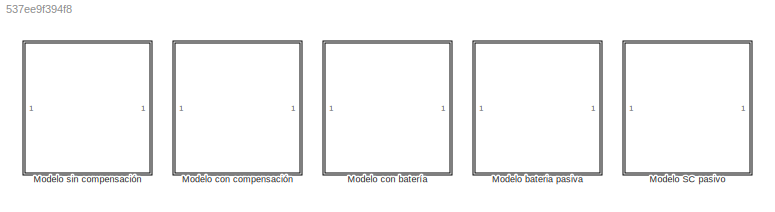
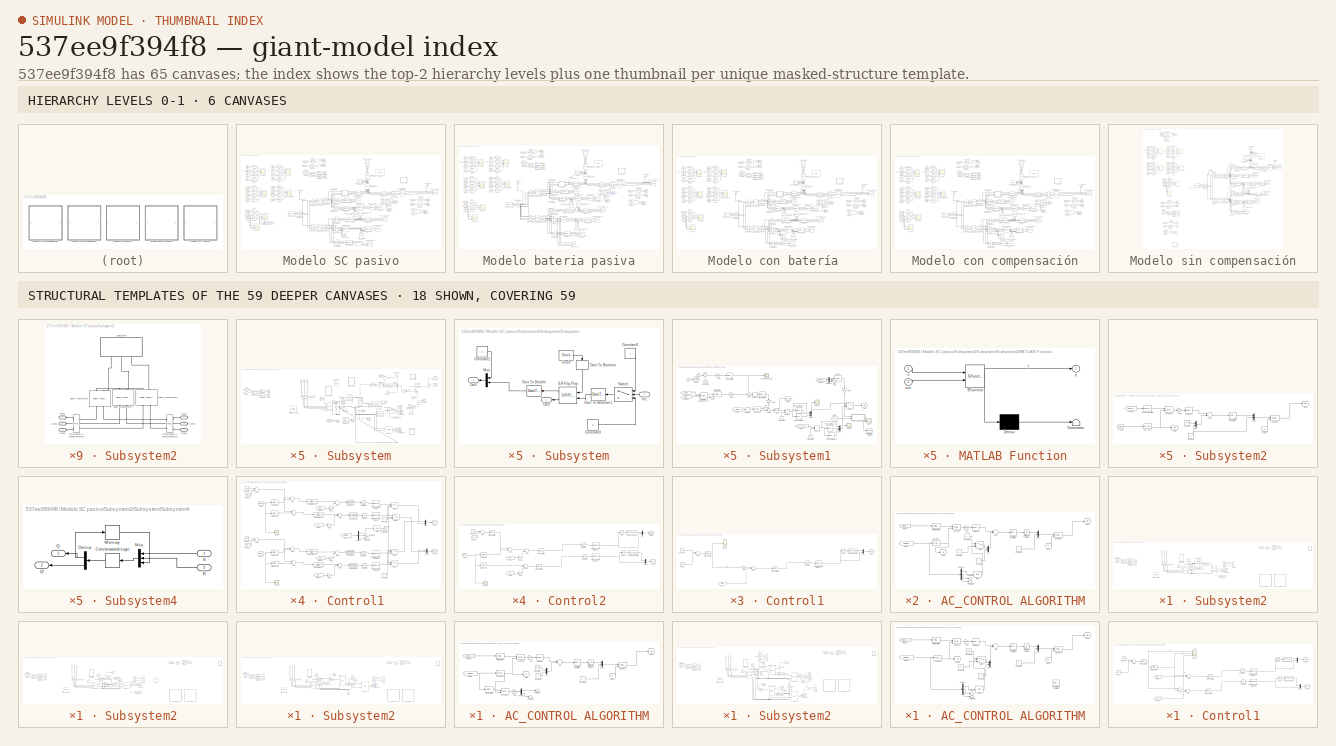
[diagram: thumbnail index - top-2 hierarchy levels (6 canvases) + 18 structural-template representatives of the remaining 59 canvases]
MODEL slx_537ee9f394f8
KIND model
CONFIG AbsTol = auto
CONFIG EnableMultiTasking = off
CONFIG FixedStep = auto
CONFIG InitFcn = Ts=20e-6;
CONFIG MaxStep = auto
CONFIG MinStep = auto
CONFIG RelTol = 1e-3
CONFIG SampleTimeConstraint = Unconstrained
CONFIG Solver = VariableStepAuto
CONFIG SolverName = VariableStepAuto
CONFIG StartTime = 0.0
CONFIG StopTime = 2.5
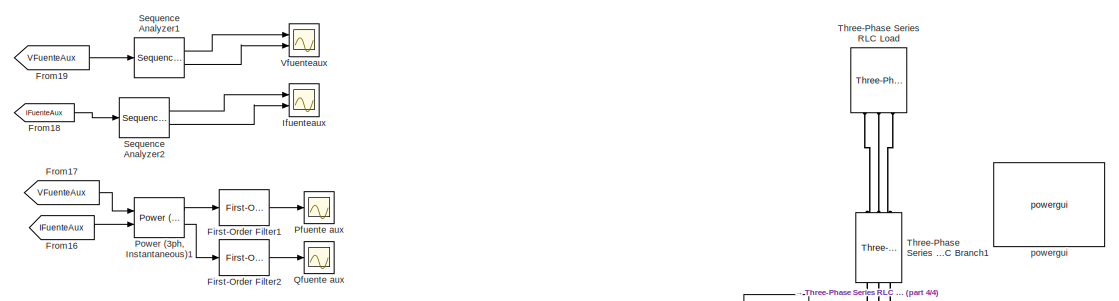
[diagram: Modelo SC pasivo - part 1/4, top center region]
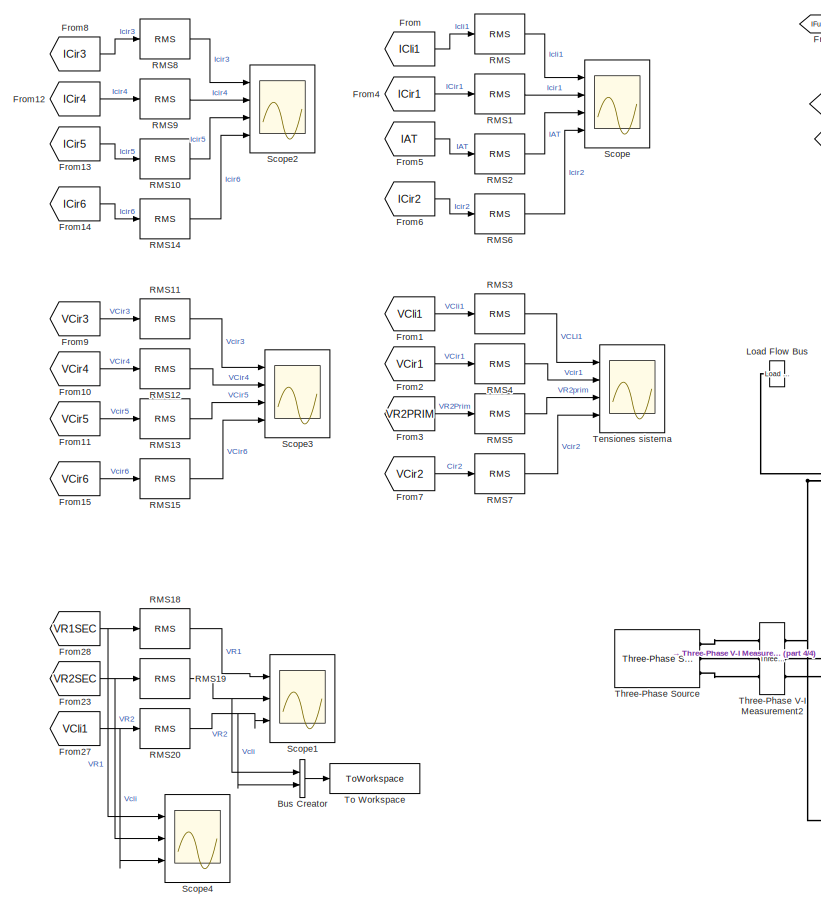
[diagram: Modelo SC pasivo - part 2/4, left side, full height]
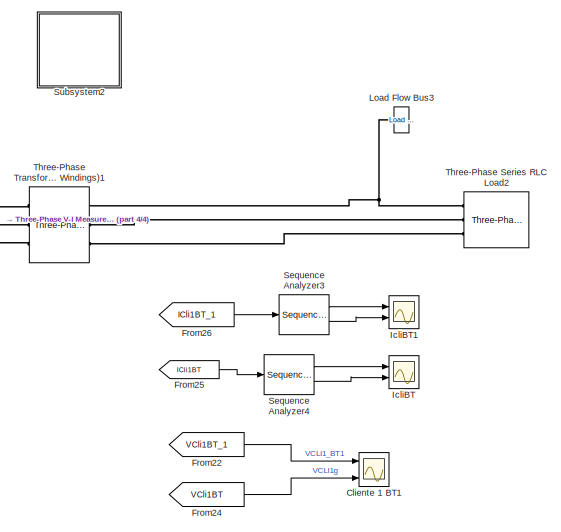
[diagram: Modelo SC pasivo - part 3/4, middle right region]
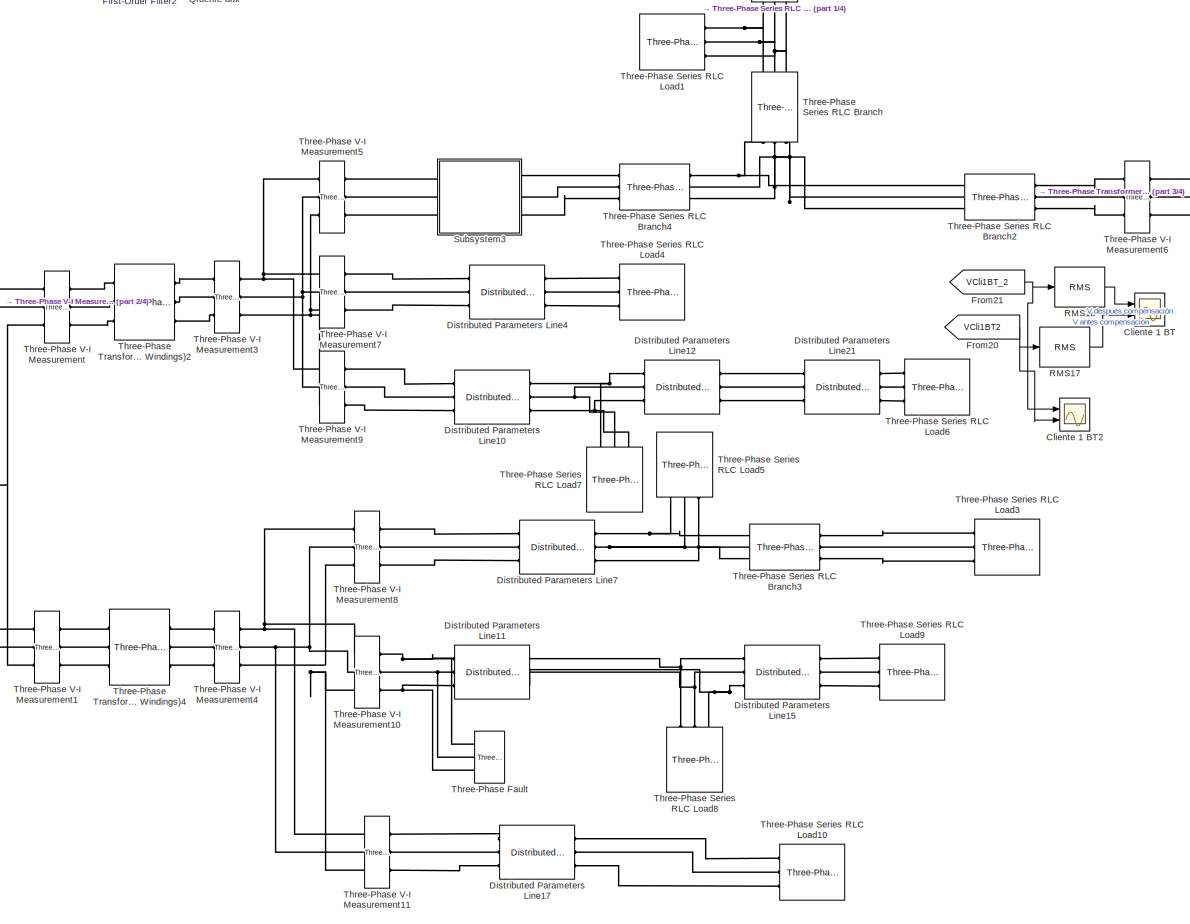
[diagram: Modelo SC pasivo - part 4/4, center side, full height]
BLOCK [SubSystem] Modelo SC pasivo
  Commented = on
  Ports = []
  RequestExecContextInheritance = off
BLOCK [BusCreator] Modelo SC pasivo/Bus Creator
  DisplayOption = bar
  InheritFromInputs = on
  Inputs = 2
  Ports = [2, 1]
BLOCK [Scope] Modelo SC pasivo/Cliente 1 BT
  Floating = off
  NumInputPorts = 2
  Ports = [2]
  ScopeSpecificationString = Simulink.scopes.TimeScopeBlockCfg('CurrentConfiguration', extmgr.ConfigurationSet(extmgr.Configuration('Core','General UI',true,'FigureColor',[1 1 1]),extmgr.Configuration('Core','Source UI',true),extmgr.Configuration('Sources','WiredSimulink',true,'DataLoggingVariableName','ScopeData1'),extmgr.Configuration('Visuals','Time Domain',true,'SerializedDisplays',{struct('MinYLimReal','-2454.3562','MaxY...<+1952ch>  <repeated x4 — deduplicated; at blocks: Cliente 1 BT>
BLOCK [Scope] Modelo SC pasivo/Cliente 1 BT1
  Floating = off
  NumInputPorts = 3
  Ports = [3]
  ScopeSpecificationString = Simulink.scopes.TimeScopeBlockCfg('CurrentConfiguration', extmgr.ConfigurationSet(extmgr.Configuration('Core','General UI',true,'FigureColor',[1 1 1]),extmgr.Configuration('Core','Source UI',true),extmgr.Configuration('Sources','WiredSimulink',true,'DataLoggingVariableName','ScopeData2'),extmgr.Configuration('Visuals','Time Domain',true,'SerializedDisplays',{struct('MinYLimReal','-522.99123','MaxY...<+2141ch>  <repeated x5 — deduplicated; at blocks: Cliente 1 BT1>
BLOCK [Scope] Modelo SC pasivo/Cliente 1 BT2
  Floating = off
  NumInputPorts = 2
  Ports = [2]
  ScopeSpecificationString = Simulink.scopes.TimeScopeBlockCfg('CurrentConfiguration', extmgr.ConfigurationSet(extmgr.Configuration('Core','General UI',true,'FigureColor',[1 1 1]),extmgr.Configuration('Core','Source UI',true),extmgr.Configuration('Sources','WiredSimulink',true,'DataLoggingVariableName','ScopeData1'),extmgr.Configuration('Visuals','Time Domain',true,'SerializedDisplays',{struct('MinYLimReal','-51777.11579','Ma...<+1964ch>  <repeated x4 — deduplicated; at blocks: Cliente 1 BT2>
BLOCK [Reference] Modelo SC pasivo/Distributed Parameters Line10  REF=powerlib/Elements/Distributed Parameters Line
  Ports = [0, 0, 0, 0, 0, 3, 3]
  SourceBlock = powerlib/Elements/Distributed Parameters Line
  SourceProductBaseCode = PS
  SourceProductName = Simscape Electrical
  SourceType = Distributed Parameters Line
BLOCK [Reference] Modelo SC pasivo/Distributed Parameters Line11  REF=powerlib/Elements/Distributed Parameters Line
  Ports = [0, 0, 0, 0, 0, 3, 3]
  SourceBlock = powerlib/Elements/Distributed Parameters Line
  SourceProductBaseCode = PS
  SourceProductName = Simscape Electrical
  SourceType = Distributed Parameters Line
BLOCK [Reference] Modelo SC pasivo/Distributed Parameters Line12  REF=powerlib/Elements/Distributed Parameters Line
  Ports = [0, 0, 0, 0, 0, 3, 3]
  SourceBlock = powerlib/Elements/Distributed Parameters Line
  SourceProductBaseCode = PS
  SourceProductName = Simscape Electrical
  SourceType = Distributed Parameters Line
BLOCK [Reference] Modelo SC pasivo/Distributed Parameters Line15  REF=powerlib/Elements/Distributed Parameters Line
  Ports = [0, 0, 0, 0, 0, 3, 3]
  SourceBlock = powerlib/Elements/Distributed Parameters Line
  SourceProductBaseCode = PS
  SourceProductName = Simscape Electrical
  SourceType = Distributed Parameters Line
BLOCK [Reference] Modelo SC pasivo/Distributed Parameters Line17  REF=powerlib/Elements/Distributed Parameters Line
  Ports = [0, 0, 0, 0, 0, 3, 3]
  SourceBlock = powerlib/Elements/Distributed Parameters Line
  SourceProductBaseCode = PS
  SourceProductName = Simscape Electrical
  SourceType = Distributed Parameters Line
BLOCK [Reference] Modelo SC pasivo/Distributed Parameters Line21  REF=powerlib/Elements/Distributed Parameters Line
  Ports = [0, 0, 0, 0, 0, 3, 3]
  SourceBlock = powerlib/Elements/Distributed Parameters Line
  SourceProductBaseCode = PS
  SourceProductName = Simscape Electrical
  SourceType = Distributed Parameters Line
BLOCK [Reference] Modelo SC pasivo/Distributed Parameters Line4  REF=powerlib/Elements/Distributed Parameters Line
  Ports = [0, 0, 0, 0, 0, 3, 3]
  SourceBlock = powerlib/Elements/Distributed Parameters Line
  SourceProductBaseCode = PS
  SourceProductName = Simscape Electrical
  SourceType = Distributed Parameters Line
BLOCK [Reference] Modelo SC pasivo/Distributed Parameters Line7  REF=powerlib/Elements/Distributed Parameters Line
  Ports = [0, 0, 0, 0, 0, 3, 3]
  SourceBlock = powerlib/Elements/Distributed Parameters Line
  SourceProductBaseCode = PS
  SourceProductName = Simscape Electrical
  SourceType = Distributed Parameters Line
BLOCK [Reference] Modelo SC pasivo/First-Order Filter1  REF=powerlib_meascontrol/Filters/First-Order
Filter
  Ports = [1, 1]
  SourceBlock = powerlib_meascontrol/Filters/First-Order\nFilter
  SourceProductBaseCode = PS
  SourceProductName = Simscape Electrical
  SourceType = First-Order Filter
BLOCK [Reference] Modelo SC pasivo/First-Order Filter2  REF=powerlib_meascontrol/Filters/First-Order
Filter
  Ports = [1, 1]
  SourceBlock = powerlib_meascontrol/Filters/First-Order\nFilter
  SourceProductBaseCode = PS
  SourceProductName = Simscape Electrical
  SourceType = First-Order Filter
BLOCK [From] Modelo SC pasivo/From
  GotoTag = ICli1
  TagVisibility = global
BLOCK [From] Modelo SC pasivo/From1
  GotoTag = VCli1
  TagVisibility = global
BLOCK [From] Modelo SC pasivo/From10
  GotoTag = VCir4
  TagVisibility = global
BLOCK [From] Modelo SC pasivo/From11
  GotoTag = VCir5
  TagVisibility = global
BLOCK [From] Modelo SC pasivo/From12
  GotoTag = ICir4
  TagVisibility = global
BLOCK [From] Modelo SC pasivo/From13
  GotoTag = ICir5
  TagVisibility = global
BLOCK [From] Modelo SC pasivo/From14
  GotoTag = ICir6
  TagVisibility = global
BLOCK [From] Modelo SC pasivo/From15
  GotoTag = VCir6
  TagVisibility = global
BLOCK [From] Modelo SC pasivo/From16
  GotoTag = IFuenteAux
BLOCK [From] Modelo SC pasivo/From17
  GotoTag = VFuenteAux
BLOCK [From] Modelo SC pasivo/From18
  GotoTag = IFuenteAux
BLOCK [From] Modelo SC pasivo/From19
  GotoTag = VFuenteAux
BLOCK [From] Modelo SC pasivo/From2
  GotoTag = VCir1
  TagVisibility = global
BLOCK [From] Modelo SC pasivo/From20
  GotoTag = VCli1BT2
  TagVisibility = global
BLOCK [From] Modelo SC pasivo/From21
  GotoTag = VCli1BT_2
  TagVisibility = global
BLOCK [From] Modelo SC pasivo/From22
  GotoTag = VCli1BT_1
  TagVisibility = global
BLOCK [From] Modelo SC pasivo/From23
  GotoTag = VR2SEC
  TagVisibility = global
BLOCK [From] Modelo SC pasivo/From24
  GotoTag = VCli1BT
  TagVisibility = global
BLOCK [From] Modelo SC pasivo/From25
  GotoTag = ICli1BT
  TagVisibility = global
BLOCK [From] Modelo SC pasivo/From26
  GotoTag = ICli1BT_1
  TagVisibility = global
BLOCK [From] Modelo SC pasivo/From27
  GotoTag = VCli1
  TagVisibility = global
BLOCK [From] Modelo SC pasivo/From28
  GotoTag = VR1SEC
  TagVisibility = global
BLOCK [From] Modelo SC pasivo/From3
  GotoTag = VR2PRIM
  TagVisibility = global
BLOCK [From] Modelo SC pasivo/From4
  GotoTag = ICir1
  TagVisibility = global
BLOCK [From] Modelo SC pasivo/From5
  GotoTag = IAT
  TagVisibility = global
BLOCK [From] Modelo SC pasivo/From6
  GotoTag = ICir2
  TagVisibility = global
BLOCK [From] Modelo SC pasivo/From7
  GotoTag = VCir2
  TagVisibility = global
BLOCK [From] Modelo SC pasivo/From8
  GotoTag = ICir3
  TagVisibility = global
BLOCK [From] Modelo SC pasivo/From9
  GotoTag = VCir3
  TagVisibility = global
BLOCK [Scope] Modelo SC pasivo/IcliBT
  Floating = off
  NumInputPorts = 2
  Ports = [2]
  ScopeSpecificationString = Simulink.scopes.TimeScopeBlockCfg('CurrentConfiguration', extmgr.ConfigurationSet(extmgr.Configuration('Core','General UI',true,'FigureColor',[1 1 1]),extmgr.Configuration('Core','Source UI',true),extmgr.Configuration('Sources','WiredSimulink',true,'DataLoggingVariableName','ScopeData3'),extmgr.Configuration('Visuals','Time Domain',true,'SerializedDisplays',{struct('MinYLimReal','-2004.63356','Max...<+2142ch>  <repeated x5 — deduplicated; at blocks: IcliBT>
BLOCK [Scope] Modelo SC pasivo/IcliBT1
  Floating = off
  NumInputPorts = 2
  Ports = [2]
  ScopeSpecificationString = Simulink.scopes.TimeScopeBlockCfg('CurrentConfiguration', extmgr.ConfigurationSet(extmgr.Configuration('Core','General UI',true,'FigureColor',[1 1 1]),extmgr.Configuration('Core','Source UI',true),extmgr.Configuration('Sources','WiredSimulink',true,'DataLoggingVariableName','ScopeData4'),extmgr.Configuration('Visuals','Time Domain',true,'SerializedDisplays',{struct('MinYLimReal','-22.5','MaxYLimRe...<+2103ch>  <repeated x5 — deduplicated; at blocks: IcliBT1>
BLOCK [Scope] Modelo SC pasivo/Ifuenteaux
  Floating = off
  NumInputPorts = 2
  Ports = [2]
  ScopeSpecificationString = Simulink.scopes.TimeScopeBlockCfg('CurrentConfiguration', extmgr.ConfigurationSet(extmgr.Configuration('Core','General UI',true,'FigureColor',[1 1 1]),extmgr.Configuration('Core','Source UI',true),extmgr.Configuration('Sources','WiredSimulink',true,'DataLoggingVariableName','ScopeData6'),extmgr.Configuration('Visuals','Time Domain',true,'SerializedDisplays',{struct('MinYLimReal','-230.94356','MaxY...<+2154ch>  <repeated x5 — deduplicated; at blocks: Ifuenteaux>
BLOCK [Reference] Modelo SC pasivo/Load Flow Bus  REF=powerlib/Measurements/Load Flow Bus
  AttributesFormatString = %<ID>\n%<Vbase>V\n%<VLF>pu\n%<angleLF>deg.
  Ports = [0, 0, 0, 0, 0, 1]
  SourceBlock = powerlib/Measurements/Load Flow Bus
  SourceProductBaseCode = PS
  SourceProductName = Simscape Electrical
  SourceType = Load Flow Bus
BLOCK [Reference] Modelo SC pasivo/Load Flow Bus3  REF=powerlib/Measurements/Load Flow Bus
  AttributesFormatString = %<ID>\n%<Vbase>V\n%<VLF>pu\n%<angleLF>deg.
  Ports = [0, 0, 0, 0, 0, 1]
  SourceBlock = powerlib/Measurements/Load Flow Bus
  SourceProductBaseCode = PS
  SourceProductName = Simscape Electrical
  SourceType = Load Flow Bus
BLOCK [Scope] Modelo SC pasivo/Pfuente aux 
  Floating = off
  NumInputPorts = 1
  Ports = [1]
  ScopeSpecificationString = Simulink.scopes.TimeScopeBlockCfg('CurrentConfiguration', extmgr.ConfigurationSet(extmgr.Configuration('Core','General UI',true,'FigureColor',[1 1 1]),extmgr.Configuration('Core','Source UI',true),extmgr.Configuration('Sources','WiredSimulink',true,'DataLoggingVariableName','ScopeData4'),extmgr.Configuration('Visuals','Time Domain',true,'SerializedDisplays',{struct('MinYLimReal','-1.00000','MaxYLi...<+1554ch>  <repeated x4 — deduplicated; at blocks: Pfuente aux>
BLOCK [Reference] Modelo SC pasivo/Power (3ph, Instantaneous)1  REF=powerlib_meascontrol/Measurements/Power
(3ph, Instantaneous)
  Ports = [2, 2]
  SourceBlock = powerlib_meascontrol/Measurements/Power\n(3ph, Instantaneous)
  SourceProductBaseCode = PS
  SourceProductName = Simscape Electrical
  SourceType = Power (3ph, Instantaneous)
BLOCK [Scope] Modelo SC pasivo/Qfuente aux
  Floating = off
  NumInputPorts = 1
  Ports = [1]
  ScopeSpecificationString = Simulink.scopes.TimeScopeBlockCfg('CurrentConfiguration', extmgr.ConfigurationSet(extmgr.Configuration('Core','General UI',true,'FigureColor',[1 1 1]),extmgr.Configuration('Core','Source UI',true),extmgr.Configuration('Sources','WiredSimulink',true,'DataLoggingVariableName','ScopeData5'),extmgr.Configuration('Visuals','Time Domain',true,'SerializedDisplays',{struct('MinYLimReal','-1.00000','MaxYLi...<+1554ch>  <repeated x4 — deduplicated; at blocks: Qfuente aux>
BLOCK [Reference] Modelo SC pasivo/RMS  REF=powerlib_meascontrol/Measurements/RMS
  Ports = [1, 1]
  SourceBlock = powerlib_meascontrol/Measurements/RMS
  SourceProductBaseCode = PS
  SourceProductName = Simscape Electrical
  SourceType = RMS
BLOCK [Reference] Modelo SC pasivo/RMS1  REF=powerlib_meascontrol/Measurements/RMS
  Ports = [1, 1]
  SourceBlock = powerlib_meascontrol/Measurements/RMS
  SourceProductBaseCode = PS
  SourceProductName = Simscape Electrical
  SourceType = RMS
BLOCK [Reference] Modelo SC pasivo/RMS10  REF=powerlib_meascontrol/Measurements/RMS
  Ports = [1, 1]
  SourceBlock = powerlib_meascontrol/Measurements/RMS
  SourceProductBaseCode = PS
  SourceProductName = Simscape Electrical
  SourceType = RMS
BLOCK [Reference] Modelo SC pasivo/RMS11  REF=powerlib_meascontrol/Measurements/RMS
  Ports = [1, 1]
  SourceBlock = powerlib_meascontrol/Measurements/RMS
  SourceProductBaseCode = PS
  SourceProductName = Simscape Electrical
  SourceType = RMS
BLOCK [Reference] Modelo SC pasivo/RMS12  REF=powerlib_meascontrol/Measurements/RMS
  Ports = [1, 1]
  SourceBlock = powerlib_meascontrol/Measurements/RMS
  SourceProductBaseCode = PS
  SourceProductName = Simscape Electrical
  SourceType = RMS
BLOCK [Reference] Modelo SC pasivo/RMS13  REF=powerlib_meascontrol/Measurements/RMS
  Ports = [1, 1]
  SourceBlock = powerlib_meascontrol/Measurements/RMS
  SourceProductBaseCode = PS
  SourceProductName = Simscape Electrical
  SourceType = RMS
BLOCK [Reference] Modelo SC pasivo/RMS14  REF=powerlib_meascontrol/Measurements/RMS
  Ports = [1, 1]
  SourceBlock = powerlib_meascontrol/Measurements/RMS
  SourceProductBaseCode = PS
  SourceProductName = Simscape Electrical
  SourceType = RMS
BLOCK [Reference] Modelo SC pasivo/RMS15  REF=powerlib_meascontrol/Measurements/RMS
  Ports = [1, 1]
  SourceBlock = powerlib_meascontrol/Measurements/RMS
  SourceProductBaseCode = PS
  SourceProductName = Simscape Electrical
  SourceType = RMS
BLOCK [Reference] Modelo SC pasivo/RMS16  REF=powerlib_meascontrol/Measurements/RMS
  Ports = [1, 1]
  SourceBlock = powerlib_meascontrol/Measurements/RMS
  SourceProductBaseCode = PS
  SourceProductName = Simscape Electrical
  SourceType = RMS
BLOCK [Reference] Modelo SC pasivo/RMS17  REF=powerlib_meascontrol/Measurements/RMS
  Ports = [1, 1]
  SourceBlock = powerlib_meascontrol/Measurements/RMS
  SourceProductBaseCode = PS
  SourceProductName = Simscape Electrical
  SourceType = RMS
BLOCK [Reference] Modelo SC pasivo/RMS18  REF=powerlib_meascontrol/Measurements/RMS
  Ports = [1, 1]
  SourceBlock = powerlib_meascontrol/Measurements/RMS
  SourceProductBaseCode = PS
  SourceProductName = Simscape Electrical
  SourceType = RMS
BLOCK [Reference] Modelo SC pasivo/RMS19  REF=powerlib_meascontrol/Measurements/RMS
  Ports = [1, 1]
  SourceBlock = powerlib_meascontrol/Measurements/RMS
  SourceProductBaseCode = PS
  SourceProductName = Simscape Electrical
  SourceType = RMS
BLOCK [Reference] Modelo SC pasivo/RMS2  REF=powerlib_meascontrol/Measurements/RMS
  Ports = [1, 1]
  SourceBlock = powerlib_meascontrol/Measurements/RMS
  SourceProductBaseCode = PS
  SourceProductName = Simscape Electrical
  SourceType = RMS
BLOCK [Reference] Modelo SC pasivo/RMS20  REF=powerlib_meascontrol/Measurements/RMS
  Ports = [1, 1]
  SourceBlock = powerlib_meascontrol/Measurements/RMS
  SourceProductBaseCode = PS
  SourceProductName = Simscape Electrical
  SourceType = RMS
BLOCK [Reference] Modelo SC pasivo/RMS3  REF=powerlib_meascontrol/Measurements/RMS
  Ports = [1, 1]
  SourceBlock = powerlib_meascontrol/Measurements/RMS
  SourceProductBaseCode = PS
  SourceProductName = Simscape Electrical
  SourceType = RMS
BLOCK [Reference] Modelo SC pasivo/RMS4  REF=powerlib_meascontrol/Measurements/RMS
  Ports = [1, 1]
  SourceBlock = powerlib_meascontrol/Measurements/RMS
  SourceProductBaseCode = PS
  SourceProductName = Simscape Electrical
  SourceType = RMS
BLOCK [Reference] Modelo SC pasivo/RMS5  REF=powerlib_meascontrol/Measurements/RMS
  Ports = [1, 1]
  SourceBlock = powerlib_meascontrol/Measurements/RMS
  SourceProductBaseCode = PS
  SourceProductName = Simscape Electrical
  SourceType = RMS
BLOCK [Reference] Modelo SC pasivo/RMS6  REF=powerlib_meascontrol/Measurements/RMS
  Ports = [1, 1]
  SourceBlock = powerlib_meascontrol/Measurements/RMS
  SourceProductBaseCode = PS
  SourceProductName = Simscape Electrical
  SourceType = RMS
BLOCK [Reference] Modelo SC pasivo/RMS7  REF=powerlib_meascontrol/Measurements/RMS
  Ports = [1, 1]
  SourceBlock = powerlib_meascontrol/Measurements/RMS
  SourceProductBaseCode = PS
  SourceProductName = Simscape Electrical
  SourceType = RMS
BLOCK [Reference] Modelo SC pasivo/RMS8  REF=powerlib_meascontrol/Measurements/RMS
  Ports = [1, 1]
  SourceBlock = powerlib_meascontrol/Measurements/RMS
  SourceProductBaseCode = PS
  SourceProductName = Simscape Electrical
  SourceType = RMS
BLOCK [Reference] Modelo SC pasivo/RMS9  REF=powerlib_meascontrol/Measurements/RMS
  Ports = [1, 1]
  SourceBlock = powerlib_meascontrol/Measurements/RMS
  SourceProductBaseCode = PS
  SourceProductName = Simscape Electrical
  SourceType = RMS
BLOCK [Scope] Modelo SC pasivo/Scope
  Floating = off
  NumInputPorts = 4
  Ports = [4]
  ScopeSpecificationString = Simulink.scopes.TimeScopeBlockCfg('CurrentConfiguration', extmgr.ConfigurationSet(extmgr.Configuration('Core','General UI',true),extmgr.Configuration('Core','Source UI',true),extmgr.Configuration('Sources','WiredSimulink',true),extmgr.Configuration('Visuals','Time Domain',true,'SerializedDisplays',{struct('MinYLimReal','93.38907','MaxYLimReal','134.65481','YLabelReal','','MinYLimMag','93.38907','M...<+4275ch>  <repeated x5 — deduplicated; at blocks: Scope>
BLOCK [Scope] Modelo SC pasivo/Scope1
  Floating = off
  NumInputPorts = 3
  Ports = [3]
  ScopeSpecificationString = Simulink.scopes.TimeScopeBlockCfg('CurrentConfiguration', extmgr.ConfigurationSet(extmgr.Configuration('Core','General UI',true,'FigureColor',[1 1 1]),extmgr.Configuration('Core','Source UI',true),extmgr.Configuration('Sources','WiredSimulink',true,'DataLoggingVariableName','ScopeData1'),extmgr.Configuration('Visuals','Time Domain',true,'SerializedDisplays',{struct('MinYLimReal','-2481.67216','Max...<+4463ch>
BLOCK [Scope] Modelo SC pasivo/Scope2
  Floating = off
  NumInputPorts = 4
  Ports = [4]
  ScopeSpecificationString = Simulink.scopes.TimeScopeBlockCfg('CurrentConfiguration', extmgr.ConfigurationSet(extmgr.Configuration('Core','General UI',true),extmgr.Configuration('Core','Source UI',true),extmgr.Configuration('Sources','WiredSimulink',true,'DataLoggingVariableName','ScopeData1'),extmgr.Configuration('Visuals','Time Domain',true,'SerializedDisplays',{struct('MinYLimReal','106.31259','MaxYLimReal','243.18665','Y...<+4297ch>  <repeated x5 — deduplicated; at blocks: Scope2>
BLOCK [Scope] Modelo SC pasivo/Scope3
  Floating = off
  NumInputPorts = 4
  Ports = [4]
  ScopeSpecificationString = Simulink.scopes.TimeScopeBlockCfg('CurrentConfiguration', extmgr.ConfigurationSet(extmgr.Configuration('Core','General UI',true),extmgr.Configuration('Core','Source UI',true),extmgr.Configuration('Sources','WiredSimulink',true,'DataLoggingVariableName','ScopeData2'),extmgr.Configuration('Visuals','Time Domain',true,'SerializedDisplays',{struct('MinYLimReal','-2296.33413','MaxYLimReal','21867.00718...<+4207ch>  <repeated x5 — deduplicated; at blocks: Scope3>
BLOCK [Scope] Modelo SC pasivo/Scope4
  Floating = off
  NumInputPorts = 3
  Ports = [3]
  ScopeSpecificationString = Simulink.scopes.TimeScopeBlockCfg('CurrentConfiguration', extmgr.ConfigurationSet(extmgr.Configuration('Core','General UI',true),extmgr.Configuration('Core','Source UI',true),extmgr.Configuration('Sources','WiredSimulink',true,'DataLoggingVariableName','ScopeData2'),extmgr.Configuration('Visuals','Time Domain',true,'SerializedDisplays',{struct('MinYLimReal','-37760.74489','MaxYLimReal','37521.7771...<+4183ch>  <repeated x3 — deduplicated; at blocks: Scope4>
BLOCK [Reference] Modelo SC pasivo/Sequence Analyzer1  REF=powerlib_meascontrol/Measurements/Sequence Analyzer
  Ports = [1, 2]
  SourceBlock = powerlib_meascontrol/Measurements/Sequence Analyzer
  SourceProductBaseCode = PS
  SourceProductName = Simscape Electrical
  SourceType = Sequence Analyzer
BLOCK [Reference] Modelo SC pasivo/Sequence Analyzer2  REF=powerlib_meascontrol/Measurements/Sequence Analyzer
  Ports = [1, 2]
  SourceBlock = powerlib_meascontrol/Measurements/Sequence Analyzer
  SourceProductBaseCode = PS
  SourceProductName = Simscape Electrical
  SourceType = Sequence Analyzer
BLOCK [Reference] Modelo SC pasivo/Sequence Analyzer3  REF=powerlib_meascontrol/Measurements/Sequence Analyzer
  Ports = [1, 2]
  SourceBlock = powerlib_meascontrol/Measurements/Sequence Analyzer
  SourceProductBaseCode = PS
  SourceProductName = Simscape Electrical
  SourceType = Sequence Analyzer
BLOCK [Reference] Modelo SC pasivo/Sequence Analyzer4  REF=powerlib_meascontrol/Measurements/Sequence Analyzer
  Ports = [1, 2]
  SourceBlock = powerlib_meascontrol/Measurements/Sequence Analyzer
  SourceProductBaseCode = PS
  SourceProductName = Simscape Electrical
  SourceType = Sequence Analyzer
BLOCK [SubSystem] Modelo SC pasivo/Subsystem2
  Commented = on
  Ports = [0, 0, 0, 0, 0, 3, 3]
  RequestExecContextInheritance = off
BLOCK [PMIOPort] Modelo SC pasivo/Subsystem2/Conn1
  Side = Left
BLOCK [PMIOPort] Modelo SC pasivo/Subsystem2/Conn2
  Port = 2
  Side = Right
BLOCK [PMIOPort] Modelo SC pasivo/Subsystem2/Conn3
  Port = 3
  Side = Left
BLOCK [PMIOPort] Modelo SC pasivo/Subsystem2/Conn4
  Port = 4
  Side = Right
BLOCK [PMIOPort] Modelo SC pasivo/Subsystem2/Conn5
  Port = 5
  Side = Left
BLOCK [PMIOPort] Modelo SC pasivo/Subsystem2/Conn6
  Port = 6
  Side = Right
BLOCK [Reference] Modelo SC pasivo/Subsystem2/Linear Transformer  REF=powerlib/Elements/Linear Transformer
  Ports = [0, 0, 0, 0, 0, 2, 2]
  SourceBlock = powerlib/Elements/Linear Transformer
  SourceProductBaseCode = PS
  SourceProductName = Simscape Electrical
  SourceType = Linear Transformer
BLOCK [Reference] Modelo SC pasivo/Subsystem2/Linear Transformer1  REF=powerlib/Elements/Linear Transformer
  Ports = [0, 0, 0, 0, 0, 2, 2]
  SourceBlock = powerlib/Elements/Linear Transformer
  SourceProductBaseCode = PS
  SourceProductName = Simscape Electrical
  SourceType = Linear Transformer
BLOCK [Reference] Modelo SC pasivo/Subsystem2/Linear Transformer2  REF=powerlib/Elements/Linear Transformer
  Ports = [0, 0, 0, 0, 0, 2, 2]
  SourceBlock = powerlib/Elements/Linear Transformer
  SourceProductBaseCode = PS
  SourceProductName = Simscape Electrical
  SourceType = Linear Transformer
BLOCK [SubSystem] Modelo SC pasivo/Subsystem2/Subsystem
  Ports = [0, 0, 0, 0, 0, 3]
  RequestExecContextInheritance = off
BLOCK [PMIOPort] Modelo SC pasivo/Subsystem2/Subsystem/A
  Side = Left
BLOCK [Sum] Modelo SC pasivo/Subsystem2/Subsystem/Add
  InputSameDT = off
  Inputs = +--
  OutDataTypeStr = Inherit: Inherit via internal rule
  Ports = [3, 1]
  SaturateOnIntegerOverflow = off
BLOCK [Sum] Modelo SC pasivo/Subsystem2/Subsystem/Add1
  InputSameDT = off
  OutDataTypeStr = Inherit: Inherit via internal rule
  Ports = [2, 1]
  SaturateOnIntegerOverflow = off
BLOCK [PMIOPort] Modelo SC pasivo/Subsystem2/Subsystem/B
  Port = 2
  Side = Left
BLOCK [Reference] Modelo SC pasivo/Subsystem2/Subsystem/Battery  REF=electricdrivelib/Extra Sources/Battery
  Ports = [0, 1, 0, 0, 0, 2]
  SourceBlock = electricdrivelib/Extra Sources/Battery
  SourceProductBaseCode = PS
  SourceProductName = Simscape Electrical
  SourceType = Battery
BLOCK [BusSelector] Modelo SC pasivo/Subsystem2/Subsystem/Bus Selector1
  OutputAsBus = off
  OutputSignals = Current (A),Voltage (V),SOC (%)
  Ports = [1, 3]
BLOCK [BusSelector] Modelo SC pasivo/Subsystem2/Subsystem/Bus Selector3
  OutputAsBus = off
  OutputSignals = Current I,Voltage V,SOC %
  Ports = [1, 3]
BLOCK [PMIOPort] Modelo SC pasivo/Subsystem2/Subsystem/C
  Port = 3
  Side = Left
BLOCK [DataTypeConversion] Modelo SC pasivo/Subsystem2/Subsystem/Cast To Boolean
  OutDataTypeStr = boolean
  RndMeth = Floor
  SaturateOnIntegerOverflow = off
BLOCK [DataTypeConversion] Modelo SC pasivo/Subsystem2/Subsystem/Cast To Boolean1
  OutDataTypeStr = boolean
  RndMeth = Floor
  SaturateOnIntegerOverflow = off
BLOCK [DataTypeConversion] Modelo SC pasivo/Subsystem2/Subsystem/Cast To Double
  OutDataTypeStr = double
  RndMeth = Floor
  SaturateOnIntegerOverflow = off
BLOCK [Reference] Modelo SC pasivo/Subsystem2/Subsystem/Clock  REF=simulink_extras/Flip Flops/Clock
  Ports = [0, 1]
  SourceBlock = simulink_extras/Flip Flops/Clock
  SourceProductBaseCode = SL
  SourceProductName = Simulink
  SourceType = Digital clock
BLOCK [Constant] Modelo SC pasivo/Subsystem2/Subsystem/Constant
  Value = 800
BLOCK [Constant] Modelo SC pasivo/Subsystem2/Subsystem/Constant1
  Value = -1
BLOCK [Constant] Modelo SC pasivo/Subsystem2/Subsystem/Constant2
BLOCK [Constant] Modelo SC pasivo/Subsystem2/Subsystem/Constant3
  Value = 0
BLOCK [Reference] Modelo SC pasivo/Subsystem2/Subsystem/Current Measurement  REF=powerlib/Measurements/Current Measurement
  Ports = [0, 1, 0, 0, 0, 1, 1]
  SourceBlock = powerlib/Measurements/Current Measurement
  SourceProductBaseCode = PS
  SourceProductName = Simscape Electrical
  SourceType = Current Measurement
  UserDataPersistent = on
BLOCK [Reference] Modelo SC pasivo/Subsystem2/Subsystem/Current Measurement1  REF=powerlib/Measurements/Current Measurement
  Ports = [0, 1, 0, 0, 0, 1, 1]
  SourceBlock = powerlib/Measurements/Current Measurement
  SourceProductBaseCode = PS
  SourceProductName = Simscape Electrical
  SourceType = Current Measurement
  UserDataPersistent = on
BLOCK [Reference] Modelo SC pasivo/Subsystem2/Subsystem/Current Measurement2  REF=powerlib/Measurements/Current Measurement
  Ports = [0, 1, 0, 0, 0, 1, 1]
  SourceBlock = powerlib/Measurements/Current Measurement
  SourceProductBaseCode = PS
  SourceProductName = Simscape Electrical
  SourceType = Current Measurement
  UserDataPersistent = on
BLOCK [Reference] Modelo SC pasivo/Subsystem2/Subsystem/Diode  REF=powerlib/Power
Electronics/Diode
  Ports = [0, 1, 0, 0, 0, 1, 1]
  SourceBlock = powerlib/Power\nElectronics/Diode
  SourceProductBaseCode = PS
  SourceProductName = Simscape Electrical
  SourceType = Diode
BLOCK [Reference] Modelo SC pasivo/Subsystem2/Subsystem/First-Order Filter3  REF=powerlib_meascontrol/Filters/First-Order
Filter
  Ports = [1, 1]
  SourceBlock = powerlib_meascontrol/Filters/First-Order\nFilter
  SourceProductBaseCode = PS
  SourceProductName = Simscape Electrical
  SourceType = First-Order Filter
BLOCK [Reference] Modelo SC pasivo/Subsystem2/Subsystem/First-Order Filter4  REF=powerlib_meascontrol/Filters/First-Order
Filter
  Ports = [1, 1]
  SourceBlock = powerlib_meascontrol/Filters/First-Order\nFilter
  SourceProductBaseCode = PS
  SourceProductName = Simscape Electrical
  SourceType = First-Order Filter
BLOCK [From] Modelo SC pasivo/Subsystem2/Subsystem/From10
  GotoTag = Iboost
BLOCK [From] Modelo SC pasivo/Subsystem2/Subsystem/From20
  GotoTag = Uref
  TagVisibility = global
BLOCK [From] Modelo SC pasivo/Subsystem2/Subsystem/From3
  GotoTag = Vdc
BLOCK [From] Modelo SC pasivo/Subsystem2/Subsystem/From4
  GotoTag = IoutConv
BLOCK [From] Modelo SC pasivo/Subsystem2/Subsystem/From5
  GotoTag = Iabc_SC2
  TagVisibility = global
BLOCK [From] Modelo SC pasivo/Subsystem2/Subsystem/From6
  GotoTag = Vabc_SC2
  TagVisibility = global
BLOCK [From] Modelo SC pasivo/Subsystem2/Subsystem/From7
  GotoTag = Vdc
BLOCK [From] Modelo SC pasivo/Subsystem2/Subsystem/From9
  GotoTag = Vabc_SC2
  TagVisibility = global
BLOCK [Gain] Modelo SC pasivo/Subsystem2/Subsystem/Gain
  Gain = -800
  OutDataTypeStr = Inherit: Inherit via internal rule
  ParamDataTypeStr = Inherit: Inherit via internal rule
  SaturateOnIntegerOverflow = off
BLOCK [Gain] Modelo SC pasivo/Subsystem2/Subsystem/Gain1
  Gain = 0.1
  OutDataTypeStr = Inherit: Inherit via internal rule
  ParamDataTypeStr = Inherit: Inherit via internal rule
  SaturateOnIntegerOverflow = off
BLOCK [Goto] Modelo SC pasivo/Subsystem2/Subsystem/Goto1
  GotoTag = Isc_Meas
BLOCK [Goto] Modelo SC pasivo/Subsystem2/Subsystem/Goto2
  GotoTag = Iboost
BLOCK [Goto] Modelo SC pasivo/Subsystem2/Subsystem/Goto3
  GotoTag = IoutConv
BLOCK [Goto] Modelo SC pasivo/Subsystem2/Subsystem/Goto5
  GotoTag = soc
BLOCK [Goto] Modelo SC pasivo/Subsystem2/Subsystem/Goto6
  GotoTag = Vdc
BLOCK [Goto] Modelo SC pasivo/Subsystem2/Subsystem/Goto7
  GotoTag = VSC
BLOCK [Reference] Modelo SC pasivo/Subsystem2/Subsystem/Half-Bridge Converter  REF=powerlib/Power
Electronics/Half-Bridge Converter
  Commented = on
  Ports = [2, 0, 0, 0, 0, 1, 2]
  SourceBlock = powerlib/Power\nElectronics/Half-Bridge Converter
  SourceProductBaseCode = PS
  SourceProductName = Simscape Electrical
  SourceType = Half-Bridge Converter
BLOCK [Reference] Modelo SC pasivo/Subsystem2/Subsystem/Ideal Switch  REF=powerlib/Power
Electronics/Ideal Switch
  Ports = [1, 1, 0, 0, 0, 1, 1]
  SourceBlock = powerlib/Power\nElectronics/Ideal Switch
  SourceProductBaseCode = PS
  SourceProductName = Simscape Electrical
  SourceType = Ideal Switch
BLOCK [Reference] Modelo SC pasivo/Subsystem2/Subsystem/Mosfet  REF=powerlib/Power
Electronics/Mosfet
  Ports = [1, 0, 0, 0, 0, 1, 1]
  SourceBlock = powerlib/Power\nElectronics/Mosfet
  SourceProductBaseCode = PS
  SourceProductName = Simscape Electrical
  SourceType = Mosfet
BLOCK [Scope] Modelo SC pasivo/Subsystem2/Subsystem/P SC in 1
  Floating = off
  NumInputPorts = 1
  Ports = [1]
  ScopeSpecificationString = Simulink.scopes.TimeScopeBlockCfg('CurrentConfiguration', extmgr.ConfigurationSet(extmgr.Configuration('Core','General UI',true),extmgr.Configuration('Core','Source UI',true),extmgr.Configuration('Sources','WiredSimulink',true,'DataLoggingVariableName','ScopeData3'),extmgr.Configuration('Visuals','Time Domain',true,'SerializedDisplays',{struct('MinYLimReal','-3114885.21964','MaxYLimReal','3010566....<+1480ch>  <repeated x5 — deduplicated; at blocks: P SC in 1>
BLOCK [Reference] Modelo SC pasivo/Subsystem2/Subsystem/PID Controller  REF=simulink/Continuous/PID Controller
  Ports = [1, 1]
  SourceBlock = simulink/Continuous/PID Controller
  SourceProductBaseCode = SL
  SourceProductName = Simulink
  SourceType = PID 1dof
BLOCK [Reference] Modelo SC pasivo/Subsystem2/Subsystem/Parallel RLC Branch  REF=powerlib/Elements/Parallel RLC Branch
  AttributesFormatString = \n
  Ports = [0, 0, 0, 0, 0, 1, 1]
  SourceBlock = powerlib/Elements/Parallel RLC Branch
  SourceProductBaseCode = PS
  SourceProductName = Simscape Electrical
  SourceType = Parallel RLC Branch
BLOCK [Reference] Modelo SC pasivo/Subsystem2/Subsystem/Power (3ph, Instantaneous)2  REF=powerlib_meascontrol/Measurements/Power
(3ph, Instantaneous)
  Ports = [2, 2]
  SourceBlock = powerlib_meascontrol/Measurements/Power\n(3ph, Instantaneous)
  SourceProductBaseCode = PS
  SourceProductName = Simscape Electrical
  SourceType = Power (3ph, Instantaneous)
BLOCK [Scope] Modelo SC pasivo/Subsystem2/Subsystem/Q Sc in 1
  Floating = off
  NumInputPorts = 1
  Ports = [1]
  ScopeSpecificationString = Simulink.scopes.TimeScopeBlockCfg('CurrentConfiguration', extmgr.ConfigurationSet(extmgr.Configuration('Core','General UI',true),extmgr.Configuration('Core','Source UI',true),extmgr.Configuration('Sources','WiredSimulink',true,'DataLoggingVariableName','ScopeData1'),extmgr.Configuration('Visuals','Time Domain',true,'SerializedDisplays',{struct('MinYLimReal','-7631489.19063','MaxYLimReal','1158679....<+1480ch>  <repeated x5 — deduplicated; at blocks: Q Sc in 1>
BLOCK [Reference] Modelo SC pasivo/Subsystem2/Subsystem/S-R Flip-Flop  REF=simulink_extras/Flip Flops/S-R
Flip-Flop
  Ports = [2, 2]
  SourceBlock = simulink_extras/Flip Flops/S-R\nFlip-Flop
  SourceProductBaseCode = SL
  SourceProductName = Simulink
  SourceType = SRFlipFlop
BLOCK [SignalGenerator] Modelo SC pasivo/Subsystem2/Subsystem/Sawtooth Generator
  Frequency = 10e3
  Ports = [0, 1]
  WaveForm = sawtooth
BLOCK [Scope] Modelo SC pasivo/Subsystem2/Subsystem/Scope
  Floating = off
  NumInputPorts = 1
  Ports = [1]
  ScopeSpecificationString = Simulink.scopes.TimeScopeBlockCfg('CurrentConfiguration', extmgr.ConfigurationSet(extmgr.Configuration('Core','General UI',true),extmgr.Configuration('Core','Source UI',true),extmgr.Configuration('Sources','WiredSimulink',true,'DataLoggingVariableName','ScopeData1'),extmgr.Configuration('Visuals','Time Domain',true,'SerializedDisplays',{struct('MinYLimReal','-9280.11516','MaxYLimReal','10478.49002...<+1476ch>  <repeated x5 — deduplicated; at blocks: Scope>
BLOCK [Scope] Modelo SC pasivo/Subsystem2/Subsystem/Scope1
  Floating = off
  NumInputPorts = 1
  Ports = [1]
  ScopeSpecificationString = Simulink.scopes.TimeScopeBlockCfg('CurrentConfiguration', extmgr.ConfigurationSet(extmgr.Configuration('Core','General UI',true),extmgr.Configuration('Core','Source UI',true),extmgr.Configuration('Sources','WiredSimulink',true,'DataLoggingVariableName','ScopeData3'),extmgr.Configuration('Visuals','Time Domain',true,'SerializedDisplays',{struct('MinYLimReal','-196.71231','MaxYLimReal','1770.41078',...<+1481ch>  <repeated x5 — deduplicated; at blocks: Scope1>
BLOCK [Reference] Modelo SC pasivo/Subsystem2/Subsystem/Series RLC Branch  REF=powerlib/Elements/Series RLC Branch
  Ports = [0, 0, 0, 0, 0, 1, 1]
  SourceBlock = powerlib/Elements/Series RLC Branch
  SourceProductBaseCode = PS
  SourceProductName = Simscape Electrical
  SourceType = Series RLC Branch
BLOCK [SubSystem] Modelo SC pasivo/Subsystem2/Subsystem/Subsystem
  Commented = on
  Ports = [1, 2]
  RequestExecContextInheritance = off
BLOCK [DataTypeConversion] Modelo SC pasivo/Subsystem2/Subsystem/Subsystem/Cast To Boolean
  OutDataTypeStr = boolean
  RndMeth = Floor
  SaturateOnIntegerOverflow = off
BLOCK [DataTypeConversion] Modelo SC pasivo/Subsystem2/Subsystem/Subsystem/Cast To Boolean1
  OutDataTypeStr = boolean
  RndMeth = Floor
  SaturateOnIntegerOverflow = off
BLOCK [DataTypeConversion] Modelo SC pasivo/Subsystem2/Subsystem/Subsystem/Cast To Double
  OutDataTypeStr = double
  RndMeth = Floor
  SaturateOnIntegerOverflow = off
BLOCK [Reference] Modelo SC pasivo/Subsystem2/Subsystem/Subsystem/Clock  REF=simulink_extras/Flip Flops/Clock
  Ports = [0, 1]
  SourceBlock = simulink_extras/Flip Flops/Clock
  SourceProductBaseCode = SL
  SourceProductName = Simulink
  SourceType = Digital clock
BLOCK [Constant] Modelo SC pasivo/Subsystem2/Subsystem/Subsystem/Constant1
  Value = 0
BLOCK [Constant] Modelo SC pasivo/Subsystem2/Subsystem/Subsystem/Constant2
BLOCK [Constant] Modelo SC pasivo/Subsystem2/Subsystem/Subsystem/Constant3
  Value = 0
BLOCK [Inport] Modelo SC pasivo/Subsystem2/Subsystem/Subsystem/In1
  IconDisplay = Port number
BLOCK [Mux] Modelo SC pasivo/Subsystem2/Subsystem/Subsystem/Mux
  DisplayOption = bar
  Inputs = 2
  Ports = [2, 1]
BLOCK [Outport] Modelo SC pasivo/Subsystem2/Subsystem/Subsystem/Out1
  IconDisplay = Port number
BLOCK [Outport] Modelo SC pasivo/Subsystem2/Subsystem/Subsystem/Out2
  IconDisplay = Port number
  Port = 2
BLOCK [Reference] Modelo SC pasivo/Subsystem2/Subsystem/Subsystem/S-R Flip-Flop  REF=simulink_extras/Flip Flops/S-R
Flip-Flop
  Ports = [2, 2]
  SourceBlock = simulink_extras/Flip Flops/S-R\nFlip-Flop
  SourceProductBaseCode = SL
  SourceProductName = Simulink
  SourceType = SRFlipFlop
BLOCK [Switch] Modelo SC pasivo/Subsystem2/Subsystem/Subsystem/Switch
  Criteria = u2 > Threshold
  InputSameDT = off
  SaturateOnIntegerOverflow = off
BLOCK [SubSystem] Modelo SC pasivo/Subsystem2/Subsystem/Subsystem1
  Commented = on
  Ports = [2, 4]
  RequestExecContextInheritance = off
BLOCK [Constant] Modelo SC pasivo/Subsystem2/Subsystem/Subsystem1/Constant2
BLOCK [Constant] Modelo SC pasivo/Subsystem2/Subsystem/Subsystem1/Constant3
  Value = 100
BLOCK [Constant] Modelo SC pasivo/Subsystem2/Subsystem/Subsystem1/Constant4
BLOCK [Demux] Modelo SC pasivo/Subsystem2/Subsystem/Subsystem1/Demux1
  DisplayOption = bar
  Outputs = 3
  Ports = [1, 3]
BLOCK [Reference] Modelo SC pasivo/Subsystem2/Subsystem/Subsystem1/First-Order Filter  REF=powerlib_meascontrol/Filters/First-Order
Filter
  Ports = [1, 1]
  SourceBlock = powerlib_meascontrol/Filters/First-Order\nFilter
  SourceProductBaseCode = PS
  SourceProductName = Simscape Electrical
  SourceType = First-Order Filter
BLOCK [From] Modelo SC pasivo/Subsystem2/Subsystem/Subsystem1/From16
  GotoTag = VCli1BT_1
  TagVisibility = global
BLOCK [From] Modelo SC pasivo/Subsystem2/Subsystem/Subsystem1/From17
  GotoTag = VCli1BT
  TagVisibility = global
BLOCK [From] Modelo SC pasivo/Subsystem2/Subsystem/Subsystem1/From18
  GotoTag = ICli1BT
  TagVisibility = global
BLOCK [From] Modelo SC pasivo/Subsystem2/Subsystem/Subsystem1/From19
  GotoTag = VCli1BT
  TagVisibility = global
BLOCK [From] Modelo SC pasivo/Subsystem2/Subsystem/Subsystem1/From2
  GotoTag = soc
BLOCK [From] Modelo SC pasivo/Subsystem2/Subsystem/Subsystem1/From21
  GotoTag = Vabc_sync
BLOCK [Gain] Modelo SC pasivo/Subsystem2/Subsystem/Subsystem1/Gain
  Gain = 1/1200
  OutDataTypeStr = Inherit: Inherit via internal rule
  ParamDataTypeStr = Inherit: Inherit via internal rule
  SaturateOnIntegerOverflow = off
BLOCK [Gain] Modelo SC pasivo/Subsystem2/Subsystem/Subsystem1/Gain1
  Gain = pi/180
  OutDataTypeStr = Inherit: Inherit via internal rule
  ParamDataTypeStr = Inherit: Inherit via internal rule
  SaturateOnIntegerOverflow = off
BLOCK [Gain] Modelo SC pasivo/Subsystem2/Subsystem/Subsystem1/Gain2
  Gain = 1/254
  OutDataTypeStr = Inherit: Inherit via internal rule
  ParamDataTypeStr = Inherit: Inherit via internal rule
  SaturateOnIntegerOverflow = off
BLOCK [Gain] Modelo SC pasivo/Subsystem2/Subsystem/Subsystem1/Gain3
  Gain = 1/30e3
  OutDataTypeStr = Inherit: Inherit via internal rule
  ParamDataTypeStr = Inherit: Inherit via internal rule
  SaturateOnIntegerOverflow = off
BLOCK [Goto] Modelo SC pasivo/Subsystem2/Subsystem/Subsystem1/Goto
  GotoTag = Uref
BLOCK [Goto] Modelo SC pasivo/Subsystem2/Subsystem/Subsystem1/Goto2
  GotoTag = Vabc_sync
BLOCK [Goto] Modelo SC pasivo/Subsystem2/Subsystem/Subsystem1/Goto4
  GotoTag = VoutConv
BLOCK [Inport] Modelo SC pasivo/Subsystem2/Subsystem/Subsystem1/In1
  IconDisplay = Port number
BLOCK [Inport] Modelo SC pasivo/Subsystem2/Subsystem/Subsystem1/In2
  IconDisplay = Port number
  Port = 2
BLOCK [Scope] Modelo SC pasivo/Subsystem2/Subsystem/Subsystem1/Isc
  Floating = off
  NumInputPorts = 1
  Ports = [1]
  ScopeSpecificationString = Simulink.scopes.TimeScopeBlockCfg('CurrentConfiguration', extmgr.ConfigurationSet(extmgr.Configuration('Core','General UI',true),extmgr.Configuration('Core','Source UI',true),extmgr.Configuration('Sources','WiredSimulink',true,'DataLoggingVariableName','ScopeData2'),extmgr.Configuration('Visuals','Time Domain',true,'SerializedDisplays',{struct('MinYLimReal','-11275.00000','MaxYLimReal','1475.00000...<+1473ch>  <repeated x5 — deduplicated; at blocks: Isc>
BLOCK [SubSystem] Modelo SC pasivo/Subsystem2/Subsystem/Subsystem1/MATLAB Function
  ErrorFcn = Stateflow.Translate.translate
  PermitHierarchicalResolution = ExplicitOnly
  Ports = [2, 1]
  RequestExecContextInheritance = off
  SFBlockType = MATLAB Function
  TreatAsAtomicUnit = on
BLOCK [Demux] Modelo SC pasivo/Subsystem2/Subsystem/Subsystem1/MATLAB Function/ Demux 
  Outputs = 1
  Ports = [1, 1]
BLOCK [S-Function] Modelo SC pasivo/Subsystem2/Subsystem/Subsystem1/MATLAB Function/ SFunction 
  EnableBusSupport = on
  FunctionName = sf_sfun
  PortCounts = [2 2]
  Ports = [2, 2]
  SFcnIsStateOwnerBlock = off
  SFunctionDeploymentMode = off
  Tag = Stateflow S-Function 5
BLOCK [Terminator] Modelo SC pasivo/Subsystem2/Subsystem/Subsystem1/MATLAB Function/ Terminator 
BLOCK [Inport] Modelo SC pasivo/Subsystem2/Subsystem/Subsystem1/MATLAB Function/soc
  IconDisplay = Port number
  Port = 2
BLOCK [Inport] Modelo SC pasivo/Subsystem2/Subsystem/Subsystem1/MATLAB Function/u
  IconDisplay = Port number
BLOCK [Outport] Modelo SC pasivo/Subsystem2/Subsystem/Subsystem1/MATLAB Function/y
  IconDisplay = Port number
BLOCK [Memory] Modelo SC pasivo/Subsystem2/Subsystem/Subsystem1/Memory1
BLOCK [Memory] Modelo SC pasivo/Subsystem2/Subsystem/Subsystem1/Memory2
BLOCK [Mux] Modelo SC pasivo/Subsystem2/Subsystem/Subsystem1/Mux2
  DisplayOption = bar
  Inputs = 3
  Ports = [3, 1]
BLOCK [Mux] Modelo SC pasivo/Subsystem2/Subsystem/Subsystem1/Mux3
  DisplayOption = bar
  Inputs = 3
  Ports = [3, 1]
BLOCK [Outport] Modelo SC pasivo/Subsystem2/Subsystem/Subsystem1/Out1
  IconDisplay = Port number
BLOCK [Outport] Modelo SC pasivo/Subsystem2/Subsystem/Subsystem1/Out2
  IconDisplay = Port number
  Port = 2
BLOCK [Outport] Modelo SC pasivo/Subsystem2/Subsystem/Subsystem1/Out3
  IconDisplay = Port number
  Port = 3
BLOCK [Outport] Modelo SC pasivo/Subsystem2/Subsystem/Subsystem1/Out4
  IconDisplay = Port number
  Port = 4
BLOCK [Reference] Modelo SC pasivo/Subsystem2/Subsystem/Subsystem1/PID Controller1  REF=simulink/Continuous/PID Controller
  Ports = [1, 1]
  SourceBlock = simulink/Continuous/PID Controller
  SourceProductBaseCode = SL
  SourceProductName = Simulink
  SourceType = PID 1dof
BLOCK [Reference] Modelo SC pasivo/Subsystem2/Subsystem/Subsystem1/PID Controller4  REF=simulink/Continuous/PID Controller
  Ports = [1, 1]
  SourceBlock = simulink/Continuous/PID Controller
  SourceProductBaseCode = SL
  SourceProductName = Simulink
  SourceType = PID 1dof
BLOCK [Reference] Modelo SC pasivo/Subsystem2/Subsystem/Subsystem1/PLL (3ph)1  REF=powerlib_meascontrol/PLL/PLL
(3ph)
  Ports = [1, 2]
  SourceBlock = powerlib_meascontrol/PLL/PLL\n(3ph)
  SourceProductBaseCode = PS
  SourceProductName = Simscape Electrical
  SourceType = PLL (3ph)
BLOCK [Reference] Modelo SC pasivo/Subsystem2/Subsystem/Subsystem1/Power (3ph, Instantaneous)  REF=powerlib_meascontrol/Measurements/Power
(3ph, Instantaneous)
  Ports = [2, 2]
  SourceBlock = powerlib_meascontrol/Measurements/Power\n(3ph, Instantaneous)
  SourceProductBaseCode = PS
  SourceProductName = Simscape Electrical
  SourceType = Power (3ph, Instantaneous)
BLOCK [Product] Modelo SC pasivo/Subsystem2/Subsystem/Subsystem1/Product
  InputSameDT = off
  OutDataTypeStr = Inherit: Inherit via internal rule
  Ports = [2, 1]
  RndMeth = Floor
  SaturateOnIntegerOverflow = off
BLOCK [Product] Modelo SC pasivo/Subsystem2/Subsystem/Subsystem1/Product1
  InputSameDT = off
  OutDataTypeStr = Inherit: Inherit via internal rule
  Ports = [2, 1]
  RndMeth = Floor
  SaturateOnIntegerOverflow = off
BLOCK [Reference] Modelo SC pasivo/Subsystem2/Subsystem/Subsystem1/RMS16  REF=powerlib_meascontrol/Measurements/RMS
  Ports = [1, 1]
  SourceBlock = powerlib_meascontrol/Measurements/RMS
  SourceProductBaseCode = PS
  SourceProductName = Simscape Electrical
  SourceType = RMS
BLOCK [Goto] Modelo SC pasivo/Subsystem2/Subsystem/Subsystem1/Referencia_Corriente
  GotoTag = Isc_Ref
BLOCK [Trigonometry] Modelo SC pasivo/Subsystem2/Subsystem/Subsystem1/Sin
  Ports = [1, 1]
BLOCK [Sum] Modelo SC pasivo/Subsystem2/Subsystem/Subsystem1/Sum1
  IconShape = round
  InputSameDT = off
  Inputs = |-+
  OutDataTypeStr = Inherit: Inherit via internal rule
  Ports = [2, 1]
  SaturateOnIntegerOverflow = off
BLOCK [Sum] Modelo SC pasivo/Subsystem2/Subsystem/Subsystem1/Sum4
  IconShape = round
  InputSameDT = off
  Inputs = +-|
  OutDataTypeStr = Inherit: Inherit via internal rule
  Ports = [2, 1]
  SaturateOnIntegerOverflow = off
BLOCK [Sum] Modelo SC pasivo/Subsystem2/Subsystem/Subsystem1/Sum5
  IconShape = round
  InputSameDT = off
  Inputs = -+|
  OutDataTypeStr = Inherit: Inherit via internal rule
  Ports = [2, 1]
  SaturateOnIntegerOverflow = off
BLOCK [Switch] Modelo SC pasivo/Subsystem2/Subsystem/Subsystem1/Switch2
  Criteria = u2 > Threshold
  InputSameDT = off
  SaturateOnIntegerOverflow = off
  Threshold = 0.9
BLOCK [Scope] Modelo SC pasivo/Subsystem2/Subsystem/Subsystem1/Tensión bus DC1
  Floating = off
  NumInputPorts = 1
  Ports = [1]
  ScopeSpecificationString = Simulink.scopes.TimeScopeBlockCfg('CurrentConfiguration', extmgr.ConfigurationSet(extmgr.Configuration('Core','General UI',true),extmgr.Configuration('Core','Source UI',true),extmgr.Configuration('Sources','WiredSimulink',true,'DataLoggingVariableName','ScopeData3'),extmgr.Configuration('Visuals','Time Domain',true,'SerializedDisplays',{struct('MinYLimReal','0.08811','MaxYLimReal','0.69689','YLabe...<+1472ch>  <repeated x5 — deduplicated; at blocks: Tensión bus DC1>
BLOCK [TransportDelay] Modelo SC pasivo/Subsystem2/Subsystem/Subsystem1/Transport Delay
  DelayTime = 11.06e-3
  Ports = [1, 1]
BLOCK [TransportDelay] Modelo SC pasivo/Subsystem2/Subsystem/Subsystem1/Transport Delay1
  DelayTime = 5.53e-3
  Ports = [1, 1]
BLOCK [TransportDelay] Modelo SC pasivo/Subsystem2/Subsystem/Subsystem1/Transport Delay2
  DelayTime = 11.06e-3
  Ports = [1, 1]
BLOCK [TransportDelay] Modelo SC pasivo/Subsystem2/Subsystem/Subsystem1/Transport Delay3
  DelayTime = 5.53e-3
  Ports = [1, 1]
BLOCK [Scope] Modelo SC pasivo/Subsystem2/Subsystem/Subsystem1/Uccm 
  Floating = off
  NumInputPorts = 1
  Ports = [1]
  ScopeSpecificationString = Simulink.scopes.TimeScopeBlockCfg('CurrentConfiguration', extmgr.ConfigurationSet(extmgr.Configuration('Core','General UI',true),extmgr.Configuration('Core','Source UI',true),extmgr.Configuration('Sources','WiredSimulink',true,'DataLoggingVariableName','ScopeData4'),extmgr.Configuration('Visuals','Time Domain',true,'SerializedDisplays',{struct('MinYLimReal','-1.25','MaxYLimReal','1.25','YLabelReal...<+1433ch>  <repeated x5 — deduplicated; at blocks: Uccm>
BLOCK [Scope] Modelo SC pasivo/Subsystem2/Subsystem/Subsystem1/Uvcm 
  Floating = off
  NumInputPorts = 1
  Ports = [1]
  ScopeSpecificationString = Simulink.scopes.TimeScopeBlockCfg('CurrentConfiguration', extmgr.ConfigurationSet(extmgr.Configuration('Core','General UI',true),extmgr.Configuration('Core','Source UI',true),extmgr.Configuration('Sources','WiredSimulink',true,'DataLoggingVariableName','ScopeData5'),extmgr.Configuration('Visuals','Time Domain',true,'SerializedDisplays',{struct('MinYLimReal','-1.25','MaxYLimReal','1.25','YLabelReal...<+1431ch>  <repeated x5 — deduplicated; at blocks: Uvcm>
BLOCK [SubSystem] Modelo SC pasivo/Subsystem2/Subsystem/Subsystem2
  Ports = []
  RequestExecContextInheritance = off
BLOCK [Sum] Modelo SC pasivo/Subsystem2/Subsystem/Subsystem2/Add
  InputSameDT = off
  Inputs = -+
  OutDataTypeStr = Inherit: Inherit via internal rule
  Ports = [2, 1]
  SaturateOnIntegerOverflow = off
BLOCK [Constant] Modelo SC pasivo/Subsystem2/Subsystem/Subsystem2/Constant
  Value = 0.95
BLOCK [Constant] Modelo SC pasivo/Subsystem2/Subsystem/Subsystem2/Constant1
  Value = 0
BLOCK [Reference] Modelo SC pasivo/Subsystem2/Subsystem/Subsystem2/Discrete PID Controller  REF=simulink/Continuous/PID Controller
  Ports = [1, 1]
  SourceBlock = simulink/Continuous/PID Controller
  SourceProductBaseCode = SL
  SourceProductName = Simulink
  SourceType = PID 1dof
BLOCK [Reference] Modelo SC pasivo/Subsystem2/Subsystem/Subsystem2/First-Order Filter  REF=powerlib_meascontrol/Filters/First-Order
Filter
  Ports = [1, 1]
  SourceBlock = powerlib_meascontrol/Filters/First-Order\nFilter
  SourceProductBaseCode = PS
  SourceProductName = Simscape Electrical
  SourceType = First-Order Filter
BLOCK [From] Modelo SC pasivo/Subsystem2/Subsystem/Subsystem2/From1
  GotoTag = VCli1BT
  TagVisibility = global
BLOCK [From] Modelo SC pasivo/Subsystem2/Subsystem/Subsystem2/From19
  GotoTag = VCli1BT_1
  TagVisibility = global
BLOCK [From] Modelo SC pasivo/Subsystem2/Subsystem/Subsystem2/From2
  GotoTag = wt
BLOCK [Gain] Modelo SC pasivo/Subsystem2/Subsystem/Subsystem2/Gain
  Gain = 1/(254*sqrt(2))
  OutDataTypeStr = Inherit: Inherit via internal rule
  ParamDataTypeStr = Inherit: Inherit via internal rule
  SaturateOnIntegerOverflow = off
BLOCK [Goto] Modelo SC pasivo/Subsystem2/Subsystem/Subsystem2/Goto
  GotoTag = wt
BLOCK [Goto] Modelo SC pasivo/Subsystem2/Subsystem/Subsystem2/Goto1
  GotoTag = Uref
  TagVisibility = global
BLOCK [Mux] Modelo SC pasivo/Subsystem2/Subsystem/Subsystem2/Mux
  DisplayOption = bar
  Inputs = 2
  Ports = [2, 1]
BLOCK [Mux] Modelo SC pasivo/Subsystem2/Subsystem/Subsystem2/Mux1
  DisplayOption = bar
  Inputs = 2
  Ports = [2, 1]
BLOCK [Reference] Modelo SC pasivo/Subsystem2/Subsystem/Subsystem2/PLL (3ph)  REF=powerlib_meascontrol/PLL/PLL
(3ph)
  Ports = [1, 2]
  SourceBlock = powerlib_meascontrol/PLL/PLL\n(3ph)
  SourceProductBaseCode = PS
  SourceProductName = Simscape Electrical
  SourceType = PLL (3ph)
BLOCK [Selector] Modelo SC pasivo/Subsystem2/Subsystem/Subsystem2/Selector
  IndexOptions = Index vector (dialog)
  Indices = [1 2]
  InputPortWidth = 3
  OutputSizes = 1
  Ports = [1, 1]
BLOCK [Reference] Modelo SC pasivo/Subsystem2/Subsystem/Subsystem2/abc to dq0  REF=powerlib_meascontrol/Transformations/abc to dq0
  Ports = [2, 1]
  SourceBlock = powerlib_meascontrol/Transformations/abc to dq0
  SourceProductBaseCode = PS
  SourceProductName = Simscape Electrical
  SourceType = abc to dq0 Transformation
BLOCK [Reference] Modelo SC pasivo/Subsystem2/Subsystem/Subsystem2/dq0 to abc  REF=powerlib_meascontrol/Transformations/dq0 to abc
  Ports = [2, 1]
  SourceBlock = powerlib_meascontrol/Transformations/dq0 to abc
  SourceProductBaseCode = PS
  SourceProductName = Simscape Electrical
  SourceType = dq0 to abc Transformation
BLOCK [SubSystem] Modelo SC pasivo/Subsystem2/Subsystem/Subsystem4
  Commented = on
  Ports = [2, 2]
  RequestExecContextInheritance = off
BLOCK [CombinatorialLogic] Modelo SC pasivo/Subsystem2/Subsystem/Subsystem4/Combinatorial Logic
  TruthTable = [0 1;1 0;0 1;1 1;1 0;1 0;0 0;1 1]
BLOCK [Demux] Modelo SC pasivo/Subsystem2/Subsystem/Subsystem4/Demux
  DisplayOption = bar
  Outputs = 2
  Ports = [1, 2]
BLOCK [Memory] Modelo SC pasivo/Subsystem2/Subsystem/Subsystem4/Memory
  InitialCondition = 1
BLOCK [Mux] Modelo SC pasivo/Subsystem2/Subsystem/Subsystem4/Mux
  DisplayOption = bar
  Inputs = 3
  Ports = [3, 1]
BLOCK [Outport] Modelo SC pasivo/Subsystem2/Subsystem/Subsystem4/Q
  IconDisplay = Port number
BLOCK [Outport] Modelo SC pasivo/Subsystem2/Subsystem/Subsystem4/Q!
  IconDisplay = Port number
  Port = 2
BLOCK [Inport] Modelo SC pasivo/Subsystem2/Subsystem/Subsystem4/R
  IconDisplay = Port number
  Port = 2
BLOCK [Inport] Modelo SC pasivo/Subsystem2/Subsystem/Subsystem4/S
  IconDisplay = Port number
BLOCK [Sum] Modelo SC pasivo/Subsystem2/Subsystem/Sum8
  IconShape = round
  InputSameDT = off
  Inputs = |-+
  OutDataTypeStr = Inherit: Inherit via internal rule
  Ports = [2, 1]
  SaturateOnIntegerOverflow = off
BLOCK [Reference] Modelo SC pasivo/Subsystem2/Subsystem/Supercapacitor4  REF=electricdrivelib/Extra Sources/Supercapacitor
  Ports = [0, 1, 0, 0, 0, 2]
  SourceBlock = electricdrivelib/Extra Sources/Supercapacitor
  SourceProductBaseCode = PS
  SourceProductName = Simscape Electrical
  SourceType = Supercapacitor
BLOCK [Switch] Modelo SC pasivo/Subsystem2/Subsystem/Switch
  Criteria = u2 > Threshold
  InputSameDT = off
  SaturateOnIntegerOverflow = off
BLOCK [Reference] Modelo SC pasivo/Subsystem2/Subsystem/Three-Phase V-I Measurement1  REF=powerlib/Measurements/Three-Phase
V-I Measurement
  Ports = [0, 0, 0, 0, 0, 3, 3]
  SourceBlock = powerlib/Measurements/Three-Phase\nV-I Measurement
  SourceProductBaseCode = PS
  SourceProductName = Simscape Electrical
  SourceType = Three-Phase VI Measurement
BLOCK [Reference] Modelo SC pasivo/Subsystem2/Subsystem/Two-Level Converter1  REF=powerlib/Power
Electronics/Two-Level Converter
  Ports = [2, 0, 0, 0, 0, 3, 2]
  SourceBlock = powerlib/Power\nElectronics/Two-Level Converter
  SourceProductBaseCode = PS
  SourceProductName = Simscape Electrical
  SourceType = Two-Level Converter
BLOCK [Scope] Modelo SC pasivo/Subsystem2/Subsystem/V DC
  Floating = off
  NumInputPorts = 2
  Ports = [2]
  ScopeSpecificationString = Simulink.scopes.TimeScopeBlockCfg('CurrentConfiguration', extmgr.ConfigurationSet(extmgr.Configuration('Core','General UI',true,'FigureColor',[1 1 1]),extmgr.Configuration('Core','Source UI',true),extmgr.Configuration('Sources','WiredSimulink',true,'DataLoggingVariableName','ScopeData4'),extmgr.Configuration('Visuals','Time Domain',true,'SerializedDisplays',{struct('MinYLimReal','-0.42505','MaxYLi...<+2021ch>  <repeated x5 — deduplicated; at blocks: V DC>
BLOCK [Scope] Modelo SC pasivo/Subsystem2/Subsystem/Variables SC
  Floating = off
  NumInputPorts = 3
  Ports = [3]
  ScopeSpecificationString = Simulink.scopes.TimeScopeBlockCfg('CurrentConfiguration', extmgr.ConfigurationSet(extmgr.Configuration('Core','General UI',true,'FigureColor',[1 1 1]),extmgr.Configuration('Core','Source UI',true),extmgr.Configuration('Sources','WiredSimulink',true,'DataLoggingVariableName','ScopeData7'),extmgr.Configuration('Visuals','Time Domain',true,'SerializedDisplays',{struct('MinYLimReal','-5755.21836','Max...<+3708ch>  <repeated x5 — deduplicated; at blocks: Variables SC>
BLOCK [Scope] Modelo SC pasivo/Subsystem2/Subsystem/Variables SC1
  Floating = off
  NumInputPorts = 3
  Ports = [3]
  ScopeSpecificationString = Simulink.scopes.TimeScopeBlockCfg('CurrentConfiguration', extmgr.ConfigurationSet(extmgr.Configuration('Core','General UI',true,'FigureColor',[1 1 1]),extmgr.Configuration('Core','Source UI',true),extmgr.Configuration('Sources','WiredSimulink',true,'DataLoggingVariableName','ScopeData2'),extmgr.Configuration('Visuals','Time Domain',true,'SerializedDisplays',{struct('MinYLimReal','4089.35158','MaxY...<+3713ch>  <repeated x5 — deduplicated; at blocks: Variables SC1>
BLOCK [Scope] Modelo SC pasivo/Subsystem2/Subsystem/VinvSC
  Floating = off
  NumInputPorts = 2
  Ports = [2]
  ScopeSpecificationString = Simulink.scopes.TimeScopeBlockCfg('CurrentConfiguration', extmgr.ConfigurationSet(extmgr.Configuration('Core','General UI',true,'FigureColor',[1 1 1]),extmgr.Configuration('Core','Source UI',true),extmgr.Configuration('Sources','WiredSimulink',true,'DataLoggingVariableName','ScopeData2'),extmgr.Configuration('Visuals','Time Domain',true,'SerializedDisplays',{struct('MinYLimReal','-707.53129','MaxY...<+2030ch>  <repeated x5 — deduplicated; at blocks: VinvSC>
BLOCK [Reference] Modelo SC pasivo/Subsystem2/Subsystem/Voltage Measurement1  REF=powerlib/Measurements/Voltage Measurement
  Ports = [0, 1, 0, 0, 0, 2]
  SourceBlock = powerlib/Measurements/Voltage Measurement
  SourceProductBaseCode = PS
  SourceProductName = Simscape Electrical
  SourceType = Voltage Measurement
  UserDataPersistent = on
BLOCK [Reference] Modelo SC pasivo/Subsystem2/Three-Phase V-I Measurement13  REF=powerlib/Measurements/Three-Phase
V-I Measurement
  Ports = [0, 0, 0, 0, 0, 3, 3]
  SourceBlock = powerlib/Measurements/Three-Phase\nV-I Measurement
  SourceProductBaseCode = PS
  SourceProductName = Simscape Electrical
  SourceType = Three-Phase VI Measurement
BLOCK [Reference] Modelo SC pasivo/Subsystem2/Three-Phase V-I Measurement14  REF=powerlib/Measurements/Three-Phase
V-I Measurement
  Ports = [0, 0, 0, 0, 0, 3, 3]
  SourceBlock = powerlib/Measurements/Three-Phase\nV-I Measurement
  SourceProductBaseCode = PS
  SourceProductName = Simscape Electrical
  SourceType = Three-Phase VI Measurement
BLOCK [SubSystem] Modelo SC pasivo/Subsystem3
  Ports = [0, 0, 0, 0, 0, 3, 3]
  RequestExecContextInheritance = off
BLOCK [PMIOPort] Modelo SC pasivo/Subsystem3/Ac
  Port = 2
  Side = Right
BLOCK [PMIOPort] Modelo SC pasivo/Subsystem3/Ag
  Side = Left
BLOCK [PMIOPort] Modelo SC pasivo/Subsystem3/Bc
  Port = 3
  Side = Right
BLOCK [PMIOPort] Modelo SC pasivo/Subsystem3/Bg
  Port = 4
  Side = Left
BLOCK [PMIOPort] Modelo SC pasivo/Subsystem3/Cc
  Port = 5
  Side = Right
BLOCK [PMIOPort] Modelo SC pasivo/Subsystem3/Cg
  Port = 6
  Side = Left
BLOCK [Reference] Modelo SC pasivo/Subsystem3/Linear Transformer3  REF=powerlib/Elements/Linear Transformer
  Ports = [0, 0, 0, 0, 0, 2, 2]
  SourceBlock = powerlib/Elements/Linear Transformer
  SourceProductBaseCode = PS
  SourceProductName = Simscape Electrical
  SourceType = Linear Transformer
BLOCK [Reference] Modelo SC pasivo/Subsystem3/Linear Transformer4  REF=powerlib/Elements/Linear Transformer
  Ports = [0, 0, 0, 0, 0, 2, 2]
  SourceBlock = powerlib/Elements/Linear Transformer
  SourceProductBaseCode = PS
  SourceProductName = Simscape Electrical
  SourceType = Linear Transformer
BLOCK [Reference] Modelo SC pasivo/Subsystem3/Linear Transformer5  REF=powerlib/Elements/Linear Transformer
  Ports = [0, 0, 0, 0, 0, 2, 2]
  SourceBlock = powerlib/Elements/Linear Transformer
  SourceProductBaseCode = PS
  SourceProductName = Simscape Electrical
  SourceType = Linear Transformer
BLOCK [SubSystem] Modelo SC pasivo/Subsystem3/Subsystem2
  Ports = [0, 0, 0, 0, 0, 3]
  RequestExecContextInheritance = off
BLOCK [PMIOPort] Modelo SC pasivo/Subsystem3/Subsystem2/A
  Side = Left
BLOCK [SubSystem] Modelo SC pasivo/Subsystem3/Subsystem2/AC_CONTROL ALGORITHM
  Ports = []
  RequestExecContextInheritance = off
BLOCK [Sum] Modelo SC pasivo/Subsystem3/Subsystem2/AC_CONTROL ALGORITHM/Add
  InputSameDT = off
  Inputs = -+
  OutDataTypeStr = Inherit: Inherit via internal rule
  Ports = [2, 1]
  SaturateOnIntegerOverflow = off
BLOCK [Constant] Modelo SC pasivo/Subsystem3/Subsystem2/AC_CONTROL ALGORITHM/Constant
  Value = 1.1
BLOCK [Constant] Modelo SC pasivo/Subsystem3/Subsystem2/AC_CONTROL ALGORITHM/Constant1
  Value = 0
BLOCK [Constant] Modelo SC pasivo/Subsystem3/Subsystem2/AC_CONTROL ALGORITHM/Constant2
  Value = 0
BLOCK [Constant] Modelo SC pasivo/Subsystem3/Subsystem2/AC_CONTROL ALGORITHM/Constant3
BLOCK [Demux] Modelo SC pasivo/Subsystem3/Subsystem2/AC_CONTROL ALGORITHM/Demux1
  DisplayOption = bar
  Outputs = 3
  Ports = [1, 3]
BLOCK [Reference] Modelo SC pasivo/Subsystem3/Subsystem2/AC_CONTROL ALGORITHM/Discrete PID Controller  REF=simulink/Continuous/PID Controller
  Ports = [1, 1]
  SourceBlock = simulink/Continuous/PID Controller
  SourceProductBaseCode = SL
  SourceProductName = Simulink
  SourceType = PID 1dof
BLOCK [Reference] Modelo SC pasivo/Subsystem3/Subsystem2/AC_CONTROL ALGORITHM/First-Order Filter  REF=powerlib_meascontrol/Filters/First-Order
Filter
  Ports = [1, 1]
  SourceBlock = powerlib_meascontrol/Filters/First-Order\nFilter
  SourceProductBaseCode = PS
  SourceProductName = Simscape Electrical
  SourceType = First-Order Filter
BLOCK [From] Modelo SC pasivo/Subsystem3/Subsystem2/AC_CONTROL ALGORITHM/From1
  GotoTag = VCli1BT2
  TagVisibility = global
BLOCK [From] Modelo SC pasivo/Subsystem3/Subsystem2/AC_CONTROL ALGORITHM/From19
  GotoTag = VCli1BT_2
  TagVisibility = global
BLOCK [From] Modelo SC pasivo/Subsystem3/Subsystem2/AC_CONTROL ALGORITHM/From2
  GotoTag = wt
BLOCK [Gain] Modelo SC pasivo/Subsystem3/Subsystem2/AC_CONTROL ALGORITHM/Gain
  Gain = 1/(19900*sqrt(2)*0.95)
  OutDataTypeStr = Inherit: Inherit via internal rule
  ParamDataTypeStr = Inherit: Inherit via internal rule
  SaturateOnIntegerOverflow = off
BLOCK [Goto] Modelo SC pasivo/Subsystem3/Subsystem2/AC_CONTROL ALGORITHM/Goto
  GotoTag = wt
BLOCK [Goto] Modelo SC pasivo/Subsystem3/Subsystem2/AC_CONTROL ALGORITHM/Goto1
  GotoTag = Uref
  TagVisibility = global
BLOCK [Saturate] Modelo SC pasivo/Subsystem3/Subsystem2/AC_CONTROL ALGORITHM/Limiting max Voltage
  InputPortMap = u0
  LowerLimit = -1
  Ports = [1, 1]
  UpperLimit = 1
BLOCK [Mux] Modelo SC pasivo/Subsystem3/Subsystem2/AC_CONTROL ALGORITHM/Mux
  DisplayOption = bar
  Inputs = 2
  Ports = [2, 1]
BLOCK [Mux] Modelo SC pasivo/Subsystem3/Subsystem2/AC_CONTROL ALGORITHM/Mux1
  DisplayOption = bar
  Inputs = 2
  Ports = [2, 1]
BLOCK [Reference] Modelo SC pasivo/Subsystem3/Subsystem2/AC_CONTROL ALGORITHM/PLL (3ph)  REF=powerlib_meascontrol/PLL/PLL
(3ph)
  Ports = [1, 2]
  SourceBlock = powerlib_meascontrol/PLL/PLL\n(3ph)
  SourceProductBaseCode = PS
  SourceProductName = Simscape Electrical
  SourceType = PLL (3ph)
BLOCK [Reference] Modelo SC pasivo/Subsystem3/Subsystem2/AC_CONTROL ALGORITHM/RMS  REF=powerlib_meascontrol/Measurements/RMS
  Ports = [1, 1]
  SourceBlock = powerlib_meascontrol/Measurements/RMS
  SourceProductBaseCode = PS
  SourceProductName = Simscape Electrical
  SourceType = RMS
BLOCK [Selector] Modelo SC pasivo/Subsystem3/Subsystem2/AC_CONTROL ALGORITHM/Selector
  IndexOptions = Index vector (dialog)
  Indices = [1 2]
  InputPortWidth = 3
  OutputSizes = 1
  Ports = [1, 1]
BLOCK [Switch] Modelo SC pasivo/Subsystem3/Subsystem2/AC_CONTROL ALGORITHM/Switch
  Criteria = u2 > Threshold
  InputSameDT = off
  SaturateOnIntegerOverflow = off
  Threshold = 18000
BLOCK [Terminator] Modelo SC pasivo/Subsystem3/Subsystem2/AC_CONTROL ALGORITHM/Terminator2
BLOCK [Terminator] Modelo SC pasivo/Subsystem3/Subsystem2/AC_CONTROL ALGORITHM/Terminator3
BLOCK [Reference] Modelo SC pasivo/Subsystem3/Subsystem2/AC_CONTROL ALGORITHM/abc to dq0  REF=powerlib_meascontrol/Transformations/abc to dq0
  Ports = [2, 1]
  SourceBlock = powerlib_meascontrol/Transformations/abc to dq0
  SourceProductBaseCode = PS
  SourceProductName = Simscape Electrical
  SourceType = abc to dq0 Transformation
BLOCK [Reference] Modelo SC pasivo/Subsystem3/Subsystem2/AC_CONTROL ALGORITHM/dq0 to abc  REF=powerlib_meascontrol/Transformations/dq0 to abc
  Ports = [2, 1]
  SourceBlock = powerlib_meascontrol/Transformations/dq0 to abc
  SourceProductBaseCode = PS
  SourceProductName = Simscape Electrical
  SourceType = dq0 to abc Transformation
BLOCK [PMIOPort] Modelo SC pasivo/Subsystem3/Subsystem2/B
  Port = 2
  Side = Left
BLOCK [BusSelector] Modelo SC pasivo/Subsystem3/Subsystem2/Bus Selector1
  OutputAsBus = off
  OutputSignals = Current I,Voltage V,SOC %
  Ports = [1, 3]
BLOCK [PMIOPort] Modelo SC pasivo/Subsystem3/Subsystem2/C
  Port = 3
  Side = Left
BLOCK [SubSystem] Modelo SC pasivo/Subsystem3/Subsystem2/Control1
  Ports = []
  RequestExecContextInheritance = off
BLOCK [SubSystem] Modelo SC pasivo/Subsystem3/Subsystem2/Control1 
  Commented = on
  Ports = []
  RequestExecContextInheritance = off
BLOCK [Sum] Modelo SC pasivo/Subsystem3/Subsystem2/Control1 /Add1
  InputSameDT = off
  Inputs = +-
  OutDataTypeStr = Inherit: Inherit via internal rule
  Ports = [2, 1]
  SaturateOnIntegerOverflow = off
BLOCK [Sum] Modelo SC pasivo/Subsystem3/Subsystem2/Control1 /Add10
  InputSameDT = off
  Inputs = +-
  OutDataTypeStr = Inherit: Inherit via internal rule
  Ports = [2, 1]
  SaturateOnIntegerOverflow = off
BLOCK [Sum] Modelo SC pasivo/Subsystem3/Subsystem2/Control1 /Add2
  InputSameDT = off
  Inputs = +-
  OutDataTypeStr = Inherit: Inherit via internal rule
  Ports = [2, 1]
  SaturateOnIntegerOverflow = off
BLOCK [Sum] Modelo SC pasivo/Subsystem3/Subsystem2/Control1 /Add3
  InputSameDT = off
  Inputs = +-
  OutDataTypeStr = Inherit: Inherit via internal rule
  Ports = [2, 1]
  SaturateOnIntegerOverflow = off
BLOCK [Sum] Modelo SC pasivo/Subsystem3/Subsystem2/Control1 /Add4
  InputSameDT = off
  Inputs = +-
  OutDataTypeStr = Inherit: Inherit via internal rule
  Ports = [2, 1]
  SaturateOnIntegerOverflow = off
BLOCK [Sum] Modelo SC pasivo/Subsystem3/Subsystem2/Control1 /Add5
  InputSameDT = off
  Inputs = +-
  OutDataTypeStr = Inherit: Inherit via internal rule
  Ports = [2, 1]
  SaturateOnIntegerOverflow = off
BLOCK [Sum] Modelo SC pasivo/Subsystem3/Subsystem2/Control1 /Add6
  InputSameDT = off
  Inputs = +-
  OutDataTypeStr = Inherit: Inherit via internal rule
  Ports = [2, 1]
  SaturateOnIntegerOverflow = off
BLOCK [Sum] Modelo SC pasivo/Subsystem3/Subsystem2/Control1 /Add7
  InputSameDT = off
  Inputs = +-
  OutDataTypeStr = Inherit: Inherit via internal rule
  Ports = [2, 1]
  SaturateOnIntegerOverflow = off
BLOCK [Sum] Modelo SC pasivo/Subsystem3/Subsystem2/Control1 /Add8
  InputSameDT = off
  Inputs = +-
  OutDataTypeStr = Inherit: Inherit via internal rule
  Ports = [2, 1]
  SaturateOnIntegerOverflow = off
BLOCK [Sum] Modelo SC pasivo/Subsystem3/Subsystem2/Control1 /Add9
  InputSameDT = off
  Inputs = +-
  OutDataTypeStr = Inherit: Inherit via internal rule
  Ports = [2, 1]
  SaturateOnIntegerOverflow = off
BLOCK [Reference] Modelo SC pasivo/Subsystem3/Subsystem2/Control1 /Compare To Constant  REF=simulink/Logic and Bit
Operations/Compare
To Constant
  Ports = [1, 1]
  SourceBlock = simulink/Logic and Bit\nOperations/Compare\nTo Constant
  SourceProductBaseCode = SL
  SourceProductName = Simulink
  SourceType = Compare To Constant
BLOCK [Constant] Modelo SC pasivo/Subsystem3/Subsystem2/Control1 /Constant
  Value = 1000
BLOCK [Constant] Modelo SC pasivo/Subsystem3/Subsystem2/Control1 /Constant1
  Value = 1000
BLOCK [Constant] Modelo SC pasivo/Subsystem3/Subsystem2/Control1 /Constant2
  Value = 0
BLOCK [Constant] Modelo SC pasivo/Subsystem3/Subsystem2/Control1 /Constant3
  Value = 0
BLOCK [Demux] Modelo SC pasivo/Subsystem3/Subsystem2/Control1 /Demux
  DisplayOption = bar
  Outputs = 3
  Ports = [1, 3]
BLOCK [From] Modelo SC pasivo/Subsystem3/Subsystem2/Control1 /From
  GotoTag = Iload
  TagVisibility = global
BLOCK [From] Modelo SC pasivo/Subsystem3/Subsystem2/Control1 /From1
  GotoTag = Vdc
  TagVisibility = global
BLOCK [From] Modelo SC pasivo/Subsystem3/Subsystem2/Control1 /From11
  GotoTag = Iload
  TagVisibility = global
BLOCK [From] Modelo SC pasivo/Subsystem3/Subsystem2/Control1 /From12
  GotoTag = Vdc
  TagVisibility = global
BLOCK [From] Modelo SC pasivo/Subsystem3/Subsystem2/Control1 /From13
  GotoTag = Isc
  TagVisibility = global
BLOCK [From] Modelo SC pasivo/Subsystem3/Subsystem2/Control1 /From14
  GotoTag = Ibat
  TagVisibility = global
BLOCK [From] Modelo SC pasivo/Subsystem3/Subsystem2/Control1 /From15
  GotoTag = VCli1BT2
  TagVisibility = global
BLOCK [From] Modelo SC pasivo/Subsystem3/Subsystem2/Control1 /From2
  GotoTag = Isc
  TagVisibility = global
BLOCK [From] Modelo SC pasivo/Subsystem3/Subsystem2/Control1 /From7
  GotoTag = Ibat
  TagVisibility = global
BLOCK [Gain] Modelo SC pasivo/Subsystem3/Subsystem2/Control1 /Gain
  Gain = -1
  OutDataTypeStr = Inherit: Inherit via internal rule
  ParamDataTypeStr = Inherit: Inherit via internal rule
  SaturateOnIntegerOverflow = off
BLOCK [Gain] Modelo SC pasivo/Subsystem3/Subsystem2/Control1 /Gain1
  Gain = -1
  OutDataTypeStr = Inherit: Inherit via internal rule
  ParamDataTypeStr = Inherit: Inherit via internal rule
  SaturateOnIntegerOverflow = off
BLOCK [Gain] Modelo SC pasivo/Subsystem3/Subsystem2/Control1 /Gain2
  Gain = -1
  OutDataTypeStr = Inherit: Inherit via internal rule
  ParamDataTypeStr = Inherit: Inherit via internal rule
  SaturateOnIntegerOverflow = off
BLOCK [Gain] Modelo SC pasivo/Subsystem3/Subsystem2/Control1 /Gain3
  Gain = -1
  OutDataTypeStr = Inherit: Inherit via internal rule
  ParamDataTypeStr = Inherit: Inherit via internal rule
  SaturateOnIntegerOverflow = off
BLOCK [Goto] Modelo SC pasivo/Subsystem3/Subsystem2/Control1 /Goto4
  GotoTag = G_BAT
BLOCK [Goto] Modelo SC pasivo/Subsystem3/Subsystem2/Control1 /Goto6
  GotoTag = G_SC
BLOCK [Reference] Modelo SC pasivo/Subsystem3/Subsystem2/Control1 /HighPass  REF=powerlib_meascontrol/Filters/First-Order
Filter
  Ports = [1, 1]
  SourceBlock = powerlib_meascontrol/Filters/First-Order\nFilter
  SourceProductBaseCode = PS
  SourceProductName = Simscape Electrical
  SourceType = First-Order Filter
BLOCK [Reference] Modelo SC pasivo/Subsystem3/Subsystem2/Control1 /HighPass1  REF=powerlib_meascontrol/Filters/First-Order
Filter
  Ports = [1, 1]
  SourceBlock = powerlib_meascontrol/Filters/First-Order\nFilter
  SourceProductBaseCode = PS
  SourceProductName = Simscape Electrical
  SourceType = First-Order Filter
BLOCK [Reference] Modelo SC pasivo/Subsystem3/Subsystem2/Control1 /LowPass  REF=powerlib_meascontrol/Filters/First-Order
Filter
  Ports = [1, 1]
  SourceBlock = powerlib_meascontrol/Filters/First-Order\nFilter
  SourceProductBaseCode = PS
  SourceProductName = Simscape Electrical
  SourceType = First-Order Filter
BLOCK [Reference] Modelo SC pasivo/Subsystem3/Subsystem2/Control1 /LowPass1  REF=powerlib_meascontrol/Filters/First-Order
Filter
  Ports = [1, 1]
  SourceBlock = powerlib_meascontrol/Filters/First-Order\nFilter
  SourceProductBaseCode = PS
  SourceProductName = Simscape Electrical
  SourceType = First-Order Filter
BLOCK [Mux] Modelo SC pasivo/Subsystem3/Subsystem2/Control1 /Mux
  DisplayOption = bar
  Inputs = 2
  Ports = [2, 1]
BLOCK [Mux] Modelo SC pasivo/Subsystem3/Subsystem2/Control1 /Mux1
  DisplayOption = bar
  Inputs = 2
  Ports = [2, 1]
BLOCK [Reference] Modelo SC pasivo/Subsystem3/Subsystem2/Control1 /PWM Generator (DC-DC)  REF=powerlib_meascontrol/Pulse & Signal
Generators/PWM Generator
(DC-DC)
  Ports = [1, 1]
  SourceBlock = powerlib_meascontrol/Pulse & Signal\nGenerators/PWM Generator\n(DC-DC)
  SourceProductBaseCode = PS
  SourceProductName = Simscape Electrical
  SourceType = PWM Generator (DC-DC)
BLOCK [Reference] Modelo SC pasivo/Subsystem3/Subsystem2/Control1 /PWM Generator (DC-DC)1  REF=powerlib_meascontrol/Pulse & Signal
Generators/PWM Generator
(DC-DC)
  Ports = [1, 1]
  SourceBlock = powerlib_meascontrol/Pulse & Signal\nGenerators/PWM Generator\n(DC-DC)
  SourceProductBaseCode = PS
  SourceProductName = Simscape Electrical
  SourceType = PWM Generator (DC-DC)
BLOCK [Reference] Modelo SC pasivo/Subsystem3/Subsystem2/Control1 /PWM Generator (DC-DC)2  REF=powerlib_meascontrol/Pulse & Signal
Generators/PWM Generator
(DC-DC)
  Ports = [1, 1]
  SourceBlock = powerlib_meascontrol/Pulse & Signal\nGenerators/PWM Generator\n(DC-DC)
  SourceProductBaseCode = PS
  SourceProductName = Simscape Electrical
  SourceType = PWM Generator (DC-DC)
BLOCK [Reference] Modelo SC pasivo/Subsystem3/Subsystem2/Control1 /PWM Generator (DC-DC)3  REF=powerlib_meascontrol/Pulse & Signal
Generators/PWM Generator
(DC-DC)
  Ports = [1, 1]
  SourceBlock = powerlib_meascontrol/Pulse & Signal\nGenerators/PWM Generator\n(DC-DC)
  SourceProductBaseCode = PS
  SourceProductName = Simscape Electrical
  SourceType = PWM Generator (DC-DC)
BLOCK [Reference] Modelo SC pasivo/Subsystem3/Subsystem2/Control1 /RMS  REF=powerlib_meascontrol/Measurements/RMS
  Ports = [1, 1]
  SourceBlock = powerlib_meascontrol/Measurements/RMS
  SourceProductBaseCode = PS
  SourceProductName = Simscape Electrical
  SourceType = RMS
BLOCK [Saturate] Modelo SC pasivo/Subsystem3/Subsystem2/Control1 /Saturation
  InputPortMap = u0
  LowerLimit = 0
  Ports = [1, 1]
  UpperLimit = 1
BLOCK [Saturate] Modelo SC pasivo/Subsystem3/Subsystem2/Control1 /Saturation1
  InputPortMap = u0
  LowerLimit = 0
  Ports = [1, 1]
  UpperLimit = 1
BLOCK [Saturate] Modelo SC pasivo/Subsystem3/Subsystem2/Control1 /Saturation2
  InputPortMap = u0
  LowerLimit = 0
  Ports = [1, 1]
  UpperLimit = 1
BLOCK [Saturate] Modelo SC pasivo/Subsystem3/Subsystem2/Control1 /Saturation3
  InputPortMap = u0
  LowerLimit = 0
  Ports = [1, 1]
  UpperLimit = 1
BLOCK [Scope] Modelo SC pasivo/Subsystem3/Subsystem2/Control1 /Scope
  Floating = off
  NumInputPorts = 1
  Ports = [1]
  ScopeSpecificationString = Simulink.scopes.TimeScopeBlockCfg('CurrentConfiguration', extmgr.ConfigurationSet(extmgr.Configuration('Core','General UI',true),extmgr.Configuration('Core','Source UI',true),extmgr.Configuration('Sources','WiredSimulink',true,'DataLoggingVariableName','ScopeData1'),extmgr.Configuration('Visuals','Time Domain',true,'SerializedDisplays',{struct('MinYLimReal','-600.44567','MaxYLimReal','5404.01104',...<+1467ch>  <repeated x8 — deduplicated; at blocks: Scope, Scope1>
BLOCK [Scope] Modelo SC pasivo/Subsystem3/Subsystem2/Control1 /Scope1
  Floating = off
  NumInputPorts = 1
  Ports = [1]
BLOCK [Switch] Modelo SC pasivo/Subsystem3/Subsystem2/Control1 /Switch
  Criteria = u2 > Threshold
  InputSameDT = off
  SaturateOnIntegerOverflow = off
BLOCK [Switch] Modelo SC pasivo/Subsystem3/Subsystem2/Control1 /Switch1
  Criteria = u2 > Threshold
  InputSameDT = off
  SaturateOnIntegerOverflow = off
BLOCK [Switch] Modelo SC pasivo/Subsystem3/Subsystem2/Control1 /Switch2
  Criteria = u2 > Threshold
  InputSameDT = off
  SaturateOnIntegerOverflow = off
BLOCK [Switch] Modelo SC pasivo/Subsystem3/Subsystem2/Control1 /Switch3
  Criteria = u2 > Threshold
  InputSameDT = off
  SaturateOnIntegerOverflow = off
BLOCK [Terminator] Modelo SC pasivo/Subsystem3/Subsystem2/Control1 /Terminator
BLOCK [Terminator] Modelo SC pasivo/Subsystem3/Subsystem2/Control1 /Terminator1
BLOCK [TransferFcn] Modelo SC pasivo/Subsystem3/Subsystem2/Control1 /Transfer Fcn
  Denominator = [1 81990 0]
  Numerator = [4790.9 1456*4790.9]
BLOCK [TransferFcn] Modelo SC pasivo/Subsystem3/Subsystem2/Control1 /Transfer Fcn1
  Denominator = [1 416800 0]
  Numerator = [33377 33377*3163]
BLOCK [TransferFcn] Modelo SC pasivo/Subsystem3/Subsystem2/Control1 /Transfer Fcn2
  Denominator = [1 0]
  Numerator = [4]
BLOCK [TransferFcn] Modelo SC pasivo/Subsystem3/Subsystem2/Control1 /Transfer Fcn3
  Denominator = [1 0]
  Numerator = [10]
BLOCK [TransferFcn] Modelo SC pasivo/Subsystem3/Subsystem2/Control1 /Transfer Fcn4
  Denominator = [1 34.27e3 0]
  Numerator = [313.5 366.3e3 107e6]
BLOCK [TransferFcn] Modelo SC pasivo/Subsystem3/Subsystem2/Control1 /Transfer Fcn5
  Denominator = [1 197.7e3 0]
  Numerator = [18.48e2 61.32e3 50.5e6]
BLOCK [TransferFcn] Modelo SC pasivo/Subsystem3/Subsystem2/Control1 /Transfer Fcn6
  Denominator = [1 0]
  Numerator = [20]
BLOCK [TransferFcn] Modelo SC pasivo/Subsystem3/Subsystem2/Control1 /Transfer Fcn7
  Denominator = [1 0]
  Numerator = [15]
BLOCK [Sum] Modelo SC pasivo/Subsystem3/Subsystem2/Control1/Add1
  InputSameDT = off
  Inputs = +-
  OutDataTypeStr = Inherit: Inherit via internal rule
  Ports = [2, 1]
  SaturateOnIntegerOverflow = off
BLOCK [Sum] Modelo SC pasivo/Subsystem3/Subsystem2/Control1/Add3
  InputSameDT = off
  Inputs = +-
  OutDataTypeStr = Inherit: Inherit via internal rule
  Ports = [2, 1]
  SaturateOnIntegerOverflow = off
BLOCK [DataTypeConversion] Modelo SC pasivo/Subsystem3/Subsystem2/Control1/Cast To Double
  OutDataTypeStr = double
  RndMeth = Floor
  SaturateOnIntegerOverflow = off
BLOCK [Constant] Modelo SC pasivo/Subsystem3/Subsystem2/Control1/Constant
  Value = 1500
BLOCK [From] Modelo SC pasivo/Subsystem3/Subsystem2/Control1/From1
  GotoTag = Vdc
  TagVisibility = global
BLOCK [From] Modelo SC pasivo/Subsystem3/Subsystem2/Control1/From7
  GotoTag = Ibat
BLOCK [Gain] Modelo SC pasivo/Subsystem3/Subsystem2/Control1/Gain
  Gain = 1500/1000
  OutDataTypeStr = Inherit: Inherit via internal rule
  ParamDataTypeStr = Inherit: Inherit via internal rule
  SaturateOnIntegerOverflow = off
BLOCK [Goto] Modelo SC pasivo/Subsystem3/Subsystem2/Control1/Goto4
  GotoTag = G_BAT
  TagVisibility = global
BLOCK [Mux] Modelo SC pasivo/Subsystem3/Subsystem2/Control1/Mux
  DisplayOption = bar
  Inputs = 2
  Ports = [2, 1]
BLOCK [Logic] Modelo SC pasivo/Subsystem3/Subsystem2/Control1/NOT
  AllPortsSameDT = off
  IconShape = distinctive
  Operator = NOT
  OutDataTypeStr = boolean
  Ports = [1, 1]
BLOCK [Reference] Modelo SC pasivo/Subsystem3/Subsystem2/Control1/PID Controller  REF=simulink/Continuous/PID Controller
  Ports = [1, 1]
  SourceBlock = simulink/Continuous/PID Controller
  SourceProductBaseCode = SL
  SourceProductName = Simulink
  SourceType = PID 1dof
BLOCK [Reference] Modelo SC pasivo/Subsystem3/Subsystem2/Control1/PID Controller1  REF=simulink/Continuous/PID Controller
  Ports = [1, 1]
  SourceBlock = simulink/Continuous/PID Controller
  SourceProductBaseCode = SL
  SourceProductName = Simulink
  SourceType = PID 1dof
BLOCK [Reference] Modelo SC pasivo/Subsystem3/Subsystem2/Control1/PWM Generator (DC-DC)  REF=powerlib_meascontrol/Pulse & Signal
Generators/PWM Generator
(DC-DC)
  Ports = [1, 1]
  SourceBlock = powerlib_meascontrol/Pulse & Signal\nGenerators/PWM Generator\n(DC-DC)
  SourceProductBaseCode = PS
  SourceProductName = Simscape Electrical
  SourceType = PWM Generator (DC-DC)
BLOCK [Saturate] Modelo SC pasivo/Subsystem3/Subsystem2/Control1/Saturation
  InputPortMap = u0
  LowerLimit = 0
  Ports = [1, 1]
  UpperLimit = 1
BLOCK [Scope] Modelo SC pasivo/Subsystem3/Subsystem2/Control1/Scope
  Floating = off
  NumInputPorts = 1
  Ports = [1]
  ScopeSpecificationString = Simulink.scopes.TimeScopeBlockCfg('CurrentConfiguration', extmgr.ConfigurationSet(extmgr.Configuration('Core','General UI',true),extmgr.Configuration('Core','Source UI',true),extmgr.Configuration('Sources','WiredSimulink',true,'DataLoggingVariableName','ScopeData1'),extmgr.Configuration('Visuals','Time Domain',true,'SerializedDisplays',{struct('MinYLimReal','-2335.39279','MaxYLimReal','1847.60938'...<+1884ch>  <repeated x3 — deduplicated; at blocks: Scope>
BLOCK [SubSystem] Modelo SC pasivo/Subsystem3/Subsystem2/Control2
  Commented = on
  Ports = []
  RequestExecContextInheritance = off
BLOCK [Sum] Modelo SC pasivo/Subsystem3/Subsystem2/Control2/Add
  InputSameDT = off
  OutDataTypeStr = Inherit: Inherit via internal rule
  Ports = [2, 1]
  SaturateOnIntegerOverflow = off
BLOCK [Sum] Modelo SC pasivo/Subsystem3/Subsystem2/Control2/Add1
  InputSameDT = off
  Inputs = +-
  OutDataTypeStr = Inherit: Inherit via internal rule
  Ports = [2, 1]
  SaturateOnIntegerOverflow = off
BLOCK [Sum] Modelo SC pasivo/Subsystem3/Subsystem2/Control2/Add2
  InputSameDT = off
  Inputs = +-
  OutDataTypeStr = Inherit: Inherit via internal rule
  Ports = [2, 1]
  SaturateOnIntegerOverflow = off
BLOCK [Sum] Modelo SC pasivo/Subsystem3/Subsystem2/Control2/Add3
  InputSameDT = off
  Inputs = +-
  OutDataTypeStr = Inherit: Inherit via internal rule
  Ports = [2, 1]
  SaturateOnIntegerOverflow = off
BLOCK [DataTypeConversion] Modelo SC pasivo/Subsystem3/Subsystem2/Control2/Cast To Double
  OutDataTypeStr = double
  RndMeth = Floor
  SaturateOnIntegerOverflow = off
BLOCK [DataTypeConversion] Modelo SC pasivo/Subsystem3/Subsystem2/Control2/Cast To Double1
  OutDataTypeStr = double
  RndMeth = Floor
  SaturateOnIntegerOverflow = off
BLOCK [Constant] Modelo SC pasivo/Subsystem3/Subsystem2/Control2/Constant
  Value = 1000
BLOCK [From] Modelo SC pasivo/Subsystem3/Subsystem2/Control2/From
  GotoTag = Iload
  TagVisibility = global
BLOCK [From] Modelo SC pasivo/Subsystem3/Subsystem2/Control2/From1
  GotoTag = Vdc
  TagVisibility = global
BLOCK [From] Modelo SC pasivo/Subsystem3/Subsystem2/Control2/From2
  GotoTag = Isc
  TagVisibility = global
BLOCK [From] Modelo SC pasivo/Subsystem3/Subsystem2/Control2/From7
  GotoTag = Ibat
  TagVisibility = global
BLOCK [Gain] Modelo SC pasivo/Subsystem3/Subsystem2/Control2/Gain
  Gain = -1
  OutDataTypeStr = Inherit: Inherit via internal rule
  ParamDataTypeStr = Inherit: Inherit via internal rule
  SaturateOnIntegerOverflow = off
BLOCK [Gain] Modelo SC pasivo/Subsystem3/Subsystem2/Control2/Gain1
  Gain = -1
  OutDataTypeStr = Inherit: Inherit via internal rule
  ParamDataTypeStr = Inherit: Inherit via internal rule
  SaturateOnIntegerOverflow = off
BLOCK [Goto] Modelo SC pasivo/Subsystem3/Subsystem2/Control2/Goto4
  GotoTag = G_BAT
  TagVisibility = global
BLOCK [Goto] Modelo SC pasivo/Subsystem3/Subsystem2/Control2/Goto6
  GotoTag = G_SC
  TagVisibility = global
BLOCK [Reference] Modelo SC pasivo/Subsystem3/Subsystem2/Control2/HighPass  REF=powerlib_meascontrol/Filters/First-Order
Filter
  Ports = [1, 1]
  SourceBlock = powerlib_meascontrol/Filters/First-Order\nFilter
  SourceProductBaseCode = PS
  SourceProductName = Simscape Electrical
  SourceType = First-Order Filter
BLOCK [Reference] Modelo SC pasivo/Subsystem3/Subsystem2/Control2/LowPass  REF=powerlib_meascontrol/Filters/First-Order
Filter
  Ports = [1, 1]
  SourceBlock = powerlib_meascontrol/Filters/First-Order\nFilter
  SourceProductBaseCode = PS
  SourceProductName = Simscape Electrical
  SourceType = First-Order Filter
BLOCK [Mux] Modelo SC pasivo/Subsystem3/Subsystem2/Control2/Mux
  DisplayOption = bar
  Inputs = 2
  Ports = [2, 1]
BLOCK [Mux] Modelo SC pasivo/Subsystem3/Subsystem2/Control2/Mux1
  DisplayOption = bar
  Inputs = 2
  Ports = [2, 1]
BLOCK [Logic] Modelo SC pasivo/Subsystem3/Subsystem2/Control2/NOT
  AllPortsSameDT = off
  IconShape = distinctive
  Operator = NOT
  OutDataTypeStr = boolean
  Ports = [1, 1]
BLOCK [Logic] Modelo SC pasivo/Subsystem3/Subsystem2/Control2/NOT1
  AllPortsSameDT = off
  IconShape = distinctive
  Operator = NOT
  OutDataTypeStr = boolean
  Ports = [1, 1]
BLOCK [Reference] Modelo SC pasivo/Subsystem3/Subsystem2/Control2/PID Controller  REF=simulink/Continuous/PID Controller
  Ports = [1, 1]
  SourceBlock = simulink/Continuous/PID Controller
  SourceProductBaseCode = SL
  SourceProductName = Simulink
  SourceType = PID 1dof
BLOCK [Reference] Modelo SC pasivo/Subsystem3/Subsystem2/Control2/PID Controller1  REF=simulink/Continuous/PID Controller
  Ports = [1, 1]
  SourceBlock = simulink/Continuous/PID Controller
  SourceProductBaseCode = SL
  SourceProductName = Simulink
  SourceType = PID 1dof
BLOCK [Reference] Modelo SC pasivo/Subsystem3/Subsystem2/Control2/PID Controller2  REF=simulink/Continuous/PID Controller
  Ports = [1, 1]
  SourceBlock = simulink/Continuous/PID Controller
  SourceProductBaseCode = SL
  SourceProductName = Simulink
  SourceType = PID 1dof
BLOCK [Reference] Modelo SC pasivo/Subsystem3/Subsystem2/Control2/PWM Generator (DC-DC)  REF=powerlib_meascontrol/Pulse & Signal
Generators/PWM Generator
(DC-DC)
  Ports = [1, 1]
  SourceBlock = powerlib_meascontrol/Pulse & Signal\nGenerators/PWM Generator\n(DC-DC)
  SourceProductBaseCode = PS
  SourceProductName = Simscape Electrical
  SourceType = PWM Generator (DC-DC)
BLOCK [Reference] Modelo SC pasivo/Subsystem3/Subsystem2/Control2/PWM Generator (DC-DC)1  REF=powerlib_meascontrol/Pulse & Signal
Generators/PWM Generator
(DC-DC)
  Ports = [1, 1]
  SourceBlock = powerlib_meascontrol/Pulse & Signal\nGenerators/PWM Generator\n(DC-DC)
  SourceProductBaseCode = PS
  SourceProductName = Simscape Electrical
  SourceType = PWM Generator (DC-DC)
BLOCK [Saturate] Modelo SC pasivo/Subsystem3/Subsystem2/Control2/Saturation
  InputPortMap = u0
  LowerLimit = 0
  Ports = [1, 1]
  UpperLimit = 1
BLOCK [Saturate] Modelo SC pasivo/Subsystem3/Subsystem2/Control2/Saturation1
  InputPortMap = u0
  LowerLimit = 0
  Ports = [1, 1]
  UpperLimit = 1
BLOCK [Scope] Modelo SC pasivo/Subsystem3/Subsystem2/Control2/Scope
  Floating = off
  NumInputPorts = 1
  Ports = [1]
  ScopeSpecificationString = Simulink.scopes.TimeScopeBlockCfg('CurrentConfiguration', extmgr.ConfigurationSet(extmgr.Configuration('Core','General UI',true),extmgr.Configuration('Core','Source UI',true),extmgr.Configuration('Sources','WiredSimulink',true,'DataLoggingVariableName','ScopeData1'),extmgr.Configuration('Visuals','Time Domain',true,'SerializedDisplays',{struct('MinYLimReal','-600.44567','MaxYLimReal','5404.01104',...<+1447ch>  <repeated x4 — deduplicated; at blocks: Scope>
BLOCK [Reference] Modelo SC pasivo/Subsystem3/Subsystem2/Current Measurement1  REF=powerlib/Measurements/Current Measurement
  Ports = [0, 1, 0, 0, 0, 1, 1]
  SourceBlock = powerlib/Measurements/Current Measurement
  SourceProductBaseCode = PS
  SourceProductName = Simscape Electrical
  SourceType = Current Measurement
  UserDataPersistent = on
BLOCK [Reference] Modelo SC pasivo/Subsystem3/Subsystem2/Current Measurement3  REF=powerlib/Measurements/Current Measurement
  Ports = [0, 1, 0, 0, 0, 1, 1]
  SourceBlock = powerlib/Measurements/Current Measurement
  SourceProductBaseCode = PS
  SourceProductName = Simscape Electrical
  SourceType = Current Measurement
  UserDataPersistent = on
BLOCK [Scope] Modelo SC pasivo/Subsystem3/Subsystem2/Currents
  Floating = off
  NumInputPorts = 2
  Ports = [2]
  ScopeSpecificationString = Simulink.scopes.TimeScopeBlockCfg('CurrentConfiguration', extmgr.ConfigurationSet(extmgr.Configuration('Core','General UI',true,'FigureColor',[1 1 1]),extmgr.Configuration('Core','Source UI',true),extmgr.Configuration('Sources','WiredSimulink',true,'DataLoggingVariableName','ScopeData1'),extmgr.Configuration('Visuals','Time Domain',true,'SerializedDisplays',{struct('MinYLimReal','-86928.36695','Ma...<+2194ch>
BLOCK [Reference] Modelo SC pasivo/Subsystem3/Subsystem2/First-Order Filter3  REF=powerlib_meascontrol/Filters/First-Order
Filter
  Ports = [1, 1]
  SourceBlock = powerlib_meascontrol/Filters/First-Order\nFilter
  SourceProductBaseCode = PS
  SourceProductName = Simscape Electrical
  SourceType = First-Order Filter
BLOCK [Reference] Modelo SC pasivo/Subsystem3/Subsystem2/First-Order Filter4  REF=powerlib_meascontrol/Filters/First-Order
Filter
  Ports = [1, 1]
  SourceBlock = powerlib_meascontrol/Filters/First-Order\nFilter
  SourceProductBaseCode = PS
  SourceProductName = Simscape Electrical
  SourceType = First-Order Filter
BLOCK [From] Modelo SC pasivo/Subsystem3/Subsystem2/From
  GotoTag = Ibat
BLOCK [From] Modelo SC pasivo/Subsystem3/Subsystem2/From1
  GotoTag = Iobat
  TagVisibility = global
BLOCK [From] Modelo SC pasivo/Subsystem3/Subsystem2/From20
  GotoTag = Uref
  TagVisibility = global
BLOCK [From] Modelo SC pasivo/Subsystem3/Subsystem2/From3
  GotoTag = Vdc
  TagVisibility = global
BLOCK [From] Modelo SC pasivo/Subsystem3/Subsystem2/From4
  GotoTag = IoutConv
BLOCK [From] Modelo SC pasivo/Subsystem3/Subsystem2/From5
  GotoTag = Iabc_SC2
  TagVisibility = global
BLOCK [From] Modelo SC pasivo/Subsystem3/Subsystem2/From6
  GotoTag = Vabc_SC2
  TagVisibility = global
BLOCK [From] Modelo SC pasivo/Subsystem3/Subsystem2/From9
  GotoTag = Vabc_SC2
  TagVisibility = global
BLOCK [Goto] Modelo SC pasivo/Subsystem3/Subsystem2/Goto
  GotoTag = Iload
  TagVisibility = global
BLOCK [Goto] Modelo SC pasivo/Subsystem3/Subsystem2/Goto2
  GotoTag = Vdc
  TagVisibility = global
BLOCK [Goto] Modelo SC pasivo/Subsystem3/Subsystem2/Goto8
  GotoTag = Iobat
  TagVisibility = global
BLOCK [Reference] Modelo SC pasivo/Subsystem3/Subsystem2/Half-Bridge Converter  REF=powerlib/Power
Electronics/Half-Bridge Converter
  Commented = on
  Ports = [2, 0, 0, 0, 0, 1, 2]
  SourceBlock = powerlib/Power\nElectronics/Half-Bridge Converter
  SourceProductBaseCode = PS
  SourceProductName = Simscape Electrical
  SourceType = Half-Bridge Converter
BLOCK [Scope] Modelo SC pasivo/Subsystem3/Subsystem2/P SC in 1
  Floating = off
  NumInputPorts = 1
  Ports = [1]
  ScopeSpecificationString = Simulink.scopes.TimeScopeBlockCfg('CurrentConfiguration', extmgr.ConfigurationSet(extmgr.Configuration('Core','General UI',true),extmgr.Configuration('Core','Source UI',true),extmgr.Configuration('Sources','WiredSimulink',true,'DataLoggingVariableName','ScopeData3'),extmgr.Configuration('Visuals','Time Domain',true,'SerializedDisplays',{struct('MinYLimReal','-1099066.52032','MaxYLimReal','6334348....<+1480ch>  <repeated x4 — deduplicated; at blocks: P SC in 1>
BLOCK [Reference] Modelo SC pasivo/Subsystem3/Subsystem2/Parallel RLC Branch  REF=powerlib/Elements/Parallel RLC Branch
  AttributesFormatString = \n
  Ports = [0, 0, 0, 0, 0, 1, 1]
  SourceBlock = powerlib/Elements/Parallel RLC Branch
  SourceProductBaseCode = PS
  SourceProductName = Simscape Electrical
  SourceType = Parallel RLC Branch
BLOCK [Reference] Modelo SC pasivo/Subsystem3/Subsystem2/Power (3ph, Instantaneous)2  REF=powerlib_meascontrol/Measurements/Power
(3ph, Instantaneous)
  Ports = [2, 2]
  SourceBlock = powerlib_meascontrol/Measurements/Power\n(3ph, Instantaneous)
  SourceProductBaseCode = PS
  SourceProductName = Simscape Electrical
  SourceType = Power (3ph, Instantaneous)
BLOCK [Scope] Modelo SC pasivo/Subsystem3/Subsystem2/Q Sc in 1
  Floating = off
  NumInputPorts = 1
  Ports = [1]
  ScopeSpecificationString = Simulink.scopes.TimeScopeBlockCfg('CurrentConfiguration', extmgr.ConfigurationSet(extmgr.Configuration('Core','General UI',true),extmgr.Configuration('Core','Source UI',true),extmgr.Configuration('Sources','WiredSimulink',true,'DataLoggingVariableName','ScopeData1'),extmgr.Configuration('Visuals','Time Domain',true,'SerializedDisplays',{struct('MinYLimReal','-7362474.78552','MaxYLimReal','830295.3...<+1478ch>  <repeated x4 — deduplicated; at blocks: Q Sc in 1>
BLOCK [Reference] Modelo SC pasivo/Subsystem3/Subsystem2/Series RLC Branch  REF=powerlib/Elements/Series RLC Branch
  Ports = [0, 0, 0, 0, 0, 1, 1]
  SourceBlock = powerlib/Elements/Series RLC Branch
  SourceProductBaseCode = PS
  SourceProductName = Simscape Electrical
  SourceType = Series RLC Branch
BLOCK [Reference] Modelo SC pasivo/Subsystem3/Subsystem2/Supercapacitor  REF=electricdrivelib/Extra Sources/Supercapacitor
  Ports = [0, 1, 0, 0, 0, 2]
  SourceBlock = electricdrivelib/Extra Sources/Supercapacitor
  SourceProductBaseCode = PS
  SourceProductName = Simscape Electrical
  SourceType = Supercapacitor
BLOCK [Reference] Modelo SC pasivo/Subsystem3/Subsystem2/Three-Phase V-I Measurement1  REF=powerlib/Measurements/Three-Phase
V-I Measurement
  Ports = [0, 0, 0, 0, 0, 3, 3]
  SourceBlock = powerlib/Measurements/Three-Phase\nV-I Measurement
  SourceProductBaseCode = PS
  SourceProductName = Simscape Electrical
  SourceType = Three-Phase VI Measurement
BLOCK [ToWorkspace] Modelo SC pasivo/Subsystem3/Subsystem2/To Workspace
  FixptAsFi = on
  MaxDataPoints = inf
  Ports = [1]
  SampleTime = -1
  SaveFormat = Timeseries
  VariableName = datossc
BLOCK [Reference] Modelo SC pasivo/Subsystem3/Subsystem2/Two-Level Converter1  REF=powerlib/Power
Electronics/Two-Level Converter
  Ports = [2, 0, 0, 0, 0, 3, 2]
  SourceBlock = powerlib/Power\nElectronics/Two-Level Converter
  SourceProductBaseCode = PS
  SourceProductName = Simscape Electrical
  SourceType = Two-Level Converter
BLOCK [Scope] Modelo SC pasivo/Subsystem3/Subsystem2/V DC
  Floating = off
  NumInputPorts = 2
  Ports = [2]
  ScopeSpecificationString = Simulink.scopes.TimeScopeBlockCfg('CurrentConfiguration', extmgr.ConfigurationSet(extmgr.Configuration('Core','General UI',true,'FigureColor',[1 1 1]),extmgr.Configuration('Core','Source UI',true),extmgr.Configuration('Sources','WiredSimulink',true,'DataLoggingVariableName','ScopeData4'),extmgr.Configuration('Visuals','Time Domain',true,'SerializedDisplays',{struct('MinYLimReal','-223.84518','MaxY...<+1952ch>
BLOCK [Scope] Modelo SC pasivo/Subsystem3/Subsystem2/Variables SC1
  Floating = off
  NumInputPorts = 3
  Ports = [3]
  ScopeSpecificationString = Simulink.scopes.TimeScopeBlockCfg('CurrentConfiguration', extmgr.ConfigurationSet(extmgr.Configuration('Core','General UI',true,'FigureColor',[1 1 1]),extmgr.Configuration('Core','Source UI',true),extmgr.Configuration('Sources','WiredSimulink',true,'DataLoggingVariableName','ScopeData2'),extmgr.Configuration('Visuals','Time Domain',true,'SerializedDisplays',{struct('MinYLimReal','-26194.6263','Max...<+3709ch>
BLOCK [Scope] Modelo SC pasivo/Subsystem3/Subsystem2/VinvSC
  Floating = off
  NumInputPorts = 2
  Ports = [2]
  ScopeSpecificationString = Simulink.scopes.TimeScopeBlockCfg('CurrentConfiguration', extmgr.ConfigurationSet(extmgr.Configuration('Core','General UI',true,'FigureColor',[1 1 1]),extmgr.Configuration('Core','Source UI',true),extmgr.Configuration('Sources','WiredSimulink',true,'DataLoggingVariableName','ScopeData2'),extmgr.Configuration('Visuals','Time Domain',true,'SerializedDisplays',{struct('MinYLimReal','-2103.7479','MaxY...<+1953ch>
BLOCK [Reference] Modelo SC pasivo/Subsystem3/Subsystem2/Voltage Measurement  REF=powerlib/Measurements/Voltage Measurement
  Ports = [0, 1, 0, 0, 0, 2]
  SourceBlock = powerlib/Measurements/Voltage Measurement
  SourceProductBaseCode = PS
  SourceProductName = Simscape Electrical
  SourceType = Voltage Measurement
  UserDataPersistent = on
BLOCK [Reference] Modelo SC pasivo/Subsystem3/Three-Phase V-I Measurement12  REF=powerlib/Measurements/Three-Phase
V-I Measurement
  Ports = [0, 0, 0, 0, 0, 3, 3]
  SourceBlock = powerlib/Measurements/Three-Phase\nV-I Measurement
  SourceProductBaseCode = PS
  SourceProductName = Simscape Electrical
  SourceType = Three-Phase VI Measurement
BLOCK [Reference] Modelo SC pasivo/Subsystem3/Three-Phase V-I Measurement15  REF=powerlib/Measurements/Three-Phase
V-I Measurement
  Ports = [0, 0, 0, 0, 0, 3, 3]
  SourceBlock = powerlib/Measurements/Three-Phase\nV-I Measurement
  SourceProductBaseCode = PS
  SourceProductName = Simscape Electrical
  SourceType = Three-Phase VI Measurement
BLOCK [Scope] Modelo SC pasivo/Tensiones sistema
  Floating = off
  NumInputPorts = 4
  Ports = [4]
  ScopeSpecificationString = Simulink.scopes.TimeScopeBlockCfg('CurrentConfiguration', extmgr.ConfigurationSet(extmgr.Configuration('Core','General UI',true,'FigureColor',[1 1 1]),extmgr.Configuration('Core','Source UI',true),extmgr.Configuration('Sources','WiredSimulink',true,'DataLoggingVariableName','ScopeData1'),extmgr.Configuration('Visuals','Time Domain',true,'SerializedDisplays',{struct('MinYLimReal','-2443.98601','Max...<+5354ch>  <repeated x4 — deduplicated; at blocks: Tensiones sistema>
BLOCK [Reference] Modelo SC pasivo/Three-Phase Fault  REF=powerlib/Elements/Three-Phase Fault
  Ports = [0, 0, 0, 0, 0, 3]
  SourceBlock = powerlib/Elements/Three-Phase Fault
  SourceProductBaseCode = PS
  SourceProductName = Simscape Electrical
  SourceType = Three-Phase Fault
BLOCK [Reference] Modelo SC pasivo/Three-Phase Series RLC Branch  REF=powerlib/Elements/Three-Phase
Series RLC Branch
  AttributesFormatString = \n
  Ports = [0, 0, 0, 0, 0, 3, 3]
  SourceBlock = powerlib/Elements/Three-Phase\nSeries RLC Branch
  SourceProductBaseCode = PS
  SourceProductName = Simscape Electrical
  SourceType = Three-Phase Series RLC Branch
BLOCK [Reference] Modelo SC pasivo/Three-Phase Series RLC Branch1  REF=powerlib/Elements/Three-Phase
Series RLC Branch
  AttributesFormatString = \n
  Ports = [0, 0, 0, 0, 0, 3, 3]
  SourceBlock = powerlib/Elements/Three-Phase\nSeries RLC Branch
  SourceProductBaseCode = PS
  SourceProductName = Simscape Electrical
  SourceType = Three-Phase Series RLC Branch
BLOCK [Reference] Modelo SC pasivo/Three-Phase Series RLC Branch2  REF=powerlib/Elements/Three-Phase
Series RLC Branch
  AttributesFormatString = \n
  Ports = [0, 0, 0, 0, 0, 3, 3]
  SourceBlock = powerlib/Elements/Three-Phase\nSeries RLC Branch
  SourceProductBaseCode = PS
  SourceProductName = Simscape Electrical
  SourceType = Three-Phase Series RLC Branch
BLOCK [Reference] Modelo SC pasivo/Three-Phase Series RLC Branch3  REF=powerlib/Elements/Three-Phase
Series RLC Branch
  AttributesFormatString = \n
  Ports = [0, 0, 0, 0, 0, 3, 3]
  SourceBlock = powerlib/Elements/Three-Phase\nSeries RLC Branch
  SourceProductBaseCode = PS
  SourceProductName = Simscape Electrical
  SourceType = Three-Phase Series RLC Branch
BLOCK [Reference] Modelo SC pasivo/Three-Phase Series RLC Branch4  REF=powerlib/Elements/Three-Phase
Series RLC Branch
  AttributesFormatString = \n
  Ports = [0, 0, 0, 0, 0, 3, 3]
  SourceBlock = powerlib/Elements/Three-Phase\nSeries RLC Branch
  SourceProductBaseCode = PS
  SourceProductName = Simscape Electrical
  SourceType = Three-Phase Series RLC Branch
BLOCK [Reference] Modelo SC pasivo/Three-Phase Series RLC Load  REF=powerlib/Elements/Three-Phase
Series RLC Load
  AttributesFormatString = \n
  Ports = [0, 0, 0, 0, 0, 3]
  SourceBlock = powerlib/Elements/Three-Phase\nSeries RLC Load
  SourceProductBaseCode = PS
  SourceProductName = Simscape Electrical
  SourceType = Three-Phase Series RLC Load
BLOCK [Reference] Modelo SC pasivo/Three-Phase Series RLC Load1  REF=powerlib/Elements/Three-Phase
Series RLC Load
  AttributesFormatString = \n
  Ports = [0, 0, 0, 0, 0, 3]
  SourceBlock = powerlib/Elements/Three-Phase\nSeries RLC Load
  SourceProductBaseCode = PS
  SourceProductName = Simscape Electrical
  SourceType = Three-Phase Series RLC Load
BLOCK [Reference] Modelo SC pasivo/Three-Phase Series RLC Load10  REF=powerlib/Elements/Three-Phase
Series RLC Load
  AttributesFormatString = \n
  Ports = [0, 0, 0, 0, 0, 3]
  SourceBlock = powerlib/Elements/Three-Phase\nSeries RLC Load
  SourceProductBaseCode = PS
  SourceProductName = Simscape Electrical
  SourceType = Three-Phase Series RLC Load
BLOCK [Reference] Modelo SC pasivo/Three-Phase Series RLC Load2  REF=powerlib/Elements/Three-Phase
Series RLC Load
  AttributesFormatString = \n
  Ports = [0, 0, 0, 0, 0, 3]
  SourceBlock = powerlib/Elements/Three-Phase\nSeries RLC Load
  SourceProductBaseCode = PS
  SourceProductName = Simscape Electrical
  SourceType = Three-Phase Series RLC Load
BLOCK [Reference] Modelo SC pasivo/Three-Phase Series RLC Load3  REF=powerlib/Elements/Three-Phase
Series RLC Load
  AttributesFormatString = \n
  Ports = [0, 0, 0, 0, 0, 3]
  SourceBlock = powerlib/Elements/Three-Phase\nSeries RLC Load
  SourceProductBaseCode = PS
  SourceProductName = Simscape Electrical
  SourceType = Three-Phase Series RLC Load
BLOCK [Reference] Modelo SC pasivo/Three-Phase Series RLC Load4  REF=powerlib/Elements/Three-Phase
Series RLC Load
  AttributesFormatString = \n
  Ports = [0, 0, 0, 0, 0, 3]
  SourceBlock = powerlib/Elements/Three-Phase\nSeries RLC Load
  SourceProductBaseCode = PS
  SourceProductName = Simscape Electrical
  SourceType = Three-Phase Series RLC Load
BLOCK [Reference] Modelo SC pasivo/Three-Phase Series RLC Load5  REF=powerlib/Elements/Three-Phase
Series RLC Load
  AttributesFormatString = \n
  Ports = [0, 0, 0, 0, 0, 3]
  SourceBlock = powerlib/Elements/Three-Phase\nSeries RLC Load
  SourceProductBaseCode = PS
  SourceProductName = Simscape Electrical
  SourceType = Three-Phase Series RLC Load
BLOCK [Reference] Modelo SC pasivo/Three-Phase Series RLC Load6  REF=powerlib/Elements/Three-Phase
Series RLC Load
  AttributesFormatString = \n
  Ports = [0, 0, 0, 0, 0, 3]
  SourceBlock = powerlib/Elements/Three-Phase\nSeries RLC Load
  SourceProductBaseCode = PS
  SourceProductName = Simscape Electrical
  SourceType = Three-Phase Series RLC Load
BLOCK [Reference] Modelo SC pasivo/Three-Phase Series RLC Load7  REF=powerlib/Elements/Three-Phase
Series RLC Load
  AttributesFormatString = \n
  Ports = [0, 0, 0, 0, 0, 3]
  SourceBlock = powerlib/Elements/Three-Phase\nSeries RLC Load
  SourceProductBaseCode = PS
  SourceProductName = Simscape Electrical
  SourceType = Three-Phase Series RLC Load
BLOCK [Reference] Modelo SC pasivo/Three-Phase Series RLC Load8  REF=powerlib/Elements/Three-Phase
Series RLC Load
  AttributesFormatString = \n
  Ports = [0, 0, 0, 0, 0, 3]
  SourceBlock = powerlib/Elements/Three-Phase\nSeries RLC Load
  SourceProductBaseCode = PS
  SourceProductName = Simscape Electrical
  SourceType = Three-Phase Series RLC Load
BLOCK [Reference] Modelo SC pasivo/Three-Phase Series RLC Load9  REF=powerlib/Elements/Three-Phase
Series RLC Load
  AttributesFormatString = \n
  Ports = [0, 0, 0, 0, 0, 3]
  SourceBlock = powerlib/Elements/Three-Phase\nSeries RLC Load
  SourceProductBaseCode = PS
  SourceProductName = Simscape Electrical
  SourceType = Three-Phase Series RLC Load
BLOCK [Reference] Modelo SC pasivo/Three-Phase Source  REF=powerlib/Electrical
Sources/Three-Phase Source
  Ports = [0, 0, 0, 0, 0, 0, 3]
  SourceBlock = powerlib/Electrical\nSources/Three-Phase Source
  SourceProductBaseCode = PS
  SourceProductName = Simscape Electrical
  SourceType = Three-Phase Source
BLOCK [Reference] Modelo SC pasivo/Three-Phase Transformer Inductance Matrix Type (Two Windings)1  REF=powerlib/Elements/Three-Phase Transformer
Inductance Matrix Type
(Two Windings)
  Ports = [0, 0, 0, 0, 0, 3, 3]
  SourceBlock = powerlib/Elements/Three-Phase Transformer\nInductance Matrix Type\n(Two Windings)
  SourceProductBaseCode = PS
  SourceProductName = Simscape Electrical
  SourceType = Three-Phase Transformer Inductance MatrixType (Two Windings)
BLOCK [Reference] Modelo SC pasivo/Three-Phase Transformer Inductance Matrix Type (Two Windings)2  REF=powerlib/Elements/Three-Phase Transformer
Inductance Matrix Type
(Two Windings)
  Ports = [0, 0, 0, 0, 0, 3, 3]
  SourceBlock = powerlib/Elements/Three-Phase Transformer\nInductance Matrix Type\n(Two Windings)
  SourceProductBaseCode = PS
  SourceProductName = Simscape Electrical
  SourceType = Three-Phase Transformer Inductance MatrixType (Two Windings)
BLOCK [Reference] Modelo SC pasivo/Three-Phase Transformer Inductance Matrix Type (Two Windings)4  REF=powerlib/Elements/Three-Phase Transformer
Inductance Matrix Type
(Two Windings)
  Ports = [0, 0, 0, 0, 0, 3, 3]
  SourceBlock = powerlib/Elements/Three-Phase Transformer\nInductance Matrix Type\n(Two Windings)
  SourceProductBaseCode = PS
  SourceProductName = Simscape Electrical
  SourceType = Three-Phase Transformer Inductance MatrixType (Two Windings)
BLOCK [Reference] Modelo SC pasivo/Three-Phase V-I Measurement  REF=powerlib/Measurements/Three-Phase
V-I Measurement
  Ports = [0, 0, 0, 0, 0, 3, 3]
  SourceBlock = powerlib/Measurements/Three-Phase\nV-I Measurement
  SourceProductBaseCode = PS
  SourceProductName = Simscape Electrical
  SourceType = Three-Phase VI Measurement
BLOCK [Reference] Modelo SC pasivo/Three-Phase V-I Measurement1  REF=powerlib/Measurements/Three-Phase
V-I Measurement
  Ports = [0, 0, 0, 0, 0, 3, 3]
  SourceBlock = powerlib/Measurements/Three-Phase\nV-I Measurement
  SourceProductBaseCode = PS
  SourceProductName = Simscape Electrical
  SourceType = Three-Phase VI Measurement
BLOCK [Reference] Modelo SC pasivo/Three-Phase V-I Measurement10  REF=powerlib/Measurements/Three-Phase
V-I Measurement
  Ports = [0, 0, 0, 0, 0, 3, 3]
  SourceBlock = powerlib/Measurements/Three-Phase\nV-I Measurement
  SourceProductBaseCode = PS
  SourceProductName = Simscape Electrical
  SourceType = Three-Phase VI Measurement
BLOCK [Reference] Modelo SC pasivo/Three-Phase V-I Measurement11  REF=powerlib/Measurements/Three-Phase
V-I Measurement
  Ports = [0, 0, 0, 0, 0, 3, 3]
  SourceBlock = powerlib/Measurements/Three-Phase\nV-I Measurement
  SourceProductBaseCode = PS
  SourceProductName = Simscape Electrical
  SourceType = Three-Phase VI Measurement
BLOCK [Reference] Modelo SC pasivo/Three-Phase V-I Measurement2  REF=powerlib/Measurements/Three-Phase
V-I Measurement
  Ports = [0, 0, 0, 0, 0, 3, 3]
  SourceBlock = powerlib/Measurements/Three-Phase\nV-I Measurement
  SourceProductBaseCode = PS
  SourceProductName = Simscape Electrical
  SourceType = Three-Phase VI Measurement
BLOCK [Reference] Modelo SC pasivo/Three-Phase V-I Measurement3  REF=powerlib/Measurements/Three-Phase
V-I Measurement
  Ports = [0, 0, 0, 0, 0, 3, 3]
  SourceBlock = powerlib/Measurements/Three-Phase\nV-I Measurement
  SourceProductBaseCode = PS
  SourceProductName = Simscape Electrical
  SourceType = Three-Phase VI Measurement
BLOCK [Reference] Modelo SC pasivo/Three-Phase V-I Measurement4  REF=powerlib/Measurements/Three-Phase
V-I Measurement
  Ports = [0, 0, 0, 0, 0, 3, 3]
  SourceBlock = powerlib/Measurements/Three-Phase\nV-I Measurement
  SourceProductBaseCode = PS
  SourceProductName = Simscape Electrical
  SourceType = Three-Phase VI Measurement
BLOCK [Reference] Modelo SC pasivo/Three-Phase V-I Measurement5  REF=powerlib/Measurements/Three-Phase
V-I Measurement
  Ports = [0, 0, 0, 0, 0, 3, 3]
  SourceBlock = powerlib/Measurements/Three-Phase\nV-I Measurement
  SourceProductBaseCode = PS
  SourceProductName = Simscape Electrical
  SourceType = Three-Phase VI Measurement
BLOCK [Reference] Modelo SC pasivo/Three-Phase V-I Measurement6  REF=powerlib/Measurements/Three-Phase
V-I Measurement
  Ports = [0, 0, 0, 0, 0, 3, 3]
  SourceBlock = powerlib/Measurements/Three-Phase\nV-I Measurement
  SourceProductBaseCode = PS
  SourceProductName = Simscape Electrical
  SourceType = Three-Phase VI Measurement
BLOCK [Reference] Modelo SC pasivo/Three-Phase V-I Measurement7  REF=powerlib/Measurements/Three-Phase
V-I Measurement
  Ports = [0, 0, 0, 0, 0, 3, 3]
  SourceBlock = powerlib/Measurements/Three-Phase\nV-I Measurement
  SourceProductBaseCode = PS
  SourceProductName = Simscape Electrical
  SourceType = Three-Phase VI Measurement
BLOCK [Reference] Modelo SC pasivo/Three-Phase V-I Measurement8  REF=powerlib/Measurements/Three-Phase
V-I Measurement
  Ports = [0, 0, 0, 0, 0, 3, 3]
  SourceBlock = powerlib/Measurements/Three-Phase\nV-I Measurement
  SourceProductBaseCode = PS
  SourceProductName = Simscape Electrical
  SourceType = Three-Phase VI Measurement
BLOCK [Reference] Modelo SC pasivo/Three-Phase V-I Measurement9  REF=powerlib/Measurements/Three-Phase
V-I Measurement
  Ports = [0, 0, 0, 0, 0, 3, 3]
  SourceBlock = powerlib/Measurements/Three-Phase\nV-I Measurement
  SourceProductBaseCode = PS
  SourceProductName = Simscape Electrical
  SourceType = Three-Phase VI Measurement
BLOCK [ToWorkspace] Modelo SC pasivo/To Workspace
  FixptAsFi = on
  MaxDataPoints = inf
  Ports = [1]
  SampleTime = -1
  SaveFormat = Timeseries
  VariableName = datar2
BLOCK [Scope] Modelo SC pasivo/Vfuenteaux
  Floating = off
  NumInputPorts = 2
  Ports = [2]
  ScopeSpecificationString = Simulink.scopes.TimeScopeBlockCfg('CurrentConfiguration', extmgr.ConfigurationSet(extmgr.Configuration('Core','General UI',true,'FigureColor',[1 1 1]),extmgr.Configuration('Core','Source UI',true),extmgr.Configuration('Sources','WiredSimulink',true,'DataLoggingVariableName','ScopeData7'),extmgr.Configuration('Visuals','Time Domain',true,'SerializedDisplays',{struct('MinYLimReal','-22.5','MaxYLimRe...<+2082ch>  <repeated x5 — deduplicated; at blocks: Vfuenteaux>
BLOCK [Reference] Modelo SC pasivo/powergui  REF=powerlib/powergui
  Ports = []
  Priority = 1
  SourceBlock = powerlib/powergui
  SourceProductBaseCode = PS
  SourceProductName = Simscape Electrical
  SourceType = PSB option menu block
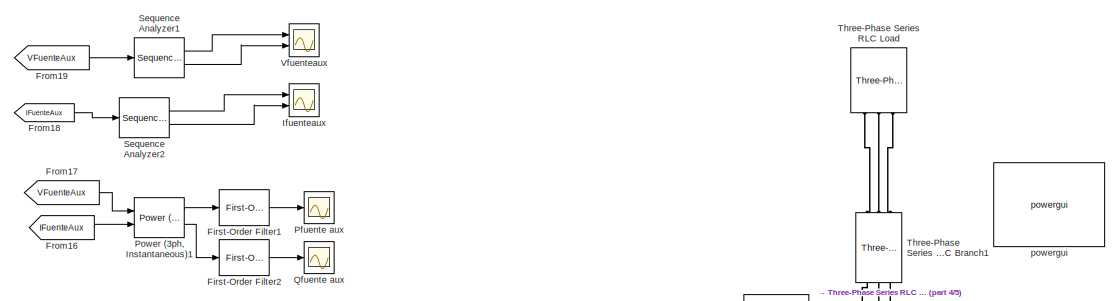
[diagram: Modelo bateria pasiva - part 1/5, top center region]
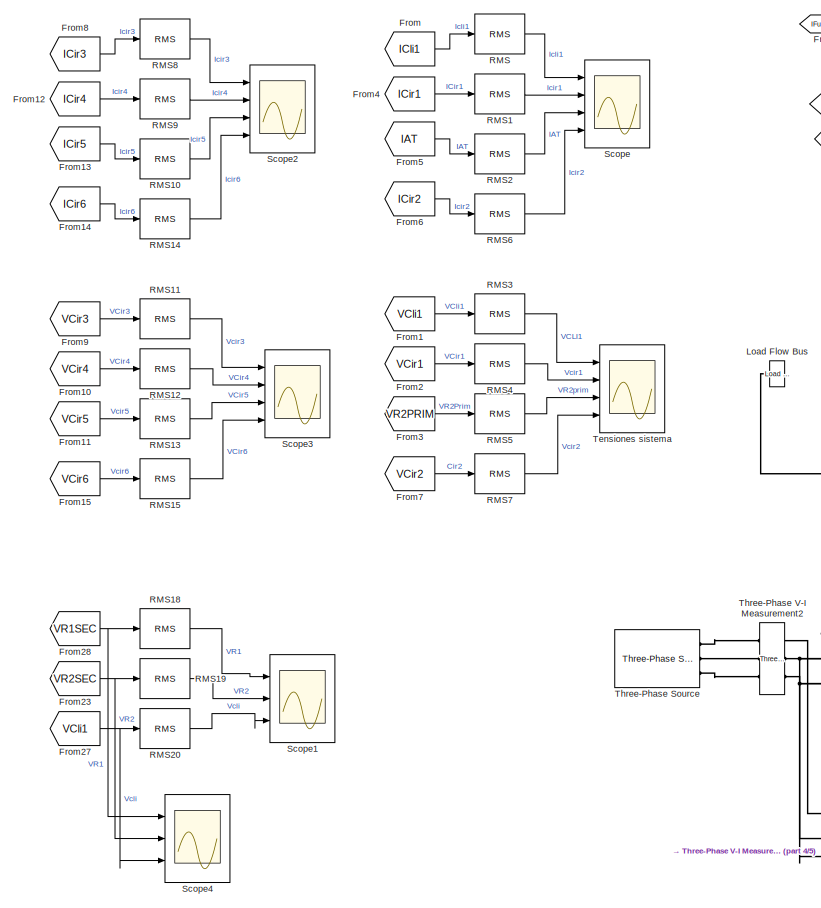
[diagram: Modelo bateria pasiva - part 2/5, middle left region]
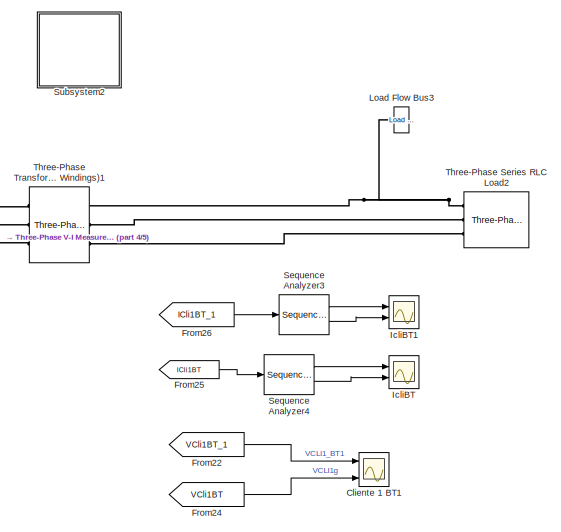
[diagram: Modelo bateria pasiva - part 3/5, middle right region]
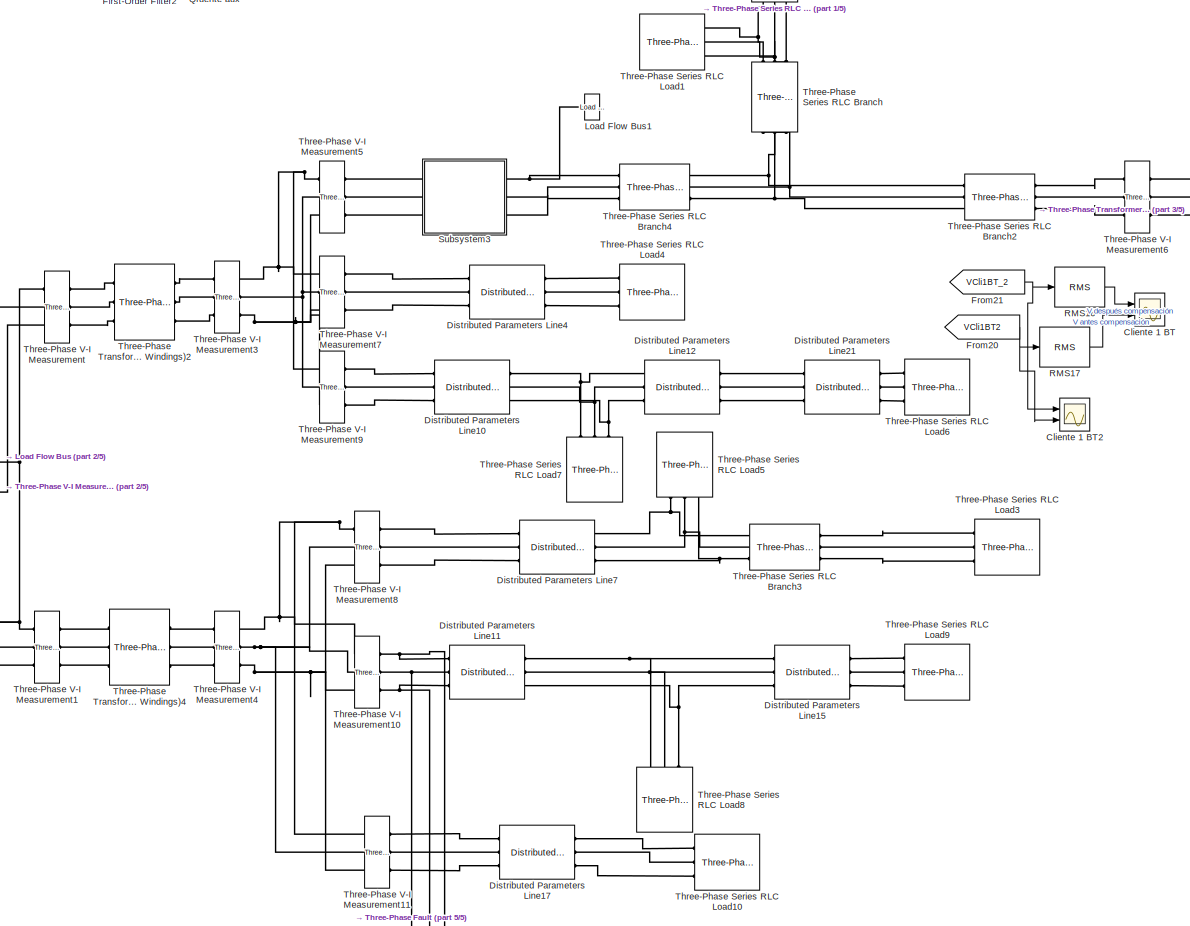
[diagram: Modelo bateria pasiva - part 4/5, central region]
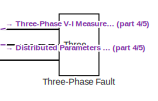
[diagram: Modelo bateria pasiva - part 5/5, bottom center region]
BLOCK [SubSystem] Modelo bateria pasiva
  Ports = []
  RequestExecContextInheritance = off
BLOCK [Scope] Modelo bateria pasiva/Cliente 1 BT
  Floating = off
  NumInputPorts = 2
  Ports = [2]
BLOCK [Scope] Modelo bateria pasiva/Cliente 1 BT1
  Floating = off
  NumInputPorts = 3
  Ports = [3]
BLOCK [Scope] Modelo bateria pasiva/Cliente 1 BT2
  Floating = off
  NumInputPorts = 2
  Ports = [2]
BLOCK [Reference] Modelo bateria pasiva/Distributed Parameters Line10  REF=powerlib/Elements/Distributed Parameters Line
  Ports = [0, 0, 0, 0, 0, 3, 3]
  SourceBlock = powerlib/Elements/Distributed Parameters Line
  SourceProductBaseCode = PS
  SourceProductName = Simscape Electrical
  SourceType = Distributed Parameters Line
BLOCK [Reference] Modelo bateria pasiva/Distributed Parameters Line11  REF=powerlib/Elements/Distributed Parameters Line
  Ports = [0, 0, 0, 0, 0, 3, 3]
  SourceBlock = powerlib/Elements/Distributed Parameters Line
  SourceProductBaseCode = PS
  SourceProductName = Simscape Electrical
  SourceType = Distributed Parameters Line
BLOCK [Reference] Modelo bateria pasiva/Distributed Parameters Line12  REF=powerlib/Elements/Distributed Parameters Line
  Ports = [0, 0, 0, 0, 0, 3, 3]
  SourceBlock = powerlib/Elements/Distributed Parameters Line
  SourceProductBaseCode = PS
  SourceProductName = Simscape Electrical
  SourceType = Distributed Parameters Line
BLOCK [Reference] Modelo bateria pasiva/Distributed Parameters Line15  REF=powerlib/Elements/Distributed Parameters Line
  Ports = [0, 0, 0, 0, 0, 3, 3]
  SourceBlock = powerlib/Elements/Distributed Parameters Line
  SourceProductBaseCode = PS
  SourceProductName = Simscape Electrical
  SourceType = Distributed Parameters Line
BLOCK [Reference] Modelo bateria pasiva/Distributed Parameters Line17  REF=powerlib/Elements/Distributed Parameters Line
  Ports = [0, 0, 0, 0, 0, 3, 3]
  SourceBlock = powerlib/Elements/Distributed Parameters Line
  SourceProductBaseCode = PS
  SourceProductName = Simscape Electrical
  SourceType = Distributed Parameters Line
BLOCK [Reference] Modelo bateria pasiva/Distributed Parameters Line21  REF=powerlib/Elements/Distributed Parameters Line
  Ports = [0, 0, 0, 0, 0, 3, 3]
  SourceBlock = powerlib/Elements/Distributed Parameters Line
  SourceProductBaseCode = PS
  SourceProductName = Simscape Electrical
  SourceType = Distributed Parameters Line
BLOCK [Reference] Modelo bateria pasiva/Distributed Parameters Line4  REF=powerlib/Elements/Distributed Parameters Line
  Ports = [0, 0, 0, 0, 0, 3, 3]
  SourceBlock = powerlib/Elements/Distributed Parameters Line
  SourceProductBaseCode = PS
  SourceProductName = Simscape Electrical
  SourceType = Distributed Parameters Line
BLOCK [Reference] Modelo bateria pasiva/Distributed Parameters Line7  REF=powerlib/Elements/Distributed Parameters Line
  Ports = [0, 0, 0, 0, 0, 3, 3]
  SourceBlock = powerlib/Elements/Distributed Parameters Line
  SourceProductBaseCode = PS
  SourceProductName = Simscape Electrical
  SourceType = Distributed Parameters Line
BLOCK [Reference] Modelo bateria pasiva/First-Order Filter1  REF=powerlib_meascontrol/Filters/First-Order
Filter
  Ports = [1, 1]
  SourceBlock = powerlib_meascontrol/Filters/First-Order\nFilter
  SourceProductBaseCode = PS
  SourceProductName = Simscape Electrical
  SourceType = First-Order Filter
BLOCK [Reference] Modelo bateria pasiva/First-Order Filter2  REF=powerlib_meascontrol/Filters/First-Order
Filter
  Ports = [1, 1]
  SourceBlock = powerlib_meascontrol/Filters/First-Order\nFilter
  SourceProductBaseCode = PS
  SourceProductName = Simscape Electrical
  SourceType = First-Order Filter
BLOCK [From] Modelo bateria pasiva/From
  GotoTag = ICli1
  TagVisibility = global
BLOCK [From] Modelo bateria pasiva/From1
  GotoTag = VCli1
  TagVisibility = global
BLOCK [From] Modelo bateria pasiva/From10
  GotoTag = VCir4
  TagVisibility = global
BLOCK [From] Modelo bateria pasiva/From11
  GotoTag = VCir5
  TagVisibility = global
BLOCK [From] Modelo bateria pasiva/From12
  GotoTag = ICir4
  TagVisibility = global
BLOCK [From] Modelo bateria pasiva/From13
  GotoTag = ICir5
  TagVisibility = global
BLOCK [From] Modelo bateria pasiva/From14
  GotoTag = ICir6
  TagVisibility = global
BLOCK [From] Modelo bateria pasiva/From15
  GotoTag = VCir6
  TagVisibility = global
BLOCK [From] Modelo bateria pasiva/From16
  GotoTag = IFuenteAux
BLOCK [From] Modelo bateria pasiva/From17
  GotoTag = VFuenteAux
BLOCK [From] Modelo bateria pasiva/From18
  GotoTag = IFuenteAux
BLOCK [From] Modelo bateria pasiva/From19
  GotoTag = VFuenteAux
BLOCK [From] Modelo bateria pasiva/From2
  GotoTag = VCir1
  TagVisibility = global
BLOCK [From] Modelo bateria pasiva/From20
  GotoTag = VCli1BT2
  TagVisibility = global
BLOCK [From] Modelo bateria pasiva/From21
  GotoTag = VCli1BT_2
  TagVisibility = global
BLOCK [From] Modelo bateria pasiva/From22
  GotoTag = VCli1BT_1
BLOCK [From] Modelo bateria pasiva/From23
  GotoTag = VR2SEC
  TagVisibility = global
BLOCK [From] Modelo bateria pasiva/From24
  GotoTag = VCli1BT
BLOCK [From] Modelo bateria pasiva/From25
  GotoTag = ICli1BT
BLOCK [From] Modelo bateria pasiva/From26
  GotoTag = ICli1BT_1
BLOCK [From] Modelo bateria pasiva/From27
  GotoTag = VCli1
  TagVisibility = global
BLOCK [From] Modelo bateria pasiva/From28
  GotoTag = VR1SEC
  TagVisibility = global
BLOCK [From] Modelo bateria pasiva/From3
  GotoTag = VR2PRIM
  TagVisibility = global
BLOCK [From] Modelo bateria pasiva/From4
  GotoTag = ICir1
  TagVisibility = global
BLOCK [From] Modelo bateria pasiva/From5
  GotoTag = IAT
  TagVisibility = global
BLOCK [From] Modelo bateria pasiva/From6
  GotoTag = ICir2
  TagVisibility = global
BLOCK [From] Modelo bateria pasiva/From7
  GotoTag = VCir2
  TagVisibility = global
BLOCK [From] Modelo bateria pasiva/From8
  GotoTag = ICir3
  TagVisibility = global
BLOCK [From] Modelo bateria pasiva/From9
  GotoTag = VCir3
  TagVisibility = global
BLOCK [Scope] Modelo bateria pasiva/IcliBT
  Floating = off
  NumInputPorts = 2
  Ports = [2]
BLOCK [Scope] Modelo bateria pasiva/IcliBT1
  Floating = off
  NumInputPorts = 2
  Ports = [2]
BLOCK [Scope] Modelo bateria pasiva/Ifuenteaux
  Floating = off
  NumInputPorts = 2
  Ports = [2]
BLOCK [Reference] Modelo bateria pasiva/Load Flow Bus  REF=powerlib/Measurements/Load Flow Bus
  AttributesFormatString = %<ID>\n%<Vbase>V\n%<VLF>pu\n%<angleLF>deg.
  Ports = [0, 0, 0, 0, 0, 1]
  SourceBlock = powerlib/Measurements/Load Flow Bus
  SourceProductBaseCode = PS
  SourceProductName = Simscape Electrical
  SourceType = Load Flow Bus
BLOCK [Reference] Modelo bateria pasiva/Load Flow Bus1  REF=powerlib/Measurements/Load Flow Bus
  AttributesFormatString = %<ID>\n%<Vbase>V\n%<VLF>pu\n%<angleLF>deg.
  Ports = [0, 0, 0, 0, 0, 1]
  SourceBlock = powerlib/Measurements/Load Flow Bus
  SourceProductBaseCode = PS
  SourceProductName = Simscape Electrical
  SourceType = Load Flow Bus
BLOCK [Reference] Modelo bateria pasiva/Load Flow Bus3  REF=powerlib/Measurements/Load Flow Bus
  AttributesFormatString = %<ID>\n%<Vbase>V\n%<VLF>pu\n%<angleLF>deg.
  Ports = [0, 0, 0, 0, 0, 1]
  SourceBlock = powerlib/Measurements/Load Flow Bus
  SourceProductBaseCode = PS
  SourceProductName = Simscape Electrical
  SourceType = Load Flow Bus
BLOCK [Scope] Modelo bateria pasiva/Pfuente aux 
  Floating = off
  NumInputPorts = 1
  Ports = [1]
BLOCK [Reference] Modelo bateria pasiva/Power (3ph, Instantaneous)1  REF=powerlib_meascontrol/Measurements/Power
(3ph, Instantaneous)
  Ports = [2, 2]
  SourceBlock = powerlib_meascontrol/Measurements/Power\n(3ph, Instantaneous)
  SourceProductBaseCode = PS
  SourceProductName = Simscape Electrical
  SourceType = Power (3ph, Instantaneous)
BLOCK [Scope] Modelo bateria pasiva/Qfuente aux
  Floating = off
  NumInputPorts = 1
  Ports = [1]
BLOCK [Reference] Modelo bateria pasiva/RMS  REF=powerlib_meascontrol/Measurements/RMS
  Ports = [1, 1]
  SourceBlock = powerlib_meascontrol/Measurements/RMS
  SourceProductBaseCode = PS
  SourceProductName = Simscape Electrical
  SourceType = RMS
BLOCK [Reference] Modelo bateria pasiva/RMS1  REF=powerlib_meascontrol/Measurements/RMS
  Ports = [1, 1]
  SourceBlock = powerlib_meascontrol/Measurements/RMS
  SourceProductBaseCode = PS
  SourceProductName = Simscape Electrical
  SourceType = RMS
BLOCK [Reference] Modelo bateria pasiva/RMS10  REF=powerlib_meascontrol/Measurements/RMS
  Ports = [1, 1]
  SourceBlock = powerlib_meascontrol/Measurements/RMS
  SourceProductBaseCode = PS
  SourceProductName = Simscape Electrical
  SourceType = RMS
BLOCK [Reference] Modelo bateria pasiva/RMS11  REF=powerlib_meascontrol/Measurements/RMS
  Ports = [1, 1]
  SourceBlock = powerlib_meascontrol/Measurements/RMS
  SourceProductBaseCode = PS
  SourceProductName = Simscape Electrical
  SourceType = RMS
BLOCK [Reference] Modelo bateria pasiva/RMS12  REF=powerlib_meascontrol/Measurements/RMS
  Ports = [1, 1]
  SourceBlock = powerlib_meascontrol/Measurements/RMS
  SourceProductBaseCode = PS
  SourceProductName = Simscape Electrical
  SourceType = RMS
BLOCK [Reference] Modelo bateria pasiva/RMS13  REF=powerlib_meascontrol/Measurements/RMS
  Ports = [1, 1]
  SourceBlock = powerlib_meascontrol/Measurements/RMS
  SourceProductBaseCode = PS
  SourceProductName = Simscape Electrical
  SourceType = RMS
BLOCK [Reference] Modelo bateria pasiva/RMS14  REF=powerlib_meascontrol/Measurements/RMS
  Ports = [1, 1]
  SourceBlock = powerlib_meascontrol/Measurements/RMS
  SourceProductBaseCode = PS
  SourceProductName = Simscape Electrical
  SourceType = RMS
BLOCK [Reference] Modelo bateria pasiva/RMS15  REF=powerlib_meascontrol/Measurements/RMS
  Ports = [1, 1]
  SourceBlock = powerlib_meascontrol/Measurements/RMS
  SourceProductBaseCode = PS
  SourceProductName = Simscape Electrical
  SourceType = RMS
BLOCK [Reference] Modelo bateria pasiva/RMS16  REF=powerlib_meascontrol/Measurements/RMS
  Ports = [1, 1]
  SourceBlock = powerlib_meascontrol/Measurements/RMS
  SourceProductBaseCode = PS
  SourceProductName = Simscape Electrical
  SourceType = RMS
BLOCK [Reference] Modelo bateria pasiva/RMS17  REF=powerlib_meascontrol/Measurements/RMS
  Ports = [1, 1]
  SourceBlock = powerlib_meascontrol/Measurements/RMS
  SourceProductBaseCode = PS
  SourceProductName = Simscape Electrical
  SourceType = RMS
BLOCK [Reference] Modelo bateria pasiva/RMS18  REF=powerlib_meascontrol/Measurements/RMS
  Ports = [1, 1]
  SourceBlock = powerlib_meascontrol/Measurements/RMS
  SourceProductBaseCode = PS
  SourceProductName = Simscape Electrical
  SourceType = RMS
BLOCK [Reference] Modelo bateria pasiva/RMS19  REF=powerlib_meascontrol/Measurements/RMS
  Ports = [1, 1]
  SourceBlock = powerlib_meascontrol/Measurements/RMS
  SourceProductBaseCode = PS
  SourceProductName = Simscape Electrical
  SourceType = RMS
BLOCK [Reference] Modelo bateria pasiva/RMS2  REF=powerlib_meascontrol/Measurements/RMS
  Ports = [1, 1]
  SourceBlock = powerlib_meascontrol/Measurements/RMS
  SourceProductBaseCode = PS
  SourceProductName = Simscape Electrical
  SourceType = RMS
BLOCK [Reference] Modelo bateria pasiva/RMS20  REF=powerlib_meascontrol/Measurements/RMS
  Ports = [1, 1]
  SourceBlock = powerlib_meascontrol/Measurements/RMS
  SourceProductBaseCode = PS
  SourceProductName = Simscape Electrical
  SourceType = RMS
BLOCK [Reference] Modelo bateria pasiva/RMS3  REF=powerlib_meascontrol/Measurements/RMS
  Ports = [1, 1]
  SourceBlock = powerlib_meascontrol/Measurements/RMS
  SourceProductBaseCode = PS
  SourceProductName = Simscape Electrical
  SourceType = RMS
BLOCK [Reference] Modelo bateria pasiva/RMS4  REF=powerlib_meascontrol/Measurements/RMS
  Ports = [1, 1]
  SourceBlock = powerlib_meascontrol/Measurements/RMS
  SourceProductBaseCode = PS
  SourceProductName = Simscape Electrical
  SourceType = RMS
BLOCK [Reference] Modelo bateria pasiva/RMS5  REF=powerlib_meascontrol/Measurements/RMS
  Ports = [1, 1]
  SourceBlock = powerlib_meascontrol/Measurements/RMS
  SourceProductBaseCode = PS
  SourceProductName = Simscape Electrical
  SourceType = RMS
BLOCK [Reference] Modelo bateria pasiva/RMS6  REF=powerlib_meascontrol/Measurements/RMS
  Ports = [1, 1]
  SourceBlock = powerlib_meascontrol/Measurements/RMS
  SourceProductBaseCode = PS
  SourceProductName = Simscape Electrical
  SourceType = RMS
BLOCK [Reference] Modelo bateria pasiva/RMS7  REF=powerlib_meascontrol/Measurements/RMS
  Ports = [1, 1]
  SourceBlock = powerlib_meascontrol/Measurements/RMS
  SourceProductBaseCode = PS
  SourceProductName = Simscape Electrical
  SourceType = RMS
BLOCK [Reference] Modelo bateria pasiva/RMS8  REF=powerlib_meascontrol/Measurements/RMS
  Ports = [1, 1]
  SourceBlock = powerlib_meascontrol/Measurements/RMS
  SourceProductBaseCode = PS
  SourceProductName = Simscape Electrical
  SourceType = RMS
BLOCK [Reference] Modelo bateria pasiva/RMS9  REF=powerlib_meascontrol/Measurements/RMS
  Ports = [1, 1]
  SourceBlock = powerlib_meascontrol/Measurements/RMS
  SourceProductBaseCode = PS
  SourceProductName = Simscape Electrical
  SourceType = RMS
BLOCK [Scope] Modelo bateria pasiva/Scope
  Floating = off
  NumInputPorts = 4
  Ports = [4]
BLOCK [Scope] Modelo bateria pasiva/Scope1
  Floating = off
  NumInputPorts = 3
  Ports = [3]
  ScopeSpecificationString = Simulink.scopes.TimeScopeBlockCfg('CurrentConfiguration', extmgr.ConfigurationSet(extmgr.Configuration('Core','General UI',true,'FigureColor',[1 1 1]),extmgr.Configuration('Core','Source UI',true),extmgr.Configuration('Sources','WiredSimulink',true,'DataLoggingVariableName','ScopeData1'),extmgr.Configuration('Visuals','Time Domain',true,'SerializedDisplays',{struct('MinYLimReal','-2466.76606','Max...<+4490ch>
BLOCK [Scope] Modelo bateria pasiva/Scope2
  Floating = off
  NumInputPorts = 4
  Ports = [4]
BLOCK [Scope] Modelo bateria pasiva/Scope3
  Floating = off
  NumInputPorts = 4
  Ports = [4]
BLOCK [Scope] Modelo bateria pasiva/Scope4
  Floating = off
  NumInputPorts = 3
  Ports = [3]
  ScopeSpecificationString = Simulink.scopes.TimeScopeBlockCfg('CurrentConfiguration', extmgr.ConfigurationSet(extmgr.Configuration('Core','General UI',true),extmgr.Configuration('Core','Source UI',true),extmgr.Configuration('Sources','WiredSimulink',true,'DataLoggingVariableName','ScopeData2'),extmgr.Configuration('Visuals','Time Domain',true,'SerializedDisplays',{struct('MinYLimReal','-41137.95391','MaxYLimReal','46594.6128...<+2132ch>
BLOCK [Reference] Modelo bateria pasiva/Sequence Analyzer1  REF=powerlib_meascontrol/Measurements/Sequence Analyzer
  Ports = [1, 2]
  SourceBlock = powerlib_meascontrol/Measurements/Sequence Analyzer
  SourceProductBaseCode = PS
  SourceProductName = Simscape Electrical
  SourceType = Sequence Analyzer
BLOCK [Reference] Modelo bateria pasiva/Sequence Analyzer2  REF=powerlib_meascontrol/Measurements/Sequence Analyzer
  Ports = [1, 2]
  SourceBlock = powerlib_meascontrol/Measurements/Sequence Analyzer
  SourceProductBaseCode = PS
  SourceProductName = Simscape Electrical
  SourceType = Sequence Analyzer
BLOCK [Reference] Modelo bateria pasiva/Sequence Analyzer3  REF=powerlib_meascontrol/Measurements/Sequence Analyzer
  Ports = [1, 2]
  SourceBlock = powerlib_meascontrol/Measurements/Sequence Analyzer
  SourceProductBaseCode = PS
  SourceProductName = Simscape Electrical
  SourceType = Sequence Analyzer
BLOCK [Reference] Modelo bateria pasiva/Sequence Analyzer4  REF=powerlib_meascontrol/Measurements/Sequence Analyzer
  Ports = [1, 2]
  SourceBlock = powerlib_meascontrol/Measurements/Sequence Analyzer
  SourceProductBaseCode = PS
  SourceProductName = Simscape Electrical
  SourceType = Sequence Analyzer
BLOCK [SubSystem] Modelo bateria pasiva/Subsystem2
  Commented = on
  Ports = [0, 0, 0, 0, 0, 3, 3]
  RequestExecContextInheritance = off
BLOCK [PMIOPort] Modelo bateria pasiva/Subsystem2/Conn1
  Side = Left
BLOCK [PMIOPort] Modelo bateria pasiva/Subsystem2/Conn2
  Port = 2
  Side = Right
BLOCK [PMIOPort] Modelo bateria pasiva/Subsystem2/Conn3
  Port = 3
  Side = Left
BLOCK [PMIOPort] Modelo bateria pasiva/Subsystem2/Conn4
  Port = 4
  Side = Right
BLOCK [PMIOPort] Modelo bateria pasiva/Subsystem2/Conn5
  Port = 5
  Side = Left
BLOCK [PMIOPort] Modelo bateria pasiva/Subsystem2/Conn6
  Port = 6
  Side = Right
BLOCK [Reference] Modelo bateria pasiva/Subsystem2/Linear Transformer  REF=powerlib/Elements/Linear Transformer
  Ports = [0, 0, 0, 0, 0, 2, 2]
  SourceBlock = powerlib/Elements/Linear Transformer
  SourceProductBaseCode = PS
  SourceProductName = Simscape Electrical
  SourceType = Linear Transformer
BLOCK [Reference] Modelo bateria pasiva/Subsystem2/Linear Transformer1  REF=powerlib/Elements/Linear Transformer
  Ports = [0, 0, 0, 0, 0, 2, 2]
  SourceBlock = powerlib/Elements/Linear Transformer
  SourceProductBaseCode = PS
  SourceProductName = Simscape Electrical
  SourceType = Linear Transformer
BLOCK [Reference] Modelo bateria pasiva/Subsystem2/Linear Transformer2  REF=powerlib/Elements/Linear Transformer
  Ports = [0, 0, 0, 0, 0, 2, 2]
  SourceBlock = powerlib/Elements/Linear Transformer
  SourceProductBaseCode = PS
  SourceProductName = Simscape Electrical
  SourceType = Linear Transformer
BLOCK [SubSystem] Modelo bateria pasiva/Subsystem2/Subsystem
  Ports = [0, 0, 0, 0, 0, 3]
  RequestExecContextInheritance = off
BLOCK [PMIOPort] Modelo bateria pasiva/Subsystem2/Subsystem/A
  Side = Left
BLOCK [Sum] Modelo bateria pasiva/Subsystem2/Subsystem/Add
  InputSameDT = off
  Inputs = +--
  OutDataTypeStr = Inherit: Inherit via internal rule
  Ports = [3, 1]
  SaturateOnIntegerOverflow = off
BLOCK [Sum] Modelo bateria pasiva/Subsystem2/Subsystem/Add1
  InputSameDT = off
  OutDataTypeStr = Inherit: Inherit via internal rule
  Ports = [2, 1]
  SaturateOnIntegerOverflow = off
BLOCK [PMIOPort] Modelo bateria pasiva/Subsystem2/Subsystem/B
  Port = 2
  Side = Left
BLOCK [Reference] Modelo bateria pasiva/Subsystem2/Subsystem/Battery  REF=electricdrivelib/Extra Sources/Battery
  Ports = [0, 1, 0, 0, 0, 2]
  SourceBlock = electricdrivelib/Extra Sources/Battery
  SourceProductBaseCode = PS
  SourceProductName = Simscape Electrical
  SourceType = Battery
BLOCK [BusSelector] Modelo bateria pasiva/Subsystem2/Subsystem/Bus Selector1
  OutputAsBus = off
  OutputSignals = Current (A),Voltage (V),SOC (%)
  Ports = [1, 3]
BLOCK [BusSelector] Modelo bateria pasiva/Subsystem2/Subsystem/Bus Selector3
  OutputAsBus = off
  OutputSignals = Current I,Voltage V,SOC %
  Ports = [1, 3]
BLOCK [PMIOPort] Modelo bateria pasiva/Subsystem2/Subsystem/C
  Port = 3
  Side = Left
BLOCK [DataTypeConversion] Modelo bateria pasiva/Subsystem2/Subsystem/Cast To Boolean
  OutDataTypeStr = boolean
  RndMeth = Floor
  SaturateOnIntegerOverflow = off
BLOCK [DataTypeConversion] Modelo bateria pasiva/Subsystem2/Subsystem/Cast To Boolean1
  OutDataTypeStr = boolean
  RndMeth = Floor
  SaturateOnIntegerOverflow = off
BLOCK [DataTypeConversion] Modelo bateria pasiva/Subsystem2/Subsystem/Cast To Double
  OutDataTypeStr = double
  RndMeth = Floor
  SaturateOnIntegerOverflow = off
BLOCK [Reference] Modelo bateria pasiva/Subsystem2/Subsystem/Clock  REF=simulink_extras/Flip Flops/Clock
  Ports = [0, 1]
  SourceBlock = simulink_extras/Flip Flops/Clock
  SourceProductBaseCode = SL
  SourceProductName = Simulink
  SourceType = Digital clock
BLOCK [Constant] Modelo bateria pasiva/Subsystem2/Subsystem/Constant
  Value = 800
BLOCK [Constant] Modelo bateria pasiva/Subsystem2/Subsystem/Constant1
  Value = -1
BLOCK [Constant] Modelo bateria pasiva/Subsystem2/Subsystem/Constant2
BLOCK [Constant] Modelo bateria pasiva/Subsystem2/Subsystem/Constant3
  Value = 0
BLOCK [Reference] Modelo bateria pasiva/Subsystem2/Subsystem/Current Measurement  REF=powerlib/Measurements/Current Measurement
  Ports = [0, 1, 0, 0, 0, 1, 1]
  SourceBlock = powerlib/Measurements/Current Measurement
  SourceProductBaseCode = PS
  SourceProductName = Simscape Electrical
  SourceType = Current Measurement
  UserDataPersistent = on
BLOCK [Reference] Modelo bateria pasiva/Subsystem2/Subsystem/Current Measurement1  REF=powerlib/Measurements/Current Measurement
  Ports = [0, 1, 0, 0, 0, 1, 1]
  SourceBlock = powerlib/Measurements/Current Measurement
  SourceProductBaseCode = PS
  SourceProductName = Simscape Electrical
  SourceType = Current Measurement
  UserDataPersistent = on
BLOCK [Reference] Modelo bateria pasiva/Subsystem2/Subsystem/Current Measurement2  REF=powerlib/Measurements/Current Measurement
  Ports = [0, 1, 0, 0, 0, 1, 1]
  SourceBlock = powerlib/Measurements/Current Measurement
  SourceProductBaseCode = PS
  SourceProductName = Simscape Electrical
  SourceType = Current Measurement
  UserDataPersistent = on
BLOCK [Reference] Modelo bateria pasiva/Subsystem2/Subsystem/Diode  REF=powerlib/Power
Electronics/Diode
  Ports = [0, 1, 0, 0, 0, 1, 1]
  SourceBlock = powerlib/Power\nElectronics/Diode
  SourceProductBaseCode = PS
  SourceProductName = Simscape Electrical
  SourceType = Diode
BLOCK [Reference] Modelo bateria pasiva/Subsystem2/Subsystem/First-Order Filter3  REF=powerlib_meascontrol/Filters/First-Order
Filter
  Ports = [1, 1]
  SourceBlock = powerlib_meascontrol/Filters/First-Order\nFilter
  SourceProductBaseCode = PS
  SourceProductName = Simscape Electrical
  SourceType = First-Order Filter
BLOCK [Reference] Modelo bateria pasiva/Subsystem2/Subsystem/First-Order Filter4  REF=powerlib_meascontrol/Filters/First-Order
Filter
  Ports = [1, 1]
  SourceBlock = powerlib_meascontrol/Filters/First-Order\nFilter
  SourceProductBaseCode = PS
  SourceProductName = Simscape Electrical
  SourceType = First-Order Filter
BLOCK [From] Modelo bateria pasiva/Subsystem2/Subsystem/From10
  GotoTag = Iboost
BLOCK [From] Modelo bateria pasiva/Subsystem2/Subsystem/From20
  GotoTag = Uref
  TagVisibility = global
BLOCK [From] Modelo bateria pasiva/Subsystem2/Subsystem/From3
  GotoTag = Vdc
BLOCK [From] Modelo bateria pasiva/Subsystem2/Subsystem/From4
  GotoTag = IoutConv
BLOCK [From] Modelo bateria pasiva/Subsystem2/Subsystem/From5
  GotoTag = Iabc_SC2
  TagVisibility = global
BLOCK [From] Modelo bateria pasiva/Subsystem2/Subsystem/From6
  GotoTag = Vabc_SC2
  TagVisibility = global
BLOCK [From] Modelo bateria pasiva/Subsystem2/Subsystem/From7
  GotoTag = Vdc
BLOCK [From] Modelo bateria pasiva/Subsystem2/Subsystem/From9
  GotoTag = Vabc_SC2
  TagVisibility = global
BLOCK [Gain] Modelo bateria pasiva/Subsystem2/Subsystem/Gain
  Gain = -800
  OutDataTypeStr = Inherit: Inherit via internal rule
  ParamDataTypeStr = Inherit: Inherit via internal rule
  SaturateOnIntegerOverflow = off
BLOCK [Gain] Modelo bateria pasiva/Subsystem2/Subsystem/Gain1
  Gain = 0.1
  OutDataTypeStr = Inherit: Inherit via internal rule
  ParamDataTypeStr = Inherit: Inherit via internal rule
  SaturateOnIntegerOverflow = off
BLOCK [Goto] Modelo bateria pasiva/Subsystem2/Subsystem/Goto1
  GotoTag = Isc_Meas
BLOCK [Goto] Modelo bateria pasiva/Subsystem2/Subsystem/Goto2
  GotoTag = Iboost
BLOCK [Goto] Modelo bateria pasiva/Subsystem2/Subsystem/Goto3
  GotoTag = IoutConv
BLOCK [Goto] Modelo bateria pasiva/Subsystem2/Subsystem/Goto5
  GotoTag = soc
BLOCK [Goto] Modelo bateria pasiva/Subsystem2/Subsystem/Goto6
  GotoTag = Vdc
BLOCK [Goto] Modelo bateria pasiva/Subsystem2/Subsystem/Goto7
  GotoTag = VSC
BLOCK [Reference] Modelo bateria pasiva/Subsystem2/Subsystem/Half-Bridge Converter  REF=powerlib/Power
Electronics/Half-Bridge Converter
  Commented = on
  Ports = [2, 0, 0, 0, 0, 1, 2]
  SourceBlock = powerlib/Power\nElectronics/Half-Bridge Converter
  SourceProductBaseCode = PS
  SourceProductName = Simscape Electrical
  SourceType = Half-Bridge Converter
BLOCK [Reference] Modelo bateria pasiva/Subsystem2/Subsystem/Ideal Switch  REF=powerlib/Power
Electronics/Ideal Switch
  Ports = [1, 1, 0, 0, 0, 1, 1]
  SourceBlock = powerlib/Power\nElectronics/Ideal Switch
  SourceProductBaseCode = PS
  SourceProductName = Simscape Electrical
  SourceType = Ideal Switch
BLOCK [Reference] Modelo bateria pasiva/Subsystem2/Subsystem/Mosfet  REF=powerlib/Power
Electronics/Mosfet
  Ports = [1, 0, 0, 0, 0, 1, 1]
  SourceBlock = powerlib/Power\nElectronics/Mosfet
  SourceProductBaseCode = PS
  SourceProductName = Simscape Electrical
  SourceType = Mosfet
BLOCK [Scope] Modelo bateria pasiva/Subsystem2/Subsystem/P SC in 1
  Floating = off
  NumInputPorts = 1
  Ports = [1]
BLOCK [Reference] Modelo bateria pasiva/Subsystem2/Subsystem/PID Controller  REF=simulink/Continuous/PID Controller
  Ports = [1, 1]
  SourceBlock = simulink/Continuous/PID Controller
  SourceProductBaseCode = SL
  SourceProductName = Simulink
  SourceType = PID 1dof
BLOCK [Reference] Modelo bateria pasiva/Subsystem2/Subsystem/Parallel RLC Branch  REF=powerlib/Elements/Parallel RLC Branch
  AttributesFormatString = \n
  Ports = [0, 0, 0, 0, 0, 1, 1]
  SourceBlock = powerlib/Elements/Parallel RLC Branch
  SourceProductBaseCode = PS
  SourceProductName = Simscape Electrical
  SourceType = Parallel RLC Branch
BLOCK [Reference] Modelo bateria pasiva/Subsystem2/Subsystem/Power (3ph, Instantaneous)2  REF=powerlib_meascontrol/Measurements/Power
(3ph, Instantaneous)
  Ports = [2, 2]
  SourceBlock = powerlib_meascontrol/Measurements/Power\n(3ph, Instantaneous)
  SourceProductBaseCode = PS
  SourceProductName = Simscape Electrical
  SourceType = Power (3ph, Instantaneous)
BLOCK [Scope] Modelo bateria pasiva/Subsystem2/Subsystem/Q Sc in 1
  Floating = off
  NumInputPorts = 1
  Ports = [1]
BLOCK [Reference] Modelo bateria pasiva/Subsystem2/Subsystem/S-R Flip-Flop  REF=simulink_extras/Flip Flops/S-R
Flip-Flop
  Ports = [2, 2]
  SourceBlock = simulink_extras/Flip Flops/S-R\nFlip-Flop
  SourceProductBaseCode = SL
  SourceProductName = Simulink
  SourceType = SRFlipFlop
BLOCK [SignalGenerator] Modelo bateria pasiva/Subsystem2/Subsystem/Sawtooth Generator
  Frequency = 10e3
  Ports = [0, 1]
  WaveForm = sawtooth
BLOCK [Scope] Modelo bateria pasiva/Subsystem2/Subsystem/Scope
  Floating = off
  NumInputPorts = 1
  Ports = [1]
BLOCK [Scope] Modelo bateria pasiva/Subsystem2/Subsystem/Scope1
  Floating = off
  NumInputPorts = 1
  Ports = [1]
BLOCK [Reference] Modelo bateria pasiva/Subsystem2/Subsystem/Series RLC Branch  REF=powerlib/Elements/Series RLC Branch
  Ports = [0, 0, 0, 0, 0, 1, 1]
  SourceBlock = powerlib/Elements/Series RLC Branch
  SourceProductBaseCode = PS
  SourceProductName = Simscape Electrical
  SourceType = Series RLC Branch
BLOCK [SubSystem] Modelo bateria pasiva/Subsystem2/Subsystem/Subsystem
  Commented = on
  Ports = [1, 2]
  RequestExecContextInheritance = off
BLOCK [DataTypeConversion] Modelo bateria pasiva/Subsystem2/Subsystem/Subsystem/Cast To Boolean
  OutDataTypeStr = boolean
  RndMeth = Floor
  SaturateOnIntegerOverflow = off
BLOCK [DataTypeConversion] Modelo bateria pasiva/Subsystem2/Subsystem/Subsystem/Cast To Boolean1
  OutDataTypeStr = boolean
  RndMeth = Floor
  SaturateOnIntegerOverflow = off
BLOCK [DataTypeConversion] Modelo bateria pasiva/Subsystem2/Subsystem/Subsystem/Cast To Double
  OutDataTypeStr = double
  RndMeth = Floor
  SaturateOnIntegerOverflow = off
BLOCK [Reference] Modelo bateria pasiva/Subsystem2/Subsystem/Subsystem/Clock  REF=simulink_extras/Flip Flops/Clock
  Ports = [0, 1]
  SourceBlock = simulink_extras/Flip Flops/Clock
  SourceProductBaseCode = SL
  SourceProductName = Simulink
  SourceType = Digital clock
BLOCK [Constant] Modelo bateria pasiva/Subsystem2/Subsystem/Subsystem/Constant1
  Value = 0
BLOCK [Constant] Modelo bateria pasiva/Subsystem2/Subsystem/Subsystem/Constant2
BLOCK [Constant] Modelo bateria pasiva/Subsystem2/Subsystem/Subsystem/Constant3
  Value = 0
BLOCK [Inport] Modelo bateria pasiva/Subsystem2/Subsystem/Subsystem/In1
  IconDisplay = Port number
BLOCK [Mux] Modelo bateria pasiva/Subsystem2/Subsystem/Subsystem/Mux
  DisplayOption = bar
  Inputs = 2
  Ports = [2, 1]
BLOCK [Outport] Modelo bateria pasiva/Subsystem2/Subsystem/Subsystem/Out1
  IconDisplay = Port number
BLOCK [Outport] Modelo bateria pasiva/Subsystem2/Subsystem/Subsystem/Out2
  IconDisplay = Port number
  Port = 2
BLOCK [Reference] Modelo bateria pasiva/Subsystem2/Subsystem/Subsystem/S-R Flip-Flop  REF=simulink_extras/Flip Flops/S-R
Flip-Flop
  Ports = [2, 2]
  SourceBlock = simulink_extras/Flip Flops/S-R\nFlip-Flop
  SourceProductBaseCode = SL
  SourceProductName = Simulink
  SourceType = SRFlipFlop
BLOCK [Switch] Modelo bateria pasiva/Subsystem2/Subsystem/Subsystem/Switch
  Criteria = u2 > Threshold
  InputSameDT = off
  SaturateOnIntegerOverflow = off
BLOCK [SubSystem] Modelo bateria pasiva/Subsystem2/Subsystem/Subsystem1
  Commented = on
  Ports = [2, 4]
  RequestExecContextInheritance = off
BLOCK [Constant] Modelo bateria pasiva/Subsystem2/Subsystem/Subsystem1/Constant2
BLOCK [Constant] Modelo bateria pasiva/Subsystem2/Subsystem/Subsystem1/Constant3
  Value = 100
BLOCK [Constant] Modelo bateria pasiva/Subsystem2/Subsystem/Subsystem1/Constant4
BLOCK [Demux] Modelo bateria pasiva/Subsystem2/Subsystem/Subsystem1/Demux1
  DisplayOption = bar
  Outputs = 3
  Ports = [1, 3]
BLOCK [Reference] Modelo bateria pasiva/Subsystem2/Subsystem/Subsystem1/First-Order Filter  REF=powerlib_meascontrol/Filters/First-Order
Filter
  Ports = [1, 1]
  SourceBlock = powerlib_meascontrol/Filters/First-Order\nFilter
  SourceProductBaseCode = PS
  SourceProductName = Simscape Electrical
  SourceType = First-Order Filter
BLOCK [From] Modelo bateria pasiva/Subsystem2/Subsystem/Subsystem1/From16
  GotoTag = VCli1BT_1
  TagVisibility = global
BLOCK [From] Modelo bateria pasiva/Subsystem2/Subsystem/Subsystem1/From17
  GotoTag = VCli1BT
  TagVisibility = global
BLOCK [From] Modelo bateria pasiva/Subsystem2/Subsystem/Subsystem1/From18
  GotoTag = ICli1BT
  TagVisibility = global
BLOCK [From] Modelo bateria pasiva/Subsystem2/Subsystem/Subsystem1/From19
  GotoTag = VCli1BT
  TagVisibility = global
BLOCK [From] Modelo bateria pasiva/Subsystem2/Subsystem/Subsystem1/From2
  GotoTag = soc
BLOCK [From] Modelo bateria pasiva/Subsystem2/Subsystem/Subsystem1/From21
  GotoTag = Vabc_sync
BLOCK [Gain] Modelo bateria pasiva/Subsystem2/Subsystem/Subsystem1/Gain
  Gain = 1/1200
  OutDataTypeStr = Inherit: Inherit via internal rule
  ParamDataTypeStr = Inherit: Inherit via internal rule
  SaturateOnIntegerOverflow = off
BLOCK [Gain] Modelo bateria pasiva/Subsystem2/Subsystem/Subsystem1/Gain1
  Gain = pi/180
  OutDataTypeStr = Inherit: Inherit via internal rule
  ParamDataTypeStr = Inherit: Inherit via internal rule
  SaturateOnIntegerOverflow = off
BLOCK [Gain] Modelo bateria pasiva/Subsystem2/Subsystem/Subsystem1/Gain2
  Gain = 1/254
  OutDataTypeStr = Inherit: Inherit via internal rule
  ParamDataTypeStr = Inherit: Inherit via internal rule
  SaturateOnIntegerOverflow = off
BLOCK [Gain] Modelo bateria pasiva/Subsystem2/Subsystem/Subsystem1/Gain3
  Gain = 1/30e3
  OutDataTypeStr = Inherit: Inherit via internal rule
  ParamDataTypeStr = Inherit: Inherit via internal rule
  SaturateOnIntegerOverflow = off
BLOCK [Goto] Modelo bateria pasiva/Subsystem2/Subsystem/Subsystem1/Goto
  GotoTag = Uref
BLOCK [Goto] Modelo bateria pasiva/Subsystem2/Subsystem/Subsystem1/Goto2
  GotoTag = Vabc_sync
BLOCK [Goto] Modelo bateria pasiva/Subsystem2/Subsystem/Subsystem1/Goto4
  GotoTag = VoutConv
BLOCK [Inport] Modelo bateria pasiva/Subsystem2/Subsystem/Subsystem1/In1
  IconDisplay = Port number
BLOCK [Inport] Modelo bateria pasiva/Subsystem2/Subsystem/Subsystem1/In2
  IconDisplay = Port number
  Port = 2
BLOCK [Scope] Modelo bateria pasiva/Subsystem2/Subsystem/Subsystem1/Isc
  Floating = off
  NumInputPorts = 1
  Ports = [1]
BLOCK [SubSystem] Modelo bateria pasiva/Subsystem2/Subsystem/Subsystem1/MATLAB Function
  ErrorFcn = Stateflow.Translate.translate
  PermitHierarchicalResolution = ExplicitOnly
  Ports = [2, 1]
  RequestExecContextInheritance = off
  SFBlockType = MATLAB Function
  TreatAsAtomicUnit = on
BLOCK [Demux] Modelo bateria pasiva/Subsystem2/Subsystem/Subsystem1/MATLAB Function/ Demux 
  Outputs = 1
  Ports = [1, 1]
BLOCK [S-Function] Modelo bateria pasiva/Subsystem2/Subsystem/Subsystem1/MATLAB Function/ SFunction 
  EnableBusSupport = on
  FunctionName = sf_sfun
  PortCounts = [2 2]
  Ports = [2, 2]
  SFcnIsStateOwnerBlock = off
  SFunctionDeploymentMode = off
  Tag = Stateflow S-Function 4
BLOCK [Terminator] Modelo bateria pasiva/Subsystem2/Subsystem/Subsystem1/MATLAB Function/ Terminator 
BLOCK [Inport] Modelo bateria pasiva/Subsystem2/Subsystem/Subsystem1/MATLAB Function/soc
  IconDisplay = Port number
  Port = 2
BLOCK [Inport] Modelo bateria pasiva/Subsystem2/Subsystem/Subsystem1/MATLAB Function/u
  IconDisplay = Port number
BLOCK [Outport] Modelo bateria pasiva/Subsystem2/Subsystem/Subsystem1/MATLAB Function/y
  IconDisplay = Port number
BLOCK [Memory] Modelo bateria pasiva/Subsystem2/Subsystem/Subsystem1/Memory1
BLOCK [Memory] Modelo bateria pasiva/Subsystem2/Subsystem/Subsystem1/Memory2
BLOCK [Mux] Modelo bateria pasiva/Subsystem2/Subsystem/Subsystem1/Mux2
  DisplayOption = bar
  Inputs = 3
  Ports = [3, 1]
BLOCK [Mux] Modelo bateria pasiva/Subsystem2/Subsystem/Subsystem1/Mux3
  DisplayOption = bar
  Inputs = 3
  Ports = [3, 1]
BLOCK [Outport] Modelo bateria pasiva/Subsystem2/Subsystem/Subsystem1/Out1
  IconDisplay = Port number
BLOCK [Outport] Modelo bateria pasiva/Subsystem2/Subsystem/Subsystem1/Out2
  IconDisplay = Port number
  Port = 2
BLOCK [Outport] Modelo bateria pasiva/Subsystem2/Subsystem/Subsystem1/Out3
  IconDisplay = Port number
  Port = 3
BLOCK [Outport] Modelo bateria pasiva/Subsystem2/Subsystem/Subsystem1/Out4
  IconDisplay = Port number
  Port = 4
BLOCK [Reference] Modelo bateria pasiva/Subsystem2/Subsystem/Subsystem1/PID Controller1  REF=simulink/Continuous/PID Controller
  Ports = [1, 1]
  SourceBlock = simulink/Continuous/PID Controller
  SourceProductBaseCode = SL
  SourceProductName = Simulink
  SourceType = PID 1dof
BLOCK [Reference] Modelo bateria pasiva/Subsystem2/Subsystem/Subsystem1/PID Controller4  REF=simulink/Continuous/PID Controller
  Ports = [1, 1]
  SourceBlock = simulink/Continuous/PID Controller
  SourceProductBaseCode = SL
  SourceProductName = Simulink
  SourceType = PID 1dof
BLOCK [Reference] Modelo bateria pasiva/Subsystem2/Subsystem/Subsystem1/PLL (3ph)1  REF=powerlib_meascontrol/PLL/PLL
(3ph)
  Ports = [1, 2]
  SourceBlock = powerlib_meascontrol/PLL/PLL\n(3ph)
  SourceProductBaseCode = PS
  SourceProductName = Simscape Electrical
  SourceType = PLL (3ph)
BLOCK [Reference] Modelo bateria pasiva/Subsystem2/Subsystem/Subsystem1/Power (3ph, Instantaneous)  REF=powerlib_meascontrol/Measurements/Power
(3ph, Instantaneous)
  Ports = [2, 2]
  SourceBlock = powerlib_meascontrol/Measurements/Power\n(3ph, Instantaneous)
  SourceProductBaseCode = PS
  SourceProductName = Simscape Electrical
  SourceType = Power (3ph, Instantaneous)
BLOCK [Product] Modelo bateria pasiva/Subsystem2/Subsystem/Subsystem1/Product
  InputSameDT = off
  OutDataTypeStr = Inherit: Inherit via internal rule
  Ports = [2, 1]
  RndMeth = Floor
  SaturateOnIntegerOverflow = off
BLOCK [Product] Modelo bateria pasiva/Subsystem2/Subsystem/Subsystem1/Product1
  InputSameDT = off
  OutDataTypeStr = Inherit: Inherit via internal rule
  Ports = [2, 1]
  RndMeth = Floor
  SaturateOnIntegerOverflow = off
BLOCK [Reference] Modelo bateria pasiva/Subsystem2/Subsystem/Subsystem1/RMS16  REF=powerlib_meascontrol/Measurements/RMS
  Ports = [1, 1]
  SourceBlock = powerlib_meascontrol/Measurements/RMS
  SourceProductBaseCode = PS
  SourceProductName = Simscape Electrical
  SourceType = RMS
BLOCK [Goto] Modelo bateria pasiva/Subsystem2/Subsystem/Subsystem1/Referencia_Corriente
  GotoTag = Isc_Ref
BLOCK [Trigonometry] Modelo bateria pasiva/Subsystem2/Subsystem/Subsystem1/Sin
  Ports = [1, 1]
BLOCK [Sum] Modelo bateria pasiva/Subsystem2/Subsystem/Subsystem1/Sum1
  IconShape = round
  InputSameDT = off
  Inputs = |-+
  OutDataTypeStr = Inherit: Inherit via internal rule
  Ports = [2, 1]
  SaturateOnIntegerOverflow = off
BLOCK [Sum] Modelo bateria pasiva/Subsystem2/Subsystem/Subsystem1/Sum4
  IconShape = round
  InputSameDT = off
  Inputs = +-|
  OutDataTypeStr = Inherit: Inherit via internal rule
  Ports = [2, 1]
  SaturateOnIntegerOverflow = off
BLOCK [Sum] Modelo bateria pasiva/Subsystem2/Subsystem/Subsystem1/Sum5
  IconShape = round
  InputSameDT = off
  Inputs = -+|
  OutDataTypeStr = Inherit: Inherit via internal rule
  Ports = [2, 1]
  SaturateOnIntegerOverflow = off
BLOCK [Switch] Modelo bateria pasiva/Subsystem2/Subsystem/Subsystem1/Switch2
  Criteria = u2 > Threshold
  InputSameDT = off
  SaturateOnIntegerOverflow = off
  Threshold = 0.9
BLOCK [Scope] Modelo bateria pasiva/Subsystem2/Subsystem/Subsystem1/Tensión bus DC1
  Floating = off
  NumInputPorts = 1
  Ports = [1]
BLOCK [TransportDelay] Modelo bateria pasiva/Subsystem2/Subsystem/Subsystem1/Transport Delay
  DelayTime = 11.06e-3
  Ports = [1, 1]
BLOCK [TransportDelay] Modelo bateria pasiva/Subsystem2/Subsystem/Subsystem1/Transport Delay1
  DelayTime = 5.53e-3
  Ports = [1, 1]
BLOCK [TransportDelay] Modelo bateria pasiva/Subsystem2/Subsystem/Subsystem1/Transport Delay2
  DelayTime = 11.06e-3
  Ports = [1, 1]
BLOCK [TransportDelay] Modelo bateria pasiva/Subsystem2/Subsystem/Subsystem1/Transport Delay3
  DelayTime = 5.53e-3
  Ports = [1, 1]
BLOCK [Scope] Modelo bateria pasiva/Subsystem2/Subsystem/Subsystem1/Uccm 
  Floating = off
  NumInputPorts = 1
  Ports = [1]
BLOCK [Scope] Modelo bateria pasiva/Subsystem2/Subsystem/Subsystem1/Uvcm 
  Floating = off
  NumInputPorts = 1
  Ports = [1]
BLOCK [SubSystem] Modelo bateria pasiva/Subsystem2/Subsystem/Subsystem2
  Ports = []
  RequestExecContextInheritance = off
BLOCK [Sum] Modelo bateria pasiva/Subsystem2/Subsystem/Subsystem2/Add
  InputSameDT = off
  Inputs = -+
  OutDataTypeStr = Inherit: Inherit via internal rule
  Ports = [2, 1]
  SaturateOnIntegerOverflow = off
BLOCK [Constant] Modelo bateria pasiva/Subsystem2/Subsystem/Subsystem2/Constant
  Value = 0.95
BLOCK [Constant] Modelo bateria pasiva/Subsystem2/Subsystem/Subsystem2/Constant1
  Value = 0
BLOCK [Reference] Modelo bateria pasiva/Subsystem2/Subsystem/Subsystem2/Discrete PID Controller  REF=simulink/Continuous/PID Controller
  Ports = [1, 1]
  SourceBlock = simulink/Continuous/PID Controller
  SourceProductBaseCode = SL
  SourceProductName = Simulink
  SourceType = PID 1dof
BLOCK [Reference] Modelo bateria pasiva/Subsystem2/Subsystem/Subsystem2/First-Order Filter  REF=powerlib_meascontrol/Filters/First-Order
Filter
  Ports = [1, 1]
  SourceBlock = powerlib_meascontrol/Filters/First-Order\nFilter
  SourceProductBaseCode = PS
  SourceProductName = Simscape Electrical
  SourceType = First-Order Filter
BLOCK [From] Modelo bateria pasiva/Subsystem2/Subsystem/Subsystem2/From1
  GotoTag = VCli1BT
  TagVisibility = global
BLOCK [From] Modelo bateria pasiva/Subsystem2/Subsystem/Subsystem2/From19
  GotoTag = VCli1BT_1
  TagVisibility = global
BLOCK [From] Modelo bateria pasiva/Subsystem2/Subsystem/Subsystem2/From2
  GotoTag = wt
BLOCK [Gain] Modelo bateria pasiva/Subsystem2/Subsystem/Subsystem2/Gain
  Gain = 1/(254*sqrt(2))
  OutDataTypeStr = Inherit: Inherit via internal rule
  ParamDataTypeStr = Inherit: Inherit via internal rule
  SaturateOnIntegerOverflow = off
BLOCK [Goto] Modelo bateria pasiva/Subsystem2/Subsystem/Subsystem2/Goto
  GotoTag = wt
BLOCK [Goto] Modelo bateria pasiva/Subsystem2/Subsystem/Subsystem2/Goto1
  GotoTag = Uref
  TagVisibility = global
BLOCK [Mux] Modelo bateria pasiva/Subsystem2/Subsystem/Subsystem2/Mux
  DisplayOption = bar
  Inputs = 2
  Ports = [2, 1]
BLOCK [Mux] Modelo bateria pasiva/Subsystem2/Subsystem/Subsystem2/Mux1
  DisplayOption = bar
  Inputs = 2
  Ports = [2, 1]
BLOCK [Reference] Modelo bateria pasiva/Subsystem2/Subsystem/Subsystem2/PLL (3ph)  REF=powerlib_meascontrol/PLL/PLL
(3ph)
  Ports = [1, 2]
  SourceBlock = powerlib_meascontrol/PLL/PLL\n(3ph)
  SourceProductBaseCode = PS
  SourceProductName = Simscape Electrical
  SourceType = PLL (3ph)
BLOCK [Selector] Modelo bateria pasiva/Subsystem2/Subsystem/Subsystem2/Selector
  IndexOptions = Index vector (dialog)
  Indices = [1 2]
  InputPortWidth = 3
  OutputSizes = 1
  Ports = [1, 1]
BLOCK [Reference] Modelo bateria pasiva/Subsystem2/Subsystem/Subsystem2/abc to dq0  REF=powerlib_meascontrol/Transformations/abc to dq0
  Ports = [2, 1]
  SourceBlock = powerlib_meascontrol/Transformations/abc to dq0
  SourceProductBaseCode = PS
  SourceProductName = Simscape Electrical
  SourceType = abc to dq0 Transformation
BLOCK [Reference] Modelo bateria pasiva/Subsystem2/Subsystem/Subsystem2/dq0 to abc  REF=powerlib_meascontrol/Transformations/dq0 to abc
  Ports = [2, 1]
  SourceBlock = powerlib_meascontrol/Transformations/dq0 to abc
  SourceProductBaseCode = PS
  SourceProductName = Simscape Electrical
  SourceType = dq0 to abc Transformation
BLOCK [SubSystem] Modelo bateria pasiva/Subsystem2/Subsystem/Subsystem4
  Commented = on
  Ports = [2, 2]
  RequestExecContextInheritance = off
BLOCK [CombinatorialLogic] Modelo bateria pasiva/Subsystem2/Subsystem/Subsystem4/Combinatorial Logic
  TruthTable = [0 1;1 0;0 1;1 1;1 0;1 0;0 0;1 1]
BLOCK [Demux] Modelo bateria pasiva/Subsystem2/Subsystem/Subsystem4/Demux
  DisplayOption = bar
  Outputs = 2
  Ports = [1, 2]
BLOCK [Memory] Modelo bateria pasiva/Subsystem2/Subsystem/Subsystem4/Memory
  InitialCondition = 1
BLOCK [Mux] Modelo bateria pasiva/Subsystem2/Subsystem/Subsystem4/Mux
  DisplayOption = bar
  Inputs = 3
  Ports = [3, 1]
BLOCK [Outport] Modelo bateria pasiva/Subsystem2/Subsystem/Subsystem4/Q
  IconDisplay = Port number
BLOCK [Outport] Modelo bateria pasiva/Subsystem2/Subsystem/Subsystem4/Q!
  IconDisplay = Port number
  Port = 2
BLOCK [Inport] Modelo bateria pasiva/Subsystem2/Subsystem/Subsystem4/R
  IconDisplay = Port number
  Port = 2
BLOCK [Inport] Modelo bateria pasiva/Subsystem2/Subsystem/Subsystem4/S
  IconDisplay = Port number
BLOCK [Sum] Modelo bateria pasiva/Subsystem2/Subsystem/Sum8
  IconShape = round
  InputSameDT = off
  Inputs = |-+
  OutDataTypeStr = Inherit: Inherit via internal rule
  Ports = [2, 1]
  SaturateOnIntegerOverflow = off
BLOCK [Reference] Modelo bateria pasiva/Subsystem2/Subsystem/Supercapacitor4  REF=electricdrivelib/Extra Sources/Supercapacitor
  Ports = [0, 1, 0, 0, 0, 2]
  SourceBlock = electricdrivelib/Extra Sources/Supercapacitor
  SourceProductBaseCode = PS
  SourceProductName = Simscape Electrical
  SourceType = Supercapacitor
BLOCK [Switch] Modelo bateria pasiva/Subsystem2/Subsystem/Switch
  Criteria = u2 > Threshold
  InputSameDT = off
  SaturateOnIntegerOverflow = off
BLOCK [Reference] Modelo bateria pasiva/Subsystem2/Subsystem/Three-Phase V-I Measurement1  REF=powerlib/Measurements/Three-Phase
V-I Measurement
  Ports = [0, 0, 0, 0, 0, 3, 3]
  SourceBlock = powerlib/Measurements/Three-Phase\nV-I Measurement
  SourceProductBaseCode = PS
  SourceProductName = Simscape Electrical
  SourceType = Three-Phase VI Measurement
BLOCK [Reference] Modelo bateria pasiva/Subsystem2/Subsystem/Two-Level Converter1  REF=powerlib/Power
Electronics/Two-Level Converter
  Ports = [2, 0, 0, 0, 0, 3, 2]
  SourceBlock = powerlib/Power\nElectronics/Two-Level Converter
  SourceProductBaseCode = PS
  SourceProductName = Simscape Electrical
  SourceType = Two-Level Converter
BLOCK [Scope] Modelo bateria pasiva/Subsystem2/Subsystem/V DC
  Floating = off
  NumInputPorts = 2
  Ports = [2]
BLOCK [Scope] Modelo bateria pasiva/Subsystem2/Subsystem/Variables SC
  Floating = off
  NumInputPorts = 3
  Ports = [3]
BLOCK [Scope] Modelo bateria pasiva/Subsystem2/Subsystem/Variables SC1
  Floating = off
  NumInputPorts = 3
  Ports = [3]
BLOCK [Scope] Modelo bateria pasiva/Subsystem2/Subsystem/VinvSC
  Floating = off
  NumInputPorts = 2
  Ports = [2]
BLOCK [Reference] Modelo bateria pasiva/Subsystem2/Subsystem/Voltage Measurement1  REF=powerlib/Measurements/Voltage Measurement
  Ports = [0, 1, 0, 0, 0, 2]
  SourceBlock = powerlib/Measurements/Voltage Measurement
  SourceProductBaseCode = PS
  SourceProductName = Simscape Electrical
  SourceType = Voltage Measurement
  UserDataPersistent = on
BLOCK [Reference] Modelo bateria pasiva/Subsystem2/Three-Phase V-I Measurement13  REF=powerlib/Measurements/Three-Phase
V-I Measurement
  Ports = [0, 0, 0, 0, 0, 3, 3]
  SourceBlock = powerlib/Measurements/Three-Phase\nV-I Measurement
  SourceProductBaseCode = PS
  SourceProductName = Simscape Electrical
  SourceType = Three-Phase VI Measurement
BLOCK [Reference] Modelo bateria pasiva/Subsystem2/Three-Phase V-I Measurement14  REF=powerlib/Measurements/Three-Phase
V-I Measurement
  Ports = [0, 0, 0, 0, 0, 3, 3]
  SourceBlock = powerlib/Measurements/Three-Phase\nV-I Measurement
  SourceProductBaseCode = PS
  SourceProductName = Simscape Electrical
  SourceType = Three-Phase VI Measurement
BLOCK [SubSystem] Modelo bateria pasiva/Subsystem3
  Ports = [0, 0, 0, 0, 0, 3, 3]
  RequestExecContextInheritance = off
BLOCK [PMIOPort] Modelo bateria pasiva/Subsystem3/Ac
  Port = 2
  Side = Right
BLOCK [PMIOPort] Modelo bateria pasiva/Subsystem3/Ag
  Side = Left
BLOCK [PMIOPort] Modelo bateria pasiva/Subsystem3/Bc
  Port = 3
  Side = Right
BLOCK [PMIOPort] Modelo bateria pasiva/Subsystem3/Bg
  Port = 4
  Side = Left
BLOCK [PMIOPort] Modelo bateria pasiva/Subsystem3/Cc
  Port = 5
  Side = Right
BLOCK [PMIOPort] Modelo bateria pasiva/Subsystem3/Cg
  Port = 6
  Side = Left
BLOCK [Reference] Modelo bateria pasiva/Subsystem3/Linear Transformer3  REF=powerlib/Elements/Linear Transformer
  Ports = [0, 0, 0, 0, 0, 2, 2]
  SourceBlock = powerlib/Elements/Linear Transformer
  SourceProductBaseCode = PS
  SourceProductName = Simscape Electrical
  SourceType = Linear Transformer
BLOCK [Reference] Modelo bateria pasiva/Subsystem3/Linear Transformer4  REF=powerlib/Elements/Linear Transformer
  Ports = [0, 0, 0, 0, 0, 2, 2]
  SourceBlock = powerlib/Elements/Linear Transformer
  SourceProductBaseCode = PS
  SourceProductName = Simscape Electrical
  SourceType = Linear Transformer
BLOCK [Reference] Modelo bateria pasiva/Subsystem3/Linear Transformer5  REF=powerlib/Elements/Linear Transformer
  Ports = [0, 0, 0, 0, 0, 2, 2]
  SourceBlock = powerlib/Elements/Linear Transformer
  SourceProductBaseCode = PS
  SourceProductName = Simscape Electrical
  SourceType = Linear Transformer
BLOCK [SubSystem] Modelo bateria pasiva/Subsystem3/Subsystem2
  Ports = [0, 0, 0, 0, 0, 3]
  RequestExecContextInheritance = off
BLOCK [PMIOPort] Modelo bateria pasiva/Subsystem3/Subsystem2/A
  Side = Left
BLOCK [SubSystem] Modelo bateria pasiva/Subsystem3/Subsystem2/AC_CONTROL ALGORITHM
  Ports = []
  RequestExecContextInheritance = off
BLOCK [Sum] Modelo bateria pasiva/Subsystem3/Subsystem2/AC_CONTROL ALGORITHM/Add
  InputSameDT = off
  Inputs = -+
  OutDataTypeStr = Inherit: Inherit via internal rule
  Ports = [2, 1]
  SaturateOnIntegerOverflow = off
BLOCK [Constant] Modelo bateria pasiva/Subsystem3/Subsystem2/AC_CONTROL ALGORITHM/Constant1
  Value = 0
BLOCK [Constant] Modelo bateria pasiva/Subsystem3/Subsystem2/AC_CONTROL ALGORITHM/Constant3
  Value = 1.1
BLOCK [Constant] Modelo bateria pasiva/Subsystem3/Subsystem2/AC_CONTROL ALGORITHM/Constant4
  Value = 0
BLOCK [Constant] Modelo bateria pasiva/Subsystem3/Subsystem2/AC_CONTROL ALGORITHM/Constant5
BLOCK [Demux] Modelo bateria pasiva/Subsystem3/Subsystem2/AC_CONTROL ALGORITHM/Demux1
  DisplayOption = bar
  Outputs = 3
  Ports = [1, 3]
BLOCK [Reference] Modelo bateria pasiva/Subsystem3/Subsystem2/AC_CONTROL ALGORITHM/Discrete PID Controller  REF=simulink/Continuous/PID Controller
  Ports = [1, 1]
  SourceBlock = simulink/Continuous/PID Controller
  SourceProductBaseCode = SL
  SourceProductName = Simulink
  SourceType = PID 1dof
BLOCK [Reference] Modelo bateria pasiva/Subsystem3/Subsystem2/AC_CONTROL ALGORITHM/First-Order Filter  REF=powerlib_meascontrol/Filters/First-Order
Filter
  Ports = [1, 1]
  SourceBlock = powerlib_meascontrol/Filters/First-Order\nFilter
  SourceProductBaseCode = PS
  SourceProductName = Simscape Electrical
  SourceType = First-Order Filter
BLOCK [From] Modelo bateria pasiva/Subsystem3/Subsystem2/AC_CONTROL ALGORITHM/From1
  GotoTag = VCli1BT2
  TagVisibility = global
BLOCK [From] Modelo bateria pasiva/Subsystem3/Subsystem2/AC_CONTROL ALGORITHM/From19
  GotoTag = VCli1BT_2
  TagVisibility = global
BLOCK [From] Modelo bateria pasiva/Subsystem3/Subsystem2/AC_CONTROL ALGORITHM/From2
  GotoTag = wt
BLOCK [Gain] Modelo bateria pasiva/Subsystem3/Subsystem2/AC_CONTROL ALGORITHM/Gain
  Gain = 1/(19900*sqrt(2)*0.95)
  OutDataTypeStr = Inherit: Inherit via internal rule
  ParamDataTypeStr = Inherit: Inherit via internal rule
  SaturateOnIntegerOverflow = off
BLOCK [Goto] Modelo bateria pasiva/Subsystem3/Subsystem2/AC_CONTROL ALGORITHM/Goto
  GotoTag = wt
BLOCK [Goto] Modelo bateria pasiva/Subsystem3/Subsystem2/AC_CONTROL ALGORITHM/Goto1
  GotoTag = Uref
  TagVisibility = global
BLOCK [Saturate] Modelo bateria pasiva/Subsystem3/Subsystem2/AC_CONTROL ALGORITHM/Limiting max Voltage
  InputPortMap = u0
  LowerLimit = -1
  Ports = [1, 1]
  UpperLimit = 1
BLOCK [Mux] Modelo bateria pasiva/Subsystem3/Subsystem2/AC_CONTROL ALGORITHM/Mux1
  DisplayOption = bar
  Inputs = 2
  Ports = [2, 1]
BLOCK [Mux] Modelo bateria pasiva/Subsystem3/Subsystem2/AC_CONTROL ALGORITHM/Mux2
  DisplayOption = bar
  Inputs = 2
  Ports = [2, 1]
BLOCK [Reference] Modelo bateria pasiva/Subsystem3/Subsystem2/AC_CONTROL ALGORITHM/PLL (3ph)  REF=powerlib_meascontrol/PLL/PLL
(3ph)
  Ports = [1, 2]
  SourceBlock = powerlib_meascontrol/PLL/PLL\n(3ph)
  SourceProductBaseCode = PS
  SourceProductName = Simscape Electrical
  SourceType = PLL (3ph)
BLOCK [Reference] Modelo bateria pasiva/Subsystem3/Subsystem2/AC_CONTROL ALGORITHM/RMS  REF=powerlib_meascontrol/Measurements/RMS
  Ports = [1, 1]
  SourceBlock = powerlib_meascontrol/Measurements/RMS
  SourceProductBaseCode = PS
  SourceProductName = Simscape Electrical
  SourceType = RMS
BLOCK [Selector] Modelo bateria pasiva/Subsystem3/Subsystem2/AC_CONTROL ALGORITHM/Selector
  IndexOptions = Index vector (dialog)
  Indices = [1 2]
  InputPortWidth = 3
  OutputSizes = 1
  Ports = [1, 1]
BLOCK [Switch] Modelo bateria pasiva/Subsystem3/Subsystem2/AC_CONTROL ALGORITHM/Switch
  Criteria = u2 > Threshold
  InputSameDT = off
  SaturateOnIntegerOverflow = off
  Threshold = 18000
BLOCK [Terminator] Modelo bateria pasiva/Subsystem3/Subsystem2/AC_CONTROL ALGORITHM/Terminator2
BLOCK [Terminator] Modelo bateria pasiva/Subsystem3/Subsystem2/AC_CONTROL ALGORITHM/Terminator3
BLOCK [Reference] Modelo bateria pasiva/Subsystem3/Subsystem2/AC_CONTROL ALGORITHM/abc to dq0  REF=powerlib_meascontrol/Transformations/abc to dq0
  Ports = [2, 1]
  SourceBlock = powerlib_meascontrol/Transformations/abc to dq0
  SourceProductBaseCode = PS
  SourceProductName = Simscape Electrical
  SourceType = abc to dq0 Transformation
BLOCK [Reference] Modelo bateria pasiva/Subsystem3/Subsystem2/AC_CONTROL ALGORITHM/dq0 to abc  REF=powerlib_meascontrol/Transformations/dq0 to abc
  Ports = [2, 1]
  SourceBlock = powerlib_meascontrol/Transformations/dq0 to abc
  SourceProductBaseCode = PS
  SourceProductName = Simscape Electrical
  SourceType = dq0 to abc Transformation
BLOCK [PMIOPort] Modelo bateria pasiva/Subsystem3/Subsystem2/B
  Port = 2
  Side = Left
BLOCK [Reference] Modelo bateria pasiva/Subsystem3/Subsystem2/Battery  REF=electricdrivelib/Extra Sources/Battery
  Commented = on
  Ports = [0, 1, 0, 0, 0, 2]
  SourceBlock = electricdrivelib/Extra Sources/Battery
  SourceProductBaseCode = PS
  SourceProductName = Simscape Electrical
  SourceType = Battery
BLOCK [Reference] Modelo bateria pasiva/Subsystem3/Subsystem2/Battery1  REF=electricdrivelib/Extra Sources/Battery
  Ports = [0, 1, 0, 0, 0, 2]
  SourceBlock = electricdrivelib/Extra Sources/Battery
  SourceProductBaseCode = PS
  SourceProductName = Simscape Electrical
  SourceType = Battery
BLOCK [BusSelector] Modelo bateria pasiva/Subsystem3/Subsystem2/Bus Selector
  OutputAsBus = off
  OutputSignals = SOC (%),Current (A),Voltage (V)
  Ports = [1, 3]
BLOCK [PMIOPort] Modelo bateria pasiva/Subsystem3/Subsystem2/C
  Port = 3
  Side = Left
BLOCK [SubSystem] Modelo bateria pasiva/Subsystem3/Subsystem2/Control1
  Ports = []
  RequestExecContextInheritance = off
BLOCK [SubSystem] Modelo bateria pasiva/Subsystem3/Subsystem2/Control1 
  Commented = on
  Ports = []
  RequestExecContextInheritance = off
BLOCK [Sum] Modelo bateria pasiva/Subsystem3/Subsystem2/Control1 /Add1
  InputSameDT = off
  Inputs = +-
  OutDataTypeStr = Inherit: Inherit via internal rule
  Ports = [2, 1]
  SaturateOnIntegerOverflow = off
BLOCK [Sum] Modelo bateria pasiva/Subsystem3/Subsystem2/Control1 /Add10
  InputSameDT = off
  Inputs = +-
  OutDataTypeStr = Inherit: Inherit via internal rule
  Ports = [2, 1]
  SaturateOnIntegerOverflow = off
BLOCK [Sum] Modelo bateria pasiva/Subsystem3/Subsystem2/Control1 /Add2
  InputSameDT = off
  Inputs = +-
  OutDataTypeStr = Inherit: Inherit via internal rule
  Ports = [2, 1]
  SaturateOnIntegerOverflow = off
BLOCK [Sum] Modelo bateria pasiva/Subsystem3/Subsystem2/Control1 /Add3
  InputSameDT = off
  Inputs = +-
  OutDataTypeStr = Inherit: Inherit via internal rule
  Ports = [2, 1]
  SaturateOnIntegerOverflow = off
BLOCK [Sum] Modelo bateria pasiva/Subsystem3/Subsystem2/Control1 /Add4
  InputSameDT = off
  Inputs = +-
  OutDataTypeStr = Inherit: Inherit via internal rule
  Ports = [2, 1]
  SaturateOnIntegerOverflow = off
BLOCK [Sum] Modelo bateria pasiva/Subsystem3/Subsystem2/Control1 /Add5
  InputSameDT = off
  Inputs = +-
  OutDataTypeStr = Inherit: Inherit via internal rule
  Ports = [2, 1]
  SaturateOnIntegerOverflow = off
BLOCK [Sum] Modelo bateria pasiva/Subsystem3/Subsystem2/Control1 /Add6
  InputSameDT = off
  Inputs = +-
  OutDataTypeStr = Inherit: Inherit via internal rule
  Ports = [2, 1]
  SaturateOnIntegerOverflow = off
BLOCK [Sum] Modelo bateria pasiva/Subsystem3/Subsystem2/Control1 /Add7
  InputSameDT = off
  Inputs = +-
  OutDataTypeStr = Inherit: Inherit via internal rule
  Ports = [2, 1]
  SaturateOnIntegerOverflow = off
BLOCK [Sum] Modelo bateria pasiva/Subsystem3/Subsystem2/Control1 /Add8
  InputSameDT = off
  Inputs = +-
  OutDataTypeStr = Inherit: Inherit via internal rule
  Ports = [2, 1]
  SaturateOnIntegerOverflow = off
BLOCK [Sum] Modelo bateria pasiva/Subsystem3/Subsystem2/Control1 /Add9
  InputSameDT = off
  Inputs = +-
  OutDataTypeStr = Inherit: Inherit via internal rule
  Ports = [2, 1]
  SaturateOnIntegerOverflow = off
BLOCK [Reference] Modelo bateria pasiva/Subsystem3/Subsystem2/Control1 /Compare To Constant  REF=simulink/Logic and Bit
Operations/Compare
To Constant
  Ports = [1, 1]
  SourceBlock = simulink/Logic and Bit\nOperations/Compare\nTo Constant
  SourceProductBaseCode = SL
  SourceProductName = Simulink
  SourceType = Compare To Constant
BLOCK [Constant] Modelo bateria pasiva/Subsystem3/Subsystem2/Control1 /Constant
  Value = 1000
BLOCK [Constant] Modelo bateria pasiva/Subsystem3/Subsystem2/Control1 /Constant1
  Value = 1000
BLOCK [Constant] Modelo bateria pasiva/Subsystem3/Subsystem2/Control1 /Constant2
  Value = 0
BLOCK [Constant] Modelo bateria pasiva/Subsystem3/Subsystem2/Control1 /Constant3
  Value = 0
BLOCK [Demux] Modelo bateria pasiva/Subsystem3/Subsystem2/Control1 /Demux
  DisplayOption = bar
  Outputs = 3
  Ports = [1, 3]
BLOCK [From] Modelo bateria pasiva/Subsystem3/Subsystem2/Control1 /From
  GotoTag = Iload
  TagVisibility = global
BLOCK [From] Modelo bateria pasiva/Subsystem3/Subsystem2/Control1 /From1
  GotoTag = Vdc
  TagVisibility = global
BLOCK [From] Modelo bateria pasiva/Subsystem3/Subsystem2/Control1 /From11
  GotoTag = Iload
  TagVisibility = global
BLOCK [From] Modelo bateria pasiva/Subsystem3/Subsystem2/Control1 /From12
  GotoTag = Vdc
  TagVisibility = global
BLOCK [From] Modelo bateria pasiva/Subsystem3/Subsystem2/Control1 /From13
  GotoTag = Isc
  TagVisibility = global
BLOCK [From] Modelo bateria pasiva/Subsystem3/Subsystem2/Control1 /From14
  GotoTag = Ibat
  TagVisibility = global
BLOCK [From] Modelo bateria pasiva/Subsystem3/Subsystem2/Control1 /From15
  GotoTag = VCli1BT2
  TagVisibility = global
BLOCK [From] Modelo bateria pasiva/Subsystem3/Subsystem2/Control1 /From2
  GotoTag = Isc
  TagVisibility = global
BLOCK [From] Modelo bateria pasiva/Subsystem3/Subsystem2/Control1 /From7
  GotoTag = Ibat
  TagVisibility = global
BLOCK [Gain] Modelo bateria pasiva/Subsystem3/Subsystem2/Control1 /Gain
  Gain = -1
  OutDataTypeStr = Inherit: Inherit via internal rule
  ParamDataTypeStr = Inherit: Inherit via internal rule
  SaturateOnIntegerOverflow = off
BLOCK [Gain] Modelo bateria pasiva/Subsystem3/Subsystem2/Control1 /Gain1
  Gain = -1
  OutDataTypeStr = Inherit: Inherit via internal rule
  ParamDataTypeStr = Inherit: Inherit via internal rule
  SaturateOnIntegerOverflow = off
BLOCK [Gain] Modelo bateria pasiva/Subsystem3/Subsystem2/Control1 /Gain2
  Gain = -1
  OutDataTypeStr = Inherit: Inherit via internal rule
  ParamDataTypeStr = Inherit: Inherit via internal rule
  SaturateOnIntegerOverflow = off
BLOCK [Gain] Modelo bateria pasiva/Subsystem3/Subsystem2/Control1 /Gain3
  Gain = -1
  OutDataTypeStr = Inherit: Inherit via internal rule
  ParamDataTypeStr = Inherit: Inherit via internal rule
  SaturateOnIntegerOverflow = off
BLOCK [Goto] Modelo bateria pasiva/Subsystem3/Subsystem2/Control1 /Goto4
  GotoTag = G_BAT
BLOCK [Goto] Modelo bateria pasiva/Subsystem3/Subsystem2/Control1 /Goto6
  GotoTag = G_SC
BLOCK [Reference] Modelo bateria pasiva/Subsystem3/Subsystem2/Control1 /HighPass  REF=powerlib_meascontrol/Filters/First-Order
Filter
  Ports = [1, 1]
  SourceBlock = powerlib_meascontrol/Filters/First-Order\nFilter
  SourceProductBaseCode = PS
  SourceProductName = Simscape Electrical
  SourceType = First-Order Filter
BLOCK [Reference] Modelo bateria pasiva/Subsystem3/Subsystem2/Control1 /HighPass1  REF=powerlib_meascontrol/Filters/First-Order
Filter
  Ports = [1, 1]
  SourceBlock = powerlib_meascontrol/Filters/First-Order\nFilter
  SourceProductBaseCode = PS
  SourceProductName = Simscape Electrical
  SourceType = First-Order Filter
BLOCK [Reference] Modelo bateria pasiva/Subsystem3/Subsystem2/Control1 /LowPass  REF=powerlib_meascontrol/Filters/First-Order
Filter
  Ports = [1, 1]
  SourceBlock = powerlib_meascontrol/Filters/First-Order\nFilter
  SourceProductBaseCode = PS
  SourceProductName = Simscape Electrical
  SourceType = First-Order Filter
BLOCK [Reference] Modelo bateria pasiva/Subsystem3/Subsystem2/Control1 /LowPass1  REF=powerlib_meascontrol/Filters/First-Order
Filter
  Ports = [1, 1]
  SourceBlock = powerlib_meascontrol/Filters/First-Order\nFilter
  SourceProductBaseCode = PS
  SourceProductName = Simscape Electrical
  SourceType = First-Order Filter
BLOCK [Mux] Modelo bateria pasiva/Subsystem3/Subsystem2/Control1 /Mux
  DisplayOption = bar
  Inputs = 2
  Ports = [2, 1]
BLOCK [Mux] Modelo bateria pasiva/Subsystem3/Subsystem2/Control1 /Mux1
  DisplayOption = bar
  Inputs = 2
  Ports = [2, 1]
BLOCK [Reference] Modelo bateria pasiva/Subsystem3/Subsystem2/Control1 /PWM Generator (DC-DC)  REF=powerlib_meascontrol/Pulse & Signal
Generators/PWM Generator
(DC-DC)
  Ports = [1, 1]
  SourceBlock = powerlib_meascontrol/Pulse & Signal\nGenerators/PWM Generator\n(DC-DC)
  SourceProductBaseCode = PS
  SourceProductName = Simscape Electrical
  SourceType = PWM Generator (DC-DC)
BLOCK [Reference] Modelo bateria pasiva/Subsystem3/Subsystem2/Control1 /PWM Generator (DC-DC)1  REF=powerlib_meascontrol/Pulse & Signal
Generators/PWM Generator
(DC-DC)
  Ports = [1, 1]
  SourceBlock = powerlib_meascontrol/Pulse & Signal\nGenerators/PWM Generator\n(DC-DC)
  SourceProductBaseCode = PS
  SourceProductName = Simscape Electrical
  SourceType = PWM Generator (DC-DC)
BLOCK [Reference] Modelo bateria pasiva/Subsystem3/Subsystem2/Control1 /PWM Generator (DC-DC)2  REF=powerlib_meascontrol/Pulse & Signal
Generators/PWM Generator
(DC-DC)
  Ports = [1, 1]
  SourceBlock = powerlib_meascontrol/Pulse & Signal\nGenerators/PWM Generator\n(DC-DC)
  SourceProductBaseCode = PS
  SourceProductName = Simscape Electrical
  SourceType = PWM Generator (DC-DC)
BLOCK [Reference] Modelo bateria pasiva/Subsystem3/Subsystem2/Control1 /PWM Generator (DC-DC)3  REF=powerlib_meascontrol/Pulse & Signal
Generators/PWM Generator
(DC-DC)
  Ports = [1, 1]
  SourceBlock = powerlib_meascontrol/Pulse & Signal\nGenerators/PWM Generator\n(DC-DC)
  SourceProductBaseCode = PS
  SourceProductName = Simscape Electrical
  SourceType = PWM Generator (DC-DC)
BLOCK [Reference] Modelo bateria pasiva/Subsystem3/Subsystem2/Control1 /RMS  REF=powerlib_meascontrol/Measurements/RMS
  Ports = [1, 1]
  SourceBlock = powerlib_meascontrol/Measurements/RMS
  SourceProductBaseCode = PS
  SourceProductName = Simscape Electrical
  SourceType = RMS
BLOCK [Saturate] Modelo bateria pasiva/Subsystem3/Subsystem2/Control1 /Saturation
  InputPortMap = u0
  LowerLimit = 0
  Ports = [1, 1]
  UpperLimit = 1
BLOCK [Saturate] Modelo bateria pasiva/Subsystem3/Subsystem2/Control1 /Saturation1
  InputPortMap = u0
  LowerLimit = 0
  Ports = [1, 1]
  UpperLimit = 1
BLOCK [Saturate] Modelo bateria pasiva/Subsystem3/Subsystem2/Control1 /Saturation2
  InputPortMap = u0
  LowerLimit = 0
  Ports = [1, 1]
  UpperLimit = 1
BLOCK [Saturate] Modelo bateria pasiva/Subsystem3/Subsystem2/Control1 /Saturation3
  InputPortMap = u0
  LowerLimit = 0
  Ports = [1, 1]
  UpperLimit = 1
BLOCK [Scope] Modelo bateria pasiva/Subsystem3/Subsystem2/Control1 /Scope
  Floating = off
  NumInputPorts = 1
  Ports = [1]
BLOCK [Scope] Modelo bateria pasiva/Subsystem3/Subsystem2/Control1 /Scope1
  Floating = off
  NumInputPorts = 1
  Ports = [1]
BLOCK [Switch] Modelo bateria pasiva/Subsystem3/Subsystem2/Control1 /Switch
  Criteria = u2 > Threshold
  InputSameDT = off
  SaturateOnIntegerOverflow = off
BLOCK [Switch] Modelo bateria pasiva/Subsystem3/Subsystem2/Control1 /Switch1
  Criteria = u2 > Threshold
  InputSameDT = off
  SaturateOnIntegerOverflow = off
BLOCK [Switch] Modelo bateria pasiva/Subsystem3/Subsystem2/Control1 /Switch2
  Criteria = u2 > Threshold
  InputSameDT = off
  SaturateOnIntegerOverflow = off
BLOCK [Switch] Modelo bateria pasiva/Subsystem3/Subsystem2/Control1 /Switch3
  Criteria = u2 > Threshold
  InputSameDT = off
  SaturateOnIntegerOverflow = off
BLOCK [Terminator] Modelo bateria pasiva/Subsystem3/Subsystem2/Control1 /Terminator
BLOCK [Terminator] Modelo bateria pasiva/Subsystem3/Subsystem2/Control1 /Terminator1
BLOCK [TransferFcn] Modelo bateria pasiva/Subsystem3/Subsystem2/Control1 /Transfer Fcn
  Denominator = [1 81990 0]
  Numerator = [4790.9 1456*4790.9]
BLOCK [TransferFcn] Modelo bateria pasiva/Subsystem3/Subsystem2/Control1 /Transfer Fcn1
  Denominator = [1 416800 0]
  Numerator = [33377 33377*3163]
BLOCK [TransferFcn] Modelo bateria pasiva/Subsystem3/Subsystem2/Control1 /Transfer Fcn2
  Denominator = [1 0]
  Numerator = [4]
BLOCK [TransferFcn] Modelo bateria pasiva/Subsystem3/Subsystem2/Control1 /Transfer Fcn3
  Denominator = [1 0]
  Numerator = [10]
BLOCK [TransferFcn] Modelo bateria pasiva/Subsystem3/Subsystem2/Control1 /Transfer Fcn4
  Denominator = [1 34.27e3 0]
  Numerator = [313.5 366.3e3 107e6]
BLOCK [TransferFcn] Modelo bateria pasiva/Subsystem3/Subsystem2/Control1 /Transfer Fcn5
  Denominator = [1 197.7e3 0]
  Numerator = [18.48e2 61.32e3 50.5e6]
BLOCK [TransferFcn] Modelo bateria pasiva/Subsystem3/Subsystem2/Control1 /Transfer Fcn6
  Denominator = [1 0]
  Numerator = [20]
BLOCK [TransferFcn] Modelo bateria pasiva/Subsystem3/Subsystem2/Control1 /Transfer Fcn7
  Denominator = [1 0]
  Numerator = [15]
BLOCK [Sum] Modelo bateria pasiva/Subsystem3/Subsystem2/Control1/Add1
  InputSameDT = off
  Inputs = +-
  OutDataTypeStr = Inherit: Inherit via internal rule
  Ports = [2, 1]
  SaturateOnIntegerOverflow = off
BLOCK [Sum] Modelo bateria pasiva/Subsystem3/Subsystem2/Control1/Add3
  InputSameDT = off
  Inputs = +-
  OutDataTypeStr = Inherit: Inherit via internal rule
  Ports = [2, 1]
  SaturateOnIntegerOverflow = off
BLOCK [DataTypeConversion] Modelo bateria pasiva/Subsystem3/Subsystem2/Control1/Cast To Double
  OutDataTypeStr = double
  RndMeth = Floor
  SaturateOnIntegerOverflow = off
BLOCK [Constant] Modelo bateria pasiva/Subsystem3/Subsystem2/Control1/Constant
  Value = 1500
BLOCK [From] Modelo bateria pasiva/Subsystem3/Subsystem2/Control1/From1
  GotoTag = Vdc
  TagVisibility = global
BLOCK [From] Modelo bateria pasiva/Subsystem3/Subsystem2/Control1/From7
  GotoTag = Ibat
BLOCK [Gain] Modelo bateria pasiva/Subsystem3/Subsystem2/Control1/Gain
  Gain = 1500/1000
  OutDataTypeStr = Inherit: Inherit via internal rule
  ParamDataTypeStr = Inherit: Inherit via internal rule
  SaturateOnIntegerOverflow = off
BLOCK [Goto] Modelo bateria pasiva/Subsystem3/Subsystem2/Control1/Goto4
  GotoTag = G_BAT
  TagVisibility = global
BLOCK [Mux] Modelo bateria pasiva/Subsystem3/Subsystem2/Control1/Mux
  DisplayOption = bar
  Inputs = 2
  Ports = [2, 1]
BLOCK [Logic] Modelo bateria pasiva/Subsystem3/Subsystem2/Control1/NOT
  AllPortsSameDT = off
  IconShape = distinctive
  Operator = NOT
  OutDataTypeStr = boolean
  Ports = [1, 1]
BLOCK [Reference] Modelo bateria pasiva/Subsystem3/Subsystem2/Control1/PID Controller  REF=simulink/Continuous/PID Controller
  Ports = [1, 1]
  SourceBlock = simulink/Continuous/PID Controller
  SourceProductBaseCode = SL
  SourceProductName = Simulink
  SourceType = PID 1dof
BLOCK [Reference] Modelo bateria pasiva/Subsystem3/Subsystem2/Control1/PID Controller1  REF=simulink/Continuous/PID Controller
  Ports = [1, 1]
  SourceBlock = simulink/Continuous/PID Controller
  SourceProductBaseCode = SL
  SourceProductName = Simulink
  SourceType = PID 1dof
BLOCK [Reference] Modelo bateria pasiva/Subsystem3/Subsystem2/Control1/PWM Generator (DC-DC)  REF=powerlib_meascontrol/Pulse & Signal
Generators/PWM Generator
(DC-DC)
  Ports = [1, 1]
  SourceBlock = powerlib_meascontrol/Pulse & Signal\nGenerators/PWM Generator\n(DC-DC)
  SourceProductBaseCode = PS
  SourceProductName = Simscape Electrical
  SourceType = PWM Generator (DC-DC)
BLOCK [Saturate] Modelo bateria pasiva/Subsystem3/Subsystem2/Control1/Saturation
  InputPortMap = u0
  LowerLimit = 0
  Ports = [1, 1]
  UpperLimit = 1
BLOCK [Scope] Modelo bateria pasiva/Subsystem3/Subsystem2/Control1/Scope
  Floating = off
  NumInputPorts = 1
  Ports = [1]
BLOCK [SubSystem] Modelo bateria pasiva/Subsystem3/Subsystem2/Control2
  Commented = on
  Ports = []
  RequestExecContextInheritance = off
BLOCK [Sum] Modelo bateria pasiva/Subsystem3/Subsystem2/Control2/Add
  InputSameDT = off
  OutDataTypeStr = Inherit: Inherit via internal rule
  Ports = [2, 1]
  SaturateOnIntegerOverflow = off
BLOCK [Sum] Modelo bateria pasiva/Subsystem3/Subsystem2/Control2/Add1
  InputSameDT = off
  Inputs = +-
  OutDataTypeStr = Inherit: Inherit via internal rule
  Ports = [2, 1]
  SaturateOnIntegerOverflow = off
BLOCK [Sum] Modelo bateria pasiva/Subsystem3/Subsystem2/Control2/Add2
  InputSameDT = off
  Inputs = +-
  OutDataTypeStr = Inherit: Inherit via internal rule
  Ports = [2, 1]
  SaturateOnIntegerOverflow = off
BLOCK [Sum] Modelo bateria pasiva/Subsystem3/Subsystem2/Control2/Add3
  InputSameDT = off
  Inputs = +-
  OutDataTypeStr = Inherit: Inherit via internal rule
  Ports = [2, 1]
  SaturateOnIntegerOverflow = off
BLOCK [DataTypeConversion] Modelo bateria pasiva/Subsystem3/Subsystem2/Control2/Cast To Double
  OutDataTypeStr = double
  RndMeth = Floor
  SaturateOnIntegerOverflow = off
BLOCK [DataTypeConversion] Modelo bateria pasiva/Subsystem3/Subsystem2/Control2/Cast To Double1
  OutDataTypeStr = double
  RndMeth = Floor
  SaturateOnIntegerOverflow = off
BLOCK [Constant] Modelo bateria pasiva/Subsystem3/Subsystem2/Control2/Constant
  Value = 1000
BLOCK [From] Modelo bateria pasiva/Subsystem3/Subsystem2/Control2/From
  GotoTag = Iload
  TagVisibility = global
BLOCK [From] Modelo bateria pasiva/Subsystem3/Subsystem2/Control2/From1
  GotoTag = Vdc
  TagVisibility = global
BLOCK [From] Modelo bateria pasiva/Subsystem3/Subsystem2/Control2/From2
  GotoTag = Isc
  TagVisibility = global
BLOCK [From] Modelo bateria pasiva/Subsystem3/Subsystem2/Control2/From7
  GotoTag = Ibat
  TagVisibility = global
BLOCK [Gain] Modelo bateria pasiva/Subsystem3/Subsystem2/Control2/Gain
  Gain = -1
  OutDataTypeStr = Inherit: Inherit via internal rule
  ParamDataTypeStr = Inherit: Inherit via internal rule
  SaturateOnIntegerOverflow = off
BLOCK [Gain] Modelo bateria pasiva/Subsystem3/Subsystem2/Control2/Gain1
  Gain = -1
  OutDataTypeStr = Inherit: Inherit via internal rule
  ParamDataTypeStr = Inherit: Inherit via internal rule
  SaturateOnIntegerOverflow = off
BLOCK [Goto] Modelo bateria pasiva/Subsystem3/Subsystem2/Control2/Goto4
  GotoTag = G_BAT
  TagVisibility = global
BLOCK [Goto] Modelo bateria pasiva/Subsystem3/Subsystem2/Control2/Goto6
  GotoTag = G_SC
  TagVisibility = global
BLOCK [Reference] Modelo bateria pasiva/Subsystem3/Subsystem2/Control2/HighPass  REF=powerlib_meascontrol/Filters/First-Order
Filter
  Ports = [1, 1]
  SourceBlock = powerlib_meascontrol/Filters/First-Order\nFilter
  SourceProductBaseCode = PS
  SourceProductName = Simscape Electrical
  SourceType = First-Order Filter
BLOCK [Reference] Modelo bateria pasiva/Subsystem3/Subsystem2/Control2/LowPass  REF=powerlib_meascontrol/Filters/First-Order
Filter
  Ports = [1, 1]
  SourceBlock = powerlib_meascontrol/Filters/First-Order\nFilter
  SourceProductBaseCode = PS
  SourceProductName = Simscape Electrical
  SourceType = First-Order Filter
BLOCK [Mux] Modelo bateria pasiva/Subsystem3/Subsystem2/Control2/Mux
  DisplayOption = bar
  Inputs = 2
  Ports = [2, 1]
BLOCK [Mux] Modelo bateria pasiva/Subsystem3/Subsystem2/Control2/Mux1
  DisplayOption = bar
  Inputs = 2
  Ports = [2, 1]
BLOCK [Logic] Modelo bateria pasiva/Subsystem3/Subsystem2/Control2/NOT
  AllPortsSameDT = off
  IconShape = distinctive
  Operator = NOT
  OutDataTypeStr = boolean
  Ports = [1, 1]
BLOCK [Logic] Modelo bateria pasiva/Subsystem3/Subsystem2/Control2/NOT1
  AllPortsSameDT = off
  IconShape = distinctive
  Operator = NOT
  OutDataTypeStr = boolean
  Ports = [1, 1]
BLOCK [Reference] Modelo bateria pasiva/Subsystem3/Subsystem2/Control2/PID Controller  REF=simulink/Continuous/PID Controller
  Ports = [1, 1]
  SourceBlock = simulink/Continuous/PID Controller
  SourceProductBaseCode = SL
  SourceProductName = Simulink
  SourceType = PID 1dof
BLOCK [Reference] Modelo bateria pasiva/Subsystem3/Subsystem2/Control2/PID Controller1  REF=simulink/Continuous/PID Controller
  Ports = [1, 1]
  SourceBlock = simulink/Continuous/PID Controller
  SourceProductBaseCode = SL
  SourceProductName = Simulink
  SourceType = PID 1dof
BLOCK [Reference] Modelo bateria pasiva/Subsystem3/Subsystem2/Control2/PID Controller2  REF=simulink/Continuous/PID Controller
  Ports = [1, 1]
  SourceBlock = simulink/Continuous/PID Controller
  SourceProductBaseCode = SL
  SourceProductName = Simulink
  SourceType = PID 1dof
BLOCK [Reference] Modelo bateria pasiva/Subsystem3/Subsystem2/Control2/PWM Generator (DC-DC)  REF=powerlib_meascontrol/Pulse & Signal
Generators/PWM Generator
(DC-DC)
  Ports = [1, 1]
  SourceBlock = powerlib_meascontrol/Pulse & Signal\nGenerators/PWM Generator\n(DC-DC)
  SourceProductBaseCode = PS
  SourceProductName = Simscape Electrical
  SourceType = PWM Generator (DC-DC)
BLOCK [Reference] Modelo bateria pasiva/Subsystem3/Subsystem2/Control2/PWM Generator (DC-DC)1  REF=powerlib_meascontrol/Pulse & Signal
Generators/PWM Generator
(DC-DC)
  Ports = [1, 1]
  SourceBlock = powerlib_meascontrol/Pulse & Signal\nGenerators/PWM Generator\n(DC-DC)
  SourceProductBaseCode = PS
  SourceProductName = Simscape Electrical
  SourceType = PWM Generator (DC-DC)
BLOCK [Saturate] Modelo bateria pasiva/Subsystem3/Subsystem2/Control2/Saturation
  InputPortMap = u0
  LowerLimit = 0
  Ports = [1, 1]
  UpperLimit = 1
BLOCK [Saturate] Modelo bateria pasiva/Subsystem3/Subsystem2/Control2/Saturation1
  InputPortMap = u0
  LowerLimit = 0
  Ports = [1, 1]
  UpperLimit = 1
BLOCK [Scope] Modelo bateria pasiva/Subsystem3/Subsystem2/Control2/Scope
  Floating = off
  NumInputPorts = 1
  Ports = [1]
BLOCK [Reference] Modelo bateria pasiva/Subsystem3/Subsystem2/Current Measurement1  REF=powerlib/Measurements/Current Measurement
  Ports = [0, 1, 0, 0, 0, 1, 1]
  SourceBlock = powerlib/Measurements/Current Measurement
  SourceProductBaseCode = PS
  SourceProductName = Simscape Electrical
  SourceType = Current Measurement
  UserDataPersistent = on
BLOCK [Reference] Modelo bateria pasiva/Subsystem3/Subsystem2/Current Measurement3  REF=powerlib/Measurements/Current Measurement
  Ports = [0, 1, 0, 0, 0, 1, 1]
  SourceBlock = powerlib/Measurements/Current Measurement
  SourceProductBaseCode = PS
  SourceProductName = Simscape Electrical
  SourceType = Current Measurement
  UserDataPersistent = on
BLOCK [Scope] Modelo bateria pasiva/Subsystem3/Subsystem2/Currents
  Floating = off
  NumInputPorts = 2
  Ports = [2]
  ScopeSpecificationString = Simulink.scopes.TimeScopeBlockCfg('CurrentConfiguration', extmgr.ConfigurationSet(extmgr.Configuration('Core','General UI',true,'FigureColor',[1 1 1]),extmgr.Configuration('Core','Source UI',true),extmgr.Configuration('Sources','WiredSimulink',true,'DataLoggingVariableName','ScopeData1'),extmgr.Configuration('Visuals','Time Domain',true,'SerializedDisplays',{struct('MinYLimReal','-1408.48158','Max...<+2209ch>
BLOCK [Reference] Modelo bateria pasiva/Subsystem3/Subsystem2/First-Order Filter3  REF=powerlib_meascontrol/Filters/First-Order
Filter
  Ports = [1, 1]
  SourceBlock = powerlib_meascontrol/Filters/First-Order\nFilter
  SourceProductBaseCode = PS
  SourceProductName = Simscape Electrical
  SourceType = First-Order Filter
BLOCK [Reference] Modelo bateria pasiva/Subsystem3/Subsystem2/First-Order Filter4  REF=powerlib_meascontrol/Filters/First-Order
Filter
  Ports = [1, 1]
  SourceBlock = powerlib_meascontrol/Filters/First-Order\nFilter
  SourceProductBaseCode = PS
  SourceProductName = Simscape Electrical
  SourceType = First-Order Filter
BLOCK [From] Modelo bateria pasiva/Subsystem3/Subsystem2/From
  GotoTag = Ibat
BLOCK [From] Modelo bateria pasiva/Subsystem3/Subsystem2/From1
  GotoTag = Iobat
BLOCK [From] Modelo bateria pasiva/Subsystem3/Subsystem2/From20
  GotoTag = Uref
  TagVisibility = global
BLOCK [From] Modelo bateria pasiva/Subsystem3/Subsystem2/From3
  GotoTag = Vdc
  TagVisibility = global
BLOCK [From] Modelo bateria pasiva/Subsystem3/Subsystem2/From4
  GotoTag = IoutConv
BLOCK [From] Modelo bateria pasiva/Subsystem3/Subsystem2/From5
  GotoTag = Iabc_SC2
  TagVisibility = global
BLOCK [From] Modelo bateria pasiva/Subsystem3/Subsystem2/From6
  GotoTag = Vabc_SC2
  TagVisibility = global
BLOCK [From] Modelo bateria pasiva/Subsystem3/Subsystem2/From9
  GotoTag = Vabc_SC2
  TagVisibility = global
BLOCK [Goto] Modelo bateria pasiva/Subsystem3/Subsystem2/Goto
  GotoTag = Iload
  TagVisibility = global
BLOCK [Goto] Modelo bateria pasiva/Subsystem3/Subsystem2/Goto1
  GotoTag = Iobat
BLOCK [Goto] Modelo bateria pasiva/Subsystem3/Subsystem2/Goto2
  GotoTag = Vdc
  TagVisibility = global
BLOCK [Reference] Modelo bateria pasiva/Subsystem3/Subsystem2/Half-Bridge Converter  REF=powerlib/Power
Electronics/Half-Bridge Converter
  Commented = on
  Ports = [2, 0, 0, 0, 0, 1, 2]
  SourceBlock = powerlib/Power\nElectronics/Half-Bridge Converter
  SourceProductBaseCode = PS
  SourceProductName = Simscape Electrical
  SourceType = Half-Bridge Converter
BLOCK [Scope] Modelo bateria pasiva/Subsystem3/Subsystem2/P SC in 1
  Floating = off
  NumInputPorts = 1
  Ports = [1]
BLOCK [Reference] Modelo bateria pasiva/Subsystem3/Subsystem2/Power (3ph, Instantaneous)2  REF=powerlib_meascontrol/Measurements/Power
(3ph, Instantaneous)
  Ports = [2, 2]
  SourceBlock = powerlib_meascontrol/Measurements/Power\n(3ph, Instantaneous)
  SourceProductBaseCode = PS
  SourceProductName = Simscape Electrical
  SourceType = Power (3ph, Instantaneous)
BLOCK [Scope] Modelo bateria pasiva/Subsystem3/Subsystem2/Q Sc in 1
  Floating = off
  NumInputPorts = 1
  Ports = [1]
BLOCK [Reference] Modelo bateria pasiva/Subsystem3/Subsystem2/Series RLC Branch1  REF=powerlib/Elements/Series RLC Branch
  Ports = [0, 0, 0, 0, 0, 1, 1]
  SourceBlock = powerlib/Elements/Series RLC Branch
  SourceProductBaseCode = PS
  SourceProductName = Simscape Electrical
  SourceType = Series RLC Branch
BLOCK [Reference] Modelo bateria pasiva/Subsystem3/Subsystem2/Series RLC Branch2  REF=powerlib/Elements/Series RLC Branch
  Ports = [0, 0, 0, 0, 0, 1, 1]
  SourceBlock = powerlib/Elements/Series RLC Branch
  SourceProductBaseCode = PS
  SourceProductName = Simscape Electrical
  SourceType = Series RLC Branch
BLOCK [Reference] Modelo bateria pasiva/Subsystem3/Subsystem2/Series RLC Branch3  REF=powerlib/Elements/Series RLC Branch
  Ports = [0, 0, 0, 0, 0, 1, 1]
  SourceBlock = powerlib/Elements/Series RLC Branch
  SourceProductBaseCode = PS
  SourceProductName = Simscape Electrical
  SourceType = Series RLC Branch
BLOCK [Reference] Modelo bateria pasiva/Subsystem3/Subsystem2/Three-Phase V-I Measurement1  REF=powerlib/Measurements/Three-Phase
V-I Measurement
  Ports = [0, 0, 0, 0, 0, 3, 3]
  SourceBlock = powerlib/Measurements/Three-Phase\nV-I Measurement
  SourceProductBaseCode = PS
  SourceProductName = Simscape Electrical
  SourceType = Three-Phase VI Measurement
BLOCK [ToWorkspace] Modelo bateria pasiva/Subsystem3/Subsystem2/To Workspace
  MaxDataPoints = inf
  Ports = [1]
  SampleTime = 1E-5
  SaveFormat = Timeseries
  VariableName = datosbatpasiva
BLOCK [Reference] Modelo bateria pasiva/Subsystem3/Subsystem2/Two-Level Converter1  REF=powerlib/Power
Electronics/Two-Level Converter
  Ports = [2, 0, 0, 0, 0, 3, 2]
  SourceBlock = powerlib/Power\nElectronics/Two-Level Converter
  SourceProductBaseCode = PS
  SourceProductName = Simscape Electrical
  SourceType = Two-Level Converter
BLOCK [Scope] Modelo bateria pasiva/Subsystem3/Subsystem2/V DC
  Floating = off
  NumInputPorts = 2
  Ports = [2]
  ScopeSpecificationString = Simulink.scopes.TimeScopeBlockCfg('CurrentConfiguration', extmgr.ConfigurationSet(extmgr.Configuration('Core','General UI',true,'FigureColor',[1 1 1]),extmgr.Configuration('Core','Source UI',true),extmgr.Configuration('Sources','WiredSimulink',true,'DataLoggingVariableName','ScopeData4'),extmgr.Configuration('Visuals','Time Domain',true,'SerializedDisplays',{struct('MinYLimReal','-305.27848','MaxY...<+2012ch>
BLOCK [Scope] Modelo bateria pasiva/Subsystem3/Subsystem2/Variables SC1
  Floating = off
  NumInputPorts = 3
  Ports = [3]
  ScopeSpecificationString = Simulink.scopes.TimeScopeBlockCfg('CurrentConfiguration', extmgr.ConfigurationSet(extmgr.Configuration('Core','General UI',true,'FigureColor',[1 1 1]),extmgr.Configuration('Core','Source UI',true),extmgr.Configuration('Sources','WiredSimulink',true,'DataLoggingVariableName','ScopeData2'),extmgr.Configuration('Visuals','Time Domain',true,'SerializedDisplays',{struct('MinYLimReal','-12.5','MaxYLimRe...<+3756ch>
BLOCK [Scope] Modelo bateria pasiva/Subsystem3/Subsystem2/VinvSC
  Floating = off
  NumInputPorts = 2
  Ports = [2]
  ScopeSpecificationString = Simulink.scopes.TimeScopeBlockCfg('CurrentConfiguration', extmgr.ConfigurationSet(extmgr.Configuration('Core','General UI',true,'FigureColor',[1 1 1]),extmgr.Configuration('Core','Source UI',true),extmgr.Configuration('Sources','WiredSimulink',true,'DataLoggingVariableName','ScopeData2'),extmgr.Configuration('Visuals','Time Domain',true,'SerializedDisplays',{struct('MinYLimReal','-102.27485','MaxY...<+2028ch>
BLOCK [Reference] Modelo bateria pasiva/Subsystem3/Subsystem2/Voltage Measurement  REF=powerlib/Measurements/Voltage Measurement
  Ports = [0, 1, 0, 0, 0, 2]
  SourceBlock = powerlib/Measurements/Voltage Measurement
  SourceProductBaseCode = PS
  SourceProductName = Simscape Electrical
  SourceType = Voltage Measurement
  UserDataPersistent = on
BLOCK [Reference] Modelo bateria pasiva/Subsystem3/Three-Phase V-I Measurement12  REF=powerlib/Measurements/Three-Phase
V-I Measurement
  Ports = [0, 0, 0, 0, 0, 3, 3]
  SourceBlock = powerlib/Measurements/Three-Phase\nV-I Measurement
  SourceProductBaseCode = PS
  SourceProductName = Simscape Electrical
  SourceType = Three-Phase VI Measurement
BLOCK [Reference] Modelo bateria pasiva/Subsystem3/Three-Phase V-I Measurement15  REF=powerlib/Measurements/Three-Phase
V-I Measurement
  Ports = [0, 0, 0, 0, 0, 3, 3]
  SourceBlock = powerlib/Measurements/Three-Phase\nV-I Measurement
  SourceProductBaseCode = PS
  SourceProductName = Simscape Electrical
  SourceType = Three-Phase VI Measurement
BLOCK [Scope] Modelo bateria pasiva/Tensiones sistema
  Floating = off
  NumInputPorts = 4
  Ports = [4]
BLOCK [Reference] Modelo bateria pasiva/Three-Phase Fault  REF=powerlib/Elements/Three-Phase Fault
  Ports = [0, 0, 0, 0, 0, 3]
  SourceBlock = powerlib/Elements/Three-Phase Fault
  SourceProductBaseCode = PS
  SourceProductName = Simscape Electrical
  SourceType = Three-Phase Fault
BLOCK [Reference] Modelo bateria pasiva/Three-Phase Series RLC Branch  REF=powerlib/Elements/Three-Phase
Series RLC Branch
  AttributesFormatString = \n
  Ports = [0, 0, 0, 0, 0, 3, 3]
  SourceBlock = powerlib/Elements/Three-Phase\nSeries RLC Branch
  SourceProductBaseCode = PS
  SourceProductName = Simscape Electrical
  SourceType = Three-Phase Series RLC Branch
BLOCK [Reference] Modelo bateria pasiva/Three-Phase Series RLC Branch1  REF=powerlib/Elements/Three-Phase
Series RLC Branch
  AttributesFormatString = \n
  Ports = [0, 0, 0, 0, 0, 3, 3]
  SourceBlock = powerlib/Elements/Three-Phase\nSeries RLC Branch
  SourceProductBaseCode = PS
  SourceProductName = Simscape Electrical
  SourceType = Three-Phase Series RLC Branch
BLOCK [Reference] Modelo bateria pasiva/Three-Phase Series RLC Branch2  REF=powerlib/Elements/Three-Phase
Series RLC Branch
  AttributesFormatString = \n
  Ports = [0, 0, 0, 0, 0, 3, 3]
  SourceBlock = powerlib/Elements/Three-Phase\nSeries RLC Branch
  SourceProductBaseCode = PS
  SourceProductName = Simscape Electrical
  SourceType = Three-Phase Series RLC Branch
BLOCK [Reference] Modelo bateria pasiva/Three-Phase Series RLC Branch3  REF=powerlib/Elements/Three-Phase
Series RLC Branch
  AttributesFormatString = \n
  Ports = [0, 0, 0, 0, 0, 3, 3]
  SourceBlock = powerlib/Elements/Three-Phase\nSeries RLC Branch
  SourceProductBaseCode = PS
  SourceProductName = Simscape Electrical
  SourceType = Three-Phase Series RLC Branch
BLOCK [Reference] Modelo bateria pasiva/Three-Phase Series RLC Branch4  REF=powerlib/Elements/Three-Phase
Series RLC Branch
  AttributesFormatString = \n
  Ports = [0, 0, 0, 0, 0, 3, 3]
  SourceBlock = powerlib/Elements/Three-Phase\nSeries RLC Branch
  SourceProductBaseCode = PS
  SourceProductName = Simscape Electrical
  SourceType = Three-Phase Series RLC Branch
BLOCK [Reference] Modelo bateria pasiva/Three-Phase Series RLC Load  REF=powerlib/Elements/Three-Phase
Series RLC Load
  AttributesFormatString = \n
  Ports = [0, 0, 0, 0, 0, 3]
  SourceBlock = powerlib/Elements/Three-Phase\nSeries RLC Load
  SourceProductBaseCode = PS
  SourceProductName = Simscape Electrical
  SourceType = Three-Phase Series RLC Load
BLOCK [Reference] Modelo bateria pasiva/Three-Phase Series RLC Load1  REF=powerlib/Elements/Three-Phase
Series RLC Load
  AttributesFormatString = \n
  Ports = [0, 0, 0, 0, 0, 3]
  SourceBlock = powerlib/Elements/Three-Phase\nSeries RLC Load
  SourceProductBaseCode = PS
  SourceProductName = Simscape Electrical
  SourceType = Three-Phase Series RLC Load
BLOCK [Reference] Modelo bateria pasiva/Three-Phase Series RLC Load10  REF=powerlib/Elements/Three-Phase
Series RLC Load
  AttributesFormatString = \n
  Ports = [0, 0, 0, 0, 0, 3]
  SourceBlock = powerlib/Elements/Three-Phase\nSeries RLC Load
  SourceProductBaseCode = PS
  SourceProductName = Simscape Electrical
  SourceType = Three-Phase Series RLC Load
BLOCK [Reference] Modelo bateria pasiva/Three-Phase Series RLC Load2  REF=powerlib/Elements/Three-Phase
Series RLC Load
  AttributesFormatString = \n
  Ports = [0, 0, 0, 0, 0, 3]
  SourceBlock = powerlib/Elements/Three-Phase\nSeries RLC Load
  SourceProductBaseCode = PS
  SourceProductName = Simscape Electrical
  SourceType = Three-Phase Series RLC Load
BLOCK [Reference] Modelo bateria pasiva/Three-Phase Series RLC Load3  REF=powerlib/Elements/Three-Phase
Series RLC Load
  AttributesFormatString = \n
  Ports = [0, 0, 0, 0, 0, 3]
  SourceBlock = powerlib/Elements/Three-Phase\nSeries RLC Load
  SourceProductBaseCode = PS
  SourceProductName = Simscape Electrical
  SourceType = Three-Phase Series RLC Load
BLOCK [Reference] Modelo bateria pasiva/Three-Phase Series RLC Load4  REF=powerlib/Elements/Three-Phase
Series RLC Load
  AttributesFormatString = \n
  Ports = [0, 0, 0, 0, 0, 3]
  SourceBlock = powerlib/Elements/Three-Phase\nSeries RLC Load
  SourceProductBaseCode = PS
  SourceProductName = Simscape Electrical
  SourceType = Three-Phase Series RLC Load
BLOCK [Reference] Modelo bateria pasiva/Three-Phase Series RLC Load5  REF=powerlib/Elements/Three-Phase
Series RLC Load
  AttributesFormatString = \n
  Ports = [0, 0, 0, 0, 0, 3]
  SourceBlock = powerlib/Elements/Three-Phase\nSeries RLC Load
  SourceProductBaseCode = PS
  SourceProductName = Simscape Electrical
  SourceType = Three-Phase Series RLC Load
BLOCK [Reference] Modelo bateria pasiva/Three-Phase Series RLC Load6  REF=powerlib/Elements/Three-Phase
Series RLC Load
  AttributesFormatString = \n
  Ports = [0, 0, 0, 0, 0, 3]
  SourceBlock = powerlib/Elements/Three-Phase\nSeries RLC Load
  SourceProductBaseCode = PS
  SourceProductName = Simscape Electrical
  SourceType = Three-Phase Series RLC Load
BLOCK [Reference] Modelo bateria pasiva/Three-Phase Series RLC Load7  REF=powerlib/Elements/Three-Phase
Series RLC Load
  AttributesFormatString = \n
  Ports = [0, 0, 0, 0, 0, 3]
  SourceBlock = powerlib/Elements/Three-Phase\nSeries RLC Load
  SourceProductBaseCode = PS
  SourceProductName = Simscape Electrical
  SourceType = Three-Phase Series RLC Load
BLOCK [Reference] Modelo bateria pasiva/Three-Phase Series RLC Load8  REF=powerlib/Elements/Three-Phase
Series RLC Load
  AttributesFormatString = \n
  Ports = [0, 0, 0, 0, 0, 3]
  SourceBlock = powerlib/Elements/Three-Phase\nSeries RLC Load
  SourceProductBaseCode = PS
  SourceProductName = Simscape Electrical
  SourceType = Three-Phase Series RLC Load
BLOCK [Reference] Modelo bateria pasiva/Three-Phase Series RLC Load9  REF=powerlib/Elements/Three-Phase
Series RLC Load
  AttributesFormatString = \n
  Ports = [0, 0, 0, 0, 0, 3]
  SourceBlock = powerlib/Elements/Three-Phase\nSeries RLC Load
  SourceProductBaseCode = PS
  SourceProductName = Simscape Electrical
  SourceType = Three-Phase Series RLC Load
BLOCK [Reference] Modelo bateria pasiva/Three-Phase Source  REF=powerlib/Electrical
Sources/Three-Phase Source
  Ports = [0, 0, 0, 0, 0, 0, 3]
  SourceBlock = powerlib/Electrical\nSources/Three-Phase Source
  SourceProductBaseCode = PS
  SourceProductName = Simscape Electrical
  SourceType = Three-Phase Source
BLOCK [Reference] Modelo bateria pasiva/Three-Phase Transformer Inductance Matrix Type (Two Windings)1  REF=powerlib/Elements/Three-Phase Transformer
Inductance Matrix Type
(Two Windings)
  Ports = [0, 0, 0, 0, 0, 3, 3]
  SourceBlock = powerlib/Elements/Three-Phase Transformer\nInductance Matrix Type\n(Two Windings)
  SourceProductBaseCode = PS
  SourceProductName = Simscape Electrical
  SourceType = Three-Phase Transformer Inductance MatrixType (Two Windings)
BLOCK [Reference] Modelo bateria pasiva/Three-Phase Transformer Inductance Matrix Type (Two Windings)2  REF=powerlib/Elements/Three-Phase Transformer
Inductance Matrix Type
(Two Windings)
  Ports = [0, 0, 0, 0, 0, 3, 3]
  SourceBlock = powerlib/Elements/Three-Phase Transformer\nInductance Matrix Type\n(Two Windings)
  SourceProductBaseCode = PS
  SourceProductName = Simscape Electrical
  SourceType = Three-Phase Transformer Inductance MatrixType (Two Windings)
BLOCK [Reference] Modelo bateria pasiva/Three-Phase Transformer Inductance Matrix Type (Two Windings)4  REF=powerlib/Elements/Three-Phase Transformer
Inductance Matrix Type
(Two Windings)
  Ports = [0, 0, 0, 0, 0, 3, 3]
  SourceBlock = powerlib/Elements/Three-Phase Transformer\nInductance Matrix Type\n(Two Windings)
  SourceProductBaseCode = PS
  SourceProductName = Simscape Electrical
  SourceType = Three-Phase Transformer Inductance MatrixType (Two Windings)
BLOCK [Reference] Modelo bateria pasiva/Three-Phase V-I Measurement  REF=powerlib/Measurements/Three-Phase
V-I Measurement
  Ports = [0, 0, 0, 0, 0, 3, 3]
  SourceBlock = powerlib/Measurements/Three-Phase\nV-I Measurement
  SourceProductBaseCode = PS
  SourceProductName = Simscape Electrical
  SourceType = Three-Phase VI Measurement
BLOCK [Reference] Modelo bateria pasiva/Three-Phase V-I Measurement1  REF=powerlib/Measurements/Three-Phase
V-I Measurement
  Ports = [0, 0, 0, 0, 0, 3, 3]
  SourceBlock = powerlib/Measurements/Three-Phase\nV-I Measurement
  SourceProductBaseCode = PS
  SourceProductName = Simscape Electrical
  SourceType = Three-Phase VI Measurement
BLOCK [Reference] Modelo bateria pasiva/Three-Phase V-I Measurement10  REF=powerlib/Measurements/Three-Phase
V-I Measurement
  Ports = [0, 0, 0, 0, 0, 3, 3]
  SourceBlock = powerlib/Measurements/Three-Phase\nV-I Measurement
  SourceProductBaseCode = PS
  SourceProductName = Simscape Electrical
  SourceType = Three-Phase VI Measurement
BLOCK [Reference] Modelo bateria pasiva/Three-Phase V-I Measurement11  REF=powerlib/Measurements/Three-Phase
V-I Measurement
  Ports = [0, 0, 0, 0, 0, 3, 3]
  SourceBlock = powerlib/Measurements/Three-Phase\nV-I Measurement
  SourceProductBaseCode = PS
  SourceProductName = Simscape Electrical
  SourceType = Three-Phase VI Measurement
BLOCK [Reference] Modelo bateria pasiva/Three-Phase V-I Measurement2  REF=powerlib/Measurements/Three-Phase
V-I Measurement
  Ports = [0, 0, 0, 0, 0, 3, 3]
  SourceBlock = powerlib/Measurements/Three-Phase\nV-I Measurement
  SourceProductBaseCode = PS
  SourceProductName = Simscape Electrical
  SourceType = Three-Phase VI Measurement
BLOCK [Reference] Modelo bateria pasiva/Three-Phase V-I Measurement3  REF=powerlib/Measurements/Three-Phase
V-I Measurement
  Ports = [0, 0, 0, 0, 0, 3, 3]
  SourceBlock = powerlib/Measurements/Three-Phase\nV-I Measurement
  SourceProductBaseCode = PS
  SourceProductName = Simscape Electrical
  SourceType = Three-Phase VI Measurement
BLOCK [Reference] Modelo bateria pasiva/Three-Phase V-I Measurement4  REF=powerlib/Measurements/Three-Phase
V-I Measurement
  Ports = [0, 0, 0, 0, 0, 3, 3]
  SourceBlock = powerlib/Measurements/Three-Phase\nV-I Measurement
  SourceProductBaseCode = PS
  SourceProductName = Simscape Electrical
  SourceType = Three-Phase VI Measurement
BLOCK [Reference] Modelo bateria pasiva/Three-Phase V-I Measurement5  REF=powerlib/Measurements/Three-Phase
V-I Measurement
  Ports = [0, 0, 0, 0, 0, 3, 3]
  SourceBlock = powerlib/Measurements/Three-Phase\nV-I Measurement
  SourceProductBaseCode = PS
  SourceProductName = Simscape Electrical
  SourceType = Three-Phase VI Measurement
BLOCK [Reference] Modelo bateria pasiva/Three-Phase V-I Measurement6  REF=powerlib/Measurements/Three-Phase
V-I Measurement
  Ports = [0, 0, 0, 0, 0, 3, 3]
  SourceBlock = powerlib/Measurements/Three-Phase\nV-I Measurement
  SourceProductBaseCode = PS
  SourceProductName = Simscape Electrical
  SourceType = Three-Phase VI Measurement
BLOCK [Reference] Modelo bateria pasiva/Three-Phase V-I Measurement7  REF=powerlib/Measurements/Three-Phase
V-I Measurement
  Ports = [0, 0, 0, 0, 0, 3, 3]
  SourceBlock = powerlib/Measurements/Three-Phase\nV-I Measurement
  SourceProductBaseCode = PS
  SourceProductName = Simscape Electrical
  SourceType = Three-Phase VI Measurement
BLOCK [Reference] Modelo bateria pasiva/Three-Phase V-I Measurement8  REF=powerlib/Measurements/Three-Phase
V-I Measurement
  Ports = [0, 0, 0, 0, 0, 3, 3]
  SourceBlock = powerlib/Measurements/Three-Phase\nV-I Measurement
  SourceProductBaseCode = PS
  SourceProductName = Simscape Electrical
  SourceType = Three-Phase VI Measurement
BLOCK [Reference] Modelo bateria pasiva/Three-Phase V-I Measurement9  REF=powerlib/Measurements/Three-Phase
V-I Measurement
  Ports = [0, 0, 0, 0, 0, 3, 3]
  SourceBlock = powerlib/Measurements/Three-Phase\nV-I Measurement
  SourceProductBaseCode = PS
  SourceProductName = Simscape Electrical
  SourceType = Three-Phase VI Measurement
BLOCK [Scope] Modelo bateria pasiva/Vfuenteaux
  Floating = off
  NumInputPorts = 2
  Ports = [2]
BLOCK [Reference] Modelo bateria pasiva/powergui  REF=powerlib/powergui
  Ports = []
  Priority = 1
  SourceBlock = powerlib/powergui
  SourceProductBaseCode = PS
  SourceProductName = Simscape Electrical
  SourceType = PSB option menu block
BLOCK [SubSystem] Modelo con batería 
  Commented = on
  Ports = []
  RequestExecContextInheritance = off
BLOCK [Scope] Modelo con batería /Cliente 1 BT
  Floating = off
  NumInputPorts = 2
  Ports = [2]
BLOCK [Scope] Modelo con batería /Cliente 1 BT1
  Floating = off
  NumInputPorts = 3
  Ports = [3]
BLOCK [Scope] Modelo con batería /Cliente 1 BT2
  Floating = off
  NumInputPorts = 2
  Ports = [2]
BLOCK [Reference] Modelo con batería /Distributed Parameters Line10  REF=powerlib/Elements/Distributed Parameters Line
  Ports = [0, 0, 0, 0, 0, 3, 3]
  SourceBlock = powerlib/Elements/Distributed Parameters Line
  SourceProductBaseCode = PS
  SourceProductName = Simscape Electrical
  SourceType = Distributed Parameters Line
BLOCK [Reference] Modelo con batería /Distributed Parameters Line11  REF=powerlib/Elements/Distributed Parameters Line
  Ports = [0, 0, 0, 0, 0, 3, 3]
  SourceBlock = powerlib/Elements/Distributed Parameters Line
  SourceProductBaseCode = PS
  SourceProductName = Simscape Electrical
  SourceType = Distributed Parameters Line
BLOCK [Reference] Modelo con batería /Distributed Parameters Line12  REF=powerlib/Elements/Distributed Parameters Line
  Ports = [0, 0, 0, 0, 0, 3, 3]
  SourceBlock = powerlib/Elements/Distributed Parameters Line
  SourceProductBaseCode = PS
  SourceProductName = Simscape Electrical
  SourceType = Distributed Parameters Line
BLOCK [Reference] Modelo con batería /Distributed Parameters Line15  REF=powerlib/Elements/Distributed Parameters Line
  Ports = [0, 0, 0, 0, 0, 3, 3]
  SourceBlock = powerlib/Elements/Distributed Parameters Line
  SourceProductBaseCode = PS
  SourceProductName = Simscape Electrical
  SourceType = Distributed Parameters Line
BLOCK [Reference] Modelo con batería /Distributed Parameters Line17  REF=powerlib/Elements/Distributed Parameters Line
  Ports = [0, 0, 0, 0, 0, 3, 3]
  SourceBlock = powerlib/Elements/Distributed Parameters Line
  SourceProductBaseCode = PS
  SourceProductName = Simscape Electrical
  SourceType = Distributed Parameters Line
BLOCK [Reference] Modelo con batería /Distributed Parameters Line21  REF=powerlib/Elements/Distributed Parameters Line
  Ports = [0, 0, 0, 0, 0, 3, 3]
  SourceBlock = powerlib/Elements/Distributed Parameters Line
  SourceProductBaseCode = PS
  SourceProductName = Simscape Electrical
  SourceType = Distributed Parameters Line
BLOCK [Reference] Modelo con batería /Distributed Parameters Line4  REF=powerlib/Elements/Distributed Parameters Line
  Ports = [0, 0, 0, 0, 0, 3, 3]
  SourceBlock = powerlib/Elements/Distributed Parameters Line
  SourceProductBaseCode = PS
  SourceProductName = Simscape Electrical
  SourceType = Distributed Parameters Line
BLOCK [Reference] Modelo con batería /Distributed Parameters Line7  REF=powerlib/Elements/Distributed Parameters Line
  Ports = [0, 0, 0, 0, 0, 3, 3]
  SourceBlock = powerlib/Elements/Distributed Parameters Line
  SourceProductBaseCode = PS
  SourceProductName = Simscape Electrical
  SourceType = Distributed Parameters Line
BLOCK [Reference] Modelo con batería /First-Order Filter1  REF=powerlib_meascontrol/Filters/First-Order
Filter
  Ports = [1, 1]
  SourceBlock = powerlib_meascontrol/Filters/First-Order\nFilter
  SourceProductBaseCode = PS
  SourceProductName = Simscape Electrical
  SourceType = First-Order Filter
BLOCK [Reference] Modelo con batería /First-Order Filter2  REF=powerlib_meascontrol/Filters/First-Order
Filter
  Ports = [1, 1]
  SourceBlock = powerlib_meascontrol/Filters/First-Order\nFilter
  SourceProductBaseCode = PS
  SourceProductName = Simscape Electrical
  SourceType = First-Order Filter
BLOCK [From] Modelo con batería /From
  GotoTag = ICli1
  TagVisibility = global
BLOCK [From] Modelo con batería /From1
  GotoTag = VCli1
  TagVisibility = global
BLOCK [From] Modelo con batería /From10
  GotoTag = VCir4
  TagVisibility = global
BLOCK [From] Modelo con batería /From11
  GotoTag = VCir5
  TagVisibility = global
BLOCK [From] Modelo con batería /From12
  GotoTag = ICir4
  TagVisibility = global
BLOCK [From] Modelo con batería /From13
  GotoTag = ICir5
  TagVisibility = global
BLOCK [From] Modelo con batería /From14
  GotoTag = ICir6
  TagVisibility = global
BLOCK [From] Modelo con batería /From15
  GotoTag = VCir6
  TagVisibility = global
BLOCK [From] Modelo con batería /From16
  GotoTag = IFuenteAux
BLOCK [From] Modelo con batería /From17
  GotoTag = VFuenteAux
BLOCK [From] Modelo con batería /From18
  GotoTag = IFuenteAux
BLOCK [From] Modelo con batería /From19
  GotoTag = VFuenteAux
BLOCK [From] Modelo con batería /From2
  GotoTag = VCir1
  TagVisibility = global
BLOCK [From] Modelo con batería /From20
  GotoTag = VCli1BT2
  TagVisibility = global
BLOCK [From] Modelo con batería /From21
  GotoTag = VCli1BT_2
  TagVisibility = global
BLOCK [From] Modelo con batería /From22
  GotoTag = VCli1BT_1
  TagVisibility = global
BLOCK [From] Modelo con batería /From23
  GotoTag = VR2SEC
  TagVisibility = global
BLOCK [From] Modelo con batería /From24
  GotoTag = VCli1BT
  TagVisibility = global
BLOCK [From] Modelo con batería /From25
  GotoTag = ICli1BT
  TagVisibility = global
BLOCK [From] Modelo con batería /From26
  GotoTag = ICli1BT_1
  TagVisibility = global
BLOCK [From] Modelo con batería /From27
  GotoTag = VCli1
  TagVisibility = global
BLOCK [From] Modelo con batería /From28
  GotoTag = VR1SEC
  TagVisibility = global
BLOCK [From] Modelo con batería /From3
  GotoTag = VR2PRIM
  TagVisibility = global
BLOCK [From] Modelo con batería /From4
  GotoTag = ICir1
  TagVisibility = global
BLOCK [From] Modelo con batería /From5
  GotoTag = IAT
  TagVisibility = global
BLOCK [From] Modelo con batería /From6
  GotoTag = ICir2
  TagVisibility = global
BLOCK [From] Modelo con batería /From7
  GotoTag = VCir2
  TagVisibility = global
BLOCK [From] Modelo con batería /From8
  GotoTag = ICir3
  TagVisibility = global
BLOCK [From] Modelo con batería /From9
  GotoTag = VCir3
  TagVisibility = global
BLOCK [Scope] Modelo con batería /IcliBT
  Floating = off
  NumInputPorts = 2
  Ports = [2]
BLOCK [Scope] Modelo con batería /IcliBT1
  Floating = off
  NumInputPorts = 2
  Ports = [2]
BLOCK [Scope] Modelo con batería /Ifuenteaux
  Floating = off
  NumInputPorts = 2
  Ports = [2]
BLOCK [Reference] Modelo con batería /Load Flow Bus  REF=powerlib/Measurements/Load Flow Bus
  AttributesFormatString = %<ID>\n%<Vbase>V\n%<VLF>pu\n%<angleLF>deg.
  Ports = [0, 0, 0, 0, 0, 1]
  SourceBlock = powerlib/Measurements/Load Flow Bus
  SourceProductBaseCode = PS
  SourceProductName = Simscape Electrical
  SourceType = Load Flow Bus
BLOCK [Reference] Modelo con batería /Load Flow Bus3  REF=powerlib/Measurements/Load Flow Bus
  AttributesFormatString = %<ID>\n%<Vbase>V\n%<VLF>pu\n%<angleLF>deg.
  Ports = [0, 0, 0, 0, 0, 1]
  SourceBlock = powerlib/Measurements/Load Flow Bus
  SourceProductBaseCode = PS
  SourceProductName = Simscape Electrical
  SourceType = Load Flow Bus
BLOCK [Scope] Modelo con batería /Pfuente aux 
  Floating = off
  NumInputPorts = 1
  Ports = [1]
BLOCK [Reference] Modelo con batería /Power (3ph, Instantaneous)1  REF=powerlib_meascontrol/Measurements/Power
(3ph, Instantaneous)
  Ports = [2, 2]
  SourceBlock = powerlib_meascontrol/Measurements/Power\n(3ph, Instantaneous)
  SourceProductBaseCode = PS
  SourceProductName = Simscape Electrical
  SourceType = Power (3ph, Instantaneous)
BLOCK [Scope] Modelo con batería /Qfuente aux
  Floating = off
  NumInputPorts = 1
  Ports = [1]
BLOCK [Reference] Modelo con batería /RMS  REF=powerlib_meascontrol/Measurements/RMS
  Ports = [1, 1]
  SourceBlock = powerlib_meascontrol/Measurements/RMS
  SourceProductBaseCode = PS
  SourceProductName = Simscape Electrical
  SourceType = RMS
BLOCK [Reference] Modelo con batería /RMS1  REF=powerlib_meascontrol/Measurements/RMS
  Ports = [1, 1]
  SourceBlock = powerlib_meascontrol/Measurements/RMS
  SourceProductBaseCode = PS
  SourceProductName = Simscape Electrical
  SourceType = RMS
BLOCK [Reference] Modelo con batería /RMS10  REF=powerlib_meascontrol/Measurements/RMS
  Ports = [1, 1]
  SourceBlock = powerlib_meascontrol/Measurements/RMS
  SourceProductBaseCode = PS
  SourceProductName = Simscape Electrical
  SourceType = RMS
BLOCK [Reference] Modelo con batería /RMS11  REF=powerlib_meascontrol/Measurements/RMS
  Ports = [1, 1]
  SourceBlock = powerlib_meascontrol/Measurements/RMS
  SourceProductBaseCode = PS
  SourceProductName = Simscape Electrical
  SourceType = RMS
BLOCK [Reference] Modelo con batería /RMS12  REF=powerlib_meascontrol/Measurements/RMS
  Ports = [1, 1]
  SourceBlock = powerlib_meascontrol/Measurements/RMS
  SourceProductBaseCode = PS
  SourceProductName = Simscape Electrical
  SourceType = RMS
BLOCK [Reference] Modelo con batería /RMS13  REF=powerlib_meascontrol/Measurements/RMS
  Ports = [1, 1]
  SourceBlock = powerlib_meascontrol/Measurements/RMS
  SourceProductBaseCode = PS
  SourceProductName = Simscape Electrical
  SourceType = RMS
BLOCK [Reference] Modelo con batería /RMS14  REF=powerlib_meascontrol/Measurements/RMS
  Ports = [1, 1]
  SourceBlock = powerlib_meascontrol/Measurements/RMS
  SourceProductBaseCode = PS
  SourceProductName = Simscape Electrical
  SourceType = RMS
BLOCK [Reference] Modelo con batería /RMS15  REF=powerlib_meascontrol/Measurements/RMS
  Ports = [1, 1]
  SourceBlock = powerlib_meascontrol/Measurements/RMS
  SourceProductBaseCode = PS
  SourceProductName = Simscape Electrical
  SourceType = RMS
BLOCK [Reference] Modelo con batería /RMS16  REF=powerlib_meascontrol/Measurements/RMS
  Ports = [1, 1]
  SourceBlock = powerlib_meascontrol/Measurements/RMS
  SourceProductBaseCode = PS
  SourceProductName = Simscape Electrical
  SourceType = RMS
BLOCK [Reference] Modelo con batería /RMS17  REF=powerlib_meascontrol/Measurements/RMS
  Ports = [1, 1]
  SourceBlock = powerlib_meascontrol/Measurements/RMS
  SourceProductBaseCode = PS
  SourceProductName = Simscape Electrical
  SourceType = RMS
BLOCK [Reference] Modelo con batería /RMS18  REF=powerlib_meascontrol/Measurements/RMS
  Ports = [1, 1]
  SourceBlock = powerlib_meascontrol/Measurements/RMS
  SourceProductBaseCode = PS
  SourceProductName = Simscape Electrical
  SourceType = RMS
BLOCK [Reference] Modelo con batería /RMS19  REF=powerlib_meascontrol/Measurements/RMS
  Ports = [1, 1]
  SourceBlock = powerlib_meascontrol/Measurements/RMS
  SourceProductBaseCode = PS
  SourceProductName = Simscape Electrical
  SourceType = RMS
BLOCK [Reference] Modelo con batería /RMS2  REF=powerlib_meascontrol/Measurements/RMS
  Ports = [1, 1]
  SourceBlock = powerlib_meascontrol/Measurements/RMS
  SourceProductBaseCode = PS
  SourceProductName = Simscape Electrical
  SourceType = RMS
BLOCK [Reference] Modelo con batería /RMS20  REF=powerlib_meascontrol/Measurements/RMS
  Ports = [1, 1]
  SourceBlock = powerlib_meascontrol/Measurements/RMS
  SourceProductBaseCode = PS
  SourceProductName = Simscape Electrical
  SourceType = RMS
BLOCK [Reference] Modelo con batería /RMS3  REF=powerlib_meascontrol/Measurements/RMS
  Ports = [1, 1]
  SourceBlock = powerlib_meascontrol/Measurements/RMS
  SourceProductBaseCode = PS
  SourceProductName = Simscape Electrical
  SourceType = RMS
BLOCK [Reference] Modelo con batería /RMS4  REF=powerlib_meascontrol/Measurements/RMS
  Ports = [1, 1]
  SourceBlock = powerlib_meascontrol/Measurements/RMS
  SourceProductBaseCode = PS
  SourceProductName = Simscape Electrical
  SourceType = RMS
BLOCK [Reference] Modelo con batería /RMS5  REF=powerlib_meascontrol/Measurements/RMS
  Ports = [1, 1]
  SourceBlock = powerlib_meascontrol/Measurements/RMS
  SourceProductBaseCode = PS
  SourceProductName = Simscape Electrical
  SourceType = RMS
BLOCK [Reference] Modelo con batería /RMS6  REF=powerlib_meascontrol/Measurements/RMS
  Ports = [1, 1]
  SourceBlock = powerlib_meascontrol/Measurements/RMS
  SourceProductBaseCode = PS
  SourceProductName = Simscape Electrical
  SourceType = RMS
BLOCK [Reference] Modelo con batería /RMS7  REF=powerlib_meascontrol/Measurements/RMS
  Ports = [1, 1]
  SourceBlock = powerlib_meascontrol/Measurements/RMS
  SourceProductBaseCode = PS
  SourceProductName = Simscape Electrical
  SourceType = RMS
BLOCK [Reference] Modelo con batería /RMS8  REF=powerlib_meascontrol/Measurements/RMS
  Ports = [1, 1]
  SourceBlock = powerlib_meascontrol/Measurements/RMS
  SourceProductBaseCode = PS
  SourceProductName = Simscape Electrical
  SourceType = RMS
BLOCK [Reference] Modelo con batería /RMS9  REF=powerlib_meascontrol/Measurements/RMS
  Ports = [1, 1]
  SourceBlock = powerlib_meascontrol/Measurements/RMS
  SourceProductBaseCode = PS
  SourceProductName = Simscape Electrical
  SourceType = RMS
BLOCK [Scope] Modelo con batería /Scope
  Floating = off
  NumInputPorts = 4
  Ports = [4]
BLOCK [Scope] Modelo con batería /Scope1
  Floating = off
  NumInputPorts = 3
  Ports = [3]
  ScopeSpecificationString = Simulink.scopes.TimeScopeBlockCfg('CurrentConfiguration', extmgr.ConfigurationSet(extmgr.Configuration('Core','General UI',true,'FigureColor',[1 1 1]),extmgr.Configuration('Core','Source UI',true),extmgr.Configuration('Sources','WiredSimulink',true,'DataLoggingVariableName','ScopeData1'),extmgr.Configuration('Visuals','Time Domain',true,'SerializedDisplays',{struct('MinYLimReal','-2459.81378','Max...<+4458ch>
BLOCK [Scope] Modelo con batería /Scope2
  Floating = off
  NumInputPorts = 4
  Ports = [4]
BLOCK [Scope] Modelo con batería /Scope3
  Floating = off
  NumInputPorts = 4
  Ports = [4]
BLOCK [Scope] Modelo con batería /Scope4
  Floating = off
  NumInputPorts = 3
  Ports = [3]
BLOCK [Reference] Modelo con batería /Sequence Analyzer1  REF=powerlib_meascontrol/Measurements/Sequence Analyzer
  Ports = [1, 2]
  SourceBlock = powerlib_meascontrol/Measurements/Sequence Analyzer
  SourceProductBaseCode = PS
  SourceProductName = Simscape Electrical
  SourceType = Sequence Analyzer
BLOCK [Reference] Modelo con batería /Sequence Analyzer2  REF=powerlib_meascontrol/Measurements/Sequence Analyzer
  Ports = [1, 2]
  SourceBlock = powerlib_meascontrol/Measurements/Sequence Analyzer
  SourceProductBaseCode = PS
  SourceProductName = Simscape Electrical
  SourceType = Sequence Analyzer
BLOCK [Reference] Modelo con batería /Sequence Analyzer3  REF=powerlib_meascontrol/Measurements/Sequence Analyzer
  Ports = [1, 2]
  SourceBlock = powerlib_meascontrol/Measurements/Sequence Analyzer
  SourceProductBaseCode = PS
  SourceProductName = Simscape Electrical
  SourceType = Sequence Analyzer
BLOCK [Reference] Modelo con batería /Sequence Analyzer4  REF=powerlib_meascontrol/Measurements/Sequence Analyzer
  Ports = [1, 2]
  SourceBlock = powerlib_meascontrol/Measurements/Sequence Analyzer
  SourceProductBaseCode = PS
  SourceProductName = Simscape Electrical
  SourceType = Sequence Analyzer
BLOCK [SubSystem] Modelo con batería /Subsystem2
  Commented = on
  Ports = [0, 0, 0, 0, 0, 3, 3]
  RequestExecContextInheritance = off
BLOCK [PMIOPort] Modelo con batería /Subsystem2/Conn1
  Side = Left
BLOCK [PMIOPort] Modelo con batería /Subsystem2/Conn2
  Port = 2
  Side = Right
BLOCK [PMIOPort] Modelo con batería /Subsystem2/Conn3
  Port = 3
  Side = Left
BLOCK [PMIOPort] Modelo con batería /Subsystem2/Conn4
  Port = 4
  Side = Right
BLOCK [PMIOPort] Modelo con batería /Subsystem2/Conn5
  Port = 5
  Side = Left
BLOCK [PMIOPort] Modelo con batería /Subsystem2/Conn6
  Port = 6
  Side = Right
BLOCK [Reference] Modelo con batería /Subsystem2/Linear Transformer  REF=powerlib/Elements/Linear Transformer
  Ports = [0, 0, 0, 0, 0, 2, 2]
  SourceBlock = powerlib/Elements/Linear Transformer
  SourceProductBaseCode = PS
  SourceProductName = Simscape Electrical
  SourceType = Linear Transformer
BLOCK [Reference] Modelo con batería /Subsystem2/Linear Transformer1  REF=powerlib/Elements/Linear Transformer
  Ports = [0, 0, 0, 0, 0, 2, 2]
  SourceBlock = powerlib/Elements/Linear Transformer
  SourceProductBaseCode = PS
  SourceProductName = Simscape Electrical
  SourceType = Linear Transformer
BLOCK [Reference] Modelo con batería /Subsystem2/Linear Transformer2  REF=powerlib/Elements/Linear Transformer
  Ports = [0, 0, 0, 0, 0, 2, 2]
  SourceBlock = powerlib/Elements/Linear Transformer
  SourceProductBaseCode = PS
  SourceProductName = Simscape Electrical
  SourceType = Linear Transformer
BLOCK [SubSystem] Modelo con batería /Subsystem2/Subsystem
  Ports = [0, 0, 0, 0, 0, 3]
  RequestExecContextInheritance = off
BLOCK [PMIOPort] Modelo con batería /Subsystem2/Subsystem/A
  Side = Left
BLOCK [Sum] Modelo con batería /Subsystem2/Subsystem/Add
  InputSameDT = off
  Inputs = +--
  OutDataTypeStr = Inherit: Inherit via internal rule
  Ports = [3, 1]
  SaturateOnIntegerOverflow = off
BLOCK [Sum] Modelo con batería /Subsystem2/Subsystem/Add1
  InputSameDT = off
  OutDataTypeStr = Inherit: Inherit via internal rule
  Ports = [2, 1]
  SaturateOnIntegerOverflow = off
BLOCK [PMIOPort] Modelo con batería /Subsystem2/Subsystem/B
  Port = 2
  Side = Left
BLOCK [Reference] Modelo con batería /Subsystem2/Subsystem/Battery  REF=electricdrivelib/Extra Sources/Battery
  Ports = [0, 1, 0, 0, 0, 2]
  SourceBlock = electricdrivelib/Extra Sources/Battery
  SourceProductBaseCode = PS
  SourceProductName = Simscape Electrical
  SourceType = Battery
BLOCK [BusSelector] Modelo con batería /Subsystem2/Subsystem/Bus Selector1
  OutputAsBus = off
  OutputSignals = Current (A),Voltage (V),SOC (%)
  Ports = [1, 3]
BLOCK [BusSelector] Modelo con batería /Subsystem2/Subsystem/Bus Selector3
  OutputAsBus = off
  OutputSignals = Current I,Voltage V,SOC %
  Ports = [1, 3]
BLOCK [PMIOPort] Modelo con batería /Subsystem2/Subsystem/C
  Port = 3
  Side = Left
BLOCK [DataTypeConversion] Modelo con batería /Subsystem2/Subsystem/Cast To Boolean
  OutDataTypeStr = boolean
  RndMeth = Floor
  SaturateOnIntegerOverflow = off
BLOCK [DataTypeConversion] Modelo con batería /Subsystem2/Subsystem/Cast To Boolean1
  OutDataTypeStr = boolean
  RndMeth = Floor
  SaturateOnIntegerOverflow = off
BLOCK [DataTypeConversion] Modelo con batería /Subsystem2/Subsystem/Cast To Double
  OutDataTypeStr = double
  RndMeth = Floor
  SaturateOnIntegerOverflow = off
BLOCK [Reference] Modelo con batería /Subsystem2/Subsystem/Clock  REF=simulink_extras/Flip Flops/Clock
  Ports = [0, 1]
  SourceBlock = simulink_extras/Flip Flops/Clock
  SourceProductBaseCode = SL
  SourceProductName = Simulink
  SourceType = Digital clock
BLOCK [Constant] Modelo con batería /Subsystem2/Subsystem/Constant
  Value = 800
BLOCK [Constant] Modelo con batería /Subsystem2/Subsystem/Constant1
  Value = -1
BLOCK [Constant] Modelo con batería /Subsystem2/Subsystem/Constant2
BLOCK [Constant] Modelo con batería /Subsystem2/Subsystem/Constant3
  Value = 0
BLOCK [Reference] Modelo con batería /Subsystem2/Subsystem/Current Measurement  REF=powerlib/Measurements/Current Measurement
  Ports = [0, 1, 0, 0, 0, 1, 1]
  SourceBlock = powerlib/Measurements/Current Measurement
  SourceProductBaseCode = PS
  SourceProductName = Simscape Electrical
  SourceType = Current Measurement
  UserDataPersistent = on
BLOCK [Reference] Modelo con batería /Subsystem2/Subsystem/Current Measurement1  REF=powerlib/Measurements/Current Measurement
  Ports = [0, 1, 0, 0, 0, 1, 1]
  SourceBlock = powerlib/Measurements/Current Measurement
  SourceProductBaseCode = PS
  SourceProductName = Simscape Electrical
  SourceType = Current Measurement
  UserDataPersistent = on
BLOCK [Reference] Modelo con batería /Subsystem2/Subsystem/Current Measurement2  REF=powerlib/Measurements/Current Measurement
  Ports = [0, 1, 0, 0, 0, 1, 1]
  SourceBlock = powerlib/Measurements/Current Measurement
  SourceProductBaseCode = PS
  SourceProductName = Simscape Electrical
  SourceType = Current Measurement
  UserDataPersistent = on
BLOCK [Reference] Modelo con batería /Subsystem2/Subsystem/Diode  REF=powerlib/Power
Electronics/Diode
  Ports = [0, 1, 0, 0, 0, 1, 1]
  SourceBlock = powerlib/Power\nElectronics/Diode
  SourceProductBaseCode = PS
  SourceProductName = Simscape Electrical
  SourceType = Diode
BLOCK [Reference] Modelo con batería /Subsystem2/Subsystem/First-Order Filter3  REF=powerlib_meascontrol/Filters/First-Order
Filter
  Ports = [1, 1]
  SourceBlock = powerlib_meascontrol/Filters/First-Order\nFilter
  SourceProductBaseCode = PS
  SourceProductName = Simscape Electrical
  SourceType = First-Order Filter
BLOCK [Reference] Modelo con batería /Subsystem2/Subsystem/First-Order Filter4  REF=powerlib_meascontrol/Filters/First-Order
Filter
  Ports = [1, 1]
  SourceBlock = powerlib_meascontrol/Filters/First-Order\nFilter
  SourceProductBaseCode = PS
  SourceProductName = Simscape Electrical
  SourceType = First-Order Filter
BLOCK [From] Modelo con batería /Subsystem2/Subsystem/From10
  GotoTag = Iboost
BLOCK [From] Modelo con batería /Subsystem2/Subsystem/From20
  GotoTag = Uref
  TagVisibility = global
BLOCK [From] Modelo con batería /Subsystem2/Subsystem/From3
  GotoTag = Vdc
BLOCK [From] Modelo con batería /Subsystem2/Subsystem/From4
  GotoTag = IoutConv
BLOCK [From] Modelo con batería /Subsystem2/Subsystem/From5
  GotoTag = Iabc_SC2
  TagVisibility = global
BLOCK [From] Modelo con batería /Subsystem2/Subsystem/From6
  GotoTag = Vabc_SC2
  TagVisibility = global
BLOCK [From] Modelo con batería /Subsystem2/Subsystem/From7
  GotoTag = Vdc
BLOCK [From] Modelo con batería /Subsystem2/Subsystem/From9
  GotoTag = Vabc_SC2
  TagVisibility = global
BLOCK [Gain] Modelo con batería /Subsystem2/Subsystem/Gain
  Gain = -800
  OutDataTypeStr = Inherit: Inherit via internal rule
  ParamDataTypeStr = Inherit: Inherit via internal rule
  SaturateOnIntegerOverflow = off
BLOCK [Gain] Modelo con batería /Subsystem2/Subsystem/Gain1
  Gain = 0.1
  OutDataTypeStr = Inherit: Inherit via internal rule
  ParamDataTypeStr = Inherit: Inherit via internal rule
  SaturateOnIntegerOverflow = off
BLOCK [Goto] Modelo con batería /Subsystem2/Subsystem/Goto1
  GotoTag = Isc_Meas
BLOCK [Goto] Modelo con batería /Subsystem2/Subsystem/Goto2
  GotoTag = Iboost
BLOCK [Goto] Modelo con batería /Subsystem2/Subsystem/Goto3
  GotoTag = IoutConv
BLOCK [Goto] Modelo con batería /Subsystem2/Subsystem/Goto5
  GotoTag = soc
BLOCK [Goto] Modelo con batería /Subsystem2/Subsystem/Goto6
  GotoTag = Vdc
BLOCK [Goto] Modelo con batería /Subsystem2/Subsystem/Goto7
  GotoTag = VSC
BLOCK [Reference] Modelo con batería /Subsystem2/Subsystem/Half-Bridge Converter  REF=powerlib/Power
Electronics/Half-Bridge Converter
  Commented = on
  Ports = [2, 0, 0, 0, 0, 1, 2]
  SourceBlock = powerlib/Power\nElectronics/Half-Bridge Converter
  SourceProductBaseCode = PS
  SourceProductName = Simscape Electrical
  SourceType = Half-Bridge Converter
BLOCK [Reference] Modelo con batería /Subsystem2/Subsystem/Ideal Switch  REF=powerlib/Power
Electronics/Ideal Switch
  Ports = [1, 1, 0, 0, 0, 1, 1]
  SourceBlock = powerlib/Power\nElectronics/Ideal Switch
  SourceProductBaseCode = PS
  SourceProductName = Simscape Electrical
  SourceType = Ideal Switch
BLOCK [Reference] Modelo con batería /Subsystem2/Subsystem/Mosfet  REF=powerlib/Power
Electronics/Mosfet
  Ports = [1, 0, 0, 0, 0, 1, 1]
  SourceBlock = powerlib/Power\nElectronics/Mosfet
  SourceProductBaseCode = PS
  SourceProductName = Simscape Electrical
  SourceType = Mosfet
BLOCK [Scope] Modelo con batería /Subsystem2/Subsystem/P SC in 1
  Floating = off
  NumInputPorts = 1
  Ports = [1]
BLOCK [Reference] Modelo con batería /Subsystem2/Subsystem/PID Controller  REF=simulink/Continuous/PID Controller
  Ports = [1, 1]
  SourceBlock = simulink/Continuous/PID Controller
  SourceProductBaseCode = SL
  SourceProductName = Simulink
  SourceType = PID 1dof
BLOCK [Reference] Modelo con batería /Subsystem2/Subsystem/Parallel RLC Branch  REF=powerlib/Elements/Parallel RLC Branch
  AttributesFormatString = \n
  Ports = [0, 0, 0, 0, 0, 1, 1]
  SourceBlock = powerlib/Elements/Parallel RLC Branch
  SourceProductBaseCode = PS
  SourceProductName = Simscape Electrical
  SourceType = Parallel RLC Branch
BLOCK [Reference] Modelo con batería /Subsystem2/Subsystem/Power (3ph, Instantaneous)2  REF=powerlib_meascontrol/Measurements/Power
(3ph, Instantaneous)
  Ports = [2, 2]
  SourceBlock = powerlib_meascontrol/Measurements/Power\n(3ph, Instantaneous)
  SourceProductBaseCode = PS
  SourceProductName = Simscape Electrical
  SourceType = Power (3ph, Instantaneous)
BLOCK [Scope] Modelo con batería /Subsystem2/Subsystem/Q Sc in 1
  Floating = off
  NumInputPorts = 1
  Ports = [1]
BLOCK [Reference] Modelo con batería /Subsystem2/Subsystem/S-R Flip-Flop  REF=simulink_extras/Flip Flops/S-R
Flip-Flop
  Ports = [2, 2]
  SourceBlock = simulink_extras/Flip Flops/S-R\nFlip-Flop
  SourceProductBaseCode = SL
  SourceProductName = Simulink
  SourceType = SRFlipFlop
BLOCK [SignalGenerator] Modelo con batería /Subsystem2/Subsystem/Sawtooth Generator
  Frequency = 10e3
  Ports = [0, 1]
  WaveForm = sawtooth
BLOCK [Scope] Modelo con batería /Subsystem2/Subsystem/Scope
  Floating = off
  NumInputPorts = 1
  Ports = [1]
BLOCK [Scope] Modelo con batería /Subsystem2/Subsystem/Scope1
  Floating = off
  NumInputPorts = 1
  Ports = [1]
BLOCK [Reference] Modelo con batería /Subsystem2/Subsystem/Series RLC Branch  REF=powerlib/Elements/Series RLC Branch
  Ports = [0, 0, 0, 0, 0, 1, 1]
  SourceBlock = powerlib/Elements/Series RLC Branch
  SourceProductBaseCode = PS
  SourceProductName = Simscape Electrical
  SourceType = Series RLC Branch
BLOCK [SubSystem] Modelo con batería /Subsystem2/Subsystem/Subsystem
  Commented = on
  Ports = [1, 2]
  RequestExecContextInheritance = off
BLOCK [DataTypeConversion] Modelo con batería /Subsystem2/Subsystem/Subsystem/Cast To Boolean
  OutDataTypeStr = boolean
  RndMeth = Floor
  SaturateOnIntegerOverflow = off
BLOCK [DataTypeConversion] Modelo con batería /Subsystem2/Subsystem/Subsystem/Cast To Boolean1
  OutDataTypeStr = boolean
  RndMeth = Floor
  SaturateOnIntegerOverflow = off
BLOCK [DataTypeConversion] Modelo con batería /Subsystem2/Subsystem/Subsystem/Cast To Double
  OutDataTypeStr = double
  RndMeth = Floor
  SaturateOnIntegerOverflow = off
BLOCK [Reference] Modelo con batería /Subsystem2/Subsystem/Subsystem/Clock  REF=simulink_extras/Flip Flops/Clock
  Ports = [0, 1]
  SourceBlock = simulink_extras/Flip Flops/Clock
  SourceProductBaseCode = SL
  SourceProductName = Simulink
  SourceType = Digital clock
BLOCK [Constant] Modelo con batería /Subsystem2/Subsystem/Subsystem/Constant1
  Value = 0
BLOCK [Constant] Modelo con batería /Subsystem2/Subsystem/Subsystem/Constant2
BLOCK [Constant] Modelo con batería /Subsystem2/Subsystem/Subsystem/Constant3
  Value = 0
BLOCK [Inport] Modelo con batería /Subsystem2/Subsystem/Subsystem/In1
  IconDisplay = Port number
BLOCK [Mux] Modelo con batería /Subsystem2/Subsystem/Subsystem/Mux
  DisplayOption = bar
  Inputs = 2
  Ports = [2, 1]
BLOCK [Outport] Modelo con batería /Subsystem2/Subsystem/Subsystem/Out1
  IconDisplay = Port number
BLOCK [Outport] Modelo con batería /Subsystem2/Subsystem/Subsystem/Out2
  IconDisplay = Port number
  Port = 2
BLOCK [Reference] Modelo con batería /Subsystem2/Subsystem/Subsystem/S-R Flip-Flop  REF=simulink_extras/Flip Flops/S-R
Flip-Flop
  Ports = [2, 2]
  SourceBlock = simulink_extras/Flip Flops/S-R\nFlip-Flop
  SourceProductBaseCode = SL
  SourceProductName = Simulink
  SourceType = SRFlipFlop
BLOCK [Switch] Modelo con batería /Subsystem2/Subsystem/Subsystem/Switch
  Criteria = u2 > Threshold
  InputSameDT = off
  SaturateOnIntegerOverflow = off
BLOCK [SubSystem] Modelo con batería /Subsystem2/Subsystem/Subsystem1
  Commented = on
  Ports = [2, 4]
  RequestExecContextInheritance = off
BLOCK [Constant] Modelo con batería /Subsystem2/Subsystem/Subsystem1/Constant2
BLOCK [Constant] Modelo con batería /Subsystem2/Subsystem/Subsystem1/Constant3
  Value = 100
BLOCK [Constant] Modelo con batería /Subsystem2/Subsystem/Subsystem1/Constant4
BLOCK [Demux] Modelo con batería /Subsystem2/Subsystem/Subsystem1/Demux1
  DisplayOption = bar
  Outputs = 3
  Ports = [1, 3]
BLOCK [Reference] Modelo con batería /Subsystem2/Subsystem/Subsystem1/First-Order Filter  REF=powerlib_meascontrol/Filters/First-Order
Filter
  Ports = [1, 1]
  SourceBlock = powerlib_meascontrol/Filters/First-Order\nFilter
  SourceProductBaseCode = PS
  SourceProductName = Simscape Electrical
  SourceType = First-Order Filter
BLOCK [From] Modelo con batería /Subsystem2/Subsystem/Subsystem1/From16
  GotoTag = VCli1BT_1
  TagVisibility = global
BLOCK [From] Modelo con batería /Subsystem2/Subsystem/Subsystem1/From17
  GotoTag = VCli1BT
  TagVisibility = global
BLOCK [From] Modelo con batería /Subsystem2/Subsystem/Subsystem1/From18
  GotoTag = ICli1BT
  TagVisibility = global
BLOCK [From] Modelo con batería /Subsystem2/Subsystem/Subsystem1/From19
  GotoTag = VCli1BT
  TagVisibility = global
BLOCK [From] Modelo con batería /Subsystem2/Subsystem/Subsystem1/From2
  GotoTag = soc
BLOCK [From] Modelo con batería /Subsystem2/Subsystem/Subsystem1/From21
  GotoTag = Vabc_sync
BLOCK [Gain] Modelo con batería /Subsystem2/Subsystem/Subsystem1/Gain
  Gain = 1/1200
  OutDataTypeStr = Inherit: Inherit via internal rule
  ParamDataTypeStr = Inherit: Inherit via internal rule
  SaturateOnIntegerOverflow = off
BLOCK [Gain] Modelo con batería /Subsystem2/Subsystem/Subsystem1/Gain1
  Gain = pi/180
  OutDataTypeStr = Inherit: Inherit via internal rule
  ParamDataTypeStr = Inherit: Inherit via internal rule
  SaturateOnIntegerOverflow = off
BLOCK [Gain] Modelo con batería /Subsystem2/Subsystem/Subsystem1/Gain2
  Gain = 1/254
  OutDataTypeStr = Inherit: Inherit via internal rule
  ParamDataTypeStr = Inherit: Inherit via internal rule
  SaturateOnIntegerOverflow = off
BLOCK [Gain] Modelo con batería /Subsystem2/Subsystem/Subsystem1/Gain3
  Gain = 1/30e3
  OutDataTypeStr = Inherit: Inherit via internal rule
  ParamDataTypeStr = Inherit: Inherit via internal rule
  SaturateOnIntegerOverflow = off
BLOCK [Goto] Modelo con batería /Subsystem2/Subsystem/Subsystem1/Goto
  GotoTag = Uref
BLOCK [Goto] Modelo con batería /Subsystem2/Subsystem/Subsystem1/Goto2
  GotoTag = Vabc_sync
BLOCK [Goto] Modelo con batería /Subsystem2/Subsystem/Subsystem1/Goto4
  GotoTag = VoutConv
BLOCK [Inport] Modelo con batería /Subsystem2/Subsystem/Subsystem1/In1
  IconDisplay = Port number
BLOCK [Inport] Modelo con batería /Subsystem2/Subsystem/Subsystem1/In2
  IconDisplay = Port number
  Port = 2
BLOCK [Scope] Modelo con batería /Subsystem2/Subsystem/Subsystem1/Isc
  Floating = off
  NumInputPorts = 1
  Ports = [1]
BLOCK [SubSystem] Modelo con batería /Subsystem2/Subsystem/Subsystem1/MATLAB Function
  ErrorFcn = Stateflow.Translate.translate
  PermitHierarchicalResolution = ExplicitOnly
  Ports = [2, 1]
  RequestExecContextInheritance = off
  SFBlockType = MATLAB Function
  TreatAsAtomicUnit = on
BLOCK [Demux] Modelo con batería /Subsystem2/Subsystem/Subsystem1/MATLAB Function/ Demux 
  Outputs = 1
  Ports = [1, 1]
BLOCK [S-Function] Modelo con batería /Subsystem2/Subsystem/Subsystem1/MATLAB Function/ SFunction 
  EnableBusSupport = on
  FunctionName = sf_sfun
  PortCounts = [2 2]
  Ports = [2, 2]
  SFcnIsStateOwnerBlock = off
  SFunctionDeploymentMode = off
  Tag = Stateflow S-Function 3
BLOCK [Terminator] Modelo con batería /Subsystem2/Subsystem/Subsystem1/MATLAB Function/ Terminator 
BLOCK [Inport] Modelo con batería /Subsystem2/Subsystem/Subsystem1/MATLAB Function/soc
  IconDisplay = Port number
  Port = 2
BLOCK [Inport] Modelo con batería /Subsystem2/Subsystem/Subsystem1/MATLAB Function/u
  IconDisplay = Port number
BLOCK [Outport] Modelo con batería /Subsystem2/Subsystem/Subsystem1/MATLAB Function/y
  IconDisplay = Port number
BLOCK [Memory] Modelo con batería /Subsystem2/Subsystem/Subsystem1/Memory1
BLOCK [Memory] Modelo con batería /Subsystem2/Subsystem/Subsystem1/Memory2
BLOCK [Mux] Modelo con batería /Subsystem2/Subsystem/Subsystem1/Mux2
  DisplayOption = bar
  Inputs = 3
  Ports = [3, 1]
BLOCK [Mux] Modelo con batería /Subsystem2/Subsystem/Subsystem1/Mux3
  DisplayOption = bar
  Inputs = 3
  Ports = [3, 1]
BLOCK [Outport] Modelo con batería /Subsystem2/Subsystem/Subsystem1/Out1
  IconDisplay = Port number
BLOCK [Outport] Modelo con batería /Subsystem2/Subsystem/Subsystem1/Out2
  IconDisplay = Port number
  Port = 2
BLOCK [Outport] Modelo con batería /Subsystem2/Subsystem/Subsystem1/Out3
  IconDisplay = Port number
  Port = 3
BLOCK [Outport] Modelo con batería /Subsystem2/Subsystem/Subsystem1/Out4
  IconDisplay = Port number
  Port = 4
BLOCK [Reference] Modelo con batería /Subsystem2/Subsystem/Subsystem1/PID Controller1  REF=simulink/Continuous/PID Controller
  Ports = [1, 1]
  SourceBlock = simulink/Continuous/PID Controller
  SourceProductBaseCode = SL
  SourceProductName = Simulink
  SourceType = PID 1dof
BLOCK [Reference] Modelo con batería /Subsystem2/Subsystem/Subsystem1/PID Controller4  REF=simulink/Continuous/PID Controller
  Ports = [1, 1]
  SourceBlock = simulink/Continuous/PID Controller
  SourceProductBaseCode = SL
  SourceProductName = Simulink
  SourceType = PID 1dof
BLOCK [Reference] Modelo con batería /Subsystem2/Subsystem/Subsystem1/PLL (3ph)1  REF=powerlib_meascontrol/PLL/PLL
(3ph)
  Ports = [1, 2]
  SourceBlock = powerlib_meascontrol/PLL/PLL\n(3ph)
  SourceProductBaseCode = PS
  SourceProductName = Simscape Electrical
  SourceType = PLL (3ph)
BLOCK [Reference] Modelo con batería /Subsystem2/Subsystem/Subsystem1/Power (3ph, Instantaneous)  REF=powerlib_meascontrol/Measurements/Power
(3ph, Instantaneous)
  Ports = [2, 2]
  SourceBlock = powerlib_meascontrol/Measurements/Power\n(3ph, Instantaneous)
  SourceProductBaseCode = PS
  SourceProductName = Simscape Electrical
  SourceType = Power (3ph, Instantaneous)
BLOCK [Product] Modelo con batería /Subsystem2/Subsystem/Subsystem1/Product
  InputSameDT = off
  OutDataTypeStr = Inherit: Inherit via internal rule
  Ports = [2, 1]
  RndMeth = Floor
  SaturateOnIntegerOverflow = off
BLOCK [Product] Modelo con batería /Subsystem2/Subsystem/Subsystem1/Product1
  InputSameDT = off
  OutDataTypeStr = Inherit: Inherit via internal rule
  Ports = [2, 1]
  RndMeth = Floor
  SaturateOnIntegerOverflow = off
BLOCK [Reference] Modelo con batería /Subsystem2/Subsystem/Subsystem1/RMS16  REF=powerlib_meascontrol/Measurements/RMS
  Ports = [1, 1]
  SourceBlock = powerlib_meascontrol/Measurements/RMS
  SourceProductBaseCode = PS
  SourceProductName = Simscape Electrical
  SourceType = RMS
BLOCK [Goto] Modelo con batería /Subsystem2/Subsystem/Subsystem1/Referencia_Corriente
  GotoTag = Isc_Ref
BLOCK [Trigonometry] Modelo con batería /Subsystem2/Subsystem/Subsystem1/Sin
  Ports = [1, 1]
BLOCK [Sum] Modelo con batería /Subsystem2/Subsystem/Subsystem1/Sum1
  IconShape = round
  InputSameDT = off
  Inputs = |-+
  OutDataTypeStr = Inherit: Inherit via internal rule
  Ports = [2, 1]
  SaturateOnIntegerOverflow = off
BLOCK [Sum] Modelo con batería /Subsystem2/Subsystem/Subsystem1/Sum4
  IconShape = round
  InputSameDT = off
  Inputs = +-|
  OutDataTypeStr = Inherit: Inherit via internal rule
  Ports = [2, 1]
  SaturateOnIntegerOverflow = off
BLOCK [Sum] Modelo con batería /Subsystem2/Subsystem/Subsystem1/Sum5
  IconShape = round
  InputSameDT = off
  Inputs = -+|
  OutDataTypeStr = Inherit: Inherit via internal rule
  Ports = [2, 1]
  SaturateOnIntegerOverflow = off
BLOCK [Switch] Modelo con batería /Subsystem2/Subsystem/Subsystem1/Switch2
  Criteria = u2 > Threshold
  InputSameDT = off
  SaturateOnIntegerOverflow = off
  Threshold = 0.9
BLOCK [Scope] Modelo con batería /Subsystem2/Subsystem/Subsystem1/Tensión bus DC1
  Floating = off
  NumInputPorts = 1
  Ports = [1]
BLOCK [TransportDelay] Modelo con batería /Subsystem2/Subsystem/Subsystem1/Transport Delay
  DelayTime = 11.06e-3
  Ports = [1, 1]
BLOCK [TransportDelay] Modelo con batería /Subsystem2/Subsystem/Subsystem1/Transport Delay1
  DelayTime = 5.53e-3
  Ports = [1, 1]
BLOCK [TransportDelay] Modelo con batería /Subsystem2/Subsystem/Subsystem1/Transport Delay2
  DelayTime = 11.06e-3
  Ports = [1, 1]
BLOCK [TransportDelay] Modelo con batería /Subsystem2/Subsystem/Subsystem1/Transport Delay3
  DelayTime = 5.53e-3
  Ports = [1, 1]
BLOCK [Scope] Modelo con batería /Subsystem2/Subsystem/Subsystem1/Uccm 
  Floating = off
  NumInputPorts = 1
  Ports = [1]
BLOCK [Scope] Modelo con batería /Subsystem2/Subsystem/Subsystem1/Uvcm 
  Floating = off
  NumInputPorts = 1
  Ports = [1]
BLOCK [SubSystem] Modelo con batería /Subsystem2/Subsystem/Subsystem2
  Ports = []
  RequestExecContextInheritance = off
BLOCK [Sum] Modelo con batería /Subsystem2/Subsystem/Subsystem2/Add
  InputSameDT = off
  Inputs = -+
  OutDataTypeStr = Inherit: Inherit via internal rule
  Ports = [2, 1]
  SaturateOnIntegerOverflow = off
BLOCK [Constant] Modelo con batería /Subsystem2/Subsystem/Subsystem2/Constant
  Value = 0.95
BLOCK [Constant] Modelo con batería /Subsystem2/Subsystem/Subsystem2/Constant1
  Value = 0
BLOCK [Reference] Modelo con batería /Subsystem2/Subsystem/Subsystem2/Discrete PID Controller  REF=simulink/Continuous/PID Controller
  Ports = [1, 1]
  SourceBlock = simulink/Continuous/PID Controller
  SourceProductBaseCode = SL
  SourceProductName = Simulink
  SourceType = PID 1dof
BLOCK [Reference] Modelo con batería /Subsystem2/Subsystem/Subsystem2/First-Order Filter  REF=powerlib_meascontrol/Filters/First-Order
Filter
  Ports = [1, 1]
  SourceBlock = powerlib_meascontrol/Filters/First-Order\nFilter
  SourceProductBaseCode = PS
  SourceProductName = Simscape Electrical
  SourceType = First-Order Filter
BLOCK [From] Modelo con batería /Subsystem2/Subsystem/Subsystem2/From1
  GotoTag = VCli1BT
  TagVisibility = global
BLOCK [From] Modelo con batería /Subsystem2/Subsystem/Subsystem2/From19
  GotoTag = VCli1BT_1
  TagVisibility = global
BLOCK [From] Modelo con batería /Subsystem2/Subsystem/Subsystem2/From2
  GotoTag = wt
BLOCK [Gain] Modelo con batería /Subsystem2/Subsystem/Subsystem2/Gain
  Gain = 1/(254*sqrt(2))
  OutDataTypeStr = Inherit: Inherit via internal rule
  ParamDataTypeStr = Inherit: Inherit via internal rule
  SaturateOnIntegerOverflow = off
BLOCK [Goto] Modelo con batería /Subsystem2/Subsystem/Subsystem2/Goto
  GotoTag = wt
BLOCK [Goto] Modelo con batería /Subsystem2/Subsystem/Subsystem2/Goto1
  GotoTag = Uref
  TagVisibility = global
BLOCK [Mux] Modelo con batería /Subsystem2/Subsystem/Subsystem2/Mux
  DisplayOption = bar
  Inputs = 2
  Ports = [2, 1]
BLOCK [Mux] Modelo con batería /Subsystem2/Subsystem/Subsystem2/Mux1
  DisplayOption = bar
  Inputs = 2
  Ports = [2, 1]
BLOCK [Reference] Modelo con batería /Subsystem2/Subsystem/Subsystem2/PLL (3ph)  REF=powerlib_meascontrol/PLL/PLL
(3ph)
  Ports = [1, 2]
  SourceBlock = powerlib_meascontrol/PLL/PLL\n(3ph)
  SourceProductBaseCode = PS
  SourceProductName = Simscape Electrical
  SourceType = PLL (3ph)
BLOCK [Selector] Modelo con batería /Subsystem2/Subsystem/Subsystem2/Selector
  IndexOptions = Index vector (dialog)
  Indices = [1 2]
  InputPortWidth = 3
  OutputSizes = 1
  Ports = [1, 1]
BLOCK [Reference] Modelo con batería /Subsystem2/Subsystem/Subsystem2/abc to dq0  REF=powerlib_meascontrol/Transformations/abc to dq0
  Ports = [2, 1]
  SourceBlock = powerlib_meascontrol/Transformations/abc to dq0
  SourceProductBaseCode = PS
  SourceProductName = Simscape Electrical
  SourceType = abc to dq0 Transformation
BLOCK [Reference] Modelo con batería /Subsystem2/Subsystem/Subsystem2/dq0 to abc  REF=powerlib_meascontrol/Transformations/dq0 to abc
  Ports = [2, 1]
  SourceBlock = powerlib_meascontrol/Transformations/dq0 to abc
  SourceProductBaseCode = PS
  SourceProductName = Simscape Electrical
  SourceType = dq0 to abc Transformation
BLOCK [SubSystem] Modelo con batería /Subsystem2/Subsystem/Subsystem4
  Commented = on
  Ports = [2, 2]
  RequestExecContextInheritance = off
BLOCK [CombinatorialLogic] Modelo con batería /Subsystem2/Subsystem/Subsystem4/Combinatorial Logic
  TruthTable = [0 1;1 0;0 1;1 1;1 0;1 0;0 0;1 1]
BLOCK [Demux] Modelo con batería /Subsystem2/Subsystem/Subsystem4/Demux
  DisplayOption = bar
  Outputs = 2
  Ports = [1, 2]
BLOCK [Memory] Modelo con batería /Subsystem2/Subsystem/Subsystem4/Memory
  InitialCondition = 1
BLOCK [Mux] Modelo con batería /Subsystem2/Subsystem/Subsystem4/Mux
  DisplayOption = bar
  Inputs = 3
  Ports = [3, 1]
BLOCK [Outport] Modelo con batería /Subsystem2/Subsystem/Subsystem4/Q
  IconDisplay = Port number
BLOCK [Outport] Modelo con batería /Subsystem2/Subsystem/Subsystem4/Q!
  IconDisplay = Port number
  Port = 2
BLOCK [Inport] Modelo con batería /Subsystem2/Subsystem/Subsystem4/R
  IconDisplay = Port number
  Port = 2
BLOCK [Inport] Modelo con batería /Subsystem2/Subsystem/Subsystem4/S
  IconDisplay = Port number
BLOCK [Sum] Modelo con batería /Subsystem2/Subsystem/Sum8
  IconShape = round
  InputSameDT = off
  Inputs = |-+
  OutDataTypeStr = Inherit: Inherit via internal rule
  Ports = [2, 1]
  SaturateOnIntegerOverflow = off
BLOCK [Reference] Modelo con batería /Subsystem2/Subsystem/Supercapacitor4  REF=electricdrivelib/Extra Sources/Supercapacitor
  Ports = [0, 1, 0, 0, 0, 2]
  SourceBlock = electricdrivelib/Extra Sources/Supercapacitor
  SourceProductBaseCode = PS
  SourceProductName = Simscape Electrical
  SourceType = Supercapacitor
BLOCK [Switch] Modelo con batería /Subsystem2/Subsystem/Switch
  Criteria = u2 > Threshold
  InputSameDT = off
  SaturateOnIntegerOverflow = off
BLOCK [Reference] Modelo con batería /Subsystem2/Subsystem/Three-Phase V-I Measurement1  REF=powerlib/Measurements/Three-Phase
V-I Measurement
  Ports = [0, 0, 0, 0, 0, 3, 3]
  SourceBlock = powerlib/Measurements/Three-Phase\nV-I Measurement
  SourceProductBaseCode = PS
  SourceProductName = Simscape Electrical
  SourceType = Three-Phase VI Measurement
BLOCK [Reference] Modelo con batería /Subsystem2/Subsystem/Two-Level Converter1  REF=powerlib/Power
Electronics/Two-Level Converter
  Ports = [2, 0, 0, 0, 0, 3, 2]
  SourceBlock = powerlib/Power\nElectronics/Two-Level Converter
  SourceProductBaseCode = PS
  SourceProductName = Simscape Electrical
  SourceType = Two-Level Converter
BLOCK [Scope] Modelo con batería /Subsystem2/Subsystem/V DC
  Floating = off
  NumInputPorts = 2
  Ports = [2]
BLOCK [Scope] Modelo con batería /Subsystem2/Subsystem/Variables SC
  Floating = off
  NumInputPorts = 3
  Ports = [3]
BLOCK [Scope] Modelo con batería /Subsystem2/Subsystem/Variables SC1
  Floating = off
  NumInputPorts = 3
  Ports = [3]
BLOCK [Scope] Modelo con batería /Subsystem2/Subsystem/VinvSC
  Floating = off
  NumInputPorts = 2
  Ports = [2]
BLOCK [Reference] Modelo con batería /Subsystem2/Subsystem/Voltage Measurement1  REF=powerlib/Measurements/Voltage Measurement
  Ports = [0, 1, 0, 0, 0, 2]
  SourceBlock = powerlib/Measurements/Voltage Measurement
  SourceProductBaseCode = PS
  SourceProductName = Simscape Electrical
  SourceType = Voltage Measurement
  UserDataPersistent = on
BLOCK [Reference] Modelo con batería /Subsystem2/Three-Phase V-I Measurement13  REF=powerlib/Measurements/Three-Phase
V-I Measurement
  Ports = [0, 0, 0, 0, 0, 3, 3]
  SourceBlock = powerlib/Measurements/Three-Phase\nV-I Measurement
  SourceProductBaseCode = PS
  SourceProductName = Simscape Electrical
  SourceType = Three-Phase VI Measurement
BLOCK [Reference] Modelo con batería /Subsystem2/Three-Phase V-I Measurement14  REF=powerlib/Measurements/Three-Phase
V-I Measurement
  Ports = [0, 0, 0, 0, 0, 3, 3]
  SourceBlock = powerlib/Measurements/Three-Phase\nV-I Measurement
  SourceProductBaseCode = PS
  SourceProductName = Simscape Electrical
  SourceType = Three-Phase VI Measurement
BLOCK [SubSystem] Modelo con batería /Subsystem3
  Ports = [0, 0, 0, 0, 0, 3, 3]
  RequestExecContextInheritance = off
BLOCK [PMIOPort] Modelo con batería /Subsystem3/Ac
  Port = 2
  Side = Right
BLOCK [PMIOPort] Modelo con batería /Subsystem3/Ag
  Side = Left
BLOCK [PMIOPort] Modelo con batería /Subsystem3/Bc
  Port = 3
  Side = Right
BLOCK [PMIOPort] Modelo con batería /Subsystem3/Bg
  Port = 4
  Side = Left
BLOCK [PMIOPort] Modelo con batería /Subsystem3/Cc
  Port = 5
  Side = Right
BLOCK [PMIOPort] Modelo con batería /Subsystem3/Cg
  Port = 6
  Side = Left
BLOCK [Reference] Modelo con batería /Subsystem3/Linear Transformer3  REF=powerlib/Elements/Linear Transformer
  Ports = [0, 0, 0, 0, 0, 2, 2]
  SourceBlock = powerlib/Elements/Linear Transformer
  SourceProductBaseCode = PS
  SourceProductName = Simscape Electrical
  SourceType = Linear Transformer
BLOCK [Reference] Modelo con batería /Subsystem3/Linear Transformer4  REF=powerlib/Elements/Linear Transformer
  Ports = [0, 0, 0, 0, 0, 2, 2]
  SourceBlock = powerlib/Elements/Linear Transformer
  SourceProductBaseCode = PS
  SourceProductName = Simscape Electrical
  SourceType = Linear Transformer
BLOCK [Reference] Modelo con batería /Subsystem3/Linear Transformer5  REF=powerlib/Elements/Linear Transformer
  Ports = [0, 0, 0, 0, 0, 2, 2]
  SourceBlock = powerlib/Elements/Linear Transformer
  SourceProductBaseCode = PS
  SourceProductName = Simscape Electrical
  SourceType = Linear Transformer
BLOCK [SubSystem] Modelo con batería /Subsystem3/Subsystem2
  Ports = [0, 0, 0, 0, 0, 3]
  RequestExecContextInheritance = off
BLOCK [PMIOPort] Modelo con batería /Subsystem3/Subsystem2/A
  Side = Left
BLOCK [SubSystem] Modelo con batería /Subsystem3/Subsystem2/AC_CONTROL ALGORITHM
  Ports = []
  RequestExecContextInheritance = off
BLOCK [Sum] Modelo con batería /Subsystem3/Subsystem2/AC_CONTROL ALGORITHM/Add
  InputSameDT = off
  Inputs = -+
  OutDataTypeStr = Inherit: Inherit via internal rule
  Ports = [2, 1]
  SaturateOnIntegerOverflow = off
BLOCK [Constant] Modelo con batería /Subsystem3/Subsystem2/AC_CONTROL ALGORITHM/Constant
  Value = 0.94
BLOCK [Constant] Modelo con batería /Subsystem3/Subsystem2/AC_CONTROL ALGORITHM/Constant1
  Value = 0
BLOCK [Constant] Modelo con batería /Subsystem3/Subsystem2/AC_CONTROL ALGORITHM/Constant2
  Value = 0
BLOCK [Demux] Modelo con batería /Subsystem3/Subsystem2/AC_CONTROL ALGORITHM/Demux
  Commented = on
  DisplayOption = bar
  Outputs = 3
  Ports = [1, 3]
BLOCK [Reference] Modelo con batería /Subsystem3/Subsystem2/AC_CONTROL ALGORITHM/Discrete PID Controller  REF=simulink/Continuous/PID Controller
  Ports = [1, 1]
  SourceBlock = simulink/Continuous/PID Controller
  SourceProductBaseCode = SL
  SourceProductName = Simulink
  SourceType = PID 1dof
BLOCK [Reference] Modelo con batería /Subsystem3/Subsystem2/AC_CONTROL ALGORITHM/First-Order Filter  REF=powerlib_meascontrol/Filters/First-Order
Filter
  Ports = [1, 1]
  SourceBlock = powerlib_meascontrol/Filters/First-Order\nFilter
  SourceProductBaseCode = PS
  SourceProductName = Simscape Electrical
  SourceType = First-Order Filter
BLOCK [Reference] Modelo con batería /Subsystem3/Subsystem2/AC_CONTROL ALGORITHM/First-Order Filter1  REF=powerlib_meascontrol/Filters/First-Order
Filter
  Commented = on
  Ports = [1, 1]
  SourceBlock = powerlib_meascontrol/Filters/First-Order\nFilter
  SourceProductBaseCode = PS
  SourceProductName = Simscape Electrical
  SourceType = First-Order Filter
BLOCK [From] Modelo con batería /Subsystem3/Subsystem2/AC_CONTROL ALGORITHM/From1
  GotoTag = VCli1BT2
  TagVisibility = global
BLOCK [From] Modelo con batería /Subsystem3/Subsystem2/AC_CONTROL ALGORITHM/From19
  GotoTag = VCli1BT_2
  TagVisibility = global
BLOCK [From] Modelo con batería /Subsystem3/Subsystem2/AC_CONTROL ALGORITHM/From2
  GotoTag = wt
BLOCK [Gain] Modelo con batería /Subsystem3/Subsystem2/AC_CONTROL ALGORITHM/Gain
  Gain = 1/(19900*sqrt(2)*0.95)
  OutDataTypeStr = Inherit: Inherit via internal rule
  ParamDataTypeStr = Inherit: Inherit via internal rule
  SaturateOnIntegerOverflow = off
BLOCK [Gain] Modelo con batería /Subsystem3/Subsystem2/AC_CONTROL ALGORITHM/Gain1
  Commented = on
  Gain = 1/(19900*sqrt(2)*0.95)
  OutDataTypeStr = Inherit: Inherit via internal rule
  ParamDataTypeStr = Inherit: Inherit via internal rule
  SaturateOnIntegerOverflow = off
BLOCK [Goto] Modelo con batería /Subsystem3/Subsystem2/AC_CONTROL ALGORITHM/Goto
  GotoTag = wt
BLOCK [Goto] Modelo con batería /Subsystem3/Subsystem2/AC_CONTROL ALGORITHM/Goto1
  GotoTag = Uref
  TagVisibility = global
BLOCK [Saturate] Modelo con batería /Subsystem3/Subsystem2/AC_CONTROL ALGORITHM/Limiting max Voltage
  InputPortMap = u0
  LowerLimit = -1
  Ports = [1, 1]
  UpperLimit = 1
BLOCK [Mux] Modelo con batería /Subsystem3/Subsystem2/AC_CONTROL ALGORITHM/Mux
  DisplayOption = bar
  Inputs = 2
  Ports = [2, 1]
BLOCK [Mux] Modelo con batería /Subsystem3/Subsystem2/AC_CONTROL ALGORITHM/Mux1
  DisplayOption = bar
  Inputs = 2
  Ports = [2, 1]
BLOCK [Reference] Modelo con batería /Subsystem3/Subsystem2/AC_CONTROL ALGORITHM/PLL (3ph)  REF=powerlib_meascontrol/PLL/PLL
(3ph)
  Ports = [1, 2]
  SourceBlock = powerlib_meascontrol/PLL/PLL\n(3ph)
  SourceProductBaseCode = PS
  SourceProductName = Simscape Electrical
  SourceType = PLL (3ph)
BLOCK [Selector] Modelo con batería /Subsystem3/Subsystem2/AC_CONTROL ALGORITHM/Selector
  IndexOptions = Index vector (dialog)
  Indices = [1 2]
  InputPortWidth = 3
  OutputSizes = 1
  Ports = [1, 1]
BLOCK [Terminator] Modelo con batería /Subsystem3/Subsystem2/AC_CONTROL ALGORITHM/Terminator
  Commented = on
BLOCK [Terminator] Modelo con batería /Subsystem3/Subsystem2/AC_CONTROL ALGORITHM/Terminator1
  Commented = on
BLOCK [Reference] Modelo con batería /Subsystem3/Subsystem2/AC_CONTROL ALGORITHM/abc to dq0  REF=powerlib_meascontrol/Transformations/abc to dq0
  Ports = [2, 1]
  SourceBlock = powerlib_meascontrol/Transformations/abc to dq0
  SourceProductBaseCode = PS
  SourceProductName = Simscape Electrical
  SourceType = abc to dq0 Transformation
BLOCK [Reference] Modelo con batería /Subsystem3/Subsystem2/AC_CONTROL ALGORITHM/abc to dq1  REF=powerlib_meascontrol/Transformations/abc to dq0
  Commented = on
  Ports = [2, 1]
  SourceBlock = powerlib_meascontrol/Transformations/abc to dq0
  SourceProductBaseCode = PS
  SourceProductName = Simscape Electrical
  SourceType = abc to dq0 Transformation
BLOCK [Reference] Modelo con batería /Subsystem3/Subsystem2/AC_CONTROL ALGORITHM/dq0 to abc  REF=powerlib_meascontrol/Transformations/dq0 to abc
  Ports = [2, 1]
  SourceBlock = powerlib_meascontrol/Transformations/dq0 to abc
  SourceProductBaseCode = PS
  SourceProductName = Simscape Electrical
  SourceType = dq0 to abc Transformation
BLOCK [PMIOPort] Modelo con batería /Subsystem3/Subsystem2/B
  Port = 2
  Side = Left
BLOCK [Reference] Modelo con batería /Subsystem3/Subsystem2/Battery  REF=electricdrivelib/Extra Sources/Battery
  Ports = [0, 1, 0, 0, 0, 2]
  SourceBlock = electricdrivelib/Extra Sources/Battery
  SourceProductBaseCode = PS
  SourceProductName = Simscape Electrical
  SourceType = Battery
BLOCK [BusSelector] Modelo con batería /Subsystem3/Subsystem2/Bus Selector1
  OutputAsBus = off
  OutputSignals = Current (A),Voltage (V),SOC (%)
  Ports = [1, 3]
BLOCK [PMIOPort] Modelo con batería /Subsystem3/Subsystem2/C
  Port = 3
  Side = Left
BLOCK [SubSystem] Modelo con batería /Subsystem3/Subsystem2/Control1
  Ports = []
  RequestExecContextInheritance = off
BLOCK [SubSystem] Modelo con batería /Subsystem3/Subsystem2/Control1 
  Commented = on
  Ports = []
  RequestExecContextInheritance = off
BLOCK [Sum] Modelo con batería /Subsystem3/Subsystem2/Control1 /Add1
  InputSameDT = off
  Inputs = +-
  OutDataTypeStr = Inherit: Inherit via internal rule
  Ports = [2, 1]
  SaturateOnIntegerOverflow = off
BLOCK [Sum] Modelo con batería /Subsystem3/Subsystem2/Control1 /Add10
  InputSameDT = off
  Inputs = +-
  OutDataTypeStr = Inherit: Inherit via internal rule
  Ports = [2, 1]
  SaturateOnIntegerOverflow = off
BLOCK [Sum] Modelo con batería /Subsystem3/Subsystem2/Control1 /Add2
  InputSameDT = off
  Inputs = +-
  OutDataTypeStr = Inherit: Inherit via internal rule
  Ports = [2, 1]
  SaturateOnIntegerOverflow = off
BLOCK [Sum] Modelo con batería /Subsystem3/Subsystem2/Control1 /Add3
  InputSameDT = off
  Inputs = +-
  OutDataTypeStr = Inherit: Inherit via internal rule
  Ports = [2, 1]
  SaturateOnIntegerOverflow = off
BLOCK [Sum] Modelo con batería /Subsystem3/Subsystem2/Control1 /Add4
  InputSameDT = off
  Inputs = +-
  OutDataTypeStr = Inherit: Inherit via internal rule
  Ports = [2, 1]
  SaturateOnIntegerOverflow = off
BLOCK [Sum] Modelo con batería /Subsystem3/Subsystem2/Control1 /Add5
  InputSameDT = off
  Inputs = +-
  OutDataTypeStr = Inherit: Inherit via internal rule
  Ports = [2, 1]
  SaturateOnIntegerOverflow = off
BLOCK [Sum] Modelo con batería /Subsystem3/Subsystem2/Control1 /Add6
  InputSameDT = off
  Inputs = +-
  OutDataTypeStr = Inherit: Inherit via internal rule
  Ports = [2, 1]
  SaturateOnIntegerOverflow = off
BLOCK [Sum] Modelo con batería /Subsystem3/Subsystem2/Control1 /Add7
  InputSameDT = off
  Inputs = +-
  OutDataTypeStr = Inherit: Inherit via internal rule
  Ports = [2, 1]
  SaturateOnIntegerOverflow = off
BLOCK [Sum] Modelo con batería /Subsystem3/Subsystem2/Control1 /Add8
  InputSameDT = off
  Inputs = +-
  OutDataTypeStr = Inherit: Inherit via internal rule
  Ports = [2, 1]
  SaturateOnIntegerOverflow = off
BLOCK [Sum] Modelo con batería /Subsystem3/Subsystem2/Control1 /Add9
  InputSameDT = off
  Inputs = +-
  OutDataTypeStr = Inherit: Inherit via internal rule
  Ports = [2, 1]
  SaturateOnIntegerOverflow = off
BLOCK [Reference] Modelo con batería /Subsystem3/Subsystem2/Control1 /Compare To Constant  REF=simulink/Logic and Bit
Operations/Compare
To Constant
  Ports = [1, 1]
  SourceBlock = simulink/Logic and Bit\nOperations/Compare\nTo Constant
  SourceProductBaseCode = SL
  SourceProductName = Simulink
  SourceType = Compare To Constant
BLOCK [Constant] Modelo con batería /Subsystem3/Subsystem2/Control1 /Constant
  Value = 1000
BLOCK [Constant] Modelo con batería /Subsystem3/Subsystem2/Control1 /Constant1
  Value = 1000
BLOCK [Constant] Modelo con batería /Subsystem3/Subsystem2/Control1 /Constant2
  Value = 0
BLOCK [Constant] Modelo con batería /Subsystem3/Subsystem2/Control1 /Constant3
  Value = 0
BLOCK [Demux] Modelo con batería /Subsystem3/Subsystem2/Control1 /Demux
  DisplayOption = bar
  Outputs = 3
  Ports = [1, 3]
BLOCK [From] Modelo con batería /Subsystem3/Subsystem2/Control1 /From
  GotoTag = Iload
  TagVisibility = global
BLOCK [From] Modelo con batería /Subsystem3/Subsystem2/Control1 /From1
  GotoTag = Vdc
  TagVisibility = global
BLOCK [From] Modelo con batería /Subsystem3/Subsystem2/Control1 /From11
  GotoTag = Iload
  TagVisibility = global
BLOCK [From] Modelo con batería /Subsystem3/Subsystem2/Control1 /From12
  GotoTag = Vdc
  TagVisibility = global
BLOCK [From] Modelo con batería /Subsystem3/Subsystem2/Control1 /From13
  GotoTag = Isc
  TagVisibility = global
BLOCK [From] Modelo con batería /Subsystem3/Subsystem2/Control1 /From14
  GotoTag = Ibat
  TagVisibility = global
BLOCK [From] Modelo con batería /Subsystem3/Subsystem2/Control1 /From15
  GotoTag = VCli1BT2
  TagVisibility = global
BLOCK [From] Modelo con batería /Subsystem3/Subsystem2/Control1 /From2
  GotoTag = Isc
  TagVisibility = global
BLOCK [From] Modelo con batería /Subsystem3/Subsystem2/Control1 /From7
  GotoTag = Ibat
  TagVisibility = global
BLOCK [Gain] Modelo con batería /Subsystem3/Subsystem2/Control1 /Gain
  Gain = -1
  OutDataTypeStr = Inherit: Inherit via internal rule
  ParamDataTypeStr = Inherit: Inherit via internal rule
  SaturateOnIntegerOverflow = off
BLOCK [Gain] Modelo con batería /Subsystem3/Subsystem2/Control1 /Gain1
  Gain = -1
  OutDataTypeStr = Inherit: Inherit via internal rule
  ParamDataTypeStr = Inherit: Inherit via internal rule
  SaturateOnIntegerOverflow = off
BLOCK [Gain] Modelo con batería /Subsystem3/Subsystem2/Control1 /Gain2
  Gain = -1
  OutDataTypeStr = Inherit: Inherit via internal rule
  ParamDataTypeStr = Inherit: Inherit via internal rule
  SaturateOnIntegerOverflow = off
BLOCK [Gain] Modelo con batería /Subsystem3/Subsystem2/Control1 /Gain3
  Gain = -1
  OutDataTypeStr = Inherit: Inherit via internal rule
  ParamDataTypeStr = Inherit: Inherit via internal rule
  SaturateOnIntegerOverflow = off
BLOCK [Goto] Modelo con batería /Subsystem3/Subsystem2/Control1 /Goto4
  GotoTag = G_BAT
BLOCK [Goto] Modelo con batería /Subsystem3/Subsystem2/Control1 /Goto6
  GotoTag = G_SC
BLOCK [Reference] Modelo con batería /Subsystem3/Subsystem2/Control1 /HighPass  REF=powerlib_meascontrol/Filters/First-Order
Filter
  Ports = [1, 1]
  SourceBlock = powerlib_meascontrol/Filters/First-Order\nFilter
  SourceProductBaseCode = PS
  SourceProductName = Simscape Electrical
  SourceType = First-Order Filter
BLOCK [Reference] Modelo con batería /Subsystem3/Subsystem2/Control1 /HighPass1  REF=powerlib_meascontrol/Filters/First-Order
Filter
  Ports = [1, 1]
  SourceBlock = powerlib_meascontrol/Filters/First-Order\nFilter
  SourceProductBaseCode = PS
  SourceProductName = Simscape Electrical
  SourceType = First-Order Filter
BLOCK [Reference] Modelo con batería /Subsystem3/Subsystem2/Control1 /LowPass  REF=powerlib_meascontrol/Filters/First-Order
Filter
  Ports = [1, 1]
  SourceBlock = powerlib_meascontrol/Filters/First-Order\nFilter
  SourceProductBaseCode = PS
  SourceProductName = Simscape Electrical
  SourceType = First-Order Filter
BLOCK [Reference] Modelo con batería /Subsystem3/Subsystem2/Control1 /LowPass1  REF=powerlib_meascontrol/Filters/First-Order
Filter
  Ports = [1, 1]
  SourceBlock = powerlib_meascontrol/Filters/First-Order\nFilter
  SourceProductBaseCode = PS
  SourceProductName = Simscape Electrical
  SourceType = First-Order Filter
BLOCK [Mux] Modelo con batería /Subsystem3/Subsystem2/Control1 /Mux
  DisplayOption = bar
  Inputs = 2
  Ports = [2, 1]
BLOCK [Mux] Modelo con batería /Subsystem3/Subsystem2/Control1 /Mux1
  DisplayOption = bar
  Inputs = 2
  Ports = [2, 1]
BLOCK [Reference] Modelo con batería /Subsystem3/Subsystem2/Control1 /PWM Generator (DC-DC)  REF=powerlib_meascontrol/Pulse & Signal
Generators/PWM Generator
(DC-DC)
  Ports = [1, 1]
  SourceBlock = powerlib_meascontrol/Pulse & Signal\nGenerators/PWM Generator\n(DC-DC)
  SourceProductBaseCode = PS
  SourceProductName = Simscape Electrical
  SourceType = PWM Generator (DC-DC)
BLOCK [Reference] Modelo con batería /Subsystem3/Subsystem2/Control1 /PWM Generator (DC-DC)1  REF=powerlib_meascontrol/Pulse & Signal
Generators/PWM Generator
(DC-DC)
  Ports = [1, 1]
  SourceBlock = powerlib_meascontrol/Pulse & Signal\nGenerators/PWM Generator\n(DC-DC)
  SourceProductBaseCode = PS
  SourceProductName = Simscape Electrical
  SourceType = PWM Generator (DC-DC)
BLOCK [Reference] Modelo con batería /Subsystem3/Subsystem2/Control1 /PWM Generator (DC-DC)2  REF=powerlib_meascontrol/Pulse & Signal
Generators/PWM Generator
(DC-DC)
  Ports = [1, 1]
  SourceBlock = powerlib_meascontrol/Pulse & Signal\nGenerators/PWM Generator\n(DC-DC)
  SourceProductBaseCode = PS
  SourceProductName = Simscape Electrical
  SourceType = PWM Generator (DC-DC)
BLOCK [Reference] Modelo con batería /Subsystem3/Subsystem2/Control1 /PWM Generator (DC-DC)3  REF=powerlib_meascontrol/Pulse & Signal
Generators/PWM Generator
(DC-DC)
  Ports = [1, 1]
  SourceBlock = powerlib_meascontrol/Pulse & Signal\nGenerators/PWM Generator\n(DC-DC)
  SourceProductBaseCode = PS
  SourceProductName = Simscape Electrical
  SourceType = PWM Generator (DC-DC)
BLOCK [Reference] Modelo con batería /Subsystem3/Subsystem2/Control1 /RMS  REF=powerlib_meascontrol/Measurements/RMS
  Ports = [1, 1]
  SourceBlock = powerlib_meascontrol/Measurements/RMS
  SourceProductBaseCode = PS
  SourceProductName = Simscape Electrical
  SourceType = RMS
BLOCK [Saturate] Modelo con batería /Subsystem3/Subsystem2/Control1 /Saturation
  InputPortMap = u0
  LowerLimit = 0
  Ports = [1, 1]
  UpperLimit = 1
BLOCK [Saturate] Modelo con batería /Subsystem3/Subsystem2/Control1 /Saturation1
  InputPortMap = u0
  LowerLimit = 0
  Ports = [1, 1]
  UpperLimit = 1
BLOCK [Saturate] Modelo con batería /Subsystem3/Subsystem2/Control1 /Saturation2
  InputPortMap = u0
  LowerLimit = 0
  Ports = [1, 1]
  UpperLimit = 1
BLOCK [Saturate] Modelo con batería /Subsystem3/Subsystem2/Control1 /Saturation3
  InputPortMap = u0
  LowerLimit = 0
  Ports = [1, 1]
  UpperLimit = 1
BLOCK [Scope] Modelo con batería /Subsystem3/Subsystem2/Control1 /Scope
  Floating = off
  NumInputPorts = 1
  Ports = [1]
BLOCK [Scope] Modelo con batería /Subsystem3/Subsystem2/Control1 /Scope1
  Floating = off
  NumInputPorts = 1
  Ports = [1]
BLOCK [Switch] Modelo con batería /Subsystem3/Subsystem2/Control1 /Switch
  Criteria = u2 > Threshold
  InputSameDT = off
  SaturateOnIntegerOverflow = off
BLOCK [Switch] Modelo con batería /Subsystem3/Subsystem2/Control1 /Switch1
  Criteria = u2 > Threshold
  InputSameDT = off
  SaturateOnIntegerOverflow = off
BLOCK [Switch] Modelo con batería /Subsystem3/Subsystem2/Control1 /Switch2
  Criteria = u2 > Threshold
  InputSameDT = off
  SaturateOnIntegerOverflow = off
BLOCK [Switch] Modelo con batería /Subsystem3/Subsystem2/Control1 /Switch3
  Criteria = u2 > Threshold
  InputSameDT = off
  SaturateOnIntegerOverflow = off
BLOCK [Terminator] Modelo con batería /Subsystem3/Subsystem2/Control1 /Terminator
BLOCK [Terminator] Modelo con batería /Subsystem3/Subsystem2/Control1 /Terminator1
BLOCK [TransferFcn] Modelo con batería /Subsystem3/Subsystem2/Control1 /Transfer Fcn
  Denominator = [1 81990 0]
  Numerator = [4790.9 1456*4790.9]
BLOCK [TransferFcn] Modelo con batería /Subsystem3/Subsystem2/Control1 /Transfer Fcn1
  Denominator = [1 416800 0]
  Numerator = [33377 33377*3163]
BLOCK [TransferFcn] Modelo con batería /Subsystem3/Subsystem2/Control1 /Transfer Fcn2
  Denominator = [1 0]
  Numerator = [4]
BLOCK [TransferFcn] Modelo con batería /Subsystem3/Subsystem2/Control1 /Transfer Fcn3
  Denominator = [1 0]
  Numerator = [10]
BLOCK [TransferFcn] Modelo con batería /Subsystem3/Subsystem2/Control1 /Transfer Fcn4
  Denominator = [1 34.27e3 0]
  Numerator = [313.5 366.3e3 107e6]
BLOCK [TransferFcn] Modelo con batería /Subsystem3/Subsystem2/Control1 /Transfer Fcn5
  Denominator = [1 197.7e3 0]
  Numerator = [18.48e2 61.32e3 50.5e6]
BLOCK [TransferFcn] Modelo con batería /Subsystem3/Subsystem2/Control1 /Transfer Fcn6
  Denominator = [1 0]
  Numerator = [20]
BLOCK [TransferFcn] Modelo con batería /Subsystem3/Subsystem2/Control1 /Transfer Fcn7
  Denominator = [1 0]
  Numerator = [15]
BLOCK [Sum] Modelo con batería /Subsystem3/Subsystem2/Control1/Add1
  InputSameDT = off
  Inputs = +-
  OutDataTypeStr = Inherit: Inherit via internal rule
  Ports = [2, 1]
  SaturateOnIntegerOverflow = off
BLOCK [Sum] Modelo con batería /Subsystem3/Subsystem2/Control1/Add3
  InputSameDT = off
  Inputs = +-
  OutDataTypeStr = Inherit: Inherit via internal rule
  Ports = [2, 1]
  SaturateOnIntegerOverflow = off
BLOCK [DataTypeConversion] Modelo con batería /Subsystem3/Subsystem2/Control1/Cast To Double
  OutDataTypeStr = double
  RndMeth = Floor
  SaturateOnIntegerOverflow = off
BLOCK [Constant] Modelo con batería /Subsystem3/Subsystem2/Control1/Constant
  Value = 1500
BLOCK [From] Modelo con batería /Subsystem3/Subsystem2/Control1/From1
  GotoTag = Vdc
  TagVisibility = global
BLOCK [From] Modelo con batería /Subsystem3/Subsystem2/Control1/From7
  GotoTag = Ibat
  TagVisibility = global
BLOCK [Gain] Modelo con batería /Subsystem3/Subsystem2/Control1/Gain
  Gain = 1500/1000
  OutDataTypeStr = Inherit: Inherit via internal rule
  ParamDataTypeStr = Inherit: Inherit via internal rule
  SaturateOnIntegerOverflow = off
BLOCK [Goto] Modelo con batería /Subsystem3/Subsystem2/Control1/Goto4
  GotoTag = G_BAT
  TagVisibility = global
BLOCK [Mux] Modelo con batería /Subsystem3/Subsystem2/Control1/Mux
  DisplayOption = bar
  Inputs = 2
  Ports = [2, 1]
BLOCK [Logic] Modelo con batería /Subsystem3/Subsystem2/Control1/NOT
  AllPortsSameDT = off
  IconShape = distinctive
  Operator = NOT
  OutDataTypeStr = boolean
  Ports = [1, 1]
BLOCK [Reference] Modelo con batería /Subsystem3/Subsystem2/Control1/PID Controller  REF=simulink/Continuous/PID Controller
  Ports = [1, 1]
  SourceBlock = simulink/Continuous/PID Controller
  SourceProductBaseCode = SL
  SourceProductName = Simulink
  SourceType = PID 1dof
BLOCK [Reference] Modelo con batería /Subsystem3/Subsystem2/Control1/PID Controller1  REF=simulink/Continuous/PID Controller
  Ports = [1, 1]
  SourceBlock = simulink/Continuous/PID Controller
  SourceProductBaseCode = SL
  SourceProductName = Simulink
  SourceType = PID 1dof
BLOCK [Reference] Modelo con batería /Subsystem3/Subsystem2/Control1/PWM Generator (DC-DC)  REF=powerlib_meascontrol/Pulse & Signal
Generators/PWM Generator
(DC-DC)
  Ports = [1, 1]
  SourceBlock = powerlib_meascontrol/Pulse & Signal\nGenerators/PWM Generator\n(DC-DC)
  SourceProductBaseCode = PS
  SourceProductName = Simscape Electrical
  SourceType = PWM Generator (DC-DC)
BLOCK [Saturate] Modelo con batería /Subsystem3/Subsystem2/Control1/Saturation
  InputPortMap = u0
  LowerLimit = 0
  Ports = [1, 1]
  UpperLimit = 1
BLOCK [Scope] Modelo con batería /Subsystem3/Subsystem2/Control1/Scope
  Floating = off
  NumInputPorts = 1
  Ports = [1]
BLOCK [SubSystem] Modelo con batería /Subsystem3/Subsystem2/Control2
  Commented = on
  Ports = []
  RequestExecContextInheritance = off
BLOCK [Sum] Modelo con batería /Subsystem3/Subsystem2/Control2/Add
  InputSameDT = off
  OutDataTypeStr = Inherit: Inherit via internal rule
  Ports = [2, 1]
  SaturateOnIntegerOverflow = off
BLOCK [Sum] Modelo con batería /Subsystem3/Subsystem2/Control2/Add1
  InputSameDT = off
  Inputs = +-
  OutDataTypeStr = Inherit: Inherit via internal rule
  Ports = [2, 1]
  SaturateOnIntegerOverflow = off
BLOCK [Sum] Modelo con batería /Subsystem3/Subsystem2/Control2/Add2
  InputSameDT = off
  Inputs = +-
  OutDataTypeStr = Inherit: Inherit via internal rule
  Ports = [2, 1]
  SaturateOnIntegerOverflow = off
BLOCK [Sum] Modelo con batería /Subsystem3/Subsystem2/Control2/Add3
  InputSameDT = off
  Inputs = +-
  OutDataTypeStr = Inherit: Inherit via internal rule
  Ports = [2, 1]
  SaturateOnIntegerOverflow = off
BLOCK [DataTypeConversion] Modelo con batería /Subsystem3/Subsystem2/Control2/Cast To Double
  OutDataTypeStr = double
  RndMeth = Floor
  SaturateOnIntegerOverflow = off
BLOCK [DataTypeConversion] Modelo con batería /Subsystem3/Subsystem2/Control2/Cast To Double1
  OutDataTypeStr = double
  RndMeth = Floor
  SaturateOnIntegerOverflow = off
BLOCK [Constant] Modelo con batería /Subsystem3/Subsystem2/Control2/Constant
  Value = 1000
BLOCK [From] Modelo con batería /Subsystem3/Subsystem2/Control2/From
  GotoTag = Iload
  TagVisibility = global
BLOCK [From] Modelo con batería /Subsystem3/Subsystem2/Control2/From1
  GotoTag = Vdc
  TagVisibility = global
BLOCK [From] Modelo con batería /Subsystem3/Subsystem2/Control2/From2
  GotoTag = Isc
  TagVisibility = global
BLOCK [From] Modelo con batería /Subsystem3/Subsystem2/Control2/From7
  GotoTag = Ibat
  TagVisibility = global
BLOCK [Gain] Modelo con batería /Subsystem3/Subsystem2/Control2/Gain
  Gain = -1
  OutDataTypeStr = Inherit: Inherit via internal rule
  ParamDataTypeStr = Inherit: Inherit via internal rule
  SaturateOnIntegerOverflow = off
BLOCK [Gain] Modelo con batería /Subsystem3/Subsystem2/Control2/Gain1
  Gain = -1
  OutDataTypeStr = Inherit: Inherit via internal rule
  ParamDataTypeStr = Inherit: Inherit via internal rule
  SaturateOnIntegerOverflow = off
BLOCK [Goto] Modelo con batería /Subsystem3/Subsystem2/Control2/Goto4
  GotoTag = G_BAT
  TagVisibility = global
BLOCK [Goto] Modelo con batería /Subsystem3/Subsystem2/Control2/Goto6
  GotoTag = G_SC
  TagVisibility = global
BLOCK [Reference] Modelo con batería /Subsystem3/Subsystem2/Control2/HighPass  REF=powerlib_meascontrol/Filters/First-Order
Filter
  Ports = [1, 1]
  SourceBlock = powerlib_meascontrol/Filters/First-Order\nFilter
  SourceProductBaseCode = PS
  SourceProductName = Simscape Electrical
  SourceType = First-Order Filter
BLOCK [Reference] Modelo con batería /Subsystem3/Subsystem2/Control2/LowPass  REF=powerlib_meascontrol/Filters/First-Order
Filter
  Ports = [1, 1]
  SourceBlock = powerlib_meascontrol/Filters/First-Order\nFilter
  SourceProductBaseCode = PS
  SourceProductName = Simscape Electrical
  SourceType = First-Order Filter
BLOCK [Mux] Modelo con batería /Subsystem3/Subsystem2/Control2/Mux
  DisplayOption = bar
  Inputs = 2
  Ports = [2, 1]
BLOCK [Mux] Modelo con batería /Subsystem3/Subsystem2/Control2/Mux1
  DisplayOption = bar
  Inputs = 2
  Ports = [2, 1]
BLOCK [Logic] Modelo con batería /Subsystem3/Subsystem2/Control2/NOT
  AllPortsSameDT = off
  IconShape = distinctive
  Operator = NOT
  OutDataTypeStr = boolean
  Ports = [1, 1]
BLOCK [Logic] Modelo con batería /Subsystem3/Subsystem2/Control2/NOT1
  AllPortsSameDT = off
  IconShape = distinctive
  Operator = NOT
  OutDataTypeStr = boolean
  Ports = [1, 1]
BLOCK [Reference] Modelo con batería /Subsystem3/Subsystem2/Control2/PID Controller  REF=simulink/Continuous/PID Controller
  Ports = [1, 1]
  SourceBlock = simulink/Continuous/PID Controller
  SourceProductBaseCode = SL
  SourceProductName = Simulink
  SourceType = PID 1dof
BLOCK [Reference] Modelo con batería /Subsystem3/Subsystem2/Control2/PID Controller1  REF=simulink/Continuous/PID Controller
  Ports = [1, 1]
  SourceBlock = simulink/Continuous/PID Controller
  SourceProductBaseCode = SL
  SourceProductName = Simulink
  SourceType = PID 1dof
BLOCK [Reference] Modelo con batería /Subsystem3/Subsystem2/Control2/PID Controller2  REF=simulink/Continuous/PID Controller
  Ports = [1, 1]
  SourceBlock = simulink/Continuous/PID Controller
  SourceProductBaseCode = SL
  SourceProductName = Simulink
  SourceType = PID 1dof
BLOCK [Reference] Modelo con batería /Subsystem3/Subsystem2/Control2/PWM Generator (DC-DC)  REF=powerlib_meascontrol/Pulse & Signal
Generators/PWM Generator
(DC-DC)
  Ports = [1, 1]
  SourceBlock = powerlib_meascontrol/Pulse & Signal\nGenerators/PWM Generator\n(DC-DC)
  SourceProductBaseCode = PS
  SourceProductName = Simscape Electrical
  SourceType = PWM Generator (DC-DC)
BLOCK [Reference] Modelo con batería /Subsystem3/Subsystem2/Control2/PWM Generator (DC-DC)1  REF=powerlib_meascontrol/Pulse & Signal
Generators/PWM Generator
(DC-DC)
  Ports = [1, 1]
  SourceBlock = powerlib_meascontrol/Pulse & Signal\nGenerators/PWM Generator\n(DC-DC)
  SourceProductBaseCode = PS
  SourceProductName = Simscape Electrical
  SourceType = PWM Generator (DC-DC)
BLOCK [Saturate] Modelo con batería /Subsystem3/Subsystem2/Control2/Saturation
  InputPortMap = u0
  LowerLimit = 0
  Ports = [1, 1]
  UpperLimit = 1
BLOCK [Saturate] Modelo con batería /Subsystem3/Subsystem2/Control2/Saturation1
  InputPortMap = u0
  LowerLimit = 0
  Ports = [1, 1]
  UpperLimit = 1
BLOCK [Scope] Modelo con batería /Subsystem3/Subsystem2/Control2/Scope
  Floating = off
  NumInputPorts = 1
  Ports = [1]
BLOCK [Reference] Modelo con batería /Subsystem3/Subsystem2/Current Measurement1  REF=powerlib/Measurements/Current Measurement
  Ports = [0, 1, 0, 0, 0, 1, 1]
  SourceBlock = powerlib/Measurements/Current Measurement
  SourceProductBaseCode = PS
  SourceProductName = Simscape Electrical
  SourceType = Current Measurement
  UserDataPersistent = on
BLOCK [Reference] Modelo con batería /Subsystem3/Subsystem2/Current Measurement2  REF=powerlib/Measurements/Current Measurement
  Ports = [0, 1, 0, 0, 0, 1, 1]
  SourceBlock = powerlib/Measurements/Current Measurement
  SourceProductBaseCode = PS
  SourceProductName = Simscape Electrical
  SourceType = Current Measurement
  UserDataPersistent = on
BLOCK [Reference] Modelo con batería /Subsystem3/Subsystem2/Current Measurement3  REF=powerlib/Measurements/Current Measurement
  Ports = [0, 1, 0, 0, 0, 1, 1]
  SourceBlock = powerlib/Measurements/Current Measurement
  SourceProductBaseCode = PS
  SourceProductName = Simscape Electrical
  SourceType = Current Measurement
  UserDataPersistent = on
BLOCK [Scope] Modelo con batería /Subsystem3/Subsystem2/Currents
  Floating = off
  NumInputPorts = 2
  Ports = [2]
  ScopeSpecificationString = Simulink.scopes.TimeScopeBlockCfg('CurrentConfiguration', extmgr.ConfigurationSet(extmgr.Configuration('Core','General UI',true,'FigureColor',[1 1 1]),extmgr.Configuration('Core','Source UI',true),extmgr.Configuration('Sources','WiredSimulink',true,'DataLoggingVariableName','ScopeData1'),extmgr.Configuration('Visuals','Time Domain',true,'SerializedDisplays',{struct('MinYLimReal','-2891.24967','Max...<+2181ch>
BLOCK [Reference] Modelo con batería /Subsystem3/Subsystem2/First-Order Filter3  REF=powerlib_meascontrol/Filters/First-Order
Filter
  Ports = [1, 1]
  SourceBlock = powerlib_meascontrol/Filters/First-Order\nFilter
  SourceProductBaseCode = PS
  SourceProductName = Simscape Electrical
  SourceType = First-Order Filter
BLOCK [Reference] Modelo con batería /Subsystem3/Subsystem2/First-Order Filter4  REF=powerlib_meascontrol/Filters/First-Order
Filter
  Ports = [1, 1]
  SourceBlock = powerlib_meascontrol/Filters/First-Order\nFilter
  SourceProductBaseCode = PS
  SourceProductName = Simscape Electrical
  SourceType = First-Order Filter
BLOCK [From] Modelo con batería /Subsystem3/Subsystem2/From
  GotoTag = Ibat
  TagVisibility = global
BLOCK [From] Modelo con batería /Subsystem3/Subsystem2/From1
  GotoTag = Iobat
  TagVisibility = global
BLOCK [From] Modelo con batería /Subsystem3/Subsystem2/From20
  GotoTag = Uref
  TagVisibility = global
BLOCK [From] Modelo con batería /Subsystem3/Subsystem2/From3
  GotoTag = Vdc
  TagVisibility = global
BLOCK [From] Modelo con batería /Subsystem3/Subsystem2/From4
  GotoTag = IoutConv
BLOCK [From] Modelo con batería /Subsystem3/Subsystem2/From5
  GotoTag = Iabc_SC2
  TagVisibility = global
BLOCK [From] Modelo con batería /Subsystem3/Subsystem2/From6
  GotoTag = Vabc_SC2
  TagVisibility = global
BLOCK [From] Modelo con batería /Subsystem3/Subsystem2/From8
  GotoTag = G_BAT
  TagVisibility = global
BLOCK [From] Modelo con batería /Subsystem3/Subsystem2/From9
  GotoTag = Vabc_SC2
  TagVisibility = global
BLOCK [Goto] Modelo con batería /Subsystem3/Subsystem2/Goto
  GotoTag = Iload
  TagVisibility = global
BLOCK [Goto] Modelo con batería /Subsystem3/Subsystem2/Goto2
  GotoTag = Vdc
  TagVisibility = global
BLOCK [Goto] Modelo con batería /Subsystem3/Subsystem2/Goto3
  GotoTag = Ibat
  TagVisibility = global
BLOCK [Goto] Modelo con batería /Subsystem3/Subsystem2/Goto8
  GotoTag = Iobat
  TagVisibility = global
BLOCK [Reference] Modelo con batería /Subsystem3/Subsystem2/Ground  REF=powerlib/Elements/Ground
  Ports = [0, 0, 0, 0, 0, 1]
  SourceBlock = powerlib/Elements/Ground
  SourceProductBaseCode = PS
  SourceProductName = Simscape Electrical
  SourceType = Ground
BLOCK [Reference] Modelo con batería /Subsystem3/Subsystem2/Half-Bridge Converter  REF=powerlib/Power
Electronics/Half-Bridge Converter
  Commented = on
  Ports = [2, 0, 0, 0, 0, 1, 2]
  SourceBlock = powerlib/Power\nElectronics/Half-Bridge Converter
  SourceProductBaseCode = PS
  SourceProductName = Simscape Electrical
  SourceType = Half-Bridge Converter
BLOCK [Reference] Modelo con batería /Subsystem3/Subsystem2/Half-Bridge Converter2  REF=powerlib/Power
Electronics/Half-Bridge Converter
  Ports = [2, 0, 0, 0, 0, 1, 2]
  SourceBlock = powerlib/Power\nElectronics/Half-Bridge Converter
  SourceProductBaseCode = PS
  SourceProductName = Simscape Electrical
  SourceType = Half-Bridge Converter
BLOCK [Scope] Modelo con batería /Subsystem3/Subsystem2/P SC in 1
  Floating = off
  NumInputPorts = 1
  Ports = [1]
BLOCK [Reference] Modelo con batería /Subsystem3/Subsystem2/Parallel RLC Branch  REF=powerlib/Elements/Parallel RLC Branch
  AttributesFormatString = \n
  Ports = [0, 0, 0, 0, 0, 1, 1]
  SourceBlock = powerlib/Elements/Parallel RLC Branch
  SourceProductBaseCode = PS
  SourceProductName = Simscape Electrical
  SourceType = Parallel RLC Branch
BLOCK [Reference] Modelo con batería /Subsystem3/Subsystem2/Power (3ph, Instantaneous)2  REF=powerlib_meascontrol/Measurements/Power
(3ph, Instantaneous)
  Ports = [2, 2]
  SourceBlock = powerlib_meascontrol/Measurements/Power\n(3ph, Instantaneous)
  SourceProductBaseCode = PS
  SourceProductName = Simscape Electrical
  SourceType = Power (3ph, Instantaneous)
BLOCK [Scope] Modelo con batería /Subsystem3/Subsystem2/Q Sc in 1
  Floating = off
  NumInputPorts = 1
  Ports = [1]
BLOCK [Reference] Modelo con batería /Subsystem3/Subsystem2/Series RLC Branch1  REF=powerlib/Elements/Series RLC Branch
  Ports = [0, 0, 0, 0, 0, 1, 1]
  SourceBlock = powerlib/Elements/Series RLC Branch
  SourceProductBaseCode = PS
  SourceProductName = Simscape Electrical
  SourceType = Series RLC Branch
BLOCK [Reference] Modelo con batería /Subsystem3/Subsystem2/Three-Phase V-I Measurement1  REF=powerlib/Measurements/Three-Phase
V-I Measurement
  Ports = [0, 0, 0, 0, 0, 3, 3]
  SourceBlock = powerlib/Measurements/Three-Phase\nV-I Measurement
  SourceProductBaseCode = PS
  SourceProductName = Simscape Electrical
  SourceType = Three-Phase VI Measurement
BLOCK [Reference] Modelo con batería /Subsystem3/Subsystem2/Two-Level Converter1  REF=powerlib/Power
Electronics/Two-Level Converter
  Ports = [2, 0, 0, 0, 0, 3, 2]
  SourceBlock = powerlib/Power\nElectronics/Two-Level Converter
  SourceProductBaseCode = PS
  SourceProductName = Simscape Electrical
  SourceType = Two-Level Converter
BLOCK [Scope] Modelo con batería /Subsystem3/Subsystem2/V DC
  Floating = off
  NumInputPorts = 2
  Ports = [2]
  ScopeSpecificationString = Simulink.scopes.TimeScopeBlockCfg('CurrentConfiguration', extmgr.ConfigurationSet(extmgr.Configuration('Core','General UI',true,'FigureColor',[1 1 1]),extmgr.Configuration('Core','Source UI',true),extmgr.Configuration('Sources','WiredSimulink',true,'DataLoggingVariableName','ScopeData4'),extmgr.Configuration('Visuals','Time Domain',true,'SerializedDisplays',{struct('MinYLimReal','-885.30705','MaxY...<+2016ch>
BLOCK [Scope] Modelo con batería /Subsystem3/Subsystem2/Variables SC1
  Floating = off
  NumInputPorts = 3
  Ports = [3]
  ScopeSpecificationString = Simulink.scopes.TimeScopeBlockCfg('CurrentConfiguration', extmgr.ConfigurationSet(extmgr.Configuration('Core','General UI',true,'FigureColor',[1 1 1]),extmgr.Configuration('Core','Source UI',true),extmgr.Configuration('Sources','WiredSimulink',true,'DataLoggingVariableName','ScopeData2'),extmgr.Configuration('Visuals','Time Domain',true,'SerializedDisplays',{struct('MinYLimReal','-2246.29699','Max...<+3715ch>
BLOCK [Scope] Modelo con batería /Subsystem3/Subsystem2/VinvSC
  Floating = off
  NumInputPorts = 2
  Ports = [2]
  ScopeSpecificationString = Simulink.scopes.TimeScopeBlockCfg('CurrentConfiguration', extmgr.ConfigurationSet(extmgr.Configuration('Core','General UI',true,'FigureColor',[1 1 1]),extmgr.Configuration('Core','Source UI',true),extmgr.Configuration('Sources','WiredSimulink',true,'DataLoggingVariableName','ScopeData2'),extmgr.Configuration('Visuals','Time Domain',true,'SerializedDisplays',{struct('MinYLimReal','-1596.92051','Max...<+2037ch>
BLOCK [Reference] Modelo con batería /Subsystem3/Subsystem2/Voltage Measurement  REF=powerlib/Measurements/Voltage Measurement
  Ports = [0, 1, 0, 0, 0, 2]
  SourceBlock = powerlib/Measurements/Voltage Measurement
  SourceProductBaseCode = PS
  SourceProductName = Simscape Electrical
  SourceType = Voltage Measurement
  UserDataPersistent = on
BLOCK [Reference] Modelo con batería /Subsystem3/Three-Phase V-I Measurement12  REF=powerlib/Measurements/Three-Phase
V-I Measurement
  Ports = [0, 0, 0, 0, 0, 3, 3]
  SourceBlock = powerlib/Measurements/Three-Phase\nV-I Measurement
  SourceProductBaseCode = PS
  SourceProductName = Simscape Electrical
  SourceType = Three-Phase VI Measurement
BLOCK [Reference] Modelo con batería /Subsystem3/Three-Phase V-I Measurement15  REF=powerlib/Measurements/Three-Phase
V-I Measurement
  Ports = [0, 0, 0, 0, 0, 3, 3]
  SourceBlock = powerlib/Measurements/Three-Phase\nV-I Measurement
  SourceProductBaseCode = PS
  SourceProductName = Simscape Electrical
  SourceType = Three-Phase VI Measurement
BLOCK [Scope] Modelo con batería /Tensiones sistema
  Floating = off
  NumInputPorts = 4
  Ports = [4]
BLOCK [Reference] Modelo con batería /Three-Phase Fault  REF=powerlib/Elements/Three-Phase Fault
  Ports = [0, 0, 0, 0, 0, 3]
  SourceBlock = powerlib/Elements/Three-Phase Fault
  SourceProductBaseCode = PS
  SourceProductName = Simscape Electrical
  SourceType = Three-Phase Fault
BLOCK [Reference] Modelo con batería /Three-Phase Series RLC Branch  REF=powerlib/Elements/Three-Phase
Series RLC Branch
  AttributesFormatString = \n
  Ports = [0, 0, 0, 0, 0, 3, 3]
  SourceBlock = powerlib/Elements/Three-Phase\nSeries RLC Branch
  SourceProductBaseCode = PS
  SourceProductName = Simscape Electrical
  SourceType = Three-Phase Series RLC Branch
BLOCK [Reference] Modelo con batería /Three-Phase Series RLC Branch1  REF=powerlib/Elements/Three-Phase
Series RLC Branch
  AttributesFormatString = \n
  Ports = [0, 0, 0, 0, 0, 3, 3]
  SourceBlock = powerlib/Elements/Three-Phase\nSeries RLC Branch
  SourceProductBaseCode = PS
  SourceProductName = Simscape Electrical
  SourceType = Three-Phase Series RLC Branch
BLOCK [Reference] Modelo con batería /Three-Phase Series RLC Branch2  REF=powerlib/Elements/Three-Phase
Series RLC Branch
  AttributesFormatString = \n
  Ports = [0, 0, 0, 0, 0, 3, 3]
  SourceBlock = powerlib/Elements/Three-Phase\nSeries RLC Branch
  SourceProductBaseCode = PS
  SourceProductName = Simscape Electrical
  SourceType = Three-Phase Series RLC Branch
BLOCK [Reference] Modelo con batería /Three-Phase Series RLC Branch3  REF=powerlib/Elements/Three-Phase
Series RLC Branch
  AttributesFormatString = \n
  Ports = [0, 0, 0, 0, 0, 3, 3]
  SourceBlock = powerlib/Elements/Three-Phase\nSeries RLC Branch
  SourceProductBaseCode = PS
  SourceProductName = Simscape Electrical
  SourceType = Three-Phase Series RLC Branch
BLOCK [Reference] Modelo con batería /Three-Phase Series RLC Branch4  REF=powerlib/Elements/Three-Phase
Series RLC Branch
  AttributesFormatString = \n
  Ports = [0, 0, 0, 0, 0, 3, 3]
  SourceBlock = powerlib/Elements/Three-Phase\nSeries RLC Branch
  SourceProductBaseCode = PS
  SourceProductName = Simscape Electrical
  SourceType = Three-Phase Series RLC Branch
BLOCK [Reference] Modelo con batería /Three-Phase Series RLC Load  REF=powerlib/Elements/Three-Phase
Series RLC Load
  AttributesFormatString = \n
  Ports = [0, 0, 0, 0, 0, 3]
  SourceBlock = powerlib/Elements/Three-Phase\nSeries RLC Load
  SourceProductBaseCode = PS
  SourceProductName = Simscape Electrical
  SourceType = Three-Phase Series RLC Load
BLOCK [Reference] Modelo con batería /Three-Phase Series RLC Load1  REF=powerlib/Elements/Three-Phase
Series RLC Load
  AttributesFormatString = \n
  Ports = [0, 0, 0, 0, 0, 3]
  SourceBlock = powerlib/Elements/Three-Phase\nSeries RLC Load
  SourceProductBaseCode = PS
  SourceProductName = Simscape Electrical
  SourceType = Three-Phase Series RLC Load
BLOCK [Reference] Modelo con batería /Three-Phase Series RLC Load10  REF=powerlib/Elements/Three-Phase
Series RLC Load
  AttributesFormatString = \n
  Ports = [0, 0, 0, 0, 0, 3]
  SourceBlock = powerlib/Elements/Three-Phase\nSeries RLC Load
  SourceProductBaseCode = PS
  SourceProductName = Simscape Electrical
  SourceType = Three-Phase Series RLC Load
BLOCK [Reference] Modelo con batería /Three-Phase Series RLC Load2  REF=powerlib/Elements/Three-Phase
Series RLC Load
  AttributesFormatString = \n
  Ports = [0, 0, 0, 0, 0, 3]
  SourceBlock = powerlib/Elements/Three-Phase\nSeries RLC Load
  SourceProductBaseCode = PS
  SourceProductName = Simscape Electrical
  SourceType = Three-Phase Series RLC Load
BLOCK [Reference] Modelo con batería /Three-Phase Series RLC Load3  REF=powerlib/Elements/Three-Phase
Series RLC Load
  AttributesFormatString = \n
  Ports = [0, 0, 0, 0, 0, 3]
  SourceBlock = powerlib/Elements/Three-Phase\nSeries RLC Load
  SourceProductBaseCode = PS
  SourceProductName = Simscape Electrical
  SourceType = Three-Phase Series RLC Load
BLOCK [Reference] Modelo con batería /Three-Phase Series RLC Load4  REF=powerlib/Elements/Three-Phase
Series RLC Load
  AttributesFormatString = \n
  Ports = [0, 0, 0, 0, 0, 3]
  SourceBlock = powerlib/Elements/Three-Phase\nSeries RLC Load
  SourceProductBaseCode = PS
  SourceProductName = Simscape Electrical
  SourceType = Three-Phase Series RLC Load
BLOCK [Reference] Modelo con batería /Three-Phase Series RLC Load5  REF=powerlib/Elements/Three-Phase
Series RLC Load
  AttributesFormatString = \n
  Ports = [0, 0, 0, 0, 0, 3]
  SourceBlock = powerlib/Elements/Three-Phase\nSeries RLC Load
  SourceProductBaseCode = PS
  SourceProductName = Simscape Electrical
  SourceType = Three-Phase Series RLC Load
BLOCK [Reference] Modelo con batería /Three-Phase Series RLC Load6  REF=powerlib/Elements/Three-Phase
Series RLC Load
  AttributesFormatString = \n
  Ports = [0, 0, 0, 0, 0, 3]
  SourceBlock = powerlib/Elements/Three-Phase\nSeries RLC Load
  SourceProductBaseCode = PS
  SourceProductName = Simscape Electrical
  SourceType = Three-Phase Series RLC Load
BLOCK [Reference] Modelo con batería /Three-Phase Series RLC Load7  REF=powerlib/Elements/Three-Phase
Series RLC Load
  AttributesFormatString = \n
  Ports = [0, 0, 0, 0, 0, 3]
  SourceBlock = powerlib/Elements/Three-Phase\nSeries RLC Load
  SourceProductBaseCode = PS
  SourceProductName = Simscape Electrical
  SourceType = Three-Phase Series RLC Load
BLOCK [Reference] Modelo con batería /Three-Phase Series RLC Load8  REF=powerlib/Elements/Three-Phase
Series RLC Load
  AttributesFormatString = \n
  Ports = [0, 0, 0, 0, 0, 3]
  SourceBlock = powerlib/Elements/Three-Phase\nSeries RLC Load
  SourceProductBaseCode = PS
  SourceProductName = Simscape Electrical
  SourceType = Three-Phase Series RLC Load
BLOCK [Reference] Modelo con batería /Three-Phase Series RLC Load9  REF=powerlib/Elements/Three-Phase
Series RLC Load
  AttributesFormatString = \n
  Ports = [0, 0, 0, 0, 0, 3]
  SourceBlock = powerlib/Elements/Three-Phase\nSeries RLC Load
  SourceProductBaseCode = PS
  SourceProductName = Simscape Electrical
  SourceType = Three-Phase Series RLC Load
BLOCK [Reference] Modelo con batería /Three-Phase Source  REF=powerlib/Electrical
Sources/Three-Phase Source
  Ports = [0, 0, 0, 0, 0, 0, 3]
  SourceBlock = powerlib/Electrical\nSources/Three-Phase Source
  SourceProductBaseCode = PS
  SourceProductName = Simscape Electrical
  SourceType = Three-Phase Source
BLOCK [Reference] Modelo con batería /Three-Phase Transformer Inductance Matrix Type (Two Windings)1  REF=powerlib/Elements/Three-Phase Transformer
Inductance Matrix Type
(Two Windings)
  Ports = [0, 0, 0, 0, 0, 3, 3]
  SourceBlock = powerlib/Elements/Three-Phase Transformer\nInductance Matrix Type\n(Two Windings)
  SourceProductBaseCode = PS
  SourceProductName = Simscape Electrical
  SourceType = Three-Phase Transformer Inductance MatrixType (Two Windings)
BLOCK [Reference] Modelo con batería /Three-Phase Transformer Inductance Matrix Type (Two Windings)2  REF=powerlib/Elements/Three-Phase Transformer
Inductance Matrix Type
(Two Windings)
  Ports = [0, 0, 0, 0, 0, 3, 3]
  SourceBlock = powerlib/Elements/Three-Phase Transformer\nInductance Matrix Type\n(Two Windings)
  SourceProductBaseCode = PS
  SourceProductName = Simscape Electrical
  SourceType = Three-Phase Transformer Inductance MatrixType (Two Windings)
BLOCK [Reference] Modelo con batería /Three-Phase Transformer Inductance Matrix Type (Two Windings)4  REF=powerlib/Elements/Three-Phase Transformer
Inductance Matrix Type
(Two Windings)
  Ports = [0, 0, 0, 0, 0, 3, 3]
  SourceBlock = powerlib/Elements/Three-Phase Transformer\nInductance Matrix Type\n(Two Windings)
  SourceProductBaseCode = PS
  SourceProductName = Simscape Electrical
  SourceType = Three-Phase Transformer Inductance MatrixType (Two Windings)
BLOCK [Reference] Modelo con batería /Three-Phase V-I Measurement  REF=powerlib/Measurements/Three-Phase
V-I Measurement
  Ports = [0, 0, 0, 0, 0, 3, 3]
  SourceBlock = powerlib/Measurements/Three-Phase\nV-I Measurement
  SourceProductBaseCode = PS
  SourceProductName = Simscape Electrical
  SourceType = Three-Phase VI Measurement
BLOCK [Reference] Modelo con batería /Three-Phase V-I Measurement1  REF=powerlib/Measurements/Three-Phase
V-I Measurement
  Ports = [0, 0, 0, 0, 0, 3, 3]
  SourceBlock = powerlib/Measurements/Three-Phase\nV-I Measurement
  SourceProductBaseCode = PS
  SourceProductName = Simscape Electrical
  SourceType = Three-Phase VI Measurement
BLOCK [Reference] Modelo con batería /Three-Phase V-I Measurement10  REF=powerlib/Measurements/Three-Phase
V-I Measurement
  Ports = [0, 0, 0, 0, 0, 3, 3]
  SourceBlock = powerlib/Measurements/Three-Phase\nV-I Measurement
  SourceProductBaseCode = PS
  SourceProductName = Simscape Electrical
  SourceType = Three-Phase VI Measurement
BLOCK [Reference] Modelo con batería /Three-Phase V-I Measurement11  REF=powerlib/Measurements/Three-Phase
V-I Measurement
  Ports = [0, 0, 0, 0, 0, 3, 3]
  SourceBlock = powerlib/Measurements/Three-Phase\nV-I Measurement
  SourceProductBaseCode = PS
  SourceProductName = Simscape Electrical
  SourceType = Three-Phase VI Measurement
BLOCK [Reference] Modelo con batería /Three-Phase V-I Measurement2  REF=powerlib/Measurements/Three-Phase
V-I Measurement
  Ports = [0, 0, 0, 0, 0, 3, 3]
  SourceBlock = powerlib/Measurements/Three-Phase\nV-I Measurement
  SourceProductBaseCode = PS
  SourceProductName = Simscape Electrical
  SourceType = Three-Phase VI Measurement
BLOCK [Reference] Modelo con batería /Three-Phase V-I Measurement3  REF=powerlib/Measurements/Three-Phase
V-I Measurement
  Ports = [0, 0, 0, 0, 0, 3, 3]
  SourceBlock = powerlib/Measurements/Three-Phase\nV-I Measurement
  SourceProductBaseCode = PS
  SourceProductName = Simscape Electrical
  SourceType = Three-Phase VI Measurement
BLOCK [Reference] Modelo con batería /Three-Phase V-I Measurement4  REF=powerlib/Measurements/Three-Phase
V-I Measurement
  Ports = [0, 0, 0, 0, 0, 3, 3]
  SourceBlock = powerlib/Measurements/Three-Phase\nV-I Measurement
  SourceProductBaseCode = PS
  SourceProductName = Simscape Electrical
  SourceType = Three-Phase VI Measurement
BLOCK [Reference] Modelo con batería /Three-Phase V-I Measurement5  REF=powerlib/Measurements/Three-Phase
V-I Measurement
  Ports = [0, 0, 0, 0, 0, 3, 3]
  SourceBlock = powerlib/Measurements/Three-Phase\nV-I Measurement
  SourceProductBaseCode = PS
  SourceProductName = Simscape Electrical
  SourceType = Three-Phase VI Measurement
BLOCK [Reference] Modelo con batería /Three-Phase V-I Measurement6  REF=powerlib/Measurements/Three-Phase
V-I Measurement
  Ports = [0, 0, 0, 0, 0, 3, 3]
  SourceBlock = powerlib/Measurements/Three-Phase\nV-I Measurement
  SourceProductBaseCode = PS
  SourceProductName = Simscape Electrical
  SourceType = Three-Phase VI Measurement
BLOCK [Reference] Modelo con batería /Three-Phase V-I Measurement7  REF=powerlib/Measurements/Three-Phase
V-I Measurement
  Ports = [0, 0, 0, 0, 0, 3, 3]
  SourceBlock = powerlib/Measurements/Three-Phase\nV-I Measurement
  SourceProductBaseCode = PS
  SourceProductName = Simscape Electrical
  SourceType = Three-Phase VI Measurement
BLOCK [Reference] Modelo con batería /Three-Phase V-I Measurement8  REF=powerlib/Measurements/Three-Phase
V-I Measurement
  Ports = [0, 0, 0, 0, 0, 3, 3]
  SourceBlock = powerlib/Measurements/Three-Phase\nV-I Measurement
  SourceProductBaseCode = PS
  SourceProductName = Simscape Electrical
  SourceType = Three-Phase VI Measurement
BLOCK [Reference] Modelo con batería /Three-Phase V-I Measurement9  REF=powerlib/Measurements/Three-Phase
V-I Measurement
  Ports = [0, 0, 0, 0, 0, 3, 3]
  SourceBlock = powerlib/Measurements/Three-Phase\nV-I Measurement
  SourceProductBaseCode = PS
  SourceProductName = Simscape Electrical
  SourceType = Three-Phase VI Measurement
BLOCK [Scope] Modelo con batería /Vfuenteaux
  Floating = off
  NumInputPorts = 2
  Ports = [2]
BLOCK [Reference] Modelo con batería /powergui  REF=powerlib/powergui
  Ports = []
  Priority = 1
  SourceBlock = powerlib/powergui
  SourceProductBaseCode = PS
  SourceProductName = Simscape Electrical
  SourceType = PSB option menu block
BLOCK [SubSystem] Modelo con compensación
  Commented = on
  Ports = []
  RequestExecContextInheritance = off
BLOCK [Scope] Modelo con compensación/Cliente 1 BT
  Floating = off
  NumInputPorts = 2
  Ports = [2]
BLOCK [Scope] Modelo con compensación/Cliente 1 BT1
  Floating = off
  NumInputPorts = 3
  Ports = [3]
BLOCK [Scope] Modelo con compensación/Cliente 1 BT2
  Floating = off
  NumInputPorts = 2
  Ports = [2]
BLOCK [Reference] Modelo con compensación/Distributed Parameters Line10  REF=powerlib/Elements/Distributed Parameters Line
  Ports = [0, 0, 0, 0, 0, 3, 3]
  SourceBlock = powerlib/Elements/Distributed Parameters Line
  SourceProductBaseCode = PS
  SourceProductName = Simscape Electrical
  SourceType = Distributed Parameters Line
BLOCK [Reference] Modelo con compensación/Distributed Parameters Line11  REF=powerlib/Elements/Distributed Parameters Line
  Ports = [0, 0, 0, 0, 0, 3, 3]
  SourceBlock = powerlib/Elements/Distributed Parameters Line
  SourceProductBaseCode = PS
  SourceProductName = Simscape Electrical
  SourceType = Distributed Parameters Line
BLOCK [Reference] Modelo con compensación/Distributed Parameters Line12  REF=powerlib/Elements/Distributed Parameters Line
  Ports = [0, 0, 0, 0, 0, 3, 3]
  SourceBlock = powerlib/Elements/Distributed Parameters Line
  SourceProductBaseCode = PS
  SourceProductName = Simscape Electrical
  SourceType = Distributed Parameters Line
BLOCK [Reference] Modelo con compensación/Distributed Parameters Line15  REF=powerlib/Elements/Distributed Parameters Line
  Ports = [0, 0, 0, 0, 0, 3, 3]
  SourceBlock = powerlib/Elements/Distributed Parameters Line
  SourceProductBaseCode = PS
  SourceProductName = Simscape Electrical
  SourceType = Distributed Parameters Line
BLOCK [Reference] Modelo con compensación/Distributed Parameters Line17  REF=powerlib/Elements/Distributed Parameters Line
  Ports = [0, 0, 0, 0, 0, 3, 3]
  SourceBlock = powerlib/Elements/Distributed Parameters Line
  SourceProductBaseCode = PS
  SourceProductName = Simscape Electrical
  SourceType = Distributed Parameters Line
BLOCK [Reference] Modelo con compensación/Distributed Parameters Line21  REF=powerlib/Elements/Distributed Parameters Line
  Ports = [0, 0, 0, 0, 0, 3, 3]
  SourceBlock = powerlib/Elements/Distributed Parameters Line
  SourceProductBaseCode = PS
  SourceProductName = Simscape Electrical
  SourceType = Distributed Parameters Line
BLOCK [Reference] Modelo con compensación/Distributed Parameters Line4  REF=powerlib/Elements/Distributed Parameters Line
  Ports = [0, 0, 0, 0, 0, 3, 3]
  SourceBlock = powerlib/Elements/Distributed Parameters Line
  SourceProductBaseCode = PS
  SourceProductName = Simscape Electrical
  SourceType = Distributed Parameters Line
BLOCK [Reference] Modelo con compensación/Distributed Parameters Line7  REF=powerlib/Elements/Distributed Parameters Line
  Ports = [0, 0, 0, 0, 0, 3, 3]
  SourceBlock = powerlib/Elements/Distributed Parameters Line
  SourceProductBaseCode = PS
  SourceProductName = Simscape Electrical
  SourceType = Distributed Parameters Line
BLOCK [Reference] Modelo con compensación/First-Order Filter1  REF=powerlib_meascontrol/Filters/First-Order
Filter
  Ports = [1, 1]
  SourceBlock = powerlib_meascontrol/Filters/First-Order\nFilter
  SourceProductBaseCode = PS
  SourceProductName = Simscape Electrical
  SourceType = First-Order Filter
BLOCK [Reference] Modelo con compensación/First-Order Filter2  REF=powerlib_meascontrol/Filters/First-Order
Filter
  Ports = [1, 1]
  SourceBlock = powerlib_meascontrol/Filters/First-Order\nFilter
  SourceProductBaseCode = PS
  SourceProductName = Simscape Electrical
  SourceType = First-Order Filter
BLOCK [From] Modelo con compensación/From
  GotoTag = ICli1
  TagVisibility = global
BLOCK [From] Modelo con compensación/From1
  GotoTag = VCli1
  TagVisibility = global
BLOCK [From] Modelo con compensación/From10
  GotoTag = VCir4
  TagVisibility = global
BLOCK [From] Modelo con compensación/From11
  GotoTag = VCir5
  TagVisibility = global
BLOCK [From] Modelo con compensación/From12
  GotoTag = ICir4
  TagVisibility = global
BLOCK [From] Modelo con compensación/From13
  GotoTag = ICir5
  TagVisibility = global
BLOCK [From] Modelo con compensación/From14
  GotoTag = ICir6
  TagVisibility = global
BLOCK [From] Modelo con compensación/From15
  GotoTag = VCir6
  TagVisibility = global
BLOCK [From] Modelo con compensación/From16
  GotoTag = IFuenteAux
BLOCK [From] Modelo con compensación/From17
  GotoTag = VFuenteAux
BLOCK [From] Modelo con compensación/From18
  GotoTag = IFuenteAux
BLOCK [From] Modelo con compensación/From19
  GotoTag = VFuenteAux
BLOCK [From] Modelo con compensación/From2
  GotoTag = VCir1
  TagVisibility = global
BLOCK [From] Modelo con compensación/From20
  GotoTag = VCli1BT2
  TagVisibility = global
BLOCK [From] Modelo con compensación/From21
  GotoTag = VCli1BT_2
  TagVisibility = global
BLOCK [From] Modelo con compensación/From22
  GotoTag = VCli1BT_1
  TagVisibility = global
BLOCK [From] Modelo con compensación/From23
  GotoTag = VR2SEC
  TagVisibility = global
BLOCK [From] Modelo con compensación/From24
  GotoTag = VCli1BT
  TagVisibility = global
BLOCK [From] Modelo con compensación/From25
  GotoTag = ICli1BT
  TagVisibility = global
BLOCK [From] Modelo con compensación/From26
  GotoTag = ICli1BT_1
  TagVisibility = global
BLOCK [From] Modelo con compensación/From27
  GotoTag = VCli1
  TagVisibility = global
BLOCK [From] Modelo con compensación/From28
  GotoTag = VR1SEC
  TagVisibility = global
BLOCK [From] Modelo con compensación/From3
  GotoTag = VR2PRIM
  TagVisibility = global
BLOCK [From] Modelo con compensación/From4
  GotoTag = ICir1
  TagVisibility = global
BLOCK [From] Modelo con compensación/From5
  GotoTag = IAT
  TagVisibility = global
BLOCK [From] Modelo con compensación/From6
  GotoTag = ICir2
  TagVisibility = global
BLOCK [From] Modelo con compensación/From7
  GotoTag = VCir2
  TagVisibility = global
BLOCK [From] Modelo con compensación/From8
  GotoTag = ICir3
  TagVisibility = global
BLOCK [From] Modelo con compensación/From9
  GotoTag = VCir3
  TagVisibility = global
BLOCK [Scope] Modelo con compensación/IcliBT
  Floating = off
  NumInputPorts = 2
  Ports = [2]
BLOCK [Scope] Modelo con compensación/IcliBT1
  Floating = off
  NumInputPorts = 2
  Ports = [2]
BLOCK [Scope] Modelo con compensación/Ifuenteaux
  Floating = off
  NumInputPorts = 2
  Ports = [2]
BLOCK [Reference] Modelo con compensación/Load Flow Bus  REF=powerlib/Measurements/Load Flow Bus
  AttributesFormatString = %<ID>\n%<Vbase>V\n%<VLF>pu\n%<angleLF>deg.
  Ports = [0, 0, 0, 0, 0, 1]
  SourceBlock = powerlib/Measurements/Load Flow Bus
  SourceProductBaseCode = PS
  SourceProductName = Simscape Electrical
  SourceType = Load Flow Bus
BLOCK [Reference] Modelo con compensación/Load Flow Bus3  REF=powerlib/Measurements/Load Flow Bus
  AttributesFormatString = %<ID>\n%<Vbase>V\n%<VLF>pu\n%<angleLF>deg.
  Ports = [0, 0, 0, 0, 0, 1]
  SourceBlock = powerlib/Measurements/Load Flow Bus
  SourceProductBaseCode = PS
  SourceProductName = Simscape Electrical
  SourceType = Load Flow Bus
BLOCK [Scope] Modelo con compensación/Pfuente aux 
  Floating = off
  NumInputPorts = 1
  Ports = [1]
BLOCK [Reference] Modelo con compensación/Power (3ph, Instantaneous)1  REF=powerlib_meascontrol/Measurements/Power
(3ph, Instantaneous)
  Ports = [2, 2]
  SourceBlock = powerlib_meascontrol/Measurements/Power\n(3ph, Instantaneous)
  SourceProductBaseCode = PS
  SourceProductName = Simscape Electrical
  SourceType = Power (3ph, Instantaneous)
BLOCK [Scope] Modelo con compensación/Qfuente aux
  Floating = off
  NumInputPorts = 1
  Ports = [1]
BLOCK [Reference] Modelo con compensación/RMS  REF=powerlib_meascontrol/Measurements/RMS
  Ports = [1, 1]
  SourceBlock = powerlib_meascontrol/Measurements/RMS
  SourceProductBaseCode = PS
  SourceProductName = Simscape Electrical
  SourceType = RMS
BLOCK [Reference] Modelo con compensación/RMS1  REF=powerlib_meascontrol/Measurements/RMS
  Ports = [1, 1]
  SourceBlock = powerlib_meascontrol/Measurements/RMS
  SourceProductBaseCode = PS
  SourceProductName = Simscape Electrical
  SourceType = RMS
BLOCK [Reference] Modelo con compensación/RMS10  REF=powerlib_meascontrol/Measurements/RMS
  Ports = [1, 1]
  SourceBlock = powerlib_meascontrol/Measurements/RMS
  SourceProductBaseCode = PS
  SourceProductName = Simscape Electrical
  SourceType = RMS
BLOCK [Reference] Modelo con compensación/RMS11  REF=powerlib_meascontrol/Measurements/RMS
  Ports = [1, 1]
  SourceBlock = powerlib_meascontrol/Measurements/RMS
  SourceProductBaseCode = PS
  SourceProductName = Simscape Electrical
  SourceType = RMS
BLOCK [Reference] Modelo con compensación/RMS12  REF=powerlib_meascontrol/Measurements/RMS
  Ports = [1, 1]
  SourceBlock = powerlib_meascontrol/Measurements/RMS
  SourceProductBaseCode = PS
  SourceProductName = Simscape Electrical
  SourceType = RMS
BLOCK [Reference] Modelo con compensación/RMS13  REF=powerlib_meascontrol/Measurements/RMS
  Ports = [1, 1]
  SourceBlock = powerlib_meascontrol/Measurements/RMS
  SourceProductBaseCode = PS
  SourceProductName = Simscape Electrical
  SourceType = RMS
BLOCK [Reference] Modelo con compensación/RMS14  REF=powerlib_meascontrol/Measurements/RMS
  Ports = [1, 1]
  SourceBlock = powerlib_meascontrol/Measurements/RMS
  SourceProductBaseCode = PS
  SourceProductName = Simscape Electrical
  SourceType = RMS
BLOCK [Reference] Modelo con compensación/RMS15  REF=powerlib_meascontrol/Measurements/RMS
  Ports = [1, 1]
  SourceBlock = powerlib_meascontrol/Measurements/RMS
  SourceProductBaseCode = PS
  SourceProductName = Simscape Electrical
  SourceType = RMS
BLOCK [Reference] Modelo con compensación/RMS16  REF=powerlib_meascontrol/Measurements/RMS
  Ports = [1, 1]
  SourceBlock = powerlib_meascontrol/Measurements/RMS
  SourceProductBaseCode = PS
  SourceProductName = Simscape Electrical
  SourceType = RMS
BLOCK [Reference] Modelo con compensación/RMS17  REF=powerlib_meascontrol/Measurements/RMS
  Ports = [1, 1]
  SourceBlock = powerlib_meascontrol/Measurements/RMS
  SourceProductBaseCode = PS
  SourceProductName = Simscape Electrical
  SourceType = RMS
BLOCK [Reference] Modelo con compensación/RMS18  REF=powerlib_meascontrol/Measurements/RMS
  Ports = [1, 1]
  SourceBlock = powerlib_meascontrol/Measurements/RMS
  SourceProductBaseCode = PS
  SourceProductName = Simscape Electrical
  SourceType = RMS
BLOCK [Reference] Modelo con compensación/RMS19  REF=powerlib_meascontrol/Measurements/RMS
  Ports = [1, 1]
  SourceBlock = powerlib_meascontrol/Measurements/RMS
  SourceProductBaseCode = PS
  SourceProductName = Simscape Electrical
  SourceType = RMS
BLOCK [Reference] Modelo con compensación/RMS2  REF=powerlib_meascontrol/Measurements/RMS
  Ports = [1, 1]
  SourceBlock = powerlib_meascontrol/Measurements/RMS
  SourceProductBaseCode = PS
  SourceProductName = Simscape Electrical
  SourceType = RMS
BLOCK [Reference] Modelo con compensación/RMS20  REF=powerlib_meascontrol/Measurements/RMS
  Ports = [1, 1]
  SourceBlock = powerlib_meascontrol/Measurements/RMS
  SourceProductBaseCode = PS
  SourceProductName = Simscape Electrical
  SourceType = RMS
BLOCK [Reference] Modelo con compensación/RMS3  REF=powerlib_meascontrol/Measurements/RMS
  Ports = [1, 1]
  SourceBlock = powerlib_meascontrol/Measurements/RMS
  SourceProductBaseCode = PS
  SourceProductName = Simscape Electrical
  SourceType = RMS
BLOCK [Reference] Modelo con compensación/RMS4  REF=powerlib_meascontrol/Measurements/RMS
  Ports = [1, 1]
  SourceBlock = powerlib_meascontrol/Measurements/RMS
  SourceProductBaseCode = PS
  SourceProductName = Simscape Electrical
  SourceType = RMS
BLOCK [Reference] Modelo con compensación/RMS5  REF=powerlib_meascontrol/Measurements/RMS
  Ports = [1, 1]
  SourceBlock = powerlib_meascontrol/Measurements/RMS
  SourceProductBaseCode = PS
  SourceProductName = Simscape Electrical
  SourceType = RMS
BLOCK [Reference] Modelo con compensación/RMS6  REF=powerlib_meascontrol/Measurements/RMS
  Ports = [1, 1]
  SourceBlock = powerlib_meascontrol/Measurements/RMS
  SourceProductBaseCode = PS
  SourceProductName = Simscape Electrical
  SourceType = RMS
BLOCK [Reference] Modelo con compensación/RMS7  REF=powerlib_meascontrol/Measurements/RMS
  Ports = [1, 1]
  SourceBlock = powerlib_meascontrol/Measurements/RMS
  SourceProductBaseCode = PS
  SourceProductName = Simscape Electrical
  SourceType = RMS
BLOCK [Reference] Modelo con compensación/RMS8  REF=powerlib_meascontrol/Measurements/RMS
  Ports = [1, 1]
  SourceBlock = powerlib_meascontrol/Measurements/RMS
  SourceProductBaseCode = PS
  SourceProductName = Simscape Electrical
  SourceType = RMS
BLOCK [Reference] Modelo con compensación/RMS9  REF=powerlib_meascontrol/Measurements/RMS
  Ports = [1, 1]
  SourceBlock = powerlib_meascontrol/Measurements/RMS
  SourceProductBaseCode = PS
  SourceProductName = Simscape Electrical
  SourceType = RMS
BLOCK [Scope] Modelo con compensación/Scope
  Floating = off
  NumInputPorts = 4
  Ports = [4]
BLOCK [Scope] Modelo con compensación/Scope1
  Floating = off
  NumInputPorts = 3
  Ports = [3]
  ScopeSpecificationString = Simulink.scopes.TimeScopeBlockCfg('CurrentConfiguration', extmgr.ConfigurationSet(extmgr.Configuration('Core','General UI',true,'FigureColor',[1 1 1]),extmgr.Configuration('Core','Source UI',true),extmgr.Configuration('Sources','WiredSimulink',true,'DataLoggingVariableName','ScopeData1'),extmgr.Configuration('Visuals','Time Domain',true,'SerializedDisplays',{struct('MinYLimReal','-2471.71885','Max...<+4462ch>
BLOCK [Scope] Modelo con compensación/Scope2
  Floating = off
  NumInputPorts = 4
  Ports = [4]
BLOCK [Scope] Modelo con compensación/Scope3
  Floating = off
  NumInputPorts = 4
  Ports = [4]
BLOCK [Scope] Modelo con compensación/Scope4
  Floating = off
  NumInputPorts = 3
  Ports = [3]
BLOCK [Reference] Modelo con compensación/Sequence Analyzer1  REF=powerlib_meascontrol/Measurements/Sequence Analyzer
  Ports = [1, 2]
  SourceBlock = powerlib_meascontrol/Measurements/Sequence Analyzer
  SourceProductBaseCode = PS
  SourceProductName = Simscape Electrical
  SourceType = Sequence Analyzer
BLOCK [Reference] Modelo con compensación/Sequence Analyzer2  REF=powerlib_meascontrol/Measurements/Sequence Analyzer
  Ports = [1, 2]
  SourceBlock = powerlib_meascontrol/Measurements/Sequence Analyzer
  SourceProductBaseCode = PS
  SourceProductName = Simscape Electrical
  SourceType = Sequence Analyzer
BLOCK [Reference] Modelo con compensación/Sequence Analyzer3  REF=powerlib_meascontrol/Measurements/Sequence Analyzer
  Ports = [1, 2]
  SourceBlock = powerlib_meascontrol/Measurements/Sequence Analyzer
  SourceProductBaseCode = PS
  SourceProductName = Simscape Electrical
  SourceType = Sequence Analyzer
BLOCK [Reference] Modelo con compensación/Sequence Analyzer4  REF=powerlib_meascontrol/Measurements/Sequence Analyzer
  Ports = [1, 2]
  SourceBlock = powerlib_meascontrol/Measurements/Sequence Analyzer
  SourceProductBaseCode = PS
  SourceProductName = Simscape Electrical
  SourceType = Sequence Analyzer
BLOCK [SubSystem] Modelo con compensación/Subsystem2
  Commented = on
  Ports = [0, 0, 0, 0, 0, 3, 3]
  RequestExecContextInheritance = off
BLOCK [PMIOPort] Modelo con compensación/Subsystem2/Conn1
  Side = Left
BLOCK [PMIOPort] Modelo con compensación/Subsystem2/Conn2
  Port = 2
  Side = Right
BLOCK [PMIOPort] Modelo con compensación/Subsystem2/Conn3
  Port = 3
  Side = Left
BLOCK [PMIOPort] Modelo con compensación/Subsystem2/Conn4
  Port = 4
  Side = Right
BLOCK [PMIOPort] Modelo con compensación/Subsystem2/Conn5
  Port = 5
  Side = Left
BLOCK [PMIOPort] Modelo con compensación/Subsystem2/Conn6
  Port = 6
  Side = Right
BLOCK [Reference] Modelo con compensación/Subsystem2/Linear Transformer  REF=powerlib/Elements/Linear Transformer
  Ports = [0, 0, 0, 0, 0, 2, 2]
  SourceBlock = powerlib/Elements/Linear Transformer
  SourceProductBaseCode = PS
  SourceProductName = Simscape Electrical
  SourceType = Linear Transformer
BLOCK [Reference] Modelo con compensación/Subsystem2/Linear Transformer1  REF=powerlib/Elements/Linear Transformer
  Ports = [0, 0, 0, 0, 0, 2, 2]
  SourceBlock = powerlib/Elements/Linear Transformer
  SourceProductBaseCode = PS
  SourceProductName = Simscape Electrical
  SourceType = Linear Transformer
BLOCK [Reference] Modelo con compensación/Subsystem2/Linear Transformer2  REF=powerlib/Elements/Linear Transformer
  Ports = [0, 0, 0, 0, 0, 2, 2]
  SourceBlock = powerlib/Elements/Linear Transformer
  SourceProductBaseCode = PS
  SourceProductName = Simscape Electrical
  SourceType = Linear Transformer
BLOCK [SubSystem] Modelo con compensación/Subsystem2/Subsystem
  Ports = [0, 0, 0, 0, 0, 3]
  RequestExecContextInheritance = off
BLOCK [PMIOPort] Modelo con compensación/Subsystem2/Subsystem/A
  Side = Left
BLOCK [Sum] Modelo con compensación/Subsystem2/Subsystem/Add
  InputSameDT = off
  Inputs = +--
  OutDataTypeStr = Inherit: Inherit via internal rule
  Ports = [3, 1]
  SaturateOnIntegerOverflow = off
BLOCK [Sum] Modelo con compensación/Subsystem2/Subsystem/Add1
  InputSameDT = off
  OutDataTypeStr = Inherit: Inherit via internal rule
  Ports = [2, 1]
  SaturateOnIntegerOverflow = off
BLOCK [PMIOPort] Modelo con compensación/Subsystem2/Subsystem/B
  Port = 2
  Side = Left
BLOCK [Reference] Modelo con compensación/Subsystem2/Subsystem/Battery  REF=electricdrivelib/Extra Sources/Battery
  Ports = [0, 1, 0, 0, 0, 2]
  SourceBlock = electricdrivelib/Extra Sources/Battery
  SourceProductBaseCode = PS
  SourceProductName = Simscape Electrical
  SourceType = Battery
BLOCK [BusSelector] Modelo con compensación/Subsystem2/Subsystem/Bus Selector1
  OutputAsBus = off
  OutputSignals = Current (A),Voltage (V),SOC (%)
  Ports = [1, 3]
BLOCK [BusSelector] Modelo con compensación/Subsystem2/Subsystem/Bus Selector3
  OutputAsBus = off
  OutputSignals = Current I,Voltage V,SOC %
  Ports = [1, 3]
BLOCK [PMIOPort] Modelo con compensación/Subsystem2/Subsystem/C
  Port = 3
  Side = Left
BLOCK [DataTypeConversion] Modelo con compensación/Subsystem2/Subsystem/Cast To Boolean
  OutDataTypeStr = boolean
  RndMeth = Floor
  SaturateOnIntegerOverflow = off
BLOCK [DataTypeConversion] Modelo con compensación/Subsystem2/Subsystem/Cast To Boolean1
  OutDataTypeStr = boolean
  RndMeth = Floor
  SaturateOnIntegerOverflow = off
BLOCK [DataTypeConversion] Modelo con compensación/Subsystem2/Subsystem/Cast To Double
  OutDataTypeStr = double
  RndMeth = Floor
  SaturateOnIntegerOverflow = off
BLOCK [Reference] Modelo con compensación/Subsystem2/Subsystem/Clock  REF=simulink_extras/Flip Flops/Clock
  Ports = [0, 1]
  SourceBlock = simulink_extras/Flip Flops/Clock
  SourceProductBaseCode = SL
  SourceProductName = Simulink
  SourceType = Digital clock
BLOCK [Constant] Modelo con compensación/Subsystem2/Subsystem/Constant
  Value = 800
BLOCK [Constant] Modelo con compensación/Subsystem2/Subsystem/Constant1
  Value = -1
BLOCK [Constant] Modelo con compensación/Subsystem2/Subsystem/Constant2
BLOCK [Constant] Modelo con compensación/Subsystem2/Subsystem/Constant3
  Value = 0
BLOCK [Reference] Modelo con compensación/Subsystem2/Subsystem/Current Measurement  REF=powerlib/Measurements/Current Measurement
  Ports = [0, 1, 0, 0, 0, 1, 1]
  SourceBlock = powerlib/Measurements/Current Measurement
  SourceProductBaseCode = PS
  SourceProductName = Simscape Electrical
  SourceType = Current Measurement
  UserDataPersistent = on
BLOCK [Reference] Modelo con compensación/Subsystem2/Subsystem/Current Measurement1  REF=powerlib/Measurements/Current Measurement
  Ports = [0, 1, 0, 0, 0, 1, 1]
  SourceBlock = powerlib/Measurements/Current Measurement
  SourceProductBaseCode = PS
  SourceProductName = Simscape Electrical
  SourceType = Current Measurement
  UserDataPersistent = on
BLOCK [Reference] Modelo con compensación/Subsystem2/Subsystem/Current Measurement2  REF=powerlib/Measurements/Current Measurement
  Ports = [0, 1, 0, 0, 0, 1, 1]
  SourceBlock = powerlib/Measurements/Current Measurement
  SourceProductBaseCode = PS
  SourceProductName = Simscape Electrical
  SourceType = Current Measurement
  UserDataPersistent = on
BLOCK [Reference] Modelo con compensación/Subsystem2/Subsystem/Diode  REF=powerlib/Power
Electronics/Diode
  Ports = [0, 1, 0, 0, 0, 1, 1]
  SourceBlock = powerlib/Power\nElectronics/Diode
  SourceProductBaseCode = PS
  SourceProductName = Simscape Electrical
  SourceType = Diode
BLOCK [Reference] Modelo con compensación/Subsystem2/Subsystem/First-Order Filter3  REF=powerlib_meascontrol/Filters/First-Order
Filter
  Ports = [1, 1]
  SourceBlock = powerlib_meascontrol/Filters/First-Order\nFilter
  SourceProductBaseCode = PS
  SourceProductName = Simscape Electrical
  SourceType = First-Order Filter
BLOCK [Reference] Modelo con compensación/Subsystem2/Subsystem/First-Order Filter4  REF=powerlib_meascontrol/Filters/First-Order
Filter
  Ports = [1, 1]
  SourceBlock = powerlib_meascontrol/Filters/First-Order\nFilter
  SourceProductBaseCode = PS
  SourceProductName = Simscape Electrical
  SourceType = First-Order Filter
BLOCK [From] Modelo con compensación/Subsystem2/Subsystem/From10
  GotoTag = Iboost
BLOCK [From] Modelo con compensación/Subsystem2/Subsystem/From20
  GotoTag = Uref
  TagVisibility = global
BLOCK [From] Modelo con compensación/Subsystem2/Subsystem/From3
  GotoTag = Vdc
BLOCK [From] Modelo con compensación/Subsystem2/Subsystem/From4
  GotoTag = IoutConv
BLOCK [From] Modelo con compensación/Subsystem2/Subsystem/From5
  GotoTag = Iabc_SC2
  TagVisibility = global
BLOCK [From] Modelo con compensación/Subsystem2/Subsystem/From6
  GotoTag = Vabc_SC2
  TagVisibility = global
BLOCK [From] Modelo con compensación/Subsystem2/Subsystem/From7
  GotoTag = Vdc
BLOCK [From] Modelo con compensación/Subsystem2/Subsystem/From9
  GotoTag = Vabc_SC2
  TagVisibility = global
BLOCK [Gain] Modelo con compensación/Subsystem2/Subsystem/Gain
  Gain = -800
  OutDataTypeStr = Inherit: Inherit via internal rule
  ParamDataTypeStr = Inherit: Inherit via internal rule
  SaturateOnIntegerOverflow = off
BLOCK [Gain] Modelo con compensación/Subsystem2/Subsystem/Gain1
  Gain = 0.1
  OutDataTypeStr = Inherit: Inherit via internal rule
  ParamDataTypeStr = Inherit: Inherit via internal rule
  SaturateOnIntegerOverflow = off
BLOCK [Goto] Modelo con compensación/Subsystem2/Subsystem/Goto1
  GotoTag = Isc_Meas
BLOCK [Goto] Modelo con compensación/Subsystem2/Subsystem/Goto2
  GotoTag = Iboost
BLOCK [Goto] Modelo con compensación/Subsystem2/Subsystem/Goto3
  GotoTag = IoutConv
BLOCK [Goto] Modelo con compensación/Subsystem2/Subsystem/Goto5
  GotoTag = soc
BLOCK [Goto] Modelo con compensación/Subsystem2/Subsystem/Goto6
  GotoTag = Vdc
BLOCK [Goto] Modelo con compensación/Subsystem2/Subsystem/Goto7
  GotoTag = VSC
BLOCK [Reference] Modelo con compensación/Subsystem2/Subsystem/Half-Bridge Converter  REF=powerlib/Power
Electronics/Half-Bridge Converter
  Commented = on
  Ports = [2, 0, 0, 0, 0, 1, 2]
  SourceBlock = powerlib/Power\nElectronics/Half-Bridge Converter
  SourceProductBaseCode = PS
  SourceProductName = Simscape Electrical
  SourceType = Half-Bridge Converter
BLOCK [Reference] Modelo con compensación/Subsystem2/Subsystem/Ideal Switch  REF=powerlib/Power
Electronics/Ideal Switch
  Ports = [1, 1, 0, 0, 0, 1, 1]
  SourceBlock = powerlib/Power\nElectronics/Ideal Switch
  SourceProductBaseCode = PS
  SourceProductName = Simscape Electrical
  SourceType = Ideal Switch
BLOCK [Reference] Modelo con compensación/Subsystem2/Subsystem/Mosfet  REF=powerlib/Power
Electronics/Mosfet
  Ports = [1, 0, 0, 0, 0, 1, 1]
  SourceBlock = powerlib/Power\nElectronics/Mosfet
  SourceProductBaseCode = PS
  SourceProductName = Simscape Electrical
  SourceType = Mosfet
BLOCK [Scope] Modelo con compensación/Subsystem2/Subsystem/P SC in 1
  Floating = off
  NumInputPorts = 1
  Ports = [1]
BLOCK [Reference] Modelo con compensación/Subsystem2/Subsystem/PID Controller  REF=simulink/Continuous/PID Controller
  Ports = [1, 1]
  SourceBlock = simulink/Continuous/PID Controller
  SourceProductBaseCode = SL
  SourceProductName = Simulink
  SourceType = PID 1dof
BLOCK [Reference] Modelo con compensación/Subsystem2/Subsystem/Parallel RLC Branch  REF=powerlib/Elements/Parallel RLC Branch
  AttributesFormatString = \n
  Ports = [0, 0, 0, 0, 0, 1, 1]
  SourceBlock = powerlib/Elements/Parallel RLC Branch
  SourceProductBaseCode = PS
  SourceProductName = Simscape Electrical
  SourceType = Parallel RLC Branch
BLOCK [Reference] Modelo con compensación/Subsystem2/Subsystem/Power (3ph, Instantaneous)2  REF=powerlib_meascontrol/Measurements/Power
(3ph, Instantaneous)
  Ports = [2, 2]
  SourceBlock = powerlib_meascontrol/Measurements/Power\n(3ph, Instantaneous)
  SourceProductBaseCode = PS
  SourceProductName = Simscape Electrical
  SourceType = Power (3ph, Instantaneous)
BLOCK [Scope] Modelo con compensación/Subsystem2/Subsystem/Q Sc in 1
  Floating = off
  NumInputPorts = 1
  Ports = [1]
BLOCK [Reference] Modelo con compensación/Subsystem2/Subsystem/S-R Flip-Flop  REF=simulink_extras/Flip Flops/S-R
Flip-Flop
  Ports = [2, 2]
  SourceBlock = simulink_extras/Flip Flops/S-R\nFlip-Flop
  SourceProductBaseCode = SL
  SourceProductName = Simulink
  SourceType = SRFlipFlop
BLOCK [SignalGenerator] Modelo con compensación/Subsystem2/Subsystem/Sawtooth Generator
  Frequency = 10e3
  Ports = [0, 1]
  WaveForm = sawtooth
BLOCK [Scope] Modelo con compensación/Subsystem2/Subsystem/Scope
  Floating = off
  NumInputPorts = 1
  Ports = [1]
BLOCK [Scope] Modelo con compensación/Subsystem2/Subsystem/Scope1
  Floating = off
  NumInputPorts = 1
  Ports = [1]
BLOCK [Reference] Modelo con compensación/Subsystem2/Subsystem/Series RLC Branch  REF=powerlib/Elements/Series RLC Branch
  Ports = [0, 0, 0, 0, 0, 1, 1]
  SourceBlock = powerlib/Elements/Series RLC Branch
  SourceProductBaseCode = PS
  SourceProductName = Simscape Electrical
  SourceType = Series RLC Branch
BLOCK [SubSystem] Modelo con compensación/Subsystem2/Subsystem/Subsystem
  Commented = on
  Ports = [1, 2]
  RequestExecContextInheritance = off
BLOCK [DataTypeConversion] Modelo con compensación/Subsystem2/Subsystem/Subsystem/Cast To Boolean
  OutDataTypeStr = boolean
  RndMeth = Floor
  SaturateOnIntegerOverflow = off
BLOCK [DataTypeConversion] Modelo con compensación/Subsystem2/Subsystem/Subsystem/Cast To Boolean1
  OutDataTypeStr = boolean
  RndMeth = Floor
  SaturateOnIntegerOverflow = off
BLOCK [DataTypeConversion] Modelo con compensación/Subsystem2/Subsystem/Subsystem/Cast To Double
  OutDataTypeStr = double
  RndMeth = Floor
  SaturateOnIntegerOverflow = off
BLOCK [Reference] Modelo con compensación/Subsystem2/Subsystem/Subsystem/Clock  REF=simulink_extras/Flip Flops/Clock
  Ports = [0, 1]
  SourceBlock = simulink_extras/Flip Flops/Clock
  SourceProductBaseCode = SL
  SourceProductName = Simulink
  SourceType = Digital clock
BLOCK [Constant] Modelo con compensación/Subsystem2/Subsystem/Subsystem/Constant1
  Value = 0
BLOCK [Constant] Modelo con compensación/Subsystem2/Subsystem/Subsystem/Constant2
BLOCK [Constant] Modelo con compensación/Subsystem2/Subsystem/Subsystem/Constant3
  Value = 0
BLOCK [Inport] Modelo con compensación/Subsystem2/Subsystem/Subsystem/In1
  IconDisplay = Port number
BLOCK [Mux] Modelo con compensación/Subsystem2/Subsystem/Subsystem/Mux
  DisplayOption = bar
  Inputs = 2
  Ports = [2, 1]
BLOCK [Outport] Modelo con compensación/Subsystem2/Subsystem/Subsystem/Out1
  IconDisplay = Port number
BLOCK [Outport] Modelo con compensación/Subsystem2/Subsystem/Subsystem/Out2
  IconDisplay = Port number
  Port = 2
BLOCK [Reference] Modelo con compensación/Subsystem2/Subsystem/Subsystem/S-R Flip-Flop  REF=simulink_extras/Flip Flops/S-R
Flip-Flop
  Ports = [2, 2]
  SourceBlock = simulink_extras/Flip Flops/S-R\nFlip-Flop
  SourceProductBaseCode = SL
  SourceProductName = Simulink
  SourceType = SRFlipFlop
BLOCK [Switch] Modelo con compensación/Subsystem2/Subsystem/Subsystem/Switch
  Criteria = u2 > Threshold
  InputSameDT = off
  SaturateOnIntegerOverflow = off
BLOCK [SubSystem] Modelo con compensación/Subsystem2/Subsystem/Subsystem1
  Commented = on
  Ports = [2, 4]
  RequestExecContextInheritance = off
BLOCK [Constant] Modelo con compensación/Subsystem2/Subsystem/Subsystem1/Constant2
BLOCK [Constant] Modelo con compensación/Subsystem2/Subsystem/Subsystem1/Constant3
  Value = 100
BLOCK [Constant] Modelo con compensación/Subsystem2/Subsystem/Subsystem1/Constant4
BLOCK [Demux] Modelo con compensación/Subsystem2/Subsystem/Subsystem1/Demux1
  DisplayOption = bar
  Outputs = 3
  Ports = [1, 3]
BLOCK [Reference] Modelo con compensación/Subsystem2/Subsystem/Subsystem1/First-Order Filter  REF=powerlib_meascontrol/Filters/First-Order
Filter
  Ports = [1, 1]
  SourceBlock = powerlib_meascontrol/Filters/First-Order\nFilter
  SourceProductBaseCode = PS
  SourceProductName = Simscape Electrical
  SourceType = First-Order Filter
BLOCK [From] Modelo con compensación/Subsystem2/Subsystem/Subsystem1/From16
  GotoTag = VCli1BT_1
  TagVisibility = global
BLOCK [From] Modelo con compensación/Subsystem2/Subsystem/Subsystem1/From17
  GotoTag = VCli1BT
  TagVisibility = global
BLOCK [From] Modelo con compensación/Subsystem2/Subsystem/Subsystem1/From18
  GotoTag = ICli1BT
  TagVisibility = global
BLOCK [From] Modelo con compensación/Subsystem2/Subsystem/Subsystem1/From19
  GotoTag = VCli1BT
  TagVisibility = global
BLOCK [From] Modelo con compensación/Subsystem2/Subsystem/Subsystem1/From2
  GotoTag = soc
BLOCK [From] Modelo con compensación/Subsystem2/Subsystem/Subsystem1/From21
  GotoTag = Vabc_sync
BLOCK [Gain] Modelo con compensación/Subsystem2/Subsystem/Subsystem1/Gain
  Gain = 1/1200
  OutDataTypeStr = Inherit: Inherit via internal rule
  ParamDataTypeStr = Inherit: Inherit via internal rule
  SaturateOnIntegerOverflow = off
BLOCK [Gain] Modelo con compensación/Subsystem2/Subsystem/Subsystem1/Gain1
  Gain = pi/180
  OutDataTypeStr = Inherit: Inherit via internal rule
  ParamDataTypeStr = Inherit: Inherit via internal rule
  SaturateOnIntegerOverflow = off
BLOCK [Gain] Modelo con compensación/Subsystem2/Subsystem/Subsystem1/Gain2
  Gain = 1/254
  OutDataTypeStr = Inherit: Inherit via internal rule
  ParamDataTypeStr = Inherit: Inherit via internal rule
  SaturateOnIntegerOverflow = off
BLOCK [Gain] Modelo con compensación/Subsystem2/Subsystem/Subsystem1/Gain3
  Gain = 1/30e3
  OutDataTypeStr = Inherit: Inherit via internal rule
  ParamDataTypeStr = Inherit: Inherit via internal rule
  SaturateOnIntegerOverflow = off
BLOCK [Goto] Modelo con compensación/Subsystem2/Subsystem/Subsystem1/Goto
  GotoTag = Uref
BLOCK [Goto] Modelo con compensación/Subsystem2/Subsystem/Subsystem1/Goto2
  GotoTag = Vabc_sync
BLOCK [Goto] Modelo con compensación/Subsystem2/Subsystem/Subsystem1/Goto4
  GotoTag = VoutConv
BLOCK [Inport] Modelo con compensación/Subsystem2/Subsystem/Subsystem1/In1
  IconDisplay = Port number
BLOCK [Inport] Modelo con compensación/Subsystem2/Subsystem/Subsystem1/In2
  IconDisplay = Port number
  Port = 2
BLOCK [Scope] Modelo con compensación/Subsystem2/Subsystem/Subsystem1/Isc
  Floating = off
  NumInputPorts = 1
  Ports = [1]
BLOCK [SubSystem] Modelo con compensación/Subsystem2/Subsystem/Subsystem1/MATLAB Function
  ErrorFcn = Stateflow.Translate.translate
  PermitHierarchicalResolution = ExplicitOnly
  Ports = [2, 1]
  RequestExecContextInheritance = off
  SFBlockType = MATLAB Function
  TreatAsAtomicUnit = on
BLOCK [Demux] Modelo con compensación/Subsystem2/Subsystem/Subsystem1/MATLAB Function/ Demux 
  Outputs = 1
  Ports = [1, 1]
BLOCK [S-Function] Modelo con compensación/Subsystem2/Subsystem/Subsystem1/MATLAB Function/ SFunction 
  EnableBusSupport = on
  FunctionName = sf_sfun
  PortCounts = [2 2]
  Ports = [2, 2]
  SFcnIsStateOwnerBlock = off
  SFunctionDeploymentMode = off
  Tag = Stateflow S-Function 1
BLOCK [Terminator] Modelo con compensación/Subsystem2/Subsystem/Subsystem1/MATLAB Function/ Terminator 
BLOCK [Inport] Modelo con compensación/Subsystem2/Subsystem/Subsystem1/MATLAB Function/soc
  IconDisplay = Port number
  Port = 2
BLOCK [Inport] Modelo con compensación/Subsystem2/Subsystem/Subsystem1/MATLAB Function/u
  IconDisplay = Port number
BLOCK [Outport] Modelo con compensación/Subsystem2/Subsystem/Subsystem1/MATLAB Function/y
  IconDisplay = Port number
BLOCK [Memory] Modelo con compensación/Subsystem2/Subsystem/Subsystem1/Memory1
BLOCK [Memory] Modelo con compensación/Subsystem2/Subsystem/Subsystem1/Memory2
BLOCK [Mux] Modelo con compensación/Subsystem2/Subsystem/Subsystem1/Mux2
  DisplayOption = bar
  Inputs = 3
  Ports = [3, 1]
BLOCK [Mux] Modelo con compensación/Subsystem2/Subsystem/Subsystem1/Mux3
  DisplayOption = bar
  Inputs = 3
  Ports = [3, 1]
BLOCK [Outport] Modelo con compensación/Subsystem2/Subsystem/Subsystem1/Out1
  IconDisplay = Port number
BLOCK [Outport] Modelo con compensación/Subsystem2/Subsystem/Subsystem1/Out2
  IconDisplay = Port number
  Port = 2
BLOCK [Outport] Modelo con compensación/Subsystem2/Subsystem/Subsystem1/Out3
  IconDisplay = Port number
  Port = 3
BLOCK [Outport] Modelo con compensación/Subsystem2/Subsystem/Subsystem1/Out4
  IconDisplay = Port number
  Port = 4
BLOCK [Reference] Modelo con compensación/Subsystem2/Subsystem/Subsystem1/PID Controller1  REF=simulink/Continuous/PID Controller
  Ports = [1, 1]
  SourceBlock = simulink/Continuous/PID Controller
  SourceProductBaseCode = SL
  SourceProductName = Simulink
  SourceType = PID 1dof
BLOCK [Reference] Modelo con compensación/Subsystem2/Subsystem/Subsystem1/PID Controller4  REF=simulink/Continuous/PID Controller
  Ports = [1, 1]
  SourceBlock = simulink/Continuous/PID Controller
  SourceProductBaseCode = SL
  SourceProductName = Simulink
  SourceType = PID 1dof
BLOCK [Reference] Modelo con compensación/Subsystem2/Subsystem/Subsystem1/PLL (3ph)1  REF=powerlib_meascontrol/PLL/PLL
(3ph)
  Ports = [1, 2]
  SourceBlock = powerlib_meascontrol/PLL/PLL\n(3ph)
  SourceProductBaseCode = PS
  SourceProductName = Simscape Electrical
  SourceType = PLL (3ph)
BLOCK [Reference] Modelo con compensación/Subsystem2/Subsystem/Subsystem1/Power (3ph, Instantaneous)  REF=powerlib_meascontrol/Measurements/Power
(3ph, Instantaneous)
  Ports = [2, 2]
  SourceBlock = powerlib_meascontrol/Measurements/Power\n(3ph, Instantaneous)
  SourceProductBaseCode = PS
  SourceProductName = Simscape Electrical
  SourceType = Power (3ph, Instantaneous)
BLOCK [Product] Modelo con compensación/Subsystem2/Subsystem/Subsystem1/Product
  InputSameDT = off
  OutDataTypeStr = Inherit: Inherit via internal rule
  Ports = [2, 1]
  RndMeth = Floor
  SaturateOnIntegerOverflow = off
BLOCK [Product] Modelo con compensación/Subsystem2/Subsystem/Subsystem1/Product1
  InputSameDT = off
  OutDataTypeStr = Inherit: Inherit via internal rule
  Ports = [2, 1]
  RndMeth = Floor
  SaturateOnIntegerOverflow = off
BLOCK [Reference] Modelo con compensación/Subsystem2/Subsystem/Subsystem1/RMS16  REF=powerlib_meascontrol/Measurements/RMS
  Ports = [1, 1]
  SourceBlock = powerlib_meascontrol/Measurements/RMS
  SourceProductBaseCode = PS
  SourceProductName = Simscape Electrical
  SourceType = RMS
BLOCK [Goto] Modelo con compensación/Subsystem2/Subsystem/Subsystem1/Referencia_Corriente
  GotoTag = Isc_Ref
BLOCK [Trigonometry] Modelo con compensación/Subsystem2/Subsystem/Subsystem1/Sin
  Ports = [1, 1]
BLOCK [Sum] Modelo con compensación/Subsystem2/Subsystem/Subsystem1/Sum1
  IconShape = round
  InputSameDT = off
  Inputs = |-+
  OutDataTypeStr = Inherit: Inherit via internal rule
  Ports = [2, 1]
  SaturateOnIntegerOverflow = off
BLOCK [Sum] Modelo con compensación/Subsystem2/Subsystem/Subsystem1/Sum4
  IconShape = round
  InputSameDT = off
  Inputs = +-|
  OutDataTypeStr = Inherit: Inherit via internal rule
  Ports = [2, 1]
  SaturateOnIntegerOverflow = off
BLOCK [Sum] Modelo con compensación/Subsystem2/Subsystem/Subsystem1/Sum5
  IconShape = round
  InputSameDT = off
  Inputs = -+|
  OutDataTypeStr = Inherit: Inherit via internal rule
  Ports = [2, 1]
  SaturateOnIntegerOverflow = off
BLOCK [Switch] Modelo con compensación/Subsystem2/Subsystem/Subsystem1/Switch2
  Criteria = u2 > Threshold
  InputSameDT = off
  SaturateOnIntegerOverflow = off
  Threshold = 0.9
BLOCK [Scope] Modelo con compensación/Subsystem2/Subsystem/Subsystem1/Tensión bus DC1
  Floating = off
  NumInputPorts = 1
  Ports = [1]
BLOCK [TransportDelay] Modelo con compensación/Subsystem2/Subsystem/Subsystem1/Transport Delay
  DelayTime = 11.06e-3
  Ports = [1, 1]
BLOCK [TransportDelay] Modelo con compensación/Subsystem2/Subsystem/Subsystem1/Transport Delay1
  DelayTime = 5.53e-3
  Ports = [1, 1]
BLOCK [TransportDelay] Modelo con compensación/Subsystem2/Subsystem/Subsystem1/Transport Delay2
  DelayTime = 11.06e-3
  Ports = [1, 1]
BLOCK [TransportDelay] Modelo con compensación/Subsystem2/Subsystem/Subsystem1/Transport Delay3
  DelayTime = 5.53e-3
  Ports = [1, 1]
BLOCK [Scope] Modelo con compensación/Subsystem2/Subsystem/Subsystem1/Uccm 
  Floating = off
  NumInputPorts = 1
  Ports = [1]
BLOCK [Scope] Modelo con compensación/Subsystem2/Subsystem/Subsystem1/Uvcm 
  Floating = off
  NumInputPorts = 1
  Ports = [1]
BLOCK [SubSystem] Modelo con compensación/Subsystem2/Subsystem/Subsystem2
  Ports = []
  RequestExecContextInheritance = off
BLOCK [Sum] Modelo con compensación/Subsystem2/Subsystem/Subsystem2/Add
  InputSameDT = off
  Inputs = -+
  OutDataTypeStr = Inherit: Inherit via internal rule
  Ports = [2, 1]
  SaturateOnIntegerOverflow = off
BLOCK [Constant] Modelo con compensación/Subsystem2/Subsystem/Subsystem2/Constant
  Value = 0.95
BLOCK [Constant] Modelo con compensación/Subsystem2/Subsystem/Subsystem2/Constant1
  Value = 0
BLOCK [Reference] Modelo con compensación/Subsystem2/Subsystem/Subsystem2/Discrete PID Controller  REF=simulink/Continuous/PID Controller
  Ports = [1, 1]
  SourceBlock = simulink/Continuous/PID Controller
  SourceProductBaseCode = SL
  SourceProductName = Simulink
  SourceType = PID 1dof
BLOCK [Reference] Modelo con compensación/Subsystem2/Subsystem/Subsystem2/First-Order Filter  REF=powerlib_meascontrol/Filters/First-Order
Filter
  Ports = [1, 1]
  SourceBlock = powerlib_meascontrol/Filters/First-Order\nFilter
  SourceProductBaseCode = PS
  SourceProductName = Simscape Electrical
  SourceType = First-Order Filter
BLOCK [From] Modelo con compensación/Subsystem2/Subsystem/Subsystem2/From1
  GotoTag = VCli1BT
  TagVisibility = global
BLOCK [From] Modelo con compensación/Subsystem2/Subsystem/Subsystem2/From19
  GotoTag = VCli1BT_1
  TagVisibility = global
BLOCK [From] Modelo con compensación/Subsystem2/Subsystem/Subsystem2/From2
  GotoTag = wt
BLOCK [Gain] Modelo con compensación/Subsystem2/Subsystem/Subsystem2/Gain
  Gain = 1/(254*sqrt(2))
  OutDataTypeStr = Inherit: Inherit via internal rule
  ParamDataTypeStr = Inherit: Inherit via internal rule
  SaturateOnIntegerOverflow = off
BLOCK [Goto] Modelo con compensación/Subsystem2/Subsystem/Subsystem2/Goto
  GotoTag = wt
BLOCK [Goto] Modelo con compensación/Subsystem2/Subsystem/Subsystem2/Goto1
  GotoTag = Uref
  TagVisibility = global
BLOCK [Mux] Modelo con compensación/Subsystem2/Subsystem/Subsystem2/Mux
  DisplayOption = bar
  Inputs = 2
  Ports = [2, 1]
BLOCK [Mux] Modelo con compensación/Subsystem2/Subsystem/Subsystem2/Mux1
  DisplayOption = bar
  Inputs = 2
  Ports = [2, 1]
BLOCK [Reference] Modelo con compensación/Subsystem2/Subsystem/Subsystem2/PLL (3ph)  REF=powerlib_meascontrol/PLL/PLL
(3ph)
  Ports = [1, 2]
  SourceBlock = powerlib_meascontrol/PLL/PLL\n(3ph)
  SourceProductBaseCode = PS
  SourceProductName = Simscape Electrical
  SourceType = PLL (3ph)
BLOCK [Selector] Modelo con compensación/Subsystem2/Subsystem/Subsystem2/Selector
  IndexOptions = Index vector (dialog)
  Indices = [1 2]
  InputPortWidth = 3
  OutputSizes = 1
  Ports = [1, 1]
BLOCK [Reference] Modelo con compensación/Subsystem2/Subsystem/Subsystem2/abc to dq0  REF=powerlib_meascontrol/Transformations/abc to dq0
  Ports = [2, 1]
  SourceBlock = powerlib_meascontrol/Transformations/abc to dq0
  SourceProductBaseCode = PS
  SourceProductName = Simscape Electrical
  SourceType = abc to dq0 Transformation
BLOCK [Reference] Modelo con compensación/Subsystem2/Subsystem/Subsystem2/dq0 to abc  REF=powerlib_meascontrol/Transformations/dq0 to abc
  Ports = [2, 1]
  SourceBlock = powerlib_meascontrol/Transformations/dq0 to abc
  SourceProductBaseCode = PS
  SourceProductName = Simscape Electrical
  SourceType = dq0 to abc Transformation
BLOCK [SubSystem] Modelo con compensación/Subsystem2/Subsystem/Subsystem4
  Commented = on
  Ports = [2, 2]
  RequestExecContextInheritance = off
BLOCK [CombinatorialLogic] Modelo con compensación/Subsystem2/Subsystem/Subsystem4/Combinatorial Logic
  TruthTable = [0 1;1 0;0 1;1 1;1 0;1 0;0 0;1 1]
BLOCK [Demux] Modelo con compensación/Subsystem2/Subsystem/Subsystem4/Demux
  DisplayOption = bar
  Outputs = 2
  Ports = [1, 2]
BLOCK [Memory] Modelo con compensación/Subsystem2/Subsystem/Subsystem4/Memory
  InitialCondition = 1
BLOCK [Mux] Modelo con compensación/Subsystem2/Subsystem/Subsystem4/Mux
  DisplayOption = bar
  Inputs = 3
  Ports = [3, 1]
BLOCK [Outport] Modelo con compensación/Subsystem2/Subsystem/Subsystem4/Q
  IconDisplay = Port number
BLOCK [Outport] Modelo con compensación/Subsystem2/Subsystem/Subsystem4/Q!
  IconDisplay = Port number
  Port = 2
BLOCK [Inport] Modelo con compensación/Subsystem2/Subsystem/Subsystem4/R
  IconDisplay = Port number
  Port = 2
BLOCK [Inport] Modelo con compensación/Subsystem2/Subsystem/Subsystem4/S
  IconDisplay = Port number
BLOCK [Sum] Modelo con compensación/Subsystem2/Subsystem/Sum8
  IconShape = round
  InputSameDT = off
  Inputs = |-+
  OutDataTypeStr = Inherit: Inherit via internal rule
  Ports = [2, 1]
  SaturateOnIntegerOverflow = off
BLOCK [Reference] Modelo con compensación/Subsystem2/Subsystem/Supercapacitor4  REF=electricdrivelib/Extra Sources/Supercapacitor
  Ports = [0, 1, 0, 0, 0, 2]
  SourceBlock = electricdrivelib/Extra Sources/Supercapacitor
  SourceProductBaseCode = PS
  SourceProductName = Simscape Electrical
  SourceType = Supercapacitor
BLOCK [Switch] Modelo con compensación/Subsystem2/Subsystem/Switch
  Criteria = u2 > Threshold
  InputSameDT = off
  SaturateOnIntegerOverflow = off
BLOCK [Reference] Modelo con compensación/Subsystem2/Subsystem/Three-Phase V-I Measurement1  REF=powerlib/Measurements/Three-Phase
V-I Measurement
  Ports = [0, 0, 0, 0, 0, 3, 3]
  SourceBlock = powerlib/Measurements/Three-Phase\nV-I Measurement
  SourceProductBaseCode = PS
  SourceProductName = Simscape Electrical
  SourceType = Three-Phase VI Measurement
BLOCK [Reference] Modelo con compensación/Subsystem2/Subsystem/Two-Level Converter1  REF=powerlib/Power
Electronics/Two-Level Converter
  Ports = [2, 0, 0, 0, 0, 3, 2]
  SourceBlock = powerlib/Power\nElectronics/Two-Level Converter
  SourceProductBaseCode = PS
  SourceProductName = Simscape Electrical
  SourceType = Two-Level Converter
BLOCK [Scope] Modelo con compensación/Subsystem2/Subsystem/V DC
  Floating = off
  NumInputPorts = 2
  Ports = [2]
BLOCK [Scope] Modelo con compensación/Subsystem2/Subsystem/Variables SC
  Floating = off
  NumInputPorts = 3
  Ports = [3]
BLOCK [Scope] Modelo con compensación/Subsystem2/Subsystem/Variables SC1
  Floating = off
  NumInputPorts = 3
  Ports = [3]
BLOCK [Scope] Modelo con compensación/Subsystem2/Subsystem/VinvSC
  Floating = off
  NumInputPorts = 2
  Ports = [2]
BLOCK [Reference] Modelo con compensación/Subsystem2/Subsystem/Voltage Measurement1  REF=powerlib/Measurements/Voltage Measurement
  Ports = [0, 1, 0, 0, 0, 2]
  SourceBlock = powerlib/Measurements/Voltage Measurement
  SourceProductBaseCode = PS
  SourceProductName = Simscape Electrical
  SourceType = Voltage Measurement
  UserDataPersistent = on
BLOCK [Reference] Modelo con compensación/Subsystem2/Three-Phase V-I Measurement13  REF=powerlib/Measurements/Three-Phase
V-I Measurement
  Ports = [0, 0, 0, 0, 0, 3, 3]
  SourceBlock = powerlib/Measurements/Three-Phase\nV-I Measurement
  SourceProductBaseCode = PS
  SourceProductName = Simscape Electrical
  SourceType = Three-Phase VI Measurement
BLOCK [Reference] Modelo con compensación/Subsystem2/Three-Phase V-I Measurement14  REF=powerlib/Measurements/Three-Phase
V-I Measurement
  Ports = [0, 0, 0, 0, 0, 3, 3]
  SourceBlock = powerlib/Measurements/Three-Phase\nV-I Measurement
  SourceProductBaseCode = PS
  SourceProductName = Simscape Electrical
  SourceType = Three-Phase VI Measurement
BLOCK [SubSystem] Modelo con compensación/Subsystem3
  Ports = [0, 0, 0, 0, 0, 3, 3]
  RequestExecContextInheritance = off
BLOCK [PMIOPort] Modelo con compensación/Subsystem3/Ac
  Port = 2
  Side = Right
BLOCK [PMIOPort] Modelo con compensación/Subsystem3/Ag
  Side = Left
BLOCK [PMIOPort] Modelo con compensación/Subsystem3/Bc
  Port = 3
  Side = Right
BLOCK [PMIOPort] Modelo con compensación/Subsystem3/Bg
  Port = 4
  Side = Left
BLOCK [PMIOPort] Modelo con compensación/Subsystem3/Cc
  Port = 5
  Side = Right
BLOCK [PMIOPort] Modelo con compensación/Subsystem3/Cg
  Port = 6
  Side = Left
BLOCK [Reference] Modelo con compensación/Subsystem3/Linear Transformer3  REF=powerlib/Elements/Linear Transformer
  Ports = [0, 0, 0, 0, 0, 2, 2]
  SourceBlock = powerlib/Elements/Linear Transformer
  SourceProductBaseCode = PS
  SourceProductName = Simscape Electrical
  SourceType = Linear Transformer
BLOCK [Reference] Modelo con compensación/Subsystem3/Linear Transformer4  REF=powerlib/Elements/Linear Transformer
  Ports = [0, 0, 0, 0, 0, 2, 2]
  SourceBlock = powerlib/Elements/Linear Transformer
  SourceProductBaseCode = PS
  SourceProductName = Simscape Electrical
  SourceType = Linear Transformer
BLOCK [Reference] Modelo con compensación/Subsystem3/Linear Transformer5  REF=powerlib/Elements/Linear Transformer
  Ports = [0, 0, 0, 0, 0, 2, 2]
  SourceBlock = powerlib/Elements/Linear Transformer
  SourceProductBaseCode = PS
  SourceProductName = Simscape Electrical
  SourceType = Linear Transformer
BLOCK [SubSystem] Modelo con compensación/Subsystem3/Subsystem2
  Ports = [0, 0, 0, 0, 0, 3]
  RequestExecContextInheritance = off
BLOCK [PMIOPort] Modelo con compensación/Subsystem3/Subsystem2/A
  Side = Left
BLOCK [SubSystem] Modelo con compensación/Subsystem3/Subsystem2/AC_CONTROL ALGORITHM
  Ports = []
  RequestExecContextInheritance = off
BLOCK [Sum] Modelo con compensación/Subsystem3/Subsystem2/AC_CONTROL ALGORITHM/Add
  InputSameDT = off
  Inputs = -+
  OutDataTypeStr = Inherit: Inherit via internal rule
  Ports = [2, 1]
  SaturateOnIntegerOverflow = off
BLOCK [Constant] Modelo con compensación/Subsystem3/Subsystem2/AC_CONTROL ALGORITHM/Constant1
  Value = 0
BLOCK [Constant] Modelo con compensación/Subsystem3/Subsystem2/AC_CONTROL ALGORITHM/Constant3
  Value = 1.1
BLOCK [Constant] Modelo con compensación/Subsystem3/Subsystem2/AC_CONTROL ALGORITHM/Constant4
  Value = 0
BLOCK [Constant] Modelo con compensación/Subsystem3/Subsystem2/AC_CONTROL ALGORITHM/Constant5
  Value = 1.06
BLOCK [Demux] Modelo con compensación/Subsystem3/Subsystem2/AC_CONTROL ALGORITHM/Demux1
  DisplayOption = bar
  Outputs = 3
  Ports = [1, 3]
BLOCK [Reference] Modelo con compensación/Subsystem3/Subsystem2/AC_CONTROL ALGORITHM/Discrete PID Controller  REF=simulink/Continuous/PID Controller
  Ports = [1, 1]
  SourceBlock = simulink/Continuous/PID Controller
  SourceProductBaseCode = SL
  SourceProductName = Simulink
  SourceType = PID 1dof
BLOCK [Reference] Modelo con compensación/Subsystem3/Subsystem2/AC_CONTROL ALGORITHM/Discrete PID Controller1  REF=simulink/Continuous/PID Controller
  Ports = [1, 1]
  SourceBlock = simulink/Continuous/PID Controller
  SourceProductBaseCode = SL
  SourceProductName = Simulink
  SourceType = PID 1dof
BLOCK [Reference] Modelo con compensación/Subsystem3/Subsystem2/AC_CONTROL ALGORITHM/First-Order Filter  REF=powerlib_meascontrol/Filters/First-Order
Filter
  Ports = [1, 1]
  SourceBlock = powerlib_meascontrol/Filters/First-Order\nFilter
  SourceProductBaseCode = PS
  SourceProductName = Simscape Electrical
  SourceType = First-Order Filter
BLOCK [From] Modelo con compensación/Subsystem3/Subsystem2/AC_CONTROL ALGORITHM/From1
  GotoTag = VCli1BT2
  TagVisibility = global
BLOCK [From] Modelo con compensación/Subsystem3/Subsystem2/AC_CONTROL ALGORITHM/From19
  GotoTag = VCli1BT_2
  TagVisibility = global
BLOCK [From] Modelo con compensación/Subsystem3/Subsystem2/AC_CONTROL ALGORITHM/From2
  GotoTag = wt
BLOCK [Gain] Modelo con compensación/Subsystem3/Subsystem2/AC_CONTROL ALGORITHM/Gain
  Gain = 1/(19900*sqrt(2)*0.95)
  OutDataTypeStr = Inherit: Inherit via internal rule
  ParamDataTypeStr = Inherit: Inherit via internal rule
  SaturateOnIntegerOverflow = off
BLOCK [Goto] Modelo con compensación/Subsystem3/Subsystem2/AC_CONTROL ALGORITHM/Goto1
  GotoTag = Uref
  TagVisibility = global
BLOCK [Goto] Modelo con compensación/Subsystem3/Subsystem2/AC_CONTROL ALGORITHM/Goto2
  GotoTag = wt
BLOCK [Saturate] Modelo con compensación/Subsystem3/Subsystem2/AC_CONTROL ALGORITHM/Limiting max Voltage
  InputPortMap = u0
  LowerLimit = -1
  Ports = [1, 1]
  UpperLimit = 1
BLOCK [Mux] Modelo con compensación/Subsystem3/Subsystem2/AC_CONTROL ALGORITHM/Mux1
  DisplayOption = bar
  Inputs = 2
  Ports = [2, 1]
BLOCK [Mux] Modelo con compensación/Subsystem3/Subsystem2/AC_CONTROL ALGORITHM/Mux2
  DisplayOption = bar
  Inputs = 2
  Ports = [2, 1]
BLOCK [Reference] Modelo con compensación/Subsystem3/Subsystem2/AC_CONTROL ALGORITHM/PLL (3ph)1  REF=powerlib_meascontrol/PLL/PLL
(3ph)
  Ports = [1, 2]
  SourceBlock = powerlib_meascontrol/PLL/PLL\n(3ph)
  SourceProductBaseCode = PS
  SourceProductName = Simscape Electrical
  SourceType = PLL (3ph)
BLOCK [Reference] Modelo con compensación/Subsystem3/Subsystem2/AC_CONTROL ALGORITHM/RMS  REF=powerlib_meascontrol/Measurements/RMS
  Ports = [1, 1]
  SourceBlock = powerlib_meascontrol/Measurements/RMS
  SourceProductBaseCode = PS
  SourceProductName = Simscape Electrical
  SourceType = RMS
BLOCK [Selector] Modelo con compensación/Subsystem3/Subsystem2/AC_CONTROL ALGORITHM/Selector
  IndexOptions = Index vector (dialog)
  Indices = [1 2]
  InputPortWidth = 3
  OutputSizes = 1
  Ports = [1, 1]
BLOCK [Switch] Modelo con compensación/Subsystem3/Subsystem2/AC_CONTROL ALGORITHM/Switch
  Criteria = u2 > Threshold
  InputSameDT = off
  SaturateOnIntegerOverflow = off
  Threshold = 18000
BLOCK [Terminator] Modelo con compensación/Subsystem3/Subsystem2/AC_CONTROL ALGORITHM/Terminator2
BLOCK [Terminator] Modelo con compensación/Subsystem3/Subsystem2/AC_CONTROL ALGORITHM/Terminator3
BLOCK [Reference] Modelo con compensación/Subsystem3/Subsystem2/AC_CONTROL ALGORITHM/abc to dq0  REF=powerlib_meascontrol/Transformations/abc to dq0
  Ports = [2, 1]
  SourceBlock = powerlib_meascontrol/Transformations/abc to dq0
  SourceProductBaseCode = PS
  SourceProductName = Simscape Electrical
  SourceType = abc to dq0 Transformation
BLOCK [Reference] Modelo con compensación/Subsystem3/Subsystem2/AC_CONTROL ALGORITHM/dq0 to abc  REF=powerlib_meascontrol/Transformations/dq0 to abc
  Ports = [2, 1]
  SourceBlock = powerlib_meascontrol/Transformations/dq0 to abc
  SourceProductBaseCode = PS
  SourceProductName = Simscape Electrical
  SourceType = dq0 to abc Transformation
BLOCK [PMIOPort] Modelo con compensación/Subsystem3/Subsystem2/B
  Port = 2
  Side = Left
BLOCK [Reference] Modelo con compensación/Subsystem3/Subsystem2/Battery  REF=electricdrivelib/Extra Sources/Battery
  Ports = [0, 1, 0, 0, 0, 2]
  SourceBlock = electricdrivelib/Extra Sources/Battery
  SourceProductBaseCode = PS
  SourceProductName = Simscape Electrical
  SourceType = Battery
BLOCK [BusSelector] Modelo con compensación/Subsystem3/Subsystem2/Bus Selector1
  OutputAsBus = off
  OutputSignals = Current (A),Voltage (V),SOC (%)
  Ports = [1, 3]
BLOCK [BusSelector] Modelo con compensación/Subsystem3/Subsystem2/Bus Selector3
  OutputAsBus = off
  OutputSignals = Current I,Voltage V,SOC %
  Ports = [1, 3]
BLOCK [PMIOPort] Modelo con compensación/Subsystem3/Subsystem2/C
  Port = 3
  Side = Left
BLOCK [SubSystem] Modelo con compensación/Subsystem3/Subsystem2/Control1
  Ports = []
  RequestExecContextInheritance = off
BLOCK [SubSystem] Modelo con compensación/Subsystem3/Subsystem2/Control1 
  Commented = on
  Ports = []
  RequestExecContextInheritance = off
BLOCK [Sum] Modelo con compensación/Subsystem3/Subsystem2/Control1 /Add1
  InputSameDT = off
  Inputs = +-
  OutDataTypeStr = Inherit: Inherit via internal rule
  Ports = [2, 1]
  SaturateOnIntegerOverflow = off
BLOCK [Sum] Modelo con compensación/Subsystem3/Subsystem2/Control1 /Add10
  InputSameDT = off
  Inputs = +-
  OutDataTypeStr = Inherit: Inherit via internal rule
  Ports = [2, 1]
  SaturateOnIntegerOverflow = off
BLOCK [Sum] Modelo con compensación/Subsystem3/Subsystem2/Control1 /Add2
  InputSameDT = off
  Inputs = +-
  OutDataTypeStr = Inherit: Inherit via internal rule
  Ports = [2, 1]
  SaturateOnIntegerOverflow = off
BLOCK [Sum] Modelo con compensación/Subsystem3/Subsystem2/Control1 /Add3
  InputSameDT = off
  Inputs = +-
  OutDataTypeStr = Inherit: Inherit via internal rule
  Ports = [2, 1]
  SaturateOnIntegerOverflow = off
BLOCK [Sum] Modelo con compensación/Subsystem3/Subsystem2/Control1 /Add4
  InputSameDT = off
  Inputs = +-
  OutDataTypeStr = Inherit: Inherit via internal rule
  Ports = [2, 1]
  SaturateOnIntegerOverflow = off
BLOCK [Sum] Modelo con compensación/Subsystem3/Subsystem2/Control1 /Add5
  InputSameDT = off
  Inputs = +-
  OutDataTypeStr = Inherit: Inherit via internal rule
  Ports = [2, 1]
  SaturateOnIntegerOverflow = off
BLOCK [Sum] Modelo con compensación/Subsystem3/Subsystem2/Control1 /Add6
  InputSameDT = off
  Inputs = +-
  OutDataTypeStr = Inherit: Inherit via internal rule
  Ports = [2, 1]
  SaturateOnIntegerOverflow = off
BLOCK [Sum] Modelo con compensación/Subsystem3/Subsystem2/Control1 /Add7
  InputSameDT = off
  Inputs = +-
  OutDataTypeStr = Inherit: Inherit via internal rule
  Ports = [2, 1]
  SaturateOnIntegerOverflow = off
BLOCK [Sum] Modelo con compensación/Subsystem3/Subsystem2/Control1 /Add8
  InputSameDT = off
  Inputs = +-
  OutDataTypeStr = Inherit: Inherit via internal rule
  Ports = [2, 1]
  SaturateOnIntegerOverflow = off
BLOCK [Sum] Modelo con compensación/Subsystem3/Subsystem2/Control1 /Add9
  InputSameDT = off
  Inputs = +-
  OutDataTypeStr = Inherit: Inherit via internal rule
  Ports = [2, 1]
  SaturateOnIntegerOverflow = off
BLOCK [Reference] Modelo con compensación/Subsystem3/Subsystem2/Control1 /Compare To Constant  REF=simulink/Logic and Bit
Operations/Compare
To Constant
  Ports = [1, 1]
  SourceBlock = simulink/Logic and Bit\nOperations/Compare\nTo Constant
  SourceProductBaseCode = SL
  SourceProductName = Simulink
  SourceType = Compare To Constant
BLOCK [Constant] Modelo con compensación/Subsystem3/Subsystem2/Control1 /Constant
  Value = 1000
BLOCK [Constant] Modelo con compensación/Subsystem3/Subsystem2/Control1 /Constant1
  Value = 1000
BLOCK [Constant] Modelo con compensación/Subsystem3/Subsystem2/Control1 /Constant2
  Value = 0
BLOCK [Constant] Modelo con compensación/Subsystem3/Subsystem2/Control1 /Constant3
  Value = 0
BLOCK [Demux] Modelo con compensación/Subsystem3/Subsystem2/Control1 /Demux
  DisplayOption = bar
  Outputs = 3
  Ports = [1, 3]
BLOCK [From] Modelo con compensación/Subsystem3/Subsystem2/Control1 /From
  GotoTag = Iload
  TagVisibility = global
BLOCK [From] Modelo con compensación/Subsystem3/Subsystem2/Control1 /From1
  GotoTag = Vdc
  TagVisibility = global
BLOCK [From] Modelo con compensación/Subsystem3/Subsystem2/Control1 /From11
  GotoTag = Iload
  TagVisibility = global
BLOCK [From] Modelo con compensación/Subsystem3/Subsystem2/Control1 /From12
  GotoTag = Vdc
  TagVisibility = global
BLOCK [From] Modelo con compensación/Subsystem3/Subsystem2/Control1 /From13
  GotoTag = Isc
  TagVisibility = global
BLOCK [From] Modelo con compensación/Subsystem3/Subsystem2/Control1 /From14
  GotoTag = Ibat
  TagVisibility = global
BLOCK [From] Modelo con compensación/Subsystem3/Subsystem2/Control1 /From15
  GotoTag = VCli1BT2
  TagVisibility = global
BLOCK [From] Modelo con compensación/Subsystem3/Subsystem2/Control1 /From2
  GotoTag = Isc
  TagVisibility = global
BLOCK [From] Modelo con compensación/Subsystem3/Subsystem2/Control1 /From7
  GotoTag = Ibat
  TagVisibility = global
BLOCK [Gain] Modelo con compensación/Subsystem3/Subsystem2/Control1 /Gain
  Gain = -1
  OutDataTypeStr = Inherit: Inherit via internal rule
  ParamDataTypeStr = Inherit: Inherit via internal rule
  SaturateOnIntegerOverflow = off
BLOCK [Gain] Modelo con compensación/Subsystem3/Subsystem2/Control1 /Gain1
  Gain = -1
  OutDataTypeStr = Inherit: Inherit via internal rule
  ParamDataTypeStr = Inherit: Inherit via internal rule
  SaturateOnIntegerOverflow = off
BLOCK [Gain] Modelo con compensación/Subsystem3/Subsystem2/Control1 /Gain2
  Gain = -1
  OutDataTypeStr = Inherit: Inherit via internal rule
  ParamDataTypeStr = Inherit: Inherit via internal rule
  SaturateOnIntegerOverflow = off
BLOCK [Gain] Modelo con compensación/Subsystem3/Subsystem2/Control1 /Gain3
  Gain = -1
  OutDataTypeStr = Inherit: Inherit via internal rule
  ParamDataTypeStr = Inherit: Inherit via internal rule
  SaturateOnIntegerOverflow = off
BLOCK [Goto] Modelo con compensación/Subsystem3/Subsystem2/Control1 /Goto4
  GotoTag = G_BAT
BLOCK [Goto] Modelo con compensación/Subsystem3/Subsystem2/Control1 /Goto6
  GotoTag = G_SC
BLOCK [Reference] Modelo con compensación/Subsystem3/Subsystem2/Control1 /HighPass  REF=powerlib_meascontrol/Filters/First-Order
Filter
  Ports = [1, 1]
  SourceBlock = powerlib_meascontrol/Filters/First-Order\nFilter
  SourceProductBaseCode = PS
  SourceProductName = Simscape Electrical
  SourceType = First-Order Filter
BLOCK [Reference] Modelo con compensación/Subsystem3/Subsystem2/Control1 /HighPass1  REF=powerlib_meascontrol/Filters/First-Order
Filter
  Ports = [1, 1]
  SourceBlock = powerlib_meascontrol/Filters/First-Order\nFilter
  SourceProductBaseCode = PS
  SourceProductName = Simscape Electrical
  SourceType = First-Order Filter
BLOCK [Reference] Modelo con compensación/Subsystem3/Subsystem2/Control1 /LowPass  REF=powerlib_meascontrol/Filters/First-Order
Filter
  Ports = [1, 1]
  SourceBlock = powerlib_meascontrol/Filters/First-Order\nFilter
  SourceProductBaseCode = PS
  SourceProductName = Simscape Electrical
  SourceType = First-Order Filter
BLOCK [Reference] Modelo con compensación/Subsystem3/Subsystem2/Control1 /LowPass1  REF=powerlib_meascontrol/Filters/First-Order
Filter
  Ports = [1, 1]
  SourceBlock = powerlib_meascontrol/Filters/First-Order\nFilter
  SourceProductBaseCode = PS
  SourceProductName = Simscape Electrical
  SourceType = First-Order Filter
BLOCK [Mux] Modelo con compensación/Subsystem3/Subsystem2/Control1 /Mux
  DisplayOption = bar
  Inputs = 2
  Ports = [2, 1]
BLOCK [Mux] Modelo con compensación/Subsystem3/Subsystem2/Control1 /Mux1
  DisplayOption = bar
  Inputs = 2
  Ports = [2, 1]
BLOCK [Reference] Modelo con compensación/Subsystem3/Subsystem2/Control1 /PWM Generator (DC-DC)  REF=powerlib_meascontrol/Pulse & Signal
Generators/PWM Generator
(DC-DC)
  Ports = [1, 1]
  SourceBlock = powerlib_meascontrol/Pulse & Signal\nGenerators/PWM Generator\n(DC-DC)
  SourceProductBaseCode = PS
  SourceProductName = Simscape Electrical
  SourceType = PWM Generator (DC-DC)
BLOCK [Reference] Modelo con compensación/Subsystem3/Subsystem2/Control1 /PWM Generator (DC-DC)1  REF=powerlib_meascontrol/Pulse & Signal
Generators/PWM Generator
(DC-DC)
  Ports = [1, 1]
  SourceBlock = powerlib_meascontrol/Pulse & Signal\nGenerators/PWM Generator\n(DC-DC)
  SourceProductBaseCode = PS
  SourceProductName = Simscape Electrical
  SourceType = PWM Generator (DC-DC)
BLOCK [Reference] Modelo con compensación/Subsystem3/Subsystem2/Control1 /PWM Generator (DC-DC)2  REF=powerlib_meascontrol/Pulse & Signal
Generators/PWM Generator
(DC-DC)
  Ports = [1, 1]
  SourceBlock = powerlib_meascontrol/Pulse & Signal\nGenerators/PWM Generator\n(DC-DC)
  SourceProductBaseCode = PS
  SourceProductName = Simscape Electrical
  SourceType = PWM Generator (DC-DC)
BLOCK [Reference] Modelo con compensación/Subsystem3/Subsystem2/Control1 /PWM Generator (DC-DC)3  REF=powerlib_meascontrol/Pulse & Signal
Generators/PWM Generator
(DC-DC)
  Ports = [1, 1]
  SourceBlock = powerlib_meascontrol/Pulse & Signal\nGenerators/PWM Generator\n(DC-DC)
  SourceProductBaseCode = PS
  SourceProductName = Simscape Electrical
  SourceType = PWM Generator (DC-DC)
BLOCK [Reference] Modelo con compensación/Subsystem3/Subsystem2/Control1 /RMS  REF=powerlib_meascontrol/Measurements/RMS
  Ports = [1, 1]
  SourceBlock = powerlib_meascontrol/Measurements/RMS
  SourceProductBaseCode = PS
  SourceProductName = Simscape Electrical
  SourceType = RMS
BLOCK [Saturate] Modelo con compensación/Subsystem3/Subsystem2/Control1 /Saturation
  InputPortMap = u0
  LowerLimit = 0
  Ports = [1, 1]
  UpperLimit = 1
BLOCK [Saturate] Modelo con compensación/Subsystem3/Subsystem2/Control1 /Saturation1
  InputPortMap = u0
  LowerLimit = 0
  Ports = [1, 1]
  UpperLimit = 1
BLOCK [Saturate] Modelo con compensación/Subsystem3/Subsystem2/Control1 /Saturation2
  InputPortMap = u0
  LowerLimit = 0
  Ports = [1, 1]
  UpperLimit = 1
BLOCK [Saturate] Modelo con compensación/Subsystem3/Subsystem2/Control1 /Saturation3
  InputPortMap = u0
  LowerLimit = 0
  Ports = [1, 1]
  UpperLimit = 1
BLOCK [Scope] Modelo con compensación/Subsystem3/Subsystem2/Control1 /Scope
  Floating = off
  NumInputPorts = 1
  Ports = [1]
BLOCK [Scope] Modelo con compensación/Subsystem3/Subsystem2/Control1 /Scope1
  Floating = off
  NumInputPorts = 1
  Ports = [1]
BLOCK [Switch] Modelo con compensación/Subsystem3/Subsystem2/Control1 /Switch
  Criteria = u2 > Threshold
  InputSameDT = off
  SaturateOnIntegerOverflow = off
BLOCK [Switch] Modelo con compensación/Subsystem3/Subsystem2/Control1 /Switch1
  Criteria = u2 > Threshold
  InputSameDT = off
  SaturateOnIntegerOverflow = off
BLOCK [Switch] Modelo con compensación/Subsystem3/Subsystem2/Control1 /Switch2
  Criteria = u2 > Threshold
  InputSameDT = off
  SaturateOnIntegerOverflow = off
BLOCK [Switch] Modelo con compensación/Subsystem3/Subsystem2/Control1 /Switch3
  Criteria = u2 > Threshold
  InputSameDT = off
  SaturateOnIntegerOverflow = off
BLOCK [Terminator] Modelo con compensación/Subsystem3/Subsystem2/Control1 /Terminator
BLOCK [Terminator] Modelo con compensación/Subsystem3/Subsystem2/Control1 /Terminator1
BLOCK [TransferFcn] Modelo con compensación/Subsystem3/Subsystem2/Control1 /Transfer Fcn
  Denominator = [1 81990 0]
  Numerator = [4790.9 1456*4790.9]
BLOCK [TransferFcn] Modelo con compensación/Subsystem3/Subsystem2/Control1 /Transfer Fcn1
  Denominator = [1 416800 0]
  Numerator = [33377 33377*3163]
BLOCK [TransferFcn] Modelo con compensación/Subsystem3/Subsystem2/Control1 /Transfer Fcn2
  Denominator = [1 0]
  Numerator = [4]
BLOCK [TransferFcn] Modelo con compensación/Subsystem3/Subsystem2/Control1 /Transfer Fcn3
  Denominator = [1 0]
  Numerator = [10]
BLOCK [TransferFcn] Modelo con compensación/Subsystem3/Subsystem2/Control1 /Transfer Fcn4
  Denominator = [1 34.27e3 0]
  Numerator = [313.5 366.3e3 107e6]
BLOCK [TransferFcn] Modelo con compensación/Subsystem3/Subsystem2/Control1 /Transfer Fcn5
  Denominator = [1 197.7e3 0]
  Numerator = [18.48e2 61.32e3 50.5e6]
BLOCK [TransferFcn] Modelo con compensación/Subsystem3/Subsystem2/Control1 /Transfer Fcn6
  Denominator = [1 0]
  Numerator = [20]
BLOCK [TransferFcn] Modelo con compensación/Subsystem3/Subsystem2/Control1 /Transfer Fcn7
  Denominator = [1 0]
  Numerator = [15]
BLOCK [Sum] Modelo con compensación/Subsystem3/Subsystem2/Control1/Add1
  InputSameDT = off
  Inputs = +-
  OutDataTypeStr = Inherit: Inherit via internal rule
  Ports = [2, 1]
  SaturateOnIntegerOverflow = off
BLOCK [Sum] Modelo con compensación/Subsystem3/Subsystem2/Control1/Add2
  InputSameDT = off
  Inputs = +-
  OutDataTypeStr = Inherit: Inherit via internal rule
  Ports = [2, 1]
  SaturateOnIntegerOverflow = off
BLOCK [Sum] Modelo con compensación/Subsystem3/Subsystem2/Control1/Add3
  InputSameDT = off
  Inputs = +-
  OutDataTypeStr = Inherit: Inherit via internal rule
  Ports = [2, 1]
  SaturateOnIntegerOverflow = off
BLOCK [Sum] Modelo con compensación/Subsystem3/Subsystem2/Control1/Add4
  InputSameDT = off
  Inputs = +-
  OutDataTypeStr = Inherit: Inherit via internal rule
  Ports = [2, 1]
  SaturateOnIntegerOverflow = off
BLOCK [DataTypeConversion] Modelo con compensación/Subsystem3/Subsystem2/Control1/Cast To Double
  OutDataTypeStr = double
  RndMeth = Floor
  SaturateOnIntegerOverflow = off
BLOCK [DataTypeConversion] Modelo con compensación/Subsystem3/Subsystem2/Control1/Cast To Double1
  OutDataTypeStr = double
  RndMeth = Floor
  SaturateOnIntegerOverflow = off
BLOCK [Constant] Modelo con compensación/Subsystem3/Subsystem2/Control1/Constant
  Value = 2000
BLOCK [Reference] Modelo con compensación/Subsystem3/Subsystem2/Control1/First-Order Filter  REF=powerlib_meascontrol/Filters/First-Order
Filter
  Ports = [1, 1]
  SourceBlock = powerlib_meascontrol/Filters/First-Order\nFilter
  SourceProductBaseCode = PS
  SourceProductName = Simscape Electrical
  SourceType = First-Order Filter
BLOCK [From] Modelo con compensación/Subsystem3/Subsystem2/Control1/From1
  GotoTag = Vdc
  TagVisibility = global
BLOCK [From] Modelo con compensación/Subsystem3/Subsystem2/Control1/From2
  GotoTag = Isc
  TagVisibility = global
BLOCK [From] Modelo con compensación/Subsystem3/Subsystem2/Control1/From7
  GotoTag = Ibat
  TagVisibility = global
BLOCK [Goto] Modelo con compensación/Subsystem3/Subsystem2/Control1/Goto4
  GotoTag = G_BAT
  TagVisibility = global
BLOCK [Goto] Modelo con compensación/Subsystem3/Subsystem2/Control1/Goto6
  GotoTag = G_SC
  TagVisibility = global
BLOCK [Mux] Modelo con compensación/Subsystem3/Subsystem2/Control1/Mux
  DisplayOption = bar
  Inputs = 2
  Ports = [2, 1]
BLOCK [Mux] Modelo con compensación/Subsystem3/Subsystem2/Control1/Mux1
  DisplayOption = bar
  Inputs = 2
  Ports = [2, 1]
BLOCK [Logic] Modelo con compensación/Subsystem3/Subsystem2/Control1/NOT
  AllPortsSameDT = off
  IconShape = distinctive
  Operator = NOT
  OutDataTypeStr = boolean
  Ports = [1, 1]
BLOCK [Logic] Modelo con compensación/Subsystem3/Subsystem2/Control1/NOT1
  AllPortsSameDT = off
  IconShape = distinctive
  Operator = NOT
  OutDataTypeStr = boolean
  Ports = [1, 1]
BLOCK [Reference] Modelo con compensación/Subsystem3/Subsystem2/Control1/PID Controller  REF=simulink/Continuous/PID Controller
  Ports = [1, 1]
  SourceBlock = simulink/Continuous/PID Controller
  SourceProductBaseCode = SL
  SourceProductName = Simulink
  SourceType = PID 1dof
BLOCK [Reference] Modelo con compensación/Subsystem3/Subsystem2/Control1/PID Controller1  REF=simulink/Continuous/PID Controller
  Ports = [1, 1]
  SourceBlock = simulink/Continuous/PID Controller
  SourceProductBaseCode = SL
  SourceProductName = Simulink
  SourceType = PID 1dof
BLOCK [Reference] Modelo con compensación/Subsystem3/Subsystem2/Control1/PID Controller2  REF=simulink/Continuous/PID Controller
  Ports = [1, 1]
  SourceBlock = simulink/Continuous/PID Controller
  SourceProductBaseCode = SL
  SourceProductName = Simulink
  SourceType = PID 1dof
BLOCK [Reference] Modelo con compensación/Subsystem3/Subsystem2/Control1/PWM Generator (DC-DC)  REF=powerlib_meascontrol/Pulse & Signal
Generators/PWM Generator
(DC-DC)
  Ports = [1, 1]
  SourceBlock = powerlib_meascontrol/Pulse & Signal\nGenerators/PWM Generator\n(DC-DC)
  SourceProductBaseCode = PS
  SourceProductName = Simscape Electrical
  SourceType = PWM Generator (DC-DC)
BLOCK [Reference] Modelo con compensación/Subsystem3/Subsystem2/Control1/PWM Generator (DC-DC)1  REF=powerlib_meascontrol/Pulse & Signal
Generators/PWM Generator
(DC-DC)
  Ports = [1, 1]
  SourceBlock = powerlib_meascontrol/Pulse & Signal\nGenerators/PWM Generator\n(DC-DC)
  SourceProductBaseCode = PS
  SourceProductName = Simscape Electrical
  SourceType = PWM Generator (DC-DC)
BLOCK [Saturate] Modelo con compensación/Subsystem3/Subsystem2/Control1/Saturation
  InputPortMap = u0
  LowerLimit = 0
  Ports = [1, 1]
  UpperLimit = 1
BLOCK [Saturate] Modelo con compensación/Subsystem3/Subsystem2/Control1/Saturation1
  InputPortMap = u0
  LowerLimit = 0
  Ports = [1, 1]
  UpperLimit = 1
BLOCK [Scope] Modelo con compensación/Subsystem3/Subsystem2/Control1/Scope
  Floating = off
  NumInputPorts = 3
  Ports = [3]
  ScopeSpecificationString = Simulink.scopes.TimeScopeBlockCfg('CurrentConfiguration', extmgr.ConfigurationSet(extmgr.Configuration('Core','General UI',true),extmgr.Configuration('Core','Source UI',true),extmgr.Configuration('Sources','WiredSimulink',true,'DataLoggingVariableName','ScopeData1'),extmgr.Configuration('Visuals','Time Domain',true,'SerializedDisplays',{struct('MinYLimReal','-2344.56405','MaxYLimReal','1634.26342'...<+1904ch>
BLOCK [SubSystem] Modelo con compensación/Subsystem3/Subsystem2/Control2
  Commented = on
  Ports = []
  RequestExecContextInheritance = off
BLOCK [Sum] Modelo con compensación/Subsystem3/Subsystem2/Control2/Add
  InputSameDT = off
  OutDataTypeStr = Inherit: Inherit via internal rule
  Ports = [2, 1]
  SaturateOnIntegerOverflow = off
BLOCK [Sum] Modelo con compensación/Subsystem3/Subsystem2/Control2/Add1
  InputSameDT = off
  Inputs = +-
  OutDataTypeStr = Inherit: Inherit via internal rule
  Ports = [2, 1]
  SaturateOnIntegerOverflow = off
BLOCK [Sum] Modelo con compensación/Subsystem3/Subsystem2/Control2/Add2
  InputSameDT = off
  Inputs = +-
  OutDataTypeStr = Inherit: Inherit via internal rule
  Ports = [2, 1]
  SaturateOnIntegerOverflow = off
BLOCK [Sum] Modelo con compensación/Subsystem3/Subsystem2/Control2/Add3
  InputSameDT = off
  Inputs = +-
  OutDataTypeStr = Inherit: Inherit via internal rule
  Ports = [2, 1]
  SaturateOnIntegerOverflow = off
BLOCK [DataTypeConversion] Modelo con compensación/Subsystem3/Subsystem2/Control2/Cast To Double
  OutDataTypeStr = double
  RndMeth = Floor
  SaturateOnIntegerOverflow = off
BLOCK [DataTypeConversion] Modelo con compensación/Subsystem3/Subsystem2/Control2/Cast To Double1
  OutDataTypeStr = double
  RndMeth = Floor
  SaturateOnIntegerOverflow = off
BLOCK [Constant] Modelo con compensación/Subsystem3/Subsystem2/Control2/Constant
  Value = 1000
BLOCK [From] Modelo con compensación/Subsystem3/Subsystem2/Control2/From
  GotoTag = Iload
  TagVisibility = global
BLOCK [From] Modelo con compensación/Subsystem3/Subsystem2/Control2/From1
  GotoTag = Vdc
  TagVisibility = global
BLOCK [From] Modelo con compensación/Subsystem3/Subsystem2/Control2/From2
  GotoTag = Isc
  TagVisibility = global
BLOCK [From] Modelo con compensación/Subsystem3/Subsystem2/Control2/From7
  GotoTag = Ibat
  TagVisibility = global
BLOCK [Gain] Modelo con compensación/Subsystem3/Subsystem2/Control2/Gain
  Gain = -1
  OutDataTypeStr = Inherit: Inherit via internal rule
  ParamDataTypeStr = Inherit: Inherit via internal rule
  SaturateOnIntegerOverflow = off
BLOCK [Gain] Modelo con compensación/Subsystem3/Subsystem2/Control2/Gain1
  Gain = -1
  OutDataTypeStr = Inherit: Inherit via internal rule
  ParamDataTypeStr = Inherit: Inherit via internal rule
  SaturateOnIntegerOverflow = off
BLOCK [Goto] Modelo con compensación/Subsystem3/Subsystem2/Control2/Goto4
  GotoTag = G_BAT
  TagVisibility = global
BLOCK [Goto] Modelo con compensación/Subsystem3/Subsystem2/Control2/Goto6
  GotoTag = G_SC
  TagVisibility = global
BLOCK [Reference] Modelo con compensación/Subsystem3/Subsystem2/Control2/HighPass  REF=powerlib_meascontrol/Filters/First-Order
Filter
  Ports = [1, 1]
  SourceBlock = powerlib_meascontrol/Filters/First-Order\nFilter
  SourceProductBaseCode = PS
  SourceProductName = Simscape Electrical
  SourceType = First-Order Filter
BLOCK [Reference] Modelo con compensación/Subsystem3/Subsystem2/Control2/LowPass  REF=powerlib_meascontrol/Filters/First-Order
Filter
  Ports = [1, 1]
  SourceBlock = powerlib_meascontrol/Filters/First-Order\nFilter
  SourceProductBaseCode = PS
  SourceProductName = Simscape Electrical
  SourceType = First-Order Filter
BLOCK [Mux] Modelo con compensación/Subsystem3/Subsystem2/Control2/Mux
  DisplayOption = bar
  Inputs = 2
  Ports = [2, 1]
BLOCK [Mux] Modelo con compensación/Subsystem3/Subsystem2/Control2/Mux1
  DisplayOption = bar
  Inputs = 2
  Ports = [2, 1]
BLOCK [Logic] Modelo con compensación/Subsystem3/Subsystem2/Control2/NOT
  AllPortsSameDT = off
  IconShape = distinctive
  Operator = NOT
  OutDataTypeStr = boolean
  Ports = [1, 1]
BLOCK [Logic] Modelo con compensación/Subsystem3/Subsystem2/Control2/NOT1
  AllPortsSameDT = off
  IconShape = distinctive
  Operator = NOT
  OutDataTypeStr = boolean
  Ports = [1, 1]
BLOCK [Reference] Modelo con compensación/Subsystem3/Subsystem2/Control2/PID Controller  REF=simulink/Continuous/PID Controller
  Ports = [1, 1]
  SourceBlock = simulink/Continuous/PID Controller
  SourceProductBaseCode = SL
  SourceProductName = Simulink
  SourceType = PID 1dof
BLOCK [Reference] Modelo con compensación/Subsystem3/Subsystem2/Control2/PID Controller1  REF=simulink/Continuous/PID Controller
  Ports = [1, 1]
  SourceBlock = simulink/Continuous/PID Controller
  SourceProductBaseCode = SL
  SourceProductName = Simulink
  SourceType = PID 1dof
BLOCK [Reference] Modelo con compensación/Subsystem3/Subsystem2/Control2/PID Controller2  REF=simulink/Continuous/PID Controller
  Ports = [1, 1]
  SourceBlock = simulink/Continuous/PID Controller
  SourceProductBaseCode = SL
  SourceProductName = Simulink
  SourceType = PID 1dof
BLOCK [Reference] Modelo con compensación/Subsystem3/Subsystem2/Control2/PWM Generator (DC-DC)  REF=powerlib_meascontrol/Pulse & Signal
Generators/PWM Generator
(DC-DC)
  Ports = [1, 1]
  SourceBlock = powerlib_meascontrol/Pulse & Signal\nGenerators/PWM Generator\n(DC-DC)
  SourceProductBaseCode = PS
  SourceProductName = Simscape Electrical
  SourceType = PWM Generator (DC-DC)
BLOCK [Reference] Modelo con compensación/Subsystem3/Subsystem2/Control2/PWM Generator (DC-DC)1  REF=powerlib_meascontrol/Pulse & Signal
Generators/PWM Generator
(DC-DC)
  Ports = [1, 1]
  SourceBlock = powerlib_meascontrol/Pulse & Signal\nGenerators/PWM Generator\n(DC-DC)
  SourceProductBaseCode = PS
  SourceProductName = Simscape Electrical
  SourceType = PWM Generator (DC-DC)
BLOCK [Saturate] Modelo con compensación/Subsystem3/Subsystem2/Control2/Saturation
  InputPortMap = u0
  LowerLimit = 0
  Ports = [1, 1]
  UpperLimit = 1
BLOCK [Saturate] Modelo con compensación/Subsystem3/Subsystem2/Control2/Saturation1
  InputPortMap = u0
  LowerLimit = 0
  Ports = [1, 1]
  UpperLimit = 1
BLOCK [Scope] Modelo con compensación/Subsystem3/Subsystem2/Control2/Scope
  Floating = off
  NumInputPorts = 1
  Ports = [1]
BLOCK [Reference] Modelo con compensación/Subsystem3/Subsystem2/Current Measurement  REF=powerlib/Measurements/Current Measurement
  Ports = [0, 1, 0, 0, 0, 1, 1]
  SourceBlock = powerlib/Measurements/Current Measurement
  SourceProductBaseCode = PS
  SourceProductName = Simscape Electrical
  SourceType = Current Measurement
  UserDataPersistent = on
BLOCK [Reference] Modelo con compensación/Subsystem3/Subsystem2/Current Measurement1  REF=powerlib/Measurements/Current Measurement
  Ports = [0, 1, 0, 0, 0, 1, 1]
  SourceBlock = powerlib/Measurements/Current Measurement
  SourceProductBaseCode = PS
  SourceProductName = Simscape Electrical
  SourceType = Current Measurement
  UserDataPersistent = on
BLOCK [Reference] Modelo con compensación/Subsystem3/Subsystem2/Current Measurement2  REF=powerlib/Measurements/Current Measurement
  Ports = [0, 1, 0, 0, 0, 1, 1]
  SourceBlock = powerlib/Measurements/Current Measurement
  SourceProductBaseCode = PS
  SourceProductName = Simscape Electrical
  SourceType = Current Measurement
  UserDataPersistent = on
BLOCK [Reference] Modelo con compensación/Subsystem3/Subsystem2/Current Measurement3  REF=powerlib/Measurements/Current Measurement
  Ports = [0, 1, 0, 0, 0, 1, 1]
  SourceBlock = powerlib/Measurements/Current Measurement
  SourceProductBaseCode = PS
  SourceProductName = Simscape Electrical
  SourceType = Current Measurement
  UserDataPersistent = on
BLOCK [Reference] Modelo con compensación/Subsystem3/Subsystem2/Current Measurement4  REF=powerlib/Measurements/Current Measurement
  Ports = [0, 1, 0, 0, 0, 1, 1]
  SourceBlock = powerlib/Measurements/Current Measurement
  SourceProductBaseCode = PS
  SourceProductName = Simscape Electrical
  SourceType = Current Measurement
  UserDataPersistent = on
BLOCK [Scope] Modelo con compensación/Subsystem3/Subsystem2/Currents
  Floating = off
  NumInputPorts = 2
  Ports = [2]
  ScopeSpecificationString = Simulink.scopes.TimeScopeBlockCfg('CurrentConfiguration', extmgr.ConfigurationSet(extmgr.Configuration('Core','General UI',true,'FigureColor',[1 1 1]),extmgr.Configuration('Core','Source UI',true),extmgr.Configuration('Sources','WiredSimulink',true,'DataLoggingVariableName','ScopeData1'),extmgr.Configuration('Visuals','Time Domain',true,'SerializedDisplays',{struct('MinYLimReal','-1210.74408','Max...<+2177ch>
BLOCK [Reference] Modelo con compensación/Subsystem3/Subsystem2/First-Order Filter3  REF=powerlib_meascontrol/Filters/First-Order
Filter
  Ports = [1, 1]
  SourceBlock = powerlib_meascontrol/Filters/First-Order\nFilter
  SourceProductBaseCode = PS
  SourceProductName = Simscape Electrical
  SourceType = First-Order Filter
BLOCK [Reference] Modelo con compensación/Subsystem3/Subsystem2/First-Order Filter4  REF=powerlib_meascontrol/Filters/First-Order
Filter
  Ports = [1, 1]
  SourceBlock = powerlib_meascontrol/Filters/First-Order\nFilter
  SourceProductBaseCode = PS
  SourceProductName = Simscape Electrical
  SourceType = First-Order Filter
BLOCK [From] Modelo con compensación/Subsystem3/Subsystem2/From10
  GotoTag = G_SC
  TagVisibility = global
BLOCK [From] Modelo con compensación/Subsystem3/Subsystem2/From11
  GotoTag = Iobat
  TagVisibility = global
BLOCK [From] Modelo con compensación/Subsystem3/Subsystem2/From2
  GotoTag = Iload
  TagVisibility = global
BLOCK [From] Modelo con compensación/Subsystem3/Subsystem2/From20
  GotoTag = Uref
  TagVisibility = global
BLOCK [From] Modelo con compensación/Subsystem3/Subsystem2/From3
  GotoTag = Vdc
  TagVisibility = global
BLOCK [From] Modelo con compensación/Subsystem3/Subsystem2/From4
  GotoTag = IoutConv
BLOCK [From] Modelo con compensación/Subsystem3/Subsystem2/From5
  GotoTag = Iabc_SC2
  TagVisibility = global
BLOCK [From] Modelo con compensación/Subsystem3/Subsystem2/From6
  GotoTag = Vabc_SC2
  TagVisibility = global
BLOCK [From] Modelo con compensación/Subsystem3/Subsystem2/From7
  GotoTag = Iosc
  TagVisibility = global
BLOCK [From] Modelo con compensación/Subsystem3/Subsystem2/From8
  GotoTag = G_BAT
  TagVisibility = global
BLOCK [From] Modelo con compensación/Subsystem3/Subsystem2/From9
  GotoTag = Vabc_SC2
  TagVisibility = global
BLOCK [Goto] Modelo con compensación/Subsystem3/Subsystem2/Goto
  GotoTag = Iload
  TagVisibility = global
BLOCK [Goto] Modelo con compensación/Subsystem3/Subsystem2/Goto1
  GotoTag = Isc
  TagVisibility = global
BLOCK [Goto] Modelo con compensación/Subsystem3/Subsystem2/Goto2
  GotoTag = Vdc
  TagVisibility = global
BLOCK [Goto] Modelo con compensación/Subsystem3/Subsystem2/Goto3
  GotoTag = Ibat
  TagVisibility = global
BLOCK [Goto] Modelo con compensación/Subsystem3/Subsystem2/Goto5
  GotoTag = soc
BLOCK [Goto] Modelo con compensación/Subsystem3/Subsystem2/Goto7
  GotoTag = VSC
BLOCK [Goto] Modelo con compensación/Subsystem3/Subsystem2/Goto8
  GotoTag = Iobat
  TagVisibility = global
BLOCK [Goto] Modelo con compensación/Subsystem3/Subsystem2/Goto9
  GotoTag = Iosc
  TagVisibility = global
BLOCK [Reference] Modelo con compensación/Subsystem3/Subsystem2/Ground  REF=powerlib/Elements/Ground
  Ports = [0, 0, 0, 0, 0, 1]
  SourceBlock = powerlib/Elements/Ground
  SourceProductBaseCode = PS
  SourceProductName = Simscape Electrical
  SourceType = Ground
BLOCK [Reference] Modelo con compensación/Subsystem3/Subsystem2/Half-Bridge Converter  REF=powerlib/Power
Electronics/Half-Bridge Converter
  Commented = on
  Ports = [2, 0, 0, 0, 0, 1, 2]
  SourceBlock = powerlib/Power\nElectronics/Half-Bridge Converter
  SourceProductBaseCode = PS
  SourceProductName = Simscape Electrical
  SourceType = Half-Bridge Converter
BLOCK [Reference] Modelo con compensación/Subsystem3/Subsystem2/Half-Bridge Converter1  REF=powerlib/Power
Electronics/Half-Bridge Converter
  Ports = [2, 0, 0, 0, 0, 1, 2]
  SourceBlock = powerlib/Power\nElectronics/Half-Bridge Converter
  SourceProductBaseCode = PS
  SourceProductName = Simscape Electrical
  SourceType = Half-Bridge Converter
BLOCK [Reference] Modelo con compensación/Subsystem3/Subsystem2/Half-Bridge Converter2  REF=powerlib/Power
Electronics/Half-Bridge Converter
  Ports = [2, 0, 0, 0, 0, 1, 2]
  SourceBlock = powerlib/Power\nElectronics/Half-Bridge Converter
  SourceProductBaseCode = PS
  SourceProductName = Simscape Electrical
  SourceType = Half-Bridge Converter
BLOCK [Scope] Modelo con compensación/Subsystem3/Subsystem2/P SC in 1
  Floating = off
  NumInputPorts = 1
  Ports = [1]
BLOCK [Reference] Modelo con compensación/Subsystem3/Subsystem2/Parallel RLC Branch  REF=powerlib/Elements/Parallel RLC Branch
  AttributesFormatString = \n
  Ports = [0, 0, 0, 0, 0, 1, 1]
  SourceBlock = powerlib/Elements/Parallel RLC Branch
  SourceProductBaseCode = PS
  SourceProductName = Simscape Electrical
  SourceType = Parallel RLC Branch
BLOCK [Reference] Modelo con compensación/Subsystem3/Subsystem2/Power (3ph, Instantaneous)2  REF=powerlib_meascontrol/Measurements/Power
(3ph, Instantaneous)
  Ports = [2, 2]
  SourceBlock = powerlib_meascontrol/Measurements/Power\n(3ph, Instantaneous)
  SourceProductBaseCode = PS
  SourceProductName = Simscape Electrical
  SourceType = Power (3ph, Instantaneous)
BLOCK [Scope] Modelo con compensación/Subsystem3/Subsystem2/Q Sc in 1
  Floating = off
  NumInputPorts = 1
  Ports = [1]
BLOCK [Scope] Modelo con compensación/Subsystem3/Subsystem2/Scope
  Floating = off
  NumInputPorts = 3
  Ports = [3]
  ScopeSpecificationString = Simulink.scopes.TimeScopeBlockCfg('CurrentConfiguration', extmgr.ConfigurationSet(extmgr.Configuration('Core','General UI',true),extmgr.Configuration('Core','Source UI',true),extmgr.Configuration('Sources','WiredSimulink',true,'DataLoggingVariableName','ScopeData1'),extmgr.Configuration('Visuals','Time Domain',true,'SerializedDisplays',{struct('MinYLimReal','-1198.69729','MaxYLimReal','2848.72342'...<+1536ch>
BLOCK [Reference] Modelo con compensación/Subsystem3/Subsystem2/Series RLC Branch  REF=powerlib/Elements/Series RLC Branch
  Ports = [0, 0, 0, 0, 0, 1, 1]
  SourceBlock = powerlib/Elements/Series RLC Branch
  SourceProductBaseCode = PS
  SourceProductName = Simscape Electrical
  SourceType = Series RLC Branch
BLOCK [Reference] Modelo con compensación/Subsystem3/Subsystem2/Series RLC Branch1  REF=powerlib/Elements/Series RLC Branch
  Ports = [0, 0, 0, 0, 0, 1, 1]
  SourceBlock = powerlib/Elements/Series RLC Branch
  SourceProductBaseCode = PS
  SourceProductName = Simscape Electrical
  SourceType = Series RLC Branch
BLOCK [Reference] Modelo con compensación/Subsystem3/Subsystem2/Supercapacitor4  REF=electricdrivelib/Extra Sources/Supercapacitor
  Ports = [0, 1, 0, 0, 0, 2]
  SourceBlock = electricdrivelib/Extra Sources/Supercapacitor
  SourceProductBaseCode = PS
  SourceProductName = Simscape Electrical
  SourceType = Supercapacitor
BLOCK [Reference] Modelo con compensación/Subsystem3/Subsystem2/Three-Phase V-I Measurement1  REF=powerlib/Measurements/Three-Phase
V-I Measurement
  Ports = [0, 0, 0, 0, 0, 3, 3]
  SourceBlock = powerlib/Measurements/Three-Phase\nV-I Measurement
  SourceProductBaseCode = PS
  SourceProductName = Simscape Electrical
  SourceType = Three-Phase VI Measurement
BLOCK [Reference] Modelo con compensación/Subsystem3/Subsystem2/Two-Level Converter1  REF=powerlib/Power
Electronics/Two-Level Converter
  Ports = [2, 0, 0, 0, 0, 3, 2]
  SourceBlock = powerlib/Power\nElectronics/Two-Level Converter
  SourceProductBaseCode = PS
  SourceProductName = Simscape Electrical
  SourceType = Two-Level Converter
BLOCK [Scope] Modelo con compensación/Subsystem3/Subsystem2/V DC
  Floating = off
  NumInputPorts = 2
  Ports = [2]
  ScopeSpecificationString = Simulink.scopes.TimeScopeBlockCfg('CurrentConfiguration', extmgr.ConfigurationSet(extmgr.Configuration('Core','General UI',true,'FigureColor',[1 1 1]),extmgr.Configuration('Core','Source UI',true),extmgr.Configuration('Sources','WiredSimulink',true,'DataLoggingVariableName','ScopeData4'),extmgr.Configuration('Visuals','Time Domain',true,'SerializedDisplays',{struct('MinYLimReal','-1392.22753','Max...<+2024ch>
BLOCK [Scope] Modelo con compensación/Subsystem3/Subsystem2/Variables SC
  Floating = off
  NumInputPorts = 3
  Ports = [3]
  ScopeSpecificationString = Simulink.scopes.TimeScopeBlockCfg('CurrentConfiguration', extmgr.ConfigurationSet(extmgr.Configuration('Core','General UI',true,'FigureColor',[1 1 1]),extmgr.Configuration('Core','Source UI',true),extmgr.Configuration('Sources','WiredSimulink',true,'DataLoggingVariableName','ScopeData7'),extmgr.Configuration('Visuals','Time Domain',true,'SerializedDisplays',{struct('MinYLimReal','-1210.74408','Max...<+3710ch>
BLOCK [Scope] Modelo con compensación/Subsystem3/Subsystem2/Variables SC1
  Floating = off
  NumInputPorts = 3
  Ports = [3]
  ScopeSpecificationString = Simulink.scopes.TimeScopeBlockCfg('CurrentConfiguration', extmgr.ConfigurationSet(extmgr.Configuration('Core','General UI',true,'FigureColor',[1 1 1]),extmgr.Configuration('Core','Source UI',true),extmgr.Configuration('Sources','WiredSimulink',true,'DataLoggingVariableName','ScopeData2'),extmgr.Configuration('Visuals','Time Domain',true,'SerializedDisplays',{struct('MinYLimReal','-876.09649','MaxY...<+3714ch>
BLOCK [Scope] Modelo con compensación/Subsystem3/Subsystem2/VinvSC
  Floating = off
  NumInputPorts = 2
  Ports = [2]
  ScopeSpecificationString = Simulink.scopes.TimeScopeBlockCfg('CurrentConfiguration', extmgr.ConfigurationSet(extmgr.Configuration('Core','General UI',true,'FigureColor',[1 1 1]),extmgr.Configuration('Core','Source UI',true),extmgr.Configuration('Sources','WiredSimulink',true,'DataLoggingVariableName','ScopeData2'),extmgr.Configuration('Visuals','Time Domain',true,'SerializedDisplays',{struct('MinYLimReal','-3171.41326','Max...<+2037ch>
BLOCK [Reference] Modelo con compensación/Subsystem3/Subsystem2/Voltage Measurement  REF=powerlib/Measurements/Voltage Measurement
  Ports = [0, 1, 0, 0, 0, 2]
  SourceBlock = powerlib/Measurements/Voltage Measurement
  SourceProductBaseCode = PS
  SourceProductName = Simscape Electrical
  SourceType = Voltage Measurement
  UserDataPersistent = on
BLOCK [Reference] Modelo con compensación/Subsystem3/Subsystem2/Voltage Measurement1  REF=powerlib/Measurements/Voltage Measurement
  Ports = [0, 1, 0, 0, 0, 2]
  SourceBlock = powerlib/Measurements/Voltage Measurement
  SourceProductBaseCode = PS
  SourceProductName = Simscape Electrical
  SourceType = Voltage Measurement
  UserDataPersistent = on
BLOCK [Reference] Modelo con compensación/Subsystem3/Three-Phase V-I Measurement12  REF=powerlib/Measurements/Three-Phase
V-I Measurement
  Ports = [0, 0, 0, 0, 0, 3, 3]
  SourceBlock = powerlib/Measurements/Three-Phase\nV-I Measurement
  SourceProductBaseCode = PS
  SourceProductName = Simscape Electrical
  SourceType = Three-Phase VI Measurement
BLOCK [Reference] Modelo con compensación/Subsystem3/Three-Phase V-I Measurement15  REF=powerlib/Measurements/Three-Phase
V-I Measurement
  Ports = [0, 0, 0, 0, 0, 3, 3]
  SourceBlock = powerlib/Measurements/Three-Phase\nV-I Measurement
  SourceProductBaseCode = PS
  SourceProductName = Simscape Electrical
  SourceType = Three-Phase VI Measurement
BLOCK [Scope] Modelo con compensación/Tensiones sistema
  Floating = off
  NumInputPorts = 4
  Ports = [4]
BLOCK [Reference] Modelo con compensación/Three-Phase Fault  REF=powerlib/Elements/Three-Phase Fault
  Ports = [0, 0, 0, 0, 0, 3]
  SourceBlock = powerlib/Elements/Three-Phase Fault
  SourceProductBaseCode = PS
  SourceProductName = Simscape Electrical
  SourceType = Three-Phase Fault
BLOCK [Reference] Modelo con compensación/Three-Phase Series RLC Branch  REF=powerlib/Elements/Three-Phase
Series RLC Branch
  AttributesFormatString = \n
  Ports = [0, 0, 0, 0, 0, 3, 3]
  SourceBlock = powerlib/Elements/Three-Phase\nSeries RLC Branch
  SourceProductBaseCode = PS
  SourceProductName = Simscape Electrical
  SourceType = Three-Phase Series RLC Branch
BLOCK [Reference] Modelo con compensación/Three-Phase Series RLC Branch1  REF=powerlib/Elements/Three-Phase
Series RLC Branch
  AttributesFormatString = \n
  Ports = [0, 0, 0, 0, 0, 3, 3]
  SourceBlock = powerlib/Elements/Three-Phase\nSeries RLC Branch
  SourceProductBaseCode = PS
  SourceProductName = Simscape Electrical
  SourceType = Three-Phase Series RLC Branch
BLOCK [Reference] Modelo con compensación/Three-Phase Series RLC Branch2  REF=powerlib/Elements/Three-Phase
Series RLC Branch
  AttributesFormatString = \n
  Ports = [0, 0, 0, 0, 0, 3, 3]
  SourceBlock = powerlib/Elements/Three-Phase\nSeries RLC Branch
  SourceProductBaseCode = PS
  SourceProductName = Simscape Electrical
  SourceType = Three-Phase Series RLC Branch
BLOCK [Reference] Modelo con compensación/Three-Phase Series RLC Branch3  REF=powerlib/Elements/Three-Phase
Series RLC Branch
  AttributesFormatString = \n
  Ports = [0, 0, 0, 0, 0, 3, 3]
  SourceBlock = powerlib/Elements/Three-Phase\nSeries RLC Branch
  SourceProductBaseCode = PS
  SourceProductName = Simscape Electrical
  SourceType = Three-Phase Series RLC Branch
BLOCK [Reference] Modelo con compensación/Three-Phase Series RLC Branch4  REF=powerlib/Elements/Three-Phase
Series RLC Branch
  AttributesFormatString = \n
  Ports = [0, 0, 0, 0, 0, 3, 3]
  SourceBlock = powerlib/Elements/Three-Phase\nSeries RLC Branch
  SourceProductBaseCode = PS
  SourceProductName = Simscape Electrical
  SourceType = Three-Phase Series RLC Branch
BLOCK [Reference] Modelo con compensación/Three-Phase Series RLC Load  REF=powerlib/Elements/Three-Phase
Series RLC Load
  AttributesFormatString = \n
  Ports = [0, 0, 0, 0, 0, 3]
  SourceBlock = powerlib/Elements/Three-Phase\nSeries RLC Load
  SourceProductBaseCode = PS
  SourceProductName = Simscape Electrical
  SourceType = Three-Phase Series RLC Load
BLOCK [Reference] Modelo con compensación/Three-Phase Series RLC Load1  REF=powerlib/Elements/Three-Phase
Series RLC Load
  AttributesFormatString = \n
  Ports = [0, 0, 0, 0, 0, 3]
  SourceBlock = powerlib/Elements/Three-Phase\nSeries RLC Load
  SourceProductBaseCode = PS
  SourceProductName = Simscape Electrical
  SourceType = Three-Phase Series RLC Load
BLOCK [Reference] Modelo con compensación/Three-Phase Series RLC Load10  REF=powerlib/Elements/Three-Phase
Series RLC Load
  AttributesFormatString = \n
  Ports = [0, 0, 0, 0, 0, 3]
  SourceBlock = powerlib/Elements/Three-Phase\nSeries RLC Load
  SourceProductBaseCode = PS
  SourceProductName = Simscape Electrical
  SourceType = Three-Phase Series RLC Load
BLOCK [Reference] Modelo con compensación/Three-Phase Series RLC Load2  REF=powerlib/Elements/Three-Phase
Series RLC Load
  AttributesFormatString = \n
  Ports = [0, 0, 0, 0, 0, 3]
  SourceBlock = powerlib/Elements/Three-Phase\nSeries RLC Load
  SourceProductBaseCode = PS
  SourceProductName = Simscape Electrical
  SourceType = Three-Phase Series RLC Load
BLOCK [Reference] Modelo con compensación/Three-Phase Series RLC Load3  REF=powerlib/Elements/Three-Phase
Series RLC Load
  AttributesFormatString = \n
  Ports = [0, 0, 0, 0, 0, 3]
  SourceBlock = powerlib/Elements/Three-Phase\nSeries RLC Load
  SourceProductBaseCode = PS
  SourceProductName = Simscape Electrical
  SourceType = Three-Phase Series RLC Load
BLOCK [Reference] Modelo con compensación/Three-Phase Series RLC Load4  REF=powerlib/Elements/Three-Phase
Series RLC Load
  AttributesFormatString = \n
  Ports = [0, 0, 0, 0, 0, 3]
  SourceBlock = powerlib/Elements/Three-Phase\nSeries RLC Load
  SourceProductBaseCode = PS
  SourceProductName = Simscape Electrical
  SourceType = Three-Phase Series RLC Load
BLOCK [Reference] Modelo con compensación/Three-Phase Series RLC Load5  REF=powerlib/Elements/Three-Phase
Series RLC Load
  AttributesFormatString = \n
  Ports = [0, 0, 0, 0, 0, 3]
  SourceBlock = powerlib/Elements/Three-Phase\nSeries RLC Load
  SourceProductBaseCode = PS
  SourceProductName = Simscape Electrical
  SourceType = Three-Phase Series RLC Load
BLOCK [Reference] Modelo con compensación/Three-Phase Series RLC Load6  REF=powerlib/Elements/Three-Phase
Series RLC Load
  AttributesFormatString = \n
  Ports = [0, 0, 0, 0, 0, 3]
  SourceBlock = powerlib/Elements/Three-Phase\nSeries RLC Load
  SourceProductBaseCode = PS
  SourceProductName = Simscape Electrical
  SourceType = Three-Phase Series RLC Load
BLOCK [Reference] Modelo con compensación/Three-Phase Series RLC Load7  REF=powerlib/Elements/Three-Phase
Series RLC Load
  AttributesFormatString = \n
  Ports = [0, 0, 0, 0, 0, 3]
  SourceBlock = powerlib/Elements/Three-Phase\nSeries RLC Load
  SourceProductBaseCode = PS
  SourceProductName = Simscape Electrical
  SourceType = Three-Phase Series RLC Load
BLOCK [Reference] Modelo con compensación/Three-Phase Series RLC Load8  REF=powerlib/Elements/Three-Phase
Series RLC Load
  AttributesFormatString = \n
  Ports = [0, 0, 0, 0, 0, 3]
  SourceBlock = powerlib/Elements/Three-Phase\nSeries RLC Load
  SourceProductBaseCode = PS
  SourceProductName = Simscape Electrical
  SourceType = Three-Phase Series RLC Load
BLOCK [Reference] Modelo con compensación/Three-Phase Series RLC Load9  REF=powerlib/Elements/Three-Phase
Series RLC Load
  AttributesFormatString = \n
  Ports = [0, 0, 0, 0, 0, 3]
  SourceBlock = powerlib/Elements/Three-Phase\nSeries RLC Load
  SourceProductBaseCode = PS
  SourceProductName = Simscape Electrical
  SourceType = Three-Phase Series RLC Load
BLOCK [Reference] Modelo con compensación/Three-Phase Source  REF=powerlib/Electrical
Sources/Three-Phase Source
  Ports = [0, 0, 0, 0, 0, 0, 3]
  SourceBlock = powerlib/Electrical\nSources/Three-Phase Source
  SourceProductBaseCode = PS
  SourceProductName = Simscape Electrical
  SourceType = Three-Phase Source
BLOCK [Reference] Modelo con compensación/Three-Phase Transformer Inductance Matrix Type (Two Windings)1  REF=powerlib/Elements/Three-Phase Transformer
Inductance Matrix Type
(Two Windings)
  Ports = [0, 0, 0, 0, 0, 3, 3]
  SourceBlock = powerlib/Elements/Three-Phase Transformer\nInductance Matrix Type\n(Two Windings)
  SourceProductBaseCode = PS
  SourceProductName = Simscape Electrical
  SourceType = Three-Phase Transformer Inductance MatrixType (Two Windings)
BLOCK [Reference] Modelo con compensación/Three-Phase Transformer Inductance Matrix Type (Two Windings)2  REF=powerlib/Elements/Three-Phase Transformer
Inductance Matrix Type
(Two Windings)
  Ports = [0, 0, 0, 0, 0, 3, 3]
  SourceBlock = powerlib/Elements/Three-Phase Transformer\nInductance Matrix Type\n(Two Windings)
  SourceProductBaseCode = PS
  SourceProductName = Simscape Electrical
  SourceType = Three-Phase Transformer Inductance MatrixType (Two Windings)
BLOCK [Reference] Modelo con compensación/Three-Phase Transformer Inductance Matrix Type (Two Windings)4  REF=powerlib/Elements/Three-Phase Transformer
Inductance Matrix Type
(Two Windings)
  Ports = [0, 0, 0, 0, 0, 3, 3]
  SourceBlock = powerlib/Elements/Three-Phase Transformer\nInductance Matrix Type\n(Two Windings)
  SourceProductBaseCode = PS
  SourceProductName = Simscape Electrical
  SourceType = Three-Phase Transformer Inductance MatrixType (Two Windings)
BLOCK [Reference] Modelo con compensación/Three-Phase V-I Measurement  REF=powerlib/Measurements/Three-Phase
V-I Measurement
  Ports = [0, 0, 0, 0, 0, 3, 3]
  SourceBlock = powerlib/Measurements/Three-Phase\nV-I Measurement
  SourceProductBaseCode = PS
  SourceProductName = Simscape Electrical
  SourceType = Three-Phase VI Measurement
BLOCK [Reference] Modelo con compensación/Three-Phase V-I Measurement1  REF=powerlib/Measurements/Three-Phase
V-I Measurement
  Ports = [0, 0, 0, 0, 0, 3, 3]
  SourceBlock = powerlib/Measurements/Three-Phase\nV-I Measurement
  SourceProductBaseCode = PS
  SourceProductName = Simscape Electrical
  SourceType = Three-Phase VI Measurement
BLOCK [Reference] Modelo con compensación/Three-Phase V-I Measurement10  REF=powerlib/Measurements/Three-Phase
V-I Measurement
  Ports = [0, 0, 0, 0, 0, 3, 3]
  SourceBlock = powerlib/Measurements/Three-Phase\nV-I Measurement
  SourceProductBaseCode = PS
  SourceProductName = Simscape Electrical
  SourceType = Three-Phase VI Measurement
BLOCK [Reference] Modelo con compensación/Three-Phase V-I Measurement11  REF=powerlib/Measurements/Three-Phase
V-I Measurement
  Ports = [0, 0, 0, 0, 0, 3, 3]
  SourceBlock = powerlib/Measurements/Three-Phase\nV-I Measurement
  SourceProductBaseCode = PS
  SourceProductName = Simscape Electrical
  SourceType = Three-Phase VI Measurement
BLOCK [Reference] Modelo con compensación/Three-Phase V-I Measurement2  REF=powerlib/Measurements/Three-Phase
V-I Measurement
  Ports = [0, 0, 0, 0, 0, 3, 3]
  SourceBlock = powerlib/Measurements/Three-Phase\nV-I Measurement
  SourceProductBaseCode = PS
  SourceProductName = Simscape Electrical
  SourceType = Three-Phase VI Measurement
BLOCK [Reference] Modelo con compensación/Three-Phase V-I Measurement3  REF=powerlib/Measurements/Three-Phase
V-I Measurement
  Ports = [0, 0, 0, 0, 0, 3, 3]
  SourceBlock = powerlib/Measurements/Three-Phase\nV-I Measurement
  SourceProductBaseCode = PS
  SourceProductName = Simscape Electrical
  SourceType = Three-Phase VI Measurement
BLOCK [Reference] Modelo con compensación/Three-Phase V-I Measurement4  REF=powerlib/Measurements/Three-Phase
V-I Measurement
  Ports = [0, 0, 0, 0, 0, 3, 3]
  SourceBlock = powerlib/Measurements/Three-Phase\nV-I Measurement
  SourceProductBaseCode = PS
  SourceProductName = Simscape Electrical
  SourceType = Three-Phase VI Measurement
BLOCK [Reference] Modelo con compensación/Three-Phase V-I Measurement5  REF=powerlib/Measurements/Three-Phase
V-I Measurement
  Ports = [0, 0, 0, 0, 0, 3, 3]
  SourceBlock = powerlib/Measurements/Three-Phase\nV-I Measurement
  SourceProductBaseCode = PS
  SourceProductName = Simscape Electrical
  SourceType = Three-Phase VI Measurement
BLOCK [Reference] Modelo con compensación/Three-Phase V-I Measurement6  REF=powerlib/Measurements/Three-Phase
V-I Measurement
  Ports = [0, 0, 0, 0, 0, 3, 3]
  SourceBlock = powerlib/Measurements/Three-Phase\nV-I Measurement
  SourceProductBaseCode = PS
  SourceProductName = Simscape Electrical
  SourceType = Three-Phase VI Measurement
BLOCK [Reference] Modelo con compensación/Three-Phase V-I Measurement7  REF=powerlib/Measurements/Three-Phase
V-I Measurement
  Ports = [0, 0, 0, 0, 0, 3, 3]
  SourceBlock = powerlib/Measurements/Three-Phase\nV-I Measurement
  SourceProductBaseCode = PS
  SourceProductName = Simscape Electrical
  SourceType = Three-Phase VI Measurement
BLOCK [Reference] Modelo con compensación/Three-Phase V-I Measurement8  REF=powerlib/Measurements/Three-Phase
V-I Measurement
  Ports = [0, 0, 0, 0, 0, 3, 3]
  SourceBlock = powerlib/Measurements/Three-Phase\nV-I Measurement
  SourceProductBaseCode = PS
  SourceProductName = Simscape Electrical
  SourceType = Three-Phase VI Measurement
BLOCK [Reference] Modelo con compensación/Three-Phase V-I Measurement9  REF=powerlib/Measurements/Three-Phase
V-I Measurement
  Ports = [0, 0, 0, 0, 0, 3, 3]
  SourceBlock = powerlib/Measurements/Three-Phase\nV-I Measurement
  SourceProductBaseCode = PS
  SourceProductName = Simscape Electrical
  SourceType = Three-Phase VI Measurement
BLOCK [Scope] Modelo con compensación/Vfuenteaux
  Floating = off
  NumInputPorts = 2
  Ports = [2]
BLOCK [Reference] Modelo con compensación/powergui  REF=powerlib/powergui
  Ports = []
  Priority = 1
  SourceBlock = powerlib/powergui
  SourceProductBaseCode = PS
  SourceProductName = Simscape Electrical
  SourceType = PSB option menu block
BLOCK [SubSystem] Modelo sin compensación
  Commented = on
  Ports = []
  RequestExecContextInheritance = off
BLOCK [Scope] Modelo sin compensación/Cliente 1 BT
  Floating = off
  NumInputPorts = 2
  Ports = [2]
  ScopeSpecificationString = Simulink.scopes.TimeScopeBlockCfg('CurrentConfiguration', extmgr.ConfigurationSet(extmgr.Configuration('Core','General UI',true,'FigureColor',[1 1 1]),extmgr.Configuration('Core','Source UI',true),extmgr.Configuration('Sources','WiredSimulink',true,'DataLoggingVariableName','ScopeData1'),extmgr.Configuration('Visuals','Time Domain',true,'SerializedDisplays',{struct('MinYLimReal','-2314.91234','Max...<+2077ch>
BLOCK [Scope] Modelo sin compensación/Cliente 1 BT1
  Floating = off
  NumInputPorts = 3
  Ports = [3]
BLOCK [Scope] Modelo sin compensación/Cliente 1 BT2
  Floating = off
  NumInputPorts = 2
  Ports = [2]
  ScopeSpecificationString = Simulink.scopes.TimeScopeBlockCfg('CurrentConfiguration', extmgr.ConfigurationSet(extmgr.Configuration('Core','General UI',true,'FigureColor',[1 1 1]),extmgr.Configuration('Core','Source UI',true),extmgr.Configuration('Sources','WiredSimulink',true,'DataLoggingVariableName','ScopeData1'),extmgr.Configuration('Visuals','Time Domain',true,'SerializedDisplays',{struct('MinYLimReal','-51777.11562','Ma...<+2072ch>
BLOCK [Reference] Modelo sin compensación/Distributed Parameters Line10  REF=powerlib/Elements/Distributed Parameters Line
  Ports = [0, 0, 0, 0, 0, 3, 3]
  SourceBlock = powerlib/Elements/Distributed Parameters Line
  SourceProductBaseCode = PS
  SourceProductName = Simscape Electrical
  SourceType = Distributed Parameters Line
BLOCK [Reference] Modelo sin compensación/Distributed Parameters Line11  REF=powerlib/Elements/Distributed Parameters Line
  Ports = [0, 0, 0, 0, 0, 3, 3]
  SourceBlock = powerlib/Elements/Distributed Parameters Line
  SourceProductBaseCode = PS
  SourceProductName = Simscape Electrical
  SourceType = Distributed Parameters Line
BLOCK [Reference] Modelo sin compensación/Distributed Parameters Line12  REF=powerlib/Elements/Distributed Parameters Line
  Ports = [0, 0, 0, 0, 0, 3, 3]
  SourceBlock = powerlib/Elements/Distributed Parameters Line
  SourceProductBaseCode = PS
  SourceProductName = Simscape Electrical
  SourceType = Distributed Parameters Line
BLOCK [Reference] Modelo sin compensación/Distributed Parameters Line15  REF=powerlib/Elements/Distributed Parameters Line
  Ports = [0, 0, 0, 0, 0, 3, 3]
  SourceBlock = powerlib/Elements/Distributed Parameters Line
  SourceProductBaseCode = PS
  SourceProductName = Simscape Electrical
  SourceType = Distributed Parameters Line
BLOCK [Reference] Modelo sin compensación/Distributed Parameters Line17  REF=powerlib/Elements/Distributed Parameters Line
  Ports = [0, 0, 0, 0, 0, 3, 3]
  SourceBlock = powerlib/Elements/Distributed Parameters Line
  SourceProductBaseCode = PS
  SourceProductName = Simscape Electrical
  SourceType = Distributed Parameters Line
BLOCK [Reference] Modelo sin compensación/Distributed Parameters Line21  REF=powerlib/Elements/Distributed Parameters Line
  Ports = [0, 0, 0, 0, 0, 3, 3]
  SourceBlock = powerlib/Elements/Distributed Parameters Line
  SourceProductBaseCode = PS
  SourceProductName = Simscape Electrical
  SourceType = Distributed Parameters Line
BLOCK [Reference] Modelo sin compensación/Distributed Parameters Line4  REF=powerlib/Elements/Distributed Parameters Line
  Ports = [0, 0, 0, 0, 0, 3, 3]
  SourceBlock = powerlib/Elements/Distributed Parameters Line
  SourceProductBaseCode = PS
  SourceProductName = Simscape Electrical
  SourceType = Distributed Parameters Line
BLOCK [Reference] Modelo sin compensación/Distributed Parameters Line7  REF=powerlib/Elements/Distributed Parameters Line
  Ports = [0, 0, 0, 0, 0, 3, 3]
  SourceBlock = powerlib/Elements/Distributed Parameters Line
  SourceProductBaseCode = PS
  SourceProductName = Simscape Electrical
  SourceType = Distributed Parameters Line
BLOCK [Reference] Modelo sin compensación/Equivalente de red   REF=powerlib/Electrical
Sources/Three-Phase Source
  Ports = [0, 0, 0, 0, 0, 0, 3]
  SourceBlock = powerlib/Electrical\nSources/Three-Phase Source
  SourceProductBaseCode = PS
  SourceProductName = Simscape Electrical
  SourceType = Three-Phase Source
BLOCK [Reference] Modelo sin compensación/First-Order Filter1  REF=powerlib_meascontrol/Filters/First-Order
Filter
  Ports = [1, 1]
  SourceBlock = powerlib_meascontrol/Filters/First-Order\nFilter
  SourceProductBaseCode = PS
  SourceProductName = Simscape Electrical
  SourceType = First-Order Filter
BLOCK [Reference] Modelo sin compensación/First-Order Filter2  REF=powerlib_meascontrol/Filters/First-Order
Filter
  Ports = [1, 1]
  SourceBlock = powerlib_meascontrol/Filters/First-Order\nFilter
  SourceProductBaseCode = PS
  SourceProductName = Simscape Electrical
  SourceType = First-Order Filter
BLOCK [From] Modelo sin compensación/From
  GotoTag = ICli1
  TagVisibility = global
BLOCK [From] Modelo sin compensación/From1
  GotoTag = VCli1
  TagVisibility = global
BLOCK [From] Modelo sin compensación/From10
  GotoTag = VCir4
  TagVisibility = global
BLOCK [From] Modelo sin compensación/From11
  GotoTag = VCir5
  TagVisibility = global
BLOCK [From] Modelo sin compensación/From12
  GotoTag = ICir4
  TagVisibility = global
BLOCK [From] Modelo sin compensación/From13
  GotoTag = ICir5
  TagVisibility = global
BLOCK [From] Modelo sin compensación/From14
  GotoTag = ICir6
  TagVisibility = global
BLOCK [From] Modelo sin compensación/From15
  GotoTag = VCir6
  TagVisibility = global
BLOCK [From] Modelo sin compensación/From16
  GotoTag = IR1SEC
  TagVisibility = global
BLOCK [From] Modelo sin compensación/From17
  GotoTag = VR1SEC
  TagVisibility = global
BLOCK [From] Modelo sin compensación/From18
  GotoTag = IFuenteAux
BLOCK [From] Modelo sin compensación/From19
  GotoTag = VFuenteAux
BLOCK [From] Modelo sin compensación/From2
  GotoTag = VCir1
  TagVisibility = global
BLOCK [From] Modelo sin compensación/From20
  GotoTag = VCir1DespuesFalla
  TagVisibility = global
BLOCK [From] Modelo sin compensación/From21
  GotoTag = VCir1DespuesFalla
  TagVisibility = global
BLOCK [From] Modelo sin compensación/From22
  GotoTag = VCli1BT_1
  TagVisibility = global
BLOCK [From] Modelo sin compensación/From23
  GotoTag = VR2SEC
  TagVisibility = global
BLOCK [From] Modelo sin compensación/From24
  GotoTag = VCli1BT
  TagVisibility = global
BLOCK [From] Modelo sin compensación/From25
  GotoTag = ICli1BT
  TagVisibility = global
BLOCK [From] Modelo sin compensación/From26
  GotoTag = ICli1BT_1
  TagVisibility = global
BLOCK [From] Modelo sin compensación/From27
  GotoTag = VCli1
  TagVisibility = global
BLOCK [From] Modelo sin compensación/From28
  GotoTag = VR1SEC
  TagVisibility = global
BLOCK [From] Modelo sin compensación/From3
  GotoTag = VR2PRIM
  TagVisibility = global
BLOCK [From] Modelo sin compensación/From4
  GotoTag = ICir1
  TagVisibility = global
BLOCK [From] Modelo sin compensación/From5
  GotoTag = IAT
  TagVisibility = global
BLOCK [From] Modelo sin compensación/From6
  GotoTag = ICir2
  TagVisibility = global
BLOCK [From] Modelo sin compensación/From7
  GotoTag = VCir2
  TagVisibility = global
BLOCK [From] Modelo sin compensación/From8
  GotoTag = ICir3
  TagVisibility = global
BLOCK [From] Modelo sin compensación/From9
  GotoTag = VCir3
  TagVisibility = global
BLOCK [Scope] Modelo sin compensación/IcliBT
  Floating = off
  NumInputPorts = 2
  Ports = [2]
BLOCK [Scope] Modelo sin compensación/IcliBT1
  Floating = off
  NumInputPorts = 2
  Ports = [2]
BLOCK [Scope] Modelo sin compensación/Ifuenteaux
  Floating = off
  NumInputPorts = 2
  Ports = [2]
BLOCK [Reference] Modelo sin compensación/Load Flow Bus  REF=powerlib/Measurements/Load Flow Bus
  AttributesFormatString = %<ID>\n%<Vbase>V\n%<VLF>pu\n%<angleLF>deg.
  Ports = [0, 0, 0, 0, 0, 1]
  SourceBlock = powerlib/Measurements/Load Flow Bus
  SourceProductBaseCode = PS
  SourceProductName = Simscape Electrical
  SourceType = Load Flow Bus
BLOCK [Reference] Modelo sin compensación/Load Flow Bus3  REF=powerlib/Measurements/Load Flow Bus
  AttributesFormatString = %<ID>\n%<Vbase>V\n%<VLF>pu\n%<angleLF>deg.
  Ports = [0, 0, 0, 0, 0, 1]
  SourceBlock = powerlib/Measurements/Load Flow Bus
  SourceProductBaseCode = PS
  SourceProductName = Simscape Electrical
  SourceType = Load Flow Bus
BLOCK [Scope] Modelo sin compensación/Pcir1
  Floating = off
  NumInputPorts = 1
  Ports = [1]
  ScopeSpecificationString = Simulink.scopes.TimeScopeBlockCfg('CurrentConfiguration', extmgr.ConfigurationSet(extmgr.Configuration('Core','General UI',true,'FigureColor',[1 1 1]),extmgr.Configuration('Core','Source UI',true),extmgr.Configuration('Sources','WiredSimulink',true,'DataLoggingVariableName','ScopeData4'),extmgr.Configuration('Visuals','Time Domain',true,'SerializedDisplays',{struct('MinYLimReal','-2115350.2786','M...<+1923ch>
BLOCK [Reference] Modelo sin compensación/Power (3ph, Instantaneous)1  REF=powerlib_meascontrol/Measurements/Power
(3ph, Instantaneous)
  Ports = [2, 2]
  SourceBlock = powerlib_meascontrol/Measurements/Power\n(3ph, Instantaneous)
  SourceProductBaseCode = PS
  SourceProductName = Simscape Electrical
  SourceType = Power (3ph, Instantaneous)
BLOCK [Scope] Modelo sin compensación/Qcir1
  Floating = off
  NumInputPorts = 1
  Ports = [1]
  ScopeSpecificationString = Simulink.scopes.TimeScopeBlockCfg('CurrentConfiguration', extmgr.ConfigurationSet(extmgr.Configuration('Core','General UI',true,'FigureColor',[1 1 1]),extmgr.Configuration('Core','Source UI',true),extmgr.Configuration('Sources','WiredSimulink',true,'DataLoggingVariableName','ScopeData5'),extmgr.Configuration('Visuals','Time Domain',true,'SerializedDisplays',{struct('MinYLimReal','-166921837.30149'...<+1626ch>
BLOCK [Reference] Modelo sin compensación/RMS  REF=powerlib_meascontrol/Measurements/RMS
  Ports = [1, 1]
  SourceBlock = powerlib_meascontrol/Measurements/RMS
  SourceProductBaseCode = PS
  SourceProductName = Simscape Electrical
  SourceType = RMS
BLOCK [Reference] Modelo sin compensación/RMS1  REF=powerlib_meascontrol/Measurements/RMS
  Ports = [1, 1]
  SourceBlock = powerlib_meascontrol/Measurements/RMS
  SourceProductBaseCode = PS
  SourceProductName = Simscape Electrical
  SourceType = RMS
BLOCK [Reference] Modelo sin compensación/RMS10  REF=powerlib_meascontrol/Measurements/RMS
  Ports = [1, 1]
  SourceBlock = powerlib_meascontrol/Measurements/RMS
  SourceProductBaseCode = PS
  SourceProductName = Simscape Electrical
  SourceType = RMS
BLOCK [Reference] Modelo sin compensación/RMS11  REF=powerlib_meascontrol/Measurements/RMS
  Ports = [1, 1]
  SourceBlock = powerlib_meascontrol/Measurements/RMS
  SourceProductBaseCode = PS
  SourceProductName = Simscape Electrical
  SourceType = RMS
BLOCK [Reference] Modelo sin compensación/RMS12  REF=powerlib_meascontrol/Measurements/RMS
  Ports = [1, 1]
  SourceBlock = powerlib_meascontrol/Measurements/RMS
  SourceProductBaseCode = PS
  SourceProductName = Simscape Electrical
  SourceType = RMS
BLOCK [Reference] Modelo sin compensación/RMS13  REF=powerlib_meascontrol/Measurements/RMS
  Ports = [1, 1]
  SourceBlock = powerlib_meascontrol/Measurements/RMS
  SourceProductBaseCode = PS
  SourceProductName = Simscape Electrical
  SourceType = RMS
BLOCK [Reference] Modelo sin compensación/RMS14  REF=powerlib_meascontrol/Measurements/RMS
  Ports = [1, 1]
  SourceBlock = powerlib_meascontrol/Measurements/RMS
  SourceProductBaseCode = PS
  SourceProductName = Simscape Electrical
  SourceType = RMS
BLOCK [Reference] Modelo sin compensación/RMS15  REF=powerlib_meascontrol/Measurements/RMS
  Ports = [1, 1]
  SourceBlock = powerlib_meascontrol/Measurements/RMS
  SourceProductBaseCode = PS
  SourceProductName = Simscape Electrical
  SourceType = RMS
BLOCK [Reference] Modelo sin compensación/RMS16  REF=powerlib_meascontrol/Measurements/RMS
  Ports = [1, 1]
  SourceBlock = powerlib_meascontrol/Measurements/RMS
  SourceProductBaseCode = PS
  SourceProductName = Simscape Electrical
  SourceType = RMS
BLOCK [Reference] Modelo sin compensación/RMS17  REF=powerlib_meascontrol/Measurements/RMS
  Ports = [1, 1]
  SourceBlock = powerlib_meascontrol/Measurements/RMS
  SourceProductBaseCode = PS
  SourceProductName = Simscape Electrical
  SourceType = RMS
BLOCK [Reference] Modelo sin compensación/RMS18  REF=powerlib_meascontrol/Measurements/RMS
  Ports = [1, 1]
  SourceBlock = powerlib_meascontrol/Measurements/RMS
  SourceProductBaseCode = PS
  SourceProductName = Simscape Electrical
  SourceType = RMS
BLOCK [Reference] Modelo sin compensación/RMS19  REF=powerlib_meascontrol/Measurements/RMS
  Ports = [1, 1]
  SourceBlock = powerlib_meascontrol/Measurements/RMS
  SourceProductBaseCode = PS
  SourceProductName = Simscape Electrical
  SourceType = RMS
BLOCK [Reference] Modelo sin compensación/RMS2  REF=powerlib_meascontrol/Measurements/RMS
  Ports = [1, 1]
  SourceBlock = powerlib_meascontrol/Measurements/RMS
  SourceProductBaseCode = PS
  SourceProductName = Simscape Electrical
  SourceType = RMS
BLOCK [Reference] Modelo sin compensación/RMS20  REF=powerlib_meascontrol/Measurements/RMS
  Ports = [1, 1]
  SourceBlock = powerlib_meascontrol/Measurements/RMS
  SourceProductBaseCode = PS
  SourceProductName = Simscape Electrical
  SourceType = RMS
BLOCK [Reference] Modelo sin compensación/RMS3  REF=powerlib_meascontrol/Measurements/RMS
  Ports = [1, 1]
  SourceBlock = powerlib_meascontrol/Measurements/RMS
  SourceProductBaseCode = PS
  SourceProductName = Simscape Electrical
  SourceType = RMS
BLOCK [Reference] Modelo sin compensación/RMS4  REF=powerlib_meascontrol/Measurements/RMS
  Ports = [1, 1]
  SourceBlock = powerlib_meascontrol/Measurements/RMS
  SourceProductBaseCode = PS
  SourceProductName = Simscape Electrical
  SourceType = RMS
BLOCK [Reference] Modelo sin compensación/RMS5  REF=powerlib_meascontrol/Measurements/RMS
  Ports = [1, 1]
  SourceBlock = powerlib_meascontrol/Measurements/RMS
  SourceProductBaseCode = PS
  SourceProductName = Simscape Electrical
  SourceType = RMS
BLOCK [Reference] Modelo sin compensación/RMS6  REF=powerlib_meascontrol/Measurements/RMS
  Ports = [1, 1]
  SourceBlock = powerlib_meascontrol/Measurements/RMS
  SourceProductBaseCode = PS
  SourceProductName = Simscape Electrical
  SourceType = RMS
BLOCK [Reference] Modelo sin compensación/RMS7  REF=powerlib_meascontrol/Measurements/RMS
  Ports = [1, 1]
  SourceBlock = powerlib_meascontrol/Measurements/RMS
  SourceProductBaseCode = PS
  SourceProductName = Simscape Electrical
  SourceType = RMS
BLOCK [Reference] Modelo sin compensación/RMS8  REF=powerlib_meascontrol/Measurements/RMS
  Ports = [1, 1]
  SourceBlock = powerlib_meascontrol/Measurements/RMS
  SourceProductBaseCode = PS
  SourceProductName = Simscape Electrical
  SourceType = RMS
BLOCK [Reference] Modelo sin compensación/RMS9  REF=powerlib_meascontrol/Measurements/RMS
  Ports = [1, 1]
  SourceBlock = powerlib_meascontrol/Measurements/RMS
  SourceProductBaseCode = PS
  SourceProductName = Simscape Electrical
  SourceType = RMS
BLOCK [Scope] Modelo sin compensación/Scope
  Floating = off
  NumInputPorts = 4
  Ports = [4]
BLOCK [Scope] Modelo sin compensación/Scope1
  Floating = off
  NumInputPorts = 3
  Ports = [3]
  ScopeSpecificationString = Simulink.scopes.TimeScopeBlockCfg('CurrentConfiguration', extmgr.ConfigurationSet(extmgr.Configuration('Core','General UI',true,'FigureColor',[1 1 1]),extmgr.Configuration('Core','Source UI',true),extmgr.Configuration('Sources','WiredSimulink',true,'DataLoggingVariableName','ScopeData1'),extmgr.Configuration('Visuals','Time Domain',true,'SerializedDisplays',{struct('MinYLimReal','-2418.71749','Max...<+4363ch>
BLOCK [Scope] Modelo sin compensación/Scope2
  Floating = off
  NumInputPorts = 4
  Ports = [4]
BLOCK [Scope] Modelo sin compensación/Scope3
  Floating = off
  NumInputPorts = 4
  Ports = [4]
BLOCK [Scope] Modelo sin compensación/Scope4
  Floating = off
  NumInputPorts = 3
  Ports = [3]
  ScopeSpecificationString = Simulink.scopes.TimeScopeBlockCfg('CurrentConfiguration', extmgr.ConfigurationSet(extmgr.Configuration('Core','General UI',true),extmgr.Configuration('Core','Source UI',true),extmgr.Configuration('Sources','WiredSimulink',true,'DataLoggingVariableName','ScopeData2'),extmgr.Configuration('Visuals','Time Domain',true,'SerializedDisplays',{struct('MinYLimReal','-31655.1055','MaxYLimReal','31187.53865...<+4179ch>
BLOCK [Reference] Modelo sin compensación/Sequence Analyzer1  REF=powerlib_meascontrol/Measurements/Sequence Analyzer
  Ports = [1, 2]
  SourceBlock = powerlib_meascontrol/Measurements/Sequence Analyzer
  SourceProductBaseCode = PS
  SourceProductName = Simscape Electrical
  SourceType = Sequence Analyzer
BLOCK [Reference] Modelo sin compensación/Sequence Analyzer2  REF=powerlib_meascontrol/Measurements/Sequence Analyzer
  Ports = [1, 2]
  SourceBlock = powerlib_meascontrol/Measurements/Sequence Analyzer
  SourceProductBaseCode = PS
  SourceProductName = Simscape Electrical
  SourceType = Sequence Analyzer
BLOCK [Reference] Modelo sin compensación/Sequence Analyzer3  REF=powerlib_meascontrol/Measurements/Sequence Analyzer
  Ports = [1, 2]
  SourceBlock = powerlib_meascontrol/Measurements/Sequence Analyzer
  SourceProductBaseCode = PS
  SourceProductName = Simscape Electrical
  SourceType = Sequence Analyzer
BLOCK [Reference] Modelo sin compensación/Sequence Analyzer4  REF=powerlib_meascontrol/Measurements/Sequence Analyzer
  Ports = [1, 2]
  SourceBlock = powerlib_meascontrol/Measurements/Sequence Analyzer
  SourceProductBaseCode = PS
  SourceProductName = Simscape Electrical
  SourceType = Sequence Analyzer
BLOCK [SubSystem] Modelo sin compensación/Subsystem2
  Commented = on
  Ports = [0, 0, 0, 0, 0, 3, 3]
  RequestExecContextInheritance = off
BLOCK [PMIOPort] Modelo sin compensación/Subsystem2/Conn1
  Side = Left
BLOCK [PMIOPort] Modelo sin compensación/Subsystem2/Conn2
  Port = 2
  Side = Right
BLOCK [PMIOPort] Modelo sin compensación/Subsystem2/Conn3
  Port = 3
  Side = Left
BLOCK [PMIOPort] Modelo sin compensación/Subsystem2/Conn4
  Port = 4
  Side = Right
BLOCK [PMIOPort] Modelo sin compensación/Subsystem2/Conn5
  Port = 5
  Side = Left
BLOCK [PMIOPort] Modelo sin compensación/Subsystem2/Conn6
  Port = 6
  Side = Right
BLOCK [Reference] Modelo sin compensación/Subsystem2/Linear Transformer  REF=powerlib/Elements/Linear Transformer
  Ports = [0, 0, 0, 0, 0, 2, 2]
  SourceBlock = powerlib/Elements/Linear Transformer
  SourceProductBaseCode = PS
  SourceProductName = Simscape Electrical
  SourceType = Linear Transformer
BLOCK [Reference] Modelo sin compensación/Subsystem2/Linear Transformer1  REF=powerlib/Elements/Linear Transformer
  Ports = [0, 0, 0, 0, 0, 2, 2]
  SourceBlock = powerlib/Elements/Linear Transformer
  SourceProductBaseCode = PS
  SourceProductName = Simscape Electrical
  SourceType = Linear Transformer
BLOCK [Reference] Modelo sin compensación/Subsystem2/Linear Transformer2  REF=powerlib/Elements/Linear Transformer
  Ports = [0, 0, 0, 0, 0, 2, 2]
  SourceBlock = powerlib/Elements/Linear Transformer
  SourceProductBaseCode = PS
  SourceProductName = Simscape Electrical
  SourceType = Linear Transformer
BLOCK [SubSystem] Modelo sin compensación/Subsystem2/Subsystem
  Ports = [0, 0, 0, 0, 0, 3]
  RequestExecContextInheritance = off
BLOCK [PMIOPort] Modelo sin compensación/Subsystem2/Subsystem/A
  Side = Left
BLOCK [Sum] Modelo sin compensación/Subsystem2/Subsystem/Add
  InputSameDT = off
  Inputs = +--
  OutDataTypeStr = Inherit: Inherit via internal rule
  Ports = [3, 1]
  SaturateOnIntegerOverflow = off
BLOCK [Sum] Modelo sin compensación/Subsystem2/Subsystem/Add1
  InputSameDT = off
  OutDataTypeStr = Inherit: Inherit via internal rule
  Ports = [2, 1]
  SaturateOnIntegerOverflow = off
BLOCK [PMIOPort] Modelo sin compensación/Subsystem2/Subsystem/B
  Port = 2
  Side = Left
BLOCK [Reference] Modelo sin compensación/Subsystem2/Subsystem/Battery  REF=electricdrivelib/Extra Sources/Battery
  Ports = [0, 1, 0, 0, 0, 2]
  SourceBlock = electricdrivelib/Extra Sources/Battery
  SourceProductBaseCode = PS
  SourceProductName = Simscape Electrical
  SourceType = Battery
BLOCK [BusSelector] Modelo sin compensación/Subsystem2/Subsystem/Bus Selector1
  OutputAsBus = off
  OutputSignals = Current (A),Voltage (V),SOC (%)
  Ports = [1, 3]
BLOCK [BusSelector] Modelo sin compensación/Subsystem2/Subsystem/Bus Selector3
  OutputAsBus = off
  OutputSignals = Current I,Voltage V,SOC %
  Ports = [1, 3]
BLOCK [PMIOPort] Modelo sin compensación/Subsystem2/Subsystem/C
  Port = 3
  Side = Left
BLOCK [DataTypeConversion] Modelo sin compensación/Subsystem2/Subsystem/Cast To Boolean
  OutDataTypeStr = boolean
  RndMeth = Floor
  SaturateOnIntegerOverflow = off
BLOCK [DataTypeConversion] Modelo sin compensación/Subsystem2/Subsystem/Cast To Boolean1
  OutDataTypeStr = boolean
  RndMeth = Floor
  SaturateOnIntegerOverflow = off
BLOCK [DataTypeConversion] Modelo sin compensación/Subsystem2/Subsystem/Cast To Double
  OutDataTypeStr = double
  RndMeth = Floor
  SaturateOnIntegerOverflow = off
BLOCK [Reference] Modelo sin compensación/Subsystem2/Subsystem/Clock  REF=simulink_extras/Flip Flops/Clock
  Ports = [0, 1]
  SourceBlock = simulink_extras/Flip Flops/Clock
  SourceProductBaseCode = SL
  SourceProductName = Simulink
  SourceType = Digital clock
BLOCK [Constant] Modelo sin compensación/Subsystem2/Subsystem/Constant
  Value = 800
BLOCK [Constant] Modelo sin compensación/Subsystem2/Subsystem/Constant1
  Value = -1
BLOCK [Constant] Modelo sin compensación/Subsystem2/Subsystem/Constant2
BLOCK [Constant] Modelo sin compensación/Subsystem2/Subsystem/Constant3
  Value = 0
BLOCK [Reference] Modelo sin compensación/Subsystem2/Subsystem/Current Measurement  REF=powerlib/Measurements/Current Measurement
  Ports = [0, 1, 0, 0, 0, 1, 1]
  SourceBlock = powerlib/Measurements/Current Measurement
  SourceProductBaseCode = PS
  SourceProductName = Simscape Electrical
  SourceType = Current Measurement
  UserDataPersistent = on
BLOCK [Reference] Modelo sin compensación/Subsystem2/Subsystem/Current Measurement1  REF=powerlib/Measurements/Current Measurement
  Ports = [0, 1, 0, 0, 0, 1, 1]
  SourceBlock = powerlib/Measurements/Current Measurement
  SourceProductBaseCode = PS
  SourceProductName = Simscape Electrical
  SourceType = Current Measurement
  UserDataPersistent = on
BLOCK [Reference] Modelo sin compensación/Subsystem2/Subsystem/Current Measurement2  REF=powerlib/Measurements/Current Measurement
  Ports = [0, 1, 0, 0, 0, 1, 1]
  SourceBlock = powerlib/Measurements/Current Measurement
  SourceProductBaseCode = PS
  SourceProductName = Simscape Electrical
  SourceType = Current Measurement
  UserDataPersistent = on
BLOCK [Reference] Modelo sin compensación/Subsystem2/Subsystem/Diode  REF=powerlib/Power
Electronics/Diode
  Ports = [0, 1, 0, 0, 0, 1, 1]
  SourceBlock = powerlib/Power\nElectronics/Diode
  SourceProductBaseCode = PS
  SourceProductName = Simscape Electrical
  SourceType = Diode
BLOCK [Reference] Modelo sin compensación/Subsystem2/Subsystem/First-Order Filter3  REF=powerlib_meascontrol/Filters/First-Order
Filter
  Ports = [1, 1]
  SourceBlock = powerlib_meascontrol/Filters/First-Order\nFilter
  SourceProductBaseCode = PS
  SourceProductName = Simscape Electrical
  SourceType = First-Order Filter
BLOCK [Reference] Modelo sin compensación/Subsystem2/Subsystem/First-Order Filter4  REF=powerlib_meascontrol/Filters/First-Order
Filter
  Ports = [1, 1]
  SourceBlock = powerlib_meascontrol/Filters/First-Order\nFilter
  SourceProductBaseCode = PS
  SourceProductName = Simscape Electrical
  SourceType = First-Order Filter
BLOCK [From] Modelo sin compensación/Subsystem2/Subsystem/From10
  GotoTag = Iboost
BLOCK [From] Modelo sin compensación/Subsystem2/Subsystem/From20
  GotoTag = Uref
  TagVisibility = global
BLOCK [From] Modelo sin compensación/Subsystem2/Subsystem/From3
  GotoTag = Vdc
BLOCK [From] Modelo sin compensación/Subsystem2/Subsystem/From4
  GotoTag = IoutConv
BLOCK [From] Modelo sin compensación/Subsystem2/Subsystem/From5
  GotoTag = Iabc_SC2
  TagVisibility = global
BLOCK [From] Modelo sin compensación/Subsystem2/Subsystem/From6
  GotoTag = Vabc_SC2
  TagVisibility = global
BLOCK [From] Modelo sin compensación/Subsystem2/Subsystem/From7
  GotoTag = Vdc
BLOCK [From] Modelo sin compensación/Subsystem2/Subsystem/From9
  GotoTag = Vabc_SC2
  TagVisibility = global
BLOCK [Gain] Modelo sin compensación/Subsystem2/Subsystem/Gain
  Gain = -800
  OutDataTypeStr = Inherit: Inherit via internal rule
  ParamDataTypeStr = Inherit: Inherit via internal rule
  SaturateOnIntegerOverflow = off
BLOCK [Gain] Modelo sin compensación/Subsystem2/Subsystem/Gain1
  Gain = 0.1
  OutDataTypeStr = Inherit: Inherit via internal rule
  ParamDataTypeStr = Inherit: Inherit via internal rule
  SaturateOnIntegerOverflow = off
BLOCK [Goto] Modelo sin compensación/Subsystem2/Subsystem/Goto1
  GotoTag = Isc_Meas
BLOCK [Goto] Modelo sin compensación/Subsystem2/Subsystem/Goto2
  GotoTag = Iboost
BLOCK [Goto] Modelo sin compensación/Subsystem2/Subsystem/Goto3
  GotoTag = IoutConv
BLOCK [Goto] Modelo sin compensación/Subsystem2/Subsystem/Goto5
  GotoTag = soc
BLOCK [Goto] Modelo sin compensación/Subsystem2/Subsystem/Goto6
  GotoTag = Vdc
BLOCK [Goto] Modelo sin compensación/Subsystem2/Subsystem/Goto7
  GotoTag = VSC
BLOCK [Reference] Modelo sin compensación/Subsystem2/Subsystem/Half-Bridge Converter  REF=powerlib/Power
Electronics/Half-Bridge Converter
  Commented = on
  Ports = [2, 0, 0, 0, 0, 1, 2]
  SourceBlock = powerlib/Power\nElectronics/Half-Bridge Converter
  SourceProductBaseCode = PS
  SourceProductName = Simscape Electrical
  SourceType = Half-Bridge Converter
BLOCK [Reference] Modelo sin compensación/Subsystem2/Subsystem/Ideal Switch  REF=powerlib/Power
Electronics/Ideal Switch
  Ports = [1, 1, 0, 0, 0, 1, 1]
  SourceBlock = powerlib/Power\nElectronics/Ideal Switch
  SourceProductBaseCode = PS
  SourceProductName = Simscape Electrical
  SourceType = Ideal Switch
BLOCK [Reference] Modelo sin compensación/Subsystem2/Subsystem/Mosfet  REF=powerlib/Power
Electronics/Mosfet
  Ports = [1, 0, 0, 0, 0, 1, 1]
  SourceBlock = powerlib/Power\nElectronics/Mosfet
  SourceProductBaseCode = PS
  SourceProductName = Simscape Electrical
  SourceType = Mosfet
BLOCK [Scope] Modelo sin compensación/Subsystem2/Subsystem/P SC in 1
  Floating = off
  NumInputPorts = 1
  Ports = [1]
BLOCK [Reference] Modelo sin compensación/Subsystem2/Subsystem/PID Controller  REF=simulink/Continuous/PID Controller
  Ports = [1, 1]
  SourceBlock = simulink/Continuous/PID Controller
  SourceProductBaseCode = SL
  SourceProductName = Simulink
  SourceType = PID 1dof
BLOCK [Reference] Modelo sin compensación/Subsystem2/Subsystem/Parallel RLC Branch  REF=powerlib/Elements/Parallel RLC Branch
  AttributesFormatString = \n
  Ports = [0, 0, 0, 0, 0, 1, 1]
  SourceBlock = powerlib/Elements/Parallel RLC Branch
  SourceProductBaseCode = PS
  SourceProductName = Simscape Electrical
  SourceType = Parallel RLC Branch
BLOCK [Reference] Modelo sin compensación/Subsystem2/Subsystem/Power (3ph, Instantaneous)2  REF=powerlib_meascontrol/Measurements/Power
(3ph, Instantaneous)
  Ports = [2, 2]
  SourceBlock = powerlib_meascontrol/Measurements/Power\n(3ph, Instantaneous)
  SourceProductBaseCode = PS
  SourceProductName = Simscape Electrical
  SourceType = Power (3ph, Instantaneous)
BLOCK [Scope] Modelo sin compensación/Subsystem2/Subsystem/Q Sc in 1
  Floating = off
  NumInputPorts = 1
  Ports = [1]
BLOCK [Reference] Modelo sin compensación/Subsystem2/Subsystem/S-R Flip-Flop  REF=simulink_extras/Flip Flops/S-R
Flip-Flop
  Ports = [2, 2]
  SourceBlock = simulink_extras/Flip Flops/S-R\nFlip-Flop
  SourceProductBaseCode = SL
  SourceProductName = Simulink
  SourceType = SRFlipFlop
BLOCK [SignalGenerator] Modelo sin compensación/Subsystem2/Subsystem/Sawtooth Generator
  Frequency = 10e3
  Ports = [0, 1]
  WaveForm = sawtooth
BLOCK [Scope] Modelo sin compensación/Subsystem2/Subsystem/Scope
  Floating = off
  NumInputPorts = 1
  Ports = [1]
BLOCK [Scope] Modelo sin compensación/Subsystem2/Subsystem/Scope1
  Floating = off
  NumInputPorts = 1
  Ports = [1]
BLOCK [Reference] Modelo sin compensación/Subsystem2/Subsystem/Series RLC Branch  REF=powerlib/Elements/Series RLC Branch
  Ports = [0, 0, 0, 0, 0, 1, 1]
  SourceBlock = powerlib/Elements/Series RLC Branch
  SourceProductBaseCode = PS
  SourceProductName = Simscape Electrical
  SourceType = Series RLC Branch
BLOCK [SubSystem] Modelo sin compensación/Subsystem2/Subsystem/Subsystem
  Commented = on
  Ports = [1, 2]
  RequestExecContextInheritance = off
BLOCK [DataTypeConversion] Modelo sin compensación/Subsystem2/Subsystem/Subsystem/Cast To Boolean
  OutDataTypeStr = boolean
  RndMeth = Floor
  SaturateOnIntegerOverflow = off
BLOCK [DataTypeConversion] Modelo sin compensación/Subsystem2/Subsystem/Subsystem/Cast To Boolean1
  OutDataTypeStr = boolean
  RndMeth = Floor
  SaturateOnIntegerOverflow = off
BLOCK [DataTypeConversion] Modelo sin compensación/Subsystem2/Subsystem/Subsystem/Cast To Double
  OutDataTypeStr = double
  RndMeth = Floor
  SaturateOnIntegerOverflow = off
BLOCK [Reference] Modelo sin compensación/Subsystem2/Subsystem/Subsystem/Clock  REF=simulink_extras/Flip Flops/Clock
  Ports = [0, 1]
  SourceBlock = simulink_extras/Flip Flops/Clock
  SourceProductBaseCode = SL
  SourceProductName = Simulink
  SourceType = Digital clock
BLOCK [Constant] Modelo sin compensación/Subsystem2/Subsystem/Subsystem/Constant1
  Value = 0
BLOCK [Constant] Modelo sin compensación/Subsystem2/Subsystem/Subsystem/Constant2
BLOCK [Constant] Modelo sin compensación/Subsystem2/Subsystem/Subsystem/Constant3
  Value = 0
BLOCK [Inport] Modelo sin compensación/Subsystem2/Subsystem/Subsystem/In1
  IconDisplay = Port number
BLOCK [Mux] Modelo sin compensación/Subsystem2/Subsystem/Subsystem/Mux
  DisplayOption = bar
  Inputs = 2
  Ports = [2, 1]
BLOCK [Outport] Modelo sin compensación/Subsystem2/Subsystem/Subsystem/Out1
  IconDisplay = Port number
BLOCK [Outport] Modelo sin compensación/Subsystem2/Subsystem/Subsystem/Out2
  IconDisplay = Port number
  Port = 2
BLOCK [Reference] Modelo sin compensación/Subsystem2/Subsystem/Subsystem/S-R Flip-Flop  REF=simulink_extras/Flip Flops/S-R
Flip-Flop
  Ports = [2, 2]
  SourceBlock = simulink_extras/Flip Flops/S-R\nFlip-Flop
  SourceProductBaseCode = SL
  SourceProductName = Simulink
  SourceType = SRFlipFlop
BLOCK [Switch] Modelo sin compensación/Subsystem2/Subsystem/Subsystem/Switch
  Criteria = u2 > Threshold
  InputSameDT = off
  SaturateOnIntegerOverflow = off
BLOCK [SubSystem] Modelo sin compensación/Subsystem2/Subsystem/Subsystem1
  Commented = on
  Ports = [2, 4]
  RequestExecContextInheritance = off
BLOCK [Constant] Modelo sin compensación/Subsystem2/Subsystem/Subsystem1/Constant2
BLOCK [Constant] Modelo sin compensación/Subsystem2/Subsystem/Subsystem1/Constant3
  Value = 100
BLOCK [Constant] Modelo sin compensación/Subsystem2/Subsystem/Subsystem1/Constant4
BLOCK [Demux] Modelo sin compensación/Subsystem2/Subsystem/Subsystem1/Demux1
  DisplayOption = bar
  Outputs = 3
  Ports = [1, 3]
BLOCK [Reference] Modelo sin compensación/Subsystem2/Subsystem/Subsystem1/First-Order Filter  REF=powerlib_meascontrol/Filters/First-Order
Filter
  Ports = [1, 1]
  SourceBlock = powerlib_meascontrol/Filters/First-Order\nFilter
  SourceProductBaseCode = PS
  SourceProductName = Simscape Electrical
  SourceType = First-Order Filter
BLOCK [From] Modelo sin compensación/Subsystem2/Subsystem/Subsystem1/From16
  GotoTag = VCli1BT_1
  TagVisibility = global
BLOCK [From] Modelo sin compensación/Subsystem2/Subsystem/Subsystem1/From17
  GotoTag = VCli1BT
  TagVisibility = global
BLOCK [From] Modelo sin compensación/Subsystem2/Subsystem/Subsystem1/From18
  GotoTag = ICli1BT
  TagVisibility = global
BLOCK [From] Modelo sin compensación/Subsystem2/Subsystem/Subsystem1/From19
  GotoTag = VCli1BT
  TagVisibility = global
BLOCK [From] Modelo sin compensación/Subsystem2/Subsystem/Subsystem1/From2
  GotoTag = soc
BLOCK [From] Modelo sin compensación/Subsystem2/Subsystem/Subsystem1/From21
  GotoTag = Vabc_sync
BLOCK [Gain] Modelo sin compensación/Subsystem2/Subsystem/Subsystem1/Gain
  Gain = 1/1200
  OutDataTypeStr = Inherit: Inherit via internal rule
  ParamDataTypeStr = Inherit: Inherit via internal rule
  SaturateOnIntegerOverflow = off
BLOCK [Gain] Modelo sin compensación/Subsystem2/Subsystem/Subsystem1/Gain1
  Gain = pi/180
  OutDataTypeStr = Inherit: Inherit via internal rule
  ParamDataTypeStr = Inherit: Inherit via internal rule
  SaturateOnIntegerOverflow = off
BLOCK [Gain] Modelo sin compensación/Subsystem2/Subsystem/Subsystem1/Gain2
  Gain = 1/254
  OutDataTypeStr = Inherit: Inherit via internal rule
  ParamDataTypeStr = Inherit: Inherit via internal rule
  SaturateOnIntegerOverflow = off
BLOCK [Gain] Modelo sin compensación/Subsystem2/Subsystem/Subsystem1/Gain3
  Gain = 1/30e3
  OutDataTypeStr = Inherit: Inherit via internal rule
  ParamDataTypeStr = Inherit: Inherit via internal rule
  SaturateOnIntegerOverflow = off
BLOCK [Goto] Modelo sin compensación/Subsystem2/Subsystem/Subsystem1/Goto
  GotoTag = Uref
BLOCK [Goto] Modelo sin compensación/Subsystem2/Subsystem/Subsystem1/Goto2
  GotoTag = Vabc_sync
BLOCK [Goto] Modelo sin compensación/Subsystem2/Subsystem/Subsystem1/Goto4
  GotoTag = VoutConv
BLOCK [Inport] Modelo sin compensación/Subsystem2/Subsystem/Subsystem1/In1
  IconDisplay = Port number
BLOCK [Inport] Modelo sin compensación/Subsystem2/Subsystem/Subsystem1/In2
  IconDisplay = Port number
  Port = 2
BLOCK [Scope] Modelo sin compensación/Subsystem2/Subsystem/Subsystem1/Isc
  Floating = off
  NumInputPorts = 1
  Ports = [1]
BLOCK [SubSystem] Modelo sin compensación/Subsystem2/Subsystem/Subsystem1/MATLAB Function
  ErrorFcn = Stateflow.Translate.translate
  PermitHierarchicalResolution = ExplicitOnly
  Ports = [2, 1]
  RequestExecContextInheritance = off
  SFBlockType = MATLAB Function
  TreatAsAtomicUnit = on
BLOCK [Demux] Modelo sin compensación/Subsystem2/Subsystem/Subsystem1/MATLAB Function/ Demux 
  Outputs = 1
  Ports = [1, 1]
BLOCK [S-Function] Modelo sin compensación/Subsystem2/Subsystem/Subsystem1/MATLAB Function/ SFunction 
  EnableBusSupport = on
  FunctionName = sf_sfun
  PortCounts = [2 2]
  Ports = [2, 2]
  SFcnIsStateOwnerBlock = off
  SFunctionDeploymentMode = off
  Tag = Stateflow S-Function 2
BLOCK [Terminator] Modelo sin compensación/Subsystem2/Subsystem/Subsystem1/MATLAB Function/ Terminator 
BLOCK [Inport] Modelo sin compensación/Subsystem2/Subsystem/Subsystem1/MATLAB Function/soc
  IconDisplay = Port number
  Port = 2
BLOCK [Inport] Modelo sin compensación/Subsystem2/Subsystem/Subsystem1/MATLAB Function/u
  IconDisplay = Port number
BLOCK [Outport] Modelo sin compensación/Subsystem2/Subsystem/Subsystem1/MATLAB Function/y
  IconDisplay = Port number
BLOCK [Memory] Modelo sin compensación/Subsystem2/Subsystem/Subsystem1/Memory1
BLOCK [Memory] Modelo sin compensación/Subsystem2/Subsystem/Subsystem1/Memory2
BLOCK [Mux] Modelo sin compensación/Subsystem2/Subsystem/Subsystem1/Mux2
  DisplayOption = bar
  Inputs = 3
  Ports = [3, 1]
BLOCK [Mux] Modelo sin compensación/Subsystem2/Subsystem/Subsystem1/Mux3
  DisplayOption = bar
  Inputs = 3
  Ports = [3, 1]
BLOCK [Outport] Modelo sin compensación/Subsystem2/Subsystem/Subsystem1/Out1
  IconDisplay = Port number
BLOCK [Outport] Modelo sin compensación/Subsystem2/Subsystem/Subsystem1/Out2
  IconDisplay = Port number
  Port = 2
BLOCK [Outport] Modelo sin compensación/Subsystem2/Subsystem/Subsystem1/Out3
  IconDisplay = Port number
  Port = 3
BLOCK [Outport] Modelo sin compensación/Subsystem2/Subsystem/Subsystem1/Out4
  IconDisplay = Port number
  Port = 4
BLOCK [Reference] Modelo sin compensación/Subsystem2/Subsystem/Subsystem1/PID Controller1  REF=simulink/Continuous/PID Controller
  Ports = [1, 1]
  SourceBlock = simulink/Continuous/PID Controller
  SourceProductBaseCode = SL
  SourceProductName = Simulink
  SourceType = PID 1dof
BLOCK [Reference] Modelo sin compensación/Subsystem2/Subsystem/Subsystem1/PID Controller4  REF=simulink/Continuous/PID Controller
  Ports = [1, 1]
  SourceBlock = simulink/Continuous/PID Controller
  SourceProductBaseCode = SL
  SourceProductName = Simulink
  SourceType = PID 1dof
BLOCK [Reference] Modelo sin compensación/Subsystem2/Subsystem/Subsystem1/PLL (3ph)1  REF=powerlib_meascontrol/PLL/PLL
(3ph)
  Ports = [1, 2]
  SourceBlock = powerlib_meascontrol/PLL/PLL\n(3ph)
  SourceProductBaseCode = PS
  SourceProductName = Simscape Electrical
  SourceType = PLL (3ph)
BLOCK [Reference] Modelo sin compensación/Subsystem2/Subsystem/Subsystem1/Power (3ph, Instantaneous)  REF=powerlib_meascontrol/Measurements/Power
(3ph, Instantaneous)
  Ports = [2, 2]
  SourceBlock = powerlib_meascontrol/Measurements/Power\n(3ph, Instantaneous)
  SourceProductBaseCode = PS
  SourceProductName = Simscape Electrical
  SourceType = Power (3ph, Instantaneous)
BLOCK [Product] Modelo sin compensación/Subsystem2/Subsystem/Subsystem1/Product
  InputSameDT = off
  OutDataTypeStr = Inherit: Inherit via internal rule
  Ports = [2, 1]
  RndMeth = Floor
  SaturateOnIntegerOverflow = off
BLOCK [Product] Modelo sin compensación/Subsystem2/Subsystem/Subsystem1/Product1
  InputSameDT = off
  OutDataTypeStr = Inherit: Inherit via internal rule
  Ports = [2, 1]
  RndMeth = Floor
  SaturateOnIntegerOverflow = off
BLOCK [Reference] Modelo sin compensación/Subsystem2/Subsystem/Subsystem1/RMS16  REF=powerlib_meascontrol/Measurements/RMS
  Ports = [1, 1]
  SourceBlock = powerlib_meascontrol/Measurements/RMS
  SourceProductBaseCode = PS
  SourceProductName = Simscape Electrical
  SourceType = RMS
BLOCK [Goto] Modelo sin compensación/Subsystem2/Subsystem/Subsystem1/Referencia_Corriente
  GotoTag = Isc_Ref
BLOCK [Trigonometry] Modelo sin compensación/Subsystem2/Subsystem/Subsystem1/Sin
  Ports = [1, 1]
BLOCK [Sum] Modelo sin compensación/Subsystem2/Subsystem/Subsystem1/Sum1
  IconShape = round
  InputSameDT = off
  Inputs = |-+
  OutDataTypeStr = Inherit: Inherit via internal rule
  Ports = [2, 1]
  SaturateOnIntegerOverflow = off
BLOCK [Sum] Modelo sin compensación/Subsystem2/Subsystem/Subsystem1/Sum4
  IconShape = round
  InputSameDT = off
  Inputs = +-|
  OutDataTypeStr = Inherit: Inherit via internal rule
  Ports = [2, 1]
  SaturateOnIntegerOverflow = off
BLOCK [Sum] Modelo sin compensación/Subsystem2/Subsystem/Subsystem1/Sum5
  IconShape = round
  InputSameDT = off
  Inputs = -+|
  OutDataTypeStr = Inherit: Inherit via internal rule
  Ports = [2, 1]
  SaturateOnIntegerOverflow = off
BLOCK [Switch] Modelo sin compensación/Subsystem2/Subsystem/Subsystem1/Switch2
  Criteria = u2 > Threshold
  InputSameDT = off
  SaturateOnIntegerOverflow = off
  Threshold = 0.9
BLOCK [Scope] Modelo sin compensación/Subsystem2/Subsystem/Subsystem1/Tensión bus DC1
  Floating = off
  NumInputPorts = 1
  Ports = [1]
BLOCK [TransportDelay] Modelo sin compensación/Subsystem2/Subsystem/Subsystem1/Transport Delay
  DelayTime = 11.06e-3
  Ports = [1, 1]
BLOCK [TransportDelay] Modelo sin compensación/Subsystem2/Subsystem/Subsystem1/Transport Delay1
  DelayTime = 5.53e-3
  Ports = [1, 1]
BLOCK [TransportDelay] Modelo sin compensación/Subsystem2/Subsystem/Subsystem1/Transport Delay2
  DelayTime = 11.06e-3
  Ports = [1, 1]
BLOCK [TransportDelay] Modelo sin compensación/Subsystem2/Subsystem/Subsystem1/Transport Delay3
  DelayTime = 5.53e-3
  Ports = [1, 1]
BLOCK [Scope] Modelo sin compensación/Subsystem2/Subsystem/Subsystem1/Uccm 
  Floating = off
  NumInputPorts = 1
  Ports = [1]
BLOCK [Scope] Modelo sin compensación/Subsystem2/Subsystem/Subsystem1/Uvcm 
  Floating = off
  NumInputPorts = 1
  Ports = [1]
BLOCK [SubSystem] Modelo sin compensación/Subsystem2/Subsystem/Subsystem2
  Ports = []
  RequestExecContextInheritance = off
BLOCK [Sum] Modelo sin compensación/Subsystem2/Subsystem/Subsystem2/Add
  InputSameDT = off
  Inputs = -+
  OutDataTypeStr = Inherit: Inherit via internal rule
  Ports = [2, 1]
  SaturateOnIntegerOverflow = off
BLOCK [Constant] Modelo sin compensación/Subsystem2/Subsystem/Subsystem2/Constant
  Value = 0.95
BLOCK [Constant] Modelo sin compensación/Subsystem2/Subsystem/Subsystem2/Constant1
  Value = 0
BLOCK [Reference] Modelo sin compensación/Subsystem2/Subsystem/Subsystem2/Discrete PID Controller  REF=simulink/Continuous/PID Controller
  Ports = [1, 1]
  SourceBlock = simulink/Continuous/PID Controller
  SourceProductBaseCode = SL
  SourceProductName = Simulink
  SourceType = PID 1dof
BLOCK [Reference] Modelo sin compensación/Subsystem2/Subsystem/Subsystem2/First-Order Filter  REF=powerlib_meascontrol/Filters/First-Order
Filter
  Ports = [1, 1]
  SourceBlock = powerlib_meascontrol/Filters/First-Order\nFilter
  SourceProductBaseCode = PS
  SourceProductName = Simscape Electrical
  SourceType = First-Order Filter
BLOCK [From] Modelo sin compensación/Subsystem2/Subsystem/Subsystem2/From1
  GotoTag = VCli1BT
  TagVisibility = global
BLOCK [From] Modelo sin compensación/Subsystem2/Subsystem/Subsystem2/From19
  GotoTag = VCli1BT_1
  TagVisibility = global
BLOCK [From] Modelo sin compensación/Subsystem2/Subsystem/Subsystem2/From2
  GotoTag = wt
BLOCK [Gain] Modelo sin compensación/Subsystem2/Subsystem/Subsystem2/Gain
  Gain = 1/(254*sqrt(2))
  OutDataTypeStr = Inherit: Inherit via internal rule
  ParamDataTypeStr = Inherit: Inherit via internal rule
  SaturateOnIntegerOverflow = off
BLOCK [Goto] Modelo sin compensación/Subsystem2/Subsystem/Subsystem2/Goto
  GotoTag = wt
BLOCK [Goto] Modelo sin compensación/Subsystem2/Subsystem/Subsystem2/Goto1
  GotoTag = Uref
  TagVisibility = global
BLOCK [Mux] Modelo sin compensación/Subsystem2/Subsystem/Subsystem2/Mux
  DisplayOption = bar
  Inputs = 2
  Ports = [2, 1]
BLOCK [Mux] Modelo sin compensación/Subsystem2/Subsystem/Subsystem2/Mux1
  DisplayOption = bar
  Inputs = 2
  Ports = [2, 1]
BLOCK [Reference] Modelo sin compensación/Subsystem2/Subsystem/Subsystem2/PLL (3ph)  REF=powerlib_meascontrol/PLL/PLL
(3ph)
  Ports = [1, 2]
  SourceBlock = powerlib_meascontrol/PLL/PLL\n(3ph)
  SourceProductBaseCode = PS
  SourceProductName = Simscape Electrical
  SourceType = PLL (3ph)
BLOCK [Selector] Modelo sin compensación/Subsystem2/Subsystem/Subsystem2/Selector
  IndexOptions = Index vector (dialog)
  Indices = [1 2]
  InputPortWidth = 3
  OutputSizes = 1
  Ports = [1, 1]
BLOCK [Reference] Modelo sin compensación/Subsystem2/Subsystem/Subsystem2/abc to dq0  REF=powerlib_meascontrol/Transformations/abc to dq0
  Ports = [2, 1]
  SourceBlock = powerlib_meascontrol/Transformations/abc to dq0
  SourceProductBaseCode = PS
  SourceProductName = Simscape Electrical
  SourceType = abc to dq0 Transformation
BLOCK [Reference] Modelo sin compensación/Subsystem2/Subsystem/Subsystem2/dq0 to abc  REF=powerlib_meascontrol/Transformations/dq0 to abc
  Ports = [2, 1]
  SourceBlock = powerlib_meascontrol/Transformations/dq0 to abc
  SourceProductBaseCode = PS
  SourceProductName = Simscape Electrical
  SourceType = dq0 to abc Transformation
BLOCK [SubSystem] Modelo sin compensación/Subsystem2/Subsystem/Subsystem4
  Commented = on
  Ports = [2, 2]
  RequestExecContextInheritance = off
BLOCK [CombinatorialLogic] Modelo sin compensación/Subsystem2/Subsystem/Subsystem4/Combinatorial Logic
  TruthTable = [0 1;1 0;0 1;1 1;1 0;1 0;0 0;1 1]
BLOCK [Demux] Modelo sin compensación/Subsystem2/Subsystem/Subsystem4/Demux
  DisplayOption = bar
  Outputs = 2
  Ports = [1, 2]
BLOCK [Memory] Modelo sin compensación/Subsystem2/Subsystem/Subsystem4/Memory
  InitialCondition = 1
BLOCK [Mux] Modelo sin compensación/Subsystem2/Subsystem/Subsystem4/Mux
  DisplayOption = bar
  Inputs = 3
  Ports = [3, 1]
BLOCK [Outport] Modelo sin compensación/Subsystem2/Subsystem/Subsystem4/Q
  IconDisplay = Port number
BLOCK [Outport] Modelo sin compensación/Subsystem2/Subsystem/Subsystem4/Q!
  IconDisplay = Port number
  Port = 2
BLOCK [Inport] Modelo sin compensación/Subsystem2/Subsystem/Subsystem4/R
  IconDisplay = Port number
  Port = 2
BLOCK [Inport] Modelo sin compensación/Subsystem2/Subsystem/Subsystem4/S
  IconDisplay = Port number
BLOCK [Sum] Modelo sin compensación/Subsystem2/Subsystem/Sum8
  IconShape = round
  InputSameDT = off
  Inputs = |-+
  OutDataTypeStr = Inherit: Inherit via internal rule
  Ports = [2, 1]
  SaturateOnIntegerOverflow = off
BLOCK [Reference] Modelo sin compensación/Subsystem2/Subsystem/Supercapacitor4  REF=electricdrivelib/Extra Sources/Supercapacitor
  Ports = [0, 1, 0, 0, 0, 2]
  SourceBlock = electricdrivelib/Extra Sources/Supercapacitor
  SourceProductBaseCode = PS
  SourceProductName = Simscape Electrical
  SourceType = Supercapacitor
BLOCK [Switch] Modelo sin compensación/Subsystem2/Subsystem/Switch
  Criteria = u2 > Threshold
  InputSameDT = off
  SaturateOnIntegerOverflow = off
BLOCK [Reference] Modelo sin compensación/Subsystem2/Subsystem/Three-Phase V-I Measurement1  REF=powerlib/Measurements/Three-Phase
V-I Measurement
  Ports = [0, 0, 0, 0, 0, 3, 3]
  SourceBlock = powerlib/Measurements/Three-Phase\nV-I Measurement
  SourceProductBaseCode = PS
  SourceProductName = Simscape Electrical
  SourceType = Three-Phase VI Measurement
BLOCK [Reference] Modelo sin compensación/Subsystem2/Subsystem/Two-Level Converter1  REF=powerlib/Power
Electronics/Two-Level Converter
  Ports = [2, 0, 0, 0, 0, 3, 2]
  SourceBlock = powerlib/Power\nElectronics/Two-Level Converter
  SourceProductBaseCode = PS
  SourceProductName = Simscape Electrical
  SourceType = Two-Level Converter
BLOCK [Scope] Modelo sin compensación/Subsystem2/Subsystem/V DC
  Floating = off
  NumInputPorts = 2
  Ports = [2]
BLOCK [Scope] Modelo sin compensación/Subsystem2/Subsystem/Variables SC
  Floating = off
  NumInputPorts = 3
  Ports = [3]
BLOCK [Scope] Modelo sin compensación/Subsystem2/Subsystem/Variables SC1
  Floating = off
  NumInputPorts = 3
  Ports = [3]
BLOCK [Scope] Modelo sin compensación/Subsystem2/Subsystem/VinvSC
  Floating = off
  NumInputPorts = 2
  Ports = [2]
BLOCK [Reference] Modelo sin compensación/Subsystem2/Subsystem/Voltage Measurement1  REF=powerlib/Measurements/Voltage Measurement
  Ports = [0, 1, 0, 0, 0, 2]
  SourceBlock = powerlib/Measurements/Voltage Measurement
  SourceProductBaseCode = PS
  SourceProductName = Simscape Electrical
  SourceType = Voltage Measurement
  UserDataPersistent = on
BLOCK [Reference] Modelo sin compensación/Subsystem2/Three-Phase V-I Measurement13  REF=powerlib/Measurements/Three-Phase
V-I Measurement
  Ports = [0, 0, 0, 0, 0, 3, 3]
  SourceBlock = powerlib/Measurements/Three-Phase\nV-I Measurement
  SourceProductBaseCode = PS
  SourceProductName = Simscape Electrical
  SourceType = Three-Phase VI Measurement
BLOCK [Reference] Modelo sin compensación/Subsystem2/Three-Phase V-I Measurement14  REF=powerlib/Measurements/Three-Phase
V-I Measurement
  Ports = [0, 0, 0, 0, 0, 3, 3]
  SourceBlock = powerlib/Measurements/Three-Phase\nV-I Measurement
  SourceProductBaseCode = PS
  SourceProductName = Simscape Electrical
  SourceType = Three-Phase VI Measurement
BLOCK [Scope] Modelo sin compensación/Tensiones sistema
  Floating = off
  NumInputPorts = 4
  Ports = [4]
  ScopeSpecificationString = Simulink.scopes.TimeScopeBlockCfg('CurrentConfiguration', extmgr.ConfigurationSet(extmgr.Configuration('Core','General UI',true,'FigureColor',[1 1 1]),extmgr.Configuration('Core','Source UI',true),extmgr.Configuration('Sources','WiredSimulink',true,'DataLoggingVariableName','ScopeData1'),extmgr.Configuration('Visuals','Time Domain',true,'SerializedDisplays',{struct('MinYLimReal','-2691.0791','MaxY...<+5365ch>
BLOCK [Reference] Modelo sin compensación/Three-Phase Fault  REF=powerlib/Elements/Three-Phase Fault
  Ports = [0, 0, 0, 0, 0, 3]
  SourceBlock = powerlib/Elements/Three-Phase Fault
  SourceProductBaseCode = PS
  SourceProductName = Simscape Electrical
  SourceType = Three-Phase Fault
BLOCK [Reference] Modelo sin compensación/Three-Phase Series RLC Branch  REF=powerlib/Elements/Three-Phase
Series RLC Branch
  AttributesFormatString = \n
  Ports = [0, 0, 0, 0, 0, 3, 3]
  SourceBlock = powerlib/Elements/Three-Phase\nSeries RLC Branch
  SourceProductBaseCode = PS
  SourceProductName = Simscape Electrical
  SourceType = Three-Phase Series RLC Branch
BLOCK [Reference] Modelo sin compensación/Three-Phase Series RLC Branch1  REF=powerlib/Elements/Three-Phase
Series RLC Branch
  AttributesFormatString = \n
  Ports = [0, 0, 0, 0, 0, 3, 3]
  SourceBlock = powerlib/Elements/Three-Phase\nSeries RLC Branch
  SourceProductBaseCode = PS
  SourceProductName = Simscape Electrical
  SourceType = Three-Phase Series RLC Branch
BLOCK [Reference] Modelo sin compensación/Three-Phase Series RLC Branch2  REF=powerlib/Elements/Three-Phase
Series RLC Branch
  AttributesFormatString = \n
  Ports = [0, 0, 0, 0, 0, 3, 3]
  SourceBlock = powerlib/Elements/Three-Phase\nSeries RLC Branch
  SourceProductBaseCode = PS
  SourceProductName = Simscape Electrical
  SourceType = Three-Phase Series RLC Branch
BLOCK [Reference] Modelo sin compensación/Three-Phase Series RLC Branch3  REF=powerlib/Elements/Three-Phase
Series RLC Branch
  AttributesFormatString = \n
  Ports = [0, 0, 0, 0, 0, 3, 3]
  SourceBlock = powerlib/Elements/Three-Phase\nSeries RLC Branch
  SourceProductBaseCode = PS
  SourceProductName = Simscape Electrical
  SourceType = Three-Phase Series RLC Branch
BLOCK [Reference] Modelo sin compensación/Three-Phase Series RLC Branch4  REF=powerlib/Elements/Three-Phase
Series RLC Branch
  AttributesFormatString = \n
  Ports = [0, 0, 0, 0, 0, 3, 3]
  SourceBlock = powerlib/Elements/Three-Phase\nSeries RLC Branch
  SourceProductBaseCode = PS
  SourceProductName = Simscape Electrical
  SourceType = Three-Phase Series RLC Branch
BLOCK [Reference] Modelo sin compensación/Three-Phase Series RLC Load  REF=powerlib/Elements/Three-Phase
Series RLC Load
  AttributesFormatString = \n
  Ports = [0, 0, 0, 0, 0, 3]
  SourceBlock = powerlib/Elements/Three-Phase\nSeries RLC Load
  SourceProductBaseCode = PS
  SourceProductName = Simscape Electrical
  SourceType = Three-Phase Series RLC Load
BLOCK [Reference] Modelo sin compensación/Three-Phase Series RLC Load1  REF=powerlib/Elements/Three-Phase
Series RLC Load
  AttributesFormatString = \n
  Ports = [0, 0, 0, 0, 0, 3]
  SourceBlock = powerlib/Elements/Three-Phase\nSeries RLC Load
  SourceProductBaseCode = PS
  SourceProductName = Simscape Electrical
  SourceType = Three-Phase Series RLC Load
BLOCK [Reference] Modelo sin compensación/Three-Phase Series RLC Load10  REF=powerlib/Elements/Three-Phase
Series RLC Load
  AttributesFormatString = \n
  Ports = [0, 0, 0, 0, 0, 3]
  SourceBlock = powerlib/Elements/Three-Phase\nSeries RLC Load
  SourceProductBaseCode = PS
  SourceProductName = Simscape Electrical
  SourceType = Three-Phase Series RLC Load
BLOCK [Reference] Modelo sin compensación/Three-Phase Series RLC Load2  REF=powerlib/Elements/Three-Phase
Series RLC Load
  AttributesFormatString = \n
  Ports = [0, 0, 0, 0, 0, 3]
  SourceBlock = powerlib/Elements/Three-Phase\nSeries RLC Load
  SourceProductBaseCode = PS
  SourceProductName = Simscape Electrical
  SourceType = Three-Phase Series RLC Load
BLOCK [Reference] Modelo sin compensación/Three-Phase Series RLC Load3  REF=powerlib/Elements/Three-Phase
Series RLC Load
  AttributesFormatString = \n
  Ports = [0, 0, 0, 0, 0, 3]
  SourceBlock = powerlib/Elements/Three-Phase\nSeries RLC Load
  SourceProductBaseCode = PS
  SourceProductName = Simscape Electrical
  SourceType = Three-Phase Series RLC Load
BLOCK [Reference] Modelo sin compensación/Three-Phase Series RLC Load4  REF=powerlib/Elements/Three-Phase
Series RLC Load
  AttributesFormatString = \n
  Ports = [0, 0, 0, 0, 0, 3]
  SourceBlock = powerlib/Elements/Three-Phase\nSeries RLC Load
  SourceProductBaseCode = PS
  SourceProductName = Simscape Electrical
  SourceType = Three-Phase Series RLC Load
BLOCK [Reference] Modelo sin compensación/Three-Phase Series RLC Load5  REF=powerlib/Elements/Three-Phase
Series RLC Load
  AttributesFormatString = \n
  Ports = [0, 0, 0, 0, 0, 3]
  SourceBlock = powerlib/Elements/Three-Phase\nSeries RLC Load
  SourceProductBaseCode = PS
  SourceProductName = Simscape Electrical
  SourceType = Three-Phase Series RLC Load
BLOCK [Reference] Modelo sin compensación/Three-Phase Series RLC Load6  REF=powerlib/Elements/Three-Phase
Series RLC Load
  AttributesFormatString = \n
  Ports = [0, 0, 0, 0, 0, 3]
  SourceBlock = powerlib/Elements/Three-Phase\nSeries RLC Load
  SourceProductBaseCode = PS
  SourceProductName = Simscape Electrical
  SourceType = Three-Phase Series RLC Load
BLOCK [Reference] Modelo sin compensación/Three-Phase Series RLC Load7  REF=powerlib/Elements/Three-Phase
Series RLC Load
  AttributesFormatString = \n
  Ports = [0, 0, 0, 0, 0, 3]
  SourceBlock = powerlib/Elements/Three-Phase\nSeries RLC Load
  SourceProductBaseCode = PS
  SourceProductName = Simscape Electrical
  SourceType = Three-Phase Series RLC Load
BLOCK [Reference] Modelo sin compensación/Three-Phase Series RLC Load8  REF=powerlib/Elements/Three-Phase
Series RLC Load
  AttributesFormatString = \n
  Ports = [0, 0, 0, 0, 0, 3]
  SourceBlock = powerlib/Elements/Three-Phase\nSeries RLC Load
  SourceProductBaseCode = PS
  SourceProductName = Simscape Electrical
  SourceType = Three-Phase Series RLC Load
BLOCK [Reference] Modelo sin compensación/Three-Phase Series RLC Load9  REF=powerlib/Elements/Three-Phase
Series RLC Load
  AttributesFormatString = \n
  Ports = [0, 0, 0, 0, 0, 3]
  SourceBlock = powerlib/Elements/Three-Phase\nSeries RLC Load
  SourceProductBaseCode = PS
  SourceProductName = Simscape Electrical
  SourceType = Three-Phase Series RLC Load
BLOCK [Reference] Modelo sin compensación/Three-Phase Transformer Inductance Matrix Type (Two Windings)1  REF=powerlib/Elements/Three-Phase Transformer
Inductance Matrix Type
(Two Windings)
  Ports = [0, 0, 0, 0, 0, 3, 3]
  SourceBlock = powerlib/Elements/Three-Phase Transformer\nInductance Matrix Type\n(Two Windings)
  SourceProductBaseCode = PS
  SourceProductName = Simscape Electrical
  SourceType = Three-Phase Transformer Inductance MatrixType (Two Windings)
BLOCK [Reference] Modelo sin compensación/Three-Phase V-I Measurement  REF=powerlib/Measurements/Three-Phase
V-I Measurement
  Ports = [0, 0, 0, 0, 0, 3, 3]
  SourceBlock = powerlib/Measurements/Three-Phase\nV-I Measurement
  SourceProductBaseCode = PS
  SourceProductName = Simscape Electrical
  SourceType = Three-Phase VI Measurement
BLOCK [Reference] Modelo sin compensación/Three-Phase V-I Measurement1  REF=powerlib/Measurements/Three-Phase
V-I Measurement
  Ports = [0, 0, 0, 0, 0, 3, 3]
  SourceBlock = powerlib/Measurements/Three-Phase\nV-I Measurement
  SourceProductBaseCode = PS
  SourceProductName = Simscape Electrical
  SourceType = Three-Phase VI Measurement
BLOCK [Reference] Modelo sin compensación/Three-Phase V-I Measurement10  REF=powerlib/Measurements/Three-Phase
V-I Measurement
  Ports = [0, 0, 0, 0, 0, 3, 3]
  SourceBlock = powerlib/Measurements/Three-Phase\nV-I Measurement
  SourceProductBaseCode = PS
  SourceProductName = Simscape Electrical
  SourceType = Three-Phase VI Measurement
BLOCK [Reference] Modelo sin compensación/Three-Phase V-I Measurement11  REF=powerlib/Measurements/Three-Phase
V-I Measurement
  Ports = [0, 0, 0, 0, 0, 3, 3]
  SourceBlock = powerlib/Measurements/Three-Phase\nV-I Measurement
  SourceProductBaseCode = PS
  SourceProductName = Simscape Electrical
  SourceType = Three-Phase VI Measurement
BLOCK [Reference] Modelo sin compensación/Three-Phase V-I Measurement12  REF=powerlib/Measurements/Three-Phase
V-I Measurement
  Ports = [0, 0, 0, 0, 0, 3, 3]
  SourceBlock = powerlib/Measurements/Three-Phase\nV-I Measurement
  SourceProductBaseCode = PS
  SourceProductName = Simscape Electrical
  SourceType = Three-Phase VI Measurement
BLOCK [Reference] Modelo sin compensación/Three-Phase V-I Measurement2  REF=powerlib/Measurements/Three-Phase
V-I Measurement
  Ports = [0, 0, 0, 0, 0, 3, 3]
  SourceBlock = powerlib/Measurements/Three-Phase\nV-I Measurement
  SourceProductBaseCode = PS
  SourceProductName = Simscape Electrical
  SourceType = Three-Phase VI Measurement
BLOCK [Reference] Modelo sin compensación/Three-Phase V-I Measurement3  REF=powerlib/Measurements/Three-Phase
V-I Measurement
  Ports = [0, 0, 0, 0, 0, 3, 3]
  SourceBlock = powerlib/Measurements/Three-Phase\nV-I Measurement
  SourceProductBaseCode = PS
  SourceProductName = Simscape Electrical
  SourceType = Three-Phase VI Measurement
BLOCK [Reference] Modelo sin compensación/Three-Phase V-I Measurement4  REF=powerlib/Measurements/Three-Phase
V-I Measurement
  Ports = [0, 0, 0, 0, 0, 3, 3]
  SourceBlock = powerlib/Measurements/Three-Phase\nV-I Measurement
  SourceProductBaseCode = PS
  SourceProductName = Simscape Electrical
  SourceType = Three-Phase VI Measurement
BLOCK [Reference] Modelo sin compensación/Three-Phase V-I Measurement5  REF=powerlib/Measurements/Three-Phase
V-I Measurement
  Ports = [0, 0, 0, 0, 0, 3, 3]
  SourceBlock = powerlib/Measurements/Three-Phase\nV-I Measurement
  SourceProductBaseCode = PS
  SourceProductName = Simscape Electrical
  SourceType = Three-Phase VI Measurement
BLOCK [Reference] Modelo sin compensación/Three-Phase V-I Measurement6  REF=powerlib/Measurements/Three-Phase
V-I Measurement
  Ports = [0, 0, 0, 0, 0, 3, 3]
  SourceBlock = powerlib/Measurements/Three-Phase\nV-I Measurement
  SourceProductBaseCode = PS
  SourceProductName = Simscape Electrical
  SourceType = Three-Phase VI Measurement
BLOCK [Reference] Modelo sin compensación/Three-Phase V-I Measurement7  REF=powerlib/Measurements/Three-Phase
V-I Measurement
  Ports = [0, 0, 0, 0, 0, 3, 3]
  SourceBlock = powerlib/Measurements/Three-Phase\nV-I Measurement
  SourceProductBaseCode = PS
  SourceProductName = Simscape Electrical
  SourceType = Three-Phase VI Measurement
BLOCK [Reference] Modelo sin compensación/Three-Phase V-I Measurement8  REF=powerlib/Measurements/Three-Phase
V-I Measurement
  Ports = [0, 0, 0, 0, 0, 3, 3]
  SourceBlock = powerlib/Measurements/Three-Phase\nV-I Measurement
  SourceProductBaseCode = PS
  SourceProductName = Simscape Electrical
  SourceType = Three-Phase VI Measurement
BLOCK [Reference] Modelo sin compensación/Three-Phase V-I Measurement9  REF=powerlib/Measurements/Three-Phase
V-I Measurement
  Ports = [0, 0, 0, 0, 0, 3, 3]
  SourceBlock = powerlib/Measurements/Three-Phase\nV-I Measurement
  SourceProductBaseCode = PS
  SourceProductName = Simscape Electrical
  SourceType = Three-Phase VI Measurement
BLOCK [Reference] Modelo sin compensación/Transformador T1  REF=powerlib/Elements/Three-Phase Transformer
Inductance Matrix Type
(Two Windings)
  Ports = [0, 0, 0, 0, 0, 3, 3]
  SourceBlock = powerlib/Elements/Three-Phase Transformer\nInductance Matrix Type\n(Two Windings)
  SourceProductBaseCode = PS
  SourceProductName = Simscape Electrical
  SourceType = Three-Phase Transformer Inductance MatrixType (Two Windings)
BLOCK [Reference] Modelo sin compensación/Transformador T2  REF=powerlib/Elements/Three-Phase Transformer
Inductance Matrix Type
(Two Windings)
  Ports = [0, 0, 0, 0, 0, 3, 3]
  SourceBlock = powerlib/Elements/Three-Phase Transformer\nInductance Matrix Type\n(Two Windings)
  SourceProductBaseCode = PS
  SourceProductName = Simscape Electrical
  SourceType = Three-Phase Transformer Inductance MatrixType (Two Windings)
BLOCK [Scope] Modelo sin compensación/Vfuenteaux
  Floating = off
  NumInputPorts = 2
  Ports = [2]
BLOCK [Reference] Modelo sin compensación/powergui  REF=powerlib/powergui
  Ports = []
  Priority = 1
  SourceBlock = powerlib/powergui
  SourceProductBaseCode = PS
  SourceProductName = Simscape Electrical
  SourceType = PSB option menu block
ANNOTATION Modelo sin compensación: Circuito 1
ANNOTATION Modelo sin compensación: Circuito 2
ANNOTATION Modelo sin compensación: Circuito 3
ANNOTATION Modelo sin compensación: Circuito 4
ANNOTATION Modelo sin compensación: Circuito 5
ANNOTATION Modelo sin compensación: Circuito 6
ANNOTATION Modelo sin compensación: Equivalente de red
ANNOTATION Modelo sin compensación: Transformador T1
ANNOTATION Modelo sin compensación: Transformador T2
LINE Modelo SC pasivo/Bus Creator:1 -> Modelo SC pasivo/To Workspace:1
LINE Modelo SC pasivo/First-Order Filter1:1 -> Modelo SC pasivo/Pfuente aux :1
LINE Modelo SC pasivo/First-Order Filter2:1 -> Modelo SC pasivo/Qfuente aux:1
LINE Modelo SC pasivo/From10:1 -> Modelo SC pasivo/RMS12:1
LINE Modelo SC pasivo/From11:1 -> Modelo SC pasivo/RMS13:1
LINE Modelo SC pasivo/From12:1 -> Modelo SC pasivo/RMS9:1
LINE Modelo SC pasivo/From13:1 -> Modelo SC pasivo/RMS10:1
LINE Modelo SC pasivo/From14:1 -> Modelo SC pasivo/RMS14:1
LINE Modelo SC pasivo/From15:1 -> Modelo SC pasivo/RMS15:1
LINE Modelo SC pasivo/From16:1 -> Modelo SC pasivo/Power (3ph, Instantaneous)1:2
LINE Modelo SC pasivo/From17:1 -> Modelo SC pasivo/Power (3ph, Instantaneous)1:1
LINE Modelo SC pasivo/From18:1 -> Modelo SC pasivo/Sequence Analyzer2:1
LINE Modelo SC pasivo/From19:1 -> Modelo SC pasivo/Sequence Analyzer1:1
LINE Modelo SC pasivo/From1:1 -> Modelo SC pasivo/RMS3:1
NET Modelo SC pasivo/From20:1 -> Modelo SC pasivo/Cliente 1 BT2:2, Modelo SC pasivo/RMS17:1
NET Modelo SC pasivo/From21:1 -> Modelo SC pasivo/Cliente 1 BT2:1, Modelo SC pasivo/RMS16:1
LINE Modelo SC pasivo/From22:1 -> Modelo SC pasivo/Cliente 1 BT1:1
NET Modelo SC pasivo/From23:1 -> Modelo SC pasivo/RMS19:1, Modelo SC pasivo/Scope4:2
LINE Modelo SC pasivo/From24:1 -> Modelo SC pasivo/Cliente 1 BT1:3
LINE Modelo SC pasivo/From25:1 -> Modelo SC pasivo/Sequence Analyzer4:1
LINE Modelo SC pasivo/From26:1 -> Modelo SC pasivo/Sequence Analyzer3:1
NET Modelo SC pasivo/From27:1 -> Modelo SC pasivo/RMS20:1, Modelo SC pasivo/Scope4:3
NET Modelo SC pasivo/From28:1 -> Modelo SC pasivo/RMS18:1, Modelo SC pasivo/Scope4:1
LINE Modelo SC pasivo/From2:1 -> Modelo SC pasivo/RMS4:1
LINE Modelo SC pasivo/From3:1 -> Modelo SC pasivo/RMS5:1
LINE Modelo SC pasivo/From4:1 -> Modelo SC pasivo/RMS1:1
LINE Modelo SC pasivo/From5:1 -> Modelo SC pasivo/RMS2:1
LINE Modelo SC pasivo/From6:1 -> Modelo SC pasivo/RMS6:1
LINE Modelo SC pasivo/From7:1 -> Modelo SC pasivo/RMS7:1
LINE Modelo SC pasivo/From8:1 -> Modelo SC pasivo/RMS8:1
LINE Modelo SC pasivo/From9:1 -> Modelo SC pasivo/RMS11:1
LINE Modelo SC pasivo/From:1 -> Modelo SC pasivo/RMS:1
LINE Modelo SC pasivo/Power (3ph, Instantaneous)1:1 -> Modelo SC pasivo/First-Order Filter1:1
LINE Modelo SC pasivo/Power (3ph, Instantaneous)1:2 -> Modelo SC pasivo/First-Order Filter2:1
LINE Modelo SC pasivo/RMS10:1 -> Modelo SC pasivo/Scope2:3
LINE Modelo SC pasivo/RMS11:1 -> Modelo SC pasivo/Scope3:1
LINE Modelo SC pasivo/RMS12:1 -> Modelo SC pasivo/Scope3:2
LINE Modelo SC pasivo/RMS13:1 -> Modelo SC pasivo/Scope3:3
LINE Modelo SC pasivo/RMS14:1 -> Modelo SC pasivo/Scope2:4
LINE Modelo SC pasivo/RMS15:1 -> Modelo SC pasivo/Scope3:4
LINE Modelo SC pasivo/RMS16:1 -> Modelo SC pasivo/Cliente 1 BT:1
LINE Modelo SC pasivo/RMS17:1 -> Modelo SC pasivo/Cliente 1 BT:2
LINE Modelo SC pasivo/RMS18:1 -> Modelo SC pasivo/Scope1:1
NET Modelo SC pasivo/RMS19:1 -> Modelo SC pasivo/Bus Creator:1, Modelo SC pasivo/Scope1:2
LINE Modelo SC pasivo/RMS1:1 -> Modelo SC pasivo/Scope:2
NET Modelo SC pasivo/RMS20:1 -> Modelo SC pasivo/Bus Creator:2, Modelo SC pasivo/Scope1:3
LINE Modelo SC pasivo/RMS2:1 -> Modelo SC pasivo/Scope:3
LINE Modelo SC pasivo/RMS3:1 -> Modelo SC pasivo/Tensiones sistema:1
LINE Modelo SC pasivo/RMS4:1 -> Modelo SC pasivo/Tensiones sistema:2
LINE Modelo SC pasivo/RMS5:1 -> Modelo SC pasivo/Tensiones sistema:3
LINE Modelo SC pasivo/RMS6:1 -> Modelo SC pasivo/Scope:4
LINE Modelo SC pasivo/RMS7:1 -> Modelo SC pasivo/Tensiones sistema:4
LINE Modelo SC pasivo/RMS8:1 -> Modelo SC pasivo/Scope2:1
LINE Modelo SC pasivo/RMS9:1 -> Modelo SC pasivo/Scope2:2
LINE Modelo SC pasivo/RMS:1 -> Modelo SC pasivo/Scope:1
LINE Modelo SC pasivo/Sequence Analyzer1:1 -> Modelo SC pasivo/Vfuenteaux:1
LINE Modelo SC pasivo/Sequence Analyzer1:2 -> Modelo SC pasivo/Vfuenteaux:2
LINE Modelo SC pasivo/Sequence Analyzer2:1 -> Modelo SC pasivo/Ifuenteaux:1
LINE Modelo SC pasivo/Sequence Analyzer2:2 -> Modelo SC pasivo/Ifuenteaux:2
LINE Modelo SC pasivo/Sequence Analyzer3:1 -> Modelo SC pasivo/IcliBT1:1
LINE Modelo SC pasivo/Sequence Analyzer3:2 -> Modelo SC pasivo/IcliBT1:2
LINE Modelo SC pasivo/Sequence Analyzer4:1 -> Modelo SC pasivo/IcliBT:1
LINE Modelo SC pasivo/Sequence Analyzer4:2 -> Modelo SC pasivo/IcliBT:2
LINE Modelo SC pasivo/Subsystem2/Subsystem/Add1:1 -> Modelo SC pasivo/Subsystem2/Subsystem/Gain:1
LINE Modelo SC pasivo/Subsystem2/Subsystem/Add:1 -> Modelo SC pasivo/Subsystem2/Subsystem/Switch:2
LINE Modelo SC pasivo/Subsystem2/Subsystem/Battery:1 -> Modelo SC pasivo/Subsystem2/Subsystem/Bus Selector1:1
LINE Modelo SC pasivo/Subsystem2/Subsystem/Bus Selector1:1 -> Modelo SC pasivo/Subsystem2/Subsystem/Variables SC1:1
LINE Modelo SC pasivo/Subsystem2/Subsystem/Bus Selector1:2 -> Modelo SC pasivo/Subsystem2/Subsystem/Variables SC1:2
LINE Modelo SC pasivo/Subsystem2/Subsystem/Bus Selector1:3 -> Modelo SC pasivo/Subsystem2/Subsystem/Variables SC1:3
LINE Modelo SC pasivo/Subsystem2/Subsystem/Bus Selector3:1 -> Modelo SC pasivo/Subsystem2/Subsystem/Variables SC:1
NET Modelo SC pasivo/Subsystem2/Subsystem/Bus Selector3:2 -> Modelo SC pasivo/Subsystem2/Subsystem/Goto7:1, Modelo SC pasivo/Subsystem2/Subsystem/Variables SC:2
NET Modelo SC pasivo/Subsystem2/Subsystem/Bus Selector3:3 -> Modelo SC pasivo/Subsystem2/Subsystem/Goto5:1, Modelo SC pasivo/Subsystem2/Subsystem/Variables SC:3
LINE Modelo SC pasivo/Subsystem2/Subsystem/Cast To Boolean1:1 -> Modelo SC pasivo/Subsystem2/Subsystem/S-R Flip-Flop:2
LINE Modelo SC pasivo/Subsystem2/Subsystem/Cast To Boolean:1 -> Modelo SC pasivo/Subsystem2/Subsystem/S-R Flip-Flop:1
LINE Modelo SC pasivo/Subsystem2/Subsystem/Cast To Double:1 -> Modelo SC pasivo/Subsystem2/Subsystem/Mosfet:1
LINE Modelo SC pasivo/Subsystem2/Subsystem/Clock:1 -> Modelo SC pasivo/Subsystem2/Subsystem/Cast To Boolean:1
LINE Modelo SC pasivo/Subsystem2/Subsystem/Constant1:1 -> Modelo SC pasivo/Subsystem2/Subsystem/Add1:2
LINE Modelo SC pasivo/Subsystem2/Subsystem/Constant2:1 -> Modelo SC pasivo/Subsystem2/Subsystem/Switch:1
LINE Modelo SC pasivo/Subsystem2/Subsystem/Constant3:1 -> Modelo SC pasivo/Subsystem2/Subsystem/Switch:3
LINE Modelo SC pasivo/Subsystem2/Subsystem/Constant:1 -> Modelo SC pasivo/Subsystem2/Subsystem/Sum8:2
LINE Modelo SC pasivo/Subsystem2/Subsystem/Current Measurement1:1 -> Modelo SC pasivo/Subsystem2/Subsystem/Goto3:1
NET Modelo SC pasivo/Subsystem2/Subsystem/Current Measurement2:1 -> Modelo SC pasivo/Subsystem2/Subsystem/Goto2:1, Modelo SC pasivo/Subsystem2/Subsystem/Scope:1
LINE Modelo SC pasivo/Subsystem2/Subsystem/Current Measurement:1 -> Modelo SC pasivo/Subsystem2/Subsystem/Goto1:1
LINE Modelo SC pasivo/Subsystem2/Subsystem/First-Order Filter3:1 -> Modelo SC pasivo/Subsystem2/Subsystem/P SC in 1:1
LINE Modelo SC pasivo/Subsystem2/Subsystem/First-Order Filter4:1 -> Modelo SC pasivo/Subsystem2/Subsystem/Q Sc in 1:1
LINE Modelo SC pasivo/Subsystem2/Subsystem/From10:1 -> Modelo SC pasivo/Subsystem2/Subsystem/Gain1:1
LINE Modelo SC pasivo/Subsystem2/Subsystem/From20:1 -> Modelo SC pasivo/Subsystem2/Subsystem/Two-Level Converter1:1
LINE Modelo SC pasivo/Subsystem2/Subsystem/From3:1 -> Modelo SC pasivo/Subsystem2/Subsystem/V DC:1
LINE Modelo SC pasivo/Subsystem2/Subsystem/From4:1 -> Modelo SC pasivo/Subsystem2/Subsystem/V DC:2
LINE Modelo SC pasivo/Subsystem2/Subsystem/From5:1 -> Modelo SC pasivo/Subsystem2/Subsystem/Power (3ph, Instantaneous)2:2
LINE Modelo SC pasivo/Subsystem2/Subsystem/From6:1 -> Modelo SC pasivo/Subsystem2/Subsystem/Power (3ph, Instantaneous)2:1
LINE Modelo SC pasivo/Subsystem2/Subsystem/From7:1 -> Modelo SC pasivo/Subsystem2/Subsystem/Sum8:1
LINE Modelo SC pasivo/Subsystem2/Subsystem/From9:1 -> Modelo SC pasivo/Subsystem2/Subsystem/VinvSC:1
LINE Modelo SC pasivo/Subsystem2/Subsystem/Gain1:1 -> Modelo SC pasivo/Subsystem2/Subsystem/Add:2
LINE Modelo SC pasivo/Subsystem2/Subsystem/Gain:1 -> Modelo SC pasivo/Subsystem2/Subsystem/Scope1:1
LINE Modelo SC pasivo/Subsystem2/Subsystem/PID Controller:1 -> Modelo SC pasivo/Subsystem2/Subsystem/Add:1
LINE Modelo SC pasivo/Subsystem2/Subsystem/Power (3ph, Instantaneous)2:1 -> Modelo SC pasivo/Subsystem2/Subsystem/First-Order Filter3:1
LINE Modelo SC pasivo/Subsystem2/Subsystem/Power (3ph, Instantaneous)2:2 -> Modelo SC pasivo/Subsystem2/Subsystem/First-Order Filter4:1
LINE Modelo SC pasivo/Subsystem2/Subsystem/S-R Flip-Flop:1 -> Modelo SC pasivo/Subsystem2/Subsystem/Cast To Double:1
LINE Modelo SC pasivo/Subsystem2/Subsystem/Sawtooth Generator:1 -> Modelo SC pasivo/Subsystem2/Subsystem/Add1:1
LINE Modelo SC pasivo/Subsystem2/Subsystem/Subsystem/Cast To Boolean1:1 -> Modelo SC pasivo/Subsystem2/Subsystem/Subsystem/S-R Flip-Flop:2
LINE Modelo SC pasivo/Subsystem2/Subsystem/Subsystem/Cast To Boolean:1 -> Modelo SC pasivo/Subsystem2/Subsystem/Subsystem/S-R Flip-Flop:1
LINE Modelo SC pasivo/Subsystem2/Subsystem/Subsystem/Cast To Double:1 -> Modelo SC pasivo/Subsystem2/Subsystem/Subsystem/Mux:2
LINE Modelo SC pasivo/Subsystem2/Subsystem/Subsystem/Clock:1 -> Modelo SC pasivo/Subsystem2/Subsystem/Subsystem/Cast To Boolean:1
LINE Modelo SC pasivo/Subsystem2/Subsystem/Subsystem/Constant1:1 -> Modelo SC pasivo/Subsystem2/Subsystem/Subsystem/Mux:1
LINE Modelo SC pasivo/Subsystem2/Subsystem/Subsystem/Constant2:1 -> Modelo SC pasivo/Subsystem2/Subsystem/Subsystem/Switch:1
LINE Modelo SC pasivo/Subsystem2/Subsystem/Subsystem/Constant3:1 -> Modelo SC pasivo/Subsystem2/Subsystem/Subsystem/Switch:3
LINE Modelo SC pasivo/Subsystem2/Subsystem/Subsystem/In1:1 -> Modelo SC pasivo/Subsystem2/Subsystem/Subsystem/Switch:2
LINE Modelo SC pasivo/Subsystem2/Subsystem/Subsystem/Mux:1 -> Modelo SC pasivo/Subsystem2/Subsystem/Subsystem/Out1:1
LINE Modelo SC pasivo/Subsystem2/Subsystem/Subsystem/S-R Flip-Flop:1 -> Modelo SC pasivo/Subsystem2/Subsystem/Subsystem/Cast To Double:1
LINE Modelo SC pasivo/Subsystem2/Subsystem/Subsystem/S-R Flip-Flop:2 -> Modelo SC pasivo/Subsystem2/Subsystem/Subsystem/Out2:1
LINE Modelo SC pasivo/Subsystem2/Subsystem/Subsystem/Switch:1 -> Modelo SC pasivo/Subsystem2/Subsystem/Subsystem/Cast To Boolean1:1
LINE Modelo SC pasivo/Subsystem2/Subsystem/Subsystem1/Constant2:1 -> Modelo SC pasivo/Subsystem2/Subsystem/Subsystem1/Product1:2
LINE Modelo SC pasivo/Subsystem2/Subsystem/Subsystem1/Constant3:1 -> Modelo SC pasivo/Subsystem2/Subsystem/Subsystem1/Sum1:2
LINE Modelo SC pasivo/Subsystem2/Subsystem/Subsystem1/Constant4:1 -> Modelo SC pasivo/Subsystem2/Subsystem/Subsystem1/Product:2
LINE Modelo SC pasivo/Subsystem2/Subsystem/Subsystem1/Demux1:1 -> Modelo SC pasivo/Subsystem2/Subsystem/Subsystem1/RMS16:1
LINE Modelo SC pasivo/Subsystem2/Subsystem/Subsystem1/Demux1:2 -> Modelo SC pasivo/Subsystem2/Subsystem/Subsystem1/Out1:1
LINE Modelo SC pasivo/Subsystem2/Subsystem/Subsystem1/Demux1:3 -> Modelo SC pasivo/Subsystem2/Subsystem/Subsystem1/Out2:1
LINE Modelo SC pasivo/Subsystem2/Subsystem/Subsystem1/First-Order Filter:1 -> Modelo SC pasivo/Subsystem2/Subsystem/Subsystem1/Gain3:1
LINE Modelo SC pasivo/Subsystem2/Subsystem/Subsystem1/From16:1 -> Modelo SC pasivo/Subsystem2/Subsystem/Subsystem1/Demux1:1
LINE Modelo SC pasivo/Subsystem2/Subsystem/Subsystem1/From17:1 -> Modelo SC pasivo/Subsystem2/Subsystem/Subsystem1/Power (3ph, Instantaneous):1
LINE Modelo SC pasivo/Subsystem2/Subsystem/Subsystem1/From18:1 -> Modelo SC pasivo/Subsystem2/Subsystem/Subsystem1/Power (3ph, Instantaneous):2
LINE Modelo SC pasivo/Subsystem2/Subsystem/Subsystem1/From19:1 -> Modelo SC pasivo/Subsystem2/Subsystem/Subsystem1/Memory2:1
LINE Modelo SC pasivo/Subsystem2/Subsystem/Subsystem1/From21:1 -> Modelo SC pasivo/Subsystem2/Subsystem/Subsystem1/Product1:1
LINE Modelo SC pasivo/Subsystem2/Subsystem/Subsystem1/From2:1 -> Modelo SC pasivo/Subsystem2/Subsystem/Subsystem1/MATLAB Function:2
LINE Modelo SC pasivo/Subsystem2/Subsystem/Subsystem1/Gain1:1 -> Modelo SC pasivo/Subsystem2/Subsystem/Subsystem1/Sum5:1
NET Modelo SC pasivo/Subsystem2/Subsystem/Subsystem1/Gain2:1 -> Modelo SC pasivo/Subsystem2/Subsystem/Subsystem1/MATLAB Function:1, Modelo SC pasivo/Subsystem2/Subsystem/Subsystem1/Switch2:2
LINE Modelo SC pasivo/Subsystem2/Subsystem/Subsystem1/Gain3:1 -> Modelo SC pasivo/Subsystem2/Subsystem/Subsystem1/Sum4:2
LINE Modelo SC pasivo/Subsystem2/Subsystem/Subsystem1/Gain:1 -> Modelo SC pasivo/Subsystem2/Subsystem/Subsystem1/PID Controller1:1
LINE Modelo SC pasivo/Subsystem2/Subsystem/Subsystem1/In1:1 -> Modelo SC pasivo/Subsystem2/Subsystem/Subsystem1/Sum1:1
LINE Modelo SC pasivo/Subsystem2/Subsystem/Subsystem1/In2:1 -> Modelo SC pasivo/Subsystem2/Subsystem/Subsystem1/Goto4:1
NET Modelo SC pasivo/Subsystem2/Subsystem/Subsystem1/MATLAB Function:1 -> Modelo SC pasivo/Subsystem2/Subsystem/Subsystem1/Isc:1, Modelo SC pasivo/Subsystem2/Subsystem/Subsystem1/Referencia_Corriente:1
LINE Modelo SC pasivo/Subsystem2/Subsystem/Subsystem1/Memory1:1 -> Modelo SC pasivo/Subsystem2/Subsystem/Subsystem1/PID Controller4:1
LINE Modelo SC pasivo/Subsystem2/Subsystem/Subsystem1/Memory2:1 -> Modelo SC pasivo/Subsystem2/Subsystem/Subsystem1/PLL (3ph)1:1
NET Modelo SC pasivo/Subsystem2/Subsystem/Subsystem1/Mux2:1 -> Modelo SC pasivo/Subsystem2/Subsystem/Subsystem1/Switch2:1, Modelo SC pasivo/Subsystem2/Subsystem/Subsystem1/Uvcm :1
NET Modelo SC pasivo/Subsystem2/Subsystem/Subsystem1/Mux3:1 -> Modelo SC pasivo/Subsystem2/Subsystem/Subsystem1/Switch2:3, Modelo SC pasivo/Subsystem2/Subsystem/Subsystem1/Uccm :1
NET Modelo SC pasivo/Subsystem2/Subsystem/Subsystem1/PID Controller1:1 -> Modelo SC pasivo/Subsystem2/Subsystem/Subsystem1/Sum4:1, Modelo SC pasivo/Subsystem2/Subsystem/Subsystem1/Tensión bus DC1:1
LINE Modelo SC pasivo/Subsystem2/Subsystem/Subsystem1/PID Controller4:1 -> Modelo SC pasivo/Subsystem2/Subsystem/Subsystem1/Gain1:1
LINE Modelo SC pasivo/Subsystem2/Subsystem/Subsystem1/PLL (3ph)1:1 -> Modelo SC pasivo/Subsystem2/Subsystem/Subsystem1/Out4:1
LINE Modelo SC pasivo/Subsystem2/Subsystem/Subsystem1/PLL (3ph)1:2 -> Modelo SC pasivo/Subsystem2/Subsystem/Subsystem1/Sum5:2
LINE Modelo SC pasivo/Subsystem2/Subsystem/Subsystem1/Power (3ph, Instantaneous):1 -> Modelo SC pasivo/Subsystem2/Subsystem/Subsystem1/First-Order Filter:1
LINE Modelo SC pasivo/Subsystem2/Subsystem/Subsystem1/Power (3ph, Instantaneous):2 -> Modelo SC pasivo/Subsystem2/Subsystem/Subsystem1/Out3:1
NET Modelo SC pasivo/Subsystem2/Subsystem/Subsystem1/Product1:1 -> Modelo SC pasivo/Subsystem2/Subsystem/Subsystem1/Mux3:1, Modelo SC pasivo/Subsystem2/Subsystem/Subsystem1/Transport Delay2:1, Modelo SC pasivo/Subsystem2/Subsystem/Subsystem1/Transport Delay3:1
NET Modelo SC pasivo/Subsystem2/Subsystem/Subsystem1/Product:1 -> Modelo SC pasivo/Subsystem2/Subsystem/Subsystem1/Mux2:1, Modelo SC pasivo/Subsystem2/Subsystem/Subsystem1/Transport Delay1:1, Modelo SC pasivo/Subsystem2/Subsystem/Subsystem1/Transport Delay:1
LINE Modelo SC pasivo/Subsystem2/Subsystem/Subsystem1/RMS16:1 -> Modelo SC pasivo/Subsystem2/Subsystem/Subsystem1/Gain2:1
NET Modelo SC pasivo/Subsystem2/Subsystem/Subsystem1/Sin:1 -> Modelo SC pasivo/Subsystem2/Subsystem/Subsystem1/Goto2:1, Modelo SC pasivo/Subsystem2/Subsystem/Subsystem1/Product:1
LINE Modelo SC pasivo/Subsystem2/Subsystem/Subsystem1/Sum1:1 -> Modelo SC pasivo/Subsystem2/Subsystem/Subsystem1/Gain:1
LINE Modelo SC pasivo/Subsystem2/Subsystem/Subsystem1/Sum4:1 -> Modelo SC pasivo/Subsystem2/Subsystem/Subsystem1/Memory1:1
LINE Modelo SC pasivo/Subsystem2/Subsystem/Subsystem1/Sum5:1 -> Modelo SC pasivo/Subsystem2/Subsystem/Subsystem1/Sin:1
LINE Modelo SC pasivo/Subsystem2/Subsystem/Subsystem1/Switch2:1 -> Modelo SC pasivo/Subsystem2/Subsystem/Subsystem1/Goto:1
LINE Modelo SC pasivo/Subsystem2/Subsystem/Subsystem1/Transport Delay1:1 -> Modelo SC pasivo/Subsystem2/Subsystem/Subsystem1/Mux2:2
LINE Modelo SC pasivo/Subsystem2/Subsystem/Subsystem1/Transport Delay2:1 -> Modelo SC pasivo/Subsystem2/Subsystem/Subsystem1/Mux3:3
LINE Modelo SC pasivo/Subsystem2/Subsystem/Subsystem1/Transport Delay3:1 -> Modelo SC pasivo/Subsystem2/Subsystem/Subsystem1/Mux3:2
LINE Modelo SC pasivo/Subsystem2/Subsystem/Subsystem1/Transport Delay:1 -> Modelo SC pasivo/Subsystem2/Subsystem/Subsystem1/Mux2:3
LINE Modelo SC pasivo/Subsystem2/Subsystem/Subsystem2/Add:1 -> Modelo SC pasivo/Subsystem2/Subsystem/Subsystem2/Discrete PID Controller:1
NET Modelo SC pasivo/Subsystem2/Subsystem/Subsystem2/Constant1:1 -> Modelo SC pasivo/Subsystem2/Subsystem/Subsystem2/Mux1:2, Modelo SC pasivo/Subsystem2/Subsystem/Subsystem2/Mux:2
LINE Modelo SC pasivo/Subsystem2/Subsystem/Subsystem2/Constant:1 -> Modelo SC pasivo/Subsystem2/Subsystem/Subsystem2/Mux:1
LINE Modelo SC pasivo/Subsystem2/Subsystem/Subsystem2/Discrete PID Controller:1 -> Modelo SC pasivo/Subsystem2/Subsystem/Subsystem2/Mux1:1
LINE Modelo SC pasivo/Subsystem2/Subsystem/Subsystem2/First-Order Filter:1 -> Modelo SC pasivo/Subsystem2/Subsystem/Subsystem2/abc to dq0:1
LINE Modelo SC pasivo/Subsystem2/Subsystem/Subsystem2/From19:1 -> Modelo SC pasivo/Subsystem2/Subsystem/Subsystem2/First-Order Filter:1
LINE Modelo SC pasivo/Subsystem2/Subsystem/Subsystem2/From1:1 -> Modelo SC pasivo/Subsystem2/Subsystem/Subsystem2/PLL (3ph):1
LINE Modelo SC pasivo/Subsystem2/Subsystem/Subsystem2/From2:1 -> Modelo SC pasivo/Subsystem2/Subsystem/Subsystem2/dq0 to abc:2
LINE Modelo SC pasivo/Subsystem2/Subsystem/Subsystem2/Gain:1 -> Modelo SC pasivo/Subsystem2/Subsystem/Subsystem2/Selector:1
LINE Modelo SC pasivo/Subsystem2/Subsystem/Subsystem2/Mux1:1 -> Modelo SC pasivo/Subsystem2/Subsystem/Subsystem2/dq0 to abc:1
LINE Modelo SC pasivo/Subsystem2/Subsystem/Subsystem2/Mux:1 -> Modelo SC pasivo/Subsystem2/Subsystem/Subsystem2/Add:2
NET Modelo SC pasivo/Subsystem2/Subsystem/Subsystem2/PLL (3ph):2 -> Modelo SC pasivo/Subsystem2/Subsystem/Subsystem2/Goto:1, Modelo SC pasivo/Subsystem2/Subsystem/Subsystem2/abc to dq0:2
LINE Modelo SC pasivo/Subsystem2/Subsystem/Subsystem2/Selector:1 -> Modelo SC pasivo/Subsystem2/Subsystem/Subsystem2/Add:1
LINE Modelo SC pasivo/Subsystem2/Subsystem/Subsystem2/abc to dq0:1 -> Modelo SC pasivo/Subsystem2/Subsystem/Subsystem2/Gain:1
LINE Modelo SC pasivo/Subsystem2/Subsystem/Subsystem2/dq0 to abc:1 -> Modelo SC pasivo/Subsystem2/Subsystem/Subsystem2/Goto1:1
LINE Modelo SC pasivo/Subsystem2/Subsystem/Subsystem4/Combinatorial Logic:1 -> Modelo SC pasivo/Subsystem2/Subsystem/Subsystem4/Demux:1
NET Modelo SC pasivo/Subsystem2/Subsystem/Subsystem4/Demux:1 -> Modelo SC pasivo/Subsystem2/Subsystem/Subsystem4/Memory:1, Modelo SC pasivo/Subsystem2/Subsystem/Subsystem4/Q:1
LINE Modelo SC pasivo/Subsystem2/Subsystem/Subsystem4/Demux:2 -> Modelo SC pasivo/Subsystem2/Subsystem/Subsystem4/Q!:1
LINE Modelo SC pasivo/Subsystem2/Subsystem/Subsystem4/Memory:1 -> Modelo SC pasivo/Subsystem2/Subsystem/Subsystem4/Mux:3
LINE Modelo SC pasivo/Subsystem2/Subsystem/Subsystem4/Mux:1 -> Modelo SC pasivo/Subsystem2/Subsystem/Subsystem4/Combinatorial Logic:1
LINE Modelo SC pasivo/Subsystem2/Subsystem/Subsystem4/R:1 -> Modelo SC pasivo/Subsystem2/Subsystem/Subsystem4/Mux:2
LINE Modelo SC pasivo/Subsystem2/Subsystem/Subsystem4/S:1 -> Modelo SC pasivo/Subsystem2/Subsystem/Subsystem4/Mux:1
LINE Modelo SC pasivo/Subsystem2/Subsystem/Sum8:1 -> Modelo SC pasivo/Subsystem2/Subsystem/PID Controller:1
LINE Modelo SC pasivo/Subsystem2/Subsystem/Supercapacitor4:1 -> Modelo SC pasivo/Subsystem2/Subsystem/Bus Selector3:1
LINE Modelo SC pasivo/Subsystem2/Subsystem/Switch:1 -> Modelo SC pasivo/Subsystem2/Subsystem/Cast To Boolean1:1
LINE Modelo SC pasivo/Subsystem2/Subsystem/Voltage Measurement1:1 -> Modelo SC pasivo/Subsystem2/Subsystem/Goto6:1
LINE Modelo SC pasivo/Subsystem3/Subsystem2/AC_CONTROL ALGORITHM/Add:1 -> Modelo SC pasivo/Subsystem3/Subsystem2/AC_CONTROL ALGORITHM/Discrete PID Controller:1
LINE Modelo SC pasivo/Subsystem3/Subsystem2/AC_CONTROL ALGORITHM/Constant1:1 -> Modelo SC pasivo/Subsystem3/Subsystem2/AC_CONTROL ALGORITHM/Mux1:2
LINE Modelo SC pasivo/Subsystem3/Subsystem2/AC_CONTROL ALGORITHM/Constant2:1 -> Modelo SC pasivo/Subsystem3/Subsystem2/AC_CONTROL ALGORITHM/Mux:2
LINE Modelo SC pasivo/Subsystem3/Subsystem2/AC_CONTROL ALGORITHM/Constant3:1 -> Modelo SC pasivo/Subsystem3/Subsystem2/AC_CONTROL ALGORITHM/Switch:1
LINE Modelo SC pasivo/Subsystem3/Subsystem2/AC_CONTROL ALGORITHM/Constant:1 -> Modelo SC pasivo/Subsystem3/Subsystem2/AC_CONTROL ALGORITHM/Switch:3
LINE Modelo SC pasivo/Subsystem3/Subsystem2/AC_CONTROL ALGORITHM/Demux1:1 -> Modelo SC pasivo/Subsystem3/Subsystem2/AC_CONTROL ALGORITHM/RMS:1
LINE Modelo SC pasivo/Subsystem3/Subsystem2/AC_CONTROL ALGORITHM/Demux1:2 -> Modelo SC pasivo/Subsystem3/Subsystem2/AC_CONTROL ALGORITHM/Terminator2:1
LINE Modelo SC pasivo/Subsystem3/Subsystem2/AC_CONTROL ALGORITHM/Demux1:3 -> Modelo SC pasivo/Subsystem3/Subsystem2/AC_CONTROL ALGORITHM/Terminator3:1
LINE Modelo SC pasivo/Subsystem3/Subsystem2/AC_CONTROL ALGORITHM/Discrete PID Controller:1 -> Modelo SC pasivo/Subsystem3/Subsystem2/AC_CONTROL ALGORITHM/Limiting max Voltage:1
LINE Modelo SC pasivo/Subsystem3/Subsystem2/AC_CONTROL ALGORITHM/First-Order Filter:1 -> Modelo SC pasivo/Subsystem3/Subsystem2/AC_CONTROL ALGORITHM/abc to dq0:1
LINE Modelo SC pasivo/Subsystem3/Subsystem2/AC_CONTROL ALGORITHM/From19:1 -> Modelo SC pasivo/Subsystem3/Subsystem2/AC_CONTROL ALGORITHM/First-Order Filter:1
NET Modelo SC pasivo/Subsystem3/Subsystem2/AC_CONTROL ALGORITHM/From1:1 -> Modelo SC pasivo/Subsystem3/Subsystem2/AC_CONTROL ALGORITHM/Demux1:1, Modelo SC pasivo/Subsystem3/Subsystem2/AC_CONTROL ALGORITHM/PLL (3ph):1
LINE Modelo SC pasivo/Subsystem3/Subsystem2/AC_CONTROL ALGORITHM/From2:1 -> Modelo SC pasivo/Subsystem3/Subsystem2/AC_CONTROL ALGORITHM/dq0 to abc:2
LINE Modelo SC pasivo/Subsystem3/Subsystem2/AC_CONTROL ALGORITHM/Gain:1 -> Modelo SC pasivo/Subsystem3/Subsystem2/AC_CONTROL ALGORITHM/Selector:1
LINE Modelo SC pasivo/Subsystem3/Subsystem2/AC_CONTROL ALGORITHM/Limiting max Voltage:1 -> Modelo SC pasivo/Subsystem3/Subsystem2/AC_CONTROL ALGORITHM/Mux1:1
LINE Modelo SC pasivo/Subsystem3/Subsystem2/AC_CONTROL ALGORITHM/Mux1:1 -> Modelo SC pasivo/Subsystem3/Subsystem2/AC_CONTROL ALGORITHM/dq0 to abc:1
LINE Modelo SC pasivo/Subsystem3/Subsystem2/AC_CONTROL ALGORITHM/Mux:1 -> Modelo SC pasivo/Subsystem3/Subsystem2/AC_CONTROL ALGORITHM/Add:2
NET Modelo SC pasivo/Subsystem3/Subsystem2/AC_CONTROL ALGORITHM/PLL (3ph):2 -> Modelo SC pasivo/Subsystem3/Subsystem2/AC_CONTROL ALGORITHM/Goto:1, Modelo SC pasivo/Subsystem3/Subsystem2/AC_CONTROL ALGORITHM/abc to dq0:2
LINE Modelo SC pasivo/Subsystem3/Subsystem2/AC_CONTROL ALGORITHM/RMS:1 -> Modelo SC pasivo/Subsystem3/Subsystem2/AC_CONTROL ALGORITHM/Switch:2
LINE Modelo SC pasivo/Subsystem3/Subsystem2/AC_CONTROL ALGORITHM/Selector:1 -> Modelo SC pasivo/Subsystem3/Subsystem2/AC_CONTROL ALGORITHM/Add:1
LINE Modelo SC pasivo/Subsystem3/Subsystem2/AC_CONTROL ALGORITHM/Switch:1 -> Modelo SC pasivo/Subsystem3/Subsystem2/AC_CONTROL ALGORITHM/Mux:1
LINE Modelo SC pasivo/Subsystem3/Subsystem2/AC_CONTROL ALGORITHM/abc to dq0:1 -> Modelo SC pasivo/Subsystem3/Subsystem2/AC_CONTROL ALGORITHM/Gain:1
LINE Modelo SC pasivo/Subsystem3/Subsystem2/AC_CONTROL ALGORITHM/dq0 to abc:1 -> Modelo SC pasivo/Subsystem3/Subsystem2/AC_CONTROL ALGORITHM/Goto1:1
LINE Modelo SC pasivo/Subsystem3/Subsystem2/Bus Selector1:1 -> Modelo SC pasivo/Subsystem3/Subsystem2/Variables SC1:1
LINE Modelo SC pasivo/Subsystem3/Subsystem2/Bus Selector1:2 -> Modelo SC pasivo/Subsystem3/Subsystem2/Variables SC1:2
LINE Modelo SC pasivo/Subsystem3/Subsystem2/Bus Selector1:3 -> Modelo SC pasivo/Subsystem3/Subsystem2/Variables SC1:3
LINE Modelo SC pasivo/Subsystem3/Subsystem2/Control1 /Add10:1 -> Modelo SC pasivo/Subsystem3/Subsystem2/Control1 /Transfer Fcn5:1
LINE Modelo SC pasivo/Subsystem3/Subsystem2/Control1 /Add1:1 -> Modelo SC pasivo/Subsystem3/Subsystem2/Control1 /Transfer Fcn2:1
LINE Modelo SC pasivo/Subsystem3/Subsystem2/Control1 /Add2:1 -> Modelo SC pasivo/Subsystem3/Subsystem2/Control1 /Transfer Fcn3:1
NET Modelo SC pasivo/Subsystem3/Subsystem2/Control1 /Add3:1 -> Modelo SC pasivo/Subsystem3/Subsystem2/Control1 /Add1:1, Modelo SC pasivo/Subsystem3/Subsystem2/Control1 /Add2:1
LINE Modelo SC pasivo/Subsystem3/Subsystem2/Control1 /Add4:1 -> Modelo SC pasivo/Subsystem3/Subsystem2/Control1 /Transfer Fcn:1
LINE Modelo SC pasivo/Subsystem3/Subsystem2/Control1 /Add5:1 -> Modelo SC pasivo/Subsystem3/Subsystem2/Control1 /Transfer Fcn1:1
LINE Modelo SC pasivo/Subsystem3/Subsystem2/Control1 /Add6:1 -> Modelo SC pasivo/Subsystem3/Subsystem2/Control1 /Transfer Fcn6:1
LINE Modelo SC pasivo/Subsystem3/Subsystem2/Control1 /Add7:1 -> Modelo SC pasivo/Subsystem3/Subsystem2/Control1 /Transfer Fcn7:1
NET Modelo SC pasivo/Subsystem3/Subsystem2/Control1 /Add8:1 -> Modelo SC pasivo/Subsystem3/Subsystem2/Control1 /Add6:1, Modelo SC pasivo/Subsystem3/Subsystem2/Control1 /Add7:1
LINE Modelo SC pasivo/Subsystem3/Subsystem2/Control1 /Add9:1 -> Modelo SC pasivo/Subsystem3/Subsystem2/Control1 /Transfer Fcn4:1
NET Modelo SC pasivo/Subsystem3/Subsystem2/Control1 /Compare To Constant:1 -> Modelo SC pasivo/Subsystem3/Subsystem2/Control1 /Switch1:2, Modelo SC pasivo/Subsystem3/Subsystem2/Control1 /Switch2:2, Modelo SC pasivo/Subsystem3/Subsystem2/Control1 /Switch3:2, Modelo SC pasivo/Subsystem3/Subsystem2/Control1 /Switch:2
LINE Modelo SC pasivo/Subsystem3/Subsystem2/Control1 /Constant1:1 -> Modelo SC pasivo/Subsystem3/Subsystem2/Control1 /Add8:1
NET Modelo SC pasivo/Subsystem3/Subsystem2/Control1 /Constant2:1 -> Modelo SC pasivo/Subsystem3/Subsystem2/Control1 /Switch1:3, Modelo SC pasivo/Subsystem3/Subsystem2/Control1 /Switch:3
NET Modelo SC pasivo/Subsystem3/Subsystem2/Control1 /Constant3:1 -> Modelo SC pasivo/Subsystem3/Subsystem2/Control1 /Switch2:1, Modelo SC pasivo/Subsystem3/Subsystem2/Control1 /Switch3:1
LINE Modelo SC pasivo/Subsystem3/Subsystem2/Control1 /Constant:1 -> Modelo SC pasivo/Subsystem3/Subsystem2/Control1 /Add3:1
LINE Modelo SC pasivo/Subsystem3/Subsystem2/Control1 /Demux:1 -> Modelo SC pasivo/Subsystem3/Subsystem2/Control1 /RMS:1
LINE Modelo SC pasivo/Subsystem3/Subsystem2/Control1 /Demux:2 -> Modelo SC pasivo/Subsystem3/Subsystem2/Control1 /Terminator:1
LINE Modelo SC pasivo/Subsystem3/Subsystem2/Control1 /Demux:3 -> Modelo SC pasivo/Subsystem3/Subsystem2/Control1 /Terminator1:1
NET Modelo SC pasivo/Subsystem3/Subsystem2/Control1 /From11:1 -> Modelo SC pasivo/Subsystem3/Subsystem2/Control1 /HighPass1:1, Modelo SC pasivo/Subsystem3/Subsystem2/Control1 /LowPass1:1, Modelo SC pasivo/Subsystem3/Subsystem2/Control1 /Scope1:1
LINE Modelo SC pasivo/Subsystem3/Subsystem2/Control1 /From12:1 -> Modelo SC pasivo/Subsystem3/Subsystem2/Control1 /Add8:2
LINE Modelo SC pasivo/Subsystem3/Subsystem2/Control1 /From13:1 -> Modelo SC pasivo/Subsystem3/Subsystem2/Control1 /Gain2:1
LINE Modelo SC pasivo/Subsystem3/Subsystem2/Control1 /From14:1 -> Modelo SC pasivo/Subsystem3/Subsystem2/Control1 /Gain3:1
LINE Modelo SC pasivo/Subsystem3/Subsystem2/Control1 /From15:1 -> Modelo SC pasivo/Subsystem3/Subsystem2/Control1 /Demux:1
LINE Modelo SC pasivo/Subsystem3/Subsystem2/Control1 /From1:1 -> Modelo SC pasivo/Subsystem3/Subsystem2/Control1 /Add3:2
LINE Modelo SC pasivo/Subsystem3/Subsystem2/Control1 /From2:1 -> Modelo SC pasivo/Subsystem3/Subsystem2/Control1 /Gain:1
LINE Modelo SC pasivo/Subsystem3/Subsystem2/Control1 /From7:1 -> Modelo SC pasivo/Subsystem3/Subsystem2/Control1 /Gain1:1
NET Modelo SC pasivo/Subsystem3/Subsystem2/Control1 /From:1 -> Modelo SC pasivo/Subsystem3/Subsystem2/Control1 /HighPass:1, Modelo SC pasivo/Subsystem3/Subsystem2/Control1 /LowPass:1, Modelo SC pasivo/Subsystem3/Subsystem2/Control1 /Scope:1
LINE Modelo SC pasivo/Subsystem3/Subsystem2/Control1 /Gain1:1 -> Modelo SC pasivo/Subsystem3/Subsystem2/Control1 /Add4:2
LINE Modelo SC pasivo/Subsystem3/Subsystem2/Control1 /Gain2:1 -> Modelo SC pasivo/Subsystem3/Subsystem2/Control1 /Add10:2
LINE Modelo SC pasivo/Subsystem3/Subsystem2/Control1 /Gain3:1 -> Modelo SC pasivo/Subsystem3/Subsystem2/Control1 /Add9:2
LINE Modelo SC pasivo/Subsystem3/Subsystem2/Control1 /Gain:1 -> Modelo SC pasivo/Subsystem3/Subsystem2/Control1 /Add5:2
LINE Modelo SC pasivo/Subsystem3/Subsystem2/Control1 /HighPass1:1 -> Modelo SC pasivo/Subsystem3/Subsystem2/Control1 /Add7:2
LINE Modelo SC pasivo/Subsystem3/Subsystem2/Control1 /HighPass:1 -> Modelo SC pasivo/Subsystem3/Subsystem2/Control1 /Add2:2
LINE Modelo SC pasivo/Subsystem3/Subsystem2/Control1 /LowPass1:1 -> Modelo SC pasivo/Subsystem3/Subsystem2/Control1 /Add6:2
LINE Modelo SC pasivo/Subsystem3/Subsystem2/Control1 /LowPass:1 -> Modelo SC pasivo/Subsystem3/Subsystem2/Control1 /Add1:2
LINE Modelo SC pasivo/Subsystem3/Subsystem2/Control1 /Mux1:1 -> Modelo SC pasivo/Subsystem3/Subsystem2/Control1 /Goto6:1
LINE Modelo SC pasivo/Subsystem3/Subsystem2/Control1 /Mux:1 -> Modelo SC pasivo/Subsystem3/Subsystem2/Control1 /Goto4:1
LINE Modelo SC pasivo/Subsystem3/Subsystem2/Control1 /PWM Generator (DC-DC)1:1 -> Modelo SC pasivo/Subsystem3/Subsystem2/Control1 /Switch1:1
LINE Modelo SC pasivo/Subsystem3/Subsystem2/Control1 /PWM Generator (DC-DC)2:1 -> Modelo SC pasivo/Subsystem3/Subsystem2/Control1 /Switch2:3
LINE Modelo SC pasivo/Subsystem3/Subsystem2/Control1 /PWM Generator (DC-DC)3:1 -> Modelo SC pasivo/Subsystem3/Subsystem2/Control1 /Switch3:3
LINE Modelo SC pasivo/Subsystem3/Subsystem2/Control1 /PWM Generator (DC-DC):1 -> Modelo SC pasivo/Subsystem3/Subsystem2/Control1 /Switch:1
LINE Modelo SC pasivo/Subsystem3/Subsystem2/Control1 /RMS:1 -> Modelo SC pasivo/Subsystem3/Subsystem2/Control1 /Compare To Constant:1
LINE Modelo SC pasivo/Subsystem3/Subsystem2/Control1 /Saturation1:1 -> Modelo SC pasivo/Subsystem3/Subsystem2/Control1 /PWM Generator (DC-DC)1:1
LINE Modelo SC pasivo/Subsystem3/Subsystem2/Control1 /Saturation2:1 -> Modelo SC pasivo/Subsystem3/Subsystem2/Control1 /PWM Generator (DC-DC)2:1
LINE Modelo SC pasivo/Subsystem3/Subsystem2/Control1 /Saturation3:1 -> Modelo SC pasivo/Subsystem3/Subsystem2/Control1 /PWM Generator (DC-DC)3:1
LINE Modelo SC pasivo/Subsystem3/Subsystem2/Control1 /Saturation:1 -> Modelo SC pasivo/Subsystem3/Subsystem2/Control1 /PWM Generator (DC-DC):1
LINE Modelo SC pasivo/Subsystem3/Subsystem2/Control1 /Switch1:1 -> Modelo SC pasivo/Subsystem3/Subsystem2/Control1 /Mux1:2
LINE Modelo SC pasivo/Subsystem3/Subsystem2/Control1 /Switch2:1 -> Modelo SC pasivo/Subsystem3/Subsystem2/Control1 /Mux:1
LINE Modelo SC pasivo/Subsystem3/Subsystem2/Control1 /Switch3:1 -> Modelo SC pasivo/Subsystem3/Subsystem2/Control1 /Mux1:1
LINE Modelo SC pasivo/Subsystem3/Subsystem2/Control1 /Switch:1 -> Modelo SC pasivo/Subsystem3/Subsystem2/Control1 /Mux:2
LINE Modelo SC pasivo/Subsystem3/Subsystem2/Control1 /Transfer Fcn1:1 -> Modelo SC pasivo/Subsystem3/Subsystem2/Control1 /Saturation1:1
LINE Modelo SC pasivo/Subsystem3/Subsystem2/Control1 /Transfer Fcn2:1 -> Modelo SC pasivo/Subsystem3/Subsystem2/Control1 /Add4:1
LINE Modelo SC pasivo/Subsystem3/Subsystem2/Control1 /Transfer Fcn3:1 -> Modelo SC pasivo/Subsystem3/Subsystem2/Control1 /Add5:1
LINE Modelo SC pasivo/Subsystem3/Subsystem2/Control1 /Transfer Fcn4:1 -> Modelo SC pasivo/Subsystem3/Subsystem2/Control1 /Saturation2:1
LINE Modelo SC pasivo/Subsystem3/Subsystem2/Control1 /Transfer Fcn5:1 -> Modelo SC pasivo/Subsystem3/Subsystem2/Control1 /Saturation3:1
LINE Modelo SC pasivo/Subsystem3/Subsystem2/Control1 /Transfer Fcn6:1 -> Modelo SC pasivo/Subsystem3/Subsystem2/Control1 /Add9:1
LINE Modelo SC pasivo/Subsystem3/Subsystem2/Control1 /Transfer Fcn7:1 -> Modelo SC pasivo/Subsystem3/Subsystem2/Control1 /Add10:1
LINE Modelo SC pasivo/Subsystem3/Subsystem2/Control1 /Transfer Fcn:1 -> Modelo SC pasivo/Subsystem3/Subsystem2/Control1 /Saturation:1
LINE Modelo SC pasivo/Subsystem3/Subsystem2/Control1/Add1:1 -> Modelo SC pasivo/Subsystem3/Subsystem2/Control1/PID Controller1:1
LINE Modelo SC pasivo/Subsystem3/Subsystem2/Control1/Add3:1 -> Modelo SC pasivo/Subsystem3/Subsystem2/Control1/PID Controller:1
LINE Modelo SC pasivo/Subsystem3/Subsystem2/Control1/Cast To Double:1 -> Modelo SC pasivo/Subsystem3/Subsystem2/Control1/Mux:1
LINE Modelo SC pasivo/Subsystem3/Subsystem2/Control1/Constant:1 -> Modelo SC pasivo/Subsystem3/Subsystem2/Control1/Add3:1
LINE Modelo SC pasivo/Subsystem3/Subsystem2/Control1/From1:1 -> Modelo SC pasivo/Subsystem3/Subsystem2/Control1/Add3:2
LINE Modelo SC pasivo/Subsystem3/Subsystem2/Control1/From7:1 -> Modelo SC pasivo/Subsystem3/Subsystem2/Control1/Add1:2
LINE Modelo SC pasivo/Subsystem3/Subsystem2/Control1/Gain:1 -> Modelo SC pasivo/Subsystem3/Subsystem2/Control1/Add1:1
LINE Modelo SC pasivo/Subsystem3/Subsystem2/Control1/Mux:1 -> Modelo SC pasivo/Subsystem3/Subsystem2/Control1/Goto4:1
LINE Modelo SC pasivo/Subsystem3/Subsystem2/Control1/NOT:1 -> Modelo SC pasivo/Subsystem3/Subsystem2/Control1/Cast To Double:1
LINE Modelo SC pasivo/Subsystem3/Subsystem2/Control1/PID Controller1:1 -> Modelo SC pasivo/Subsystem3/Subsystem2/Control1/Saturation:1
NET Modelo SC pasivo/Subsystem3/Subsystem2/Control1/PID Controller:1 -> Modelo SC pasivo/Subsystem3/Subsystem2/Control1/Gain:1, Modelo SC pasivo/Subsystem3/Subsystem2/Control1/Scope:1
NET Modelo SC pasivo/Subsystem3/Subsystem2/Control1/PWM Generator (DC-DC):1 -> Modelo SC pasivo/Subsystem3/Subsystem2/Control1/Mux:2, Modelo SC pasivo/Subsystem3/Subsystem2/Control1/NOT:1
LINE Modelo SC pasivo/Subsystem3/Subsystem2/Control1/Saturation:1 -> Modelo SC pasivo/Subsystem3/Subsystem2/Control1/PWM Generator (DC-DC):1
LINE Modelo SC pasivo/Subsystem3/Subsystem2/Control2/Add1:1 -> Modelo SC pasivo/Subsystem3/Subsystem2/Control2/PID Controller1:1
LINE Modelo SC pasivo/Subsystem3/Subsystem2/Control2/Add2:1 -> Modelo SC pasivo/Subsystem3/Subsystem2/Control2/PID Controller2:1
LINE Modelo SC pasivo/Subsystem3/Subsystem2/Control2/Add3:1 -> Modelo SC pasivo/Subsystem3/Subsystem2/Control2/PID Controller:1
LINE Modelo SC pasivo/Subsystem3/Subsystem2/Control2/Add:1 -> Modelo SC pasivo/Subsystem3/Subsystem2/Control2/Add1:1
LINE Modelo SC pasivo/Subsystem3/Subsystem2/Control2/Cast To Double1:1 -> Modelo SC pasivo/Subsystem3/Subsystem2/Control2/Mux1:1
LINE Modelo SC pasivo/Subsystem3/Subsystem2/Control2/Cast To Double:1 -> Modelo SC pasivo/Subsystem3/Subsystem2/Control2/Mux:1
LINE Modelo SC pasivo/Subsystem3/Subsystem2/Control2/Constant:1 -> Modelo SC pasivo/Subsystem3/Subsystem2/Control2/Add3:1
LINE Modelo SC pasivo/Subsystem3/Subsystem2/Control2/From1:1 -> Modelo SC pasivo/Subsystem3/Subsystem2/Control2/Add3:2
LINE Modelo SC pasivo/Subsystem3/Subsystem2/Control2/From2:1 -> Modelo SC pasivo/Subsystem3/Subsystem2/Control2/Gain:1
LINE Modelo SC pasivo/Subsystem3/Subsystem2/Control2/From7:1 -> Modelo SC pasivo/Subsystem3/Subsystem2/Control2/Gain1:1
NET Modelo SC pasivo/Subsystem3/Subsystem2/Control2/From:1 -> Modelo SC pasivo/Subsystem3/Subsystem2/Control2/HighPass:1, Modelo SC pasivo/Subsystem3/Subsystem2/Control2/LowPass:1, Modelo SC pasivo/Subsystem3/Subsystem2/Control2/Scope:1
LINE Modelo SC pasivo/Subsystem3/Subsystem2/Control2/Gain1:1 -> Modelo SC pasivo/Subsystem3/Subsystem2/Control2/Add1:2
LINE Modelo SC pasivo/Subsystem3/Subsystem2/Control2/Gain:1 -> Modelo SC pasivo/Subsystem3/Subsystem2/Control2/Add2:2
LINE Modelo SC pasivo/Subsystem3/Subsystem2/Control2/HighPass:1 -> Modelo SC pasivo/Subsystem3/Subsystem2/Control2/Add2:1
LINE Modelo SC pasivo/Subsystem3/Subsystem2/Control2/LowPass:1 -> Modelo SC pasivo/Subsystem3/Subsystem2/Control2/Add:2
LINE Modelo SC pasivo/Subsystem3/Subsystem2/Control2/Mux1:1 -> Modelo SC pasivo/Subsystem3/Subsystem2/Control2/Goto6:1
LINE Modelo SC pasivo/Subsystem3/Subsystem2/Control2/Mux:1 -> Modelo SC pasivo/Subsystem3/Subsystem2/Control2/Goto4:1
LINE Modelo SC pasivo/Subsystem3/Subsystem2/Control2/NOT1:1 -> Modelo SC pasivo/Subsystem3/Subsystem2/Control2/Cast To Double1:1
LINE Modelo SC pasivo/Subsystem3/Subsystem2/Control2/NOT:1 -> Modelo SC pasivo/Subsystem3/Subsystem2/Control2/Cast To Double:1
LINE Modelo SC pasivo/Subsystem3/Subsystem2/Control2/PID Controller1:1 -> Modelo SC pasivo/Subsystem3/Subsystem2/Control2/Saturation:1
LINE Modelo SC pasivo/Subsystem3/Subsystem2/Control2/PID Controller2:1 -> Modelo SC pasivo/Subsystem3/Subsystem2/Control2/Saturation1:1
LINE Modelo SC pasivo/Subsystem3/Subsystem2/Control2/PID Controller:1 -> Modelo SC pasivo/Subsystem3/Subsystem2/Control2/Add:1
NET Modelo SC pasivo/Subsystem3/Subsystem2/Control2/PWM Generator (DC-DC)1:1 -> Modelo SC pasivo/Subsystem3/Subsystem2/Control2/Mux1:2, Modelo SC pasivo/Subsystem3/Subsystem2/Control2/NOT1:1
NET Modelo SC pasivo/Subsystem3/Subsystem2/Control2/PWM Generator (DC-DC):1 -> Modelo SC pasivo/Subsystem3/Subsystem2/Control2/Mux:2, Modelo SC pasivo/Subsystem3/Subsystem2/Control2/NOT:1
LINE Modelo SC pasivo/Subsystem3/Subsystem2/Control2/Saturation1:1 -> Modelo SC pasivo/Subsystem3/Subsystem2/Control2/PWM Generator (DC-DC)1:1
LINE Modelo SC pasivo/Subsystem3/Subsystem2/Control2/Saturation:1 -> Modelo SC pasivo/Subsystem3/Subsystem2/Control2/PWM Generator (DC-DC):1
LINE Modelo SC pasivo/Subsystem3/Subsystem2/Current Measurement1:1 -> Modelo SC pasivo/Subsystem3/Subsystem2/Goto:1
LINE Modelo SC pasivo/Subsystem3/Subsystem2/Current Measurement3:1 -> Modelo SC pasivo/Subsystem3/Subsystem2/Goto8:1
LINE Modelo SC pasivo/Subsystem3/Subsystem2/First-Order Filter3:1 -> Modelo SC pasivo/Subsystem3/Subsystem2/P SC in 1:1
LINE Modelo SC pasivo/Subsystem3/Subsystem2/First-Order Filter4:1 -> Modelo SC pasivo/Subsystem3/Subsystem2/Q Sc in 1:1
LINE Modelo SC pasivo/Subsystem3/Subsystem2/From1:1 -> Modelo SC pasivo/Subsystem3/Subsystem2/Currents:2
LINE Modelo SC pasivo/Subsystem3/Subsystem2/From20:1 -> Modelo SC pasivo/Subsystem3/Subsystem2/Two-Level Converter1:1
LINE Modelo SC pasivo/Subsystem3/Subsystem2/From3:1 -> Modelo SC pasivo/Subsystem3/Subsystem2/V DC:1
LINE Modelo SC pasivo/Subsystem3/Subsystem2/From4:1 -> Modelo SC pasivo/Subsystem3/Subsystem2/V DC:2
LINE Modelo SC pasivo/Subsystem3/Subsystem2/From5:1 -> Modelo SC pasivo/Subsystem3/Subsystem2/Power (3ph, Instantaneous)2:2
LINE Modelo SC pasivo/Subsystem3/Subsystem2/From6:1 -> Modelo SC pasivo/Subsystem3/Subsystem2/Power (3ph, Instantaneous)2:1
LINE Modelo SC pasivo/Subsystem3/Subsystem2/From9:1 -> Modelo SC pasivo/Subsystem3/Subsystem2/VinvSC:1
LINE Modelo SC pasivo/Subsystem3/Subsystem2/From:1 -> Modelo SC pasivo/Subsystem3/Subsystem2/Currents:1
LINE Modelo SC pasivo/Subsystem3/Subsystem2/Power (3ph, Instantaneous)2:1 -> Modelo SC pasivo/Subsystem3/Subsystem2/First-Order Filter3:1
LINE Modelo SC pasivo/Subsystem3/Subsystem2/Power (3ph, Instantaneous)2:2 -> Modelo SC pasivo/Subsystem3/Subsystem2/First-Order Filter4:1
NET Modelo SC pasivo/Subsystem3/Subsystem2/Supercapacitor:1 -> Modelo SC pasivo/Subsystem3/Subsystem2/Bus Selector1:1, Modelo SC pasivo/Subsystem3/Subsystem2/To Workspace:1
LINE Modelo SC pasivo/Subsystem3/Subsystem2/Voltage Measurement:1 -> Modelo SC pasivo/Subsystem3/Subsystem2/Goto2:1
LINE Modelo bateria pasiva/First-Order Filter1:1 -> Modelo bateria pasiva/Pfuente aux :1
LINE Modelo bateria pasiva/First-Order Filter2:1 -> Modelo bateria pasiva/Qfuente aux:1
LINE Modelo bateria pasiva/From10:1 -> Modelo bateria pasiva/RMS12:1
LINE Modelo bateria pasiva/From11:1 -> Modelo bateria pasiva/RMS13:1
LINE Modelo bateria pasiva/From12:1 -> Modelo bateria pasiva/RMS9:1
LINE Modelo bateria pasiva/From13:1 -> Modelo bateria pasiva/RMS10:1
LINE Modelo bateria pasiva/From14:1 -> Modelo bateria pasiva/RMS14:1
LINE Modelo bateria pasiva/From15:1 -> Modelo bateria pasiva/RMS15:1
LINE Modelo bateria pasiva/From16:1 -> Modelo bateria pasiva/Power (3ph, Instantaneous)1:2
LINE Modelo bateria pasiva/From17:1 -> Modelo bateria pasiva/Power (3ph, Instantaneous)1:1
LINE Modelo bateria pasiva/From18:1 -> Modelo bateria pasiva/Sequence Analyzer2:1
LINE Modelo bateria pasiva/From19:1 -> Modelo bateria pasiva/Sequence Analyzer1:1
LINE Modelo bateria pasiva/From1:1 -> Modelo bateria pasiva/RMS3:1
NET Modelo bateria pasiva/From20:1 -> Modelo bateria pasiva/Cliente 1 BT2:2, Modelo bateria pasiva/RMS17:1
NET Modelo bateria pasiva/From21:1 -> Modelo bateria pasiva/Cliente 1 BT2:1, Modelo bateria pasiva/RMS16:1
LINE Modelo bateria pasiva/From22:1 -> Modelo bateria pasiva/Cliente 1 BT1:1
NET Modelo bateria pasiva/From23:1 -> Modelo bateria pasiva/RMS19:1, Modelo bateria pasiva/Scope4:2
LINE Modelo bateria pasiva/From24:1 -> Modelo bateria pasiva/Cliente 1 BT1:3
LINE Modelo bateria pasiva/From25:1 -> Modelo bateria pasiva/Sequence Analyzer4:1
LINE Modelo bateria pasiva/From26:1 -> Modelo bateria pasiva/Sequence Analyzer3:1
NET Modelo bateria pasiva/From27:1 -> Modelo bateria pasiva/RMS20:1, Modelo bateria pasiva/Scope4:3
NET Modelo bateria pasiva/From28:1 -> Modelo bateria pasiva/RMS18:1, Modelo bateria pasiva/Scope4:1
LINE Modelo bateria pasiva/From2:1 -> Modelo bateria pasiva/RMS4:1
LINE Modelo bateria pasiva/From3:1 -> Modelo bateria pasiva/RMS5:1
LINE Modelo bateria pasiva/From4:1 -> Modelo bateria pasiva/RMS1:1
LINE Modelo bateria pasiva/From5:1 -> Modelo bateria pasiva/RMS2:1
LINE Modelo bateria pasiva/From6:1 -> Modelo bateria pasiva/RMS6:1
LINE Modelo bateria pasiva/From7:1 -> Modelo bateria pasiva/RMS7:1
LINE Modelo bateria pasiva/From8:1 -> Modelo bateria pasiva/RMS8:1
LINE Modelo bateria pasiva/From9:1 -> Modelo bateria pasiva/RMS11:1
LINE Modelo bateria pasiva/From:1 -> Modelo bateria pasiva/RMS:1
LINE Modelo bateria pasiva/Power (3ph, Instantaneous)1:1 -> Modelo bateria pasiva/First-Order Filter1:1
LINE Modelo bateria pasiva/Power (3ph, Instantaneous)1:2 -> Modelo bateria pasiva/First-Order Filter2:1
LINE Modelo bateria pasiva/RMS10:1 -> Modelo bateria pasiva/Scope2:3
LINE Modelo bateria pasiva/RMS11:1 -> Modelo bateria pasiva/Scope3:1
LINE Modelo bateria pasiva/RMS12:1 -> Modelo bateria pasiva/Scope3:2
LINE Modelo bateria pasiva/RMS13:1 -> Modelo bateria pasiva/Scope3:3
LINE Modelo bateria pasiva/RMS14:1 -> Modelo bateria pasiva/Scope2:4
LINE Modelo bateria pasiva/RMS15:1 -> Modelo bateria pasiva/Scope3:4
LINE Modelo bateria pasiva/RMS16:1 -> Modelo bateria pasiva/Cliente 1 BT:1
LINE Modelo bateria pasiva/RMS17:1 -> Modelo bateria pasiva/Cliente 1 BT:2
LINE Modelo bateria pasiva/RMS18:1 -> Modelo bateria pasiva/Scope1:1
LINE Modelo bateria pasiva/RMS19:1 -> Modelo bateria pasiva/Scope1:2
LINE Modelo bateria pasiva/RMS1:1 -> Modelo bateria pasiva/Scope:2
LINE Modelo bateria pasiva/RMS20:1 -> Modelo bateria pasiva/Scope1:3
LINE Modelo bateria pasiva/RMS2:1 -> Modelo bateria pasiva/Scope:3
LINE Modelo bateria pasiva/RMS3:1 -> Modelo bateria pasiva/Tensiones sistema:1
LINE Modelo bateria pasiva/RMS4:1 -> Modelo bateria pasiva/Tensiones sistema:2
LINE Modelo bateria pasiva/RMS5:1 -> Modelo bateria pasiva/Tensiones sistema:3
LINE Modelo bateria pasiva/RMS6:1 -> Modelo bateria pasiva/Scope:4
LINE Modelo bateria pasiva/RMS7:1 -> Modelo bateria pasiva/Tensiones sistema:4
LINE Modelo bateria pasiva/RMS8:1 -> Modelo bateria pasiva/Scope2:1
LINE Modelo bateria pasiva/RMS9:1 -> Modelo bateria pasiva/Scope2:2
LINE Modelo bateria pasiva/RMS:1 -> Modelo bateria pasiva/Scope:1
LINE Modelo bateria pasiva/Sequence Analyzer1:1 -> Modelo bateria pasiva/Vfuenteaux:1
LINE Modelo bateria pasiva/Sequence Analyzer1:2 -> Modelo bateria pasiva/Vfuenteaux:2
LINE Modelo bateria pasiva/Sequence Analyzer2:1 -> Modelo bateria pasiva/Ifuenteaux:1
LINE Modelo bateria pasiva/Sequence Analyzer2:2 -> Modelo bateria pasiva/Ifuenteaux:2
LINE Modelo bateria pasiva/Sequence Analyzer3:1 -> Modelo bateria pasiva/IcliBT1:1
LINE Modelo bateria pasiva/Sequence Analyzer3:2 -> Modelo bateria pasiva/IcliBT1:2
LINE Modelo bateria pasiva/Sequence Analyzer4:1 -> Modelo bateria pasiva/IcliBT:1
LINE Modelo bateria pasiva/Sequence Analyzer4:2 -> Modelo bateria pasiva/IcliBT:2
LINE Modelo bateria pasiva/Subsystem2/Subsystem/Add1:1 -> Modelo bateria pasiva/Subsystem2/Subsystem/Gain:1
LINE Modelo bateria pasiva/Subsystem2/Subsystem/Add:1 -> Modelo bateria pasiva/Subsystem2/Subsystem/Switch:2
LINE Modelo bateria pasiva/Subsystem2/Subsystem/Battery:1 -> Modelo bateria pasiva/Subsystem2/Subsystem/Bus Selector1:1
LINE Modelo bateria pasiva/Subsystem2/Subsystem/Bus Selector1:1 -> Modelo bateria pasiva/Subsystem2/Subsystem/Variables SC1:1
LINE Modelo bateria pasiva/Subsystem2/Subsystem/Bus Selector1:2 -> Modelo bateria pasiva/Subsystem2/Subsystem/Variables SC1:2
LINE Modelo bateria pasiva/Subsystem2/Subsystem/Bus Selector1:3 -> Modelo bateria pasiva/Subsystem2/Subsystem/Variables SC1:3
LINE Modelo bateria pasiva/Subsystem2/Subsystem/Bus Selector3:1 -> Modelo bateria pasiva/Subsystem2/Subsystem/Variables SC:1
NET Modelo bateria pasiva/Subsystem2/Subsystem/Bus Selector3:2 -> Modelo bateria pasiva/Subsystem2/Subsystem/Goto7:1, Modelo bateria pasiva/Subsystem2/Subsystem/Variables SC:2
NET Modelo bateria pasiva/Subsystem2/Subsystem/Bus Selector3:3 -> Modelo bateria pasiva/Subsystem2/Subsystem/Goto5:1, Modelo bateria pasiva/Subsystem2/Subsystem/Variables SC:3
LINE Modelo bateria pasiva/Subsystem2/Subsystem/Cast To Boolean1:1 -> Modelo bateria pasiva/Subsystem2/Subsystem/S-R Flip-Flop:2
LINE Modelo bateria pasiva/Subsystem2/Subsystem/Cast To Boolean:1 -> Modelo bateria pasiva/Subsystem2/Subsystem/S-R Flip-Flop:1
LINE Modelo bateria pasiva/Subsystem2/Subsystem/Cast To Double:1 -> Modelo bateria pasiva/Subsystem2/Subsystem/Mosfet:1
LINE Modelo bateria pasiva/Subsystem2/Subsystem/Clock:1 -> Modelo bateria pasiva/Subsystem2/Subsystem/Cast To Boolean:1
LINE Modelo bateria pasiva/Subsystem2/Subsystem/Constant1:1 -> Modelo bateria pasiva/Subsystem2/Subsystem/Add1:2
LINE Modelo bateria pasiva/Subsystem2/Subsystem/Constant2:1 -> Modelo bateria pasiva/Subsystem2/Subsystem/Switch:1
LINE Modelo bateria pasiva/Subsystem2/Subsystem/Constant3:1 -> Modelo bateria pasiva/Subsystem2/Subsystem/Switch:3
LINE Modelo bateria pasiva/Subsystem2/Subsystem/Constant:1 -> Modelo bateria pasiva/Subsystem2/Subsystem/Sum8:2
LINE Modelo bateria pasiva/Subsystem2/Subsystem/Current Measurement1:1 -> Modelo bateria pasiva/Subsystem2/Subsystem/Goto3:1
NET Modelo bateria pasiva/Subsystem2/Subsystem/Current Measurement2:1 -> Modelo bateria pasiva/Subsystem2/Subsystem/Goto2:1, Modelo bateria pasiva/Subsystem2/Subsystem/Scope:1
LINE Modelo bateria pasiva/Subsystem2/Subsystem/Current Measurement:1 -> Modelo bateria pasiva/Subsystem2/Subsystem/Goto1:1
LINE Modelo bateria pasiva/Subsystem2/Subsystem/First-Order Filter3:1 -> Modelo bateria pasiva/Subsystem2/Subsystem/P SC in 1:1
LINE Modelo bateria pasiva/Subsystem2/Subsystem/First-Order Filter4:1 -> Modelo bateria pasiva/Subsystem2/Subsystem/Q Sc in 1:1
LINE Modelo bateria pasiva/Subsystem2/Subsystem/From10:1 -> Modelo bateria pasiva/Subsystem2/Subsystem/Gain1:1
LINE Modelo bateria pasiva/Subsystem2/Subsystem/From20:1 -> Modelo bateria pasiva/Subsystem2/Subsystem/Two-Level Converter1:1
LINE Modelo bateria pasiva/Subsystem2/Subsystem/From3:1 -> Modelo bateria pasiva/Subsystem2/Subsystem/V DC:1
LINE Modelo bateria pasiva/Subsystem2/Subsystem/From4:1 -> Modelo bateria pasiva/Subsystem2/Subsystem/V DC:2
LINE Modelo bateria pasiva/Subsystem2/Subsystem/From5:1 -> Modelo bateria pasiva/Subsystem2/Subsystem/Power (3ph, Instantaneous)2:2
LINE Modelo bateria pasiva/Subsystem2/Subsystem/From6:1 -> Modelo bateria pasiva/Subsystem2/Subsystem/Power (3ph, Instantaneous)2:1
LINE Modelo bateria pasiva/Subsystem2/Subsystem/From7:1 -> Modelo bateria pasiva/Subsystem2/Subsystem/Sum8:1
LINE Modelo bateria pasiva/Subsystem2/Subsystem/From9:1 -> Modelo bateria pasiva/Subsystem2/Subsystem/VinvSC:1
LINE Modelo bateria pasiva/Subsystem2/Subsystem/Gain1:1 -> Modelo bateria pasiva/Subsystem2/Subsystem/Add:2
LINE Modelo bateria pasiva/Subsystem2/Subsystem/Gain:1 -> Modelo bateria pasiva/Subsystem2/Subsystem/Scope1:1
LINE Modelo bateria pasiva/Subsystem2/Subsystem/PID Controller:1 -> Modelo bateria pasiva/Subsystem2/Subsystem/Add:1
LINE Modelo bateria pasiva/Subsystem2/Subsystem/Power (3ph, Instantaneous)2:1 -> Modelo bateria pasiva/Subsystem2/Subsystem/First-Order Filter3:1
LINE Modelo bateria pasiva/Subsystem2/Subsystem/Power (3ph, Instantaneous)2:2 -> Modelo bateria pasiva/Subsystem2/Subsystem/First-Order Filter4:1
LINE Modelo bateria pasiva/Subsystem2/Subsystem/S-R Flip-Flop:1 -> Modelo bateria pasiva/Subsystem2/Subsystem/Cast To Double:1
LINE Modelo bateria pasiva/Subsystem2/Subsystem/Sawtooth Generator:1 -> Modelo bateria pasiva/Subsystem2/Subsystem/Add1:1
LINE Modelo bateria pasiva/Subsystem2/Subsystem/Subsystem/Cast To Boolean1:1 -> Modelo bateria pasiva/Subsystem2/Subsystem/Subsystem/S-R Flip-Flop:2
LINE Modelo bateria pasiva/Subsystem2/Subsystem/Subsystem/Cast To Boolean:1 -> Modelo bateria pasiva/Subsystem2/Subsystem/Subsystem/S-R Flip-Flop:1
LINE Modelo bateria pasiva/Subsystem2/Subsystem/Subsystem/Cast To Double:1 -> Modelo bateria pasiva/Subsystem2/Subsystem/Subsystem/Mux:2
LINE Modelo bateria pasiva/Subsystem2/Subsystem/Subsystem/Clock:1 -> Modelo bateria pasiva/Subsystem2/Subsystem/Subsystem/Cast To Boolean:1
LINE Modelo bateria pasiva/Subsystem2/Subsystem/Subsystem/Constant1:1 -> Modelo bateria pasiva/Subsystem2/Subsystem/Subsystem/Mux:1
LINE Modelo bateria pasiva/Subsystem2/Subsystem/Subsystem/Constant2:1 -> Modelo bateria pasiva/Subsystem2/Subsystem/Subsystem/Switch:1
LINE Modelo bateria pasiva/Subsystem2/Subsystem/Subsystem/Constant3:1 -> Modelo bateria pasiva/Subsystem2/Subsystem/Subsystem/Switch:3
LINE Modelo bateria pasiva/Subsystem2/Subsystem/Subsystem/In1:1 -> Modelo bateria pasiva/Subsystem2/Subsystem/Subsystem/Switch:2
LINE Modelo bateria pasiva/Subsystem2/Subsystem/Subsystem/Mux:1 -> Modelo bateria pasiva/Subsystem2/Subsystem/Subsystem/Out1:1
LINE Modelo bateria pasiva/Subsystem2/Subsystem/Subsystem/S-R Flip-Flop:1 -> Modelo bateria pasiva/Subsystem2/Subsystem/Subsystem/Cast To Double:1
LINE Modelo bateria pasiva/Subsystem2/Subsystem/Subsystem/S-R Flip-Flop:2 -> Modelo bateria pasiva/Subsystem2/Subsystem/Subsystem/Out2:1
LINE Modelo bateria pasiva/Subsystem2/Subsystem/Subsystem/Switch:1 -> Modelo bateria pasiva/Subsystem2/Subsystem/Subsystem/Cast To Boolean1:1
LINE Modelo bateria pasiva/Subsystem2/Subsystem/Subsystem1/Constant2:1 -> Modelo bateria pasiva/Subsystem2/Subsystem/Subsystem1/Product1:2
LINE Modelo bateria pasiva/Subsystem2/Subsystem/Subsystem1/Constant3:1 -> Modelo bateria pasiva/Subsystem2/Subsystem/Subsystem1/Sum1:2
LINE Modelo bateria pasiva/Subsystem2/Subsystem/Subsystem1/Constant4:1 -> Modelo bateria pasiva/Subsystem2/Subsystem/Subsystem1/Product:2
LINE Modelo bateria pasiva/Subsystem2/Subsystem/Subsystem1/Demux1:1 -> Modelo bateria pasiva/Subsystem2/Subsystem/Subsystem1/RMS16:1
LINE Modelo bateria pasiva/Subsystem2/Subsystem/Subsystem1/Demux1:2 -> Modelo bateria pasiva/Subsystem2/Subsystem/Subsystem1/Out1:1
LINE Modelo bateria pasiva/Subsystem2/Subsystem/Subsystem1/Demux1:3 -> Modelo bateria pasiva/Subsystem2/Subsystem/Subsystem1/Out2:1
LINE Modelo bateria pasiva/Subsystem2/Subsystem/Subsystem1/First-Order Filter:1 -> Modelo bateria pasiva/Subsystem2/Subsystem/Subsystem1/Gain3:1
LINE Modelo bateria pasiva/Subsystem2/Subsystem/Subsystem1/From16:1 -> Modelo bateria pasiva/Subsystem2/Subsystem/Subsystem1/Demux1:1
LINE Modelo bateria pasiva/Subsystem2/Subsystem/Subsystem1/From17:1 -> Modelo bateria pasiva/Subsystem2/Subsystem/Subsystem1/Power (3ph, Instantaneous):1
LINE Modelo bateria pasiva/Subsystem2/Subsystem/Subsystem1/From18:1 -> Modelo bateria pasiva/Subsystem2/Subsystem/Subsystem1/Power (3ph, Instantaneous):2
LINE Modelo bateria pasiva/Subsystem2/Subsystem/Subsystem1/From19:1 -> Modelo bateria pasiva/Subsystem2/Subsystem/Subsystem1/Memory2:1
LINE Modelo bateria pasiva/Subsystem2/Subsystem/Subsystem1/From21:1 -> Modelo bateria pasiva/Subsystem2/Subsystem/Subsystem1/Product1:1
LINE Modelo bateria pasiva/Subsystem2/Subsystem/Subsystem1/From2:1 -> Modelo bateria pasiva/Subsystem2/Subsystem/Subsystem1/MATLAB Function:2
LINE Modelo bateria pasiva/Subsystem2/Subsystem/Subsystem1/Gain1:1 -> Modelo bateria pasiva/Subsystem2/Subsystem/Subsystem1/Sum5:1
NET Modelo bateria pasiva/Subsystem2/Subsystem/Subsystem1/Gain2:1 -> Modelo bateria pasiva/Subsystem2/Subsystem/Subsystem1/MATLAB Function:1, Modelo bateria pasiva/Subsystem2/Subsystem/Subsystem1/Switch2:2
LINE Modelo bateria pasiva/Subsystem2/Subsystem/Subsystem1/Gain3:1 -> Modelo bateria pasiva/Subsystem2/Subsystem/Subsystem1/Sum4:2
LINE Modelo bateria pasiva/Subsystem2/Subsystem/Subsystem1/Gain:1 -> Modelo bateria pasiva/Subsystem2/Subsystem/Subsystem1/PID Controller1:1
LINE Modelo bateria pasiva/Subsystem2/Subsystem/Subsystem1/In1:1 -> Modelo bateria pasiva/Subsystem2/Subsystem/Subsystem1/Sum1:1
LINE Modelo bateria pasiva/Subsystem2/Subsystem/Subsystem1/In2:1 -> Modelo bateria pasiva/Subsystem2/Subsystem/Subsystem1/Goto4:1
NET Modelo bateria pasiva/Subsystem2/Subsystem/Subsystem1/MATLAB Function:1 -> Modelo bateria pasiva/Subsystem2/Subsystem/Subsystem1/Isc:1, Modelo bateria pasiva/Subsystem2/Subsystem/Subsystem1/Referencia_Corriente:1
LINE Modelo bateria pasiva/Subsystem2/Subsystem/Subsystem1/Memory1:1 -> Modelo bateria pasiva/Subsystem2/Subsystem/Subsystem1/PID Controller4:1
LINE Modelo bateria pasiva/Subsystem2/Subsystem/Subsystem1/Memory2:1 -> Modelo bateria pasiva/Subsystem2/Subsystem/Subsystem1/PLL (3ph)1:1
NET Modelo bateria pasiva/Subsystem2/Subsystem/Subsystem1/Mux2:1 -> Modelo bateria pasiva/Subsystem2/Subsystem/Subsystem1/Switch2:1, Modelo bateria pasiva/Subsystem2/Subsystem/Subsystem1/Uvcm :1
NET Modelo bateria pasiva/Subsystem2/Subsystem/Subsystem1/Mux3:1 -> Modelo bateria pasiva/Subsystem2/Subsystem/Subsystem1/Switch2:3, Modelo bateria pasiva/Subsystem2/Subsystem/Subsystem1/Uccm :1
NET Modelo bateria pasiva/Subsystem2/Subsystem/Subsystem1/PID Controller1:1 -> Modelo bateria pasiva/Subsystem2/Subsystem/Subsystem1/Sum4:1, Modelo bateria pasiva/Subsystem2/Subsystem/Subsystem1/Tensión bus DC1:1
LINE Modelo bateria pasiva/Subsystem2/Subsystem/Subsystem1/PID Controller4:1 -> Modelo bateria pasiva/Subsystem2/Subsystem/Subsystem1/Gain1:1
LINE Modelo bateria pasiva/Subsystem2/Subsystem/Subsystem1/PLL (3ph)1:1 -> Modelo bateria pasiva/Subsystem2/Subsystem/Subsystem1/Out4:1
LINE Modelo bateria pasiva/Subsystem2/Subsystem/Subsystem1/PLL (3ph)1:2 -> Modelo bateria pasiva/Subsystem2/Subsystem/Subsystem1/Sum5:2
LINE Modelo bateria pasiva/Subsystem2/Subsystem/Subsystem1/Power (3ph, Instantaneous):1 -> Modelo bateria pasiva/Subsystem2/Subsystem/Subsystem1/First-Order Filter:1
LINE Modelo bateria pasiva/Subsystem2/Subsystem/Subsystem1/Power (3ph, Instantaneous):2 -> Modelo bateria pasiva/Subsystem2/Subsystem/Subsystem1/Out3:1
NET Modelo bateria pasiva/Subsystem2/Subsystem/Subsystem1/Product1:1 -> Modelo bateria pasiva/Subsystem2/Subsystem/Subsystem1/Mux3:1, Modelo bateria pasiva/Subsystem2/Subsystem/Subsystem1/Transport Delay2:1, Modelo bateria pasiva/Subsystem2/Subsystem/Subsystem1/Transport Delay3:1
NET Modelo bateria pasiva/Subsystem2/Subsystem/Subsystem1/Product:1 -> Modelo bateria pasiva/Subsystem2/Subsystem/Subsystem1/Mux2:1, Modelo bateria pasiva/Subsystem2/Subsystem/Subsystem1/Transport Delay1:1, Modelo bateria pasiva/Subsystem2/Subsystem/Subsystem1/Transport Delay:1
LINE Modelo bateria pasiva/Subsystem2/Subsystem/Subsystem1/RMS16:1 -> Modelo bateria pasiva/Subsystem2/Subsystem/Subsystem1/Gain2:1
NET Modelo bateria pasiva/Subsystem2/Subsystem/Subsystem1/Sin:1 -> Modelo bateria pasiva/Subsystem2/Subsystem/Subsystem1/Goto2:1, Modelo bateria pasiva/Subsystem2/Subsystem/Subsystem1/Product:1
LINE Modelo bateria pasiva/Subsystem2/Subsystem/Subsystem1/Sum1:1 -> Modelo bateria pasiva/Subsystem2/Subsystem/Subsystem1/Gain:1
LINE Modelo bateria pasiva/Subsystem2/Subsystem/Subsystem1/Sum4:1 -> Modelo bateria pasiva/Subsystem2/Subsystem/Subsystem1/Memory1:1
LINE Modelo bateria pasiva/Subsystem2/Subsystem/Subsystem1/Sum5:1 -> Modelo bateria pasiva/Subsystem2/Subsystem/Subsystem1/Sin:1
LINE Modelo bateria pasiva/Subsystem2/Subsystem/Subsystem1/Switch2:1 -> Modelo bateria pasiva/Subsystem2/Subsystem/Subsystem1/Goto:1
LINE Modelo bateria pasiva/Subsystem2/Subsystem/Subsystem1/Transport Delay1:1 -> Modelo bateria pasiva/Subsystem2/Subsystem/Subsystem1/Mux2:2
LINE Modelo bateria pasiva/Subsystem2/Subsystem/Subsystem1/Transport Delay2:1 -> Modelo bateria pasiva/Subsystem2/Subsystem/Subsystem1/Mux3:3
LINE Modelo bateria pasiva/Subsystem2/Subsystem/Subsystem1/Transport Delay3:1 -> Modelo bateria pasiva/Subsystem2/Subsystem/Subsystem1/Mux3:2
LINE Modelo bateria pasiva/Subsystem2/Subsystem/Subsystem1/Transport Delay:1 -> Modelo bateria pasiva/Subsystem2/Subsystem/Subsystem1/Mux2:3
LINE Modelo bateria pasiva/Subsystem2/Subsystem/Subsystem2/Add:1 -> Modelo bateria pasiva/Subsystem2/Subsystem/Subsystem2/Discrete PID Controller:1
NET Modelo bateria pasiva/Subsystem2/Subsystem/Subsystem2/Constant1:1 -> Modelo bateria pasiva/Subsystem2/Subsystem/Subsystem2/Mux1:2, Modelo bateria pasiva/Subsystem2/Subsystem/Subsystem2/Mux:2
LINE Modelo bateria pasiva/Subsystem2/Subsystem/Subsystem2/Constant:1 -> Modelo bateria pasiva/Subsystem2/Subsystem/Subsystem2/Mux:1
LINE Modelo bateria pasiva/Subsystem2/Subsystem/Subsystem2/Discrete PID Controller:1 -> Modelo bateria pasiva/Subsystem2/Subsystem/Subsystem2/Mux1:1
LINE Modelo bateria pasiva/Subsystem2/Subsystem/Subsystem2/First-Order Filter:1 -> Modelo bateria pasiva/Subsystem2/Subsystem/Subsystem2/abc to dq0:1
LINE Modelo bateria pasiva/Subsystem2/Subsystem/Subsystem2/From19:1 -> Modelo bateria pasiva/Subsystem2/Subsystem/Subsystem2/First-Order Filter:1
LINE Modelo bateria pasiva/Subsystem2/Subsystem/Subsystem2/From1:1 -> Modelo bateria pasiva/Subsystem2/Subsystem/Subsystem2/PLL (3ph):1
LINE Modelo bateria pasiva/Subsystem2/Subsystem/Subsystem2/From2:1 -> Modelo bateria pasiva/Subsystem2/Subsystem/Subsystem2/dq0 to abc:2
LINE Modelo bateria pasiva/Subsystem2/Subsystem/Subsystem2/Gain:1 -> Modelo bateria pasiva/Subsystem2/Subsystem/Subsystem2/Selector:1
LINE Modelo bateria pasiva/Subsystem2/Subsystem/Subsystem2/Mux1:1 -> Modelo bateria pasiva/Subsystem2/Subsystem/Subsystem2/dq0 to abc:1
LINE Modelo bateria pasiva/Subsystem2/Subsystem/Subsystem2/Mux:1 -> Modelo bateria pasiva/Subsystem2/Subsystem/Subsystem2/Add:2
NET Modelo bateria pasiva/Subsystem2/Subsystem/Subsystem2/PLL (3ph):2 -> Modelo bateria pasiva/Subsystem2/Subsystem/Subsystem2/Goto:1, Modelo bateria pasiva/Subsystem2/Subsystem/Subsystem2/abc to dq0:2
LINE Modelo bateria pasiva/Subsystem2/Subsystem/Subsystem2/Selector:1 -> Modelo bateria pasiva/Subsystem2/Subsystem/Subsystem2/Add:1
LINE Modelo bateria pasiva/Subsystem2/Subsystem/Subsystem2/abc to dq0:1 -> Modelo bateria pasiva/Subsystem2/Subsystem/Subsystem2/Gain:1
LINE Modelo bateria pasiva/Subsystem2/Subsystem/Subsystem2/dq0 to abc:1 -> Modelo bateria pasiva/Subsystem2/Subsystem/Subsystem2/Goto1:1
LINE Modelo bateria pasiva/Subsystem2/Subsystem/Subsystem4/Combinatorial Logic:1 -> Modelo bateria pasiva/Subsystem2/Subsystem/Subsystem4/Demux:1
NET Modelo bateria pasiva/Subsystem2/Subsystem/Subsystem4/Demux:1 -> Modelo bateria pasiva/Subsystem2/Subsystem/Subsystem4/Memory:1, Modelo bateria pasiva/Subsystem2/Subsystem/Subsystem4/Q:1
LINE Modelo bateria pasiva/Subsystem2/Subsystem/Subsystem4/Demux:2 -> Modelo bateria pasiva/Subsystem2/Subsystem/Subsystem4/Q!:1
LINE Modelo bateria pasiva/Subsystem2/Subsystem/Subsystem4/Memory:1 -> Modelo bateria pasiva/Subsystem2/Subsystem/Subsystem4/Mux:3
LINE Modelo bateria pasiva/Subsystem2/Subsystem/Subsystem4/Mux:1 -> Modelo bateria pasiva/Subsystem2/Subsystem/Subsystem4/Combinatorial Logic:1
LINE Modelo bateria pasiva/Subsystem2/Subsystem/Subsystem4/R:1 -> Modelo bateria pasiva/Subsystem2/Subsystem/Subsystem4/Mux:2
LINE Modelo bateria pasiva/Subsystem2/Subsystem/Subsystem4/S:1 -> Modelo bateria pasiva/Subsystem2/Subsystem/Subsystem4/Mux:1
LINE Modelo bateria pasiva/Subsystem2/Subsystem/Sum8:1 -> Modelo bateria pasiva/Subsystem2/Subsystem/PID Controller:1
LINE Modelo bateria pasiva/Subsystem2/Subsystem/Supercapacitor4:1 -> Modelo bateria pasiva/Subsystem2/Subsystem/Bus Selector3:1
LINE Modelo bateria pasiva/Subsystem2/Subsystem/Switch:1 -> Modelo bateria pasiva/Subsystem2/Subsystem/Cast To Boolean1:1
LINE Modelo bateria pasiva/Subsystem2/Subsystem/Voltage Measurement1:1 -> Modelo bateria pasiva/Subsystem2/Subsystem/Goto6:1
LINE Modelo bateria pasiva/Subsystem3/Subsystem2/AC_CONTROL ALGORITHM/Add:1 -> Modelo bateria pasiva/Subsystem3/Subsystem2/AC_CONTROL ALGORITHM/Discrete PID Controller:1
LINE Modelo bateria pasiva/Subsystem3/Subsystem2/AC_CONTROL ALGORITHM/Constant1:1 -> Modelo bateria pasiva/Subsystem3/Subsystem2/AC_CONTROL ALGORITHM/Mux1:2
LINE Modelo bateria pasiva/Subsystem3/Subsystem2/AC_CONTROL ALGORITHM/Constant3:1 -> Modelo bateria pasiva/Subsystem3/Subsystem2/AC_CONTROL ALGORITHM/Switch:3
LINE Modelo bateria pasiva/Subsystem3/Subsystem2/AC_CONTROL ALGORITHM/Constant4:1 -> Modelo bateria pasiva/Subsystem3/Subsystem2/AC_CONTROL ALGORITHM/Mux2:2
LINE Modelo bateria pasiva/Subsystem3/Subsystem2/AC_CONTROL ALGORITHM/Constant5:1 -> Modelo bateria pasiva/Subsystem3/Subsystem2/AC_CONTROL ALGORITHM/Switch:1
LINE Modelo bateria pasiva/Subsystem3/Subsystem2/AC_CONTROL ALGORITHM/Demux1:1 -> Modelo bateria pasiva/Subsystem3/Subsystem2/AC_CONTROL ALGORITHM/RMS:1
LINE Modelo bateria pasiva/Subsystem3/Subsystem2/AC_CONTROL ALGORITHM/Demux1:2 -> Modelo bateria pasiva/Subsystem3/Subsystem2/AC_CONTROL ALGORITHM/Terminator2:1
LINE Modelo bateria pasiva/Subsystem3/Subsystem2/AC_CONTROL ALGORITHM/Demux1:3 -> Modelo bateria pasiva/Subsystem3/Subsystem2/AC_CONTROL ALGORITHM/Terminator3:1
LINE Modelo bateria pasiva/Subsystem3/Subsystem2/AC_CONTROL ALGORITHM/Discrete PID Controller:1 -> Modelo bateria pasiva/Subsystem3/Subsystem2/AC_CONTROL ALGORITHM/Limiting max Voltage:1
LINE Modelo bateria pasiva/Subsystem3/Subsystem2/AC_CONTROL ALGORITHM/First-Order Filter:1 -> Modelo bateria pasiva/Subsystem3/Subsystem2/AC_CONTROL ALGORITHM/abc to dq0:1
LINE Modelo bateria pasiva/Subsystem3/Subsystem2/AC_CONTROL ALGORITHM/From19:1 -> Modelo bateria pasiva/Subsystem3/Subsystem2/AC_CONTROL ALGORITHM/First-Order Filter:1
NET Modelo bateria pasiva/Subsystem3/Subsystem2/AC_CONTROL ALGORITHM/From1:1 -> Modelo bateria pasiva/Subsystem3/Subsystem2/AC_CONTROL ALGORITHM/Demux1:1, Modelo bateria pasiva/Subsystem3/Subsystem2/AC_CONTROL ALGORITHM/PLL (3ph):1
LINE Modelo bateria pasiva/Subsystem3/Subsystem2/AC_CONTROL ALGORITHM/From2:1 -> Modelo bateria pasiva/Subsystem3/Subsystem2/AC_CONTROL ALGORITHM/dq0 to abc:2
LINE Modelo bateria pasiva/Subsystem3/Subsystem2/AC_CONTROL ALGORITHM/Gain:1 -> Modelo bateria pasiva/Subsystem3/Subsystem2/AC_CONTROL ALGORITHM/Selector:1
LINE Modelo bateria pasiva/Subsystem3/Subsystem2/AC_CONTROL ALGORITHM/Limiting max Voltage:1 -> Modelo bateria pasiva/Subsystem3/Subsystem2/AC_CONTROL ALGORITHM/Mux1:1
LINE Modelo bateria pasiva/Subsystem3/Subsystem2/AC_CONTROL ALGORITHM/Mux1:1 -> Modelo bateria pasiva/Subsystem3/Subsystem2/AC_CONTROL ALGORITHM/dq0 to abc:1
LINE Modelo bateria pasiva/Subsystem3/Subsystem2/AC_CONTROL ALGORITHM/Mux2:1 -> Modelo bateria pasiva/Subsystem3/Subsystem2/AC_CONTROL ALGORITHM/Add:2
NET Modelo bateria pasiva/Subsystem3/Subsystem2/AC_CONTROL ALGORITHM/PLL (3ph):2 -> Modelo bateria pasiva/Subsystem3/Subsystem2/AC_CONTROL ALGORITHM/Goto:1, Modelo bateria pasiva/Subsystem3/Subsystem2/AC_CONTROL ALGORITHM/abc to dq0:2
LINE Modelo bateria pasiva/Subsystem3/Subsystem2/AC_CONTROL ALGORITHM/RMS:1 -> Modelo bateria pasiva/Subsystem3/Subsystem2/AC_CONTROL ALGORITHM/Switch:2
LINE Modelo bateria pasiva/Subsystem3/Subsystem2/AC_CONTROL ALGORITHM/Selector:1 -> Modelo bateria pasiva/Subsystem3/Subsystem2/AC_CONTROL ALGORITHM/Add:1
LINE Modelo bateria pasiva/Subsystem3/Subsystem2/AC_CONTROL ALGORITHM/Switch:1 -> Modelo bateria pasiva/Subsystem3/Subsystem2/AC_CONTROL ALGORITHM/Mux2:1
LINE Modelo bateria pasiva/Subsystem3/Subsystem2/AC_CONTROL ALGORITHM/abc to dq0:1 -> Modelo bateria pasiva/Subsystem3/Subsystem2/AC_CONTROL ALGORITHM/Gain:1
LINE Modelo bateria pasiva/Subsystem3/Subsystem2/AC_CONTROL ALGORITHM/dq0 to abc:1 -> Modelo bateria pasiva/Subsystem3/Subsystem2/AC_CONTROL ALGORITHM/Goto1:1
NET Modelo bateria pasiva/Subsystem3/Subsystem2/Battery1:1 -> Modelo bateria pasiva/Subsystem3/Subsystem2/Bus Selector:1, Modelo bateria pasiva/Subsystem3/Subsystem2/To Workspace:1
LINE Modelo bateria pasiva/Subsystem3/Subsystem2/Bus Selector:1 -> Modelo bateria pasiva/Subsystem3/Subsystem2/Variables SC1:1
LINE Modelo bateria pasiva/Subsystem3/Subsystem2/Bus Selector:2 -> Modelo bateria pasiva/Subsystem3/Subsystem2/Variables SC1:2
LINE Modelo bateria pasiva/Subsystem3/Subsystem2/Bus Selector:3 -> Modelo bateria pasiva/Subsystem3/Subsystem2/Variables SC1:3
LINE Modelo bateria pasiva/Subsystem3/Subsystem2/Control1 /Add10:1 -> Modelo bateria pasiva/Subsystem3/Subsystem2/Control1 /Transfer Fcn5:1
LINE Modelo bateria pasiva/Subsystem3/Subsystem2/Control1 /Add1:1 -> Modelo bateria pasiva/Subsystem3/Subsystem2/Control1 /Transfer Fcn2:1
LINE Modelo bateria pasiva/Subsystem3/Subsystem2/Control1 /Add2:1 -> Modelo bateria pasiva/Subsystem3/Subsystem2/Control1 /Transfer Fcn3:1
NET Modelo bateria pasiva/Subsystem3/Subsystem2/Control1 /Add3:1 -> Modelo bateria pasiva/Subsystem3/Subsystem2/Control1 /Add1:1, Modelo bateria pasiva/Subsystem3/Subsystem2/Control1 /Add2:1
LINE Modelo bateria pasiva/Subsystem3/Subsystem2/Control1 /Add4:1 -> Modelo bateria pasiva/Subsystem3/Subsystem2/Control1 /Transfer Fcn:1
LINE Modelo bateria pasiva/Subsystem3/Subsystem2/Control1 /Add5:1 -> Modelo bateria pasiva/Subsystem3/Subsystem2/Control1 /Transfer Fcn1:1
LINE Modelo bateria pasiva/Subsystem3/Subsystem2/Control1 /Add6:1 -> Modelo bateria pasiva/Subsystem3/Subsystem2/Control1 /Transfer Fcn6:1
LINE Modelo bateria pasiva/Subsystem3/Subsystem2/Control1 /Add7:1 -> Modelo bateria pasiva/Subsystem3/Subsystem2/Control1 /Transfer Fcn7:1
NET Modelo bateria pasiva/Subsystem3/Subsystem2/Control1 /Add8:1 -> Modelo bateria pasiva/Subsystem3/Subsystem2/Control1 /Add6:1, Modelo bateria pasiva/Subsystem3/Subsystem2/Control1 /Add7:1
LINE Modelo bateria pasiva/Subsystem3/Subsystem2/Control1 /Add9:1 -> Modelo bateria pasiva/Subsystem3/Subsystem2/Control1 /Transfer Fcn4:1
NET Modelo bateria pasiva/Subsystem3/Subsystem2/Control1 /Compare To Constant:1 -> Modelo bateria pasiva/Subsystem3/Subsystem2/Control1 /Switch1:2, Modelo bateria pasiva/Subsystem3/Subsystem2/Control1 /Switch2:2, Modelo bateria pasiva/Subsystem3/Subsystem2/Control1 /Switch3:2, Modelo bateria pasiva/Subsystem3/Subsystem2/Control1 /Switch:2
LINE Modelo bateria pasiva/Subsystem3/Subsystem2/Control1 /Constant1:1 -> Modelo bateria pasiva/Subsystem3/Subsystem2/Control1 /Add8:1
NET Modelo bateria pasiva/Subsystem3/Subsystem2/Control1 /Constant2:1 -> Modelo bateria pasiva/Subsystem3/Subsystem2/Control1 /Switch1:3, Modelo bateria pasiva/Subsystem3/Subsystem2/Control1 /Switch:3
NET Modelo bateria pasiva/Subsystem3/Subsystem2/Control1 /Constant3:1 -> Modelo bateria pasiva/Subsystem3/Subsystem2/Control1 /Switch2:1, Modelo bateria pasiva/Subsystem3/Subsystem2/Control1 /Switch3:1
LINE Modelo bateria pasiva/Subsystem3/Subsystem2/Control1 /Constant:1 -> Modelo bateria pasiva/Subsystem3/Subsystem2/Control1 /Add3:1
LINE Modelo bateria pasiva/Subsystem3/Subsystem2/Control1 /Demux:1 -> Modelo bateria pasiva/Subsystem3/Subsystem2/Control1 /RMS:1
LINE Modelo bateria pasiva/Subsystem3/Subsystem2/Control1 /Demux:2 -> Modelo bateria pasiva/Subsystem3/Subsystem2/Control1 /Terminator:1
LINE Modelo bateria pasiva/Subsystem3/Subsystem2/Control1 /Demux:3 -> Modelo bateria pasiva/Subsystem3/Subsystem2/Control1 /Terminator1:1
NET Modelo bateria pasiva/Subsystem3/Subsystem2/Control1 /From11:1 -> Modelo bateria pasiva/Subsystem3/Subsystem2/Control1 /HighPass1:1, Modelo bateria pasiva/Subsystem3/Subsystem2/Control1 /LowPass1:1, Modelo bateria pasiva/Subsystem3/Subsystem2/Control1 /Scope1:1
LINE Modelo bateria pasiva/Subsystem3/Subsystem2/Control1 /From12:1 -> Modelo bateria pasiva/Subsystem3/Subsystem2/Control1 /Add8:2
LINE Modelo bateria pasiva/Subsystem3/Subsystem2/Control1 /From13:1 -> Modelo bateria pasiva/Subsystem3/Subsystem2/Control1 /Gain2:1
LINE Modelo bateria pasiva/Subsystem3/Subsystem2/Control1 /From14:1 -> Modelo bateria pasiva/Subsystem3/Subsystem2/Control1 /Gain3:1
LINE Modelo bateria pasiva/Subsystem3/Subsystem2/Control1 /From15:1 -> Modelo bateria pasiva/Subsystem3/Subsystem2/Control1 /Demux:1
LINE Modelo bateria pasiva/Subsystem3/Subsystem2/Control1 /From1:1 -> Modelo bateria pasiva/Subsystem3/Subsystem2/Control1 /Add3:2
LINE Modelo bateria pasiva/Subsystem3/Subsystem2/Control1 /From2:1 -> Modelo bateria pasiva/Subsystem3/Subsystem2/Control1 /Gain:1
LINE Modelo bateria pasiva/Subsystem3/Subsystem2/Control1 /From7:1 -> Modelo bateria pasiva/Subsystem3/Subsystem2/Control1 /Gain1:1
NET Modelo bateria pasiva/Subsystem3/Subsystem2/Control1 /From:1 -> Modelo bateria pasiva/Subsystem3/Subsystem2/Control1 /HighPass:1, Modelo bateria pasiva/Subsystem3/Subsystem2/Control1 /LowPass:1, Modelo bateria pasiva/Subsystem3/Subsystem2/Control1 /Scope:1
LINE Modelo bateria pasiva/Subsystem3/Subsystem2/Control1 /Gain1:1 -> Modelo bateria pasiva/Subsystem3/Subsystem2/Control1 /Add4:2
LINE Modelo bateria pasiva/Subsystem3/Subsystem2/Control1 /Gain2:1 -> Modelo bateria pasiva/Subsystem3/Subsystem2/Control1 /Add10:2
LINE Modelo bateria pasiva/Subsystem3/Subsystem2/Control1 /Gain3:1 -> Modelo bateria pasiva/Subsystem3/Subsystem2/Control1 /Add9:2
LINE Modelo bateria pasiva/Subsystem3/Subsystem2/Control1 /Gain:1 -> Modelo bateria pasiva/Subsystem3/Subsystem2/Control1 /Add5:2
LINE Modelo bateria pasiva/Subsystem3/Subsystem2/Control1 /HighPass1:1 -> Modelo bateria pasiva/Subsystem3/Subsystem2/Control1 /Add7:2
LINE Modelo bateria pasiva/Subsystem3/Subsystem2/Control1 /HighPass:1 -> Modelo bateria pasiva/Subsystem3/Subsystem2/Control1 /Add2:2
LINE Modelo bateria pasiva/Subsystem3/Subsystem2/Control1 /LowPass1:1 -> Modelo bateria pasiva/Subsystem3/Subsystem2/Control1 /Add6:2
LINE Modelo bateria pasiva/Subsystem3/Subsystem2/Control1 /LowPass:1 -> Modelo bateria pasiva/Subsystem3/Subsystem2/Control1 /Add1:2
LINE Modelo bateria pasiva/Subsystem3/Subsystem2/Control1 /Mux1:1 -> Modelo bateria pasiva/Subsystem3/Subsystem2/Control1 /Goto6:1
LINE Modelo bateria pasiva/Subsystem3/Subsystem2/Control1 /Mux:1 -> Modelo bateria pasiva/Subsystem3/Subsystem2/Control1 /Goto4:1
LINE Modelo bateria pasiva/Subsystem3/Subsystem2/Control1 /PWM Generator (DC-DC)1:1 -> Modelo bateria pasiva/Subsystem3/Subsystem2/Control1 /Switch1:1
LINE Modelo bateria pasiva/Subsystem3/Subsystem2/Control1 /PWM Generator (DC-DC)2:1 -> Modelo bateria pasiva/Subsystem3/Subsystem2/Control1 /Switch2:3
LINE Modelo bateria pasiva/Subsystem3/Subsystem2/Control1 /PWM Generator (DC-DC)3:1 -> Modelo bateria pasiva/Subsystem3/Subsystem2/Control1 /Switch3:3
LINE Modelo bateria pasiva/Subsystem3/Subsystem2/Control1 /PWM Generator (DC-DC):1 -> Modelo bateria pasiva/Subsystem3/Subsystem2/Control1 /Switch:1
LINE Modelo bateria pasiva/Subsystem3/Subsystem2/Control1 /RMS:1 -> Modelo bateria pasiva/Subsystem3/Subsystem2/Control1 /Compare To Constant:1
LINE Modelo bateria pasiva/Subsystem3/Subsystem2/Control1 /Saturation1:1 -> Modelo bateria pasiva/Subsystem3/Subsystem2/Control1 /PWM Generator (DC-DC)1:1
LINE Modelo bateria pasiva/Subsystem3/Subsystem2/Control1 /Saturation2:1 -> Modelo bateria pasiva/Subsystem3/Subsystem2/Control1 /PWM Generator (DC-DC)2:1
LINE Modelo bateria pasiva/Subsystem3/Subsystem2/Control1 /Saturation3:1 -> Modelo bateria pasiva/Subsystem3/Subsystem2/Control1 /PWM Generator (DC-DC)3:1
LINE Modelo bateria pasiva/Subsystem3/Subsystem2/Control1 /Saturation:1 -> Modelo bateria pasiva/Subsystem3/Subsystem2/Control1 /PWM Generator (DC-DC):1
LINE Modelo bateria pasiva/Subsystem3/Subsystem2/Control1 /Switch1:1 -> Modelo bateria pasiva/Subsystem3/Subsystem2/Control1 /Mux1:2
LINE Modelo bateria pasiva/Subsystem3/Subsystem2/Control1 /Switch2:1 -> Modelo bateria pasiva/Subsystem3/Subsystem2/Control1 /Mux:1
LINE Modelo bateria pasiva/Subsystem3/Subsystem2/Control1 /Switch3:1 -> Modelo bateria pasiva/Subsystem3/Subsystem2/Control1 /Mux1:1
LINE Modelo bateria pasiva/Subsystem3/Subsystem2/Control1 /Switch:1 -> Modelo bateria pasiva/Subsystem3/Subsystem2/Control1 /Mux:2
LINE Modelo bateria pasiva/Subsystem3/Subsystem2/Control1 /Transfer Fcn1:1 -> Modelo bateria pasiva/Subsystem3/Subsystem2/Control1 /Saturation1:1
LINE Modelo bateria pasiva/Subsystem3/Subsystem2/Control1 /Transfer Fcn2:1 -> Modelo bateria pasiva/Subsystem3/Subsystem2/Control1 /Add4:1
LINE Modelo bateria pasiva/Subsystem3/Subsystem2/Control1 /Transfer Fcn3:1 -> Modelo bateria pasiva/Subsystem3/Subsystem2/Control1 /Add5:1
LINE Modelo bateria pasiva/Subsystem3/Subsystem2/Control1 /Transfer Fcn4:1 -> Modelo bateria pasiva/Subsystem3/Subsystem2/Control1 /Saturation2:1
LINE Modelo bateria pasiva/Subsystem3/Subsystem2/Control1 /Transfer Fcn5:1 -> Modelo bateria pasiva/Subsystem3/Subsystem2/Control1 /Saturation3:1
LINE Modelo bateria pasiva/Subsystem3/Subsystem2/Control1 /Transfer Fcn6:1 -> Modelo bateria pasiva/Subsystem3/Subsystem2/Control1 /Add9:1
LINE Modelo bateria pasiva/Subsystem3/Subsystem2/Control1 /Transfer Fcn7:1 -> Modelo bateria pasiva/Subsystem3/Subsystem2/Control1 /Add10:1
LINE Modelo bateria pasiva/Subsystem3/Subsystem2/Control1 /Transfer Fcn:1 -> Modelo bateria pasiva/Subsystem3/Subsystem2/Control1 /Saturation:1
LINE Modelo bateria pasiva/Subsystem3/Subsystem2/Control1/Add1:1 -> Modelo bateria pasiva/Subsystem3/Subsystem2/Control1/PID Controller1:1
LINE Modelo bateria pasiva/Subsystem3/Subsystem2/Control1/Add3:1 -> Modelo bateria pasiva/Subsystem3/Subsystem2/Control1/PID Controller:1
LINE Modelo bateria pasiva/Subsystem3/Subsystem2/Control1/Cast To Double:1 -> Modelo bateria pasiva/Subsystem3/Subsystem2/Control1/Mux:1
LINE Modelo bateria pasiva/Subsystem3/Subsystem2/Control1/Constant:1 -> Modelo bateria pasiva/Subsystem3/Subsystem2/Control1/Add3:1
LINE Modelo bateria pasiva/Subsystem3/Subsystem2/Control1/From1:1 -> Modelo bateria pasiva/Subsystem3/Subsystem2/Control1/Add3:2
LINE Modelo bateria pasiva/Subsystem3/Subsystem2/Control1/From7:1 -> Modelo bateria pasiva/Subsystem3/Subsystem2/Control1/Add1:2
LINE Modelo bateria pasiva/Subsystem3/Subsystem2/Control1/Gain:1 -> Modelo bateria pasiva/Subsystem3/Subsystem2/Control1/Add1:1
LINE Modelo bateria pasiva/Subsystem3/Subsystem2/Control1/Mux:1 -> Modelo bateria pasiva/Subsystem3/Subsystem2/Control1/Goto4:1
LINE Modelo bateria pasiva/Subsystem3/Subsystem2/Control1/NOT:1 -> Modelo bateria pasiva/Subsystem3/Subsystem2/Control1/Cast To Double:1
LINE Modelo bateria pasiva/Subsystem3/Subsystem2/Control1/PID Controller1:1 -> Modelo bateria pasiva/Subsystem3/Subsystem2/Control1/Saturation:1
NET Modelo bateria pasiva/Subsystem3/Subsystem2/Control1/PID Controller:1 -> Modelo bateria pasiva/Subsystem3/Subsystem2/Control1/Gain:1, Modelo bateria pasiva/Subsystem3/Subsystem2/Control1/Scope:1
NET Modelo bateria pasiva/Subsystem3/Subsystem2/Control1/PWM Generator (DC-DC):1 -> Modelo bateria pasiva/Subsystem3/Subsystem2/Control1/Mux:2, Modelo bateria pasiva/Subsystem3/Subsystem2/Control1/NOT:1
LINE Modelo bateria pasiva/Subsystem3/Subsystem2/Control1/Saturation:1 -> Modelo bateria pasiva/Subsystem3/Subsystem2/Control1/PWM Generator (DC-DC):1
LINE Modelo bateria pasiva/Subsystem3/Subsystem2/Control2/Add1:1 -> Modelo bateria pasiva/Subsystem3/Subsystem2/Control2/PID Controller1:1
LINE Modelo bateria pasiva/Subsystem3/Subsystem2/Control2/Add2:1 -> Modelo bateria pasiva/Subsystem3/Subsystem2/Control2/PID Controller2:1
LINE Modelo bateria pasiva/Subsystem3/Subsystem2/Control2/Add3:1 -> Modelo bateria pasiva/Subsystem3/Subsystem2/Control2/PID Controller:1
LINE Modelo bateria pasiva/Subsystem3/Subsystem2/Control2/Add:1 -> Modelo bateria pasiva/Subsystem3/Subsystem2/Control2/Add1:1
LINE Modelo bateria pasiva/Subsystem3/Subsystem2/Control2/Cast To Double1:1 -> Modelo bateria pasiva/Subsystem3/Subsystem2/Control2/Mux1:1
LINE Modelo bateria pasiva/Subsystem3/Subsystem2/Control2/Cast To Double:1 -> Modelo bateria pasiva/Subsystem3/Subsystem2/Control2/Mux:1
LINE Modelo bateria pasiva/Subsystem3/Subsystem2/Control2/Constant:1 -> Modelo bateria pasiva/Subsystem3/Subsystem2/Control2/Add3:1
LINE Modelo bateria pasiva/Subsystem3/Subsystem2/Control2/From1:1 -> Modelo bateria pasiva/Subsystem3/Subsystem2/Control2/Add3:2
LINE Modelo bateria pasiva/Subsystem3/Subsystem2/Control2/From2:1 -> Modelo bateria pasiva/Subsystem3/Subsystem2/Control2/Gain:1
LINE Modelo bateria pasiva/Subsystem3/Subsystem2/Control2/From7:1 -> Modelo bateria pasiva/Subsystem3/Subsystem2/Control2/Gain1:1
NET Modelo bateria pasiva/Subsystem3/Subsystem2/Control2/From:1 -> Modelo bateria pasiva/Subsystem3/Subsystem2/Control2/HighPass:1, Modelo bateria pasiva/Subsystem3/Subsystem2/Control2/LowPass:1, Modelo bateria pasiva/Subsystem3/Subsystem2/Control2/Scope:1
LINE Modelo bateria pasiva/Subsystem3/Subsystem2/Control2/Gain1:1 -> Modelo bateria pasiva/Subsystem3/Subsystem2/Control2/Add1:2
LINE Modelo bateria pasiva/Subsystem3/Subsystem2/Control2/Gain:1 -> Modelo bateria pasiva/Subsystem3/Subsystem2/Control2/Add2:2
LINE Modelo bateria pasiva/Subsystem3/Subsystem2/Control2/HighPass:1 -> Modelo bateria pasiva/Subsystem3/Subsystem2/Control2/Add2:1
LINE Modelo bateria pasiva/Subsystem3/Subsystem2/Control2/LowPass:1 -> Modelo bateria pasiva/Subsystem3/Subsystem2/Control2/Add:2
LINE Modelo bateria pasiva/Subsystem3/Subsystem2/Control2/Mux1:1 -> Modelo bateria pasiva/Subsystem3/Subsystem2/Control2/Goto6:1
LINE Modelo bateria pasiva/Subsystem3/Subsystem2/Control2/Mux:1 -> Modelo bateria pasiva/Subsystem3/Subsystem2/Control2/Goto4:1
LINE Modelo bateria pasiva/Subsystem3/Subsystem2/Control2/NOT1:1 -> Modelo bateria pasiva/Subsystem3/Subsystem2/Control2/Cast To Double1:1
LINE Modelo bateria pasiva/Subsystem3/Subsystem2/Control2/NOT:1 -> Modelo bateria pasiva/Subsystem3/Subsystem2/Control2/Cast To Double:1
LINE Modelo bateria pasiva/Subsystem3/Subsystem2/Control2/PID Controller1:1 -> Modelo bateria pasiva/Subsystem3/Subsystem2/Control2/Saturation:1
LINE Modelo bateria pasiva/Subsystem3/Subsystem2/Control2/PID Controller2:1 -> Modelo bateria pasiva/Subsystem3/Subsystem2/Control2/Saturation1:1
LINE Modelo bateria pasiva/Subsystem3/Subsystem2/Control2/PID Controller:1 -> Modelo bateria pasiva/Subsystem3/Subsystem2/Control2/Add:1
NET Modelo bateria pasiva/Subsystem3/Subsystem2/Control2/PWM Generator (DC-DC)1:1 -> Modelo bateria pasiva/Subsystem3/Subsystem2/Control2/Mux1:2, Modelo bateria pasiva/Subsystem3/Subsystem2/Control2/NOT1:1
NET Modelo bateria pasiva/Subsystem3/Subsystem2/Control2/PWM Generator (DC-DC):1 -> Modelo bateria pasiva/Subsystem3/Subsystem2/Control2/Mux:2, Modelo bateria pasiva/Subsystem3/Subsystem2/Control2/NOT:1
LINE Modelo bateria pasiva/Subsystem3/Subsystem2/Control2/Saturation1:1 -> Modelo bateria pasiva/Subsystem3/Subsystem2/Control2/PWM Generator (DC-DC)1:1
LINE Modelo bateria pasiva/Subsystem3/Subsystem2/Control2/Saturation:1 -> Modelo bateria pasiva/Subsystem3/Subsystem2/Control2/PWM Generator (DC-DC):1
LINE Modelo bateria pasiva/Subsystem3/Subsystem2/Current Measurement1:1 -> Modelo bateria pasiva/Subsystem3/Subsystem2/Goto:1
LINE Modelo bateria pasiva/Subsystem3/Subsystem2/Current Measurement3:1 -> Modelo bateria pasiva/Subsystem3/Subsystem2/Goto1:1
LINE Modelo bateria pasiva/Subsystem3/Subsystem2/First-Order Filter3:1 -> Modelo bateria pasiva/Subsystem3/Subsystem2/P SC in 1:1
LINE Modelo bateria pasiva/Subsystem3/Subsystem2/First-Order Filter4:1 -> Modelo bateria pasiva/Subsystem3/Subsystem2/Q Sc in 1:1
LINE Modelo bateria pasiva/Subsystem3/Subsystem2/From1:1 -> Modelo bateria pasiva/Subsystem3/Subsystem2/Currents:2
LINE Modelo bateria pasiva/Subsystem3/Subsystem2/From20:1 -> Modelo bateria pasiva/Subsystem3/Subsystem2/Two-Level Converter1:1
LINE Modelo bateria pasiva/Subsystem3/Subsystem2/From3:1 -> Modelo bateria pasiva/Subsystem3/Subsystem2/V DC:1
LINE Modelo bateria pasiva/Subsystem3/Subsystem2/From4:1 -> Modelo bateria pasiva/Subsystem3/Subsystem2/V DC:2
LINE Modelo bateria pasiva/Subsystem3/Subsystem2/From5:1 -> Modelo bateria pasiva/Subsystem3/Subsystem2/Power (3ph, Instantaneous)2:2
LINE Modelo bateria pasiva/Subsystem3/Subsystem2/From6:1 -> Modelo bateria pasiva/Subsystem3/Subsystem2/Power (3ph, Instantaneous)2:1
LINE Modelo bateria pasiva/Subsystem3/Subsystem2/From9:1 -> Modelo bateria pasiva/Subsystem3/Subsystem2/VinvSC:1
LINE Modelo bateria pasiva/Subsystem3/Subsystem2/From:1 -> Modelo bateria pasiva/Subsystem3/Subsystem2/Currents:1
LINE Modelo bateria pasiva/Subsystem3/Subsystem2/Power (3ph, Instantaneous)2:1 -> Modelo bateria pasiva/Subsystem3/Subsystem2/First-Order Filter3:1
LINE Modelo bateria pasiva/Subsystem3/Subsystem2/Power (3ph, Instantaneous)2:2 -> Modelo bateria pasiva/Subsystem3/Subsystem2/First-Order Filter4:1
LINE Modelo bateria pasiva/Subsystem3/Subsystem2/Voltage Measurement:1 -> Modelo bateria pasiva/Subsystem3/Subsystem2/Goto2:1
LINE Modelo con batería /First-Order Filter1:1 -> Modelo con batería /Pfuente aux :1
LINE Modelo con batería /First-Order Filter2:1 -> Modelo con batería /Qfuente aux:1
LINE Modelo con batería /From10:1 -> Modelo con batería /RMS12:1
LINE Modelo con batería /From11:1 -> Modelo con batería /RMS13:1
LINE Modelo con batería /From12:1 -> Modelo con batería /RMS9:1
LINE Modelo con batería /From13:1 -> Modelo con batería /RMS10:1
LINE Modelo con batería /From14:1 -> Modelo con batería /RMS14:1
LINE Modelo con batería /From15:1 -> Modelo con batería /RMS15:1
LINE Modelo con batería /From16:1 -> Modelo con batería /Power (3ph, Instantaneous)1:2
LINE Modelo con batería /From17:1 -> Modelo con batería /Power (3ph, Instantaneous)1:1
LINE Modelo con batería /From18:1 -> Modelo con batería /Sequence Analyzer2:1
LINE Modelo con batería /From19:1 -> Modelo con batería /Sequence Analyzer1:1
LINE Modelo con batería /From1:1 -> Modelo con batería /RMS3:1
NET Modelo con batería /From20:1 -> Modelo con batería /Cliente 1 BT2:2, Modelo con batería /RMS17:1
NET Modelo con batería /From21:1 -> Modelo con batería /Cliente 1 BT2:1, Modelo con batería /RMS16:1
LINE Modelo con batería /From22:1 -> Modelo con batería /Cliente 1 BT1:1
NET Modelo con batería /From23:1 -> Modelo con batería /RMS19:1, Modelo con batería /Scope4:2
LINE Modelo con batería /From24:1 -> Modelo con batería /Cliente 1 BT1:3
LINE Modelo con batería /From25:1 -> Modelo con batería /Sequence Analyzer4:1
LINE Modelo con batería /From26:1 -> Modelo con batería /Sequence Analyzer3:1
NET Modelo con batería /From27:1 -> Modelo con batería /RMS20:1, Modelo con batería /Scope4:3
NET Modelo con batería /From28:1 -> Modelo con batería /RMS18:1, Modelo con batería /Scope4:1
LINE Modelo con batería /From2:1 -> Modelo con batería /RMS4:1
LINE Modelo con batería /From3:1 -> Modelo con batería /RMS5:1
LINE Modelo con batería /From4:1 -> Modelo con batería /RMS1:1
LINE Modelo con batería /From5:1 -> Modelo con batería /RMS2:1
LINE Modelo con batería /From6:1 -> Modelo con batería /RMS6:1
LINE Modelo con batería /From7:1 -> Modelo con batería /RMS7:1
LINE Modelo con batería /From8:1 -> Modelo con batería /RMS8:1
LINE Modelo con batería /From9:1 -> Modelo con batería /RMS11:1
LINE Modelo con batería /From:1 -> Modelo con batería /RMS:1
LINE Modelo con batería /Power (3ph, Instantaneous)1:1 -> Modelo con batería /First-Order Filter1:1
LINE Modelo con batería /Power (3ph, Instantaneous)1:2 -> Modelo con batería /First-Order Filter2:1
LINE Modelo con batería /RMS10:1 -> Modelo con batería /Scope2:3
LINE Modelo con batería /RMS11:1 -> Modelo con batería /Scope3:1
LINE Modelo con batería /RMS12:1 -> Modelo con batería /Scope3:2
LINE Modelo con batería /RMS13:1 -> Modelo con batería /Scope3:3
LINE Modelo con batería /RMS14:1 -> Modelo con batería /Scope2:4
LINE Modelo con batería /RMS15:1 -> Modelo con batería /Scope3:4
LINE Modelo con batería /RMS16:1 -> Modelo con batería /Cliente 1 BT:1
LINE Modelo con batería /RMS17:1 -> Modelo con batería /Cliente 1 BT:2
LINE Modelo con batería /RMS18:1 -> Modelo con batería /Scope1:1
LINE Modelo con batería /RMS19:1 -> Modelo con batería /Scope1:2
LINE Modelo con batería /RMS1:1 -> Modelo con batería /Scope:2
LINE Modelo con batería /RMS20:1 -> Modelo con batería /Scope1:3
LINE Modelo con batería /RMS2:1 -> Modelo con batería /Scope:3
LINE Modelo con batería /RMS3:1 -> Modelo con batería /Tensiones sistema:1
LINE Modelo con batería /RMS4:1 -> Modelo con batería /Tensiones sistema:2
LINE Modelo con batería /RMS5:1 -> Modelo con batería /Tensiones sistema:3
LINE Modelo con batería /RMS6:1 -> Modelo con batería /Scope:4
LINE Modelo con batería /RMS7:1 -> Modelo con batería /Tensiones sistema:4
LINE Modelo con batería /RMS8:1 -> Modelo con batería /Scope2:1
LINE Modelo con batería /RMS9:1 -> Modelo con batería /Scope2:2
LINE Modelo con batería /RMS:1 -> Modelo con batería /Scope:1
LINE Modelo con batería /Sequence Analyzer1:1 -> Modelo con batería /Vfuenteaux:1
LINE Modelo con batería /Sequence Analyzer1:2 -> Modelo con batería /Vfuenteaux:2
LINE Modelo con batería /Sequence Analyzer2:1 -> Modelo con batería /Ifuenteaux:1
LINE Modelo con batería /Sequence Analyzer2:2 -> Modelo con batería /Ifuenteaux:2
LINE Modelo con batería /Sequence Analyzer3:1 -> Modelo con batería /IcliBT1:1
LINE Modelo con batería /Sequence Analyzer3:2 -> Modelo con batería /IcliBT1:2
LINE Modelo con batería /Sequence Analyzer4:1 -> Modelo con batería /IcliBT:1
LINE Modelo con batería /Sequence Analyzer4:2 -> Modelo con batería /IcliBT:2
LINE Modelo con batería /Subsystem2/Subsystem/Add1:1 -> Modelo con batería /Subsystem2/Subsystem/Gain:1
LINE Modelo con batería /Subsystem2/Subsystem/Add:1 -> Modelo con batería /Subsystem2/Subsystem/Switch:2
LINE Modelo con batería /Subsystem2/Subsystem/Battery:1 -> Modelo con batería /Subsystem2/Subsystem/Bus Selector1:1
LINE Modelo con batería /Subsystem2/Subsystem/Bus Selector1:1 -> Modelo con batería /Subsystem2/Subsystem/Variables SC1:1
LINE Modelo con batería /Subsystem2/Subsystem/Bus Selector1:2 -> Modelo con batería /Subsystem2/Subsystem/Variables SC1:2
LINE Modelo con batería /Subsystem2/Subsystem/Bus Selector1:3 -> Modelo con batería /Subsystem2/Subsystem/Variables SC1:3
LINE Modelo con batería /Subsystem2/Subsystem/Bus Selector3:1 -> Modelo con batería /Subsystem2/Subsystem/Variables SC:1
NET Modelo con batería /Subsystem2/Subsystem/Bus Selector3:2 -> Modelo con batería /Subsystem2/Subsystem/Goto7:1, Modelo con batería /Subsystem2/Subsystem/Variables SC:2
NET Modelo con batería /Subsystem2/Subsystem/Bus Selector3:3 -> Modelo con batería /Subsystem2/Subsystem/Goto5:1, Modelo con batería /Subsystem2/Subsystem/Variables SC:3
LINE Modelo con batería /Subsystem2/Subsystem/Cast To Boolean1:1 -> Modelo con batería /Subsystem2/Subsystem/S-R Flip-Flop:2
LINE Modelo con batería /Subsystem2/Subsystem/Cast To Boolean:1 -> Modelo con batería /Subsystem2/Subsystem/S-R Flip-Flop:1
LINE Modelo con batería /Subsystem2/Subsystem/Cast To Double:1 -> Modelo con batería /Subsystem2/Subsystem/Mosfet:1
LINE Modelo con batería /Subsystem2/Subsystem/Clock:1 -> Modelo con batería /Subsystem2/Subsystem/Cast To Boolean:1
LINE Modelo con batería /Subsystem2/Subsystem/Constant1:1 -> Modelo con batería /Subsystem2/Subsystem/Add1:2
LINE Modelo con batería /Subsystem2/Subsystem/Constant2:1 -> Modelo con batería /Subsystem2/Subsystem/Switch:1
LINE Modelo con batería /Subsystem2/Subsystem/Constant3:1 -> Modelo con batería /Subsystem2/Subsystem/Switch:3
LINE Modelo con batería /Subsystem2/Subsystem/Constant:1 -> Modelo con batería /Subsystem2/Subsystem/Sum8:2
LINE Modelo con batería /Subsystem2/Subsystem/Current Measurement1:1 -> Modelo con batería /Subsystem2/Subsystem/Goto3:1
NET Modelo con batería /Subsystem2/Subsystem/Current Measurement2:1 -> Modelo con batería /Subsystem2/Subsystem/Goto2:1, Modelo con batería /Subsystem2/Subsystem/Scope:1
LINE Modelo con batería /Subsystem2/Subsystem/Current Measurement:1 -> Modelo con batería /Subsystem2/Subsystem/Goto1:1
LINE Modelo con batería /Subsystem2/Subsystem/First-Order Filter3:1 -> Modelo con batería /Subsystem2/Subsystem/P SC in 1:1
LINE Modelo con batería /Subsystem2/Subsystem/First-Order Filter4:1 -> Modelo con batería /Subsystem2/Subsystem/Q Sc in 1:1
LINE Modelo con batería /Subsystem2/Subsystem/From10:1 -> Modelo con batería /Subsystem2/Subsystem/Gain1:1
LINE Modelo con batería /Subsystem2/Subsystem/From20:1 -> Modelo con batería /Subsystem2/Subsystem/Two-Level Converter1:1
LINE Modelo con batería /Subsystem2/Subsystem/From3:1 -> Modelo con batería /Subsystem2/Subsystem/V DC:1
LINE Modelo con batería /Subsystem2/Subsystem/From4:1 -> Modelo con batería /Subsystem2/Subsystem/V DC:2
LINE Modelo con batería /Subsystem2/Subsystem/From5:1 -> Modelo con batería /Subsystem2/Subsystem/Power (3ph, Instantaneous)2:2
LINE Modelo con batería /Subsystem2/Subsystem/From6:1 -> Modelo con batería /Subsystem2/Subsystem/Power (3ph, Instantaneous)2:1
LINE Modelo con batería /Subsystem2/Subsystem/From7:1 -> Modelo con batería /Subsystem2/Subsystem/Sum8:1
LINE Modelo con batería /Subsystem2/Subsystem/From9:1 -> Modelo con batería /Subsystem2/Subsystem/VinvSC:1
LINE Modelo con batería /Subsystem2/Subsystem/Gain1:1 -> Modelo con batería /Subsystem2/Subsystem/Add:2
LINE Modelo con batería /Subsystem2/Subsystem/Gain:1 -> Modelo con batería /Subsystem2/Subsystem/Scope1:1
LINE Modelo con batería /Subsystem2/Subsystem/PID Controller:1 -> Modelo con batería /Subsystem2/Subsystem/Add:1
LINE Modelo con batería /Subsystem2/Subsystem/Power (3ph, Instantaneous)2:1 -> Modelo con batería /Subsystem2/Subsystem/First-Order Filter3:1
LINE Modelo con batería /Subsystem2/Subsystem/Power (3ph, Instantaneous)2:2 -> Modelo con batería /Subsystem2/Subsystem/First-Order Filter4:1
LINE Modelo con batería /Subsystem2/Subsystem/S-R Flip-Flop:1 -> Modelo con batería /Subsystem2/Subsystem/Cast To Double:1
LINE Modelo con batería /Subsystem2/Subsystem/Sawtooth Generator:1 -> Modelo con batería /Subsystem2/Subsystem/Add1:1
LINE Modelo con batería /Subsystem2/Subsystem/Subsystem/Cast To Boolean1:1 -> Modelo con batería /Subsystem2/Subsystem/Subsystem/S-R Flip-Flop:2
LINE Modelo con batería /Subsystem2/Subsystem/Subsystem/Cast To Boolean:1 -> Modelo con batería /Subsystem2/Subsystem/Subsystem/S-R Flip-Flop:1
LINE Modelo con batería /Subsystem2/Subsystem/Subsystem/Cast To Double:1 -> Modelo con batería /Subsystem2/Subsystem/Subsystem/Mux:2
LINE Modelo con batería /Subsystem2/Subsystem/Subsystem/Clock:1 -> Modelo con batería /Subsystem2/Subsystem/Subsystem/Cast To Boolean:1
LINE Modelo con batería /Subsystem2/Subsystem/Subsystem/Constant1:1 -> Modelo con batería /Subsystem2/Subsystem/Subsystem/Mux:1
LINE Modelo con batería /Subsystem2/Subsystem/Subsystem/Constant2:1 -> Modelo con batería /Subsystem2/Subsystem/Subsystem/Switch:1
LINE Modelo con batería /Subsystem2/Subsystem/Subsystem/Constant3:1 -> Modelo con batería /Subsystem2/Subsystem/Subsystem/Switch:3
LINE Modelo con batería /Subsystem2/Subsystem/Subsystem/In1:1 -> Modelo con batería /Subsystem2/Subsystem/Subsystem/Switch:2
LINE Modelo con batería /Subsystem2/Subsystem/Subsystem/Mux:1 -> Modelo con batería /Subsystem2/Subsystem/Subsystem/Out1:1
LINE Modelo con batería /Subsystem2/Subsystem/Subsystem/S-R Flip-Flop:1 -> Modelo con batería /Subsystem2/Subsystem/Subsystem/Cast To Double:1
LINE Modelo con batería /Subsystem2/Subsystem/Subsystem/S-R Flip-Flop:2 -> Modelo con batería /Subsystem2/Subsystem/Subsystem/Out2:1
LINE Modelo con batería /Subsystem2/Subsystem/Subsystem/Switch:1 -> Modelo con batería /Subsystem2/Subsystem/Subsystem/Cast To Boolean1:1
LINE Modelo con batería /Subsystem2/Subsystem/Subsystem1/Constant2:1 -> Modelo con batería /Subsystem2/Subsystem/Subsystem1/Product1:2
LINE Modelo con batería /Subsystem2/Subsystem/Subsystem1/Constant3:1 -> Modelo con batería /Subsystem2/Subsystem/Subsystem1/Sum1:2
LINE Modelo con batería /Subsystem2/Subsystem/Subsystem1/Constant4:1 -> Modelo con batería /Subsystem2/Subsystem/Subsystem1/Product:2
LINE Modelo con batería /Subsystem2/Subsystem/Subsystem1/Demux1:1 -> Modelo con batería /Subsystem2/Subsystem/Subsystem1/RMS16:1
LINE Modelo con batería /Subsystem2/Subsystem/Subsystem1/Demux1:2 -> Modelo con batería /Subsystem2/Subsystem/Subsystem1/Out1:1
LINE Modelo con batería /Subsystem2/Subsystem/Subsystem1/Demux1:3 -> Modelo con batería /Subsystem2/Subsystem/Subsystem1/Out2:1
LINE Modelo con batería /Subsystem2/Subsystem/Subsystem1/First-Order Filter:1 -> Modelo con batería /Subsystem2/Subsystem/Subsystem1/Gain3:1
LINE Modelo con batería /Subsystem2/Subsystem/Subsystem1/From16:1 -> Modelo con batería /Subsystem2/Subsystem/Subsystem1/Demux1:1
LINE Modelo con batería /Subsystem2/Subsystem/Subsystem1/From17:1 -> Modelo con batería /Subsystem2/Subsystem/Subsystem1/Power (3ph, Instantaneous):1
LINE Modelo con batería /Subsystem2/Subsystem/Subsystem1/From18:1 -> Modelo con batería /Subsystem2/Subsystem/Subsystem1/Power (3ph, Instantaneous):2
LINE Modelo con batería /Subsystem2/Subsystem/Subsystem1/From19:1 -> Modelo con batería /Subsystem2/Subsystem/Subsystem1/Memory2:1
LINE Modelo con batería /Subsystem2/Subsystem/Subsystem1/From21:1 -> Modelo con batería /Subsystem2/Subsystem/Subsystem1/Product1:1
LINE Modelo con batería /Subsystem2/Subsystem/Subsystem1/From2:1 -> Modelo con batería /Subsystem2/Subsystem/Subsystem1/MATLAB Function:2
LINE Modelo con batería /Subsystem2/Subsystem/Subsystem1/Gain1:1 -> Modelo con batería /Subsystem2/Subsystem/Subsystem1/Sum5:1
NET Modelo con batería /Subsystem2/Subsystem/Subsystem1/Gain2:1 -> Modelo con batería /Subsystem2/Subsystem/Subsystem1/MATLAB Function:1, Modelo con batería /Subsystem2/Subsystem/Subsystem1/Switch2:2
LINE Modelo con batería /Subsystem2/Subsystem/Subsystem1/Gain3:1 -> Modelo con batería /Subsystem2/Subsystem/Subsystem1/Sum4:2
LINE Modelo con batería /Subsystem2/Subsystem/Subsystem1/Gain:1 -> Modelo con batería /Subsystem2/Subsystem/Subsystem1/PID Controller1:1
LINE Modelo con batería /Subsystem2/Subsystem/Subsystem1/In1:1 -> Modelo con batería /Subsystem2/Subsystem/Subsystem1/Sum1:1
LINE Modelo con batería /Subsystem2/Subsystem/Subsystem1/In2:1 -> Modelo con batería /Subsystem2/Subsystem/Subsystem1/Goto4:1
NET Modelo con batería /Subsystem2/Subsystem/Subsystem1/MATLAB Function:1 -> Modelo con batería /Subsystem2/Subsystem/Subsystem1/Isc:1, Modelo con batería /Subsystem2/Subsystem/Subsystem1/Referencia_Corriente:1
LINE Modelo con batería /Subsystem2/Subsystem/Subsystem1/Memory1:1 -> Modelo con batería /Subsystem2/Subsystem/Subsystem1/PID Controller4:1
LINE Modelo con batería /Subsystem2/Subsystem/Subsystem1/Memory2:1 -> Modelo con batería /Subsystem2/Subsystem/Subsystem1/PLL (3ph)1:1
NET Modelo con batería /Subsystem2/Subsystem/Subsystem1/Mux2:1 -> Modelo con batería /Subsystem2/Subsystem/Subsystem1/Switch2:1, Modelo con batería /Subsystem2/Subsystem/Subsystem1/Uvcm :1
NET Modelo con batería /Subsystem2/Subsystem/Subsystem1/Mux3:1 -> Modelo con batería /Subsystem2/Subsystem/Subsystem1/Switch2:3, Modelo con batería /Subsystem2/Subsystem/Subsystem1/Uccm :1
NET Modelo con batería /Subsystem2/Subsystem/Subsystem1/PID Controller1:1 -> Modelo con batería /Subsystem2/Subsystem/Subsystem1/Sum4:1, Modelo con batería /Subsystem2/Subsystem/Subsystem1/Tensión bus DC1:1
LINE Modelo con batería /Subsystem2/Subsystem/Subsystem1/PID Controller4:1 -> Modelo con batería /Subsystem2/Subsystem/Subsystem1/Gain1:1
LINE Modelo con batería /Subsystem2/Subsystem/Subsystem1/PLL (3ph)1:1 -> Modelo con batería /Subsystem2/Subsystem/Subsystem1/Out4:1
LINE Modelo con batería /Subsystem2/Subsystem/Subsystem1/PLL (3ph)1:2 -> Modelo con batería /Subsystem2/Subsystem/Subsystem1/Sum5:2
LINE Modelo con batería /Subsystem2/Subsystem/Subsystem1/Power (3ph, Instantaneous):1 -> Modelo con batería /Subsystem2/Subsystem/Subsystem1/First-Order Filter:1
LINE Modelo con batería /Subsystem2/Subsystem/Subsystem1/Power (3ph, Instantaneous):2 -> Modelo con batería /Subsystem2/Subsystem/Subsystem1/Out3:1
NET Modelo con batería /Subsystem2/Subsystem/Subsystem1/Product1:1 -> Modelo con batería /Subsystem2/Subsystem/Subsystem1/Mux3:1, Modelo con batería /Subsystem2/Subsystem/Subsystem1/Transport Delay2:1, Modelo con batería /Subsystem2/Subsystem/Subsystem1/Transport Delay3:1
NET Modelo con batería /Subsystem2/Subsystem/Subsystem1/Product:1 -> Modelo con batería /Subsystem2/Subsystem/Subsystem1/Mux2:1, Modelo con batería /Subsystem2/Subsystem/Subsystem1/Transport Delay1:1, Modelo con batería /Subsystem2/Subsystem/Subsystem1/Transport Delay:1
LINE Modelo con batería /Subsystem2/Subsystem/Subsystem1/RMS16:1 -> Modelo con batería /Subsystem2/Subsystem/Subsystem1/Gain2:1
NET Modelo con batería /Subsystem2/Subsystem/Subsystem1/Sin:1 -> Modelo con batería /Subsystem2/Subsystem/Subsystem1/Goto2:1, Modelo con batería /Subsystem2/Subsystem/Subsystem1/Product:1
LINE Modelo con batería /Subsystem2/Subsystem/Subsystem1/Sum1:1 -> Modelo con batería /Subsystem2/Subsystem/Subsystem1/Gain:1
LINE Modelo con batería /Subsystem2/Subsystem/Subsystem1/Sum4:1 -> Modelo con batería /Subsystem2/Subsystem/Subsystem1/Memory1:1
LINE Modelo con batería /Subsystem2/Subsystem/Subsystem1/Sum5:1 -> Modelo con batería /Subsystem2/Subsystem/Subsystem1/Sin:1
LINE Modelo con batería /Subsystem2/Subsystem/Subsystem1/Switch2:1 -> Modelo con batería /Subsystem2/Subsystem/Subsystem1/Goto:1
LINE Modelo con batería /Subsystem2/Subsystem/Subsystem1/Transport Delay1:1 -> Modelo con batería /Subsystem2/Subsystem/Subsystem1/Mux2:2
LINE Modelo con batería /Subsystem2/Subsystem/Subsystem1/Transport Delay2:1 -> Modelo con batería /Subsystem2/Subsystem/Subsystem1/Mux3:3
LINE Modelo con batería /Subsystem2/Subsystem/Subsystem1/Transport Delay3:1 -> Modelo con batería /Subsystem2/Subsystem/Subsystem1/Mux3:2
LINE Modelo con batería /Subsystem2/Subsystem/Subsystem1/Transport Delay:1 -> Modelo con batería /Subsystem2/Subsystem/Subsystem1/Mux2:3
LINE Modelo con batería /Subsystem2/Subsystem/Subsystem2/Add:1 -> Modelo con batería /Subsystem2/Subsystem/Subsystem2/Discrete PID Controller:1
NET Modelo con batería /Subsystem2/Subsystem/Subsystem2/Constant1:1 -> Modelo con batería /Subsystem2/Subsystem/Subsystem2/Mux1:2, Modelo con batería /Subsystem2/Subsystem/Subsystem2/Mux:2
LINE Modelo con batería /Subsystem2/Subsystem/Subsystem2/Constant:1 -> Modelo con batería /Subsystem2/Subsystem/Subsystem2/Mux:1
LINE Modelo con batería /Subsystem2/Subsystem/Subsystem2/Discrete PID Controller:1 -> Modelo con batería /Subsystem2/Subsystem/Subsystem2/Mux1:1
LINE Modelo con batería /Subsystem2/Subsystem/Subsystem2/First-Order Filter:1 -> Modelo con batería /Subsystem2/Subsystem/Subsystem2/abc to dq0:1
LINE Modelo con batería /Subsystem2/Subsystem/Subsystem2/From19:1 -> Modelo con batería /Subsystem2/Subsystem/Subsystem2/First-Order Filter:1
LINE Modelo con batería /Subsystem2/Subsystem/Subsystem2/From1:1 -> Modelo con batería /Subsystem2/Subsystem/Subsystem2/PLL (3ph):1
LINE Modelo con batería /Subsystem2/Subsystem/Subsystem2/From2:1 -> Modelo con batería /Subsystem2/Subsystem/Subsystem2/dq0 to abc:2
LINE Modelo con batería /Subsystem2/Subsystem/Subsystem2/Gain:1 -> Modelo con batería /Subsystem2/Subsystem/Subsystem2/Selector:1
LINE Modelo con batería /Subsystem2/Subsystem/Subsystem2/Mux1:1 -> Modelo con batería /Subsystem2/Subsystem/Subsystem2/dq0 to abc:1
LINE Modelo con batería /Subsystem2/Subsystem/Subsystem2/Mux:1 -> Modelo con batería /Subsystem2/Subsystem/Subsystem2/Add:2
NET Modelo con batería /Subsystem2/Subsystem/Subsystem2/PLL (3ph):2 -> Modelo con batería /Subsystem2/Subsystem/Subsystem2/Goto:1, Modelo con batería /Subsystem2/Subsystem/Subsystem2/abc to dq0:2
LINE Modelo con batería /Subsystem2/Subsystem/Subsystem2/Selector:1 -> Modelo con batería /Subsystem2/Subsystem/Subsystem2/Add:1
LINE Modelo con batería /Subsystem2/Subsystem/Subsystem2/abc to dq0:1 -> Modelo con batería /Subsystem2/Subsystem/Subsystem2/Gain:1
LINE Modelo con batería /Subsystem2/Subsystem/Subsystem2/dq0 to abc:1 -> Modelo con batería /Subsystem2/Subsystem/Subsystem2/Goto1:1
LINE Modelo con batería /Subsystem2/Subsystem/Subsystem4/Combinatorial Logic:1 -> Modelo con batería /Subsystem2/Subsystem/Subsystem4/Demux:1
NET Modelo con batería /Subsystem2/Subsystem/Subsystem4/Demux:1 -> Modelo con batería /Subsystem2/Subsystem/Subsystem4/Memory:1, Modelo con batería /Subsystem2/Subsystem/Subsystem4/Q:1
LINE Modelo con batería /Subsystem2/Subsystem/Subsystem4/Demux:2 -> Modelo con batería /Subsystem2/Subsystem/Subsystem4/Q!:1
LINE Modelo con batería /Subsystem2/Subsystem/Subsystem4/Memory:1 -> Modelo con batería /Subsystem2/Subsystem/Subsystem4/Mux:3
LINE Modelo con batería /Subsystem2/Subsystem/Subsystem4/Mux:1 -> Modelo con batería /Subsystem2/Subsystem/Subsystem4/Combinatorial Logic:1
LINE Modelo con batería /Subsystem2/Subsystem/Subsystem4/R:1 -> Modelo con batería /Subsystem2/Subsystem/Subsystem4/Mux:2
LINE Modelo con batería /Subsystem2/Subsystem/Subsystem4/S:1 -> Modelo con batería /Subsystem2/Subsystem/Subsystem4/Mux:1
LINE Modelo con batería /Subsystem2/Subsystem/Sum8:1 -> Modelo con batería /Subsystem2/Subsystem/PID Controller:1
LINE Modelo con batería /Subsystem2/Subsystem/Supercapacitor4:1 -> Modelo con batería /Subsystem2/Subsystem/Bus Selector3:1
LINE Modelo con batería /Subsystem2/Subsystem/Switch:1 -> Modelo con batería /Subsystem2/Subsystem/Cast To Boolean1:1
LINE Modelo con batería /Subsystem2/Subsystem/Voltage Measurement1:1 -> Modelo con batería /Subsystem2/Subsystem/Goto6:1
LINE Modelo con batería /Subsystem3/Subsystem2/AC_CONTROL ALGORITHM/Add:1 -> Modelo con batería /Subsystem3/Subsystem2/AC_CONTROL ALGORITHM/Discrete PID Controller:1
LINE Modelo con batería /Subsystem3/Subsystem2/AC_CONTROL ALGORITHM/Constant1:1 -> Modelo con batería /Subsystem3/Subsystem2/AC_CONTROL ALGORITHM/Mux1:2
LINE Modelo con batería /Subsystem3/Subsystem2/AC_CONTROL ALGORITHM/Constant2:1 -> Modelo con batería /Subsystem3/Subsystem2/AC_CONTROL ALGORITHM/Mux:2
LINE Modelo con batería /Subsystem3/Subsystem2/AC_CONTROL ALGORITHM/Constant:1 -> Modelo con batería /Subsystem3/Subsystem2/AC_CONTROL ALGORITHM/Mux:1
LINE Modelo con batería /Subsystem3/Subsystem2/AC_CONTROL ALGORITHM/Demux:1 -> Modelo con batería /Subsystem3/Subsystem2/AC_CONTROL ALGORITHM/Terminator:1
LINE Modelo con batería /Subsystem3/Subsystem2/AC_CONTROL ALGORITHM/Demux:3 -> Modelo con batería /Subsystem3/Subsystem2/AC_CONTROL ALGORITHM/Terminator1:1
LINE Modelo con batería /Subsystem3/Subsystem2/AC_CONTROL ALGORITHM/Discrete PID Controller:1 -> Modelo con batería /Subsystem3/Subsystem2/AC_CONTROL ALGORITHM/Limiting max Voltage:1
LINE Modelo con batería /Subsystem3/Subsystem2/AC_CONTROL ALGORITHM/First-Order Filter1:1 -> Modelo con batería /Subsystem3/Subsystem2/AC_CONTROL ALGORITHM/abc to dq1:1
LINE Modelo con batería /Subsystem3/Subsystem2/AC_CONTROL ALGORITHM/First-Order Filter:1 -> Modelo con batería /Subsystem3/Subsystem2/AC_CONTROL ALGORITHM/abc to dq0:1
LINE Modelo con batería /Subsystem3/Subsystem2/AC_CONTROL ALGORITHM/From19:1 -> Modelo con batería /Subsystem3/Subsystem2/AC_CONTROL ALGORITHM/First-Order Filter:1
NET Modelo con batería /Subsystem3/Subsystem2/AC_CONTROL ALGORITHM/From1:1 -> Modelo con batería /Subsystem3/Subsystem2/AC_CONTROL ALGORITHM/First-Order Filter1:1, Modelo con batería /Subsystem3/Subsystem2/AC_CONTROL ALGORITHM/PLL (3ph):1
LINE Modelo con batería /Subsystem3/Subsystem2/AC_CONTROL ALGORITHM/From2:1 -> Modelo con batería /Subsystem3/Subsystem2/AC_CONTROL ALGORITHM/dq0 to abc:2
LINE Modelo con batería /Subsystem3/Subsystem2/AC_CONTROL ALGORITHM/Gain1:1 -> Modelo con batería /Subsystem3/Subsystem2/AC_CONTROL ALGORITHM/Demux:1
LINE Modelo con batería /Subsystem3/Subsystem2/AC_CONTROL ALGORITHM/Gain:1 -> Modelo con batería /Subsystem3/Subsystem2/AC_CONTROL ALGORITHM/Selector:1
LINE Modelo con batería /Subsystem3/Subsystem2/AC_CONTROL ALGORITHM/Limiting max Voltage:1 -> Modelo con batería /Subsystem3/Subsystem2/AC_CONTROL ALGORITHM/Mux1:1
LINE Modelo con batería /Subsystem3/Subsystem2/AC_CONTROL ALGORITHM/Mux1:1 -> Modelo con batería /Subsystem3/Subsystem2/AC_CONTROL ALGORITHM/dq0 to abc:1
LINE Modelo con batería /Subsystem3/Subsystem2/AC_CONTROL ALGORITHM/Mux:1 -> Modelo con batería /Subsystem3/Subsystem2/AC_CONTROL ALGORITHM/Add:2
NET Modelo con batería /Subsystem3/Subsystem2/AC_CONTROL ALGORITHM/PLL (3ph):2 -> Modelo con batería /Subsystem3/Subsystem2/AC_CONTROL ALGORITHM/Goto:1, Modelo con batería /Subsystem3/Subsystem2/AC_CONTROL ALGORITHM/abc to dq0:2, Modelo con batería /Subsystem3/Subsystem2/AC_CONTROL ALGORITHM/abc to dq1:2
LINE Modelo con batería /Subsystem3/Subsystem2/AC_CONTROL ALGORITHM/Selector:1 -> Modelo con batería /Subsystem3/Subsystem2/AC_CONTROL ALGORITHM/Add:1
LINE Modelo con batería /Subsystem3/Subsystem2/AC_CONTROL ALGORITHM/abc to dq0:1 -> Modelo con batería /Subsystem3/Subsystem2/AC_CONTROL ALGORITHM/Gain:1
LINE Modelo con batería /Subsystem3/Subsystem2/AC_CONTROL ALGORITHM/abc to dq1:1 -> Modelo con batería /Subsystem3/Subsystem2/AC_CONTROL ALGORITHM/Gain1:1
LINE Modelo con batería /Subsystem3/Subsystem2/AC_CONTROL ALGORITHM/dq0 to abc:1 -> Modelo con batería /Subsystem3/Subsystem2/AC_CONTROL ALGORITHM/Goto1:1
LINE Modelo con batería /Subsystem3/Subsystem2/Battery:1 -> Modelo con batería /Subsystem3/Subsystem2/Bus Selector1:1
LINE Modelo con batería /Subsystem3/Subsystem2/Bus Selector1:1 -> Modelo con batería /Subsystem3/Subsystem2/Variables SC1:1
LINE Modelo con batería /Subsystem3/Subsystem2/Bus Selector1:2 -> Modelo con batería /Subsystem3/Subsystem2/Variables SC1:2
LINE Modelo con batería /Subsystem3/Subsystem2/Bus Selector1:3 -> Modelo con batería /Subsystem3/Subsystem2/Variables SC1:3
LINE Modelo con batería /Subsystem3/Subsystem2/Control1 /Add10:1 -> Modelo con batería /Subsystem3/Subsystem2/Control1 /Transfer Fcn5:1
LINE Modelo con batería /Subsystem3/Subsystem2/Control1 /Add1:1 -> Modelo con batería /Subsystem3/Subsystem2/Control1 /Transfer Fcn2:1
LINE Modelo con batería /Subsystem3/Subsystem2/Control1 /Add2:1 -> Modelo con batería /Subsystem3/Subsystem2/Control1 /Transfer Fcn3:1
NET Modelo con batería /Subsystem3/Subsystem2/Control1 /Add3:1 -> Modelo con batería /Subsystem3/Subsystem2/Control1 /Add1:1, Modelo con batería /Subsystem3/Subsystem2/Control1 /Add2:1
LINE Modelo con batería /Subsystem3/Subsystem2/Control1 /Add4:1 -> Modelo con batería /Subsystem3/Subsystem2/Control1 /Transfer Fcn:1
LINE Modelo con batería /Subsystem3/Subsystem2/Control1 /Add5:1 -> Modelo con batería /Subsystem3/Subsystem2/Control1 /Transfer Fcn1:1
LINE Modelo con batería /Subsystem3/Subsystem2/Control1 /Add6:1 -> Modelo con batería /Subsystem3/Subsystem2/Control1 /Transfer Fcn6:1
LINE Modelo con batería /Subsystem3/Subsystem2/Control1 /Add7:1 -> Modelo con batería /Subsystem3/Subsystem2/Control1 /Transfer Fcn7:1
NET Modelo con batería /Subsystem3/Subsystem2/Control1 /Add8:1 -> Modelo con batería /Subsystem3/Subsystem2/Control1 /Add6:1, Modelo con batería /Subsystem3/Subsystem2/Control1 /Add7:1
LINE Modelo con batería /Subsystem3/Subsystem2/Control1 /Add9:1 -> Modelo con batería /Subsystem3/Subsystem2/Control1 /Transfer Fcn4:1
NET Modelo con batería /Subsystem3/Subsystem2/Control1 /Compare To Constant:1 -> Modelo con batería /Subsystem3/Subsystem2/Control1 /Switch1:2, Modelo con batería /Subsystem3/Subsystem2/Control1 /Switch2:2, Modelo con batería /Subsystem3/Subsystem2/Control1 /Switch3:2, Modelo con batería /Subsystem3/Subsystem2/Control1 /Switch:2
LINE Modelo con batería /Subsystem3/Subsystem2/Control1 /Constant1:1 -> Modelo con batería /Subsystem3/Subsystem2/Control1 /Add8:1
NET Modelo con batería /Subsystem3/Subsystem2/Control1 /Constant2:1 -> Modelo con batería /Subsystem3/Subsystem2/Control1 /Switch1:3, Modelo con batería /Subsystem3/Subsystem2/Control1 /Switch:3
NET Modelo con batería /Subsystem3/Subsystem2/Control1 /Constant3:1 -> Modelo con batería /Subsystem3/Subsystem2/Control1 /Switch2:1, Modelo con batería /Subsystem3/Subsystem2/Control1 /Switch3:1
LINE Modelo con batería /Subsystem3/Subsystem2/Control1 /Constant:1 -> Modelo con batería /Subsystem3/Subsystem2/Control1 /Add3:1
LINE Modelo con batería /Subsystem3/Subsystem2/Control1 /Demux:1 -> Modelo con batería /Subsystem3/Subsystem2/Control1 /RMS:1
LINE Modelo con batería /Subsystem3/Subsystem2/Control1 /Demux:2 -> Modelo con batería /Subsystem3/Subsystem2/Control1 /Terminator:1
LINE Modelo con batería /Subsystem3/Subsystem2/Control1 /Demux:3 -> Modelo con batería /Subsystem3/Subsystem2/Control1 /Terminator1:1
NET Modelo con batería /Subsystem3/Subsystem2/Control1 /From11:1 -> Modelo con batería /Subsystem3/Subsystem2/Control1 /HighPass1:1, Modelo con batería /Subsystem3/Subsystem2/Control1 /LowPass1:1, Modelo con batería /Subsystem3/Subsystem2/Control1 /Scope1:1
LINE Modelo con batería /Subsystem3/Subsystem2/Control1 /From12:1 -> Modelo con batería /Subsystem3/Subsystem2/Control1 /Add8:2
LINE Modelo con batería /Subsystem3/Subsystem2/Control1 /From13:1 -> Modelo con batería /Subsystem3/Subsystem2/Control1 /Gain2:1
LINE Modelo con batería /Subsystem3/Subsystem2/Control1 /From14:1 -> Modelo con batería /Subsystem3/Subsystem2/Control1 /Gain3:1
LINE Modelo con batería /Subsystem3/Subsystem2/Control1 /From15:1 -> Modelo con batería /Subsystem3/Subsystem2/Control1 /Demux:1
LINE Modelo con batería /Subsystem3/Subsystem2/Control1 /From1:1 -> Modelo con batería /Subsystem3/Subsystem2/Control1 /Add3:2
LINE Modelo con batería /Subsystem3/Subsystem2/Control1 /From2:1 -> Modelo con batería /Subsystem3/Subsystem2/Control1 /Gain:1
LINE Modelo con batería /Subsystem3/Subsystem2/Control1 /From7:1 -> Modelo con batería /Subsystem3/Subsystem2/Control1 /Gain1:1
NET Modelo con batería /Subsystem3/Subsystem2/Control1 /From:1 -> Modelo con batería /Subsystem3/Subsystem2/Control1 /HighPass:1, Modelo con batería /Subsystem3/Subsystem2/Control1 /LowPass:1, Modelo con batería /Subsystem3/Subsystem2/Control1 /Scope:1
LINE Modelo con batería /Subsystem3/Subsystem2/Control1 /Gain1:1 -> Modelo con batería /Subsystem3/Subsystem2/Control1 /Add4:2
LINE Modelo con batería /Subsystem3/Subsystem2/Control1 /Gain2:1 -> Modelo con batería /Subsystem3/Subsystem2/Control1 /Add10:2
LINE Modelo con batería /Subsystem3/Subsystem2/Control1 /Gain3:1 -> Modelo con batería /Subsystem3/Subsystem2/Control1 /Add9:2
LINE Modelo con batería /Subsystem3/Subsystem2/Control1 /Gain:1 -> Modelo con batería /Subsystem3/Subsystem2/Control1 /Add5:2
LINE Modelo con batería /Subsystem3/Subsystem2/Control1 /HighPass1:1 -> Modelo con batería /Subsystem3/Subsystem2/Control1 /Add7:2
LINE Modelo con batería /Subsystem3/Subsystem2/Control1 /HighPass:1 -> Modelo con batería /Subsystem3/Subsystem2/Control1 /Add2:2
LINE Modelo con batería /Subsystem3/Subsystem2/Control1 /LowPass1:1 -> Modelo con batería /Subsystem3/Subsystem2/Control1 /Add6:2
LINE Modelo con batería /Subsystem3/Subsystem2/Control1 /LowPass:1 -> Modelo con batería /Subsystem3/Subsystem2/Control1 /Add1:2
LINE Modelo con batería /Subsystem3/Subsystem2/Control1 /Mux1:1 -> Modelo con batería /Subsystem3/Subsystem2/Control1 /Goto6:1
LINE Modelo con batería /Subsystem3/Subsystem2/Control1 /Mux:1 -> Modelo con batería /Subsystem3/Subsystem2/Control1 /Goto4:1
LINE Modelo con batería /Subsystem3/Subsystem2/Control1 /PWM Generator (DC-DC)1:1 -> Modelo con batería /Subsystem3/Subsystem2/Control1 /Switch1:1
LINE Modelo con batería /Subsystem3/Subsystem2/Control1 /PWM Generator (DC-DC)2:1 -> Modelo con batería /Subsystem3/Subsystem2/Control1 /Switch2:3
LINE Modelo con batería /Subsystem3/Subsystem2/Control1 /PWM Generator (DC-DC)3:1 -> Modelo con batería /Subsystem3/Subsystem2/Control1 /Switch3:3
LINE Modelo con batería /Subsystem3/Subsystem2/Control1 /PWM Generator (DC-DC):1 -> Modelo con batería /Subsystem3/Subsystem2/Control1 /Switch:1
LINE Modelo con batería /Subsystem3/Subsystem2/Control1 /RMS:1 -> Modelo con batería /Subsystem3/Subsystem2/Control1 /Compare To Constant:1
LINE Modelo con batería /Subsystem3/Subsystem2/Control1 /Saturation1:1 -> Modelo con batería /Subsystem3/Subsystem2/Control1 /PWM Generator (DC-DC)1:1
LINE Modelo con batería /Subsystem3/Subsystem2/Control1 /Saturation2:1 -> Modelo con batería /Subsystem3/Subsystem2/Control1 /PWM Generator (DC-DC)2:1
LINE Modelo con batería /Subsystem3/Subsystem2/Control1 /Saturation3:1 -> Modelo con batería /Subsystem3/Subsystem2/Control1 /PWM Generator (DC-DC)3:1
LINE Modelo con batería /Subsystem3/Subsystem2/Control1 /Saturation:1 -> Modelo con batería /Subsystem3/Subsystem2/Control1 /PWM Generator (DC-DC):1
LINE Modelo con batería /Subsystem3/Subsystem2/Control1 /Switch1:1 -> Modelo con batería /Subsystem3/Subsystem2/Control1 /Mux1:2
LINE Modelo con batería /Subsystem3/Subsystem2/Control1 /Switch2:1 -> Modelo con batería /Subsystem3/Subsystem2/Control1 /Mux:1
LINE Modelo con batería /Subsystem3/Subsystem2/Control1 /Switch3:1 -> Modelo con batería /Subsystem3/Subsystem2/Control1 /Mux1:1
LINE Modelo con batería /Subsystem3/Subsystem2/Control1 /Switch:1 -> Modelo con batería /Subsystem3/Subsystem2/Control1 /Mux:2
LINE Modelo con batería /Subsystem3/Subsystem2/Control1 /Transfer Fcn1:1 -> Modelo con batería /Subsystem3/Subsystem2/Control1 /Saturation1:1
LINE Modelo con batería /Subsystem3/Subsystem2/Control1 /Transfer Fcn2:1 -> Modelo con batería /Subsystem3/Subsystem2/Control1 /Add4:1
LINE Modelo con batería /Subsystem3/Subsystem2/Control1 /Transfer Fcn3:1 -> Modelo con batería /Subsystem3/Subsystem2/Control1 /Add5:1
LINE Modelo con batería /Subsystem3/Subsystem2/Control1 /Transfer Fcn4:1 -> Modelo con batería /Subsystem3/Subsystem2/Control1 /Saturation2:1
LINE Modelo con batería /Subsystem3/Subsystem2/Control1 /Transfer Fcn5:1 -> Modelo con batería /Subsystem3/Subsystem2/Control1 /Saturation3:1
LINE Modelo con batería /Subsystem3/Subsystem2/Control1 /Transfer Fcn6:1 -> Modelo con batería /Subsystem3/Subsystem2/Control1 /Add9:1
LINE Modelo con batería /Subsystem3/Subsystem2/Control1 /Transfer Fcn7:1 -> Modelo con batería /Subsystem3/Subsystem2/Control1 /Add10:1
LINE Modelo con batería /Subsystem3/Subsystem2/Control1 /Transfer Fcn:1 -> Modelo con batería /Subsystem3/Subsystem2/Control1 /Saturation:1
LINE Modelo con batería /Subsystem3/Subsystem2/Control1/Add1:1 -> Modelo con batería /Subsystem3/Subsystem2/Control1/PID Controller1:1
LINE Modelo con batería /Subsystem3/Subsystem2/Control1/Add3:1 -> Modelo con batería /Subsystem3/Subsystem2/Control1/PID Controller:1
LINE Modelo con batería /Subsystem3/Subsystem2/Control1/Cast To Double:1 -> Modelo con batería /Subsystem3/Subsystem2/Control1/Mux:1
LINE Modelo con batería /Subsystem3/Subsystem2/Control1/Constant:1 -> Modelo con batería /Subsystem3/Subsystem2/Control1/Add3:1
LINE Modelo con batería /Subsystem3/Subsystem2/Control1/From1:1 -> Modelo con batería /Subsystem3/Subsystem2/Control1/Add3:2
LINE Modelo con batería /Subsystem3/Subsystem2/Control1/From7:1 -> Modelo con batería /Subsystem3/Subsystem2/Control1/Add1:2
LINE Modelo con batería /Subsystem3/Subsystem2/Control1/Gain:1 -> Modelo con batería /Subsystem3/Subsystem2/Control1/Add1:1
LINE Modelo con batería /Subsystem3/Subsystem2/Control1/Mux:1 -> Modelo con batería /Subsystem3/Subsystem2/Control1/Goto4:1
LINE Modelo con batería /Subsystem3/Subsystem2/Control1/NOT:1 -> Modelo con batería /Subsystem3/Subsystem2/Control1/Cast To Double:1
LINE Modelo con batería /Subsystem3/Subsystem2/Control1/PID Controller1:1 -> Modelo con batería /Subsystem3/Subsystem2/Control1/Saturation:1
NET Modelo con batería /Subsystem3/Subsystem2/Control1/PID Controller:1 -> Modelo con batería /Subsystem3/Subsystem2/Control1/Gain:1, Modelo con batería /Subsystem3/Subsystem2/Control1/Scope:1
NET Modelo con batería /Subsystem3/Subsystem2/Control1/PWM Generator (DC-DC):1 -> Modelo con batería /Subsystem3/Subsystem2/Control1/Mux:2, Modelo con batería /Subsystem3/Subsystem2/Control1/NOT:1
LINE Modelo con batería /Subsystem3/Subsystem2/Control1/Saturation:1 -> Modelo con batería /Subsystem3/Subsystem2/Control1/PWM Generator (DC-DC):1
LINE Modelo con batería /Subsystem3/Subsystem2/Control2/Add1:1 -> Modelo con batería /Subsystem3/Subsystem2/Control2/PID Controller1:1
LINE Modelo con batería /Subsystem3/Subsystem2/Control2/Add2:1 -> Modelo con batería /Subsystem3/Subsystem2/Control2/PID Controller2:1
LINE Modelo con batería /Subsystem3/Subsystem2/Control2/Add3:1 -> Modelo con batería /Subsystem3/Subsystem2/Control2/PID Controller:1
LINE Modelo con batería /Subsystem3/Subsystem2/Control2/Add:1 -> Modelo con batería /Subsystem3/Subsystem2/Control2/Add1:1
LINE Modelo con batería /Subsystem3/Subsystem2/Control2/Cast To Double1:1 -> Modelo con batería /Subsystem3/Subsystem2/Control2/Mux1:1
LINE Modelo con batería /Subsystem3/Subsystem2/Control2/Cast To Double:1 -> Modelo con batería /Subsystem3/Subsystem2/Control2/Mux:1
LINE Modelo con batería /Subsystem3/Subsystem2/Control2/Constant:1 -> Modelo con batería /Subsystem3/Subsystem2/Control2/Add3:1
LINE Modelo con batería /Subsystem3/Subsystem2/Control2/From1:1 -> Modelo con batería /Subsystem3/Subsystem2/Control2/Add3:2
LINE Modelo con batería /Subsystem3/Subsystem2/Control2/From2:1 -> Modelo con batería /Subsystem3/Subsystem2/Control2/Gain:1
LINE Modelo con batería /Subsystem3/Subsystem2/Control2/From7:1 -> Modelo con batería /Subsystem3/Subsystem2/Control2/Gain1:1
NET Modelo con batería /Subsystem3/Subsystem2/Control2/From:1 -> Modelo con batería /Subsystem3/Subsystem2/Control2/HighPass:1, Modelo con batería /Subsystem3/Subsystem2/Control2/LowPass:1, Modelo con batería /Subsystem3/Subsystem2/Control2/Scope:1
LINE Modelo con batería /Subsystem3/Subsystem2/Control2/Gain1:1 -> Modelo con batería /Subsystem3/Subsystem2/Control2/Add1:2
LINE Modelo con batería /Subsystem3/Subsystem2/Control2/Gain:1 -> Modelo con batería /Subsystem3/Subsystem2/Control2/Add2:2
LINE Modelo con batería /Subsystem3/Subsystem2/Control2/HighPass:1 -> Modelo con batería /Subsystem3/Subsystem2/Control2/Add2:1
LINE Modelo con batería /Subsystem3/Subsystem2/Control2/LowPass:1 -> Modelo con batería /Subsystem3/Subsystem2/Control2/Add:2
LINE Modelo con batería /Subsystem3/Subsystem2/Control2/Mux1:1 -> Modelo con batería /Subsystem3/Subsystem2/Control2/Goto6:1
LINE Modelo con batería /Subsystem3/Subsystem2/Control2/Mux:1 -> Modelo con batería /Subsystem3/Subsystem2/Control2/Goto4:1
LINE Modelo con batería /Subsystem3/Subsystem2/Control2/NOT1:1 -> Modelo con batería /Subsystem3/Subsystem2/Control2/Cast To Double1:1
LINE Modelo con batería /Subsystem3/Subsystem2/Control2/NOT:1 -> Modelo con batería /Subsystem3/Subsystem2/Control2/Cast To Double:1
LINE Modelo con batería /Subsystem3/Subsystem2/Control2/PID Controller1:1 -> Modelo con batería /Subsystem3/Subsystem2/Control2/Saturation:1
LINE Modelo con batería /Subsystem3/Subsystem2/Control2/PID Controller2:1 -> Modelo con batería /Subsystem3/Subsystem2/Control2/Saturation1:1
LINE Modelo con batería /Subsystem3/Subsystem2/Control2/PID Controller:1 -> Modelo con batería /Subsystem3/Subsystem2/Control2/Add:1
NET Modelo con batería /Subsystem3/Subsystem2/Control2/PWM Generator (DC-DC)1:1 -> Modelo con batería /Subsystem3/Subsystem2/Control2/Mux1:2, Modelo con batería /Subsystem3/Subsystem2/Control2/NOT1:1
NET Modelo con batería /Subsystem3/Subsystem2/Control2/PWM Generator (DC-DC):1 -> Modelo con batería /Subsystem3/Subsystem2/Control2/Mux:2, Modelo con batería /Subsystem3/Subsystem2/Control2/NOT:1
LINE Modelo con batería /Subsystem3/Subsystem2/Control2/Saturation1:1 -> Modelo con batería /Subsystem3/Subsystem2/Control2/PWM Generator (DC-DC)1:1
LINE Modelo con batería /Subsystem3/Subsystem2/Control2/Saturation:1 -> Modelo con batería /Subsystem3/Subsystem2/Control2/PWM Generator (DC-DC):1
LINE Modelo con batería /Subsystem3/Subsystem2/Current Measurement1:1 -> Modelo con batería /Subsystem3/Subsystem2/Goto:1
LINE Modelo con batería /Subsystem3/Subsystem2/Current Measurement2:1 -> Modelo con batería /Subsystem3/Subsystem2/Goto3:1
LINE Modelo con batería /Subsystem3/Subsystem2/Current Measurement3:1 -> Modelo con batería /Subsystem3/Subsystem2/Goto8:1
LINE Modelo con batería /Subsystem3/Subsystem2/First-Order Filter3:1 -> Modelo con batería /Subsystem3/Subsystem2/P SC in 1:1
LINE Modelo con batería /Subsystem3/Subsystem2/First-Order Filter4:1 -> Modelo con batería /Subsystem3/Subsystem2/Q Sc in 1:1
LINE Modelo con batería /Subsystem3/Subsystem2/From1:1 -> Modelo con batería /Subsystem3/Subsystem2/Currents:2
LINE Modelo con batería /Subsystem3/Subsystem2/From20:1 -> Modelo con batería /Subsystem3/Subsystem2/Two-Level Converter1:1
LINE Modelo con batería /Subsystem3/Subsystem2/From3:1 -> Modelo con batería /Subsystem3/Subsystem2/V DC:1
LINE Modelo con batería /Subsystem3/Subsystem2/From4:1 -> Modelo con batería /Subsystem3/Subsystem2/V DC:2
LINE Modelo con batería /Subsystem3/Subsystem2/From5:1 -> Modelo con batería /Subsystem3/Subsystem2/Power (3ph, Instantaneous)2:2
LINE Modelo con batería /Subsystem3/Subsystem2/From6:1 -> Modelo con batería /Subsystem3/Subsystem2/Power (3ph, Instantaneous)2:1
LINE Modelo con batería /Subsystem3/Subsystem2/From8:1 -> Modelo con batería /Subsystem3/Subsystem2/Half-Bridge Converter2:1
LINE Modelo con batería /Subsystem3/Subsystem2/From9:1 -> Modelo con batería /Subsystem3/Subsystem2/VinvSC:1
LINE Modelo con batería /Subsystem3/Subsystem2/From:1 -> Modelo con batería /Subsystem3/Subsystem2/Currents:1
LINE Modelo con batería /Subsystem3/Subsystem2/Power (3ph, Instantaneous)2:1 -> Modelo con batería /Subsystem3/Subsystem2/First-Order Filter3:1
LINE Modelo con batería /Subsystem3/Subsystem2/Power (3ph, Instantaneous)2:2 -> Modelo con batería /Subsystem3/Subsystem2/First-Order Filter4:1
LINE Modelo con batería /Subsystem3/Subsystem2/Voltage Measurement:1 -> Modelo con batería /Subsystem3/Subsystem2/Goto2:1
LINE Modelo con compensación/First-Order Filter1:1 -> Modelo con compensación/Pfuente aux :1
LINE Modelo con compensación/First-Order Filter2:1 -> Modelo con compensación/Qfuente aux:1
LINE Modelo con compensación/From10:1 -> Modelo con compensación/RMS12:1
LINE Modelo con compensación/From11:1 -> Modelo con compensación/RMS13:1
LINE Modelo con compensación/From12:1 -> Modelo con compensación/RMS9:1
LINE Modelo con compensación/From13:1 -> Modelo con compensación/RMS10:1
LINE Modelo con compensación/From14:1 -> Modelo con compensación/RMS14:1
LINE Modelo con compensación/From15:1 -> Modelo con compensación/RMS15:1
LINE Modelo con compensación/From16:1 -> Modelo con compensación/Power (3ph, Instantaneous)1:2
LINE Modelo con compensación/From17:1 -> Modelo con compensación/Power (3ph, Instantaneous)1:1
LINE Modelo con compensación/From18:1 -> Modelo con compensación/Sequence Analyzer2:1
LINE Modelo con compensación/From19:1 -> Modelo con compensación/Sequence Analyzer1:1
LINE Modelo con compensación/From1:1 -> Modelo con compensación/RMS3:1
NET Modelo con compensación/From20:1 -> Modelo con compensación/Cliente 1 BT2:2, Modelo con compensación/RMS17:1
NET Modelo con compensación/From21:1 -> Modelo con compensación/Cliente 1 BT2:1, Modelo con compensación/RMS16:1
LINE Modelo con compensación/From22:1 -> Modelo con compensación/Cliente 1 BT1:1
NET Modelo con compensación/From23:1 -> Modelo con compensación/RMS19:1, Modelo con compensación/Scope4:2
LINE Modelo con compensación/From24:1 -> Modelo con compensación/Cliente 1 BT1:3
LINE Modelo con compensación/From25:1 -> Modelo con compensación/Sequence Analyzer4:1
LINE Modelo con compensación/From26:1 -> Modelo con compensación/Sequence Analyzer3:1
NET Modelo con compensación/From27:1 -> Modelo con compensación/RMS20:1, Modelo con compensación/Scope4:3
NET Modelo con compensación/From28:1 -> Modelo con compensación/RMS18:1, Modelo con compensación/Scope4:1
LINE Modelo con compensación/From2:1 -> Modelo con compensación/RMS4:1
LINE Modelo con compensación/From3:1 -> Modelo con compensación/RMS5:1
LINE Modelo con compensación/From4:1 -> Modelo con compensación/RMS1:1
LINE Modelo con compensación/From5:1 -> Modelo con compensación/RMS2:1
LINE Modelo con compensación/From6:1 -> Modelo con compensación/RMS6:1
LINE Modelo con compensación/From7:1 -> Modelo con compensación/RMS7:1
LINE Modelo con compensación/From8:1 -> Modelo con compensación/RMS8:1
LINE Modelo con compensación/From9:1 -> Modelo con compensación/RMS11:1
LINE Modelo con compensación/From:1 -> Modelo con compensación/RMS:1
LINE Modelo con compensación/Power (3ph, Instantaneous)1:1 -> Modelo con compensación/First-Order Filter1:1
LINE Modelo con compensación/Power (3ph, Instantaneous)1:2 -> Modelo con compensación/First-Order Filter2:1
LINE Modelo con compensación/RMS10:1 -> Modelo con compensación/Scope2:3
LINE Modelo con compensación/RMS11:1 -> Modelo con compensación/Scope3:1
LINE Modelo con compensación/RMS12:1 -> Modelo con compensación/Scope3:2
LINE Modelo con compensación/RMS13:1 -> Modelo con compensación/Scope3:3
LINE Modelo con compensación/RMS14:1 -> Modelo con compensación/Scope2:4
LINE Modelo con compensación/RMS15:1 -> Modelo con compensación/Scope3:4
LINE Modelo con compensación/RMS16:1 -> Modelo con compensación/Cliente 1 BT:1
LINE Modelo con compensación/RMS17:1 -> Modelo con compensación/Cliente 1 BT:2
LINE Modelo con compensación/RMS18:1 -> Modelo con compensación/Scope1:1
LINE Modelo con compensación/RMS19:1 -> Modelo con compensación/Scope1:2
LINE Modelo con compensación/RMS1:1 -> Modelo con compensación/Scope:2
LINE Modelo con compensación/RMS20:1 -> Modelo con compensación/Scope1:3
LINE Modelo con compensación/RMS2:1 -> Modelo con compensación/Scope:3
LINE Modelo con compensación/RMS3:1 -> Modelo con compensación/Tensiones sistema:1
LINE Modelo con compensación/RMS4:1 -> Modelo con compensación/Tensiones sistema:2
LINE Modelo con compensación/RMS5:1 -> Modelo con compensación/Tensiones sistema:3
LINE Modelo con compensación/RMS6:1 -> Modelo con compensación/Scope:4
LINE Modelo con compensación/RMS7:1 -> Modelo con compensación/Tensiones sistema:4
LINE Modelo con compensación/RMS8:1 -> Modelo con compensación/Scope2:1
LINE Modelo con compensación/RMS9:1 -> Modelo con compensación/Scope2:2
LINE Modelo con compensación/RMS:1 -> Modelo con compensación/Scope:1
LINE Modelo con compensación/Sequence Analyzer1:1 -> Modelo con compensación/Vfuenteaux:1
LINE Modelo con compensación/Sequence Analyzer1:2 -> Modelo con compensación/Vfuenteaux:2
LINE Modelo con compensación/Sequence Analyzer2:1 -> Modelo con compensación/Ifuenteaux:1
LINE Modelo con compensación/Sequence Analyzer2:2 -> Modelo con compensación/Ifuenteaux:2
LINE Modelo con compensación/Sequence Analyzer3:1 -> Modelo con compensación/IcliBT1:1
LINE Modelo con compensación/Sequence Analyzer3:2 -> Modelo con compensación/IcliBT1:2
LINE Modelo con compensación/Sequence Analyzer4:1 -> Modelo con compensación/IcliBT:1
LINE Modelo con compensación/Sequence Analyzer4:2 -> Modelo con compensación/IcliBT:2
LINE Modelo con compensación/Subsystem2/Subsystem/Add1:1 -> Modelo con compensación/Subsystem2/Subsystem/Gain:1
LINE Modelo con compensación/Subsystem2/Subsystem/Add:1 -> Modelo con compensación/Subsystem2/Subsystem/Switch:2
LINE Modelo con compensación/Subsystem2/Subsystem/Battery:1 -> Modelo con compensación/Subsystem2/Subsystem/Bus Selector1:1
LINE Modelo con compensación/Subsystem2/Subsystem/Bus Selector1:1 -> Modelo con compensación/Subsystem2/Subsystem/Variables SC1:1
LINE Modelo con compensación/Subsystem2/Subsystem/Bus Selector1:2 -> Modelo con compensación/Subsystem2/Subsystem/Variables SC1:2
LINE Modelo con compensación/Subsystem2/Subsystem/Bus Selector1:3 -> Modelo con compensación/Subsystem2/Subsystem/Variables SC1:3
LINE Modelo con compensación/Subsystem2/Subsystem/Bus Selector3:1 -> Modelo con compensación/Subsystem2/Subsystem/Variables SC:1
NET Modelo con compensación/Subsystem2/Subsystem/Bus Selector3:2 -> Modelo con compensación/Subsystem2/Subsystem/Goto7:1, Modelo con compensación/Subsystem2/Subsystem/Variables SC:2
NET Modelo con compensación/Subsystem2/Subsystem/Bus Selector3:3 -> Modelo con compensación/Subsystem2/Subsystem/Goto5:1, Modelo con compensación/Subsystem2/Subsystem/Variables SC:3
LINE Modelo con compensación/Subsystem2/Subsystem/Cast To Boolean1:1 -> Modelo con compensación/Subsystem2/Subsystem/S-R Flip-Flop:2
LINE Modelo con compensación/Subsystem2/Subsystem/Cast To Boolean:1 -> Modelo con compensación/Subsystem2/Subsystem/S-R Flip-Flop:1
LINE Modelo con compensación/Subsystem2/Subsystem/Cast To Double:1 -> Modelo con compensación/Subsystem2/Subsystem/Mosfet:1
LINE Modelo con compensación/Subsystem2/Subsystem/Clock:1 -> Modelo con compensación/Subsystem2/Subsystem/Cast To Boolean:1
LINE Modelo con compensación/Subsystem2/Subsystem/Constant1:1 -> Modelo con compensación/Subsystem2/Subsystem/Add1:2
LINE Modelo con compensación/Subsystem2/Subsystem/Constant2:1 -> Modelo con compensación/Subsystem2/Subsystem/Switch:1
LINE Modelo con compensación/Subsystem2/Subsystem/Constant3:1 -> Modelo con compensación/Subsystem2/Subsystem/Switch:3
LINE Modelo con compensación/Subsystem2/Subsystem/Constant:1 -> Modelo con compensación/Subsystem2/Subsystem/Sum8:2
LINE Modelo con compensación/Subsystem2/Subsystem/Current Measurement1:1 -> Modelo con compensación/Subsystem2/Subsystem/Goto3:1
NET Modelo con compensación/Subsystem2/Subsystem/Current Measurement2:1 -> Modelo con compensación/Subsystem2/Subsystem/Goto2:1, Modelo con compensación/Subsystem2/Subsystem/Scope:1
LINE Modelo con compensación/Subsystem2/Subsystem/Current Measurement:1 -> Modelo con compensación/Subsystem2/Subsystem/Goto1:1
LINE Modelo con compensación/Subsystem2/Subsystem/First-Order Filter3:1 -> Modelo con compensación/Subsystem2/Subsystem/P SC in 1:1
LINE Modelo con compensación/Subsystem2/Subsystem/First-Order Filter4:1 -> Modelo con compensación/Subsystem2/Subsystem/Q Sc in 1:1
LINE Modelo con compensación/Subsystem2/Subsystem/From10:1 -> Modelo con compensación/Subsystem2/Subsystem/Gain1:1
LINE Modelo con compensación/Subsystem2/Subsystem/From20:1 -> Modelo con compensación/Subsystem2/Subsystem/Two-Level Converter1:1
LINE Modelo con compensación/Subsystem2/Subsystem/From3:1 -> Modelo con compensación/Subsystem2/Subsystem/V DC:1
LINE Modelo con compensación/Subsystem2/Subsystem/From4:1 -> Modelo con compensación/Subsystem2/Subsystem/V DC:2
LINE Modelo con compensación/Subsystem2/Subsystem/From5:1 -> Modelo con compensación/Subsystem2/Subsystem/Power (3ph, Instantaneous)2:2
LINE Modelo con compensación/Subsystem2/Subsystem/From6:1 -> Modelo con compensación/Subsystem2/Subsystem/Power (3ph, Instantaneous)2:1
LINE Modelo con compensación/Subsystem2/Subsystem/From7:1 -> Modelo con compensación/Subsystem2/Subsystem/Sum8:1
LINE Modelo con compensación/Subsystem2/Subsystem/From9:1 -> Modelo con compensación/Subsystem2/Subsystem/VinvSC:1
LINE Modelo con compensación/Subsystem2/Subsystem/Gain1:1 -> Modelo con compensación/Subsystem2/Subsystem/Add:2
LINE Modelo con compensación/Subsystem2/Subsystem/Gain:1 -> Modelo con compensación/Subsystem2/Subsystem/Scope1:1
LINE Modelo con compensación/Subsystem2/Subsystem/PID Controller:1 -> Modelo con compensación/Subsystem2/Subsystem/Add:1
LINE Modelo con compensación/Subsystem2/Subsystem/Power (3ph, Instantaneous)2:1 -> Modelo con compensación/Subsystem2/Subsystem/First-Order Filter3:1
LINE Modelo con compensación/Subsystem2/Subsystem/Power (3ph, Instantaneous)2:2 -> Modelo con compensación/Subsystem2/Subsystem/First-Order Filter4:1
LINE Modelo con compensación/Subsystem2/Subsystem/S-R Flip-Flop:1 -> Modelo con compensación/Subsystem2/Subsystem/Cast To Double:1
LINE Modelo con compensación/Subsystem2/Subsystem/Sawtooth Generator:1 -> Modelo con compensación/Subsystem2/Subsystem/Add1:1
LINE Modelo con compensación/Subsystem2/Subsystem/Subsystem/Cast To Boolean1:1 -> Modelo con compensación/Subsystem2/Subsystem/Subsystem/S-R Flip-Flop:2
LINE Modelo con compensación/Subsystem2/Subsystem/Subsystem/Cast To Boolean:1 -> Modelo con compensación/Subsystem2/Subsystem/Subsystem/S-R Flip-Flop:1
LINE Modelo con compensación/Subsystem2/Subsystem/Subsystem/Cast To Double:1 -> Modelo con compensación/Subsystem2/Subsystem/Subsystem/Mux:2
LINE Modelo con compensación/Subsystem2/Subsystem/Subsystem/Clock:1 -> Modelo con compensación/Subsystem2/Subsystem/Subsystem/Cast To Boolean:1
LINE Modelo con compensación/Subsystem2/Subsystem/Subsystem/Constant1:1 -> Modelo con compensación/Subsystem2/Subsystem/Subsystem/Mux:1
LINE Modelo con compensación/Subsystem2/Subsystem/Subsystem/Constant2:1 -> Modelo con compensación/Subsystem2/Subsystem/Subsystem/Switch:1
LINE Modelo con compensación/Subsystem2/Subsystem/Subsystem/Constant3:1 -> Modelo con compensación/Subsystem2/Subsystem/Subsystem/Switch:3
LINE Modelo con compensación/Subsystem2/Subsystem/Subsystem/In1:1 -> Modelo con compensación/Subsystem2/Subsystem/Subsystem/Switch:2
LINE Modelo con compensación/Subsystem2/Subsystem/Subsystem/Mux:1 -> Modelo con compensación/Subsystem2/Subsystem/Subsystem/Out1:1
LINE Modelo con compensación/Subsystem2/Subsystem/Subsystem/S-R Flip-Flop:1 -> Modelo con compensación/Subsystem2/Subsystem/Subsystem/Cast To Double:1
LINE Modelo con compensación/Subsystem2/Subsystem/Subsystem/S-R Flip-Flop:2 -> Modelo con compensación/Subsystem2/Subsystem/Subsystem/Out2:1
LINE Modelo con compensación/Subsystem2/Subsystem/Subsystem/Switch:1 -> Modelo con compensación/Subsystem2/Subsystem/Subsystem/Cast To Boolean1:1
LINE Modelo con compensación/Subsystem2/Subsystem/Subsystem1/Constant2:1 -> Modelo con compensación/Subsystem2/Subsystem/Subsystem1/Product1:2
LINE Modelo con compensación/Subsystem2/Subsystem/Subsystem1/Constant3:1 -> Modelo con compensación/Subsystem2/Subsystem/Subsystem1/Sum1:2
LINE Modelo con compensación/Subsystem2/Subsystem/Subsystem1/Constant4:1 -> Modelo con compensación/Subsystem2/Subsystem/Subsystem1/Product:2
LINE Modelo con compensación/Subsystem2/Subsystem/Subsystem1/Demux1:1 -> Modelo con compensación/Subsystem2/Subsystem/Subsystem1/RMS16:1
LINE Modelo con compensación/Subsystem2/Subsystem/Subsystem1/Demux1:2 -> Modelo con compensación/Subsystem2/Subsystem/Subsystem1/Out1:1
LINE Modelo con compensación/Subsystem2/Subsystem/Subsystem1/Demux1:3 -> Modelo con compensación/Subsystem2/Subsystem/Subsystem1/Out2:1
LINE Modelo con compensación/Subsystem2/Subsystem/Subsystem1/First-Order Filter:1 -> Modelo con compensación/Subsystem2/Subsystem/Subsystem1/Gain3:1
LINE Modelo con compensación/Subsystem2/Subsystem/Subsystem1/From16:1 -> Modelo con compensación/Subsystem2/Subsystem/Subsystem1/Demux1:1
LINE Modelo con compensación/Subsystem2/Subsystem/Subsystem1/From17:1 -> Modelo con compensación/Subsystem2/Subsystem/Subsystem1/Power (3ph, Instantaneous):1
LINE Modelo con compensación/Subsystem2/Subsystem/Subsystem1/From18:1 -> Modelo con compensación/Subsystem2/Subsystem/Subsystem1/Power (3ph, Instantaneous):2
LINE Modelo con compensación/Subsystem2/Subsystem/Subsystem1/From19:1 -> Modelo con compensación/Subsystem2/Subsystem/Subsystem1/Memory2:1
LINE Modelo con compensación/Subsystem2/Subsystem/Subsystem1/From21:1 -> Modelo con compensación/Subsystem2/Subsystem/Subsystem1/Product1:1
LINE Modelo con compensación/Subsystem2/Subsystem/Subsystem1/From2:1 -> Modelo con compensación/Subsystem2/Subsystem/Subsystem1/MATLAB Function:2
LINE Modelo con compensación/Subsystem2/Subsystem/Subsystem1/Gain1:1 -> Modelo con compensación/Subsystem2/Subsystem/Subsystem1/Sum5:1
NET Modelo con compensación/Subsystem2/Subsystem/Subsystem1/Gain2:1 -> Modelo con compensación/Subsystem2/Subsystem/Subsystem1/MATLAB Function:1, Modelo con compensación/Subsystem2/Subsystem/Subsystem1/Switch2:2
LINE Modelo con compensación/Subsystem2/Subsystem/Subsystem1/Gain3:1 -> Modelo con compensación/Subsystem2/Subsystem/Subsystem1/Sum4:2
LINE Modelo con compensación/Subsystem2/Subsystem/Subsystem1/Gain:1 -> Modelo con compensación/Subsystem2/Subsystem/Subsystem1/PID Controller1:1
LINE Modelo con compensación/Subsystem2/Subsystem/Subsystem1/In1:1 -> Modelo con compensación/Subsystem2/Subsystem/Subsystem1/Sum1:1
LINE Modelo con compensación/Subsystem2/Subsystem/Subsystem1/In2:1 -> Modelo con compensación/Subsystem2/Subsystem/Subsystem1/Goto4:1
NET Modelo con compensación/Subsystem2/Subsystem/Subsystem1/MATLAB Function:1 -> Modelo con compensación/Subsystem2/Subsystem/Subsystem1/Isc:1, Modelo con compensación/Subsystem2/Subsystem/Subsystem1/Referencia_Corriente:1
LINE Modelo con compensación/Subsystem2/Subsystem/Subsystem1/Memory1:1 -> Modelo con compensación/Subsystem2/Subsystem/Subsystem1/PID Controller4:1
LINE Modelo con compensación/Subsystem2/Subsystem/Subsystem1/Memory2:1 -> Modelo con compensación/Subsystem2/Subsystem/Subsystem1/PLL (3ph)1:1
NET Modelo con compensación/Subsystem2/Subsystem/Subsystem1/Mux2:1 -> Modelo con compensación/Subsystem2/Subsystem/Subsystem1/Switch2:1, Modelo con compensación/Subsystem2/Subsystem/Subsystem1/Uvcm :1
NET Modelo con compensación/Subsystem2/Subsystem/Subsystem1/Mux3:1 -> Modelo con compensación/Subsystem2/Subsystem/Subsystem1/Switch2:3, Modelo con compensación/Subsystem2/Subsystem/Subsystem1/Uccm :1
NET Modelo con compensación/Subsystem2/Subsystem/Subsystem1/PID Controller1:1 -> Modelo con compensación/Subsystem2/Subsystem/Subsystem1/Sum4:1, Modelo con compensación/Subsystem2/Subsystem/Subsystem1/Tensión bus DC1:1
LINE Modelo con compensación/Subsystem2/Subsystem/Subsystem1/PID Controller4:1 -> Modelo con compensación/Subsystem2/Subsystem/Subsystem1/Gain1:1
LINE Modelo con compensación/Subsystem2/Subsystem/Subsystem1/PLL (3ph)1:1 -> Modelo con compensación/Subsystem2/Subsystem/Subsystem1/Out4:1
LINE Modelo con compensación/Subsystem2/Subsystem/Subsystem1/PLL (3ph)1:2 -> Modelo con compensación/Subsystem2/Subsystem/Subsystem1/Sum5:2
LINE Modelo con compensación/Subsystem2/Subsystem/Subsystem1/Power (3ph, Instantaneous):1 -> Modelo con compensación/Subsystem2/Subsystem/Subsystem1/First-Order Filter:1
LINE Modelo con compensación/Subsystem2/Subsystem/Subsystem1/Power (3ph, Instantaneous):2 -> Modelo con compensación/Subsystem2/Subsystem/Subsystem1/Out3:1
NET Modelo con compensación/Subsystem2/Subsystem/Subsystem1/Product1:1 -> Modelo con compensación/Subsystem2/Subsystem/Subsystem1/Mux3:1, Modelo con compensación/Subsystem2/Subsystem/Subsystem1/Transport Delay2:1, Modelo con compensación/Subsystem2/Subsystem/Subsystem1/Transport Delay3:1
NET Modelo con compensación/Subsystem2/Subsystem/Subsystem1/Product:1 -> Modelo con compensación/Subsystem2/Subsystem/Subsystem1/Mux2:1, Modelo con compensación/Subsystem2/Subsystem/Subsystem1/Transport Delay1:1, Modelo con compensación/Subsystem2/Subsystem/Subsystem1/Transport Delay:1
LINE Modelo con compensación/Subsystem2/Subsystem/Subsystem1/RMS16:1 -> Modelo con compensación/Subsystem2/Subsystem/Subsystem1/Gain2:1
NET Modelo con compensación/Subsystem2/Subsystem/Subsystem1/Sin:1 -> Modelo con compensación/Subsystem2/Subsystem/Subsystem1/Goto2:1, Modelo con compensación/Subsystem2/Subsystem/Subsystem1/Product:1
LINE Modelo con compensación/Subsystem2/Subsystem/Subsystem1/Sum1:1 -> Modelo con compensación/Subsystem2/Subsystem/Subsystem1/Gain:1
LINE Modelo con compensación/Subsystem2/Subsystem/Subsystem1/Sum4:1 -> Modelo con compensación/Subsystem2/Subsystem/Subsystem1/Memory1:1
LINE Modelo con compensación/Subsystem2/Subsystem/Subsystem1/Sum5:1 -> Modelo con compensación/Subsystem2/Subsystem/Subsystem1/Sin:1
LINE Modelo con compensación/Subsystem2/Subsystem/Subsystem1/Switch2:1 -> Modelo con compensación/Subsystem2/Subsystem/Subsystem1/Goto:1
LINE Modelo con compensación/Subsystem2/Subsystem/Subsystem1/Transport Delay1:1 -> Modelo con compensación/Subsystem2/Subsystem/Subsystem1/Mux2:2
LINE Modelo con compensación/Subsystem2/Subsystem/Subsystem1/Transport Delay2:1 -> Modelo con compensación/Subsystem2/Subsystem/Subsystem1/Mux3:3
LINE Modelo con compensación/Subsystem2/Subsystem/Subsystem1/Transport Delay3:1 -> Modelo con compensación/Subsystem2/Subsystem/Subsystem1/Mux3:2
LINE Modelo con compensación/Subsystem2/Subsystem/Subsystem1/Transport Delay:1 -> Modelo con compensación/Subsystem2/Subsystem/Subsystem1/Mux2:3
LINE Modelo con compensación/Subsystem2/Subsystem/Subsystem2/Add:1 -> Modelo con compensación/Subsystem2/Subsystem/Subsystem2/Discrete PID Controller:1
NET Modelo con compensación/Subsystem2/Subsystem/Subsystem2/Constant1:1 -> Modelo con compensación/Subsystem2/Subsystem/Subsystem2/Mux1:2, Modelo con compensación/Subsystem2/Subsystem/Subsystem2/Mux:2
LINE Modelo con compensación/Subsystem2/Subsystem/Subsystem2/Constant:1 -> Modelo con compensación/Subsystem2/Subsystem/Subsystem2/Mux:1
LINE Modelo con compensación/Subsystem2/Subsystem/Subsystem2/Discrete PID Controller:1 -> Modelo con compensación/Subsystem2/Subsystem/Subsystem2/Mux1:1
LINE Modelo con compensación/Subsystem2/Subsystem/Subsystem2/First-Order Filter:1 -> Modelo con compensación/Subsystem2/Subsystem/Subsystem2/abc to dq0:1
LINE Modelo con compensación/Subsystem2/Subsystem/Subsystem2/From19:1 -> Modelo con compensación/Subsystem2/Subsystem/Subsystem2/First-Order Filter:1
LINE Modelo con compensación/Subsystem2/Subsystem/Subsystem2/From1:1 -> Modelo con compensación/Subsystem2/Subsystem/Subsystem2/PLL (3ph):1
LINE Modelo con compensación/Subsystem2/Subsystem/Subsystem2/From2:1 -> Modelo con compensación/Subsystem2/Subsystem/Subsystem2/dq0 to abc:2
LINE Modelo con compensación/Subsystem2/Subsystem/Subsystem2/Gain:1 -> Modelo con compensación/Subsystem2/Subsystem/Subsystem2/Selector:1
LINE Modelo con compensación/Subsystem2/Subsystem/Subsystem2/Mux1:1 -> Modelo con compensación/Subsystem2/Subsystem/Subsystem2/dq0 to abc:1
LINE Modelo con compensación/Subsystem2/Subsystem/Subsystem2/Mux:1 -> Modelo con compensación/Subsystem2/Subsystem/Subsystem2/Add:2
NET Modelo con compensación/Subsystem2/Subsystem/Subsystem2/PLL (3ph):2 -> Modelo con compensación/Subsystem2/Subsystem/Subsystem2/Goto:1, Modelo con compensación/Subsystem2/Subsystem/Subsystem2/abc to dq0:2
LINE Modelo con compensación/Subsystem2/Subsystem/Subsystem2/Selector:1 -> Modelo con compensación/Subsystem2/Subsystem/Subsystem2/Add:1
LINE Modelo con compensación/Subsystem2/Subsystem/Subsystem2/abc to dq0:1 -> Modelo con compensación/Subsystem2/Subsystem/Subsystem2/Gain:1
LINE Modelo con compensación/Subsystem2/Subsystem/Subsystem2/dq0 to abc:1 -> Modelo con compensación/Subsystem2/Subsystem/Subsystem2/Goto1:1
LINE Modelo con compensación/Subsystem2/Subsystem/Subsystem4/Combinatorial Logic:1 -> Modelo con compensación/Subsystem2/Subsystem/Subsystem4/Demux:1
NET Modelo con compensación/Subsystem2/Subsystem/Subsystem4/Demux:1 -> Modelo con compensación/Subsystem2/Subsystem/Subsystem4/Memory:1, Modelo con compensación/Subsystem2/Subsystem/Subsystem4/Q:1
LINE Modelo con compensación/Subsystem2/Subsystem/Subsystem4/Demux:2 -> Modelo con compensación/Subsystem2/Subsystem/Subsystem4/Q!:1
LINE Modelo con compensación/Subsystem2/Subsystem/Subsystem4/Memory:1 -> Modelo con compensación/Subsystem2/Subsystem/Subsystem4/Mux:3
LINE Modelo con compensación/Subsystem2/Subsystem/Subsystem4/Mux:1 -> Modelo con compensación/Subsystem2/Subsystem/Subsystem4/Combinatorial Logic:1
LINE Modelo con compensación/Subsystem2/Subsystem/Subsystem4/R:1 -> Modelo con compensación/Subsystem2/Subsystem/Subsystem4/Mux:2
LINE Modelo con compensación/Subsystem2/Subsystem/Subsystem4/S:1 -> Modelo con compensación/Subsystem2/Subsystem/Subsystem4/Mux:1
LINE Modelo con compensación/Subsystem2/Subsystem/Sum8:1 -> Modelo con compensación/Subsystem2/Subsystem/PID Controller:1
LINE Modelo con compensación/Subsystem2/Subsystem/Supercapacitor4:1 -> Modelo con compensación/Subsystem2/Subsystem/Bus Selector3:1
LINE Modelo con compensación/Subsystem2/Subsystem/Switch:1 -> Modelo con compensación/Subsystem2/Subsystem/Cast To Boolean1:1
LINE Modelo con compensación/Subsystem2/Subsystem/Voltage Measurement1:1 -> Modelo con compensación/Subsystem2/Subsystem/Goto6:1
LINE Modelo con compensación/Subsystem3/Subsystem2/AC_CONTROL ALGORITHM/Add:1 -> Modelo con compensación/Subsystem3/Subsystem2/AC_CONTROL ALGORITHM/Discrete PID Controller:1
LINE Modelo con compensación/Subsystem3/Subsystem2/AC_CONTROL ALGORITHM/Constant1:1 -> Modelo con compensación/Subsystem3/Subsystem2/AC_CONTROL ALGORITHM/Mux1:2
LINE Modelo con compensación/Subsystem3/Subsystem2/AC_CONTROL ALGORITHM/Constant3:1 -> Modelo con compensación/Subsystem3/Subsystem2/AC_CONTROL ALGORITHM/Switch:3
LINE Modelo con compensación/Subsystem3/Subsystem2/AC_CONTROL ALGORITHM/Constant4:1 -> Modelo con compensación/Subsystem3/Subsystem2/AC_CONTROL ALGORITHM/Mux2:2
LINE Modelo con compensación/Subsystem3/Subsystem2/AC_CONTROL ALGORITHM/Constant5:1 -> Modelo con compensación/Subsystem3/Subsystem2/AC_CONTROL ALGORITHM/Switch:1
LINE Modelo con compensación/Subsystem3/Subsystem2/AC_CONTROL ALGORITHM/Demux1:1 -> Modelo con compensación/Subsystem3/Subsystem2/AC_CONTROL ALGORITHM/RMS:1
LINE Modelo con compensación/Subsystem3/Subsystem2/AC_CONTROL ALGORITHM/Demux1:2 -> Modelo con compensación/Subsystem3/Subsystem2/AC_CONTROL ALGORITHM/Terminator2:1
LINE Modelo con compensación/Subsystem3/Subsystem2/AC_CONTROL ALGORITHM/Demux1:3 -> Modelo con compensación/Subsystem3/Subsystem2/AC_CONTROL ALGORITHM/Terminator3:1
LINE Modelo con compensación/Subsystem3/Subsystem2/AC_CONTROL ALGORITHM/Discrete PID Controller:1 -> Modelo con compensación/Subsystem3/Subsystem2/AC_CONTROL ALGORITHM/Limiting max Voltage:1
LINE Modelo con compensación/Subsystem3/Subsystem2/AC_CONTROL ALGORITHM/First-Order Filter:1 -> Modelo con compensación/Subsystem3/Subsystem2/AC_CONTROL ALGORITHM/abc to dq0:1
LINE Modelo con compensación/Subsystem3/Subsystem2/AC_CONTROL ALGORITHM/From19:1 -> Modelo con compensación/Subsystem3/Subsystem2/AC_CONTROL ALGORITHM/First-Order Filter:1
NET Modelo con compensación/Subsystem3/Subsystem2/AC_CONTROL ALGORITHM/From1:1 -> Modelo con compensación/Subsystem3/Subsystem2/AC_CONTROL ALGORITHM/Demux1:1, Modelo con compensación/Subsystem3/Subsystem2/AC_CONTROL ALGORITHM/PLL (3ph)1:1
LINE Modelo con compensación/Subsystem3/Subsystem2/AC_CONTROL ALGORITHM/From2:1 -> Modelo con compensación/Subsystem3/Subsystem2/AC_CONTROL ALGORITHM/dq0 to abc:2
LINE Modelo con compensación/Subsystem3/Subsystem2/AC_CONTROL ALGORITHM/Gain:1 -> Modelo con compensación/Subsystem3/Subsystem2/AC_CONTROL ALGORITHM/Selector:1
LINE Modelo con compensación/Subsystem3/Subsystem2/AC_CONTROL ALGORITHM/Limiting max Voltage:1 -> Modelo con compensación/Subsystem3/Subsystem2/AC_CONTROL ALGORITHM/Mux1:1
LINE Modelo con compensación/Subsystem3/Subsystem2/AC_CONTROL ALGORITHM/Mux1:1 -> Modelo con compensación/Subsystem3/Subsystem2/AC_CONTROL ALGORITHM/dq0 to abc:1
LINE Modelo con compensación/Subsystem3/Subsystem2/AC_CONTROL ALGORITHM/Mux2:1 -> Modelo con compensación/Subsystem3/Subsystem2/AC_CONTROL ALGORITHM/Add:2
NET Modelo con compensación/Subsystem3/Subsystem2/AC_CONTROL ALGORITHM/PLL (3ph)1:2 -> Modelo con compensación/Subsystem3/Subsystem2/AC_CONTROL ALGORITHM/Goto2:1, Modelo con compensación/Subsystem3/Subsystem2/AC_CONTROL ALGORITHM/abc to dq0:2
LINE Modelo con compensación/Subsystem3/Subsystem2/AC_CONTROL ALGORITHM/RMS:1 -> Modelo con compensación/Subsystem3/Subsystem2/AC_CONTROL ALGORITHM/Switch:2
LINE Modelo con compensación/Subsystem3/Subsystem2/AC_CONTROL ALGORITHM/Selector:1 -> Modelo con compensación/Subsystem3/Subsystem2/AC_CONTROL ALGORITHM/Add:1
LINE Modelo con compensación/Subsystem3/Subsystem2/AC_CONTROL ALGORITHM/Switch:1 -> Modelo con compensación/Subsystem3/Subsystem2/AC_CONTROL ALGORITHM/Mux2:1
LINE Modelo con compensación/Subsystem3/Subsystem2/AC_CONTROL ALGORITHM/abc to dq0:1 -> Modelo con compensación/Subsystem3/Subsystem2/AC_CONTROL ALGORITHM/Gain:1
LINE Modelo con compensación/Subsystem3/Subsystem2/AC_CONTROL ALGORITHM/dq0 to abc:1 -> Modelo con compensación/Subsystem3/Subsystem2/AC_CONTROL ALGORITHM/Goto1:1
LINE Modelo con compensación/Subsystem3/Subsystem2/Battery:1 -> Modelo con compensación/Subsystem3/Subsystem2/Bus Selector1:1
NET Modelo con compensación/Subsystem3/Subsystem2/Bus Selector1:1 -> Modelo con compensación/Subsystem3/Subsystem2/Currents:2, Modelo con compensación/Subsystem3/Subsystem2/Variables SC1:1
LINE Modelo con compensación/Subsystem3/Subsystem2/Bus Selector1:2 -> Modelo con compensación/Subsystem3/Subsystem2/Variables SC1:2
LINE Modelo con compensación/Subsystem3/Subsystem2/Bus Selector1:3 -> Modelo con compensación/Subsystem3/Subsystem2/Variables SC1:3
NET Modelo con compensación/Subsystem3/Subsystem2/Bus Selector3:1 -> Modelo con compensación/Subsystem3/Subsystem2/Currents:1, Modelo con compensación/Subsystem3/Subsystem2/Variables SC:1
NET Modelo con compensación/Subsystem3/Subsystem2/Bus Selector3:2 -> Modelo con compensación/Subsystem3/Subsystem2/Goto7:1, Modelo con compensación/Subsystem3/Subsystem2/Variables SC:2
NET Modelo con compensación/Subsystem3/Subsystem2/Bus Selector3:3 -> Modelo con compensación/Subsystem3/Subsystem2/Goto5:1, Modelo con compensación/Subsystem3/Subsystem2/Variables SC:3
LINE Modelo con compensación/Subsystem3/Subsystem2/Control1 /Add10:1 -> Modelo con compensación/Subsystem3/Subsystem2/Control1 /Transfer Fcn5:1
LINE Modelo con compensación/Subsystem3/Subsystem2/Control1 /Add1:1 -> Modelo con compensación/Subsystem3/Subsystem2/Control1 /Transfer Fcn2:1
LINE Modelo con compensación/Subsystem3/Subsystem2/Control1 /Add2:1 -> Modelo con compensación/Subsystem3/Subsystem2/Control1 /Transfer Fcn3:1
NET Modelo con compensación/Subsystem3/Subsystem2/Control1 /Add3:1 -> Modelo con compensación/Subsystem3/Subsystem2/Control1 /Add1:1, Modelo con compensación/Subsystem3/Subsystem2/Control1 /Add2:1
LINE Modelo con compensación/Subsystem3/Subsystem2/Control1 /Add4:1 -> Modelo con compensación/Subsystem3/Subsystem2/Control1 /Transfer Fcn:1
LINE Modelo con compensación/Subsystem3/Subsystem2/Control1 /Add5:1 -> Modelo con compensación/Subsystem3/Subsystem2/Control1 /Transfer Fcn1:1
LINE Modelo con compensación/Subsystem3/Subsystem2/Control1 /Add6:1 -> Modelo con compensación/Subsystem3/Subsystem2/Control1 /Transfer Fcn6:1
LINE Modelo con compensación/Subsystem3/Subsystem2/Control1 /Add7:1 -> Modelo con compensación/Subsystem3/Subsystem2/Control1 /Transfer Fcn7:1
NET Modelo con compensación/Subsystem3/Subsystem2/Control1 /Add8:1 -> Modelo con compensación/Subsystem3/Subsystem2/Control1 /Add6:1, Modelo con compensación/Subsystem3/Subsystem2/Control1 /Add7:1
LINE Modelo con compensación/Subsystem3/Subsystem2/Control1 /Add9:1 -> Modelo con compensación/Subsystem3/Subsystem2/Control1 /Transfer Fcn4:1
NET Modelo con compensación/Subsystem3/Subsystem2/Control1 /Compare To Constant:1 -> Modelo con compensación/Subsystem3/Subsystem2/Control1 /Switch1:2, Modelo con compensación/Subsystem3/Subsystem2/Control1 /Switch2:2, Modelo con compensación/Subsystem3/Subsystem2/Control1 /Switch3:2, Modelo con compensación/Subsystem3/Subsystem2/Control1 /Switch:2
LINE Modelo con compensación/Subsystem3/Subsystem2/Control1 /Constant1:1 -> Modelo con compensación/Subsystem3/Subsystem2/Control1 /Add8:1
NET Modelo con compensación/Subsystem3/Subsystem2/Control1 /Constant2:1 -> Modelo con compensación/Subsystem3/Subsystem2/Control1 /Switch1:3, Modelo con compensación/Subsystem3/Subsystem2/Control1 /Switch:3
NET Modelo con compensación/Subsystem3/Subsystem2/Control1 /Constant3:1 -> Modelo con compensación/Subsystem3/Subsystem2/Control1 /Switch2:1, Modelo con compensación/Subsystem3/Subsystem2/Control1 /Switch3:1
LINE Modelo con compensación/Subsystem3/Subsystem2/Control1 /Constant:1 -> Modelo con compensación/Subsystem3/Subsystem2/Control1 /Add3:1
LINE Modelo con compensación/Subsystem3/Subsystem2/Control1 /Demux:1 -> Modelo con compensación/Subsystem3/Subsystem2/Control1 /RMS:1
LINE Modelo con compensación/Subsystem3/Subsystem2/Control1 /Demux:2 -> Modelo con compensación/Subsystem3/Subsystem2/Control1 /Terminator:1
LINE Modelo con compensación/Subsystem3/Subsystem2/Control1 /Demux:3 -> Modelo con compensación/Subsystem3/Subsystem2/Control1 /Terminator1:1
NET Modelo con compensación/Subsystem3/Subsystem2/Control1 /From11:1 -> Modelo con compensación/Subsystem3/Subsystem2/Control1 /HighPass1:1, Modelo con compensación/Subsystem3/Subsystem2/Control1 /LowPass1:1, Modelo con compensación/Subsystem3/Subsystem2/Control1 /Scope1:1
LINE Modelo con compensación/Subsystem3/Subsystem2/Control1 /From12:1 -> Modelo con compensación/Subsystem3/Subsystem2/Control1 /Add8:2
LINE Modelo con compensación/Subsystem3/Subsystem2/Control1 /From13:1 -> Modelo con compensación/Subsystem3/Subsystem2/Control1 /Gain2:1
LINE Modelo con compensación/Subsystem3/Subsystem2/Control1 /From14:1 -> Modelo con compensación/Subsystem3/Subsystem2/Control1 /Gain3:1
LINE Modelo con compensación/Subsystem3/Subsystem2/Control1 /From15:1 -> Modelo con compensación/Subsystem3/Subsystem2/Control1 /Demux:1
LINE Modelo con compensación/Subsystem3/Subsystem2/Control1 /From1:1 -> Modelo con compensación/Subsystem3/Subsystem2/Control1 /Add3:2
LINE Modelo con compensación/Subsystem3/Subsystem2/Control1 /From2:1 -> Modelo con compensación/Subsystem3/Subsystem2/Control1 /Gain:1
LINE Modelo con compensación/Subsystem3/Subsystem2/Control1 /From7:1 -> Modelo con compensación/Subsystem3/Subsystem2/Control1 /Gain1:1
NET Modelo con compensación/Subsystem3/Subsystem2/Control1 /From:1 -> Modelo con compensación/Subsystem3/Subsystem2/Control1 /HighPass:1, Modelo con compensación/Subsystem3/Subsystem2/Control1 /LowPass:1, Modelo con compensación/Subsystem3/Subsystem2/Control1 /Scope:1
LINE Modelo con compensación/Subsystem3/Subsystem2/Control1 /Gain1:1 -> Modelo con compensación/Subsystem3/Subsystem2/Control1 /Add4:2
LINE Modelo con compensación/Subsystem3/Subsystem2/Control1 /Gain2:1 -> Modelo con compensación/Subsystem3/Subsystem2/Control1 /Add10:2
LINE Modelo con compensación/Subsystem3/Subsystem2/Control1 /Gain3:1 -> Modelo con compensación/Subsystem3/Subsystem2/Control1 /Add9:2
LINE Modelo con compensación/Subsystem3/Subsystem2/Control1 /Gain:1 -> Modelo con compensación/Subsystem3/Subsystem2/Control1 /Add5:2
LINE Modelo con compensación/Subsystem3/Subsystem2/Control1 /HighPass1:1 -> Modelo con compensación/Subsystem3/Subsystem2/Control1 /Add7:2
LINE Modelo con compensación/Subsystem3/Subsystem2/Control1 /HighPass:1 -> Modelo con compensación/Subsystem3/Subsystem2/Control1 /Add2:2
LINE Modelo con compensación/Subsystem3/Subsystem2/Control1 /LowPass1:1 -> Modelo con compensación/Subsystem3/Subsystem2/Control1 /Add6:2
LINE Modelo con compensación/Subsystem3/Subsystem2/Control1 /LowPass:1 -> Modelo con compensación/Subsystem3/Subsystem2/Control1 /Add1:2
LINE Modelo con compensación/Subsystem3/Subsystem2/Control1 /Mux1:1 -> Modelo con compensación/Subsystem3/Subsystem2/Control1 /Goto6:1
LINE Modelo con compensación/Subsystem3/Subsystem2/Control1 /Mux:1 -> Modelo con compensación/Subsystem3/Subsystem2/Control1 /Goto4:1
LINE Modelo con compensación/Subsystem3/Subsystem2/Control1 /PWM Generator (DC-DC)1:1 -> Modelo con compensación/Subsystem3/Subsystem2/Control1 /Switch1:1
LINE Modelo con compensación/Subsystem3/Subsystem2/Control1 /PWM Generator (DC-DC)2:1 -> Modelo con compensación/Subsystem3/Subsystem2/Control1 /Switch2:3
LINE Modelo con compensación/Subsystem3/Subsystem2/Control1 /PWM Generator (DC-DC)3:1 -> Modelo con compensación/Subsystem3/Subsystem2/Control1 /Switch3:3
LINE Modelo con compensación/Subsystem3/Subsystem2/Control1 /PWM Generator (DC-DC):1 -> Modelo con compensación/Subsystem3/Subsystem2/Control1 /Switch:1
LINE Modelo con compensación/Subsystem3/Subsystem2/Control1 /RMS:1 -> Modelo con compensación/Subsystem3/Subsystem2/Control1 /Compare To Constant:1
LINE Modelo con compensación/Subsystem3/Subsystem2/Control1 /Saturation1:1 -> Modelo con compensación/Subsystem3/Subsystem2/Control1 /PWM Generator (DC-DC)1:1
LINE Modelo con compensación/Subsystem3/Subsystem2/Control1 /Saturation2:1 -> Modelo con compensación/Subsystem3/Subsystem2/Control1 /PWM Generator (DC-DC)2:1
LINE Modelo con compensación/Subsystem3/Subsystem2/Control1 /Saturation3:1 -> Modelo con compensación/Subsystem3/Subsystem2/Control1 /PWM Generator (DC-DC)3:1
LINE Modelo con compensación/Subsystem3/Subsystem2/Control1 /Saturation:1 -> Modelo con compensación/Subsystem3/Subsystem2/Control1 /PWM Generator (DC-DC):1
LINE Modelo con compensación/Subsystem3/Subsystem2/Control1 /Switch1:1 -> Modelo con compensación/Subsystem3/Subsystem2/Control1 /Mux1:2
LINE Modelo con compensación/Subsystem3/Subsystem2/Control1 /Switch2:1 -> Modelo con compensación/Subsystem3/Subsystem2/Control1 /Mux:1
LINE Modelo con compensación/Subsystem3/Subsystem2/Control1 /Switch3:1 -> Modelo con compensación/Subsystem3/Subsystem2/Control1 /Mux1:1
LINE Modelo con compensación/Subsystem3/Subsystem2/Control1 /Switch:1 -> Modelo con compensación/Subsystem3/Subsystem2/Control1 /Mux:2
LINE Modelo con compensación/Subsystem3/Subsystem2/Control1 /Transfer Fcn1:1 -> Modelo con compensación/Subsystem3/Subsystem2/Control1 /Saturation1:1
LINE Modelo con compensación/Subsystem3/Subsystem2/Control1 /Transfer Fcn2:1 -> Modelo con compensación/Subsystem3/Subsystem2/Control1 /Add4:1
LINE Modelo con compensación/Subsystem3/Subsystem2/Control1 /Transfer Fcn3:1 -> Modelo con compensación/Subsystem3/Subsystem2/Control1 /Add5:1
LINE Modelo con compensación/Subsystem3/Subsystem2/Control1 /Transfer Fcn4:1 -> Modelo con compensación/Subsystem3/Subsystem2/Control1 /Saturation2:1
LINE Modelo con compensación/Subsystem3/Subsystem2/Control1 /Transfer Fcn5:1 -> Modelo con compensación/Subsystem3/Subsystem2/Control1 /Saturation3:1
LINE Modelo con compensación/Subsystem3/Subsystem2/Control1 /Transfer Fcn6:1 -> Modelo con compensación/Subsystem3/Subsystem2/Control1 /Add9:1
LINE Modelo con compensación/Subsystem3/Subsystem2/Control1 /Transfer Fcn7:1 -> Modelo con compensación/Subsystem3/Subsystem2/Control1 /Add10:1
LINE Modelo con compensación/Subsystem3/Subsystem2/Control1 /Transfer Fcn:1 -> Modelo con compensación/Subsystem3/Subsystem2/Control1 /Saturation:1
LINE Modelo con compensación/Subsystem3/Subsystem2/Control1/Add1:1 -> Modelo con compensación/Subsystem3/Subsystem2/Control1/PID Controller1:1
LINE Modelo con compensación/Subsystem3/Subsystem2/Control1/Add2:1 -> Modelo con compensación/Subsystem3/Subsystem2/Control1/PID Controller2:1
LINE Modelo con compensación/Subsystem3/Subsystem2/Control1/Add3:1 -> Modelo con compensación/Subsystem3/Subsystem2/Control1/PID Controller:1
NET Modelo con compensación/Subsystem3/Subsystem2/Control1/Add4:1 -> Modelo con compensación/Subsystem3/Subsystem2/Control1/Add2:1, Modelo con compensación/Subsystem3/Subsystem2/Control1/Scope:3
LINE Modelo con compensación/Subsystem3/Subsystem2/Control1/Cast To Double1:1 -> Modelo con compensación/Subsystem3/Subsystem2/Control1/Mux1:1
LINE Modelo con compensación/Subsystem3/Subsystem2/Control1/Cast To Double:1 -> Modelo con compensación/Subsystem3/Subsystem2/Control1/Mux:1
LINE Modelo con compensación/Subsystem3/Subsystem2/Control1/Constant:1 -> Modelo con compensación/Subsystem3/Subsystem2/Control1/Add3:1
NET Modelo con compensación/Subsystem3/Subsystem2/Control1/First-Order Filter:1 -> Modelo con compensación/Subsystem3/Subsystem2/Control1/Add1:1, Modelo con compensación/Subsystem3/Subsystem2/Control1/Add4:2, Modelo con compensación/Subsystem3/Subsystem2/Control1/Scope:2
LINE Modelo con compensación/Subsystem3/Subsystem2/Control1/From1:1 -> Modelo con compensación/Subsystem3/Subsystem2/Control1/Add3:2
LINE Modelo con compensación/Subsystem3/Subsystem2/Control1/From2:1 -> Modelo con compensación/Subsystem3/Subsystem2/Control1/Add2:2
LINE Modelo con compensación/Subsystem3/Subsystem2/Control1/From7:1 -> Modelo con compensación/Subsystem3/Subsystem2/Control1/Add1:2
LINE Modelo con compensación/Subsystem3/Subsystem2/Control1/Mux1:1 -> Modelo con compensación/Subsystem3/Subsystem2/Control1/Goto6:1
LINE Modelo con compensación/Subsystem3/Subsystem2/Control1/Mux:1 -> Modelo con compensación/Subsystem3/Subsystem2/Control1/Goto4:1
LINE Modelo con compensación/Subsystem3/Subsystem2/Control1/NOT1:1 -> Modelo con compensación/Subsystem3/Subsystem2/Control1/Cast To Double1:1
LINE Modelo con compensación/Subsystem3/Subsystem2/Control1/NOT:1 -> Modelo con compensación/Subsystem3/Subsystem2/Control1/Cast To Double:1
LINE Modelo con compensación/Subsystem3/Subsystem2/Control1/PID Controller1:1 -> Modelo con compensación/Subsystem3/Subsystem2/Control1/Saturation:1
LINE Modelo con compensación/Subsystem3/Subsystem2/Control1/PID Controller2:1 -> Modelo con compensación/Subsystem3/Subsystem2/Control1/Saturation1:1
NET Modelo con compensación/Subsystem3/Subsystem2/Control1/PID Controller:1 -> Modelo con compensación/Subsystem3/Subsystem2/Control1/Add4:1, Modelo con compensación/Subsystem3/Subsystem2/Control1/First-Order Filter:1, Modelo con compensación/Subsystem3/Subsystem2/Control1/Scope:1
NET Modelo con compensación/Subsystem3/Subsystem2/Control1/PWM Generator (DC-DC)1:1 -> Modelo con compensación/Subsystem3/Subsystem2/Control1/Mux1:2, Modelo con compensación/Subsystem3/Subsystem2/Control1/NOT1:1
NET Modelo con compensación/Subsystem3/Subsystem2/Control1/PWM Generator (DC-DC):1 -> Modelo con compensación/Subsystem3/Subsystem2/Control1/Mux:2, Modelo con compensación/Subsystem3/Subsystem2/Control1/NOT:1
LINE Modelo con compensación/Subsystem3/Subsystem2/Control1/Saturation1:1 -> Modelo con compensación/Subsystem3/Subsystem2/Control1/PWM Generator (DC-DC)1:1
LINE Modelo con compensación/Subsystem3/Subsystem2/Control1/Saturation:1 -> Modelo con compensación/Subsystem3/Subsystem2/Control1/PWM Generator (DC-DC):1
LINE Modelo con compensación/Subsystem3/Subsystem2/Control2/Add1:1 -> Modelo con compensación/Subsystem3/Subsystem2/Control2/PID Controller1:1
LINE Modelo con compensación/Subsystem3/Subsystem2/Control2/Add2:1 -> Modelo con compensación/Subsystem3/Subsystem2/Control2/PID Controller2:1
LINE Modelo con compensación/Subsystem3/Subsystem2/Control2/Add3:1 -> Modelo con compensación/Subsystem3/Subsystem2/Control2/PID Controller:1
LINE Modelo con compensación/Subsystem3/Subsystem2/Control2/Add:1 -> Modelo con compensación/Subsystem3/Subsystem2/Control2/Add1:1
LINE Modelo con compensación/Subsystem3/Subsystem2/Control2/Cast To Double1:1 -> Modelo con compensación/Subsystem3/Subsystem2/Control2/Mux1:1
LINE Modelo con compensación/Subsystem3/Subsystem2/Control2/Cast To Double:1 -> Modelo con compensación/Subsystem3/Subsystem2/Control2/Mux:1
LINE Modelo con compensación/Subsystem3/Subsystem2/Control2/Constant:1 -> Modelo con compensación/Subsystem3/Subsystem2/Control2/Add3:1
LINE Modelo con compensación/Subsystem3/Subsystem2/Control2/From1:1 -> Modelo con compensación/Subsystem3/Subsystem2/Control2/Add3:2
LINE Modelo con compensación/Subsystem3/Subsystem2/Control2/From2:1 -> Modelo con compensación/Subsystem3/Subsystem2/Control2/Gain:1
LINE Modelo con compensación/Subsystem3/Subsystem2/Control2/From7:1 -> Modelo con compensación/Subsystem3/Subsystem2/Control2/Gain1:1
NET Modelo con compensación/Subsystem3/Subsystem2/Control2/From:1 -> Modelo con compensación/Subsystem3/Subsystem2/Control2/HighPass:1, Modelo con compensación/Subsystem3/Subsystem2/Control2/LowPass:1, Modelo con compensación/Subsystem3/Subsystem2/Control2/Scope:1
LINE Modelo con compensación/Subsystem3/Subsystem2/Control2/Gain1:1 -> Modelo con compensación/Subsystem3/Subsystem2/Control2/Add1:2
LINE Modelo con compensación/Subsystem3/Subsystem2/Control2/Gain:1 -> Modelo con compensación/Subsystem3/Subsystem2/Control2/Add2:2
LINE Modelo con compensación/Subsystem3/Subsystem2/Control2/HighPass:1 -> Modelo con compensación/Subsystem3/Subsystem2/Control2/Add2:1
LINE Modelo con compensación/Subsystem3/Subsystem2/Control2/LowPass:1 -> Modelo con compensación/Subsystem3/Subsystem2/Control2/Add:2
LINE Modelo con compensación/Subsystem3/Subsystem2/Control2/Mux1:1 -> Modelo con compensación/Subsystem3/Subsystem2/Control2/Goto6:1
LINE Modelo con compensación/Subsystem3/Subsystem2/Control2/Mux:1 -> Modelo con compensación/Subsystem3/Subsystem2/Control2/Goto4:1
LINE Modelo con compensación/Subsystem3/Subsystem2/Control2/NOT1:1 -> Modelo con compensación/Subsystem3/Subsystem2/Control2/Cast To Double1:1
LINE Modelo con compensación/Subsystem3/Subsystem2/Control2/NOT:1 -> Modelo con compensación/Subsystem3/Subsystem2/Control2/Cast To Double:1
LINE Modelo con compensación/Subsystem3/Subsystem2/Control2/PID Controller1:1 -> Modelo con compensación/Subsystem3/Subsystem2/Control2/Saturation:1
LINE Modelo con compensación/Subsystem3/Subsystem2/Control2/PID Controller2:1 -> Modelo con compensación/Subsystem3/Subsystem2/Control2/Saturation1:1
LINE Modelo con compensación/Subsystem3/Subsystem2/Control2/PID Controller:1 -> Modelo con compensación/Subsystem3/Subsystem2/Control2/Add:1
NET Modelo con compensación/Subsystem3/Subsystem2/Control2/PWM Generator (DC-DC)1:1 -> Modelo con compensación/Subsystem3/Subsystem2/Control2/Mux1:2, Modelo con compensación/Subsystem3/Subsystem2/Control2/NOT1:1
NET Modelo con compensación/Subsystem3/Subsystem2/Control2/PWM Generator (DC-DC):1 -> Modelo con compensación/Subsystem3/Subsystem2/Control2/Mux:2, Modelo con compensación/Subsystem3/Subsystem2/Control2/NOT:1
LINE Modelo con compensación/Subsystem3/Subsystem2/Control2/Saturation1:1 -> Modelo con compensación/Subsystem3/Subsystem2/Control2/PWM Generator (DC-DC)1:1
LINE Modelo con compensación/Subsystem3/Subsystem2/Control2/Saturation:1 -> Modelo con compensación/Subsystem3/Subsystem2/Control2/PWM Generator (DC-DC):1
LINE Modelo con compensación/Subsystem3/Subsystem2/Current Measurement1:1 -> Modelo con compensación/Subsystem3/Subsystem2/Goto:1
LINE Modelo con compensación/Subsystem3/Subsystem2/Current Measurement2:1 -> Modelo con compensación/Subsystem3/Subsystem2/Goto3:1
LINE Modelo con compensación/Subsystem3/Subsystem2/Current Measurement3:1 -> Modelo con compensación/Subsystem3/Subsystem2/Goto8:1
LINE Modelo con compensación/Subsystem3/Subsystem2/Current Measurement4:1 -> Modelo con compensación/Subsystem3/Subsystem2/Goto9:1
LINE Modelo con compensación/Subsystem3/Subsystem2/Current Measurement:1 -> Modelo con compensación/Subsystem3/Subsystem2/Goto1:1
LINE Modelo con compensación/Subsystem3/Subsystem2/First-Order Filter3:1 -> Modelo con compensación/Subsystem3/Subsystem2/P SC in 1:1
LINE Modelo con compensación/Subsystem3/Subsystem2/First-Order Filter4:1 -> Modelo con compensación/Subsystem3/Subsystem2/Q Sc in 1:1
LINE Modelo con compensación/Subsystem3/Subsystem2/From10:1 -> Modelo con compensación/Subsystem3/Subsystem2/Half-Bridge Converter1:1
LINE Modelo con compensación/Subsystem3/Subsystem2/From11:1 -> Modelo con compensación/Subsystem3/Subsystem2/Scope:3
LINE Modelo con compensación/Subsystem3/Subsystem2/From20:1 -> Modelo con compensación/Subsystem3/Subsystem2/Two-Level Converter1:1
LINE Modelo con compensación/Subsystem3/Subsystem2/From2:1 -> Modelo con compensación/Subsystem3/Subsystem2/Scope:1
LINE Modelo con compensación/Subsystem3/Subsystem2/From3:1 -> Modelo con compensación/Subsystem3/Subsystem2/V DC:1
LINE Modelo con compensación/Subsystem3/Subsystem2/From4:1 -> Modelo con compensación/Subsystem3/Subsystem2/V DC:2
LINE Modelo con compensación/Subsystem3/Subsystem2/From5:1 -> Modelo con compensación/Subsystem3/Subsystem2/Power (3ph, Instantaneous)2:2
LINE Modelo con compensación/Subsystem3/Subsystem2/From6:1 -> Modelo con compensación/Subsystem3/Subsystem2/Power (3ph, Instantaneous)2:1
LINE Modelo con compensación/Subsystem3/Subsystem2/From7:1 -> Modelo con compensación/Subsystem3/Subsystem2/Scope:2
LINE Modelo con compensación/Subsystem3/Subsystem2/From8:1 -> Modelo con compensación/Subsystem3/Subsystem2/Half-Bridge Converter2:1
LINE Modelo con compensación/Subsystem3/Subsystem2/From9:1 -> Modelo con compensación/Subsystem3/Subsystem2/VinvSC:1
LINE Modelo con compensación/Subsystem3/Subsystem2/Power (3ph, Instantaneous)2:1 -> Modelo con compensación/Subsystem3/Subsystem2/First-Order Filter3:1
LINE Modelo con compensación/Subsystem3/Subsystem2/Power (3ph, Instantaneous)2:2 -> Modelo con compensación/Subsystem3/Subsystem2/First-Order Filter4:1
LINE Modelo con compensación/Subsystem3/Subsystem2/Supercapacitor4:1 -> Modelo con compensación/Subsystem3/Subsystem2/Bus Selector3:1
LINE Modelo con compensación/Subsystem3/Subsystem2/Voltage Measurement:1 -> Modelo con compensación/Subsystem3/Subsystem2/Goto2:1
LINE Modelo sin compensación/First-Order Filter1:1 -> Modelo sin compensación/Pcir1:1
LINE Modelo sin compensación/First-Order Filter2:1 -> Modelo sin compensación/Qcir1:1
LINE Modelo sin compensación/From10:1 -> Modelo sin compensación/RMS12:1
LINE Modelo sin compensación/From11:1 -> Modelo sin compensación/RMS13:1
LINE Modelo sin compensación/From12:1 -> Modelo sin compensación/RMS9:1
LINE Modelo sin compensación/From13:1 -> Modelo sin compensación/RMS10:1
LINE Modelo sin compensación/From14:1 -> Modelo sin compensación/RMS14:1
LINE Modelo sin compensación/From15:1 -> Modelo sin compensación/RMS15:1
LINE Modelo sin compensación/From16:1 -> Modelo sin compensación/Power (3ph, Instantaneous)1:2
LINE Modelo sin compensación/From17:1 -> Modelo sin compensación/Power (3ph, Instantaneous)1:1
LINE Modelo sin compensación/From18:1 -> Modelo sin compensación/Sequence Analyzer2:1
LINE Modelo sin compensación/From19:1 -> Modelo sin compensación/Sequence Analyzer1:1
LINE Modelo sin compensación/From1:1 -> Modelo sin compensación/RMS3:1
NET Modelo sin compensación/From20:1 -> Modelo sin compensación/Cliente 1 BT2:2, Modelo sin compensación/RMS17:1
NET Modelo sin compensación/From21:1 -> Modelo sin compensación/Cliente 1 BT2:1, Modelo sin compensación/RMS16:1
LINE Modelo sin compensación/From22:1 -> Modelo sin compensación/Cliente 1 BT1:1
NET Modelo sin compensación/From23:1 -> Modelo sin compensación/RMS19:1, Modelo sin compensación/Scope4:2
LINE Modelo sin compensación/From24:1 -> Modelo sin compensación/Cliente 1 BT1:3
LINE Modelo sin compensación/From25:1 -> Modelo sin compensación/Sequence Analyzer4:1
LINE Modelo sin compensación/From26:1 -> Modelo sin compensación/Sequence Analyzer3:1
NET Modelo sin compensación/From27:1 -> Modelo sin compensación/RMS20:1, Modelo sin compensación/Scope4:3
NET Modelo sin compensación/From28:1 -> Modelo sin compensación/RMS18:1, Modelo sin compensación/Scope4:1
LINE Modelo sin compensación/From2:1 -> Modelo sin compensación/RMS4:1
LINE Modelo sin compensación/From3:1 -> Modelo sin compensación/RMS5:1
LINE Modelo sin compensación/From4:1 -> Modelo sin compensación/RMS1:1
LINE Modelo sin compensación/From5:1 -> Modelo sin compensación/RMS2:1
LINE Modelo sin compensación/From6:1 -> Modelo sin compensación/RMS6:1
LINE Modelo sin compensación/From7:1 -> Modelo sin compensación/RMS7:1
LINE Modelo sin compensación/From8:1 -> Modelo sin compensación/RMS8:1
LINE Modelo sin compensación/From9:1 -> Modelo sin compensación/RMS11:1
LINE Modelo sin compensación/From:1 -> Modelo sin compensación/RMS:1
LINE Modelo sin compensación/Power (3ph, Instantaneous)1:1 -> Modelo sin compensación/First-Order Filter1:1
LINE Modelo sin compensación/Power (3ph, Instantaneous)1:2 -> Modelo sin compensación/First-Order Filter2:1
LINE Modelo sin compensación/RMS10:1 -> Modelo sin compensación/Scope2:3
LINE Modelo sin compensación/RMS11:1 -> Modelo sin compensación/Scope3:1
LINE Modelo sin compensación/RMS12:1 -> Modelo sin compensación/Scope3:2
LINE Modelo sin compensación/RMS13:1 -> Modelo sin compensación/Scope3:3
LINE Modelo sin compensación/RMS14:1 -> Modelo sin compensación/Scope2:4
LINE Modelo sin compensación/RMS15:1 -> Modelo sin compensación/Scope3:4
LINE Modelo sin compensación/RMS16:1 -> Modelo sin compensación/Cliente 1 BT:1
LINE Modelo sin compensación/RMS17:1 -> Modelo sin compensación/Cliente 1 BT:2
LINE Modelo sin compensación/RMS18:1 -> Modelo sin compensación/Scope1:1
LINE Modelo sin compensación/RMS19:1 -> Modelo sin compensación/Scope1:2
LINE Modelo sin compensación/RMS1:1 -> Modelo sin compensación/Scope:2
LINE Modelo sin compensación/RMS20:1 -> Modelo sin compensación/Scope1:3
LINE Modelo sin compensación/RMS2:1 -> Modelo sin compensación/Scope:3
LINE Modelo sin compensación/RMS3:1 -> Modelo sin compensación/Tensiones sistema:1
LINE Modelo sin compensación/RMS4:1 -> Modelo sin compensación/Tensiones sistema:2
LINE Modelo sin compensación/RMS5:1 -> Modelo sin compensación/Tensiones sistema:3
LINE Modelo sin compensación/RMS6:1 -> Modelo sin compensación/Scope:4
LINE Modelo sin compensación/RMS7:1 -> Modelo sin compensación/Tensiones sistema:4
LINE Modelo sin compensación/RMS8:1 -> Modelo sin compensación/Scope2:1
LINE Modelo sin compensación/RMS9:1 -> Modelo sin compensación/Scope2:2
LINE Modelo sin compensación/RMS:1 -> Modelo sin compensación/Scope:1
LINE Modelo sin compensación/Sequence Analyzer1:1 -> Modelo sin compensación/Vfuenteaux:1
LINE Modelo sin compensación/Sequence Analyzer1:2 -> Modelo sin compensación/Vfuenteaux:2
LINE Modelo sin compensación/Sequence Analyzer2:1 -> Modelo sin compensación/Ifuenteaux:1
LINE Modelo sin compensación/Sequence Analyzer2:2 -> Modelo sin compensación/Ifuenteaux:2
LINE Modelo sin compensación/Sequence Analyzer3:1 -> Modelo sin compensación/IcliBT1:1
LINE Modelo sin compensación/Sequence Analyzer3:2 -> Modelo sin compensación/IcliBT1:2
LINE Modelo sin compensación/Sequence Analyzer4:1 -> Modelo sin compensación/IcliBT:1
LINE Modelo sin compensación/Sequence Analyzer4:2 -> Modelo sin compensación/IcliBT:2
LINE Modelo sin compensación/Subsystem2/Subsystem/Add1:1 -> Modelo sin compensación/Subsystem2/Subsystem/Gain:1
LINE Modelo sin compensación/Subsystem2/Subsystem/Add:1 -> Modelo sin compensación/Subsystem2/Subsystem/Switch:2
LINE Modelo sin compensación/Subsystem2/Subsystem/Battery:1 -> Modelo sin compensación/Subsystem2/Subsystem/Bus Selector1:1
LINE Modelo sin compensación/Subsystem2/Subsystem/Bus Selector1:1 -> Modelo sin compensación/Subsystem2/Subsystem/Variables SC1:1
LINE Modelo sin compensación/Subsystem2/Subsystem/Bus Selector1:2 -> Modelo sin compensación/Subsystem2/Subsystem/Variables SC1:2
LINE Modelo sin compensación/Subsystem2/Subsystem/Bus Selector1:3 -> Modelo sin compensación/Subsystem2/Subsystem/Variables SC1:3
LINE Modelo sin compensación/Subsystem2/Subsystem/Bus Selector3:1 -> Modelo sin compensación/Subsystem2/Subsystem/Variables SC:1
NET Modelo sin compensación/Subsystem2/Subsystem/Bus Selector3:2 -> Modelo sin compensación/Subsystem2/Subsystem/Goto7:1, Modelo sin compensación/Subsystem2/Subsystem/Variables SC:2
NET Modelo sin compensación/Subsystem2/Subsystem/Bus Selector3:3 -> Modelo sin compensación/Subsystem2/Subsystem/Goto5:1, Modelo sin compensación/Subsystem2/Subsystem/Variables SC:3
LINE Modelo sin compensación/Subsystem2/Subsystem/Cast To Boolean1:1 -> Modelo sin compensación/Subsystem2/Subsystem/S-R Flip-Flop:2
LINE Modelo sin compensación/Subsystem2/Subsystem/Cast To Boolean:1 -> Modelo sin compensación/Subsystem2/Subsystem/S-R Flip-Flop:1
LINE Modelo sin compensación/Subsystem2/Subsystem/Cast To Double:1 -> Modelo sin compensación/Subsystem2/Subsystem/Mosfet:1
LINE Modelo sin compensación/Subsystem2/Subsystem/Clock:1 -> Modelo sin compensación/Subsystem2/Subsystem/Cast To Boolean:1
LINE Modelo sin compensación/Subsystem2/Subsystem/Constant1:1 -> Modelo sin compensación/Subsystem2/Subsystem/Add1:2
LINE Modelo sin compensación/Subsystem2/Subsystem/Constant2:1 -> Modelo sin compensación/Subsystem2/Subsystem/Switch:1
LINE Modelo sin compensación/Subsystem2/Subsystem/Constant3:1 -> Modelo sin compensación/Subsystem2/Subsystem/Switch:3
LINE Modelo sin compensación/Subsystem2/Subsystem/Constant:1 -> Modelo sin compensación/Subsystem2/Subsystem/Sum8:2
LINE Modelo sin compensación/Subsystem2/Subsystem/Current Measurement1:1 -> Modelo sin compensación/Subsystem2/Subsystem/Goto3:1
NET Modelo sin compensación/Subsystem2/Subsystem/Current Measurement2:1 -> Modelo sin compensación/Subsystem2/Subsystem/Goto2:1, Modelo sin compensación/Subsystem2/Subsystem/Scope:1
LINE Modelo sin compensación/Subsystem2/Subsystem/Current Measurement:1 -> Modelo sin compensación/Subsystem2/Subsystem/Goto1:1
LINE Modelo sin compensación/Subsystem2/Subsystem/First-Order Filter3:1 -> Modelo sin compensación/Subsystem2/Subsystem/P SC in 1:1
LINE Modelo sin compensación/Subsystem2/Subsystem/First-Order Filter4:1 -> Modelo sin compensación/Subsystem2/Subsystem/Q Sc in 1:1
LINE Modelo sin compensación/Subsystem2/Subsystem/From10:1 -> Modelo sin compensación/Subsystem2/Subsystem/Gain1:1
LINE Modelo sin compensación/Subsystem2/Subsystem/From20:1 -> Modelo sin compensación/Subsystem2/Subsystem/Two-Level Converter1:1
LINE Modelo sin compensación/Subsystem2/Subsystem/From3:1 -> Modelo sin compensación/Subsystem2/Subsystem/V DC:1
LINE Modelo sin compensación/Subsystem2/Subsystem/From4:1 -> Modelo sin compensación/Subsystem2/Subsystem/V DC:2
LINE Modelo sin compensación/Subsystem2/Subsystem/From5:1 -> Modelo sin compensación/Subsystem2/Subsystem/Power (3ph, Instantaneous)2:2
LINE Modelo sin compensación/Subsystem2/Subsystem/From6:1 -> Modelo sin compensación/Subsystem2/Subsystem/Power (3ph, Instantaneous)2:1
LINE Modelo sin compensación/Subsystem2/Subsystem/From7:1 -> Modelo sin compensación/Subsystem2/Subsystem/Sum8:1
LINE Modelo sin compensación/Subsystem2/Subsystem/From9:1 -> Modelo sin compensación/Subsystem2/Subsystem/VinvSC:1
LINE Modelo sin compensación/Subsystem2/Subsystem/Gain1:1 -> Modelo sin compensación/Subsystem2/Subsystem/Add:2
LINE Modelo sin compensación/Subsystem2/Subsystem/Gain:1 -> Modelo sin compensación/Subsystem2/Subsystem/Scope1:1
LINE Modelo sin compensación/Subsystem2/Subsystem/PID Controller:1 -> Modelo sin compensación/Subsystem2/Subsystem/Add:1
LINE Modelo sin compensación/Subsystem2/Subsystem/Power (3ph, Instantaneous)2:1 -> Modelo sin compensación/Subsystem2/Subsystem/First-Order Filter3:1
LINE Modelo sin compensación/Subsystem2/Subsystem/Power (3ph, Instantaneous)2:2 -> Modelo sin compensación/Subsystem2/Subsystem/First-Order Filter4:1
LINE Modelo sin compensación/Subsystem2/Subsystem/S-R Flip-Flop:1 -> Modelo sin compensación/Subsystem2/Subsystem/Cast To Double:1
LINE Modelo sin compensación/Subsystem2/Subsystem/Sawtooth Generator:1 -> Modelo sin compensación/Subsystem2/Subsystem/Add1:1
LINE Modelo sin compensación/Subsystem2/Subsystem/Subsystem/Cast To Boolean1:1 -> Modelo sin compensación/Subsystem2/Subsystem/Subsystem/S-R Flip-Flop:2
LINE Modelo sin compensación/Subsystem2/Subsystem/Subsystem/Cast To Boolean:1 -> Modelo sin compensación/Subsystem2/Subsystem/Subsystem/S-R Flip-Flop:1
LINE Modelo sin compensación/Subsystem2/Subsystem/Subsystem/Cast To Double:1 -> Modelo sin compensación/Subsystem2/Subsystem/Subsystem/Mux:2
LINE Modelo sin compensación/Subsystem2/Subsystem/Subsystem/Clock:1 -> Modelo sin compensación/Subsystem2/Subsystem/Subsystem/Cast To Boolean:1
LINE Modelo sin compensación/Subsystem2/Subsystem/Subsystem/Constant1:1 -> Modelo sin compensación/Subsystem2/Subsystem/Subsystem/Mux:1
LINE Modelo sin compensación/Subsystem2/Subsystem/Subsystem/Constant2:1 -> Modelo sin compensación/Subsystem2/Subsystem/Subsystem/Switch:1
LINE Modelo sin compensación/Subsystem2/Subsystem/Subsystem/Constant3:1 -> Modelo sin compensación/Subsystem2/Subsystem/Subsystem/Switch:3
LINE Modelo sin compensación/Subsystem2/Subsystem/Subsystem/In1:1 -> Modelo sin compensación/Subsystem2/Subsystem/Subsystem/Switch:2
LINE Modelo sin compensación/Subsystem2/Subsystem/Subsystem/Mux:1 -> Modelo sin compensación/Subsystem2/Subsystem/Subsystem/Out1:1
LINE Modelo sin compensación/Subsystem2/Subsystem/Subsystem/S-R Flip-Flop:1 -> Modelo sin compensación/Subsystem2/Subsystem/Subsystem/Cast To Double:1
LINE Modelo sin compensación/Subsystem2/Subsystem/Subsystem/S-R Flip-Flop:2 -> Modelo sin compensación/Subsystem2/Subsystem/Subsystem/Out2:1
LINE Modelo sin compensación/Subsystem2/Subsystem/Subsystem/Switch:1 -> Modelo sin compensación/Subsystem2/Subsystem/Subsystem/Cast To Boolean1:1
LINE Modelo sin compensación/Subsystem2/Subsystem/Subsystem1/Constant2:1 -> Modelo sin compensación/Subsystem2/Subsystem/Subsystem1/Product1:2
LINE Modelo sin compensación/Subsystem2/Subsystem/Subsystem1/Constant3:1 -> Modelo sin compensación/Subsystem2/Subsystem/Subsystem1/Sum1:2
LINE Modelo sin compensación/Subsystem2/Subsystem/Subsystem1/Constant4:1 -> Modelo sin compensación/Subsystem2/Subsystem/Subsystem1/Product:2
LINE Modelo sin compensación/Subsystem2/Subsystem/Subsystem1/Demux1:1 -> Modelo sin compensación/Subsystem2/Subsystem/Subsystem1/RMS16:1
LINE Modelo sin compensación/Subsystem2/Subsystem/Subsystem1/Demux1:2 -> Modelo sin compensación/Subsystem2/Subsystem/Subsystem1/Out1:1
LINE Modelo sin compensación/Subsystem2/Subsystem/Subsystem1/Demux1:3 -> Modelo sin compensación/Subsystem2/Subsystem/Subsystem1/Out2:1
LINE Modelo sin compensación/Subsystem2/Subsystem/Subsystem1/First-Order Filter:1 -> Modelo sin compensación/Subsystem2/Subsystem/Subsystem1/Gain3:1
LINE Modelo sin compensación/Subsystem2/Subsystem/Subsystem1/From16:1 -> Modelo sin compensación/Subsystem2/Subsystem/Subsystem1/Demux1:1
LINE Modelo sin compensación/Subsystem2/Subsystem/Subsystem1/From17:1 -> Modelo sin compensación/Subsystem2/Subsystem/Subsystem1/Power (3ph, Instantaneous):1
LINE Modelo sin compensación/Subsystem2/Subsystem/Subsystem1/From18:1 -> Modelo sin compensación/Subsystem2/Subsystem/Subsystem1/Power (3ph, Instantaneous):2
LINE Modelo sin compensación/Subsystem2/Subsystem/Subsystem1/From19:1 -> Modelo sin compensación/Subsystem2/Subsystem/Subsystem1/Memory2:1
LINE Modelo sin compensación/Subsystem2/Subsystem/Subsystem1/From21:1 -> Modelo sin compensación/Subsystem2/Subsystem/Subsystem1/Product1:1
LINE Modelo sin compensación/Subsystem2/Subsystem/Subsystem1/From2:1 -> Modelo sin compensación/Subsystem2/Subsystem/Subsystem1/MATLAB Function:2
LINE Modelo sin compensación/Subsystem2/Subsystem/Subsystem1/Gain1:1 -> Modelo sin compensación/Subsystem2/Subsystem/Subsystem1/Sum5:1
NET Modelo sin compensación/Subsystem2/Subsystem/Subsystem1/Gain2:1 -> Modelo sin compensación/Subsystem2/Subsystem/Subsystem1/MATLAB Function:1, Modelo sin compensación/Subsystem2/Subsystem/Subsystem1/Switch2:2
LINE Modelo sin compensación/Subsystem2/Subsystem/Subsystem1/Gain3:1 -> Modelo sin compensación/Subsystem2/Subsystem/Subsystem1/Sum4:2
LINE Modelo sin compensación/Subsystem2/Subsystem/Subsystem1/Gain:1 -> Modelo sin compensación/Subsystem2/Subsystem/Subsystem1/PID Controller1:1
LINE Modelo sin compensación/Subsystem2/Subsystem/Subsystem1/In1:1 -> Modelo sin compensación/Subsystem2/Subsystem/Subsystem1/Sum1:1
LINE Modelo sin compensación/Subsystem2/Subsystem/Subsystem1/In2:1 -> Modelo sin compensación/Subsystem2/Subsystem/Subsystem1/Goto4:1
NET Modelo sin compensación/Subsystem2/Subsystem/Subsystem1/MATLAB Function:1 -> Modelo sin compensación/Subsystem2/Subsystem/Subsystem1/Isc:1, Modelo sin compensación/Subsystem2/Subsystem/Subsystem1/Referencia_Corriente:1
LINE Modelo sin compensación/Subsystem2/Subsystem/Subsystem1/Memory1:1 -> Modelo sin compensación/Subsystem2/Subsystem/Subsystem1/PID Controller4:1
LINE Modelo sin compensación/Subsystem2/Subsystem/Subsystem1/Memory2:1 -> Modelo sin compensación/Subsystem2/Subsystem/Subsystem1/PLL (3ph)1:1
NET Modelo sin compensación/Subsystem2/Subsystem/Subsystem1/Mux2:1 -> Modelo sin compensación/Subsystem2/Subsystem/Subsystem1/Switch2:1, Modelo sin compensación/Subsystem2/Subsystem/Subsystem1/Uvcm :1
NET Modelo sin compensación/Subsystem2/Subsystem/Subsystem1/Mux3:1 -> Modelo sin compensación/Subsystem2/Subsystem/Subsystem1/Switch2:3, Modelo sin compensación/Subsystem2/Subsystem/Subsystem1/Uccm :1
NET Modelo sin compensación/Subsystem2/Subsystem/Subsystem1/PID Controller1:1 -> Modelo sin compensación/Subsystem2/Subsystem/Subsystem1/Sum4:1, Modelo sin compensación/Subsystem2/Subsystem/Subsystem1/Tensión bus DC1:1
LINE Modelo sin compensación/Subsystem2/Subsystem/Subsystem1/PID Controller4:1 -> Modelo sin compensación/Subsystem2/Subsystem/Subsystem1/Gain1:1
LINE Modelo sin compensación/Subsystem2/Subsystem/Subsystem1/PLL (3ph)1:1 -> Modelo sin compensación/Subsystem2/Subsystem/Subsystem1/Out4:1
LINE Modelo sin compensación/Subsystem2/Subsystem/Subsystem1/PLL (3ph)1:2 -> Modelo sin compensación/Subsystem2/Subsystem/Subsystem1/Sum5:2
LINE Modelo sin compensación/Subsystem2/Subsystem/Subsystem1/Power (3ph, Instantaneous):1 -> Modelo sin compensación/Subsystem2/Subsystem/Subsystem1/First-Order Filter:1
LINE Modelo sin compensación/Subsystem2/Subsystem/Subsystem1/Power (3ph, Instantaneous):2 -> Modelo sin compensación/Subsystem2/Subsystem/Subsystem1/Out3:1
NET Modelo sin compensación/Subsystem2/Subsystem/Subsystem1/Product1:1 -> Modelo sin compensación/Subsystem2/Subsystem/Subsystem1/Mux3:1, Modelo sin compensación/Subsystem2/Subsystem/Subsystem1/Transport Delay2:1, Modelo sin compensación/Subsystem2/Subsystem/Subsystem1/Transport Delay3:1
NET Modelo sin compensación/Subsystem2/Subsystem/Subsystem1/Product:1 -> Modelo sin compensación/Subsystem2/Subsystem/Subsystem1/Mux2:1, Modelo sin compensación/Subsystem2/Subsystem/Subsystem1/Transport Delay1:1, Modelo sin compensación/Subsystem2/Subsystem/Subsystem1/Transport Delay:1
LINE Modelo sin compensación/Subsystem2/Subsystem/Subsystem1/RMS16:1 -> Modelo sin compensación/Subsystem2/Subsystem/Subsystem1/Gain2:1
NET Modelo sin compensación/Subsystem2/Subsystem/Subsystem1/Sin:1 -> Modelo sin compensación/Subsystem2/Subsystem/Subsystem1/Goto2:1, Modelo sin compensación/Subsystem2/Subsystem/Subsystem1/Product:1
LINE Modelo sin compensación/Subsystem2/Subsystem/Subsystem1/Sum1:1 -> Modelo sin compensación/Subsystem2/Subsystem/Subsystem1/Gain:1
LINE Modelo sin compensación/Subsystem2/Subsystem/Subsystem1/Sum4:1 -> Modelo sin compensación/Subsystem2/Subsystem/Subsystem1/Memory1:1
LINE Modelo sin compensación/Subsystem2/Subsystem/Subsystem1/Sum5:1 -> Modelo sin compensación/Subsystem2/Subsystem/Subsystem1/Sin:1
LINE Modelo sin compensación/Subsystem2/Subsystem/Subsystem1/Switch2:1 -> Modelo sin compensación/Subsystem2/Subsystem/Subsystem1/Goto:1
LINE Modelo sin compensación/Subsystem2/Subsystem/Subsystem1/Transport Delay1:1 -> Modelo sin compensación/Subsystem2/Subsystem/Subsystem1/Mux2:2
LINE Modelo sin compensación/Subsystem2/Subsystem/Subsystem1/Transport Delay2:1 -> Modelo sin compensación/Subsystem2/Subsystem/Subsystem1/Mux3:3
LINE Modelo sin compensación/Subsystem2/Subsystem/Subsystem1/Transport Delay3:1 -> Modelo sin compensación/Subsystem2/Subsystem/Subsystem1/Mux3:2
LINE Modelo sin compensación/Subsystem2/Subsystem/Subsystem1/Transport Delay:1 -> Modelo sin compensación/Subsystem2/Subsystem/Subsystem1/Mux2:3
LINE Modelo sin compensación/Subsystem2/Subsystem/Subsystem2/Add:1 -> Modelo sin compensación/Subsystem2/Subsystem/Subsystem2/Discrete PID Controller:1
NET Modelo sin compensación/Subsystem2/Subsystem/Subsystem2/Constant1:1 -> Modelo sin compensación/Subsystem2/Subsystem/Subsystem2/Mux1:2, Modelo sin compensación/Subsystem2/Subsystem/Subsystem2/Mux:2
LINE Modelo sin compensación/Subsystem2/Subsystem/Subsystem2/Constant:1 -> Modelo sin compensación/Subsystem2/Subsystem/Subsystem2/Mux:1
LINE Modelo sin compensación/Subsystem2/Subsystem/Subsystem2/Discrete PID Controller:1 -> Modelo sin compensación/Subsystem2/Subsystem/Subsystem2/Mux1:1
LINE Modelo sin compensación/Subsystem2/Subsystem/Subsystem2/First-Order Filter:1 -> Modelo sin compensación/Subsystem2/Subsystem/Subsystem2/abc to dq0:1
LINE Modelo sin compensación/Subsystem2/Subsystem/Subsystem2/From19:1 -> Modelo sin compensación/Subsystem2/Subsystem/Subsystem2/First-Order Filter:1
LINE Modelo sin compensación/Subsystem2/Subsystem/Subsystem2/From1:1 -> Modelo sin compensación/Subsystem2/Subsystem/Subsystem2/PLL (3ph):1
LINE Modelo sin compensación/Subsystem2/Subsystem/Subsystem2/From2:1 -> Modelo sin compensación/Subsystem2/Subsystem/Subsystem2/dq0 to abc:2
LINE Modelo sin compensación/Subsystem2/Subsystem/Subsystem2/Gain:1 -> Modelo sin compensación/Subsystem2/Subsystem/Subsystem2/Selector:1
LINE Modelo sin compensación/Subsystem2/Subsystem/Subsystem2/Mux1:1 -> Modelo sin compensación/Subsystem2/Subsystem/Subsystem2/dq0 to abc:1
LINE Modelo sin compensación/Subsystem2/Subsystem/Subsystem2/Mux:1 -> Modelo sin compensación/Subsystem2/Subsystem/Subsystem2/Add:2
NET Modelo sin compensación/Subsystem2/Subsystem/Subsystem2/PLL (3ph):2 -> Modelo sin compensación/Subsystem2/Subsystem/Subsystem2/Goto:1, Modelo sin compensación/Subsystem2/Subsystem/Subsystem2/abc to dq0:2
LINE Modelo sin compensación/Subsystem2/Subsystem/Subsystem2/Selector:1 -> Modelo sin compensación/Subsystem2/Subsystem/Subsystem2/Add:1
LINE Modelo sin compensación/Subsystem2/Subsystem/Subsystem2/abc to dq0:1 -> Modelo sin compensación/Subsystem2/Subsystem/Subsystem2/Gain:1
LINE Modelo sin compensación/Subsystem2/Subsystem/Subsystem2/dq0 to abc:1 -> Modelo sin compensación/Subsystem2/Subsystem/Subsystem2/Goto1:1
LINE Modelo sin compensación/Subsystem2/Subsystem/Subsystem4/Combinatorial Logic:1 -> Modelo sin compensación/Subsystem2/Subsystem/Subsystem4/Demux:1
NET Modelo sin compensación/Subsystem2/Subsystem/Subsystem4/Demux:1 -> Modelo sin compensación/Subsystem2/Subsystem/Subsystem4/Memory:1, Modelo sin compensación/Subsystem2/Subsystem/Subsystem4/Q:1
LINE Modelo sin compensación/Subsystem2/Subsystem/Subsystem4/Demux:2 -> Modelo sin compensación/Subsystem2/Subsystem/Subsystem4/Q!:1
LINE Modelo sin compensación/Subsystem2/Subsystem/Subsystem4/Memory:1 -> Modelo sin compensación/Subsystem2/Subsystem/Subsystem4/Mux:3
LINE Modelo sin compensación/Subsystem2/Subsystem/Subsystem4/Mux:1 -> Modelo sin compensación/Subsystem2/Subsystem/Subsystem4/Combinatorial Logic:1
LINE Modelo sin compensación/Subsystem2/Subsystem/Subsystem4/R:1 -> Modelo sin compensación/Subsystem2/Subsystem/Subsystem4/Mux:2
LINE Modelo sin compensación/Subsystem2/Subsystem/Subsystem4/S:1 -> Modelo sin compensación/Subsystem2/Subsystem/Subsystem4/Mux:1
LINE Modelo sin compensación/Subsystem2/Subsystem/Sum8:1 -> Modelo sin compensación/Subsystem2/Subsystem/PID Controller:1
LINE Modelo sin compensación/Subsystem2/Subsystem/Supercapacitor4:1 -> Modelo sin compensación/Subsystem2/Subsystem/Bus Selector3:1
LINE Modelo sin compensación/Subsystem2/Subsystem/Switch:1 -> Modelo sin compensación/Subsystem2/Subsystem/Cast To Boolean1:1
LINE Modelo sin compensación/Subsystem2/Subsystem/Voltage Measurement1:1 -> Modelo sin compensación/Subsystem2/Subsystem/Goto6:1
PLINE Modelo SC pasivo/Distributed Parameters Line10:LConn1 -- Modelo SC pasivo/Three-Phase V-I Measurement9:RConn1
PLINE Modelo SC pasivo/Distributed Parameters Line10:LConn2 -- Modelo SC pasivo/Three-Phase V-I Measurement9:RConn2
PLINE Modelo SC pasivo/Distributed Parameters Line10:LConn3 -- Modelo SC pasivo/Three-Phase V-I Measurement9:RConn3
PNET net1: Modelo SC pasivo/Distributed Parameters Line10:RConn1 -- Modelo SC pasivo/Distributed Parameters Line12:LConn1 -- Modelo SC pasivo/Three-Phase Series RLC Load7:LConn1
PNET net2: Modelo SC pasivo/Distributed Parameters Line10:RConn2 -- Modelo SC pasivo/Distributed Parameters Line12:LConn2 -- Modelo SC pasivo/Three-Phase Series RLC Load7:LConn2
PNET net3: Modelo SC pasivo/Distributed Parameters Line10:RConn3 -- Modelo SC pasivo/Distributed Parameters Line12:LConn3 -- Modelo SC pasivo/Three-Phase Series RLC Load7:LConn3
PNET net4: Modelo SC pasivo/Distributed Parameters Line11:LConn1 -- Modelo SC pasivo/Three-Phase Fault:LConn1 -- Modelo SC pasivo/Three-Phase V-I Measurement10:RConn1
PNET net5: Modelo SC pasivo/Distributed Parameters Line11:LConn2 -- Modelo SC pasivo/Three-Phase Fault:LConn2 -- Modelo SC pasivo/Three-Phase V-I Measurement10:RConn2
PNET net6: Modelo SC pasivo/Distributed Parameters Line11:LConn3 -- Modelo SC pasivo/Three-Phase Fault:LConn3 -- Modelo SC pasivo/Three-Phase V-I Measurement10:RConn3
PNET net7: Modelo SC pasivo/Distributed Parameters Line11:RConn1 -- Modelo SC pasivo/Distributed Parameters Line15:LConn1 -- Modelo SC pasivo/Three-Phase Series RLC Load8:LConn1
PNET net8: Modelo SC pasivo/Distributed Parameters Line11:RConn2 -- Modelo SC pasivo/Distributed Parameters Line15:LConn2 -- Modelo SC pasivo/Three-Phase Series RLC Load8:LConn2
PNET net9: Modelo SC pasivo/Distributed Parameters Line11:RConn3 -- Modelo SC pasivo/Distributed Parameters Line15:LConn3 -- Modelo SC pasivo/Three-Phase Series RLC Load8:LConn3
PLINE Modelo SC pasivo/Distributed Parameters Line12:RConn1 -- Modelo SC pasivo/Distributed Parameters Line21:LConn1
PLINE Modelo SC pasivo/Distributed Parameters Line12:RConn2 -- Modelo SC pasivo/Distributed Parameters Line21:LConn2
PLINE Modelo SC pasivo/Distributed Parameters Line12:RConn3 -- Modelo SC pasivo/Distributed Parameters Line21:LConn3
PLINE Modelo SC pasivo/Distributed Parameters Line15:RConn1 -- Modelo SC pasivo/Three-Phase Series RLC Load9:LConn1
PLINE Modelo SC pasivo/Distributed Parameters Line15:RConn2 -- Modelo SC pasivo/Three-Phase Series RLC Load9:LConn2
PLINE Modelo SC pasivo/Distributed Parameters Line15:RConn3 -- Modelo SC pasivo/Three-Phase Series RLC Load9:LConn3
PLINE Modelo SC pasivo/Distributed Parameters Line17:LConn1 -- Modelo SC pasivo/Three-Phase V-I Measurement11:RConn1
PLINE Modelo SC pasivo/Distributed Parameters Line17:LConn2 -- Modelo SC pasivo/Three-Phase V-I Measurement11:RConn2
PLINE Modelo SC pasivo/Distributed Parameters Line17:LConn3 -- Modelo SC pasivo/Three-Phase V-I Measurement11:RConn3
PLINE Modelo SC pasivo/Distributed Parameters Line17:RConn1 -- Modelo SC pasivo/Three-Phase Series RLC Load10:LConn1
PLINE Modelo SC pasivo/Distributed Parameters Line17:RConn2 -- Modelo SC pasivo/Three-Phase Series RLC Load10:LConn2
PLINE Modelo SC pasivo/Distributed Parameters Line17:RConn3 -- Modelo SC pasivo/Three-Phase Series RLC Load10:LConn3
PLINE Modelo SC pasivo/Distributed Parameters Line21:RConn1 -- Modelo SC pasivo/Three-Phase Series RLC Load6:LConn1
PLINE Modelo SC pasivo/Distributed Parameters Line21:RConn2 -- Modelo SC pasivo/Three-Phase Series RLC Load6:LConn2
PLINE Modelo SC pasivo/Distributed Parameters Line21:RConn3 -- Modelo SC pasivo/Three-Phase Series RLC Load6:LConn3
PLINE Modelo SC pasivo/Distributed Parameters Line4:LConn1 -- Modelo SC pasivo/Three-Phase V-I Measurement7:RConn1
PLINE Modelo SC pasivo/Distributed Parameters Line4:LConn2 -- Modelo SC pasivo/Three-Phase V-I Measurement7:RConn2
PLINE Modelo SC pasivo/Distributed Parameters Line4:LConn3 -- Modelo SC pasivo/Three-Phase V-I Measurement7:RConn3
PLINE Modelo SC pasivo/Distributed Parameters Line4:RConn1 -- Modelo SC pasivo/Three-Phase Series RLC Load4:LConn1
PLINE Modelo SC pasivo/Distributed Parameters Line4:RConn2 -- Modelo SC pasivo/Three-Phase Series RLC Load4:LConn2
PLINE Modelo SC pasivo/Distributed Parameters Line4:RConn3 -- Modelo SC pasivo/Three-Phase Series RLC Load4:LConn3
PLINE Modelo SC pasivo/Distributed Parameters Line7:LConn1 -- Modelo SC pasivo/Three-Phase V-I Measurement8:RConn1
PLINE Modelo SC pasivo/Distributed Parameters Line7:LConn2 -- Modelo SC pasivo/Three-Phase V-I Measurement8:RConn2
PLINE Modelo SC pasivo/Distributed Parameters Line7:LConn3 -- Modelo SC pasivo/Three-Phase V-I Measurement8:RConn3
PNET net10: Modelo SC pasivo/Distributed Parameters Line7:RConn1 -- Modelo SC pasivo/Three-Phase Series RLC Branch3:LConn1 -- Modelo SC pasivo/Three-Phase Series RLC Load5:LConn1
PNET net11: Modelo SC pasivo/Distributed Parameters Line7:RConn2 -- Modelo SC pasivo/Three-Phase Series RLC Branch3:LConn2 -- Modelo SC pasivo/Three-Phase Series RLC Load5:LConn2
PNET net12: Modelo SC pasivo/Distributed Parameters Line7:RConn3 -- Modelo SC pasivo/Three-Phase Series RLC Branch3:LConn3 -- Modelo SC pasivo/Three-Phase Series RLC Load5:LConn3
PNET net13: Modelo SC pasivo/Load Flow Bus3:LConn1 -- Modelo SC pasivo/Three-Phase Series RLC Load2:LConn1 -- Modelo SC pasivo/Three-Phase Transformer Inductance Matrix Type (Two Windings)1:RConn1
PNET net14: Modelo SC pasivo/Load Flow Bus:LConn1 -- Modelo SC pasivo/Three-Phase V-I Measurement1:LConn1 -- Modelo SC pasivo/Three-Phase V-I Measurement2:RConn1 -- Modelo SC pasivo/Three-Phase V-I Measurement:LConn1
PLINE Modelo SC pasivo/Subsystem2/Conn1:RConn1 -- Modelo SC pasivo/Subsystem2/Three-Phase V-I Measurement14:LConn1
PLINE Modelo SC pasivo/Subsystem2/Conn2:RConn1 -- Modelo SC pasivo/Subsystem2/Three-Phase V-I Measurement13:RConn1
PLINE Modelo SC pasivo/Subsystem2/Conn3:RConn1 -- Modelo SC pasivo/Subsystem2/Three-Phase V-I Measurement14:LConn2
PLINE Modelo SC pasivo/Subsystem2/Conn4:RConn1 -- Modelo SC pasivo/Subsystem2/Three-Phase V-I Measurement13:RConn2
PLINE Modelo SC pasivo/Subsystem2/Conn5:RConn1 -- Modelo SC pasivo/Subsystem2/Three-Phase V-I Measurement14:LConn3
PLINE Modelo SC pasivo/Subsystem2/Conn6:RConn1 -- Modelo SC pasivo/Subsystem2/Three-Phase V-I Measurement13:RConn3
PLINE Modelo SC pasivo/Subsystem2/Linear Transformer1:LConn1 -- Modelo SC pasivo/Subsystem2/Three-Phase V-I Measurement14:RConn2
PLINE Modelo SC pasivo/Subsystem2/Linear Transformer1:LConn2 -- Modelo SC pasivo/Subsystem2/Three-Phase V-I Measurement13:LConn2
PNET net15: Modelo SC pasivo/Subsystem2/Linear Transformer1:RConn1 -- Modelo SC pasivo/Subsystem2/Linear Transformer2:RConn1 -- Modelo SC pasivo/Subsystem2/Linear Transformer:RConn1
PLINE Modelo SC pasivo/Subsystem2/Linear Transformer1:RConn2 -- Modelo SC pasivo/Subsystem2/Subsystem:LConn2
PLINE Modelo SC pasivo/Subsystem2/Linear Transformer2:LConn1 -- Modelo SC pasivo/Subsystem2/Three-Phase V-I Measurement14:RConn3
PLINE Modelo SC pasivo/Subsystem2/Linear Transformer2:LConn2 -- Modelo SC pasivo/Subsystem2/Three-Phase V-I Measurement13:LConn3
PLINE Modelo SC pasivo/Subsystem2/Linear Transformer2:RConn2 -- Modelo SC pasivo/Subsystem2/Subsystem:LConn3
PLINE Modelo SC pasivo/Subsystem2/Linear Transformer:LConn1 -- Modelo SC pasivo/Subsystem2/Three-Phase V-I Measurement14:RConn1
PLINE Modelo SC pasivo/Subsystem2/Linear Transformer:LConn2 -- Modelo SC pasivo/Subsystem2/Three-Phase V-I Measurement13:LConn1
PLINE Modelo SC pasivo/Subsystem2/Linear Transformer:RConn2 -- Modelo SC pasivo/Subsystem2/Subsystem:LConn1
PLINE Modelo SC pasivo/Subsystem2/Subsystem/A:RConn1 -- Modelo SC pasivo/Subsystem2/Subsystem/Three-Phase V-I Measurement1:LConn1
PLINE Modelo SC pasivo/Subsystem2/Subsystem/B:RConn1 -- Modelo SC pasivo/Subsystem2/Subsystem/Three-Phase V-I Measurement1:LConn2
PNET net16: Modelo SC pasivo/Subsystem2/Subsystem/Battery:LConn1 -- Modelo SC pasivo/Subsystem2/Subsystem/Series RLC Branch:RConn1 -- Modelo SC pasivo/Subsystem2/Subsystem/Supercapacitor4:LConn1
PNET net17: Modelo SC pasivo/Subsystem2/Subsystem/Battery:LConn2 -- Modelo SC pasivo/Subsystem2/Subsystem/Current Measurement2:RConn1 -- Modelo SC pasivo/Subsystem2/Subsystem/Parallel RLC Branch:RConn1 -- Modelo SC pasivo/Subsystem2/Subsystem/Supercapacitor4:LConn2 -- Modelo SC pasivo/Subsystem2/Subsystem/Two-Level Converter1:RConn2 -- Modelo SC pasivo/Subsystem2/Subsystem/Voltage Measurement1:LConn2
PLINE Modelo SC pasivo/Subsystem2/Subsystem/C:RConn1 -- Modelo SC pasivo/Subsystem2/Subsystem/Three-Phase V-I Measurement1:LConn3
PLINE Modelo SC pasivo/Subsystem2/Subsystem/Current Measurement1:LConn1 -- Modelo SC pasivo/Subsystem2/Subsystem/Diode:RConn1
PNET net18: Modelo SC pasivo/Subsystem2/Subsystem/Current Measurement1:RConn1 -- Modelo SC pasivo/Subsystem2/Subsystem/Parallel RLC Branch:LConn1 -- Modelo SC pasivo/Subsystem2/Subsystem/Two-Level Converter1:RConn1 -- Modelo SC pasivo/Subsystem2/Subsystem/Voltage Measurement1:LConn1
PLINE Modelo SC pasivo/Subsystem2/Subsystem/Current Measurement2:LConn1 -- Modelo SC pasivo/Subsystem2/Subsystem/Mosfet:RConn1
PNET net19: Modelo SC pasivo/Subsystem2/Subsystem/Current Measurement:LConn1 -- Modelo SC pasivo/Subsystem2/Subsystem/Diode:LConn1 -- Modelo SC pasivo/Subsystem2/Subsystem/Mosfet:LConn1
PLINE Modelo SC pasivo/Subsystem2/Subsystem/Current Measurement:RConn1 -- Modelo SC pasivo/Subsystem2/Subsystem/Series RLC Branch:LConn1
PLINE Modelo SC pasivo/Subsystem2/Subsystem/Three-Phase V-I Measurement1:RConn1 -- Modelo SC pasivo/Subsystem2/Subsystem/Two-Level Converter1:LConn1
PLINE Modelo SC pasivo/Subsystem2/Subsystem/Three-Phase V-I Measurement1:RConn2 -- Modelo SC pasivo/Subsystem2/Subsystem/Two-Level Converter1:LConn2
PLINE Modelo SC pasivo/Subsystem2/Subsystem/Three-Phase V-I Measurement1:RConn3 -- Modelo SC pasivo/Subsystem2/Subsystem/Two-Level Converter1:LConn3
PLINE Modelo SC pasivo/Subsystem3/Ac:RConn1 -- Modelo SC pasivo/Subsystem3/Three-Phase V-I Measurement12:RConn1
PLINE Modelo SC pasivo/Subsystem3/Ag:RConn1 -- Modelo SC pasivo/Subsystem3/Three-Phase V-I Measurement15:LConn1
PLINE Modelo SC pasivo/Subsystem3/Bc:RConn1 -- Modelo SC pasivo/Subsystem3/Three-Phase V-I Measurement12:RConn2
PLINE Modelo SC pasivo/Subsystem3/Bg:RConn1 -- Modelo SC pasivo/Subsystem3/Three-Phase V-I Measurement15:LConn2
PLINE Modelo SC pasivo/Subsystem3/Cc:RConn1 -- Modelo SC pasivo/Subsystem3/Three-Phase V-I Measurement12:RConn3
PLINE Modelo SC pasivo/Subsystem3/Cg:RConn1 -- Modelo SC pasivo/Subsystem3/Three-Phase V-I Measurement15:LConn3
PLINE Modelo SC pasivo/Subsystem3/Linear Transformer3:LConn1 -- Modelo SC pasivo/Subsystem3/Three-Phase V-I Measurement15:RConn1
PLINE Modelo SC pasivo/Subsystem3/Linear Transformer3:LConn2 -- Modelo SC pasivo/Subsystem3/Three-Phase V-I Measurement12:LConn1
PNET net20: Modelo SC pasivo/Subsystem3/Linear Transformer3:RConn1 -- Modelo SC pasivo/Subsystem3/Linear Transformer4:RConn1 -- Modelo SC pasivo/Subsystem3/Linear Transformer5:RConn1
PLINE Modelo SC pasivo/Subsystem3/Linear Transformer3:RConn2 -- Modelo SC pasivo/Subsystem3/Subsystem2:LConn1
PLINE Modelo SC pasivo/Subsystem3/Linear Transformer4:LConn1 -- Modelo SC pasivo/Subsystem3/Three-Phase V-I Measurement15:RConn2
PLINE Modelo SC pasivo/Subsystem3/Linear Transformer4:LConn2 -- Modelo SC pasivo/Subsystem3/Three-Phase V-I Measurement12:LConn2
PLINE Modelo SC pasivo/Subsystem3/Linear Transformer4:RConn2 -- Modelo SC pasivo/Subsystem3/Subsystem2:LConn2
PLINE Modelo SC pasivo/Subsystem3/Linear Transformer5:LConn1 -- Modelo SC pasivo/Subsystem3/Three-Phase V-I Measurement15:RConn3
PLINE Modelo SC pasivo/Subsystem3/Linear Transformer5:LConn2 -- Modelo SC pasivo/Subsystem3/Three-Phase V-I Measurement12:LConn3
PLINE Modelo SC pasivo/Subsystem3/Linear Transformer5:RConn2 -- Modelo SC pasivo/Subsystem3/Subsystem2:LConn3
PLINE Modelo SC pasivo/Subsystem3/Subsystem2/A:RConn1 -- Modelo SC pasivo/Subsystem3/Subsystem2/Three-Phase V-I Measurement1:LConn1
PLINE Modelo SC pasivo/Subsystem3/Subsystem2/B:RConn1 -- Modelo SC pasivo/Subsystem3/Subsystem2/Three-Phase V-I Measurement1:LConn2
PLINE Modelo SC pasivo/Subsystem3/Subsystem2/C:RConn1 -- Modelo SC pasivo/Subsystem3/Subsystem2/Three-Phase V-I Measurement1:LConn3
PNET net21: Modelo SC pasivo/Subsystem3/Subsystem2/Current Measurement1:LConn1 -- Modelo SC pasivo/Subsystem3/Subsystem2/Current Measurement3:RConn1 -- Modelo SC pasivo/Subsystem3/Subsystem2/Parallel RLC Branch:LConn1 -- Modelo SC pasivo/Subsystem3/Subsystem2/Voltage Measurement:LConn1
PLINE Modelo SC pasivo/Subsystem3/Subsystem2/Current Measurement1:RConn1 -- Modelo SC pasivo/Subsystem3/Subsystem2/Two-Level Converter1:RConn1
PLINE Modelo SC pasivo/Subsystem3/Subsystem2/Current Measurement3:LConn1 -- Modelo SC pasivo/Subsystem3/Subsystem2/Series RLC Branch:LConn1
PNET net22: Modelo SC pasivo/Subsystem3/Subsystem2/Parallel RLC Branch:RConn1 -- Modelo SC pasivo/Subsystem3/Subsystem2/Supercapacitor:LConn2 -- Modelo SC pasivo/Subsystem3/Subsystem2/Two-Level Converter1:RConn2 -- Modelo SC pasivo/Subsystem3/Subsystem2/Voltage Measurement:LConn2
PLINE Modelo SC pasivo/Subsystem3/Subsystem2/Series RLC Branch:RConn1 -- Modelo SC pasivo/Subsystem3/Subsystem2/Supercapacitor:LConn1
PLINE Modelo SC pasivo/Subsystem3/Subsystem2/Three-Phase V-I Measurement1:RConn1 -- Modelo SC pasivo/Subsystem3/Subsystem2/Two-Level Converter1:LConn1
PLINE Modelo SC pasivo/Subsystem3/Subsystem2/Three-Phase V-I Measurement1:RConn2 -- Modelo SC pasivo/Subsystem3/Subsystem2/Two-Level Converter1:LConn2
PLINE Modelo SC pasivo/Subsystem3/Subsystem2/Three-Phase V-I Measurement1:RConn3 -- Modelo SC pasivo/Subsystem3/Subsystem2/Two-Level Converter1:LConn3
PLINE Modelo SC pasivo/Subsystem3:LConn1 -- Modelo SC pasivo/Three-Phase V-I Measurement5:RConn1
PLINE Modelo SC pasivo/Subsystem3:LConn2 -- Modelo SC pasivo/Three-Phase V-I Measurement5:RConn2
PLINE Modelo SC pasivo/Subsystem3:LConn3 -- Modelo SC pasivo/Three-Phase V-I Measurement5:RConn3
PLINE Modelo SC pasivo/Subsystem3:RConn1 -- Modelo SC pasivo/Three-Phase Series RLC Branch4:LConn1
PLINE Modelo SC pasivo/Subsystem3:RConn2 -- Modelo SC pasivo/Three-Phase Series RLC Branch4:LConn2
PLINE Modelo SC pasivo/Subsystem3:RConn3 -- Modelo SC pasivo/Three-Phase Series RLC Branch4:LConn3
PNET net23: Modelo SC pasivo/Three-Phase Series RLC Branch1:LConn1 -- Modelo SC pasivo/Three-Phase Series RLC Branch:RConn1 -- Modelo SC pasivo/Three-Phase Series RLC Load1:LConn1
PNET net24: Modelo SC pasivo/Three-Phase Series RLC Branch1:LConn2 -- Modelo SC pasivo/Three-Phase Series RLC Branch:RConn2 -- Modelo SC pasivo/Three-Phase Series RLC Load1:LConn2
PNET net25: Modelo SC pasivo/Three-Phase Series RLC Branch1:LConn3 -- Modelo SC pasivo/Three-Phase Series RLC Branch:RConn3 -- Modelo SC pasivo/Three-Phase Series RLC Load1:LConn3
PLINE Modelo SC pasivo/Three-Phase Series RLC Branch1:RConn1 -- Modelo SC pasivo/Three-Phase Series RLC Load:LConn1
PLINE Modelo SC pasivo/Three-Phase Series RLC Branch1:RConn2 -- Modelo SC pasivo/Three-Phase Series RLC Load:LConn2
PLINE Modelo SC pasivo/Three-Phase Series RLC Branch1:RConn3 -- Modelo SC pasivo/Three-Phase Series RLC Load:LConn3
PNET net26: Modelo SC pasivo/Three-Phase Series RLC Branch2:LConn1 -- Modelo SC pasivo/Three-Phase Series RLC Branch4:RConn1 -- Modelo SC pasivo/Three-Phase Series RLC Branch:LConn1
PNET net27: Modelo SC pasivo/Three-Phase Series RLC Branch2:LConn2 -- Modelo SC pasivo/Three-Phase Series RLC Branch4:RConn2 -- Modelo SC pasivo/Three-Phase Series RLC Branch:LConn2
PNET net28: Modelo SC pasivo/Three-Phase Series RLC Branch2:LConn3 -- Modelo SC pasivo/Three-Phase Series RLC Branch4:RConn3 -- Modelo SC pasivo/Three-Phase Series RLC Branch:LConn3
PLINE Modelo SC pasivo/Three-Phase Series RLC Branch2:RConn1 -- Modelo SC pasivo/Three-Phase V-I Measurement6:LConn1
PLINE Modelo SC pasivo/Three-Phase Series RLC Branch2:RConn2 -- Modelo SC pasivo/Three-Phase V-I Measurement6:LConn2
PLINE Modelo SC pasivo/Three-Phase Series RLC Branch2:RConn3 -- Modelo SC pasivo/Three-Phase V-I Measurement6:LConn3
PLINE Modelo SC pasivo/Three-Phase Series RLC Branch3:RConn1 -- Modelo SC pasivo/Three-Phase Series RLC Load3:LConn1
PLINE Modelo SC pasivo/Three-Phase Series RLC Branch3:RConn2 -- Modelo SC pasivo/Three-Phase Series RLC Load3:LConn2
PLINE Modelo SC pasivo/Three-Phase Series RLC Branch3:RConn3 -- Modelo SC pasivo/Three-Phase Series RLC Load3:LConn3
PLINE Modelo SC pasivo/Three-Phase Series RLC Load2:LConn2 -- Modelo SC pasivo/Three-Phase Transformer Inductance Matrix Type (Two Windings)1:RConn2
PLINE Modelo SC pasivo/Three-Phase Series RLC Load2:LConn3 -- Modelo SC pasivo/Three-Phase Transformer Inductance Matrix Type (Two Windings)1:RConn3
PLINE Modelo SC pasivo/Three-Phase Source:RConn1 -- Modelo SC pasivo/Three-Phase V-I Measurement2:LConn1
PLINE Modelo SC pasivo/Three-Phase Source:RConn2 -- Modelo SC pasivo/Three-Phase V-I Measurement2:LConn2
PLINE Modelo SC pasivo/Three-Phase Source:RConn3 -- Modelo SC pasivo/Three-Phase V-I Measurement2:LConn3
PLINE Modelo SC pasivo/Three-Phase Transformer Inductance Matrix Type (Two Windings)1:LConn1 -- Modelo SC pasivo/Three-Phase V-I Measurement6:RConn1
PLINE Modelo SC pasivo/Three-Phase Transformer Inductance Matrix Type (Two Windings)1:LConn2 -- Modelo SC pasivo/Three-Phase V-I Measurement6:RConn2
PLINE Modelo SC pasivo/Three-Phase Transformer Inductance Matrix Type (Two Windings)1:LConn3 -- Modelo SC pasivo/Three-Phase V-I Measurement6:RConn3
PLINE Modelo SC pasivo/Three-Phase Transformer Inductance Matrix Type (Two Windings)2:LConn1 -- Modelo SC pasivo/Three-Phase V-I Measurement:RConn1
PLINE Modelo SC pasivo/Three-Phase Transformer Inductance Matrix Type (Two Windings)2:LConn2 -- Modelo SC pasivo/Three-Phase V-I Measurement:RConn2
PLINE Modelo SC pasivo/Three-Phase Transformer Inductance Matrix Type (Two Windings)2:LConn3 -- Modelo SC pasivo/Three-Phase V-I Measurement:RConn3
PLINE Modelo SC pasivo/Three-Phase Transformer Inductance Matrix Type (Two Windings)2:RConn1 -- Modelo SC pasivo/Three-Phase V-I Measurement3:LConn1
PLINE Modelo SC pasivo/Three-Phase Transformer Inductance Matrix Type (Two Windings)2:RConn2 -- Modelo SC pasivo/Three-Phase V-I Measurement3:LConn2
PLINE Modelo SC pasivo/Three-Phase Transformer Inductance Matrix Type (Two Windings)2:RConn3 -- Modelo SC pasivo/Three-Phase V-I Measurement3:LConn3
PLINE Modelo SC pasivo/Three-Phase Transformer Inductance Matrix Type (Two Windings)4:LConn1 -- Modelo SC pasivo/Three-Phase V-I Measurement1:RConn1
PLINE Modelo SC pasivo/Three-Phase Transformer Inductance Matrix Type (Two Windings)4:LConn2 -- Modelo SC pasivo/Three-Phase V-I Measurement1:RConn2
PLINE Modelo SC pasivo/Three-Phase Transformer Inductance Matrix Type (Two Windings)4:LConn3 -- Modelo SC pasivo/Three-Phase V-I Measurement1:RConn3
PLINE Modelo SC pasivo/Three-Phase Transformer Inductance Matrix Type (Two Windings)4:RConn1 -- Modelo SC pasivo/Three-Phase V-I Measurement4:LConn1
PLINE Modelo SC pasivo/Three-Phase Transformer Inductance Matrix Type (Two Windings)4:RConn2 -- Modelo SC pasivo/Three-Phase V-I Measurement4:LConn2
PLINE Modelo SC pasivo/Three-Phase Transformer Inductance Matrix Type (Two Windings)4:RConn3 -- Modelo SC pasivo/Three-Phase V-I Measurement4:LConn3
PNET net29: Modelo SC pasivo/Three-Phase V-I Measurement10:LConn1 -- Modelo SC pasivo/Three-Phase V-I Measurement11:LConn1 -- Modelo SC pasivo/Three-Phase V-I Measurement4:RConn1 -- Modelo SC pasivo/Three-Phase V-I Measurement8:LConn1
PNET net30: Modelo SC pasivo/Three-Phase V-I Measurement10:LConn2 -- Modelo SC pasivo/Three-Phase V-I Measurement11:LConn2 -- Modelo SC pasivo/Three-Phase V-I Measurement4:RConn2 -- Modelo SC pasivo/Three-Phase V-I Measurement8:LConn2
PNET net31: Modelo SC pasivo/Three-Phase V-I Measurement10:LConn3 -- Modelo SC pasivo/Three-Phase V-I Measurement11:LConn3 -- Modelo SC pasivo/Three-Phase V-I Measurement4:RConn3 -- Modelo SC pasivo/Three-Phase V-I Measurement8:LConn3
PNET net32: Modelo SC pasivo/Three-Phase V-I Measurement1:LConn2 -- Modelo SC pasivo/Three-Phase V-I Measurement2:RConn2 -- Modelo SC pasivo/Three-Phase V-I Measurement:LConn2
PNET net33: Modelo SC pasivo/Three-Phase V-I Measurement1:LConn3 -- Modelo SC pasivo/Three-Phase V-I Measurement2:RConn3 -- Modelo SC pasivo/Three-Phase V-I Measurement:LConn3
PNET net34: Modelo SC pasivo/Three-Phase V-I Measurement3:RConn1 -- Modelo SC pasivo/Three-Phase V-I Measurement5:LConn1 -- Modelo SC pasivo/Three-Phase V-I Measurement7:LConn1 -- Modelo SC pasivo/Three-Phase V-I Measurement9:LConn1
PNET net35: Modelo SC pasivo/Three-Phase V-I Measurement3:RConn2 -- Modelo SC pasivo/Three-Phase V-I Measurement5:LConn2 -- Modelo SC pasivo/Three-Phase V-I Measurement7:LConn2 -- Modelo SC pasivo/Three-Phase V-I Measurement9:LConn2
PNET net36: Modelo SC pasivo/Three-Phase V-I Measurement3:RConn3 -- Modelo SC pasivo/Three-Phase V-I Measurement5:LConn3 -- Modelo SC pasivo/Three-Phase V-I Measurement7:LConn3 -- Modelo SC pasivo/Three-Phase V-I Measurement9:LConn3
PLINE Modelo bateria pasiva/Distributed Parameters Line10:LConn1 -- Modelo bateria pasiva/Three-Phase V-I Measurement9:RConn1
PLINE Modelo bateria pasiva/Distributed Parameters Line10:LConn2 -- Modelo bateria pasiva/Three-Phase V-I Measurement9:RConn2
PLINE Modelo bateria pasiva/Distributed Parameters Line10:LConn3 -- Modelo bateria pasiva/Three-Phase V-I Measurement9:RConn3
PNET net37: Modelo bateria pasiva/Distributed Parameters Line10:RConn1 -- Modelo bateria pasiva/Distributed Parameters Line12:LConn1 -- Modelo bateria pasiva/Three-Phase Series RLC Load7:LConn1
PNET net38: Modelo bateria pasiva/Distributed Parameters Line10:RConn2 -- Modelo bateria pasiva/Distributed Parameters Line12:LConn2 -- Modelo bateria pasiva/Three-Phase Series RLC Load7:LConn2
PNET net39: Modelo bateria pasiva/Distributed Parameters Line10:RConn3 -- Modelo bateria pasiva/Distributed Parameters Line12:LConn3 -- Modelo bateria pasiva/Three-Phase Series RLC Load7:LConn3
PNET net40: Modelo bateria pasiva/Distributed Parameters Line11:LConn1 -- Modelo bateria pasiva/Three-Phase Fault:LConn1 -- Modelo bateria pasiva/Three-Phase V-I Measurement10:RConn1
PNET net41: Modelo bateria pasiva/Distributed Parameters Line11:LConn2 -- Modelo bateria pasiva/Three-Phase Fault:LConn2 -- Modelo bateria pasiva/Three-Phase V-I Measurement10:RConn2
PNET net42: Modelo bateria pasiva/Distributed Parameters Line11:LConn3 -- Modelo bateria pasiva/Three-Phase Fault:LConn3 -- Modelo bateria pasiva/Three-Phase V-I Measurement10:RConn3
PNET net43: Modelo bateria pasiva/Distributed Parameters Line11:RConn1 -- Modelo bateria pasiva/Distributed Parameters Line15:LConn1 -- Modelo bateria pasiva/Three-Phase Series RLC Load8:LConn1
PNET net44: Modelo bateria pasiva/Distributed Parameters Line11:RConn2 -- Modelo bateria pasiva/Distributed Parameters Line15:LConn2 -- Modelo bateria pasiva/Three-Phase Series RLC Load8:LConn2
PNET net45: Modelo bateria pasiva/Distributed Parameters Line11:RConn3 -- Modelo bateria pasiva/Distributed Parameters Line15:LConn3 -- Modelo bateria pasiva/Three-Phase Series RLC Load8:LConn3
PLINE Modelo bateria pasiva/Distributed Parameters Line12:RConn1 -- Modelo bateria pasiva/Distributed Parameters Line21:LConn1
PLINE Modelo bateria pasiva/Distributed Parameters Line12:RConn2 -- Modelo bateria pasiva/Distributed Parameters Line21:LConn2
PLINE Modelo bateria pasiva/Distributed Parameters Line12:RConn3 -- Modelo bateria pasiva/Distributed Parameters Line21:LConn3
PLINE Modelo bateria pasiva/Distributed Parameters Line15:RConn1 -- Modelo bateria pasiva/Three-Phase Series RLC Load9:LConn1
PLINE Modelo bateria pasiva/Distributed Parameters Line15:RConn2 -- Modelo bateria pasiva/Three-Phase Series RLC Load9:LConn2
PLINE Modelo bateria pasiva/Distributed Parameters Line15:RConn3 -- Modelo bateria pasiva/Three-Phase Series RLC Load9:LConn3
PLINE Modelo bateria pasiva/Distributed Parameters Line17:LConn1 -- Modelo bateria pasiva/Three-Phase V-I Measurement11:RConn1
PLINE Modelo bateria pasiva/Distributed Parameters Line17:LConn2 -- Modelo bateria pasiva/Three-Phase V-I Measurement11:RConn2
PLINE Modelo bateria pasiva/Distributed Parameters Line17:LConn3 -- Modelo bateria pasiva/Three-Phase V-I Measurement11:RConn3
PLINE Modelo bateria pasiva/Distributed Parameters Line17:RConn1 -- Modelo bateria pasiva/Three-Phase Series RLC Load10:LConn1
PLINE Modelo bateria pasiva/Distributed Parameters Line17:RConn2 -- Modelo bateria pasiva/Three-Phase Series RLC Load10:LConn2
PLINE Modelo bateria pasiva/Distributed Parameters Line17:RConn3 -- Modelo bateria pasiva/Three-Phase Series RLC Load10:LConn3
PLINE Modelo bateria pasiva/Distributed Parameters Line21:RConn1 -- Modelo bateria pasiva/Three-Phase Series RLC Load6:LConn1
PLINE Modelo bateria pasiva/Distributed Parameters Line21:RConn2 -- Modelo bateria pasiva/Three-Phase Series RLC Load6:LConn2
PLINE Modelo bateria pasiva/Distributed Parameters Line21:RConn3 -- Modelo bateria pasiva/Three-Phase Series RLC Load6:LConn3
PLINE Modelo bateria pasiva/Distributed Parameters Line4:LConn1 -- Modelo bateria pasiva/Three-Phase V-I Measurement7:RConn1
PLINE Modelo bateria pasiva/Distributed Parameters Line4:LConn2 -- Modelo bateria pasiva/Three-Phase V-I Measurement7:RConn2
PLINE Modelo bateria pasiva/Distributed Parameters Line4:LConn3 -- Modelo bateria pasiva/Three-Phase V-I Measurement7:RConn3
PLINE Modelo bateria pasiva/Distributed Parameters Line4:RConn1 -- Modelo bateria pasiva/Three-Phase Series RLC Load4:LConn1
PLINE Modelo bateria pasiva/Distributed Parameters Line4:RConn2 -- Modelo bateria pasiva/Three-Phase Series RLC Load4:LConn2
PLINE Modelo bateria pasiva/Distributed Parameters Line4:RConn3 -- Modelo bateria pasiva/Three-Phase Series RLC Load4:LConn3
PLINE Modelo bateria pasiva/Distributed Parameters Line7:LConn1 -- Modelo bateria pasiva/Three-Phase V-I Measurement8:RConn1
PLINE Modelo bateria pasiva/Distributed Parameters Line7:LConn2 -- Modelo bateria pasiva/Three-Phase V-I Measurement8:RConn2
PLINE Modelo bateria pasiva/Distributed Parameters Line7:LConn3 -- Modelo bateria pasiva/Three-Phase V-I Measurement8:RConn3
PNET net46: Modelo bateria pasiva/Distributed Parameters Line7:RConn1 -- Modelo bateria pasiva/Three-Phase Series RLC Branch3:LConn1 -- Modelo bateria pasiva/Three-Phase Series RLC Load5:LConn1
PNET net47: Modelo bateria pasiva/Distributed Parameters Line7:RConn2 -- Modelo bateria pasiva/Three-Phase Series RLC Branch3:LConn2 -- Modelo bateria pasiva/Three-Phase Series RLC Load5:LConn2
PNET net48: Modelo bateria pasiva/Distributed Parameters Line7:RConn3 -- Modelo bateria pasiva/Three-Phase Series RLC Branch3:LConn3 -- Modelo bateria pasiva/Three-Phase Series RLC Load5:LConn3
PNET net49: Modelo bateria pasiva/Load Flow Bus1:LConn1 -- Modelo bateria pasiva/Subsystem3:RConn1 -- Modelo bateria pasiva/Three-Phase Series RLC Branch4:LConn1
PNET net50: Modelo bateria pasiva/Load Flow Bus3:LConn1 -- Modelo bateria pasiva/Three-Phase Series RLC Load2:LConn1 -- Modelo bateria pasiva/Three-Phase Transformer Inductance Matrix Type (Two Windings)1:RConn1
PNET net51: Modelo bateria pasiva/Load Flow Bus:LConn1 -- Modelo bateria pasiva/Three-Phase V-I Measurement1:LConn1 -- Modelo bateria pasiva/Three-Phase V-I Measurement2:RConn1 -- Modelo bateria pasiva/Three-Phase V-I Measurement:LConn1
PLINE Modelo bateria pasiva/Subsystem2/Conn1:RConn1 -- Modelo bateria pasiva/Subsystem2/Three-Phase V-I Measurement14:LConn1
PLINE Modelo bateria pasiva/Subsystem2/Conn2:RConn1 -- Modelo bateria pasiva/Subsystem2/Three-Phase V-I Measurement13:RConn1
PLINE Modelo bateria pasiva/Subsystem2/Conn3:RConn1 -- Modelo bateria pasiva/Subsystem2/Three-Phase V-I Measurement14:LConn2
PLINE Modelo bateria pasiva/Subsystem2/Conn4:RConn1 -- Modelo bateria pasiva/Subsystem2/Three-Phase V-I Measurement13:RConn2
PLINE Modelo bateria pasiva/Subsystem2/Conn5:RConn1 -- Modelo bateria pasiva/Subsystem2/Three-Phase V-I Measurement14:LConn3
PLINE Modelo bateria pasiva/Subsystem2/Conn6:RConn1 -- Modelo bateria pasiva/Subsystem2/Three-Phase V-I Measurement13:RConn3
PLINE Modelo bateria pasiva/Subsystem2/Linear Transformer1:LConn1 -- Modelo bateria pasiva/Subsystem2/Three-Phase V-I Measurement14:RConn2
PLINE Modelo bateria pasiva/Subsystem2/Linear Transformer1:LConn2 -- Modelo bateria pasiva/Subsystem2/Three-Phase V-I Measurement13:LConn2
PNET net52: Modelo bateria pasiva/Subsystem2/Linear Transformer1:RConn1 -- Modelo bateria pasiva/Subsystem2/Linear Transformer2:RConn1 -- Modelo bateria pasiva/Subsystem2/Linear Transformer:RConn1
PLINE Modelo bateria pasiva/Subsystem2/Linear Transformer1:RConn2 -- Modelo bateria pasiva/Subsystem2/Subsystem:LConn2
PLINE Modelo bateria pasiva/Subsystem2/Linear Transformer2:LConn1 -- Modelo bateria pasiva/Subsystem2/Three-Phase V-I Measurement14:RConn3
PLINE Modelo bateria pasiva/Subsystem2/Linear Transformer2:LConn2 -- Modelo bateria pasiva/Subsystem2/Three-Phase V-I Measurement13:LConn3
PLINE Modelo bateria pasiva/Subsystem2/Linear Transformer2:RConn2 -- Modelo bateria pasiva/Subsystem2/Subsystem:LConn3
PLINE Modelo bateria pasiva/Subsystem2/Linear Transformer:LConn1 -- Modelo bateria pasiva/Subsystem2/Three-Phase V-I Measurement14:RConn1
PLINE Modelo bateria pasiva/Subsystem2/Linear Transformer:LConn2 -- Modelo bateria pasiva/Subsystem2/Three-Phase V-I Measurement13:LConn1
PLINE Modelo bateria pasiva/Subsystem2/Linear Transformer:RConn2 -- Modelo bateria pasiva/Subsystem2/Subsystem:LConn1
PLINE Modelo bateria pasiva/Subsystem2/Subsystem/A:RConn1 -- Modelo bateria pasiva/Subsystem2/Subsystem/Three-Phase V-I Measurement1:LConn1
PLINE Modelo bateria pasiva/Subsystem2/Subsystem/B:RConn1 -- Modelo bateria pasiva/Subsystem2/Subsystem/Three-Phase V-I Measurement1:LConn2
PNET net53: Modelo bateria pasiva/Subsystem2/Subsystem/Battery:LConn1 -- Modelo bateria pasiva/Subsystem2/Subsystem/Series RLC Branch:RConn1 -- Modelo bateria pasiva/Subsystem2/Subsystem/Supercapacitor4:LConn1
PNET net54: Modelo bateria pasiva/Subsystem2/Subsystem/Battery:LConn2 -- Modelo bateria pasiva/Subsystem2/Subsystem/Current Measurement2:RConn1 -- Modelo bateria pasiva/Subsystem2/Subsystem/Parallel RLC Branch:RConn1 -- Modelo bateria pasiva/Subsystem2/Subsystem/Supercapacitor4:LConn2 -- Modelo bateria pasiva/Subsystem2/Subsystem/Two-Level Converter1:RConn2 -- Modelo bateria pasiva/Subsystem2/Subsystem/Voltage Measurement1:LConn2
PLINE Modelo bateria pasiva/Subsystem2/Subsystem/C:RConn1 -- Modelo bateria pasiva/Subsystem2/Subsystem/Three-Phase V-I Measurement1:LConn3
PLINE Modelo bateria pasiva/Subsystem2/Subsystem/Current Measurement1:LConn1 -- Modelo bateria pasiva/Subsystem2/Subsystem/Diode:RConn1
PNET net55: Modelo bateria pasiva/Subsystem2/Subsystem/Current Measurement1:RConn1 -- Modelo bateria pasiva/Subsystem2/Subsystem/Parallel RLC Branch:LConn1 -- Modelo bateria pasiva/Subsystem2/Subsystem/Two-Level Converter1:RConn1 -- Modelo bateria pasiva/Subsystem2/Subsystem/Voltage Measurement1:LConn1
PLINE Modelo bateria pasiva/Subsystem2/Subsystem/Current Measurement2:LConn1 -- Modelo bateria pasiva/Subsystem2/Subsystem/Mosfet:RConn1
PNET net56: Modelo bateria pasiva/Subsystem2/Subsystem/Current Measurement:LConn1 -- Modelo bateria pasiva/Subsystem2/Subsystem/Diode:LConn1 -- Modelo bateria pasiva/Subsystem2/Subsystem/Mosfet:LConn1
PLINE Modelo bateria pasiva/Subsystem2/Subsystem/Current Measurement:RConn1 -- Modelo bateria pasiva/Subsystem2/Subsystem/Series RLC Branch:LConn1
PLINE Modelo bateria pasiva/Subsystem2/Subsystem/Three-Phase V-I Measurement1:RConn1 -- Modelo bateria pasiva/Subsystem2/Subsystem/Two-Level Converter1:LConn1
PLINE Modelo bateria pasiva/Subsystem2/Subsystem/Three-Phase V-I Measurement1:RConn2 -- Modelo bateria pasiva/Subsystem2/Subsystem/Two-Level Converter1:LConn2
PLINE Modelo bateria pasiva/Subsystem2/Subsystem/Three-Phase V-I Measurement1:RConn3 -- Modelo bateria pasiva/Subsystem2/Subsystem/Two-Level Converter1:LConn3
PLINE Modelo bateria pasiva/Subsystem3/Ac:RConn1 -- Modelo bateria pasiva/Subsystem3/Three-Phase V-I Measurement12:RConn1
PLINE Modelo bateria pasiva/Subsystem3/Ag:RConn1 -- Modelo bateria pasiva/Subsystem3/Three-Phase V-I Measurement15:LConn1
PLINE Modelo bateria pasiva/Subsystem3/Bc:RConn1 -- Modelo bateria pasiva/Subsystem3/Three-Phase V-I Measurement12:RConn2
PLINE Modelo bateria pasiva/Subsystem3/Bg:RConn1 -- Modelo bateria pasiva/Subsystem3/Three-Phase V-I Measurement15:LConn2
PLINE Modelo bateria pasiva/Subsystem3/Cc:RConn1 -- Modelo bateria pasiva/Subsystem3/Three-Phase V-I Measurement12:RConn3
PLINE Modelo bateria pasiva/Subsystem3/Cg:RConn1 -- Modelo bateria pasiva/Subsystem3/Three-Phase V-I Measurement15:LConn3
PLINE Modelo bateria pasiva/Subsystem3/Linear Transformer3:LConn1 -- Modelo bateria pasiva/Subsystem3/Three-Phase V-I Measurement15:RConn1
PLINE Modelo bateria pasiva/Subsystem3/Linear Transformer3:LConn2 -- Modelo bateria pasiva/Subsystem3/Three-Phase V-I Measurement12:LConn1
PNET net57: Modelo bateria pasiva/Subsystem3/Linear Transformer3:RConn1 -- Modelo bateria pasiva/Subsystem3/Linear Transformer4:RConn1 -- Modelo bateria pasiva/Subsystem3/Linear Transformer5:RConn1
PLINE Modelo bateria pasiva/Subsystem3/Linear Transformer3:RConn2 -- Modelo bateria pasiva/Subsystem3/Subsystem2:LConn1
PLINE Modelo bateria pasiva/Subsystem3/Linear Transformer4:LConn1 -- Modelo bateria pasiva/Subsystem3/Three-Phase V-I Measurement15:RConn2
PLINE Modelo bateria pasiva/Subsystem3/Linear Transformer4:LConn2 -- Modelo bateria pasiva/Subsystem3/Three-Phase V-I Measurement12:LConn2
PLINE Modelo bateria pasiva/Subsystem3/Linear Transformer4:RConn2 -- Modelo bateria pasiva/Subsystem3/Subsystem2:LConn2
PLINE Modelo bateria pasiva/Subsystem3/Linear Transformer5:LConn1 -- Modelo bateria pasiva/Subsystem3/Three-Phase V-I Measurement15:RConn3
PLINE Modelo bateria pasiva/Subsystem3/Linear Transformer5:LConn2 -- Modelo bateria pasiva/Subsystem3/Three-Phase V-I Measurement12:LConn3
PLINE Modelo bateria pasiva/Subsystem3/Linear Transformer5:RConn2 -- Modelo bateria pasiva/Subsystem3/Subsystem2:LConn3
PLINE Modelo bateria pasiva/Subsystem3/Subsystem2/A:RConn1 -- Modelo bateria pasiva/Subsystem3/Subsystem2/Three-Phase V-I Measurement1:LConn1
PLINE Modelo bateria pasiva/Subsystem3/Subsystem2/B:RConn1 -- Modelo bateria pasiva/Subsystem3/Subsystem2/Three-Phase V-I Measurement1:LConn2
PNET net58: Modelo bateria pasiva/Subsystem3/Subsystem2/Battery1:LConn1 -- Modelo bateria pasiva/Subsystem3/Subsystem2/Series RLC Branch1:RConn1 -- Modelo bateria pasiva/Subsystem3/Subsystem2/Series RLC Branch3:LConn1
PNET net59: Modelo bateria pasiva/Subsystem3/Subsystem2/Battery1:LConn2 -- Modelo bateria pasiva/Subsystem3/Subsystem2/Series RLC Branch2:RConn1 -- Modelo bateria pasiva/Subsystem3/Subsystem2/Series RLC Branch3:RConn1 -- Modelo bateria pasiva/Subsystem3/Subsystem2/Two-Level Converter1:RConn2 -- Modelo bateria pasiva/Subsystem3/Subsystem2/Voltage Measurement:LConn2
PLINE Modelo bateria pasiva/Subsystem3/Subsystem2/C:RConn1 -- Modelo bateria pasiva/Subsystem3/Subsystem2/Three-Phase V-I Measurement1:LConn3
PNET net60: Modelo bateria pasiva/Subsystem3/Subsystem2/Current Measurement1:LConn1 -- Modelo bateria pasiva/Subsystem3/Subsystem2/Current Measurement3:RConn1 -- Modelo bateria pasiva/Subsystem3/Subsystem2/Series RLC Branch2:LConn1 -- Modelo bateria pasiva/Subsystem3/Subsystem2/Voltage Measurement:LConn1
PLINE Modelo bateria pasiva/Subsystem3/Subsystem2/Current Measurement1:RConn1 -- Modelo bateria pasiva/Subsystem3/Subsystem2/Two-Level Converter1:RConn1
PLINE Modelo bateria pasiva/Subsystem3/Subsystem2/Current Measurement3:LConn1 -- Modelo bateria pasiva/Subsystem3/Subsystem2/Series RLC Branch1:LConn1
PLINE Modelo bateria pasiva/Subsystem3/Subsystem2/Three-Phase V-I Measurement1:RConn1 -- Modelo bateria pasiva/Subsystem3/Subsystem2/Two-Level Converter1:LConn1
PLINE Modelo bateria pasiva/Subsystem3/Subsystem2/Three-Phase V-I Measurement1:RConn2 -- Modelo bateria pasiva/Subsystem3/Subsystem2/Two-Level Converter1:LConn2
PLINE Modelo bateria pasiva/Subsystem3/Subsystem2/Three-Phase V-I Measurement1:RConn3 -- Modelo bateria pasiva/Subsystem3/Subsystem2/Two-Level Converter1:LConn3
PLINE Modelo bateria pasiva/Subsystem3:LConn1 -- Modelo bateria pasiva/Three-Phase V-I Measurement5:RConn1
PLINE Modelo bateria pasiva/Subsystem3:LConn2 -- Modelo bateria pasiva/Three-Phase V-I Measurement5:RConn2
PLINE Modelo bateria pasiva/Subsystem3:LConn3 -- Modelo bateria pasiva/Three-Phase V-I Measurement5:RConn3
PLINE Modelo bateria pasiva/Subsystem3:RConn2 -- Modelo bateria pasiva/Three-Phase Series RLC Branch4:LConn2
PLINE Modelo bateria pasiva/Subsystem3:RConn3 -- Modelo bateria pasiva/Three-Phase Series RLC Branch4:LConn3
PNET net61: Modelo bateria pasiva/Three-Phase Series RLC Branch1:LConn1 -- Modelo bateria pasiva/Three-Phase Series RLC Branch:RConn1 -- Modelo bateria pasiva/Three-Phase Series RLC Load1:LConn1
PNET net62: Modelo bateria pasiva/Three-Phase Series RLC Branch1:LConn2 -- Modelo bateria pasiva/Three-Phase Series RLC Branch:RConn2 -- Modelo bateria pasiva/Three-Phase Series RLC Load1:LConn2
PNET net63: Modelo bateria pasiva/Three-Phase Series RLC Branch1:LConn3 -- Modelo bateria pasiva/Three-Phase Series RLC Branch:RConn3 -- Modelo bateria pasiva/Three-Phase Series RLC Load1:LConn3
PLINE Modelo bateria pasiva/Three-Phase Series RLC Branch1:RConn1 -- Modelo bateria pasiva/Three-Phase Series RLC Load:LConn1
PLINE Modelo bateria pasiva/Three-Phase Series RLC Branch1:RConn2 -- Modelo bateria pasiva/Three-Phase Series RLC Load:LConn2
PLINE Modelo bateria pasiva/Three-Phase Series RLC Branch1:RConn3 -- Modelo bateria pasiva/Three-Phase Series RLC Load:LConn3
PNET net64: Modelo bateria pasiva/Three-Phase Series RLC Branch2:LConn1 -- Modelo bateria pasiva/Three-Phase Series RLC Branch4:RConn1 -- Modelo bateria pasiva/Three-Phase Series RLC Branch:LConn1
PNET net65: Modelo bateria pasiva/Three-Phase Series RLC Branch2:LConn2 -- Modelo bateria pasiva/Three-Phase Series RLC Branch4:RConn2 -- Modelo bateria pasiva/Three-Phase Series RLC Branch:LConn2
PNET net66: Modelo bateria pasiva/Three-Phase Series RLC Branch2:LConn3 -- Modelo bateria pasiva/Three-Phase Series RLC Branch4:RConn3 -- Modelo bateria pasiva/Three-Phase Series RLC Branch:LConn3
PLINE Modelo bateria pasiva/Three-Phase Series RLC Branch2:RConn1 -- Modelo bateria pasiva/Three-Phase V-I Measurement6:LConn1
PLINE Modelo bateria pasiva/Three-Phase Series RLC Branch2:RConn2 -- Modelo bateria pasiva/Three-Phase V-I Measurement6:LConn2
PLINE Modelo bateria pasiva/Three-Phase Series RLC Branch2:RConn3 -- Modelo bateria pasiva/Three-Phase V-I Measurement6:LConn3
PLINE Modelo bateria pasiva/Three-Phase Series RLC Branch3:RConn1 -- Modelo bateria pasiva/Three-Phase Series RLC Load3:LConn1
PLINE Modelo bateria pasiva/Three-Phase Series RLC Branch3:RConn2 -- Modelo bateria pasiva/Three-Phase Series RLC Load3:LConn2
PLINE Modelo bateria pasiva/Three-Phase Series RLC Branch3:RConn3 -- Modelo bateria pasiva/Three-Phase Series RLC Load3:LConn3
PLINE Modelo bateria pasiva/Three-Phase Series RLC Load2:LConn2 -- Modelo bateria pasiva/Three-Phase Transformer Inductance Matrix Type (Two Windings)1:RConn2
PLINE Modelo bateria pasiva/Three-Phase Series RLC Load2:LConn3 -- Modelo bateria pasiva/Three-Phase Transformer Inductance Matrix Type (Two Windings)1:RConn3
PLINE Modelo bateria pasiva/Three-Phase Source:RConn1 -- Modelo bateria pasiva/Three-Phase V-I Measurement2:LConn1
PLINE Modelo bateria pasiva/Three-Phase Source:RConn2 -- Modelo bateria pasiva/Three-Phase V-I Measurement2:LConn2
PLINE Modelo bateria pasiva/Three-Phase Source:RConn3 -- Modelo bateria pasiva/Three-Phase V-I Measurement2:LConn3
PLINE Modelo bateria pasiva/Three-Phase Transformer Inductance Matrix Type (Two Windings)1:LConn1 -- Modelo bateria pasiva/Three-Phase V-I Measurement6:RConn1
PLINE Modelo bateria pasiva/Three-Phase Transformer Inductance Matrix Type (Two Windings)1:LConn2 -- Modelo bateria pasiva/Three-Phase V-I Measurement6:RConn2
PLINE Modelo bateria pasiva/Three-Phase Transformer Inductance Matrix Type (Two Windings)1:LConn3 -- Modelo bateria pasiva/Three-Phase V-I Measurement6:RConn3
PLINE Modelo bateria pasiva/Three-Phase Transformer Inductance Matrix Type (Two Windings)2:LConn1 -- Modelo bateria pasiva/Three-Phase V-I Measurement:RConn1
PLINE Modelo bateria pasiva/Three-Phase Transformer Inductance Matrix Type (Two Windings)2:LConn2 -- Modelo bateria pasiva/Three-Phase V-I Measurement:RConn2
PLINE Modelo bateria pasiva/Three-Phase Transformer Inductance Matrix Type (Two Windings)2:LConn3 -- Modelo bateria pasiva/Three-Phase V-I Measurement:RConn3
PLINE Modelo bateria pasiva/Three-Phase Transformer Inductance Matrix Type (Two Windings)2:RConn1 -- Modelo bateria pasiva/Three-Phase V-I Measurement3:LConn1
PLINE Modelo bateria pasiva/Three-Phase Transformer Inductance Matrix Type (Two Windings)2:RConn2 -- Modelo bateria pasiva/Three-Phase V-I Measurement3:LConn2
PLINE Modelo bateria pasiva/Three-Phase Transformer Inductance Matrix Type (Two Windings)2:RConn3 -- Modelo bateria pasiva/Three-Phase V-I Measurement3:LConn3
PLINE Modelo bateria pasiva/Three-Phase Transformer Inductance Matrix Type (Two Windings)4:LConn1 -- Modelo bateria pasiva/Three-Phase V-I Measurement1:RConn1
PLINE Modelo bateria pasiva/Three-Phase Transformer Inductance Matrix Type (Two Windings)4:LConn2 -- Modelo bateria pasiva/Three-Phase V-I Measurement1:RConn2
PLINE Modelo bateria pasiva/Three-Phase Transformer Inductance Matrix Type (Two Windings)4:LConn3 -- Modelo bateria pasiva/Three-Phase V-I Measurement1:RConn3
PLINE Modelo bateria pasiva/Three-Phase Transformer Inductance Matrix Type (Two Windings)4:RConn1 -- Modelo bateria pasiva/Three-Phase V-I Measurement4:LConn1
PLINE Modelo bateria pasiva/Three-Phase Transformer Inductance Matrix Type (Two Windings)4:RConn2 -- Modelo bateria pasiva/Three-Phase V-I Measurement4:LConn2
PLINE Modelo bateria pasiva/Three-Phase Transformer Inductance Matrix Type (Two Windings)4:RConn3 -- Modelo bateria pasiva/Three-Phase V-I Measurement4:LConn3
PNET net67: Modelo bateria pasiva/Three-Phase V-I Measurement10:LConn1 -- Modelo bateria pasiva/Three-Phase V-I Measurement11:LConn1 -- Modelo bateria pasiva/Three-Phase V-I Measurement4:RConn1 -- Modelo bateria pasiva/Three-Phase V-I Measurement8:LConn1
PNET net68: Modelo bateria pasiva/Three-Phase V-I Measurement10:LConn2 -- Modelo bateria pasiva/Three-Phase V-I Measurement11:LConn2 -- Modelo bateria pasiva/Three-Phase V-I Measurement4:RConn2 -- Modelo bateria pasiva/Three-Phase V-I Measurement8:LConn2
PNET net69: Modelo bateria pasiva/Three-Phase V-I Measurement10:LConn3 -- Modelo bateria pasiva/Three-Phase V-I Measurement11:LConn3 -- Modelo bateria pasiva/Three-Phase V-I Measurement4:RConn3 -- Modelo bateria pasiva/Three-Phase V-I Measurement8:LConn3
PNET net70: Modelo bateria pasiva/Three-Phase V-I Measurement1:LConn2 -- Modelo bateria pasiva/Three-Phase V-I Measurement2:RConn2 -- Modelo bateria pasiva/Three-Phase V-I Measurement:LConn2
PNET net71: Modelo bateria pasiva/Three-Phase V-I Measurement1:LConn3 -- Modelo bateria pasiva/Three-Phase V-I Measurement2:RConn3 -- Modelo bateria pasiva/Three-Phase V-I Measurement:LConn3
PNET net72: Modelo bateria pasiva/Three-Phase V-I Measurement3:RConn1 -- Modelo bateria pasiva/Three-Phase V-I Measurement5:LConn1 -- Modelo bateria pasiva/Three-Phase V-I Measurement7:LConn1 -- Modelo bateria pasiva/Three-Phase V-I Measurement9:LConn1
PNET net73: Modelo bateria pasiva/Three-Phase V-I Measurement3:RConn2 -- Modelo bateria pasiva/Three-Phase V-I Measurement5:LConn2 -- Modelo bateria pasiva/Three-Phase V-I Measurement7:LConn2 -- Modelo bateria pasiva/Three-Phase V-I Measurement9:LConn2
PNET net74: Modelo bateria pasiva/Three-Phase V-I Measurement3:RConn3 -- Modelo bateria pasiva/Three-Phase V-I Measurement5:LConn3 -- Modelo bateria pasiva/Three-Phase V-I Measurement7:LConn3 -- Modelo bateria pasiva/Three-Phase V-I Measurement9:LConn3
PLINE Modelo con batería /Distributed Parameters Line10:LConn1 -- Modelo con batería /Three-Phase V-I Measurement9:RConn1
PLINE Modelo con batería /Distributed Parameters Line10:LConn2 -- Modelo con batería /Three-Phase V-I Measurement9:RConn2
PLINE Modelo con batería /Distributed Parameters Line10:LConn3 -- Modelo con batería /Three-Phase V-I Measurement9:RConn3
PNET net75: Modelo con batería /Distributed Parameters Line10:RConn1 -- Modelo con batería /Distributed Parameters Line12:LConn1 -- Modelo con batería /Three-Phase Series RLC Load7:LConn1
PNET net76: Modelo con batería /Distributed Parameters Line10:RConn2 -- Modelo con batería /Distributed Parameters Line12:LConn2 -- Modelo con batería /Three-Phase Series RLC Load7:LConn2
PNET net77: Modelo con batería /Distributed Parameters Line10:RConn3 -- Modelo con batería /Distributed Parameters Line12:LConn3 -- Modelo con batería /Three-Phase Series RLC Load7:LConn3
PNET net78: Modelo con batería /Distributed Parameters Line11:LConn1 -- Modelo con batería /Three-Phase Fault:LConn1 -- Modelo con batería /Three-Phase V-I Measurement10:RConn1
PNET net79: Modelo con batería /Distributed Parameters Line11:LConn2 -- Modelo con batería /Three-Phase Fault:LConn2 -- Modelo con batería /Three-Phase V-I Measurement10:RConn2
PNET net80: Modelo con batería /Distributed Parameters Line11:LConn3 -- Modelo con batería /Three-Phase Fault:LConn3 -- Modelo con batería /Three-Phase V-I Measurement10:RConn3
PNET net81: Modelo con batería /Distributed Parameters Line11:RConn1 -- Modelo con batería /Distributed Parameters Line15:LConn1 -- Modelo con batería /Three-Phase Series RLC Load8:LConn1
PNET net82: Modelo con batería /Distributed Parameters Line11:RConn2 -- Modelo con batería /Distributed Parameters Line15:LConn2 -- Modelo con batería /Three-Phase Series RLC Load8:LConn2
PNET net83: Modelo con batería /Distributed Parameters Line11:RConn3 -- Modelo con batería /Distributed Parameters Line15:LConn3 -- Modelo con batería /Three-Phase Series RLC Load8:LConn3
PLINE Modelo con batería /Distributed Parameters Line12:RConn1 -- Modelo con batería /Distributed Parameters Line21:LConn1
PLINE Modelo con batería /Distributed Parameters Line12:RConn2 -- Modelo con batería /Distributed Parameters Line21:LConn2
PLINE Modelo con batería /Distributed Parameters Line12:RConn3 -- Modelo con batería /Distributed Parameters Line21:LConn3
PLINE Modelo con batería /Distributed Parameters Line15:RConn1 -- Modelo con batería /Three-Phase Series RLC Load9:LConn1
PLINE Modelo con batería /Distributed Parameters Line15:RConn2 -- Modelo con batería /Three-Phase Series RLC Load9:LConn2
PLINE Modelo con batería /Distributed Parameters Line15:RConn3 -- Modelo con batería /Three-Phase Series RLC Load9:LConn3
PLINE Modelo con batería /Distributed Parameters Line17:LConn1 -- Modelo con batería /Three-Phase V-I Measurement11:RConn1
PLINE Modelo con batería /Distributed Parameters Line17:LConn2 -- Modelo con batería /Three-Phase V-I Measurement11:RConn2
PLINE Modelo con batería /Distributed Parameters Line17:LConn3 -- Modelo con batería /Three-Phase V-I Measurement11:RConn3
PLINE Modelo con batería /Distributed Parameters Line17:RConn1 -- Modelo con batería /Three-Phase Series RLC Load10:LConn1
PLINE Modelo con batería /Distributed Parameters Line17:RConn2 -- Modelo con batería /Three-Phase Series RLC Load10:LConn2
PLINE Modelo con batería /Distributed Parameters Line17:RConn3 -- Modelo con batería /Three-Phase Series RLC Load10:LConn3
PLINE Modelo con batería /Distributed Parameters Line21:RConn1 -- Modelo con batería /Three-Phase Series RLC Load6:LConn1
PLINE Modelo con batería /Distributed Parameters Line21:RConn2 -- Modelo con batería /Three-Phase Series RLC Load6:LConn2
PLINE Modelo con batería /Distributed Parameters Line21:RConn3 -- Modelo con batería /Three-Phase Series RLC Load6:LConn3
PLINE Modelo con batería /Distributed Parameters Line4:LConn1 -- Modelo con batería /Three-Phase V-I Measurement7:RConn1
PLINE Modelo con batería /Distributed Parameters Line4:LConn2 -- Modelo con batería /Three-Phase V-I Measurement7:RConn2
PLINE Modelo con batería /Distributed Parameters Line4:LConn3 -- Modelo con batería /Three-Phase V-I Measurement7:RConn3
PLINE Modelo con batería /Distributed Parameters Line4:RConn1 -- Modelo con batería /Three-Phase Series RLC Load4:LConn1
PLINE Modelo con batería /Distributed Parameters Line4:RConn2 -- Modelo con batería /Three-Phase Series RLC Load4:LConn2
PLINE Modelo con batería /Distributed Parameters Line4:RConn3 -- Modelo con batería /Three-Phase Series RLC Load4:LConn3
PLINE Modelo con batería /Distributed Parameters Line7:LConn1 -- Modelo con batería /Three-Phase V-I Measurement8:RConn1
PLINE Modelo con batería /Distributed Parameters Line7:LConn2 -- Modelo con batería /Three-Phase V-I Measurement8:RConn2
PLINE Modelo con batería /Distributed Parameters Line7:LConn3 -- Modelo con batería /Three-Phase V-I Measurement8:RConn3
PNET net84: Modelo con batería /Distributed Parameters Line7:RConn1 -- Modelo con batería /Three-Phase Series RLC Branch3:LConn1 -- Modelo con batería /Three-Phase Series RLC Load5:LConn1
PNET net85: Modelo con batería /Distributed Parameters Line7:RConn2 -- Modelo con batería /Three-Phase Series RLC Branch3:LConn2 -- Modelo con batería /Three-Phase Series RLC Load5:LConn2
PNET net86: Modelo con batería /Distributed Parameters Line7:RConn3 -- Modelo con batería /Three-Phase Series RLC Branch3:LConn3 -- Modelo con batería /Three-Phase Series RLC Load5:LConn3
PNET net87: Modelo con batería /Load Flow Bus3:LConn1 -- Modelo con batería /Three-Phase Series RLC Load2:LConn1 -- Modelo con batería /Three-Phase Transformer Inductance Matrix Type (Two Windings)1:RConn1
PNET net88: Modelo con batería /Load Flow Bus:LConn1 -- Modelo con batería /Three-Phase V-I Measurement1:LConn1 -- Modelo con batería /Three-Phase V-I Measurement2:RConn1 -- Modelo con batería /Three-Phase V-I Measurement:LConn1
PLINE Modelo con batería /Subsystem2/Conn1:RConn1 -- Modelo con batería /Subsystem2/Three-Phase V-I Measurement14:LConn1
PLINE Modelo con batería /Subsystem2/Conn2:RConn1 -- Modelo con batería /Subsystem2/Three-Phase V-I Measurement13:RConn1
PLINE Modelo con batería /Subsystem2/Conn3:RConn1 -- Modelo con batería /Subsystem2/Three-Phase V-I Measurement14:LConn2
PLINE Modelo con batería /Subsystem2/Conn4:RConn1 -- Modelo con batería /Subsystem2/Three-Phase V-I Measurement13:RConn2
PLINE Modelo con batería /Subsystem2/Conn5:RConn1 -- Modelo con batería /Subsystem2/Three-Phase V-I Measurement14:LConn3
PLINE Modelo con batería /Subsystem2/Conn6:RConn1 -- Modelo con batería /Subsystem2/Three-Phase V-I Measurement13:RConn3
PLINE Modelo con batería /Subsystem2/Linear Transformer1:LConn1 -- Modelo con batería /Subsystem2/Three-Phase V-I Measurement14:RConn2
PLINE Modelo con batería /Subsystem2/Linear Transformer1:LConn2 -- Modelo con batería /Subsystem2/Three-Phase V-I Measurement13:LConn2
PNET net89: Modelo con batería /Subsystem2/Linear Transformer1:RConn1 -- Modelo con batería /Subsystem2/Linear Transformer2:RConn1 -- Modelo con batería /Subsystem2/Linear Transformer:RConn1
PLINE Modelo con batería /Subsystem2/Linear Transformer1:RConn2 -- Modelo con batería /Subsystem2/Subsystem:LConn2
PLINE Modelo con batería /Subsystem2/Linear Transformer2:LConn1 -- Modelo con batería /Subsystem2/Three-Phase V-I Measurement14:RConn3
PLINE Modelo con batería /Subsystem2/Linear Transformer2:LConn2 -- Modelo con batería /Subsystem2/Three-Phase V-I Measurement13:LConn3
PLINE Modelo con batería /Subsystem2/Linear Transformer2:RConn2 -- Modelo con batería /Subsystem2/Subsystem:LConn3
PLINE Modelo con batería /Subsystem2/Linear Transformer:LConn1 -- Modelo con batería /Subsystem2/Three-Phase V-I Measurement14:RConn1
PLINE Modelo con batería /Subsystem2/Linear Transformer:LConn2 -- Modelo con batería /Subsystem2/Three-Phase V-I Measurement13:LConn1
PLINE Modelo con batería /Subsystem2/Linear Transformer:RConn2 -- Modelo con batería /Subsystem2/Subsystem:LConn1
PLINE Modelo con batería /Subsystem2/Subsystem/A:RConn1 -- Modelo con batería /Subsystem2/Subsystem/Three-Phase V-I Measurement1:LConn1
PLINE Modelo con batería /Subsystem2/Subsystem/B:RConn1 -- Modelo con batería /Subsystem2/Subsystem/Three-Phase V-I Measurement1:LConn2
PNET net90: Modelo con batería /Subsystem2/Subsystem/Battery:LConn1 -- Modelo con batería /Subsystem2/Subsystem/Series RLC Branch:RConn1 -- Modelo con batería /Subsystem2/Subsystem/Supercapacitor4:LConn1
PNET net91: Modelo con batería /Subsystem2/Subsystem/Battery:LConn2 -- Modelo con batería /Subsystem2/Subsystem/Current Measurement2:RConn1 -- Modelo con batería /Subsystem2/Subsystem/Parallel RLC Branch:RConn1 -- Modelo con batería /Subsystem2/Subsystem/Supercapacitor4:LConn2 -- Modelo con batería /Subsystem2/Subsystem/Two-Level Converter1:RConn2 -- Modelo con batería /Subsystem2/Subsystem/Voltage Measurement1:LConn2
PLINE Modelo con batería /Subsystem2/Subsystem/C:RConn1 -- Modelo con batería /Subsystem2/Subsystem/Three-Phase V-I Measurement1:LConn3
PLINE Modelo con batería /Subsystem2/Subsystem/Current Measurement1:LConn1 -- Modelo con batería /Subsystem2/Subsystem/Diode:RConn1
PNET net92: Modelo con batería /Subsystem2/Subsystem/Current Measurement1:RConn1 -- Modelo con batería /Subsystem2/Subsystem/Parallel RLC Branch:LConn1 -- Modelo con batería /Subsystem2/Subsystem/Two-Level Converter1:RConn1 -- Modelo con batería /Subsystem2/Subsystem/Voltage Measurement1:LConn1
PLINE Modelo con batería /Subsystem2/Subsystem/Current Measurement2:LConn1 -- Modelo con batería /Subsystem2/Subsystem/Mosfet:RConn1
PNET net93: Modelo con batería /Subsystem2/Subsystem/Current Measurement:LConn1 -- Modelo con batería /Subsystem2/Subsystem/Diode:LConn1 -- Modelo con batería /Subsystem2/Subsystem/Mosfet:LConn1
PLINE Modelo con batería /Subsystem2/Subsystem/Current Measurement:RConn1 -- Modelo con batería /Subsystem2/Subsystem/Series RLC Branch:LConn1
PLINE Modelo con batería /Subsystem2/Subsystem/Three-Phase V-I Measurement1:RConn1 -- Modelo con batería /Subsystem2/Subsystem/Two-Level Converter1:LConn1
PLINE Modelo con batería /Subsystem2/Subsystem/Three-Phase V-I Measurement1:RConn2 -- Modelo con batería /Subsystem2/Subsystem/Two-Level Converter1:LConn2
PLINE Modelo con batería /Subsystem2/Subsystem/Three-Phase V-I Measurement1:RConn3 -- Modelo con batería /Subsystem2/Subsystem/Two-Level Converter1:LConn3
PLINE Modelo con batería /Subsystem3/Ac:RConn1 -- Modelo con batería /Subsystem3/Three-Phase V-I Measurement12:RConn1
PLINE Modelo con batería /Subsystem3/Ag:RConn1 -- Modelo con batería /Subsystem3/Three-Phase V-I Measurement15:LConn1
PLINE Modelo con batería /Subsystem3/Bc:RConn1 -- Modelo con batería /Subsystem3/Three-Phase V-I Measurement12:RConn2
PLINE Modelo con batería /Subsystem3/Bg:RConn1 -- Modelo con batería /Subsystem3/Three-Phase V-I Measurement15:LConn2
PLINE Modelo con batería /Subsystem3/Cc:RConn1 -- Modelo con batería /Subsystem3/Three-Phase V-I Measurement12:RConn3
PLINE Modelo con batería /Subsystem3/Cg:RConn1 -- Modelo con batería /Subsystem3/Three-Phase V-I Measurement15:LConn3
PLINE Modelo con batería /Subsystem3/Linear Transformer3:LConn1 -- Modelo con batería /Subsystem3/Three-Phase V-I Measurement15:RConn1
PLINE Modelo con batería /Subsystem3/Linear Transformer3:LConn2 -- Modelo con batería /Subsystem3/Three-Phase V-I Measurement12:LConn1
PNET net94: Modelo con batería /Subsystem3/Linear Transformer3:RConn1 -- Modelo con batería /Subsystem3/Linear Transformer4:RConn1 -- Modelo con batería /Subsystem3/Linear Transformer5:RConn1
PLINE Modelo con batería /Subsystem3/Linear Transformer3:RConn2 -- Modelo con batería /Subsystem3/Subsystem2:LConn1
PLINE Modelo con batería /Subsystem3/Linear Transformer4:LConn1 -- Modelo con batería /Subsystem3/Three-Phase V-I Measurement15:RConn2
PLINE Modelo con batería /Subsystem3/Linear Transformer4:LConn2 -- Modelo con batería /Subsystem3/Three-Phase V-I Measurement12:LConn2
PLINE Modelo con batería /Subsystem3/Linear Transformer4:RConn2 -- Modelo con batería /Subsystem3/Subsystem2:LConn2
PLINE Modelo con batería /Subsystem3/Linear Transformer5:LConn1 -- Modelo con batería /Subsystem3/Three-Phase V-I Measurement15:RConn3
PLINE Modelo con batería /Subsystem3/Linear Transformer5:LConn2 -- Modelo con batería /Subsystem3/Three-Phase V-I Measurement12:LConn3
PLINE Modelo con batería /Subsystem3/Linear Transformer5:RConn2 -- Modelo con batería /Subsystem3/Subsystem2:LConn3
PLINE Modelo con batería /Subsystem3/Subsystem2/A:RConn1 -- Modelo con batería /Subsystem3/Subsystem2/Three-Phase V-I Measurement1:LConn1
PLINE Modelo con batería /Subsystem3/Subsystem2/B:RConn1 -- Modelo con batería /Subsystem3/Subsystem2/Three-Phase V-I Measurement1:LConn2
PLINE Modelo con batería /Subsystem3/Subsystem2/Battery:LConn1 -- Modelo con batería /Subsystem3/Subsystem2/Series RLC Branch1:RConn1
PNET net95: Modelo con batería /Subsystem3/Subsystem2/Battery:LConn2 -- Modelo con batería /Subsystem3/Subsystem2/Ground:LConn1 -- Modelo con batería /Subsystem3/Subsystem2/Half-Bridge Converter2:RConn2 -- Modelo con batería /Subsystem3/Subsystem2/Parallel RLC Branch:RConn1 -- Modelo con batería /Subsystem3/Subsystem2/Two-Level Converter1:RConn2 -- Modelo con batería /Subsystem3/Subsystem2/Voltage Measurement:LConn2
PLINE Modelo con batería /Subsystem3/Subsystem2/C:RConn1 -- Modelo con batería /Subsystem3/Subsystem2/Three-Phase V-I Measurement1:LConn3
PNET net96: Modelo con batería /Subsystem3/Subsystem2/Current Measurement1:LConn1 -- Modelo con batería /Subsystem3/Subsystem2/Current Measurement3:RConn1 -- Modelo con batería /Subsystem3/Subsystem2/Parallel RLC Branch:LConn1 -- Modelo con batería /Subsystem3/Subsystem2/Voltage Measurement:LConn1
PLINE Modelo con batería /Subsystem3/Subsystem2/Current Measurement1:RConn1 -- Modelo con batería /Subsystem3/Subsystem2/Two-Level Converter1:RConn1
PLINE Modelo con batería /Subsystem3/Subsystem2/Current Measurement2:LConn1 -- Modelo con batería /Subsystem3/Subsystem2/Series RLC Branch1:LConn1
PLINE Modelo con batería /Subsystem3/Subsystem2/Current Measurement2:RConn1 -- Modelo con batería /Subsystem3/Subsystem2/Half-Bridge Converter2:LConn1
PLINE Modelo con batería /Subsystem3/Subsystem2/Current Measurement3:LConn1 -- Modelo con batería /Subsystem3/Subsystem2/Half-Bridge Converter2:RConn1
PLINE Modelo con batería /Subsystem3/Subsystem2/Three-Phase V-I Measurement1:RConn1 -- Modelo con batería /Subsystem3/Subsystem2/Two-Level Converter1:LConn1
PLINE Modelo con batería /Subsystem3/Subsystem2/Three-Phase V-I Measurement1:RConn2 -- Modelo con batería /Subsystem3/Subsystem2/Two-Level Converter1:LConn2
PLINE Modelo con batería /Subsystem3/Subsystem2/Three-Phase V-I Measurement1:RConn3 -- Modelo con batería /Subsystem3/Subsystem2/Two-Level Converter1:LConn3
PLINE Modelo con batería /Subsystem3:LConn1 -- Modelo con batería /Three-Phase V-I Measurement5:RConn1
PLINE Modelo con batería /Subsystem3:LConn2 -- Modelo con batería /Three-Phase V-I Measurement5:RConn2
PLINE Modelo con batería /Subsystem3:LConn3 -- Modelo con batería /Three-Phase V-I Measurement5:RConn3
PLINE Modelo con batería /Subsystem3:RConn1 -- Modelo con batería /Three-Phase Series RLC Branch4:LConn1
PLINE Modelo con batería /Subsystem3:RConn2 -- Modelo con batería /Three-Phase Series RLC Branch4:LConn2
PLINE Modelo con batería /Subsystem3:RConn3 -- Modelo con batería /Three-Phase Series RLC Branch4:LConn3
PNET net97: Modelo con batería /Three-Phase Series RLC Branch1:LConn1 -- Modelo con batería /Three-Phase Series RLC Branch:RConn1 -- Modelo con batería /Three-Phase Series RLC Load1:LConn1
PNET net98: Modelo con batería /Three-Phase Series RLC Branch1:LConn2 -- Modelo con batería /Three-Phase Series RLC Branch:RConn2 -- Modelo con batería /Three-Phase Series RLC Load1:LConn2
PNET net99: Modelo con batería /Three-Phase Series RLC Branch1:LConn3 -- Modelo con batería /Three-Phase Series RLC Branch:RConn3 -- Modelo con batería /Three-Phase Series RLC Load1:LConn3
PLINE Modelo con batería /Three-Phase Series RLC Branch1:RConn1 -- Modelo con batería /Three-Phase Series RLC Load:LConn1
PLINE Modelo con batería /Three-Phase Series RLC Branch1:RConn2 -- Modelo con batería /Three-Phase Series RLC Load:LConn2
PLINE Modelo con batería /Three-Phase Series RLC Branch1:RConn3 -- Modelo con batería /Three-Phase Series RLC Load:LConn3
PNET net100: Modelo con batería /Three-Phase Series RLC Branch2:LConn1 -- Modelo con batería /Three-Phase Series RLC Branch4:RConn1 -- Modelo con batería /Three-Phase Series RLC Branch:LConn1
PNET net101: Modelo con batería /Three-Phase Series RLC Branch2:LConn2 -- Modelo con batería /Three-Phase Series RLC Branch4:RConn2 -- Modelo con batería /Three-Phase Series RLC Branch:LConn2
PNET net102: Modelo con batería /Three-Phase Series RLC Branch2:LConn3 -- Modelo con batería /Three-Phase Series RLC Branch4:RConn3 -- Modelo con batería /Three-Phase Series RLC Branch:LConn3
PLINE Modelo con batería /Three-Phase Series RLC Branch2:RConn1 -- Modelo con batería /Three-Phase V-I Measurement6:LConn1
PLINE Modelo con batería /Three-Phase Series RLC Branch2:RConn2 -- Modelo con batería /Three-Phase V-I Measurement6:LConn2
PLINE Modelo con batería /Three-Phase Series RLC Branch2:RConn3 -- Modelo con batería /Three-Phase V-I Measurement6:LConn3
PLINE Modelo con batería /Three-Phase Series RLC Branch3:RConn1 -- Modelo con batería /Three-Phase Series RLC Load3:LConn1
PLINE Modelo con batería /Three-Phase Series RLC Branch3:RConn2 -- Modelo con batería /Three-Phase Series RLC Load3:LConn2
PLINE Modelo con batería /Three-Phase Series RLC Branch3:RConn3 -- Modelo con batería /Three-Phase Series RLC Load3:LConn3
PLINE Modelo con batería /Three-Phase Series RLC Load2:LConn2 -- Modelo con batería /Three-Phase Transformer Inductance Matrix Type (Two Windings)1:RConn2
PLINE Modelo con batería /Three-Phase Series RLC Load2:LConn3 -- Modelo con batería /Three-Phase Transformer Inductance Matrix Type (Two Windings)1:RConn3
PLINE Modelo con batería /Three-Phase Source:RConn1 -- Modelo con batería /Three-Phase V-I Measurement2:LConn1
PLINE Modelo con batería /Three-Phase Source:RConn2 -- Modelo con batería /Three-Phase V-I Measurement2:LConn2
PLINE Modelo con batería /Three-Phase Source:RConn3 -- Modelo con batería /Three-Phase V-I Measurement2:LConn3
PLINE Modelo con batería /Three-Phase Transformer Inductance Matrix Type (Two Windings)1:LConn1 -- Modelo con batería /Three-Phase V-I Measurement6:RConn1
PLINE Modelo con batería /Three-Phase Transformer Inductance Matrix Type (Two Windings)1:LConn2 -- Modelo con batería /Three-Phase V-I Measurement6:RConn2
PLINE Modelo con batería /Three-Phase Transformer Inductance Matrix Type (Two Windings)1:LConn3 -- Modelo con batería /Three-Phase V-I Measurement6:RConn3
PLINE Modelo con batería /Three-Phase Transformer Inductance Matrix Type (Two Windings)2:LConn1 -- Modelo con batería /Three-Phase V-I Measurement:RConn1
PLINE Modelo con batería /Three-Phase Transformer Inductance Matrix Type (Two Windings)2:LConn2 -- Modelo con batería /Three-Phase V-I Measurement:RConn2
PLINE Modelo con batería /Three-Phase Transformer Inductance Matrix Type (Two Windings)2:LConn3 -- Modelo con batería /Three-Phase V-I Measurement:RConn3
PLINE Modelo con batería /Three-Phase Transformer Inductance Matrix Type (Two Windings)2:RConn1 -- Modelo con batería /Three-Phase V-I Measurement3:LConn1
PLINE Modelo con batería /Three-Phase Transformer Inductance Matrix Type (Two Windings)2:RConn2 -- Modelo con batería /Three-Phase V-I Measurement3:LConn2
PLINE Modelo con batería /Three-Phase Transformer Inductance Matrix Type (Two Windings)2:RConn3 -- Modelo con batería /Three-Phase V-I Measurement3:LConn3
PLINE Modelo con batería /Three-Phase Transformer Inductance Matrix Type (Two Windings)4:LConn1 -- Modelo con batería /Three-Phase V-I Measurement1:RConn1
PLINE Modelo con batería /Three-Phase Transformer Inductance Matrix Type (Two Windings)4:LConn2 -- Modelo con batería /Three-Phase V-I Measurement1:RConn2
PLINE Modelo con batería /Three-Phase Transformer Inductance Matrix Type (Two Windings)4:LConn3 -- Modelo con batería /Three-Phase V-I Measurement1:RConn3
PLINE Modelo con batería /Three-Phase Transformer Inductance Matrix Type (Two Windings)4:RConn1 -- Modelo con batería /Three-Phase V-I Measurement4:LConn1
PLINE Modelo con batería /Three-Phase Transformer Inductance Matrix Type (Two Windings)4:RConn2 -- Modelo con batería /Three-Phase V-I Measurement4:LConn2
PLINE Modelo con batería /Three-Phase Transformer Inductance Matrix Type (Two Windings)4:RConn3 -- Modelo con batería /Three-Phase V-I Measurement4:LConn3
PNET net103: Modelo con batería /Three-Phase V-I Measurement10:LConn1 -- Modelo con batería /Three-Phase V-I Measurement11:LConn1 -- Modelo con batería /Three-Phase V-I Measurement4:RConn1 -- Modelo con batería /Three-Phase V-I Measurement8:LConn1
PNET net104: Modelo con batería /Three-Phase V-I Measurement10:LConn2 -- Modelo con batería /Three-Phase V-I Measurement11:LConn2 -- Modelo con batería /Three-Phase V-I Measurement4:RConn2 -- Modelo con batería /Three-Phase V-I Measurement8:LConn2
PNET net105: Modelo con batería /Three-Phase V-I Measurement10:LConn3 -- Modelo con batería /Three-Phase V-I Measurement11:LConn3 -- Modelo con batería /Three-Phase V-I Measurement4:RConn3 -- Modelo con batería /Three-Phase V-I Measurement8:LConn3
PNET net106: Modelo con batería /Three-Phase V-I Measurement1:LConn2 -- Modelo con batería /Three-Phase V-I Measurement2:RConn2 -- Modelo con batería /Three-Phase V-I Measurement:LConn2
PNET net107: Modelo con batería /Three-Phase V-I Measurement1:LConn3 -- Modelo con batería /Three-Phase V-I Measurement2:RConn3 -- Modelo con batería /Three-Phase V-I Measurement:LConn3
PNET net108: Modelo con batería /Three-Phase V-I Measurement3:RConn1 -- Modelo con batería /Three-Phase V-I Measurement5:LConn1 -- Modelo con batería /Three-Phase V-I Measurement7:LConn1 -- Modelo con batería /Three-Phase V-I Measurement9:LConn1
PNET net109: Modelo con batería /Three-Phase V-I Measurement3:RConn2 -- Modelo con batería /Three-Phase V-I Measurement5:LConn2 -- Modelo con batería /Three-Phase V-I Measurement7:LConn2 -- Modelo con batería /Three-Phase V-I Measurement9:LConn2
PNET net110: Modelo con batería /Three-Phase V-I Measurement3:RConn3 -- Modelo con batería /Three-Phase V-I Measurement5:LConn3 -- Modelo con batería /Three-Phase V-I Measurement7:LConn3 -- Modelo con batería /Three-Phase V-I Measurement9:LConn3
PLINE Modelo con compensación/Distributed Parameters Line10:LConn1 -- Modelo con compensación/Three-Phase V-I Measurement9:RConn1
PLINE Modelo con compensación/Distributed Parameters Line10:LConn2 -- Modelo con compensación/Three-Phase V-I Measurement9:RConn2
PLINE Modelo con compensación/Distributed Parameters Line10:LConn3 -- Modelo con compensación/Three-Phase V-I Measurement9:RConn3
PNET net111: Modelo con compensación/Distributed Parameters Line10:RConn1 -- Modelo con compensación/Distributed Parameters Line12:LConn1 -- Modelo con compensación/Three-Phase Series RLC Load7:LConn1
PNET net112: Modelo con compensación/Distributed Parameters Line10:RConn2 -- Modelo con compensación/Distributed Parameters Line12:LConn2 -- Modelo con compensación/Three-Phase Series RLC Load7:LConn2
PNET net113: Modelo con compensación/Distributed Parameters Line10:RConn3 -- Modelo con compensación/Distributed Parameters Line12:LConn3 -- Modelo con compensación/Three-Phase Series RLC Load7:LConn3
PNET net114: Modelo con compensación/Distributed Parameters Line11:LConn1 -- Modelo con compensación/Three-Phase Fault:LConn1 -- Modelo con compensación/Three-Phase V-I Measurement10:RConn1
PNET net115: Modelo con compensación/Distributed Parameters Line11:LConn2 -- Modelo con compensación/Three-Phase Fault:LConn2 -- Modelo con compensación/Three-Phase V-I Measurement10:RConn2
PNET net116: Modelo con compensación/Distributed Parameters Line11:LConn3 -- Modelo con compensación/Three-Phase Fault:LConn3 -- Modelo con compensación/Three-Phase V-I Measurement10:RConn3
PNET net117: Modelo con compensación/Distributed Parameters Line11:RConn1 -- Modelo con compensación/Distributed Parameters Line15:LConn1 -- Modelo con compensación/Three-Phase Series RLC Load8:LConn1
PNET net118: Modelo con compensación/Distributed Parameters Line11:RConn2 -- Modelo con compensación/Distributed Parameters Line15:LConn2 -- Modelo con compensación/Three-Phase Series RLC Load8:LConn2
PNET net119: Modelo con compensación/Distributed Parameters Line11:RConn3 -- Modelo con compensación/Distributed Parameters Line15:LConn3 -- Modelo con compensación/Three-Phase Series RLC Load8:LConn3
PLINE Modelo con compensación/Distributed Parameters Line12:RConn1 -- Modelo con compensación/Distributed Parameters Line21:LConn1
PLINE Modelo con compensación/Distributed Parameters Line12:RConn2 -- Modelo con compensación/Distributed Parameters Line21:LConn2
PLINE Modelo con compensación/Distributed Parameters Line12:RConn3 -- Modelo con compensación/Distributed Parameters Line21:LConn3
PLINE Modelo con compensación/Distributed Parameters Line15:RConn1 -- Modelo con compensación/Three-Phase Series RLC Load9:LConn1
PLINE Modelo con compensación/Distributed Parameters Line15:RConn2 -- Modelo con compensación/Three-Phase Series RLC Load9:LConn2
PLINE Modelo con compensación/Distributed Parameters Line15:RConn3 -- Modelo con compensación/Three-Phase Series RLC Load9:LConn3
PLINE Modelo con compensación/Distributed Parameters Line17:LConn1 -- Modelo con compensación/Three-Phase V-I Measurement11:RConn1
PLINE Modelo con compensación/Distributed Parameters Line17:LConn2 -- Modelo con compensación/Three-Phase V-I Measurement11:RConn2
PLINE Modelo con compensación/Distributed Parameters Line17:LConn3 -- Modelo con compensación/Three-Phase V-I Measurement11:RConn3
PLINE Modelo con compensación/Distributed Parameters Line17:RConn1 -- Modelo con compensación/Three-Phase Series RLC Load10:LConn1
PLINE Modelo con compensación/Distributed Parameters Line17:RConn2 -- Modelo con compensación/Three-Phase Series RLC Load10:LConn2
PLINE Modelo con compensación/Distributed Parameters Line17:RConn3 -- Modelo con compensación/Three-Phase Series RLC Load10:LConn3
PLINE Modelo con compensación/Distributed Parameters Line21:RConn1 -- Modelo con compensación/Three-Phase Series RLC Load6:LConn1
PLINE Modelo con compensación/Distributed Parameters Line21:RConn2 -- Modelo con compensación/Three-Phase Series RLC Load6:LConn2
PLINE Modelo con compensación/Distributed Parameters Line21:RConn3 -- Modelo con compensación/Three-Phase Series RLC Load6:LConn3
PLINE Modelo con compensación/Distributed Parameters Line4:LConn1 -- Modelo con compensación/Three-Phase V-I Measurement7:RConn1
PLINE Modelo con compensación/Distributed Parameters Line4:LConn2 -- Modelo con compensación/Three-Phase V-I Measurement7:RConn2
PLINE Modelo con compensación/Distributed Parameters Line4:LConn3 -- Modelo con compensación/Three-Phase V-I Measurement7:RConn3
PLINE Modelo con compensación/Distributed Parameters Line4:RConn1 -- Modelo con compensación/Three-Phase Series RLC Load4:LConn1
PLINE Modelo con compensación/Distributed Parameters Line4:RConn2 -- Modelo con compensación/Three-Phase Series RLC Load4:LConn2
PLINE Modelo con compensación/Distributed Parameters Line4:RConn3 -- Modelo con compensación/Three-Phase Series RLC Load4:LConn3
PLINE Modelo con compensación/Distributed Parameters Line7:LConn1 -- Modelo con compensación/Three-Phase V-I Measurement8:RConn1
PLINE Modelo con compensación/Distributed Parameters Line7:LConn2 -- Modelo con compensación/Three-Phase V-I Measurement8:RConn2
PLINE Modelo con compensación/Distributed Parameters Line7:LConn3 -- Modelo con compensación/Three-Phase V-I Measurement8:RConn3
PNET net120: Modelo con compensación/Distributed Parameters Line7:RConn1 -- Modelo con compensación/Three-Phase Series RLC Branch3:LConn1 -- Modelo con compensación/Three-Phase Series RLC Load5:LConn1
PNET net121: Modelo con compensación/Distributed Parameters Line7:RConn2 -- Modelo con compensación/Three-Phase Series RLC Branch3:LConn2 -- Modelo con compensación/Three-Phase Series RLC Load5:LConn2
PNET net122: Modelo con compensación/Distributed Parameters Line7:RConn3 -- Modelo con compensación/Three-Phase Series RLC Branch3:LConn3 -- Modelo con compensación/Three-Phase Series RLC Load5:LConn3
PNET net123: Modelo con compensación/Load Flow Bus3:LConn1 -- Modelo con compensación/Three-Phase Series RLC Load2:LConn1 -- Modelo con compensación/Three-Phase Transformer Inductance Matrix Type (Two Windings)1:RConn1
PNET net124: Modelo con compensación/Load Flow Bus:LConn1 -- Modelo con compensación/Three-Phase V-I Measurement1:LConn1 -- Modelo con compensación/Three-Phase V-I Measurement2:RConn1 -- Modelo con compensación/Three-Phase V-I Measurement:LConn1
PLINE Modelo con compensación/Subsystem2/Conn1:RConn1 -- Modelo con compensación/Subsystem2/Three-Phase V-I Measurement14:LConn1
PLINE Modelo con compensación/Subsystem2/Conn2:RConn1 -- Modelo con compensación/Subsystem2/Three-Phase V-I Measurement13:RConn1
PLINE Modelo con compensación/Subsystem2/Conn3:RConn1 -- Modelo con compensación/Subsystem2/Three-Phase V-I Measurement14:LConn2
PLINE Modelo con compensación/Subsystem2/Conn4:RConn1 -- Modelo con compensación/Subsystem2/Three-Phase V-I Measurement13:RConn2
PLINE Modelo con compensación/Subsystem2/Conn5:RConn1 -- Modelo con compensación/Subsystem2/Three-Phase V-I Measurement14:LConn3
PLINE Modelo con compensación/Subsystem2/Conn6:RConn1 -- Modelo con compensación/Subsystem2/Three-Phase V-I Measurement13:RConn3
PLINE Modelo con compensación/Subsystem2/Linear Transformer1:LConn1 -- Modelo con compensación/Subsystem2/Three-Phase V-I Measurement14:RConn2
PLINE Modelo con compensación/Subsystem2/Linear Transformer1:LConn2 -- Modelo con compensación/Subsystem2/Three-Phase V-I Measurement13:LConn2
PNET net125: Modelo con compensación/Subsystem2/Linear Transformer1:RConn1 -- Modelo con compensación/Subsystem2/Linear Transformer2:RConn1 -- Modelo con compensación/Subsystem2/Linear Transformer:RConn1
PLINE Modelo con compensación/Subsystem2/Linear Transformer1:RConn2 -- Modelo con compensación/Subsystem2/Subsystem:LConn2
PLINE Modelo con compensación/Subsystem2/Linear Transformer2:LConn1 -- Modelo con compensación/Subsystem2/Three-Phase V-I Measurement14:RConn3
PLINE Modelo con compensación/Subsystem2/Linear Transformer2:LConn2 -- Modelo con compensación/Subsystem2/Three-Phase V-I Measurement13:LConn3
PLINE Modelo con compensación/Subsystem2/Linear Transformer2:RConn2 -- Modelo con compensación/Subsystem2/Subsystem:LConn3
PLINE Modelo con compensación/Subsystem2/Linear Transformer:LConn1 -- Modelo con compensación/Subsystem2/Three-Phase V-I Measurement14:RConn1
PLINE Modelo con compensación/Subsystem2/Linear Transformer:LConn2 -- Modelo con compensación/Subsystem2/Three-Phase V-I Measurement13:LConn1
PLINE Modelo con compensación/Subsystem2/Linear Transformer:RConn2 -- Modelo con compensación/Subsystem2/Subsystem:LConn1
PLINE Modelo con compensación/Subsystem2/Subsystem/A:RConn1 -- Modelo con compensación/Subsystem2/Subsystem/Three-Phase V-I Measurement1:LConn1
PLINE Modelo con compensación/Subsystem2/Subsystem/B:RConn1 -- Modelo con compensación/Subsystem2/Subsystem/Three-Phase V-I Measurement1:LConn2
PNET net126: Modelo con compensación/Subsystem2/Subsystem/Battery:LConn1 -- Modelo con compensación/Subsystem2/Subsystem/Series RLC Branch:RConn1 -- Modelo con compensación/Subsystem2/Subsystem/Supercapacitor4:LConn1
PNET net127: Modelo con compensación/Subsystem2/Subsystem/Battery:LConn2 -- Modelo con compensación/Subsystem2/Subsystem/Current Measurement2:RConn1 -- Modelo con compensación/Subsystem2/Subsystem/Parallel RLC Branch:RConn1 -- Modelo con compensación/Subsystem2/Subsystem/Supercapacitor4:LConn2 -- Modelo con compensación/Subsystem2/Subsystem/Two-Level Converter1:RConn2 -- Modelo con compensación/Subsystem2/Subsystem/Voltage Measurement1:LConn2
PLINE Modelo con compensación/Subsystem2/Subsystem/C:RConn1 -- Modelo con compensación/Subsystem2/Subsystem/Three-Phase V-I Measurement1:LConn3
PLINE Modelo con compensación/Subsystem2/Subsystem/Current Measurement1:LConn1 -- Modelo con compensación/Subsystem2/Subsystem/Diode:RConn1
PNET net128: Modelo con compensación/Subsystem2/Subsystem/Current Measurement1:RConn1 -- Modelo con compensación/Subsystem2/Subsystem/Parallel RLC Branch:LConn1 -- Modelo con compensación/Subsystem2/Subsystem/Two-Level Converter1:RConn1 -- Modelo con compensación/Subsystem2/Subsystem/Voltage Measurement1:LConn1
PLINE Modelo con compensación/Subsystem2/Subsystem/Current Measurement2:LConn1 -- Modelo con compensación/Subsystem2/Subsystem/Mosfet:RConn1
PNET net129: Modelo con compensación/Subsystem2/Subsystem/Current Measurement:LConn1 -- Modelo con compensación/Subsystem2/Subsystem/Diode:LConn1 -- Modelo con compensación/Subsystem2/Subsystem/Mosfet:LConn1
PLINE Modelo con compensación/Subsystem2/Subsystem/Current Measurement:RConn1 -- Modelo con compensación/Subsystem2/Subsystem/Series RLC Branch:LConn1
PLINE Modelo con compensación/Subsystem2/Subsystem/Three-Phase V-I Measurement1:RConn1 -- Modelo con compensación/Subsystem2/Subsystem/Two-Level Converter1:LConn1
PLINE Modelo con compensación/Subsystem2/Subsystem/Three-Phase V-I Measurement1:RConn2 -- Modelo con compensación/Subsystem2/Subsystem/Two-Level Converter1:LConn2
PLINE Modelo con compensación/Subsystem2/Subsystem/Three-Phase V-I Measurement1:RConn3 -- Modelo con compensación/Subsystem2/Subsystem/Two-Level Converter1:LConn3
PLINE Modelo con compensación/Subsystem3/Ac:RConn1 -- Modelo con compensación/Subsystem3/Three-Phase V-I Measurement12:RConn1
PLINE Modelo con compensación/Subsystem3/Ag:RConn1 -- Modelo con compensación/Subsystem3/Three-Phase V-I Measurement15:LConn1
PLINE Modelo con compensación/Subsystem3/Bc:RConn1 -- Modelo con compensación/Subsystem3/Three-Phase V-I Measurement12:RConn2
PLINE Modelo con compensación/Subsystem3/Bg:RConn1 -- Modelo con compensación/Subsystem3/Three-Phase V-I Measurement15:LConn2
PLINE Modelo con compensación/Subsystem3/Cc:RConn1 -- Modelo con compensación/Subsystem3/Three-Phase V-I Measurement12:RConn3
PLINE Modelo con compensación/Subsystem3/Cg:RConn1 -- Modelo con compensación/Subsystem3/Three-Phase V-I Measurement15:LConn3
PLINE Modelo con compensación/Subsystem3/Linear Transformer3:LConn1 -- Modelo con compensación/Subsystem3/Three-Phase V-I Measurement15:RConn1
PLINE Modelo con compensación/Subsystem3/Linear Transformer3:LConn2 -- Modelo con compensación/Subsystem3/Three-Phase V-I Measurement12:LConn1
PNET net130: Modelo con compensación/Subsystem3/Linear Transformer3:RConn1 -- Modelo con compensación/Subsystem3/Linear Transformer4:RConn1 -- Modelo con compensación/Subsystem3/Linear Transformer5:RConn1
PLINE Modelo con compensación/Subsystem3/Linear Transformer3:RConn2 -- Modelo con compensación/Subsystem3/Subsystem2:LConn1
PLINE Modelo con compensación/Subsystem3/Linear Transformer4:LConn1 -- Modelo con compensación/Subsystem3/Three-Phase V-I Measurement15:RConn2
PLINE Modelo con compensación/Subsystem3/Linear Transformer4:LConn2 -- Modelo con compensación/Subsystem3/Three-Phase V-I Measurement12:LConn2
PLINE Modelo con compensación/Subsystem3/Linear Transformer4:RConn2 -- Modelo con compensación/Subsystem3/Subsystem2:LConn2
PLINE Modelo con compensación/Subsystem3/Linear Transformer5:LConn1 -- Modelo con compensación/Subsystem3/Three-Phase V-I Measurement15:RConn3
PLINE Modelo con compensación/Subsystem3/Linear Transformer5:LConn2 -- Modelo con compensación/Subsystem3/Three-Phase V-I Measurement12:LConn3
PLINE Modelo con compensación/Subsystem3/Linear Transformer5:RConn2 -- Modelo con compensación/Subsystem3/Subsystem2:LConn3
PLINE Modelo con compensación/Subsystem3/Subsystem2/A:RConn1 -- Modelo con compensación/Subsystem3/Subsystem2/Three-Phase V-I Measurement1:LConn1
PLINE Modelo con compensación/Subsystem3/Subsystem2/B:RConn1 -- Modelo con compensación/Subsystem3/Subsystem2/Three-Phase V-I Measurement1:LConn2
PNET net131: Modelo con compensación/Subsystem3/Subsystem2/Battery:LConn1 -- Modelo con compensación/Subsystem3/Subsystem2/Series RLC Branch1:RConn1 -- Modelo con compensación/Subsystem3/Subsystem2/Voltage Measurement1:LConn1
PNET net132: Modelo con compensación/Subsystem3/Subsystem2/Battery:LConn2 -- Modelo con compensación/Subsystem3/Subsystem2/Ground:LConn1 -- Modelo con compensación/Subsystem3/Subsystem2/Half-Bridge Converter1:RConn2 -- Modelo con compensación/Subsystem3/Subsystem2/Half-Bridge Converter2:RConn2 -- Modelo con compensación/Subsystem3/Subsystem2/Parallel RLC Branch:RConn1 -- Modelo con compensación/Subsystem3/Subsystem2/Supercapacitor4:LConn2 -- Modelo con compensación/Subsystem3/Subsystem2/Two-Level Converter1:RConn2 -- Modelo con compensación/Subsystem3/Subsystem2/Voltage Measurement1:LConn2 -- Modelo con compensación/Subsystem3/Subsystem2/Voltage Measurement:LConn2
PLINE Modelo con compensación/Subsystem3/Subsystem2/C:RConn1 -- Modelo con compensación/Subsystem3/Subsystem2/Three-Phase V-I Measurement1:LConn3
PNET net133: Modelo con compensación/Subsystem3/Subsystem2/Current Measurement1:LConn1 -- Modelo con compensación/Subsystem3/Subsystem2/Current Measurement3:RConn1 -- Modelo con compensación/Subsystem3/Subsystem2/Current Measurement4:RConn1 -- Modelo con compensación/Subsystem3/Subsystem2/Parallel RLC Branch:LConn1 -- Modelo con compensación/Subsystem3/Subsystem2/Voltage Measurement:LConn1
PLINE Modelo con compensación/Subsystem3/Subsystem2/Current Measurement1:RConn1 -- Modelo con compensación/Subsystem3/Subsystem2/Two-Level Converter1:RConn1
PLINE Modelo con compensación/Subsystem3/Subsystem2/Current Measurement2:LConn1 -- Modelo con compensación/Subsystem3/Subsystem2/Series RLC Branch1:LConn1
PLINE Modelo con compensación/Subsystem3/Subsystem2/Current Measurement2:RConn1 -- Modelo con compensación/Subsystem3/Subsystem2/Half-Bridge Converter2:LConn1
PLINE Modelo con compensación/Subsystem3/Subsystem2/Current Measurement3:LConn1 -- Modelo con compensación/Subsystem3/Subsystem2/Half-Bridge Converter2:RConn1
PLINE Modelo con compensación/Subsystem3/Subsystem2/Current Measurement4:LConn1 -- Modelo con compensación/Subsystem3/Subsystem2/Half-Bridge Converter1:RConn1
PLINE Modelo con compensación/Subsystem3/Subsystem2/Current Measurement:LConn1 -- Modelo con compensación/Subsystem3/Subsystem2/Series RLC Branch:LConn1
PLINE Modelo con compensación/Subsystem3/Subsystem2/Current Measurement:RConn1 -- Modelo con compensación/Subsystem3/Subsystem2/Half-Bridge Converter1:LConn1
PLINE Modelo con compensación/Subsystem3/Subsystem2/Series RLC Branch:RConn1 -- Modelo con compensación/Subsystem3/Subsystem2/Supercapacitor4:LConn1
PLINE Modelo con compensación/Subsystem3/Subsystem2/Three-Phase V-I Measurement1:RConn1 -- Modelo con compensación/Subsystem3/Subsystem2/Two-Level Converter1:LConn1
PLINE Modelo con compensación/Subsystem3/Subsystem2/Three-Phase V-I Measurement1:RConn2 -- Modelo con compensación/Subsystem3/Subsystem2/Two-Level Converter1:LConn2
PLINE Modelo con compensación/Subsystem3/Subsystem2/Three-Phase V-I Measurement1:RConn3 -- Modelo con compensación/Subsystem3/Subsystem2/Two-Level Converter1:LConn3
PLINE Modelo con compensación/Subsystem3:LConn1 -- Modelo con compensación/Three-Phase V-I Measurement5:RConn1
PLINE Modelo con compensación/Subsystem3:LConn2 -- Modelo con compensación/Three-Phase V-I Measurement5:RConn2
PLINE Modelo con compensación/Subsystem3:LConn3 -- Modelo con compensación/Three-Phase V-I Measurement5:RConn3
PLINE Modelo con compensación/Subsystem3:RConn1 -- Modelo con compensación/Three-Phase Series RLC Branch4:LConn1
PLINE Modelo con compensación/Subsystem3:RConn2 -- Modelo con compensación/Three-Phase Series RLC Branch4:LConn2
PLINE Modelo con compensación/Subsystem3:RConn3 -- Modelo con compensación/Three-Phase Series RLC Branch4:LConn3
PNET net134: Modelo con compensación/Three-Phase Series RLC Branch1:LConn1 -- Modelo con compensación/Three-Phase Series RLC Branch:RConn1 -- Modelo con compensación/Three-Phase Series RLC Load1:LConn1
PNET net135: Modelo con compensación/Three-Phase Series RLC Branch1:LConn2 -- Modelo con compensación/Three-Phase Series RLC Branch:RConn2 -- Modelo con compensación/Three-Phase Series RLC Load1:LConn2
PNET net136: Modelo con compensación/Three-Phase Series RLC Branch1:LConn3 -- Modelo con compensación/Three-Phase Series RLC Branch:RConn3 -- Modelo con compensación/Three-Phase Series RLC Load1:LConn3
PLINE Modelo con compensación/Three-Phase Series RLC Branch1:RConn1 -- Modelo con compensación/Three-Phase Series RLC Load:LConn1
PLINE Modelo con compensación/Three-Phase Series RLC Branch1:RConn2 -- Modelo con compensación/Three-Phase Series RLC Load:LConn2
PLINE Modelo con compensación/Three-Phase Series RLC Branch1:RConn3 -- Modelo con compensación/Three-Phase Series RLC Load:LConn3
PNET net137: Modelo con compensación/Three-Phase Series RLC Branch2:LConn1 -- Modelo con compensación/Three-Phase Series RLC Branch4:RConn1 -- Modelo con compensación/Three-Phase Series RLC Branch:LConn1
PNET net138: Modelo con compensación/Three-Phase Series RLC Branch2:LConn2 -- Modelo con compensación/Three-Phase Series RLC Branch4:RConn2 -- Modelo con compensación/Three-Phase Series RLC Branch:LConn2
PNET net139: Modelo con compensación/Three-Phase Series RLC Branch2:LConn3 -- Modelo con compensación/Three-Phase Series RLC Branch4:RConn3 -- Modelo con compensación/Three-Phase Series RLC Branch:LConn3
PLINE Modelo con compensación/Three-Phase Series RLC Branch2:RConn1 -- Modelo con compensación/Three-Phase V-I Measurement6:LConn1
PLINE Modelo con compensación/Three-Phase Series RLC Branch2:RConn2 -- Modelo con compensación/Three-Phase V-I Measurement6:LConn2
PLINE Modelo con compensación/Three-Phase Series RLC Branch2:RConn3 -- Modelo con compensación/Three-Phase V-I Measurement6:LConn3
PLINE Modelo con compensación/Three-Phase Series RLC Branch3:RConn1 -- Modelo con compensación/Three-Phase Series RLC Load3:LConn1
PLINE Modelo con compensación/Three-Phase Series RLC Branch3:RConn2 -- Modelo con compensación/Three-Phase Series RLC Load3:LConn2
PLINE Modelo con compensación/Three-Phase Series RLC Branch3:RConn3 -- Modelo con compensación/Three-Phase Series RLC Load3:LConn3
PLINE Modelo con compensación/Three-Phase Series RLC Load2:LConn2 -- Modelo con compensación/Three-Phase Transformer Inductance Matrix Type (Two Windings)1:RConn2
PLINE Modelo con compensación/Three-Phase Series RLC Load2:LConn3 -- Modelo con compensación/Three-Phase Transformer Inductance Matrix Type (Two Windings)1:RConn3
PLINE Modelo con compensación/Three-Phase Source:RConn1 -- Modelo con compensación/Three-Phase V-I Measurement2:LConn1
PLINE Modelo con compensación/Three-Phase Source:RConn2 -- Modelo con compensación/Three-Phase V-I Measurement2:LConn2
PLINE Modelo con compensación/Three-Phase Source:RConn3 -- Modelo con compensación/Three-Phase V-I Measurement2:LConn3
PLINE Modelo con compensación/Three-Phase Transformer Inductance Matrix Type (Two Windings)1:LConn1 -- Modelo con compensación/Three-Phase V-I Measurement6:RConn1
PLINE Modelo con compensación/Three-Phase Transformer Inductance Matrix Type (Two Windings)1:LConn2 -- Modelo con compensación/Three-Phase V-I Measurement6:RConn2
PLINE Modelo con compensación/Three-Phase Transformer Inductance Matrix Type (Two Windings)1:LConn3 -- Modelo con compensación/Three-Phase V-I Measurement6:RConn3
PLINE Modelo con compensación/Three-Phase Transformer Inductance Matrix Type (Two Windings)2:LConn1 -- Modelo con compensación/Three-Phase V-I Measurement:RConn1
PLINE Modelo con compensación/Three-Phase Transformer Inductance Matrix Type (Two Windings)2:LConn2 -- Modelo con compensación/Three-Phase V-I Measurement:RConn2
PLINE Modelo con compensación/Three-Phase Transformer Inductance Matrix Type (Two Windings)2:LConn3 -- Modelo con compensación/Three-Phase V-I Measurement:RConn3
PLINE Modelo con compensación/Three-Phase Transformer Inductance Matrix Type (Two Windings)2:RConn1 -- Modelo con compensación/Three-Phase V-I Measurement3:LConn1
PLINE Modelo con compensación/Three-Phase Transformer Inductance Matrix Type (Two Windings)2:RConn2 -- Modelo con compensación/Three-Phase V-I Measurement3:LConn2
PLINE Modelo con compensación/Three-Phase Transformer Inductance Matrix Type (Two Windings)2:RConn3 -- Modelo con compensación/Three-Phase V-I Measurement3:LConn3
PLINE Modelo con compensación/Three-Phase Transformer Inductance Matrix Type (Two Windings)4:LConn1 -- Modelo con compensación/Three-Phase V-I Measurement1:RConn1
PLINE Modelo con compensación/Three-Phase Transformer Inductance Matrix Type (Two Windings)4:LConn2 -- Modelo con compensación/Three-Phase V-I Measurement1:RConn2
PLINE Modelo con compensación/Three-Phase Transformer Inductance Matrix Type (Two Windings)4:LConn3 -- Modelo con compensación/Three-Phase V-I Measurement1:RConn3
PLINE Modelo con compensación/Three-Phase Transformer Inductance Matrix Type (Two Windings)4:RConn1 -- Modelo con compensación/Three-Phase V-I Measurement4:LConn1
PLINE Modelo con compensación/Three-Phase Transformer Inductance Matrix Type (Two Windings)4:RConn2 -- Modelo con compensación/Three-Phase V-I Measurement4:LConn2
PLINE Modelo con compensación/Three-Phase Transformer Inductance Matrix Type (Two Windings)4:RConn3 -- Modelo con compensación/Three-Phase V-I Measurement4:LConn3
PNET net140: Modelo con compensación/Three-Phase V-I Measurement10:LConn1 -- Modelo con compensación/Three-Phase V-I Measurement11:LConn1 -- Modelo con compensación/Three-Phase V-I Measurement4:RConn1 -- Modelo con compensación/Three-Phase V-I Measurement8:LConn1
PNET net141: Modelo con compensación/Three-Phase V-I Measurement10:LConn2 -- Modelo con compensación/Three-Phase V-I Measurement11:LConn2 -- Modelo con compensación/Three-Phase V-I Measurement4:RConn2 -- Modelo con compensación/Three-Phase V-I Measurement8:LConn2
PNET net142: Modelo con compensación/Three-Phase V-I Measurement10:LConn3 -- Modelo con compensación/Three-Phase V-I Measurement11:LConn3 -- Modelo con compensación/Three-Phase V-I Measurement4:RConn3 -- Modelo con compensación/Three-Phase V-I Measurement8:LConn3
PNET net143: Modelo con compensación/Three-Phase V-I Measurement1:LConn2 -- Modelo con compensación/Three-Phase V-I Measurement2:RConn2 -- Modelo con compensación/Three-Phase V-I Measurement:LConn2
PNET net144: Modelo con compensación/Three-Phase V-I Measurement1:LConn3 -- Modelo con compensación/Three-Phase V-I Measurement2:RConn3 -- Modelo con compensación/Three-Phase V-I Measurement:LConn3
PNET net145: Modelo con compensación/Three-Phase V-I Measurement3:RConn1 -- Modelo con compensación/Three-Phase V-I Measurement5:LConn1 -- Modelo con compensación/Three-Phase V-I Measurement7:LConn1 -- Modelo con compensación/Three-Phase V-I Measurement9:LConn1
PNET net146: Modelo con compensación/Three-Phase V-I Measurement3:RConn2 -- Modelo con compensación/Three-Phase V-I Measurement5:LConn2 -- Modelo con compensación/Three-Phase V-I Measurement7:LConn2 -- Modelo con compensación/Three-Phase V-I Measurement9:LConn2
PNET net147: Modelo con compensación/Three-Phase V-I Measurement3:RConn3 -- Modelo con compensación/Three-Phase V-I Measurement5:LConn3 -- Modelo con compensación/Three-Phase V-I Measurement7:LConn3 -- Modelo con compensación/Three-Phase V-I Measurement9:LConn3
PLINE Modelo sin compensación/Distributed Parameters Line10:LConn1 -- Modelo sin compensación/Three-Phase V-I Measurement9:RConn1
PLINE Modelo sin compensación/Distributed Parameters Line10:LConn2 -- Modelo sin compensación/Three-Phase V-I Measurement9:RConn2
PLINE Modelo sin compensación/Distributed Parameters Line10:LConn3 -- Modelo sin compensación/Three-Phase V-I Measurement9:RConn3
PNET net148: Modelo sin compensación/Distributed Parameters Line10:RConn1 -- Modelo sin compensación/Distributed Parameters Line12:LConn1 -- Modelo sin compensación/Three-Phase Series RLC Load7:LConn1
PNET net149: Modelo sin compensación/Distributed Parameters Line10:RConn2 -- Modelo sin compensación/Distributed Parameters Line12:LConn2 -- Modelo sin compensación/Three-Phase Series RLC Load7:LConn2
PNET net150: Modelo sin compensación/Distributed Parameters Line10:RConn3 -- Modelo sin compensación/Distributed Parameters Line12:LConn3 -- Modelo sin compensación/Three-Phase Series RLC Load7:LConn3
PLINE Modelo sin compensación/Distributed Parameters Line11:LConn1 -- Modelo sin compensación/Three-Phase V-I Measurement10:RConn1
PLINE Modelo sin compensación/Distributed Parameters Line11:LConn2 -- Modelo sin compensación/Three-Phase V-I Measurement10:RConn2
PLINE Modelo sin compensación/Distributed Parameters Line11:LConn3 -- Modelo sin compensación/Three-Phase V-I Measurement10:RConn3
PNET net151: Modelo sin compensación/Distributed Parameters Line11:RConn1 -- Modelo sin compensación/Distributed Parameters Line15:LConn1 -- Modelo sin compensación/Three-Phase Series RLC Load8:LConn1
PNET net152: Modelo sin compensación/Distributed Parameters Line11:RConn2 -- Modelo sin compensación/Distributed Parameters Line15:LConn2 -- Modelo sin compensación/Three-Phase Series RLC Load8:LConn2
PNET net153: Modelo sin compensación/Distributed Parameters Line11:RConn3 -- Modelo sin compensación/Distributed Parameters Line15:LConn3 -- Modelo sin compensación/Three-Phase Series RLC Load8:LConn3
PLINE Modelo sin compensación/Distributed Parameters Line12:RConn1 -- Modelo sin compensación/Distributed Parameters Line21:LConn1
PLINE Modelo sin compensación/Distributed Parameters Line12:RConn2 -- Modelo sin compensación/Distributed Parameters Line21:LConn2
PLINE Modelo sin compensación/Distributed Parameters Line12:RConn3 -- Modelo sin compensación/Distributed Parameters Line21:LConn3
PLINE Modelo sin compensación/Distributed Parameters Line15:RConn1 -- Modelo sin compensación/Three-Phase Series RLC Load9:LConn1
PLINE Modelo sin compensación/Distributed Parameters Line15:RConn2 -- Modelo sin compensación/Three-Phase Series RLC Load9:LConn2
PLINE Modelo sin compensación/Distributed Parameters Line15:RConn3 -- Modelo sin compensación/Three-Phase Series RLC Load9:LConn3
PLINE Modelo sin compensación/Distributed Parameters Line17:LConn1 -- Modelo sin compensación/Three-Phase V-I Measurement11:RConn1
PLINE Modelo sin compensación/Distributed Parameters Line17:LConn2 -- Modelo sin compensación/Three-Phase V-I Measurement11:RConn2
PLINE Modelo sin compensación/Distributed Parameters Line17:LConn3 -- Modelo sin compensación/Three-Phase V-I Measurement11:RConn3
PLINE Modelo sin compensación/Distributed Parameters Line17:RConn1 -- Modelo sin compensación/Three-Phase Series RLC Load10:LConn1
PLINE Modelo sin compensación/Distributed Parameters Line17:RConn2 -- Modelo sin compensación/Three-Phase Series RLC Load10:LConn2
PLINE Modelo sin compensación/Distributed Parameters Line17:RConn3 -- Modelo sin compensación/Three-Phase Series RLC Load10:LConn3
PLINE Modelo sin compensación/Distributed Parameters Line21:RConn1 -- Modelo sin compensación/Three-Phase Series RLC Load6:LConn1
PLINE Modelo sin compensación/Distributed Parameters Line21:RConn2 -- Modelo sin compensación/Three-Phase Series RLC Load6:LConn2
PLINE Modelo sin compensación/Distributed Parameters Line21:RConn3 -- Modelo sin compensación/Three-Phase Series RLC Load6:LConn3
PLINE Modelo sin compensación/Distributed Parameters Line4:LConn1 -- Modelo sin compensación/Three-Phase V-I Measurement7:RConn1
PLINE Modelo sin compensación/Distributed Parameters Line4:LConn2 -- Modelo sin compensación/Three-Phase V-I Measurement7:RConn2
PLINE Modelo sin compensación/Distributed Parameters Line4:LConn3 -- Modelo sin compensación/Three-Phase V-I Measurement7:RConn3
PLINE Modelo sin compensación/Distributed Parameters Line4:RConn1 -- Modelo sin compensación/Three-Phase Series RLC Load4:LConn1
PLINE Modelo sin compensación/Distributed Parameters Line4:RConn2 -- Modelo sin compensación/Three-Phase Series RLC Load4:LConn2
PLINE Modelo sin compensación/Distributed Parameters Line4:RConn3 -- Modelo sin compensación/Three-Phase Series RLC Load4:LConn3
PLINE Modelo sin compensación/Distributed Parameters Line7:LConn1 -- Modelo sin compensación/Three-Phase V-I Measurement8:RConn1
PLINE Modelo sin compensación/Distributed Parameters Line7:LConn2 -- Modelo sin compensación/Three-Phase V-I Measurement8:RConn2
PLINE Modelo sin compensación/Distributed Parameters Line7:LConn3 -- Modelo sin compensación/Three-Phase V-I Measurement8:RConn3
PNET net154: Modelo sin compensación/Distributed Parameters Line7:RConn1 -- Modelo sin compensación/Three-Phase Series RLC Branch3:LConn1 -- Modelo sin compensación/Three-Phase Series RLC Load5:LConn1
PNET net155: Modelo sin compensación/Distributed Parameters Line7:RConn2 -- Modelo sin compensación/Three-Phase Series RLC Branch3:LConn2 -- Modelo sin compensación/Three-Phase Series RLC Load5:LConn2
PNET net156: Modelo sin compensación/Distributed Parameters Line7:RConn3 -- Modelo sin compensación/Three-Phase Series RLC Branch3:LConn3 -- Modelo sin compensación/Three-Phase Series RLC Load5:LConn3
PLINE Modelo sin compensación/Equivalente de red :RConn1 -- Modelo sin compensación/Three-Phase V-I Measurement2:LConn1
PLINE Modelo sin compensación/Equivalente de red :RConn2 -- Modelo sin compensación/Three-Phase V-I Measurement2:LConn2
PLINE Modelo sin compensación/Equivalente de red :RConn3 -- Modelo sin compensación/Three-Phase V-I Measurement2:LConn3
PNET net157: Modelo sin compensación/Load Flow Bus3:LConn1 -- Modelo sin compensación/Three-Phase Series RLC Load2:LConn1 -- Modelo sin compensación/Three-Phase Transformer Inductance Matrix Type (Two Windings)1:RConn1
PNET net158: Modelo sin compensación/Load Flow Bus:LConn1 -- Modelo sin compensación/Three-Phase V-I Measurement1:LConn1 -- Modelo sin compensación/Three-Phase V-I Measurement2:RConn1 -- Modelo sin compensación/Three-Phase V-I Measurement:LConn1
PLINE Modelo sin compensación/Subsystem2/Conn1:RConn1 -- Modelo sin compensación/Subsystem2/Three-Phase V-I Measurement14:LConn1
PLINE Modelo sin compensación/Subsystem2/Conn2:RConn1 -- Modelo sin compensación/Subsystem2/Three-Phase V-I Measurement13:RConn1
PLINE Modelo sin compensación/Subsystem2/Conn3:RConn1 -- Modelo sin compensación/Subsystem2/Three-Phase V-I Measurement14:LConn2
PLINE Modelo sin compensación/Subsystem2/Conn4:RConn1 -- Modelo sin compensación/Subsystem2/Three-Phase V-I Measurement13:RConn2
PLINE Modelo sin compensación/Subsystem2/Conn5:RConn1 -- Modelo sin compensación/Subsystem2/Three-Phase V-I Measurement14:LConn3
PLINE Modelo sin compensación/Subsystem2/Conn6:RConn1 -- Modelo sin compensación/Subsystem2/Three-Phase V-I Measurement13:RConn3
PLINE Modelo sin compensación/Subsystem2/Linear Transformer1:LConn1 -- Modelo sin compensación/Subsystem2/Three-Phase V-I Measurement14:RConn2
PLINE Modelo sin compensación/Subsystem2/Linear Transformer1:LConn2 -- Modelo sin compensación/Subsystem2/Three-Phase V-I Measurement13:LConn2
PNET net159: Modelo sin compensación/Subsystem2/Linear Transformer1:RConn1 -- Modelo sin compensación/Subsystem2/Linear Transformer2:RConn1 -- Modelo sin compensación/Subsystem2/Linear Transformer:RConn1
PLINE Modelo sin compensación/Subsystem2/Linear Transformer1:RConn2 -- Modelo sin compensación/Subsystem2/Subsystem:LConn2
PLINE Modelo sin compensación/Subsystem2/Linear Transformer2:LConn1 -- Modelo sin compensación/Subsystem2/Three-Phase V-I Measurement14:RConn3
PLINE Modelo sin compensación/Subsystem2/Linear Transformer2:LConn2 -- Modelo sin compensación/Subsystem2/Three-Phase V-I Measurement13:LConn3
PLINE Modelo sin compensación/Subsystem2/Linear Transformer2:RConn2 -- Modelo sin compensación/Subsystem2/Subsystem:LConn3
PLINE Modelo sin compensación/Subsystem2/Linear Transformer:LConn1 -- Modelo sin compensación/Subsystem2/Three-Phase V-I Measurement14:RConn1
PLINE Modelo sin compensación/Subsystem2/Linear Transformer:LConn2 -- Modelo sin compensación/Subsystem2/Three-Phase V-I Measurement13:LConn1
PLINE Modelo sin compensación/Subsystem2/Linear Transformer:RConn2 -- Modelo sin compensación/Subsystem2/Subsystem:LConn1
PLINE Modelo sin compensación/Subsystem2/Subsystem/A:RConn1 -- Modelo sin compensación/Subsystem2/Subsystem/Three-Phase V-I Measurement1:LConn1
PLINE Modelo sin compensación/Subsystem2/Subsystem/B:RConn1 -- Modelo sin compensación/Subsystem2/Subsystem/Three-Phase V-I Measurement1:LConn2
PNET net160: Modelo sin compensación/Subsystem2/Subsystem/Battery:LConn1 -- Modelo sin compensación/Subsystem2/Subsystem/Series RLC Branch:RConn1 -- Modelo sin compensación/Subsystem2/Subsystem/Supercapacitor4:LConn1
PNET net161: Modelo sin compensación/Subsystem2/Subsystem/Battery:LConn2 -- Modelo sin compensación/Subsystem2/Subsystem/Current Measurement2:RConn1 -- Modelo sin compensación/Subsystem2/Subsystem/Parallel RLC Branch:RConn1 -- Modelo sin compensación/Subsystem2/Subsystem/Supercapacitor4:LConn2 -- Modelo sin compensación/Subsystem2/Subsystem/Two-Level Converter1:RConn2 -- Modelo sin compensación/Subsystem2/Subsystem/Voltage Measurement1:LConn2
PLINE Modelo sin compensación/Subsystem2/Subsystem/C:RConn1 -- Modelo sin compensación/Subsystem2/Subsystem/Three-Phase V-I Measurement1:LConn3
PLINE Modelo sin compensación/Subsystem2/Subsystem/Current Measurement1:LConn1 -- Modelo sin compensación/Subsystem2/Subsystem/Diode:RConn1
PNET net162: Modelo sin compensación/Subsystem2/Subsystem/Current Measurement1:RConn1 -- Modelo sin compensación/Subsystem2/Subsystem/Parallel RLC Branch:LConn1 -- Modelo sin compensación/Subsystem2/Subsystem/Two-Level Converter1:RConn1 -- Modelo sin compensación/Subsystem2/Subsystem/Voltage Measurement1:LConn1
PLINE Modelo sin compensación/Subsystem2/Subsystem/Current Measurement2:LConn1 -- Modelo sin compensación/Subsystem2/Subsystem/Mosfet:RConn1
PNET net163: Modelo sin compensación/Subsystem2/Subsystem/Current Measurement:LConn1 -- Modelo sin compensación/Subsystem2/Subsystem/Diode:LConn1 -- Modelo sin compensación/Subsystem2/Subsystem/Mosfet:LConn1
PLINE Modelo sin compensación/Subsystem2/Subsystem/Current Measurement:RConn1 -- Modelo sin compensación/Subsystem2/Subsystem/Series RLC Branch:LConn1
PLINE Modelo sin compensación/Subsystem2/Subsystem/Three-Phase V-I Measurement1:RConn1 -- Modelo sin compensación/Subsystem2/Subsystem/Two-Level Converter1:LConn1
PLINE Modelo sin compensación/Subsystem2/Subsystem/Three-Phase V-I Measurement1:RConn2 -- Modelo sin compensación/Subsystem2/Subsystem/Two-Level Converter1:LConn2
PLINE Modelo sin compensación/Subsystem2/Subsystem/Three-Phase V-I Measurement1:RConn3 -- Modelo sin compensación/Subsystem2/Subsystem/Two-Level Converter1:LConn3
PNET net164: Modelo sin compensación/Three-Phase Fault:LConn1 -- Modelo sin compensación/Three-Phase Series RLC Branch1:RConn1 -- Modelo sin compensación/Three-Phase Series RLC Load:LConn1
PNET net165: Modelo sin compensación/Three-Phase Fault:LConn2 -- Modelo sin compensación/Three-Phase Series RLC Branch1:RConn2 -- Modelo sin compensación/Three-Phase Series RLC Load:LConn2
PNET net166: Modelo sin compensación/Three-Phase Fault:LConn3 -- Modelo sin compensación/Three-Phase Series RLC Branch1:RConn3 -- Modelo sin compensación/Three-Phase Series RLC Load:LConn3
PNET net167: Modelo sin compensación/Three-Phase Series RLC Branch1:LConn1 -- Modelo sin compensación/Three-Phase Series RLC Branch:RConn1 -- Modelo sin compensación/Three-Phase Series RLC Load1:LConn1
PNET net168: Modelo sin compensación/Three-Phase Series RLC Branch1:LConn2 -- Modelo sin compensación/Three-Phase Series RLC Branch:RConn2 -- Modelo sin compensación/Three-Phase Series RLC Load1:LConn2
PNET net169: Modelo sin compensación/Three-Phase Series RLC Branch1:LConn3 -- Modelo sin compensación/Three-Phase Series RLC Branch:RConn3 -- Modelo sin compensación/Three-Phase Series RLC Load1:LConn3
PNET net170: Modelo sin compensación/Three-Phase Series RLC Branch2:LConn1 -- Modelo sin compensación/Three-Phase Series RLC Branch4:RConn1 -- Modelo sin compensación/Three-Phase Series RLC Branch:LConn1
PNET net171: Modelo sin compensación/Three-Phase Series RLC Branch2:LConn2 -- Modelo sin compensación/Three-Phase Series RLC Branch4:RConn2 -- Modelo sin compensación/Three-Phase Series RLC Branch:LConn2
PNET net172: Modelo sin compensación/Three-Phase Series RLC Branch2:LConn3 -- Modelo sin compensación/Three-Phase Series RLC Branch4:RConn3 -- Modelo sin compensación/Three-Phase Series RLC Branch:LConn3
PLINE Modelo sin compensación/Three-Phase Series RLC Branch2:RConn1 -- Modelo sin compensación/Three-Phase V-I Measurement6:LConn1
PLINE Modelo sin compensación/Three-Phase Series RLC Branch2:RConn2 -- Modelo sin compensación/Three-Phase V-I Measurement6:LConn2
PLINE Modelo sin compensación/Three-Phase Series RLC Branch2:RConn3 -- Modelo sin compensación/Three-Phase V-I Measurement6:LConn3
PLINE Modelo sin compensación/Three-Phase Series RLC Branch3:RConn1 -- Modelo sin compensación/Three-Phase Series RLC Load3:LConn1
PLINE Modelo sin compensación/Three-Phase Series RLC Branch3:RConn2 -- Modelo sin compensación/Three-Phase Series RLC Load3:LConn2
PLINE Modelo sin compensación/Three-Phase Series RLC Branch3:RConn3 -- Modelo sin compensación/Three-Phase Series RLC Load3:LConn3
PLINE Modelo sin compensación/Three-Phase Series RLC Branch4:LConn1 -- Modelo sin compensación/Three-Phase V-I Measurement12:RConn1
PLINE Modelo sin compensación/Three-Phase Series RLC Branch4:LConn2 -- Modelo sin compensación/Three-Phase V-I Measurement12:RConn2
PLINE Modelo sin compensación/Three-Phase Series RLC Branch4:LConn3 -- Modelo sin compensación/Three-Phase V-I Measurement12:RConn3
PLINE Modelo sin compensación/Three-Phase Series RLC Load2:LConn2 -- Modelo sin compensación/Three-Phase Transformer Inductance Matrix Type (Two Windings)1:RConn2
PLINE Modelo sin compensación/Three-Phase Series RLC Load2:LConn3 -- Modelo sin compensación/Three-Phase Transformer Inductance Matrix Type (Two Windings)1:RConn3
PLINE Modelo sin compensación/Three-Phase Transformer Inductance Matrix Type (Two Windings)1:LConn1 -- Modelo sin compensación/Three-Phase V-I Measurement6:RConn1
PLINE Modelo sin compensación/Three-Phase Transformer Inductance Matrix Type (Two Windings)1:LConn2 -- Modelo sin compensación/Three-Phase V-I Measurement6:RConn2
PLINE Modelo sin compensación/Three-Phase Transformer Inductance Matrix Type (Two Windings)1:LConn3 -- Modelo sin compensación/Three-Phase V-I Measurement6:RConn3
PNET net173: Modelo sin compensación/Three-Phase V-I Measurement10:LConn1 -- Modelo sin compensación/Three-Phase V-I Measurement11:LConn1 -- Modelo sin compensación/Three-Phase V-I Measurement4:RConn1 -- Modelo sin compensación/Three-Phase V-I Measurement8:LConn1
PNET net174: Modelo sin compensación/Three-Phase V-I Measurement10:LConn2 -- Modelo sin compensación/Three-Phase V-I Measurement11:LConn2 -- Modelo sin compensación/Three-Phase V-I Measurement4:RConn2 -- Modelo sin compensación/Three-Phase V-I Measurement8:LConn2
PNET net175: Modelo sin compensación/Three-Phase V-I Measurement10:LConn3 -- Modelo sin compensación/Three-Phase V-I Measurement11:LConn3 -- Modelo sin compensación/Three-Phase V-I Measurement4:RConn3 -- Modelo sin compensación/Three-Phase V-I Measurement8:LConn3
PLINE Modelo sin compensación/Three-Phase V-I Measurement12:LConn1 -- Modelo sin compensación/Three-Phase V-I Measurement5:RConn1
PLINE Modelo sin compensación/Three-Phase V-I Measurement12:LConn2 -- Modelo sin compensación/Three-Phase V-I Measurement5:RConn2
PLINE Modelo sin compensación/Three-Phase V-I Measurement12:LConn3 -- Modelo sin compensación/Three-Phase V-I Measurement5:RConn3
PNET net176: Modelo sin compensación/Three-Phase V-I Measurement1:LConn2 -- Modelo sin compensación/Three-Phase V-I Measurement2:RConn2 -- Modelo sin compensación/Three-Phase V-I Measurement:LConn2
PNET net177: Modelo sin compensación/Three-Phase V-I Measurement1:LConn3 -- Modelo sin compensación/Three-Phase V-I Measurement2:RConn3 -- Modelo sin compensación/Three-Phase V-I Measurement:LConn3
PLINE Modelo sin compensación/Three-Phase V-I Measurement1:RConn1 -- Modelo sin compensación/Transformador T1:LConn1
PLINE Modelo sin compensación/Three-Phase V-I Measurement1:RConn2 -- Modelo sin compensación/Transformador T1:LConn2
PLINE Modelo sin compensación/Three-Phase V-I Measurement1:RConn3 -- Modelo sin compensación/Transformador T1:LConn3
PLINE Modelo sin compensación/Three-Phase V-I Measurement3:LConn1 -- Modelo sin compensación/Transformador T2:RConn1
PLINE Modelo sin compensación/Three-Phase V-I Measurement3:LConn2 -- Modelo sin compensación/Transformador T2:RConn2
PLINE Modelo sin compensación/Three-Phase V-I Measurement3:LConn3 -- Modelo sin compensación/Transformador T2:RConn3
PNET net178: Modelo sin compensación/Three-Phase V-I Measurement3:RConn1 -- Modelo sin compensación/Three-Phase V-I Measurement5:LConn1 -- Modelo sin compensación/Three-Phase V-I Measurement7:LConn1 -- Modelo sin compensación/Three-Phase V-I Measurement9:LConn1
PNET net179: Modelo sin compensación/Three-Phase V-I Measurement3:RConn2 -- Modelo sin compensación/Three-Phase V-I Measurement5:LConn2 -- Modelo sin compensación/Three-Phase V-I Measurement7:LConn2 -- Modelo sin compensación/Three-Phase V-I Measurement9:LConn2
PNET net180: Modelo sin compensación/Three-Phase V-I Measurement3:RConn3 -- Modelo sin compensación/Three-Phase V-I Measurement5:LConn3 -- Modelo sin compensación/Three-Phase V-I Measurement7:LConn3 -- Modelo sin compensación/Three-Phase V-I Measurement9:LConn3
PLINE Modelo sin compensación/Three-Phase V-I Measurement4:LConn1 -- Modelo sin compensación/Transformador T1:RConn1
PLINE Modelo sin compensación/Three-Phase V-I Measurement4:LConn2 -- Modelo sin compensación/Transformador T1:RConn2
PLINE Modelo sin compensación/Three-Phase V-I Measurement4:LConn3 -- Modelo sin compensación/Transformador T1:RConn3
PLINE Modelo sin compensación/Three-Phase V-I Measurement:RConn1 -- Modelo sin compensación/Transformador T2:LConn1
PLINE Modelo sin compensación/Three-Phase V-I Measurement:RConn2 -- Modelo sin compensación/Transformador T2:LConn2
PLINE Modelo sin compensación/Three-Phase V-I Measurement:RConn3 -- Modelo sin compensación/Transformador T2:LConn3
note: NET lines group one-source signal fan-out (src -> all destinations, sorted); 1:1 wires keep LINE; PNET lines group multi-terminal physical nets as a canonical sorted terminal list (undirected conserving connections); 2-terminal nets keep the pairwise PLINE form
CHART Modelo con compensación/Subsystem2/Subsystem/Subsystem1/MATLAB Function states=1 transitions=1
  STATE_LABEL 'eML_blk_kernel()'
  STATE_LABEL 'SCRIPT:\nfunction y = threshold(u,soc)\n    if (u>=0.9 && u<=1)\n        if (soc<=95)\n            y=-60;\n        else\n            y=-60;\n            \n        end\n    else\n        y=-60;\n    end\n        \n        \n        \n\n'  <repeated x5 — deduplicated; at blocks: MATLAB Function, Modelo con batería>
CHART Modelo sin compensación/Subsystem2/Subsystem/Subsystem1/MATLAB Function states=1 transitions=1
  STATE_LABEL 'eML_blk_kernel()'
CHART Modelo con batería
/Subsystem2/Subsystem/Subsystem1/MATLAB Function states=1 transitions=1
  STATE_LABEL 'eML_blk_kernel()'
CHART Modelo bateria pasiva/Subsystem2/Subsystem/Subsystem1/MATLAB Function states=1 transitions=1
  STATE_LABEL 'eML_blk_kernel()'
CHART Modelo SC pasivo/Subsystem2/Subsystem/Subsystem1/MATLAB Function states=1 transitions=1
  STATE_LABEL 'eML_blk_kernel()'
